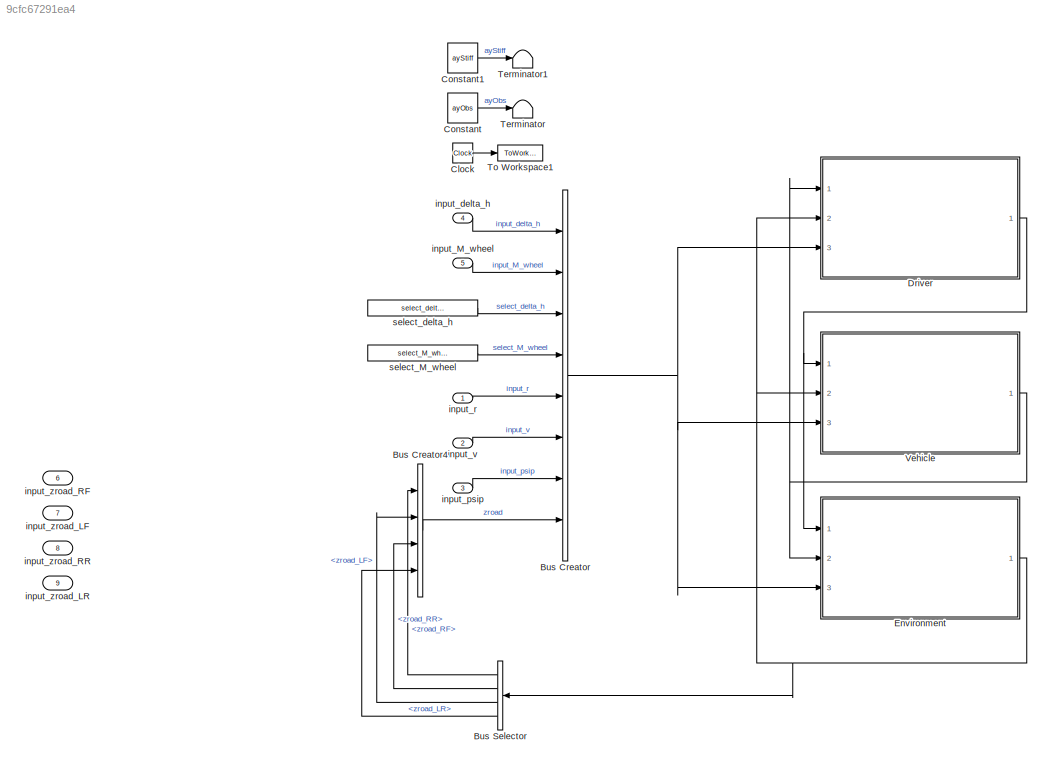
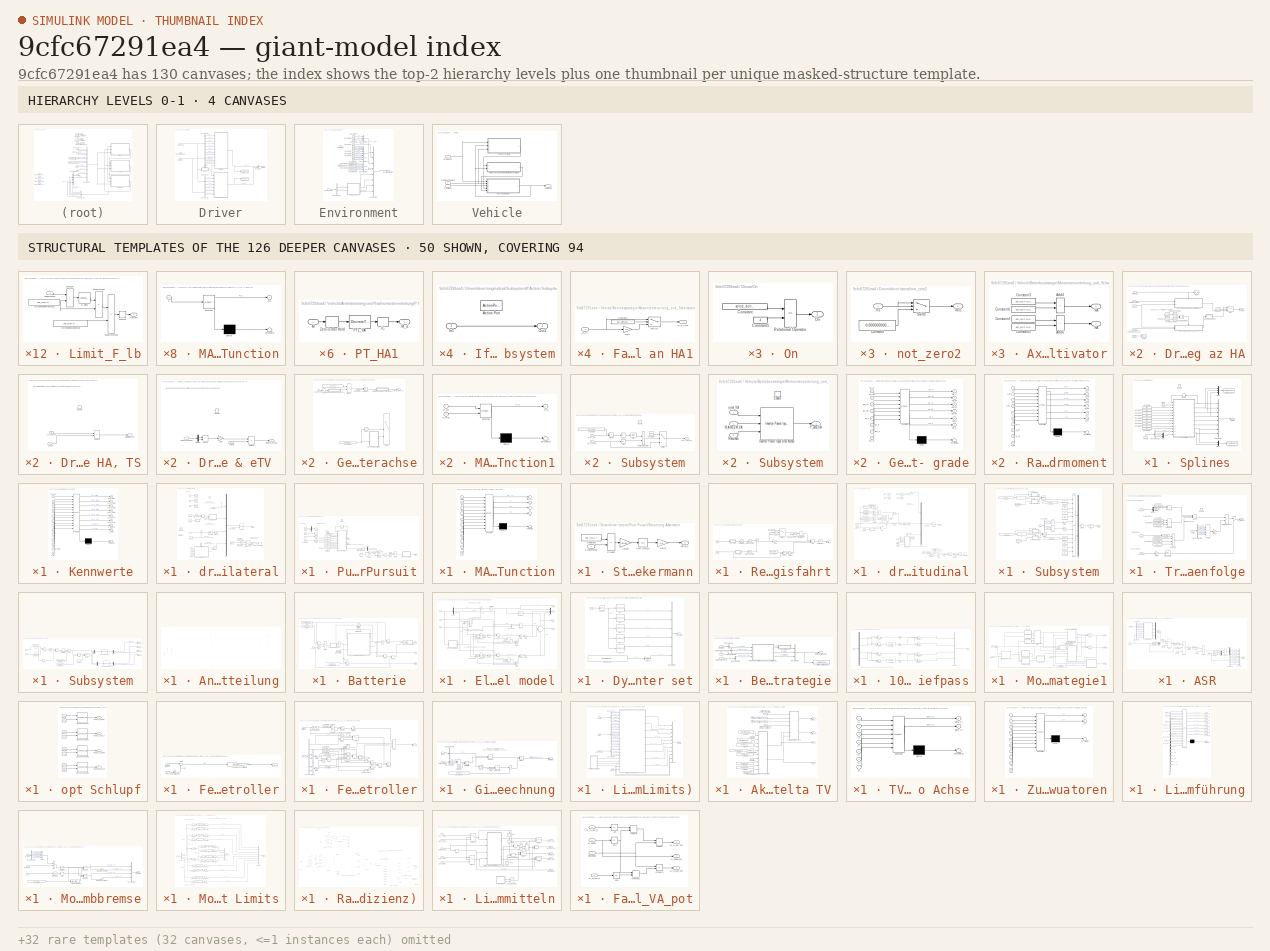
[diagram: thumbnail index - top-2 hierarchy levels (4 canvases) + 50 structural-template representatives of the remaining 126 canvases]
MODEL slx_9cfc67291ea4
KIND model
CONFIG AbsTol = auto
CONFIG EnableMultiTasking = on
CONFIG FixedStep = stepsize
CONFIG MaxStep = auto
CONFIG MinStep = auto
CONFIG RelTol = 1e-3
CONFIG SampleTimeConstraint = Unconstrained
CONFIG SolverName = FixedStepDiscrete
CONFIG StartTime = 0.0
CONFIG StopTime = simtime
BLOCK [BusCreator] Bus Creator
  DisplayOption = bar
  InheritFromInputs = on
  Inputs = 8
  Ports = [8, 1]
BLOCK [BusCreator] Bus Creator4
  DisplayOption = bar
  InheritFromInputs = on
  Inputs = 4
  Ports = [4, 1]
BLOCK [BusSelector] Bus Selector
  OutputSignals = zroad_RF,zroad_RR,zroad_LF,zroad_LR
  Ports = [1, 4]
BLOCK [Clock] Clock
BLOCK [Constant] Constant
  SampleTime = 10
  Value = ayObs
BLOCK [Constant] Constant1
  SampleTime = 10
  Value = ayStiff
BLOCK [SubSystem] Driver
  Ports = [3, 1]
  RequestExecContextInheritance = off
BLOCK [BusCreator] Driver/Bus Creator
  DisplayOption = bar
  InheritFromInputs = on
  Inputs = 2
  Ports = [2, 1]
BLOCK [BusSelector] Driver/Bus Selector1
  OutputSignals = input_psip,input_r,input_delta_h,select_delta_h
  Ports = [1, 4]
BLOCK [BusSelector] Driver/Bus Selector2
  OutputSignals = x.x0,y.y0,x.vx,y.vy,y.ay,psi.psi,psi.psip
  Ports = [1, 7]
BLOCK [BusSelector] Driver/Bus Selector4
  OutputSignals = x.vx,x.ax,r_stat
  Ports = [1, 3]
BLOCK [BusSelector] Driver/Bus Selector5
  OutputSignals = input_v,input_M_wheel,select_M_wheel
  Ports = [1, 3]
BLOCK [Outport] Driver/DriverOut
  VectorParamsAs1DForOutWhenUnconnected = off
BLOCK [Inport] Driver/FromEnvironment
  Port = 2
BLOCK [Inport] Driver/FromInput
  Port = 3
BLOCK [Inport] Driver/FromVehicle
BLOCK [SubSystem] Driver/On
  NameLocation = right
  Ports = [0, 1]
  RequestExecContextInheritance = off
BLOCK [Constant] Driver/On/Constant
  Value = select_delta_h
BLOCK [Constant] Driver/On/Constant1
  Value = 4
BLOCK [Outport] Driver/On/On
  VectorParamsAs1DForOutWhenUnconnected = off
BLOCK [RelationalOperator] Driver/On/Relational Operator
  InputSameDT = off
  Operator = ==
  OutDataTypeStr = boolean
  Ports = [2, 1]
  RndMeth = Simplest
BLOCK [SubSystem] Driver/Splines
  Ports = [1, 1, 1]
  RequestExecContextInheritance = off
BLOCK [BusCreator] Driver/Splines/Bus Creator
  DisplayOption = bar
  InheritFromInputs = on
  Inputs = 8
  Ports = [8, 1]
BLOCK [BusSelector] Driver/Splines/Bus Selector3
  OutputSignals = psi.psi,x.x0,y.y0
  Ports = [1, 3]
BLOCK [Clock] Driver/Splines/Clock
BLOCK [Constant] Driver/Splines/Constant10
  Value = t.p0
BLOCK [Constant] Driver/Splines/Constant2
  Value = t.a1
BLOCK [Constant] Driver/Splines/Constant3
  Value = t.a0
BLOCK [Constant] Driver/Splines/Constant4
  Value = t.v2
BLOCK [Constant] Driver/Splines/Constant5
  Value = t.v1
BLOCK [Constant] Driver/Splines/Constant6
  Value = t.v0
BLOCK [Constant] Driver/Splines/Constant7
  Value = t.p3
BLOCK [Constant] Driver/Splines/Constant8
  Value = t.p2
BLOCK [Constant] Driver/Splines/Constant9
  Value = t.p1
BLOCK [EnablePort] Driver/Splines/Enable
  Ports = []
BLOCK [SubSystem] Driver/Splines/Kennwerte
  ErrorFcn = Stateflow.Translate.translate
  PermitHierarchicalResolution = ExplicitOnly
  Ports = [13, 8]
  RequestExecContextInheritance = off
  SFBlockType = MATLAB Function
  TreatAsAtomicUnit = on
BLOCK [Demux] Driver/Splines/Kennwerte/ Demux 
  Outputs = 1
  Ports = [1, 1]
BLOCK [S-Function] Driver/Splines/Kennwerte/ SFunction 
  EnableBusSupport = on
  FunctionName = sf_sfun
  PortCounts = [13 9]
  Ports = [13, 9]
  SFcnIsStateOwnerBlock = off
  SFunctionDeploymentMode = off
  Tag = Stateflow S-Function 1
BLOCK [Terminator] Driver/Splines/Kennwerte/ Terminator 
BLOCK [Inport] Driver/Splines/Kennwerte/a0
  Port = 4
BLOCK [Inport] Driver/Splines/Kennwerte/a1
  Port = 3
BLOCK [Inport] Driver/Splines/Kennwerte/p0
  Port = 11
BLOCK [Inport] Driver/Splines/Kennwerte/p1
  Port = 10
BLOCK [Inport] Driver/Splines/Kennwerte/p2
  Port = 9
BLOCK [Inport] Driver/Splines/Kennwerte/p3
  Port = 8
BLOCK [Outport] Driver/Splines/Kennwerte/p_err_lat
  Port = 8
  VectorParamsAs1DForOutWhenUnconnected = off
BLOCK [Outport] Driver/Splines/Kennwerte/p_err_long
  Port = 7
  VectorParamsAs1DForOutWhenUnconnected = off
BLOCK [Inport] Driver/Splines/Kennwerte/p_ist
  Port = 13
BLOCK [Inport] Driver/Splines/Kennwerte/psi_old
BLOCK [Inport] Driver/Splines/Kennwerte/psi_real
  Port = 12
BLOCK [Outport] Driver/Splines/Kennwerte/psi_spline
  VectorParamsAs1DForOutWhenUnconnected = off
BLOCK [Outport] Driver/Splines/Kennwerte/spl_a_glob
  Port = 2
  VectorParamsAs1DForOutWhenUnconnected = off
BLOCK [Outport] Driver/Splines/Kennwerte/spl_a_veh
  Port = 5
  VectorParamsAs1DForOutWhenUnconnected = off
BLOCK [Outport] Driver/Splines/Kennwerte/spl_p_glob
  Port = 4
  VectorParamsAs1DForOutWhenUnconnected = off
BLOCK [Outport] Driver/Splines/Kennwerte/spl_v_glob
  Port = 3
  VectorParamsAs1DForOutWhenUnconnected = off
BLOCK [Outport] Driver/Splines/Kennwerte/spl_v_veh
  Port = 6
  VectorParamsAs1DForOutWhenUnconnected = off
BLOCK [Inport] Driver/Splines/Kennwerte/time
  Port = 2
BLOCK [Inport] Driver/Splines/Kennwerte/v0
  Port = 7
BLOCK [Inport] Driver/Splines/Kennwerte/v1
  Port = 6
BLOCK [Inport] Driver/Splines/Kennwerte/v2
  Port = 5
BLOCK [Memory] Driver/Splines/Memory
BLOCK [Mux] Driver/Splines/Mux
  DisplayOption = bar
  Inputs = 2
  Ports = [2, 1]
BLOCK [Mux] Driver/Splines/Mux1
  DisplayOption = bar
  Inputs = 3
  Ports = [3, 1]
BLOCK [Mux] Driver/Splines/Mux2
  DisplayOption = bar
  Inputs = 2
  Ports = [2, 1]
BLOCK [Outport] Driver/Splines/Splines
  VectorParamsAs1DForOutWhenUnconnected = off
BLOCK [ToWorkspace] Driver/Splines/To Workspace2
  Commented = on
  Decimation = savedec
  FixptAsFi = on
  MaxDataPoints = inf
  Ports = [1]
  SampleTime = -1
  Save2DSignal = 2-D array (concatenate along first dimension)
  VariableName = sv_SPL_pos
BLOCK [ToWorkspace] Driver/Splines/To Workspace4
  Commented = on
  Decimation = savedec
  FixptAsFi = on
  MaxDataPoints = inf
  Ports = [1]
  SampleTime = -1
  Save2DSignal = 2-D array (concatenate along first dimension)
  VariableName = sv_SPL_delta_p
BLOCK [Inport] Driver/Splines/Vehicle
  NameLocation = right
BLOCK [ToWorkspace] Driver/To Workspace1
  Commented = on
  Decimation = savedec
  FixptAsFi = on
  MaxDataPoints = inf
  Ports = [1]
  SampleTime = -1
  Save2DSignal = 2-D array (concatenate along first dimension)
  VariableName = sv_FAH_delta_h1
BLOCK [ToWorkspace] Driver/To Workspace3
  Commented = on
  Decimation = savedec
  FixptAsFi = on
  MaxDataPoints = inf
  Ports = [1]
  SampleTime = -1
  Save2DSignal = 2-D array (concatenate along first dimension)
  VariableName = sv_M_wheel
BLOCK [SubSystem] Driver/driver lateral
  Ports = [12, 1]
  RequestExecContextInheritance = off
BLOCK [Abs] Driver/driver lateral/Abs1
  SaturateOnIntegerOverflow = off
BLOCK [Constant] Driver/driver lateral/Constant
  Value = 0
BLOCK [Constant] Driver/driver lateral/Constant1
  Value = ay_stop
BLOCK [Constant] Driver/driver lateral/Constant2
  Value = activate_stop
BLOCK [Constant] Driver/driver lateral/Constant3
  Value = 0
BLOCK [Product] Driver/driver lateral/Divide
  Inputs = */
  Ports = [2, 1]
BLOCK [From] Driver/driver lateral/From ay
  GotoTag = ay
BLOCK [From] Driver/driver lateral/From ay_2
  GotoTag = ay
BLOCK [From] Driver/driver lateral/From psip
  Commented = on
  GotoTag = psip
BLOCK [From] Driver/driver lateral/From vx
  GotoTag = vx
BLOCK [Goto] Driver/driver lateral/Goto ay
  GotoTag = ay
BLOCK [Goto] Driver/driver lateral/Goto psip
  GotoTag = psip
BLOCK [Goto] Driver/driver lateral/Goto vx
  GotoTag = vx
BLOCK [Math] Driver/driver lateral/Math Function4
  Operator = square
  Ports = [1, 1]
  SignedPower = on
BLOCK [Mux] Driver/driver lateral/Mux1
  DisplayOption = bar
  Ports = [4, 1]
BLOCK [SubSystem] Driver/driver lateral/On
  NameLocation = right
  Ports = [0, 1]
  RequestExecContextInheritance = off
BLOCK [Constant] Driver/driver lateral/On/Constant
  Value = select_delta_h
BLOCK [Constant] Driver/driver lateral/On/Constant1
  Value = 4
BLOCK [Outport] Driver/driver lateral/On/On
  VectorParamsAs1DForOutWhenUnconnected = off
BLOCK [RelationalOperator] Driver/driver lateral/On/Relational Operator
  InputSameDT = off
  Operator = ==
  OutDataTypeStr = boolean
  Ports = [2, 1]
  RndMeth = Simplest
BLOCK [Reference] Driver/driver lateral/PID Controller2  REF=pid_lib/PID Controller
  Ports = [1, 1]
  SourceBlock = pid_lib/PID Controller
  SourceProductBaseCode = SL
  SourceType = PID 1dof
BLOCK [SubSystem] Driver/driver lateral/Pure Pursuit
  Ports = [3, 1, 1]
  RequestExecContextInheritance = off
BLOCK [Sum] Driver/driver lateral/Pure Pursuit/Add
  IconShape = rectangular
  Ports = [2, 1]
BLOCK [Clock] Driver/driver lateral/Pure Pursuit/Clock
BLOCK [Constant] Driver/driver lateral/Pure Pursuit/Constant11
  Value = t.p0
BLOCK [Constant] Driver/driver lateral/Pure Pursuit/Constant12
  Value = t.p3
BLOCK [Constant] Driver/driver lateral/Pure Pursuit/Constant13
  Value = t.p2
BLOCK [Constant] Driver/driver lateral/Pure Pursuit/Constant14
  Value = t.p1
BLOCK [Constant] Driver/driver lateral/Pure Pursuit/Constant15
  Value = t.v0
BLOCK [Constant] Driver/driver lateral/Pure Pursuit/Constant16
  Value = t.v2
BLOCK [Constant] Driver/driver lateral/Pure Pursuit/Constant17
  Value = t.v1
BLOCK [Trigonometry] Driver/driver lateral/Pure Pursuit/Cos
  Operator = cos
  Ports = [1, 1]
BLOCK [Demux] Driver/driver lateral/Pure Pursuit/Demux
  Outputs = 2
  Ports = [1, 2]
BLOCK [Product] Driver/driver lateral/Pure Pursuit/Divide
  Inputs = /*
  Ports = [2, 1]
BLOCK [EnablePort] Driver/driver lateral/Pure Pursuit/Enable
  Ports = []
BLOCK [From] Driver/driver lateral/Pure Pursuit/From
  GotoTag = psi
BLOCK [From] Driver/driver lateral/Pure Pursuit/From p_ist1
  GotoTag = p_ist
BLOCK [From] Driver/driver lateral/Pure Pursuit/From p_ist2
  GotoTag = p_ist
BLOCK [From] Driver/driver lateral/Pure Pursuit/From t1
  GotoTag = t
BLOCK [From] Driver/driver lateral/Pure Pursuit/From1
  GotoTag = LAD
BLOCK [From] Driver/driver lateral/Pure Pursuit/From2
  GotoTag = LAD
BLOCK [Gain] Driver/driver lateral/Pure Pursuit/Gain
  Gain = -1
BLOCK [Gain] Driver/driver lateral/Pure Pursuit/Gain1
  Gain = 2
BLOCK [Goto] Driver/driver lateral/Pure Pursuit/Goto
  GotoTag = p_ist
BLOCK [Goto] Driver/driver lateral/Pure Pursuit/Goto1
  GotoTag = t
BLOCK [Goto] Driver/driver lateral/Pure Pursuit/Goto2
  GotoTag = psi
BLOCK [Goto] Driver/driver lateral/Pure Pursuit/Goto3
  GotoTag = LAD
BLOCK [SubSystem] Driver/driver lateral/Pure Pursuit/MATLAB Function
  ErrorFcn = Stateflow.Translate.translate
  PermitHierarchicalResolution = ExplicitOnly
  Ports = [11, 4]
  RequestExecContextInheritance = off
  SFBlockType = MATLAB Function
  TreatAsAtomicUnit = on
BLOCK [Demux] Driver/driver lateral/Pure Pursuit/MATLAB Function/ Demux 
  Outputs = 1
  Ports = [1, 1]
BLOCK [S-Function] Driver/driver lateral/Pure Pursuit/MATLAB Function/ SFunction 
  EnableBusSupport = on
  FunctionName = sf_sfun
  PortCounts = [11 5]
  Ports = [11, 5]
  SFcnIsStateOwnerBlock = off
  SFunctionDeploymentMode = off
  Tag = Stateflow S-Function 5
BLOCK [Terminator] Driver/driver lateral/Pure Pursuit/MATLAB Function/ Terminator 
BLOCK [Outport] Driver/driver lateral/Pure Pursuit/MATLAB Function/cp
  Port = 4
  VectorParamsAs1DForOutWhenUnconnected = off
BLOCK [Outport] Driver/driver lateral/Pure Pursuit/MATLAB Function/dt
  Port = 2
  VectorParamsAs1DForOutWhenUnconnected = off
BLOCK [Outport] Driver/driver lateral/Pure Pursuit/MATLAB Function/err
  Port = 3
  VectorParamsAs1DForOutWhenUnconnected = off
BLOCK [Inport] Driver/driver lateral/Pure Pursuit/MATLAB Function/lad
  Port = 2
BLOCK [Inport] Driver/driver lateral/Pure Pursuit/MATLAB Function/oldtime
BLOCK [Inport] Driver/driver lateral/Pure Pursuit/MATLAB Function/p0
  Port = 10
BLOCK [Inport] Driver/driver lateral/Pure Pursuit/MATLAB Function/p1
  Port = 9
BLOCK [Inport] Driver/driver lateral/Pure Pursuit/MATLAB Function/p2
  Port = 8
BLOCK [Inport] Driver/driver lateral/Pure Pursuit/MATLAB Function/p3
  Port = 7
BLOCK [Inport] Driver/driver lateral/Pure Pursuit/MATLAB Function/p_ist
  Port = 11
BLOCK [Inport] Driver/driver lateral/Pure Pursuit/MATLAB Function/time
  Port = 3
BLOCK [Outport] Driver/driver lateral/Pure Pursuit/MATLAB Function/time_out
  VectorParamsAs1DForOutWhenUnconnected = off
BLOCK [Inport] Driver/driver lateral/Pure Pursuit/MATLAB Function/v0
  Port = 6
BLOCK [Inport] Driver/driver lateral/Pure Pursuit/MATLAB Function/v1
  Port = 5
BLOCK [Inport] Driver/driver lateral/Pure Pursuit/MATLAB Function/v2
  Port = 4
BLOCK [Memory] Driver/driver lateral/Pure Pursuit/Memory
BLOCK [Mux] Driver/driver lateral/Pure Pursuit/Mux
  DisplayOption = bar
  Inputs = 2
  Ports = [2, 1]
BLOCK [Product] Driver/driver lateral/Pure Pursuit/Product
  Ports = [2, 1]
BLOCK [Product] Driver/driver lateral/Pure Pursuit/Product1
  Ports = [2, 1]
BLOCK [Trigonometry] Driver/driver lateral/Pure Pursuit/Sin
  Ports = [1, 1]
BLOCK [SubSystem] Driver/driver lateral/Pure Pursuit/Steuerung Ackermann
  Ports = [1, 1]
  RequestExecContextInheritance = off
BLOCK [Constant] Driver/driver lateral/Pure Pursuit/Steuerung Ackermann/Constant
  Value = par_VEH.l
BLOCK [Gain] Driver/driver lateral/Pure Pursuit/Steuerung Ackermann/Gain1
  Gain = 0.5
BLOCK [Gain] Driver/driver lateral/Pure Pursuit/Steuerung Ackermann/Isteer
  Gain = 15.48
BLOCK [Inport] Driver/driver lateral/Pure Pursuit/Steuerung Ackermann/Kruemmung
BLOCK [Product] Driver/driver lateral/Pure Pursuit/Steuerung Ackermann/Product
  Inputs = **
  Ports = [2, 1]
BLOCK [UnitDelay] Driver/driver lateral/Pure Pursuit/Steuerung Ackermann/Unit Delay3
  HasFrameUpgradeWarning = on
  SampleTime = -1
BLOCK [Outport] Driver/driver lateral/Pure Pursuit/Steuerung Ackermann/delta_h
  VectorParamsAs1DForOutWhenUnconnected = off
BLOCK [Sum] Driver/driver lateral/Pure Pursuit/Subtract
  IconShape = rectangular
  Inputs = +-
  Ports = [2, 1]
BLOCK [Terminator] Driver/driver lateral/Pure Pursuit/Terminator
BLOCK [Terminator] Driver/driver lateral/Pure Pursuit/Terminator1
BLOCK [Outport] Driver/driver lateral/Pure Pursuit/delta_h
  VectorParamsAs1DForOutWhenUnconnected = off
BLOCK [Constant] Driver/driver lateral/Pure Pursuit/look ahead
  Value = t.lad
BLOCK [Inport] Driver/driver lateral/Pure Pursuit/psi
  Port = 3
BLOCK [Inport] Driver/driver lateral/Pure Pursuit/x_ist
BLOCK [Inport] Driver/driver lateral/Pure Pursuit/y_ist
  Port = 2
BLOCK [SubSystem] Driver/driver lateral/Regler Kreisfahrt
  Ports = [2, 1]
  RequestExecContextInheritance = off
BLOCK [Constant] Driver/driver lateral/Regler Kreisfahrt/0
  Value = 0
BLOCK [Abs] Driver/driver lateral/Regler Kreisfahrt/Abs
  SaturateOnIntegerOverflow = off
BLOCK [Sum] Driver/driver lateral/Regler Kreisfahrt/Add
  IconShape = rectangular
  Inputs = +++
  Ports = [3, 1]
BLOCK [Constant] Driver/driver lateral/Regler Kreisfahrt/Constant
  Value = par_VEH.l
BLOCK [DiscreteIntegrator] Driver/driver lateral/Regler Kreisfahrt/Discrete-Time Integrator
  ICPrevOutput = DiscIntNeverNeededParam
  ICPrevScaledInput = DiscIntNeverNeededParam
  InitialConditionSetting = Auto
  Ports = [1, 1]
  SampleTime = -1
  gainval = 1000
BLOCK [Product] Driver/driver lateral/Regler Kreisfahrt/Divide1
  Inputs = */
  Ports = [2, 1]
BLOCK [Gain] Driver/driver lateral/Regler Kreisfahrt/Gain
  Gain = 75
BLOCK [Gain] Driver/driver lateral/Regler Kreisfahrt/Isteer
  Gain = par_VEH.isteer_skalar
BLOCK [Logic] Driver/driver lateral/Regler Kreisfahrt/Logical Operator
  AllPortsSameDT = off
  Inputs = 1
  Operator = NOT
  OutDataTypeStr = boolean
  Ports = [1, 1]
BLOCK [Math] Driver/driver lateral/Regler Kreisfahrt/Math Function
  Operator = reciprocal
  Ports = [1, 1]
  SignedPower = on
BLOCK [Math] Driver/driver lateral/Regler Kreisfahrt/Math Function1
  Operator = reciprocal
  Ports = [1, 1]
  SignedPower = on
BLOCK [Saturate] Driver/driver lateral/Regler Kreisfahrt/Saturation1
  LowerLimit = -1000
  UpperLimit = 1000
BLOCK [Sum] Driver/driver lateral/Regler Kreisfahrt/Sum3
  Inputs = |-+
  Ports = [2, 1]
BLOCK [Switch] Driver/driver lateral/Regler Kreisfahrt/Switch1
  Criteria = u2 > Threshold
  InputSameDT = off
  SaturateOnIntegerOverflow = off
  Threshold = 0.5e-3
BLOCK [UnitDelay] Driver/driver lateral/Regler Kreisfahrt/Unit Delay3
  HasFrameUpgradeWarning = on
  SampleTime = -1
BLOCK [Outport] Driver/driver lateral/Regler Kreisfahrt/delta_h
  VectorParamsAs1DForOutWhenUnconnected = off
BLOCK [SubSystem] Driver/driver lateral/Regler Kreisfahrt/not_zero3
  Ports = [1, 1]
  RequestExecContextInheritance = off
BLOCK [Constant] Driver/driver lateral/Regler Kreisfahrt/not_zero3/Constant
  Value = 0.0000000000001
BLOCK [Inport] Driver/driver lateral/Regler Kreisfahrt/not_zero3/In1
BLOCK [Outport] Driver/driver lateral/Regler Kreisfahrt/not_zero3/Out1
  VectorParamsAs1DForOutWhenUnconnected = off
BLOCK [Switch] Driver/driver lateral/Regler Kreisfahrt/not_zero3/Switch
  Criteria = u2 ~= 0
  InputSameDT = off
  SaturateOnIntegerOverflow = off
BLOCK [SubSystem] Driver/driver lateral/Regler Kreisfahrt/not_zero4
  Ports = [1, 1]
  RequestExecContextInheritance = off
BLOCK [Constant] Driver/driver lateral/Regler Kreisfahrt/not_zero4/Constant
  Value = 0.0000000000001
BLOCK [Inport] Driver/driver lateral/Regler Kreisfahrt/not_zero4/In1
BLOCK [Outport] Driver/driver lateral/Regler Kreisfahrt/not_zero4/Out1
  VectorParamsAs1DForOutWhenUnconnected = off
BLOCK [Switch] Driver/driver lateral/Regler Kreisfahrt/not_zero4/Switch
  Criteria = u2 ~= 0
  InputSameDT = off
  SaturateOnIntegerOverflow = off
BLOCK [Inport] Driver/driver lateral/Regler Kreisfahrt/r_ist
BLOCK [Inport] Driver/driver lateral/Regler Kreisfahrt/r_soll
  Port = 2
BLOCK [Selector] Driver/driver lateral/Selector1
  IndexOptions = Index vector (port)
  Indices = [1 3]
  InputPortWidth = 4
  OutputSizes = 1
  Ports = [2, 1]
BLOCK [Stop] Driver/driver lateral/Stop Simulation
BLOCK [Sum] Driver/driver lateral/Subtract
  IconShape = rectangular
  Inputs = +-
  Ports = [2, 1]
BLOCK [Sum] Driver/driver lateral/Sum1
  Inputs = |-+
  Ports = [2, 1]
BLOCK [Switch] Driver/driver lateral/Switch
  Criteria = u2 > Threshold
  InputSameDT = off
  SaturateOnIntegerOverflow = off
BLOCK [UnitDelay] Driver/driver lateral/Unit Delay1
  HasFrameUpgradeWarning = on
  SampleTime = -1
BLOCK [UnitDelay] Driver/driver lateral/Unit Delay2
  HasFrameUpgradeWarning = on
  SampleTime = stepsize
BLOCK [Inport] Driver/driver lateral/ay
  Port = 5
BLOCK [Outport] Driver/driver lateral/delta_h
  VectorParamsAs1DForOutWhenUnconnected = off
BLOCK [Inport] Driver/driver lateral/input _delta_h
  Port = 10
BLOCK [Inport] Driver/driver lateral/input_psip
  Port = 8
BLOCK [SubSystem] Driver/driver lateral/not_zero2
  Ports = [1, 1]
  RequestExecContextInheritance = off
BLOCK [Constant] Driver/driver lateral/not_zero2/Constant
  Value = 0.0000000000001
BLOCK [Inport] Driver/driver lateral/not_zero2/In1
BLOCK [Outport] Driver/driver lateral/not_zero2/Out1
  VectorParamsAs1DForOutWhenUnconnected = off
BLOCK [Switch] Driver/driver lateral/not_zero2/Switch
  Criteria = u2 ~= 0
  InputSameDT = off
  SaturateOnIntegerOverflow = off
BLOCK [Inport] Driver/driver lateral/psi
  Port = 6
BLOCK [Inport] Driver/driver lateral/psip
  Port = 7
BLOCK [Inport] Driver/driver lateral/r soll
  Port = 9
BLOCK [Inport] Driver/driver lateral/select_driver_lat
  Port = 11
BLOCK [Inport] Driver/driver lateral/spline 
  Port = 12
BLOCK [Inport] Driver/driver lateral/vx
  Port = 3
BLOCK [Inport] Driver/driver lateral/vy 
  Port = 4
BLOCK [Inport] Driver/driver lateral/x0
BLOCK [Inport] Driver/driver lateral/y0
  Port = 2
BLOCK [InportShadow] Driver/driver lateral/y1
  Port = 2
BLOCK [SubSystem] Driver/driver longitudinal
  Ports = [7, 1]
  RequestExecContextInheritance = off
BLOCK [Constant] Driver/driver longitudinal/ 
  Value = 0.5
BLOCK [Math] Driver/driver longitudinal/  
  Operator = square
  Ports = [1, 1]
  SignedPower = on
BLOCK [Abs] Driver/driver longitudinal/Abs
  SaturateOnIntegerOverflow = off
BLOCK [Sum] Driver/driver longitudinal/Add1
  IconShape = rectangular
  Inputs = ++++
  Ports = [4, 1]
BLOCK [Sum] Driver/driver longitudinal/Add3
  IconShape = rectangular
  Inputs = +++
  Ports = [3, 1]
BLOCK [Sum] Driver/driver longitudinal/Add4
  IconShape = rectangular
  Ports = [2, 1]
BLOCK [Reference] Driver/driver longitudinal/Beschleunigung  REF=simulink/Discrete/Discrete Derivative
  Ports = [1, 1]
  SourceBlock = simulink/Discrete/Discrete Derivative
  SourceProductBaseCode = SL
  SourceType = Discrete Derivative
BLOCK [Product] Driver/driver longitudinal/Beschleunigungs- widerstand
  Ports = [2, 1]
BLOCK [BusSelector] Driver/driver longitudinal/Bus Selector1
  OutputSignals = r_stat_RF,r_stat_LF,r_stat_RR,r_stat_LR
  Ports = [1, 4]
BLOCK [BusSelector] Driver/driver longitudinal/Bus Selector2
  OutputSignals = spl_a_veh,p_err_long
  Ports = [1, 2]
BLOCK [Clock] Driver/driver longitudinal/Clock
BLOCK [Constant] Driver/driver longitudinal/Constant
  Value = activate_stop_vmax
BLOCK [Constant] Driver/driver longitudinal/Constant1
  Value = 0
BLOCK [Constant] Driver/driver longitudinal/Constant10
  Value = deltav_ist
BLOCK [Constant] Driver/driver longitudinal/Constant13
  Value = 0
BLOCK [Constant] Driver/driver longitudinal/Constant4
  Value = par_VEH.m
BLOCK [Constant] Driver/driver longitudinal/Constant5
  Value = par_VEH.cx
BLOCK [Constant] Driver/driver longitudinal/Constant6
  Value = par_VEH.rhoair
BLOCK [Constant] Driver/driver longitudinal/Constant7
  Value = par_VEH.g
BLOCK [Constant] Driver/driver longitudinal/Constant8
  Value = par_TIR.QSY1
BLOCK [Constant] Driver/driver longitudinal/Constant9
  Value = par_VEH.m
BLOCK [Reference] Driver/driver longitudinal/Discrete Derivative  REF=simulink/Discrete/Discrete Derivative
  Ports = [1, 1]
  SourceBlock = simulink/Discrete/Discrete Derivative
  SourceProductBaseCode = SL
  SourceType = Discrete Derivative
BLOCK [From] Driver/driver longitudinal/From
  GotoTag = v_ist
BLOCK [From] Driver/driver longitudinal/From r_stat
  GotoTag = r_stat
BLOCK [From] Driver/driver longitudinal/From r_stat1
  GotoTag = r_stat
BLOCK [From] Driver/driver longitudinal/From r_stat2
  GotoTag = r_stat
BLOCK [From] Driver/driver longitudinal/From v_ist
  GotoTag = v_ist
BLOCK [From] Driver/driver longitudinal/From v_soll
  GotoTag = v_soll
BLOCK [From] Driver/driver longitudinal/From vx1
  GotoTag = v_ist
BLOCK [Gain] Driver/driver longitudinal/Gain1
  Gain = 1/4
BLOCK [Gain] Driver/driver longitudinal/Gain2
  Gain = 10000
BLOCK [Goto] Driver/driver longitudinal/Goto ax
  GotoTag = a_x
BLOCK [Goto] Driver/driver longitudinal/Goto r_stat
  GotoTag = r_stat
BLOCK [Goto] Driver/driver longitudinal/Goto v_ist
  GotoTag = v_ist
BLOCK [Goto] Driver/driver longitudinal/Goto v_soll
  GotoTag = v_soll
BLOCK [Product] Driver/driver longitudinal/Luftwiderstand
  Inputs = 4
  Ports = [4, 1]
BLOCK [Outport] Driver/driver longitudinal/M_wheel
  VectorParamsAs1DForOutWhenUnconnected = off
BLOCK [MinMax] Driver/driver longitudinal/Min
  Inputs = 2
  Ports = [2, 1]
BLOCK [Mux] Driver/driver longitudinal/Mux2
  DisplayOption = bar
  Inputs = 3
  Ports = [3, 1]
BLOCK [SubSystem] Driver/driver longitudinal/On
  NameLocation = right
  Ports = [0, 1]
  RequestExecContextInheritance = off
BLOCK [Constant] Driver/driver longitudinal/On/Constant
  Value = select_delta_h
BLOCK [Constant] Driver/driver longitudinal/On/Constant1
  Value = 4
BLOCK [Outport] Driver/driver longitudinal/On/On
  VectorParamsAs1DForOutWhenUnconnected = off
BLOCK [RelationalOperator] Driver/driver longitudinal/On/Relational Operator
  InputSameDT = off
  Operator = ==
  OutDataTypeStr = boolean
  Ports = [2, 1]
  RndMeth = Simplest
BLOCK [Product] Driver/driver longitudinal/Product1
  Ports = [2, 1]
BLOCK [Product] Driver/driver longitudinal/Rollwiderstand
  Inputs = 3
  Ports = [3, 1]
BLOCK [Saturate] Driver/driver longitudinal/Saturation2
  LowerLimit = -15000
  UpperLimit = 15000
BLOCK [Selector] Driver/driver longitudinal/Selector2
  IndexOptions = Index vector (port)
  Indices = [1 3]
  InputPortWidth = 3
  OutputSizes = 1
  Ports = [2, 1]
BLOCK [Inport] Driver/driver longitudinal/Spline
BLOCK [Stop] Driver/driver longitudinal/Stop Simulation
BLOCK [SubSystem] Driver/driver longitudinal/Subsystem
  Ports = [1, 1]
  RequestExecContextInheritance = off
BLOCK [Sum] Driver/driver longitudinal/Subsystem/Add
  IconShape = rectangular
  Ports = [2, 1]
BLOCK [Sum] Driver/driver longitudinal/Subsystem/Add1
  IconShape = rectangular
  Ports = [2, 1]
BLOCK [Bias] Driver/driver longitudinal/Subsystem/Bias
  Bias = -2.5/3.6
  SaturateOnIntegerOverflow = off
BLOCK [BusSelector] Driver/driver longitudinal/Subsystem/Bus Selector
  OutputSignals = r_stat_RF,r_stat_LF,r_stat_RR,r_stat_LR
  Ports = [1, 4]
BLOCK [Constant] Driver/driver longitudinal/Subsystem/Constant
  Value = par_MDT.VA.em.nmax
BLOCK [Constant] Driver/driver longitudinal/Subsystem/Constant1
  Value = 60
BLOCK [Constant] Driver/driver longitudinal/Subsystem/Constant10
  Value = par_MDT.HA.em.nmax
BLOCK [Constant] Driver/driver longitudinal/Subsystem/Constant2
  Value = par_MDT.VA.trans.i_gears
BLOCK [Constant] Driver/driver longitudinal/Subsystem/Constant3
  Value = pi
BLOCK [Constant] Driver/driver longitudinal/Subsystem/Constant4
  Value = 2
BLOCK [Constant] Driver/driver longitudinal/Subsystem/Constant6
  Value = 60
BLOCK [Constant] Driver/driver longitudinal/Subsystem/Constant7
  Value = par_MDT.HA.trans.i_gears
BLOCK [Constant] Driver/driver longitudinal/Subsystem/Constant8
  Value = pi
BLOCK [Constant] Driver/driver longitudinal/Subsystem/Constant9
  Value = 2
BLOCK [Product] Driver/driver longitudinal/Subsystem/Divide
  Inputs = *//***
  Ports = [6, 1]
BLOCK [Product] Driver/driver longitudinal/Subsystem/Divide1
  Inputs = **//**
  Ports = [6, 1]
BLOCK [Gain] Driver/driver longitudinal/Subsystem/Gain
  Gain = 0.5
BLOCK [Gain] Driver/driver longitudinal/Subsystem/Gain1
  Gain = 0.5
BLOCK [If] Driver/driver longitudinal/Subsystem/If
  Ports = [1, 2]
BLOCK [SubSystem] Driver/driver longitudinal/Subsystem/If Action Subsystem
  Ports = [1, 1, 0, 0, 0, 0, 0, 1]
  RequestExecContextInheritance = off
  TreatAsAtomicUnit = on
BLOCK [ActionPort] Driver/driver longitudinal/Subsystem/If Action Subsystem/Action Port
  ActionPortLabel = if(u1 > 0)
BLOCK [Inport] Driver/driver longitudinal/Subsystem/If Action Subsystem/In1
BLOCK [Outport] Driver/driver longitudinal/Subsystem/If Action Subsystem/Out1
  VectorParamsAs1DForOutWhenUnconnected = off
BLOCK [SubSystem] Driver/driver longitudinal/Subsystem/If Action Subsystem1
  Ports = [1, 1, 0, 0, 0, 0, 0, 1]
  RequestExecContextInheritance = off
  TreatAsAtomicUnit = on
BLOCK [ActionPort] Driver/driver longitudinal/Subsystem/If Action Subsystem1/Action Port
  ActionPortLabel = else
BLOCK [Inport] Driver/driver longitudinal/Subsystem/If Action Subsystem1/In1
BLOCK [Outport] Driver/driver longitudinal/Subsystem/If Action Subsystem1/Out1
  VectorParamsAs1DForOutWhenUnconnected = off
BLOCK [SubSystem] Driver/driver longitudinal/Subsystem/If Action Subsystem2
  Ports = [1, 1, 0, 0, 0, 0, 0, 1]
  RequestExecContextInheritance = off
  TreatAsAtomicUnit = on
BLOCK [ActionPort] Driver/driver longitudinal/Subsystem/If Action Subsystem2/Action Port
  ActionPortLabel = if(u1 > 0)
BLOCK [Inport] Driver/driver longitudinal/Subsystem/If Action Subsystem2/In1
BLOCK [Outport] Driver/driver longitudinal/Subsystem/If Action Subsystem2/Out1
  VectorParamsAs1DForOutWhenUnconnected = off
BLOCK [SubSystem] Driver/driver longitudinal/Subsystem/If Action Subsystem3
  Ports = [1, 1, 0, 0, 0, 0, 0, 1]
  RequestExecContextInheritance = off
  TreatAsAtomicUnit = on
BLOCK [ActionPort] Driver/driver longitudinal/Subsystem/If Action Subsystem3/Action Port
  ActionPortLabel = else
BLOCK [Inport] Driver/driver longitudinal/Subsystem/If Action Subsystem3/In1
BLOCK [Outport] Driver/driver longitudinal/Subsystem/If Action Subsystem3/Out1
  VectorParamsAs1DForOutWhenUnconnected = off
BLOCK [If] Driver/driver longitudinal/Subsystem/If1
  Ports = [1, 2]
BLOCK [Constant] Driver/driver longitudinal/Subsystem/Inf
  Value = 100000
BLOCK [Constant] Driver/driver longitudinal/Subsystem/Inf1
  Value = 100000
BLOCK [Merge] Driver/driver longitudinal/Subsystem/Merge
  Ports = [2, 1]
BLOCK [Merge] Driver/driver longitudinal/Subsystem/Merge1
  Ports = [2, 1]
BLOCK [MinMax] Driver/driver longitudinal/Subsystem/MinMax
  Ports = [1, 1]
BLOCK [Reference] Driver/driver longitudinal/Subsystem/Minimum  REF=dspstat3/Minimum
  Ports = [1, 1]
  SourceBlock = dspstat3/Minimum
  SourceProductBaseCode = DS
  SourceType = Minimum
  UserDataPersistent = on
BLOCK [Reference] Driver/driver longitudinal/Subsystem/Minimum1  REF=dspstat3/Minimum
  Ports = [1, 1]
  SourceBlock = dspstat3/Minimum
  SourceProductBaseCode = DS
  SourceType = Minimum
  UserDataPersistent = on
BLOCK [Mux] Driver/driver longitudinal/Subsystem/Mux
  DisplayOption = bar
  Inputs = 2
  Ports = [2, 1]
BLOCK [Inport] Driver/driver longitudinal/Subsystem/r_stat
BLOCK [Outport] Driver/driver longitudinal/Subsystem/v_max
  VectorParamsAs1DForOutWhenUnconnected = off
BLOCK [Sum] Driver/driver longitudinal/Subtract1
  IconShape = rectangular
  Inputs = -+
  Ports = [2, 1]
BLOCK [Sum] Driver/driver longitudinal/Sum1
  Inputs = |-+
  Ports = [2, 1]
BLOCK [Switch] Driver/driver longitudinal/Switch
  Criteria = u2 > Threshold
  InputSameDT = off
  SaturateOnIntegerOverflow = off
  Threshold = 8
BLOCK [Switch] Driver/driver longitudinal/Switch1
  InputSameDT = off
  SaturateOnIntegerOverflow = off
BLOCK [SubSystem] Driver/driver longitudinal/Trajektorienfolge
  Ports = [4, 1, 1]
  RequestExecContextInheritance = off
BLOCK [Inport] Driver/driver longitudinal/Trajektorienfolge/<a_veh>
BLOCK [Inport] Driver/driver longitudinal/Trajektorienfolge/<p_long>
  Port = 2
BLOCK [Sum] Driver/driver longitudinal/Trajektorienfolge/Add2
  IconShape = rectangular
  Inputs = +++
  Ports = [3, 1]
BLOCK [Sum] Driver/driver longitudinal/Trajektorienfolge/Add5
  IconShape = rectangular
  Inputs = ++++
  Ports = [4, 1]
BLOCK [BusSelector] Driver/driver longitudinal/Trajektorienfolge/Bus Selector2
  OutputSignals = r_stat_RF,r_stat_LF,r_stat_RR,r_stat_LR
  Ports = [1, 4]
BLOCK [Constant] Driver/driver longitudinal/Trajektorienfolge/Constant1
  Value = par_VEH.m
BLOCK [Constant] Driver/driver longitudinal/Trajektorienfolge/Constant11
  Value = par_VEH.cx
BLOCK [Constant] Driver/driver longitudinal/Trajektorienfolge/Constant12
  Value = par_VEH.rhoair
BLOCK [Constant] Driver/driver longitudinal/Trajektorienfolge/Constant15
  Value = par_VEH.g
BLOCK [Constant] Driver/driver longitudinal/Trajektorienfolge/Constant16
  Value = par_TIR.QSY1
BLOCK [Constant] Driver/driver longitudinal/Trajektorienfolge/Constant2
  Value = par_VEH.m
BLOCK [Constant] Driver/driver longitudinal/Trajektorienfolge/Constant3
  Value = 0.5
BLOCK [Demux] Driver/driver longitudinal/Trajektorienfolge/Demux
  Outputs = 2
  Ports = [1, 2]
BLOCK [EnablePort] Driver/driver longitudinal/Trajektorienfolge/Enable
  Ports = []
BLOCK [Gain] Driver/driver longitudinal/Trajektorienfolge/Gain1
  Gain = -1
BLOCK [Gain] Driver/driver longitudinal/Trajektorienfolge/Gain3
  Gain = 1/4
BLOCK [Product] Driver/driver longitudinal/Trajektorienfolge/Kraft zu Moment
  Ports = [2, 1]
BLOCK [Outport] Driver/driver longitudinal/Trajektorienfolge/M_Wheel
  VectorParamsAs1DForOutWhenUnconnected = off
BLOCK [Reference] Driver/driver longitudinal/Trajektorienfolge/PID Controller  REF=pid_lib/PID Controller
  Ports = [1, 1]
  SourceBlock = pid_lib/PID Controller
  SourceProductBaseCode = SL
  SourceType = PID 1dof
BLOCK [Product] Driver/driver longitudinal/Trajektorienfolge/Product2
  Ports = [2, 1]
BLOCK [Product] Driver/driver longitudinal/Trajektorienfolge/Product3
  Inputs = 4
  Ports = [4, 1]
BLOCK [Product] Driver/driver longitudinal/Trajektorienfolge/Product6
  Inputs = 3
  Ports = [3, 1]
BLOCK [Sum] Driver/driver longitudinal/Trajektorienfolge/Sum4
  Inputs = |++
  Ports = [2, 1]
BLOCK [Terminator] Driver/driver longitudinal/Trajektorienfolge/Terminator
BLOCK [Inport] Driver/driver longitudinal/Trajektorienfolge/r_stat
  Port = 4
BLOCK [Math] Driver/driver longitudinal/Trajektorienfolge/square
  Operator = square
  Ports = [1, 1]
  SignedPower = on
BLOCK [Inport] Driver/driver longitudinal/Trajektorienfolge/v_veh
  Port = 3
BLOCK [UnitDelay] Driver/driver longitudinal/Unit Delay1
  HasFrameUpgradeWarning = on
  SampleTime = -1
BLOCK [UnitDelay] Driver/driver longitudinal/Unit Delay2
  HasFrameUpgradeWarning = on
  SampleTime = stepsize
BLOCK [Saturate] Driver/driver longitudinal/a_max
  LowerLimit = -10
  UpperLimit = 10
BLOCK [Inport] Driver/driver longitudinal/ax
  Port = 3
BLOCK [Inport] Driver/driver longitudinal/input_M_wheel
  Port = 6
BLOCK [Inport] Driver/driver longitudinal/r_stat
  Port = 4
BLOCK [Inport] Driver/driver longitudinal/select_driver_long
  Port = 7
BLOCK [Inport] Driver/driver longitudinal/v ist
  Port = 2
BLOCK [Inport] Driver/driver longitudinal/v soll
  Port = 5
BLOCK [SubSystem] Environment
  Ports = [3, 1]
  RequestExecContextInheritance = off
BLOCK [BusCreator] Environment/Bus Creator
  DisplayOption = bar
  InheritFromInputs = on
  Inputs = 8
  Ports = [8, 1]
BLOCK [BusCreator] Environment/Bus Creator1
  DisplayOption = bar
  InheritFromInputs = on
  Inputs = 7
  Ports = [7, 1]
BLOCK [BusCreator] Environment/Bus Creator2
  DisplayOption = bar
  InheritFromInputs = on
  Inputs = 4
  Ports = [4, 1]
BLOCK [BusCreator] Environment/Bus Creator3
  DisplayOption = bar
  InheritFromInputs = on
  Inputs = 3
  Ports = [3, 1]
BLOCK [BusSelector] Environment/Bus Selector
  OutputSignals = x.vx,y.vy
  Ports = [1, 2]
BLOCK [Constant] Environment/Constant1
  Value = 0
BLOCK [Constant] Environment/Constant10
  Value = 0
BLOCK [Constant] Environment/Constant11
  Value = 0
BLOCK [Constant] Environment/Constant13
  Value = 0
BLOCK [Constant] Environment/Constant14
  Value = 0
BLOCK [Constant] Environment/Constant15
  Value = 0
BLOCK [Constant] Environment/Constant19
  Value = mu_road_RR
BLOCK [Constant] Environment/Constant20
  Value = mu_road_LR
BLOCK [Constant] Environment/Constant21
  Value = mu_road_RF
BLOCK [Constant] Environment/Constant24
  Value = mu_road_LF
BLOCK [Constant] Environment/Constant4
  Value = 0
BLOCK [Constant] Environment/Constant5
  Value = 0
BLOCK [Constant] Environment/Constant6
  Value = 0
BLOCK [Constant] Environment/Constant7
  Value = 0
BLOCK [Constant] Environment/Constant9
  Value = 0
BLOCK [Outport] Environment/EnvironmentOut
  VectorParamsAs1DForOutWhenUnconnected = off
BLOCK [Inport] Environment/FromDriver
BLOCK [Inport] Environment/FromInput
  Port = 3
BLOCK [Inport] Environment/FromVehicle
  Port = 2
BLOCK [SubSystem] Environment/Subsystem
  Ports = [2, 4]
  RequestExecContextInheritance = off
BLOCK [Lookup_n-D] Environment/Subsystem/1-D Lookup Table
  BreakpointsForDimension1 = [0:3000]
  InputPortMap = u0
  InternalRulePriority = Speed
  NumberOfTableDimensions = 1
  Ports = [1, 1]
  RndMeth = Simplest
  Table = track_right
BLOCK [Lookup_n-D] Environment/Subsystem/1-D Lookup Table1
  BreakpointsForDimension1 = [0:3000]
  InputPortMap = u0
  InternalRulePriority = Speed
  NumberOfTableDimensions = 1
  Ports = [1, 1]
  RndMeth = Simplest
  Table = track_left
BLOCK [Sum] Environment/Subsystem/Add
  IconShape = rectangular
  Ports = [2, 1]
BLOCK [Sum] Environment/Subsystem/Add1
  IconShape = rectangular
  Ports = [2, 1]
BLOCK [Sum] Environment/Subsystem/Add2
  IconShape = rectangular
  Inputs = +-
  Ports = [2, 1]
BLOCK [Constant] Environment/Subsystem/Constant
  Value = par_VEH.xSP
BLOCK [Constant] Environment/Subsystem/Constant2
  Value = par_VEH.l
BLOCK [Constant] Environment/Subsystem/Constant3
  Value = 0
BLOCK [Demux] Environment/Subsystem/Demux
  Outputs = 2
  Ports = [1, 2]
BLOCK [Demux] Environment/Subsystem/Demux1
  Outputs = 2
  Ports = [1, 2]
BLOCK [DiscreteIntegrator] Environment/Subsystem/Discrete-Time Integrator
  ICPrevOutput = DiscIntNeverNeededParam
  ICPrevScaledInput = DiscIntNeverNeededParam
  InitialConditionSetting = Auto
  Ports = [1, 1]
  SampleTime = 0.01
BLOCK [Math] Environment/Subsystem/Math Function
  Operator = square
  Ports = [1, 1]
  SignedPower = on
BLOCK [Math] Environment/Subsystem/Math Function1
  Operator = square
  Ports = [1, 1]
  SignedPower = on
BLOCK [Mux] Environment/Subsystem/Mux
  DisplayOption = bar
  Inputs = 2
  Ports = [2, 1]
BLOCK [Mux] Environment/Subsystem/Mux1
  DisplayOption = bar
  Inputs = 2
  Ports = [2, 1]
BLOCK [Product] Environment/Subsystem/Product
  Ports = [2, 1]
BLOCK [Signum] Environment/Subsystem/Sign
BLOCK [Sqrt] Environment/Subsystem/Sqrt
BLOCK [Switch] Environment/Subsystem/Switch
  Criteria = u2 > Threshold
  InputSameDT = off
  SaturateOnIntegerOverflow = off
BLOCK [Inport] Environment/Subsystem/vx
BLOCK [Inport] Environment/Subsystem/vy
  Port = 2
BLOCK [Outport] Environment/Subsystem/zroad_LF
  Port = 2
  VectorParamsAs1DForOutWhenUnconnected = off
BLOCK [Outport] Environment/Subsystem/zroad_LR
  Port = 4
  VectorParamsAs1DForOutWhenUnconnected = off
BLOCK [Outport] Environment/Subsystem/zroad_RF
  VectorParamsAs1DForOutWhenUnconnected = off
BLOCK [Outport] Environment/Subsystem/zroad_RR
  Port = 3
  VectorParamsAs1DForOutWhenUnconnected = off
BLOCK [Terminator] Terminator
BLOCK [Terminator] Terminator1
BLOCK [ToWorkspace] To Workspace1
  Commented = on
  Decimation = savedec
  FixptAsFi = on
  MaxDataPoints = inf
  Ports = [1]
  SampleTime = -1
  Save2DSignal = 2-D array (concatenate along first dimension)
  VariableName = sv_time
BLOCK [SubSystem] Vehicle
  Ports = [3, 1]
  RequestExecContextInheritance = off
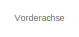
[diagram: Vehicle/Antriebsstrang und Radmomentenverteilung - part 1/32, top left region]
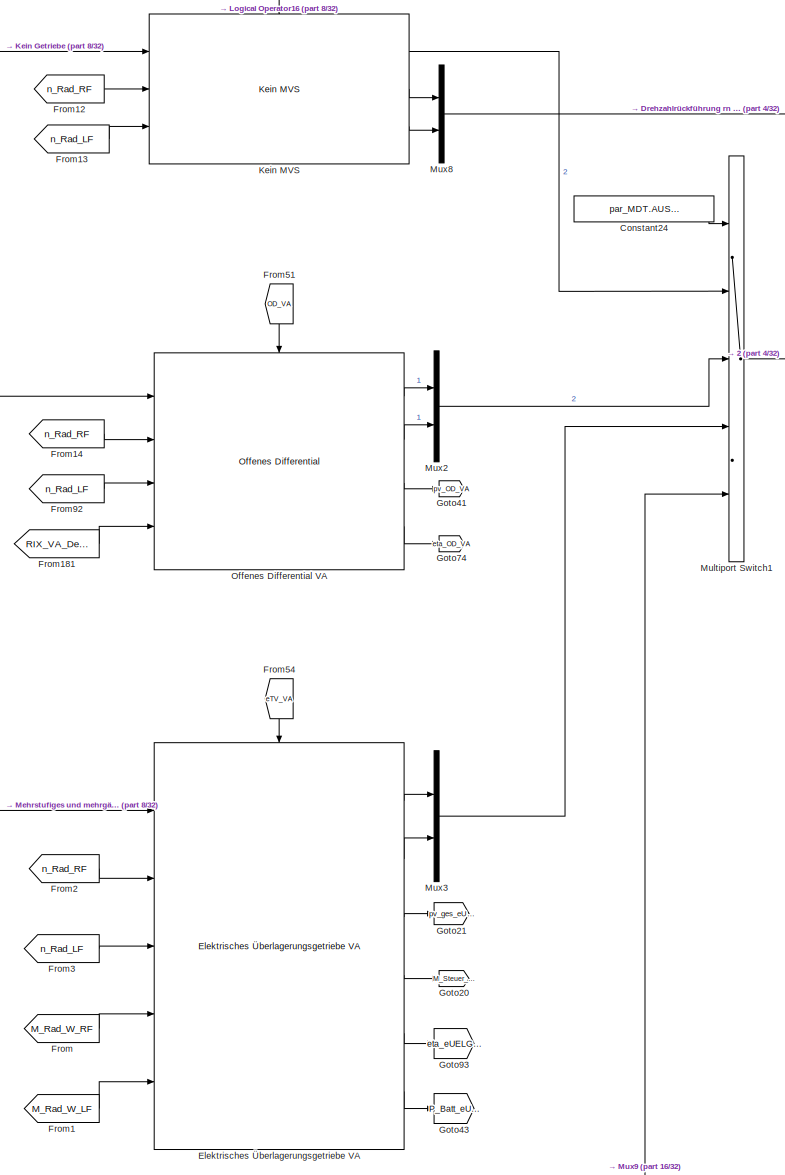
[diagram: Vehicle/Antriebsstrang und Radmomentenverteilung - part 2/32, top center region]
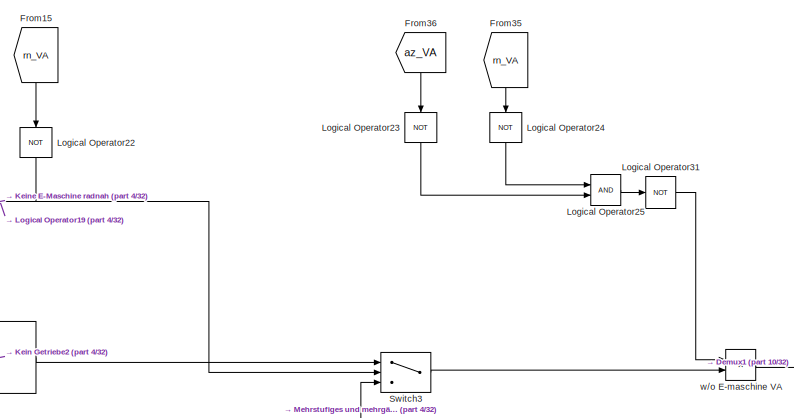
[diagram: Vehicle/Antriebsstrang und Radmomentenverteilung - part 3/32, top center region]
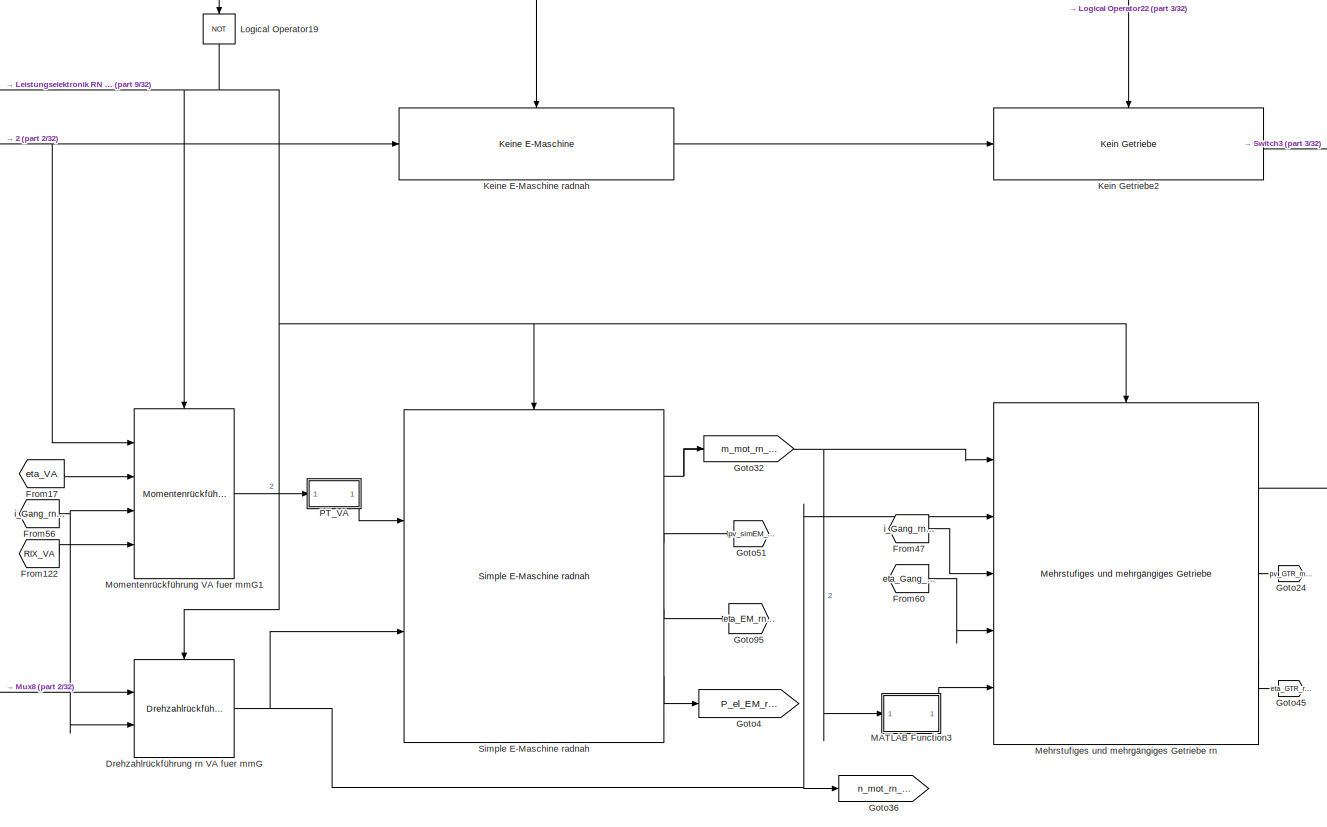
[diagram: Vehicle/Antriebsstrang und Radmomentenverteilung - part 4/32, top center region]
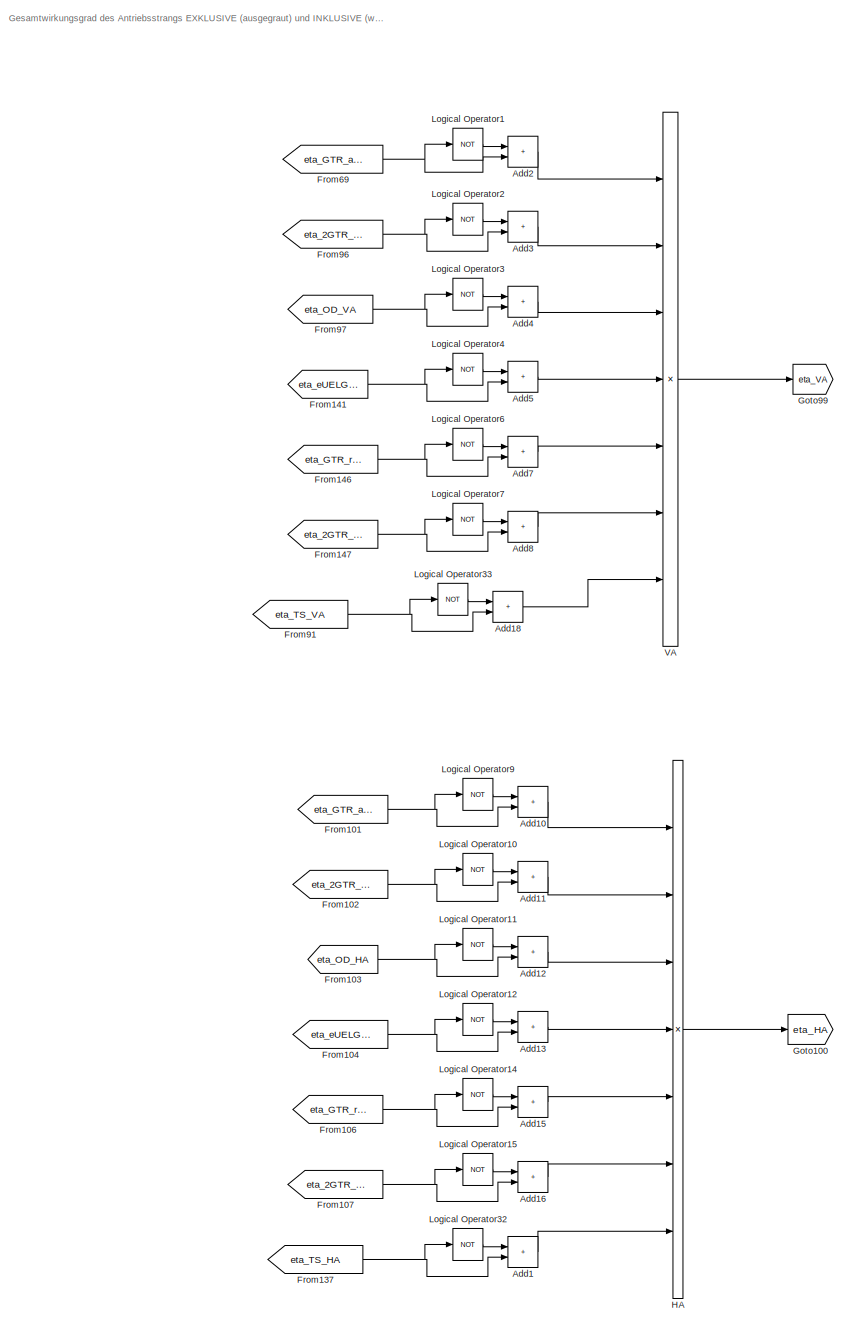
[diagram: Vehicle/Antriebsstrang und Radmomentenverteilung - part 5/32, top right region]
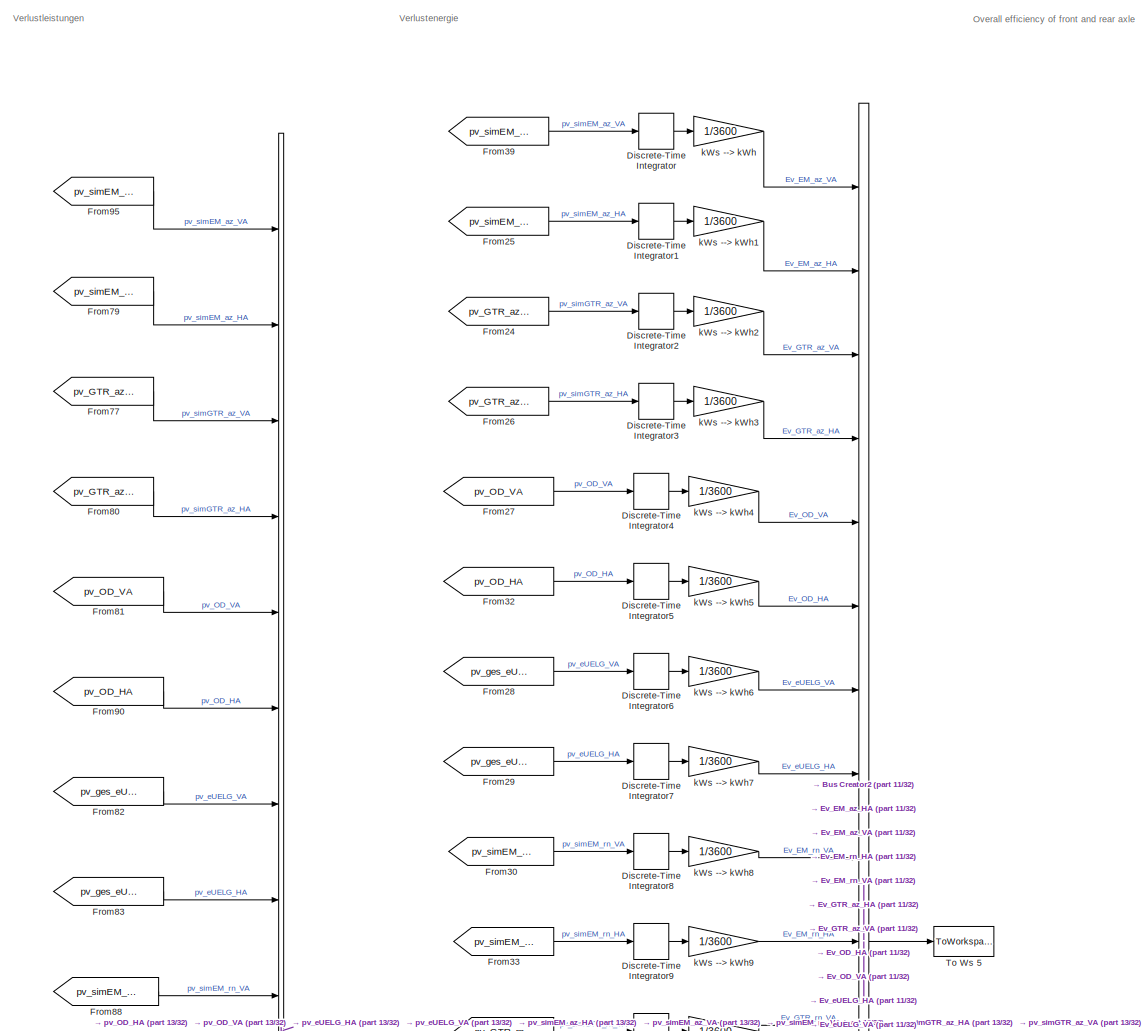
[diagram: Vehicle/Antriebsstrang und Radmomentenverteilung - part 6/32, top right region]
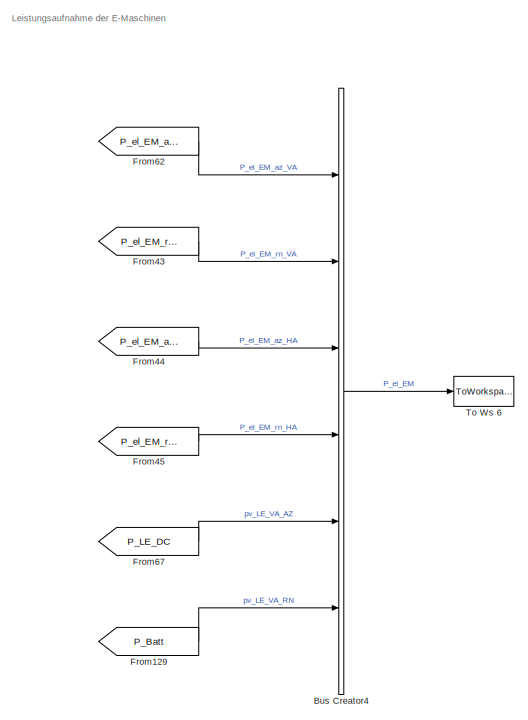
[diagram: Vehicle/Antriebsstrang und Radmomentenverteilung - part 7/32, top right region]
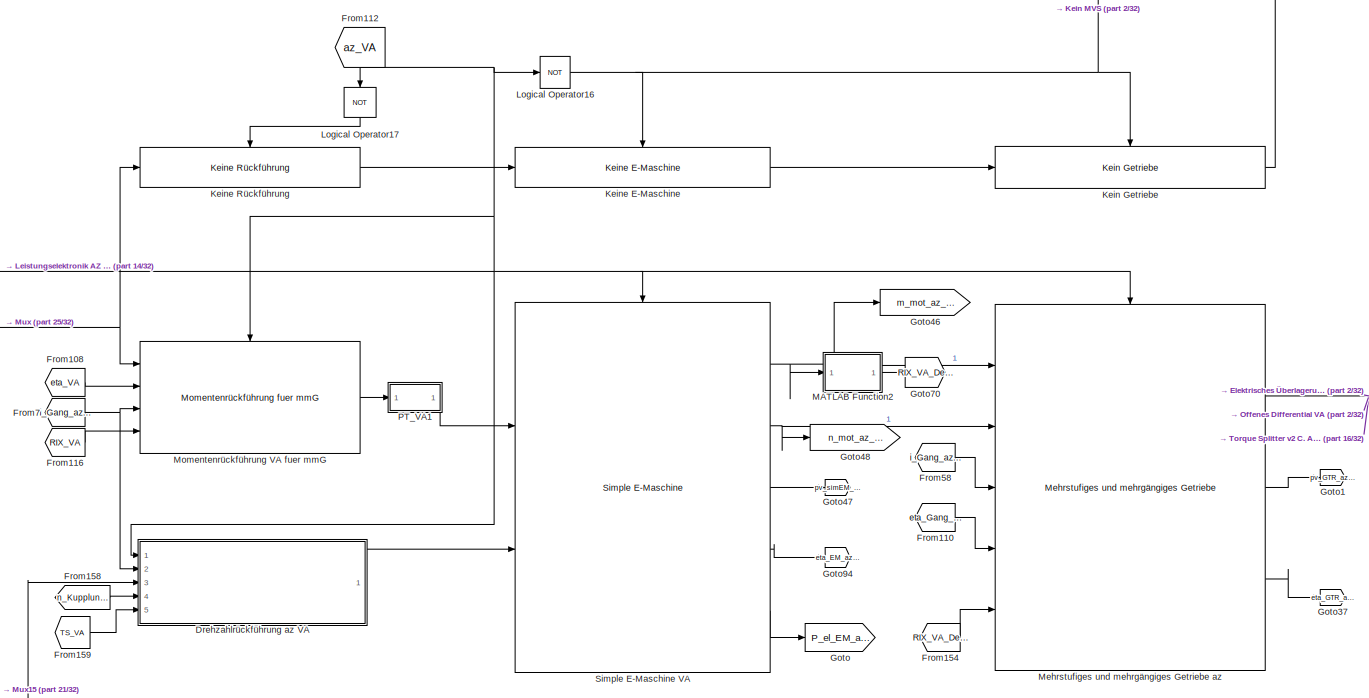
[diagram: Vehicle/Antriebsstrang und Radmomentenverteilung - part 8/32, top left region]
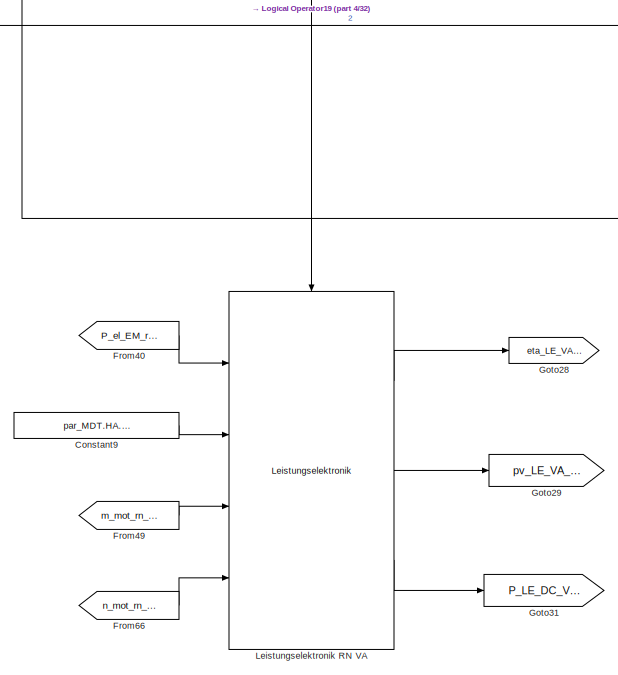
[diagram: Vehicle/Antriebsstrang und Radmomentenverteilung - part 9/32, top center region]
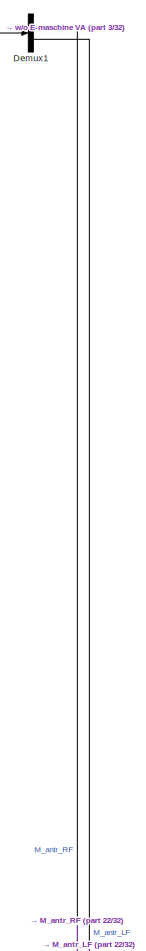
[diagram: Vehicle/Antriebsstrang und Radmomentenverteilung - part 10/32, top center region]
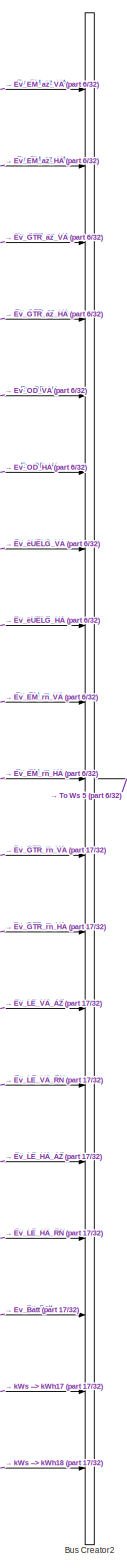
[diagram: Vehicle/Antriebsstrang und Radmomentenverteilung - part 11/32, middle right region]
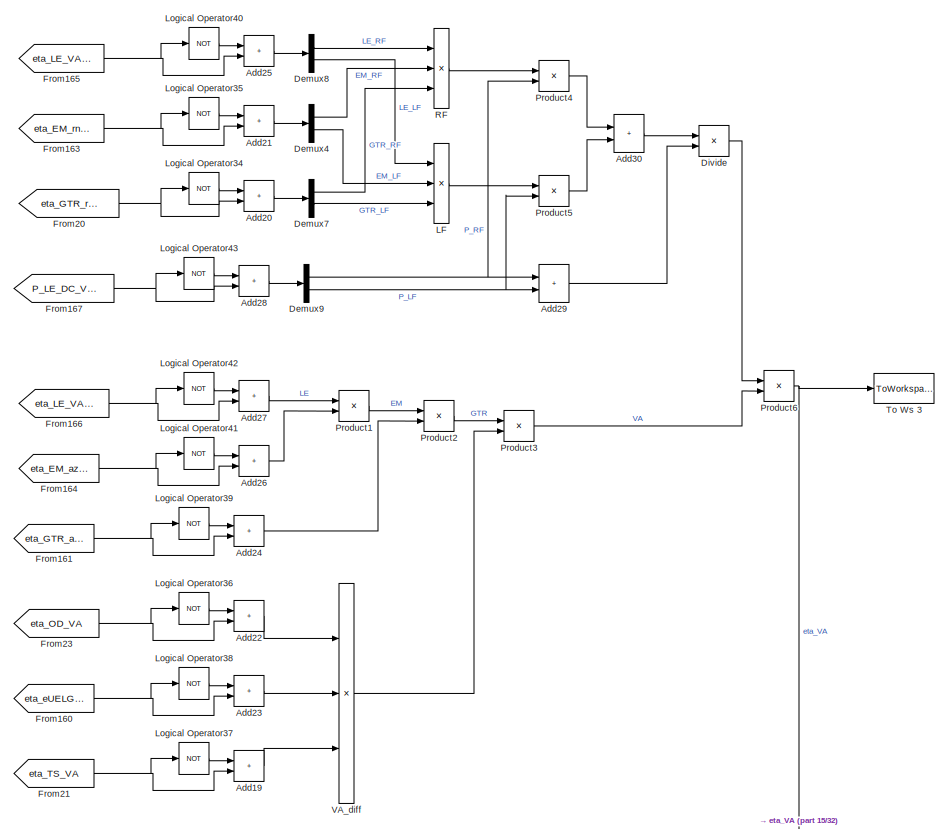
[diagram: Vehicle/Antriebsstrang und Radmomentenverteilung - part 12/32, top right region]
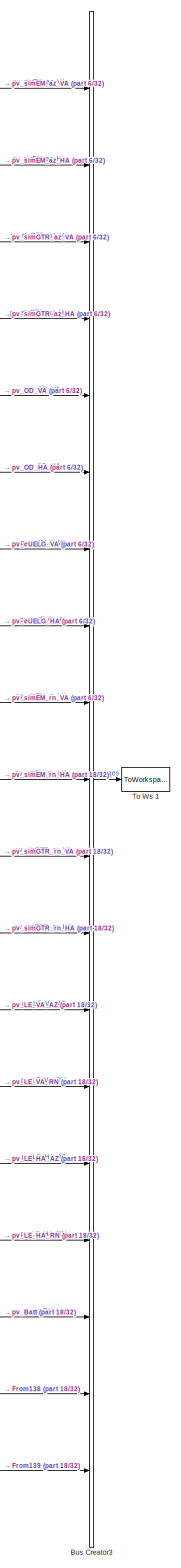
[diagram: Vehicle/Antriebsstrang und Radmomentenverteilung - part 13/32, middle right region]
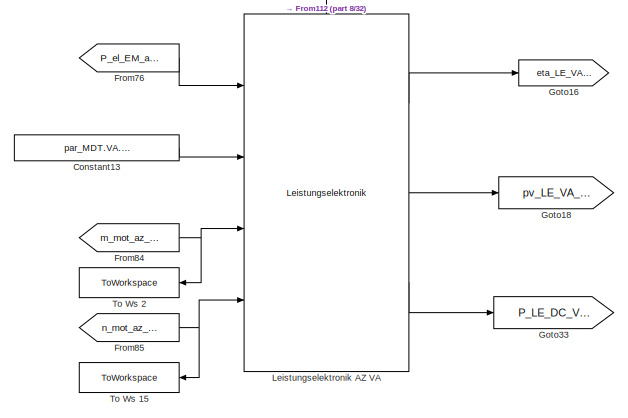
[diagram: Vehicle/Antriebsstrang und Radmomentenverteilung - part 14/32, top left region]
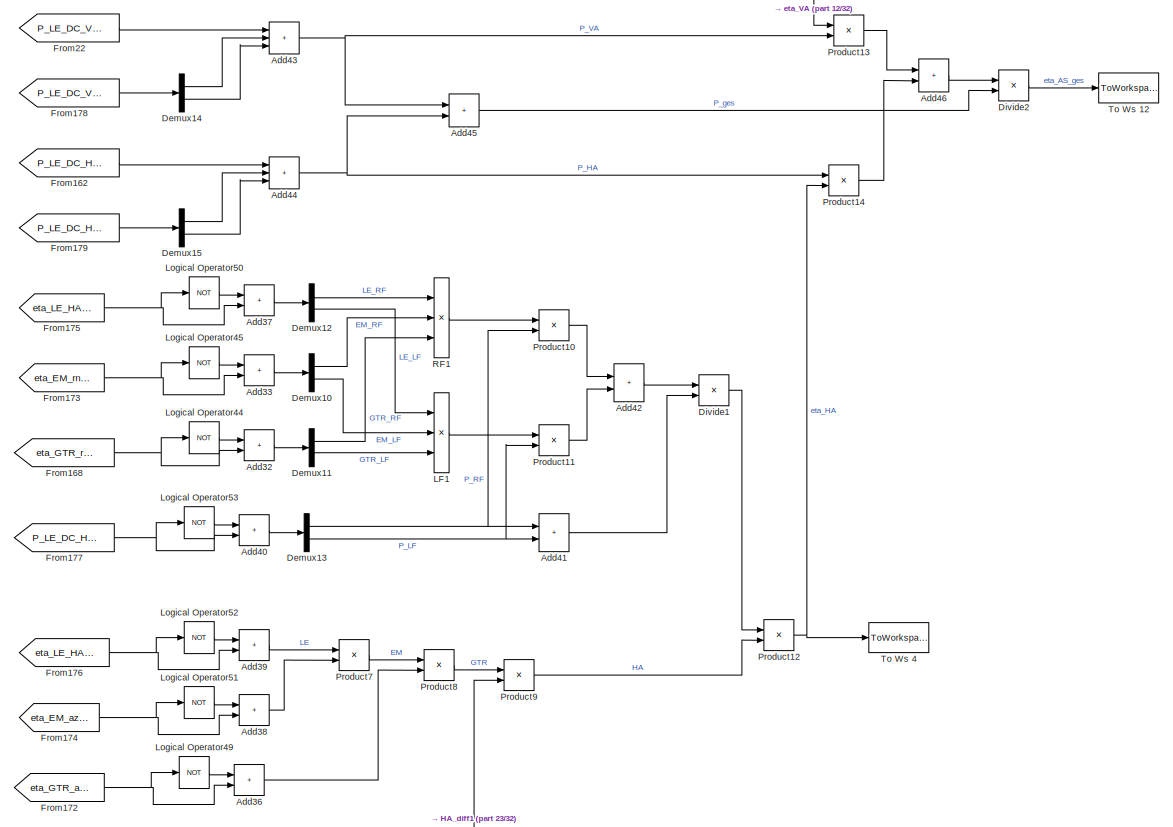
[diagram: Vehicle/Antriebsstrang und Radmomentenverteilung - part 15/32, middle right region]
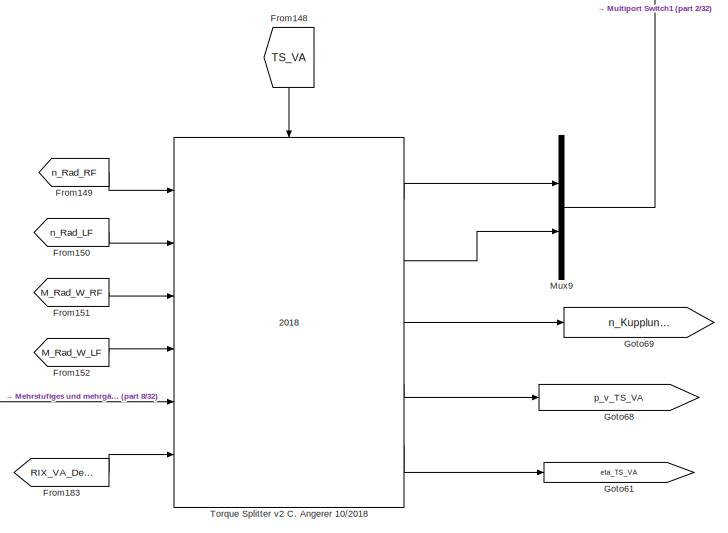
[diagram: Vehicle/Antriebsstrang und Radmomentenverteilung - part 16/32, central region]
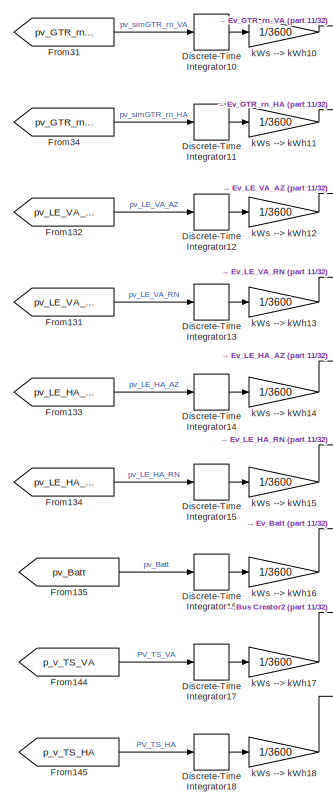
[diagram: Vehicle/Antriebsstrang und Radmomentenverteilung - part 17/32, middle right region]
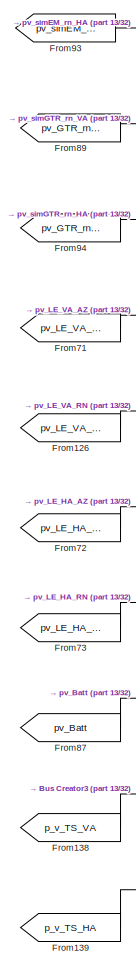
[diagram: Vehicle/Antriebsstrang und Radmomentenverteilung - part 18/32, middle right region]
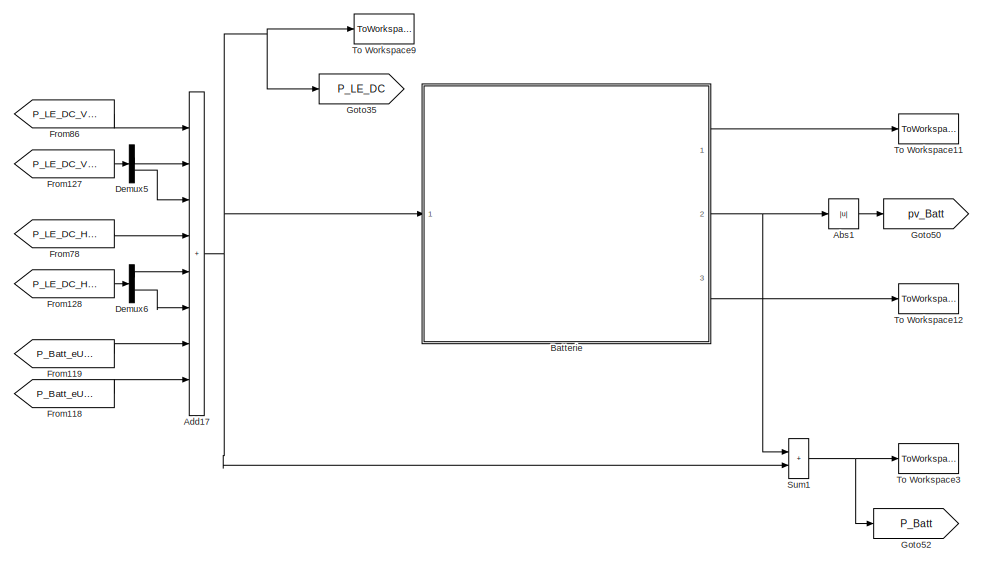
[diagram: Vehicle/Antriebsstrang und Radmomentenverteilung - part 19/32, middle left region]
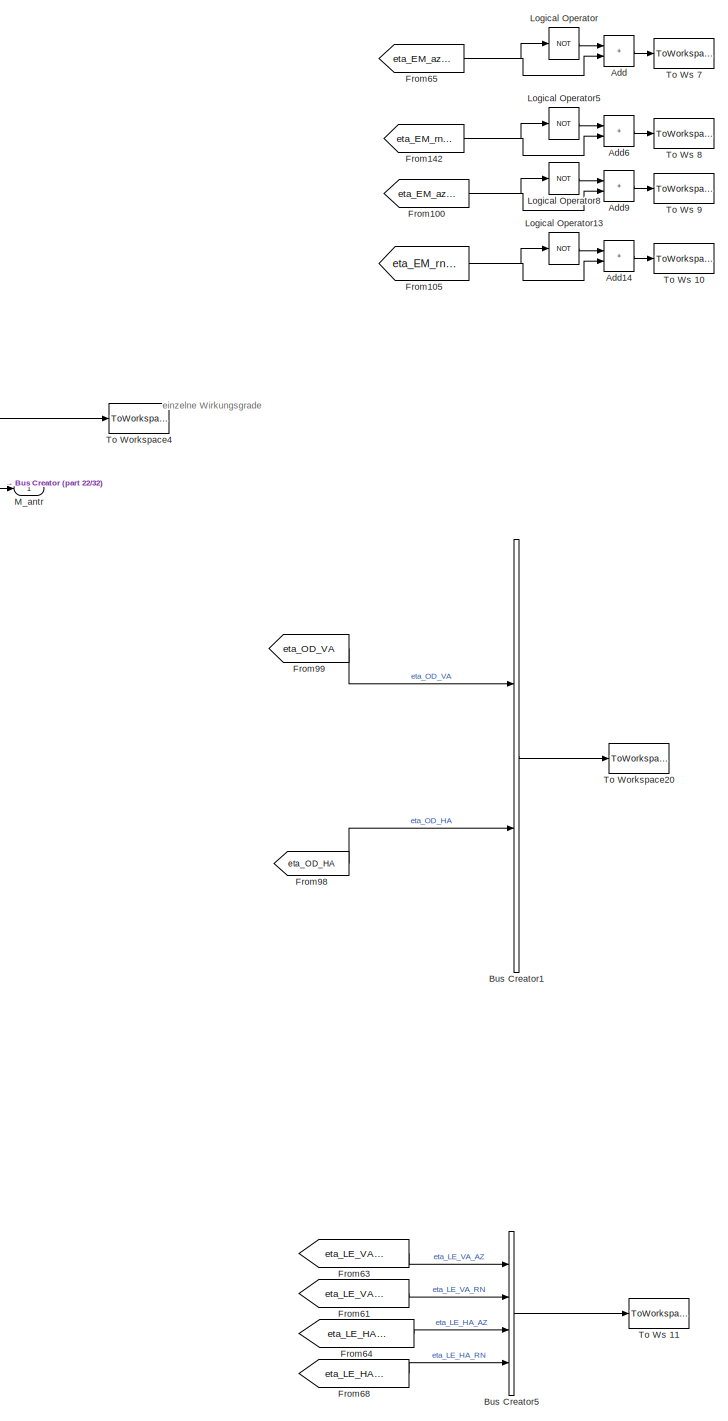
[diagram: Vehicle/Antriebsstrang und Radmomentenverteilung - part 20/32, middle right region]
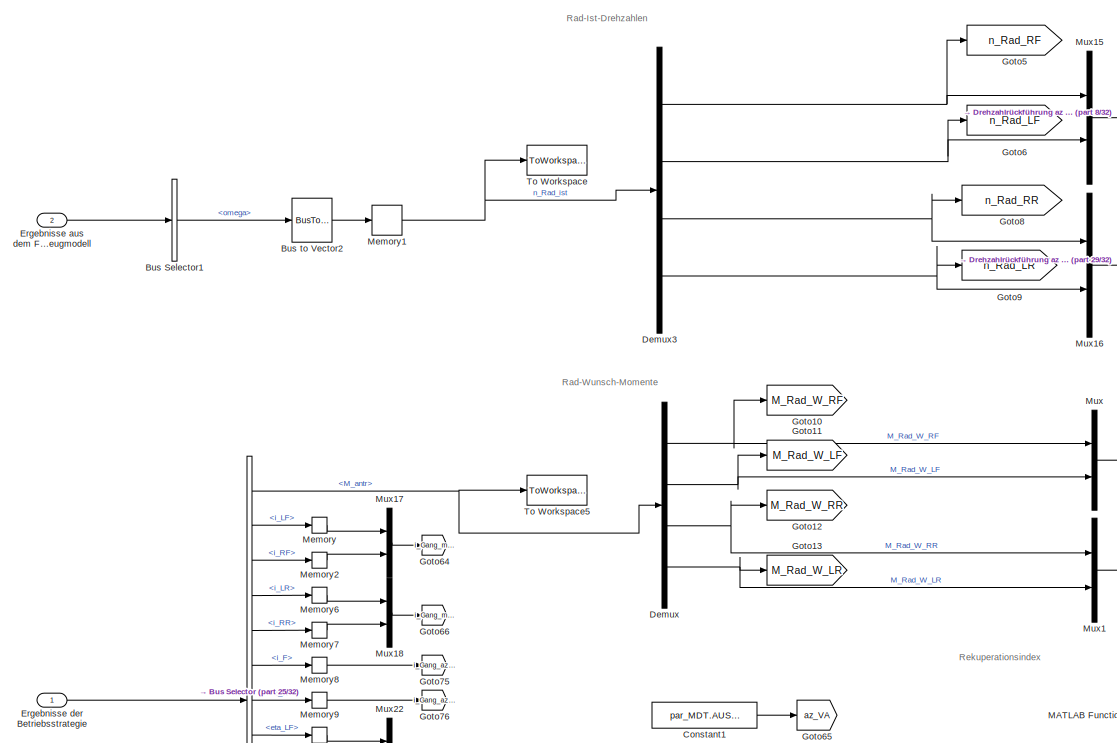
[diagram: Vehicle/Antriebsstrang und Radmomentenverteilung - part 21/32, middle left region]
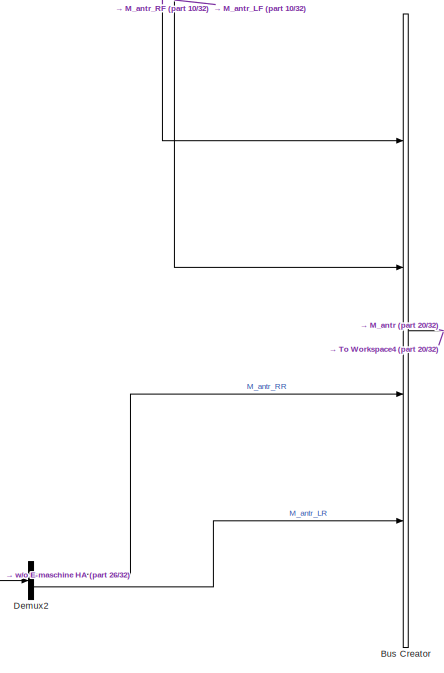
[diagram: Vehicle/Antriebsstrang und Radmomentenverteilung - part 22/32, middle right region]
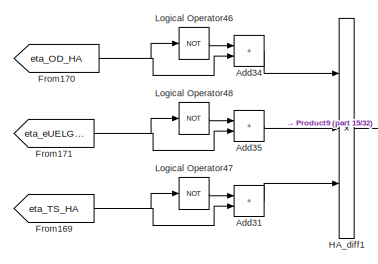
[diagram: Vehicle/Antriebsstrang und Radmomentenverteilung - part 23/32, middle right region]
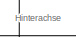
[diagram: Vehicle/Antriebsstrang und Radmomentenverteilung - part 24/32, middle left region]
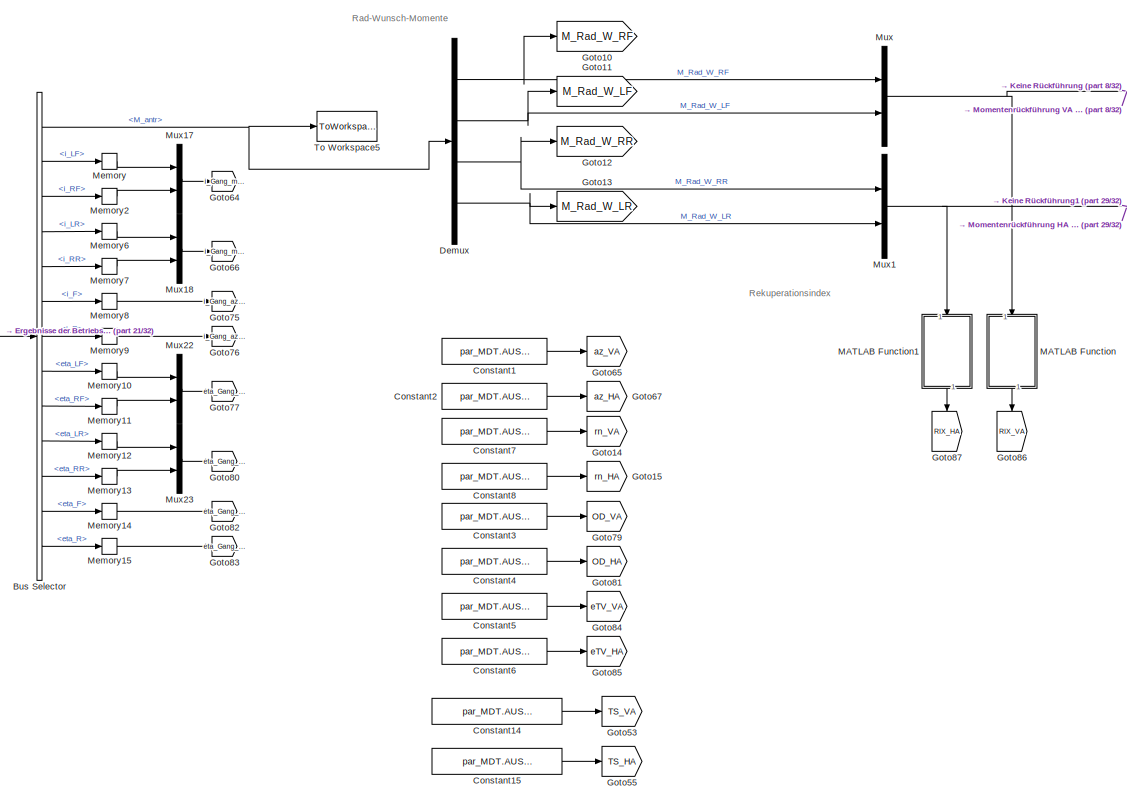
[diagram: Vehicle/Antriebsstrang und Radmomentenverteilung - part 25/32, middle left region]
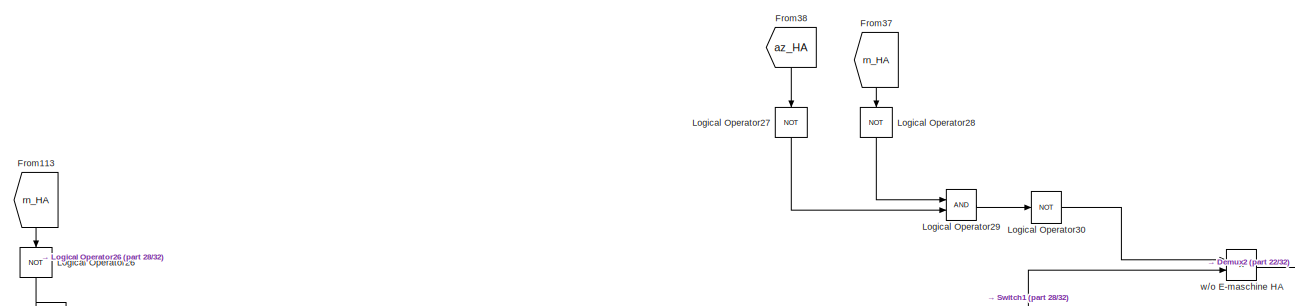
[diagram: Vehicle/Antriebsstrang und Radmomentenverteilung - part 26/32, central region]
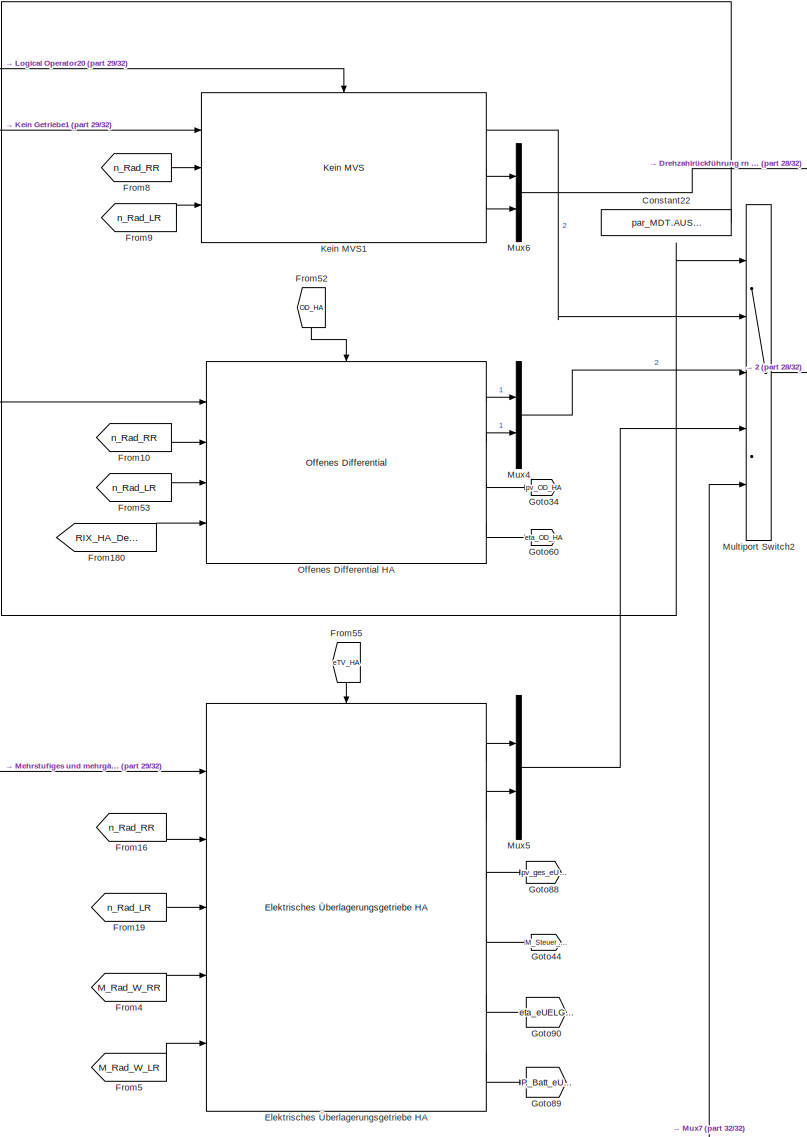
[diagram: Vehicle/Antriebsstrang und Radmomentenverteilung - part 27/32, bottom center region]
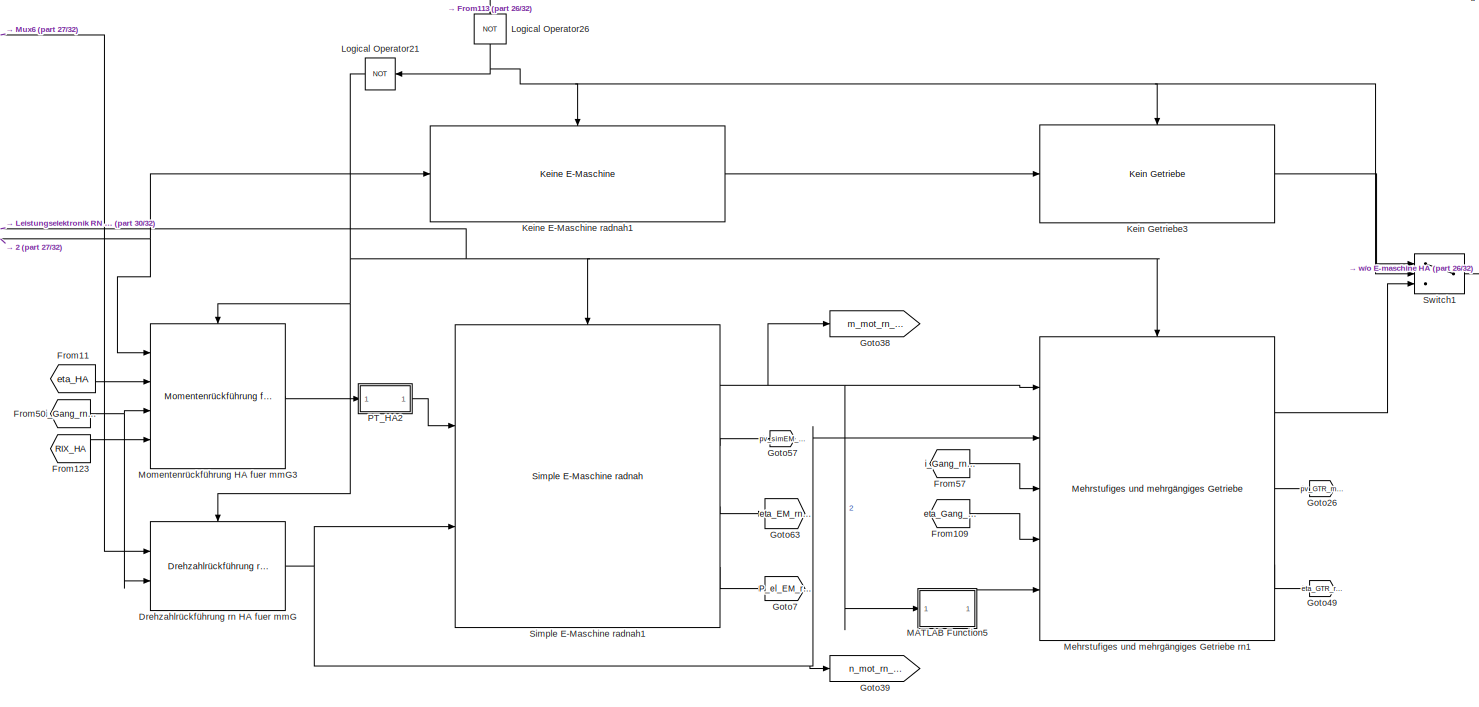
[diagram: Vehicle/Antriebsstrang und Radmomentenverteilung - part 28/32, bottom center region]
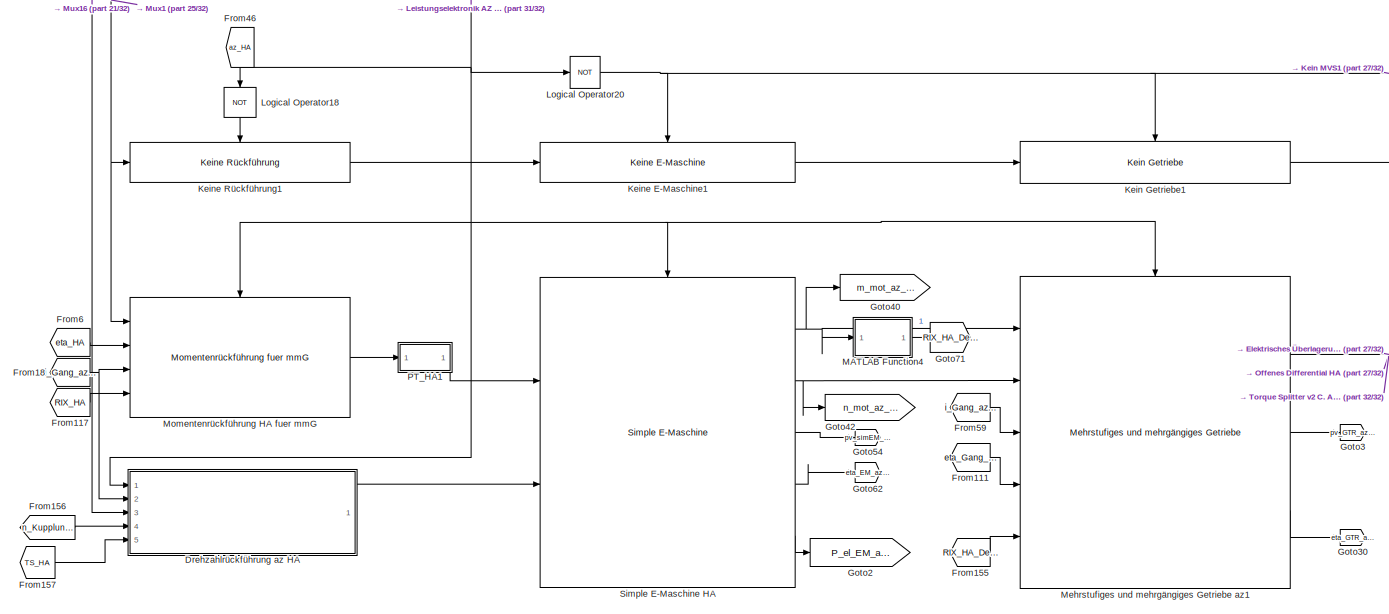
[diagram: Vehicle/Antriebsstrang und Radmomentenverteilung - part 29/32, bottom left region]
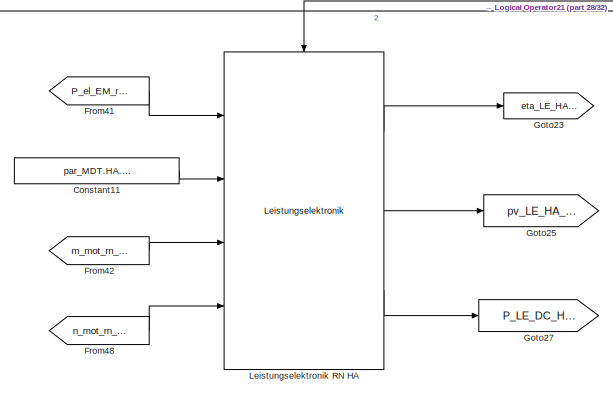
[diagram: Vehicle/Antriebsstrang und Radmomentenverteilung - part 30/32, bottom center region]
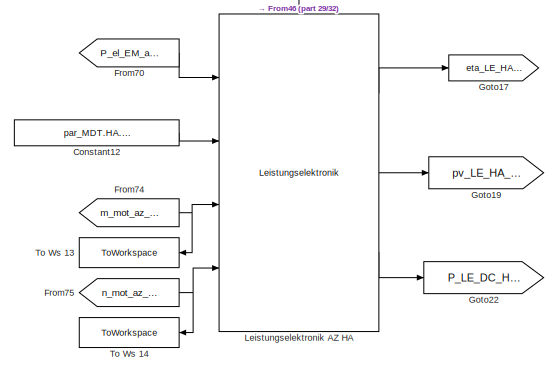
[diagram: Vehicle/Antriebsstrang und Radmomentenverteilung - part 31/32, bottom left region]
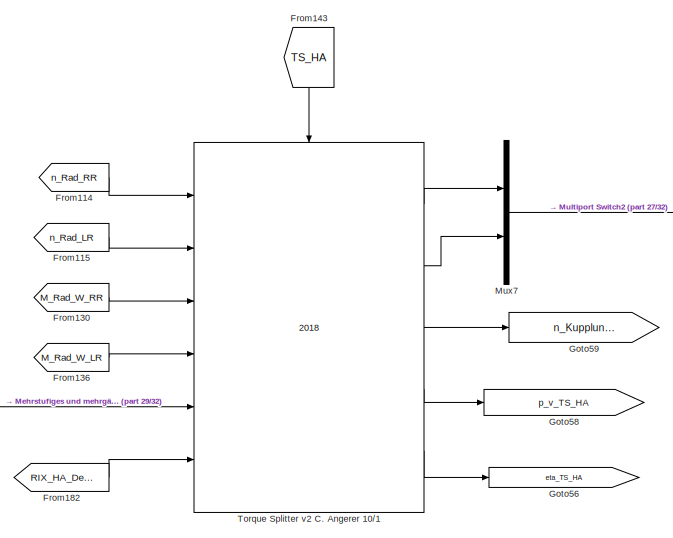
[diagram: Vehicle/Antriebsstrang und Radmomentenverteilung - part 32/32, bottom center region]
BLOCK [SubSystem] Vehicle/Antriebsstrang und Radmomentenverteilung
  Ports = [2, 1]
  RequestExecContextInheritance = off
BLOCK [Abs] Vehicle/Antriebsstrang und Radmomentenverteilung/Abs1
  SaturateOnIntegerOverflow = off
BLOCK [Sum] Vehicle/Antriebsstrang und Radmomentenverteilung/Add
  IconShape = rectangular
  Ports = [2, 1]
BLOCK [Sum] Vehicle/Antriebsstrang und Radmomentenverteilung/Add1
  IconShape = rectangular
  Ports = [2, 1]
BLOCK [Sum] Vehicle/Antriebsstrang und Radmomentenverteilung/Add10
  IconShape = rectangular
  Ports = [2, 1]
BLOCK [Sum] Vehicle/Antriebsstrang und Radmomentenverteilung/Add11
  IconShape = rectangular
  Ports = [2, 1]
BLOCK [Sum] Vehicle/Antriebsstrang und Radmomentenverteilung/Add12
  IconShape = rectangular
  Ports = [2, 1]
BLOCK [Sum] Vehicle/Antriebsstrang und Radmomentenverteilung/Add13
  IconShape = rectangular
  Ports = [2, 1]
BLOCK [Sum] Vehicle/Antriebsstrang und Radmomentenverteilung/Add14
  IconShape = rectangular
  Ports = [2, 1]
BLOCK [Sum] Vehicle/Antriebsstrang und Radmomentenverteilung/Add15
  IconShape = rectangular
  Ports = [2, 1]
BLOCK [Sum] Vehicle/Antriebsstrang und Radmomentenverteilung/Add16
  IconShape = rectangular
  Ports = [2, 1]
BLOCK [Sum] Vehicle/Antriebsstrang und Radmomentenverteilung/Add17
  IconShape = rectangular
  Inputs = ++++++++
  Ports = [8, 1]
BLOCK [Sum] Vehicle/Antriebsstrang und Radmomentenverteilung/Add18
  IconShape = rectangular
  Ports = [2, 1]
BLOCK [Sum] Vehicle/Antriebsstrang und Radmomentenverteilung/Add19
  IconShape = rectangular
  Ports = [2, 1]
BLOCK [Sum] Vehicle/Antriebsstrang und Radmomentenverteilung/Add2
  IconShape = rectangular
  Ports = [2, 1]
BLOCK [Sum] Vehicle/Antriebsstrang und Radmomentenverteilung/Add20
  IconShape = rectangular
  Ports = [2, 1]
BLOCK [Sum] Vehicle/Antriebsstrang und Radmomentenverteilung/Add21
  IconShape = rectangular
  Ports = [2, 1]
BLOCK [Sum] Vehicle/Antriebsstrang und Radmomentenverteilung/Add22
  IconShape = rectangular
  Ports = [2, 1]
BLOCK [Sum] Vehicle/Antriebsstrang und Radmomentenverteilung/Add23
  IconShape = rectangular
  Ports = [2, 1]
BLOCK [Sum] Vehicle/Antriebsstrang und Radmomentenverteilung/Add24
  IconShape = rectangular
  Ports = [2, 1]
BLOCK [Sum] Vehicle/Antriebsstrang und Radmomentenverteilung/Add25
  IconShape = rectangular
  Ports = [2, 1]
BLOCK [Sum] Vehicle/Antriebsstrang und Radmomentenverteilung/Add26
  IconShape = rectangular
  Ports = [2, 1]
BLOCK [Sum] Vehicle/Antriebsstrang und Radmomentenverteilung/Add27
  IconShape = rectangular
  Ports = [2, 1]
BLOCK [Sum] Vehicle/Antriebsstrang und Radmomentenverteilung/Add28
  IconShape = rectangular
  Ports = [2, 1]
BLOCK [Sum] Vehicle/Antriebsstrang und Radmomentenverteilung/Add29
  IconShape = rectangular
  Ports = [2, 1]
BLOCK [Sum] Vehicle/Antriebsstrang und Radmomentenverteilung/Add3
  IconShape = rectangular
  Ports = [2, 1]
BLOCK [Sum] Vehicle/Antriebsstrang und Radmomentenverteilung/Add30
  IconShape = rectangular
  Ports = [2, 1]
BLOCK [Sum] Vehicle/Antriebsstrang und Radmomentenverteilung/Add31
  IconShape = rectangular
  Ports = [2, 1]
BLOCK [Sum] Vehicle/Antriebsstrang und Radmomentenverteilung/Add32
  IconShape = rectangular
  Ports = [2, 1]
BLOCK [Sum] Vehicle/Antriebsstrang und Radmomentenverteilung/Add33
  IconShape = rectangular
  Ports = [2, 1]
BLOCK [Sum] Vehicle/Antriebsstrang und Radmomentenverteilung/Add34
  IconShape = rectangular
  Ports = [2, 1]
BLOCK [Sum] Vehicle/Antriebsstrang und Radmomentenverteilung/Add35
  IconShape = rectangular
  Ports = [2, 1]
BLOCK [Sum] Vehicle/Antriebsstrang und Radmomentenverteilung/Add36
  IconShape = rectangular
  Ports = [2, 1]
BLOCK [Sum] Vehicle/Antriebsstrang und Radmomentenverteilung/Add37
  IconShape = rectangular
  Ports = [2, 1]
BLOCK [Sum] Vehicle/Antriebsstrang und Radmomentenverteilung/Add38
  IconShape = rectangular
  Ports = [2, 1]
BLOCK [Sum] Vehicle/Antriebsstrang und Radmomentenverteilung/Add39
  IconShape = rectangular
  Ports = [2, 1]
BLOCK [Sum] Vehicle/Antriebsstrang und Radmomentenverteilung/Add4
  IconShape = rectangular
  Ports = [2, 1]
BLOCK [Sum] Vehicle/Antriebsstrang und Radmomentenverteilung/Add40
  IconShape = rectangular
  Ports = [2, 1]
BLOCK [Sum] Vehicle/Antriebsstrang und Radmomentenverteilung/Add41
  IconShape = rectangular
  Ports = [2, 1]
BLOCK [Sum] Vehicle/Antriebsstrang und Radmomentenverteilung/Add42
  IconShape = rectangular
  Ports = [2, 1]
BLOCK [Sum] Vehicle/Antriebsstrang und Radmomentenverteilung/Add43
  IconShape = rectangular
  Inputs = +++
  Ports = [3, 1]
BLOCK [Sum] Vehicle/Antriebsstrang und Radmomentenverteilung/Add44
  IconShape = rectangular
  Inputs = +++
  Ports = [3, 1]
BLOCK [Sum] Vehicle/Antriebsstrang und Radmomentenverteilung/Add45
  IconShape = rectangular
  Ports = [2, 1]
BLOCK [Sum] Vehicle/Antriebsstrang und Radmomentenverteilung/Add46
  IconShape = rectangular
  Ports = [2, 1]
BLOCK [Sum] Vehicle/Antriebsstrang und Radmomentenverteilung/Add5
  IconShape = rectangular
  Ports = [2, 1]
BLOCK [Sum] Vehicle/Antriebsstrang und Radmomentenverteilung/Add6
  IconShape = rectangular
  Ports = [2, 1]
BLOCK [Sum] Vehicle/Antriebsstrang und Radmomentenverteilung/Add7
  IconShape = rectangular
  Ports = [2, 1]
BLOCK [Sum] Vehicle/Antriebsstrang und Radmomentenverteilung/Add8
  IconShape = rectangular
  Ports = [2, 1]
BLOCK [Sum] Vehicle/Antriebsstrang und Radmomentenverteilung/Add9
  IconShape = rectangular
  Ports = [2, 1]
BLOCK [SubSystem] Vehicle/Antriebsstrang und Radmomentenverteilung/Batterie
  Ports = [1, 3]
  RequestExecContextInheritance = off
BLOCK [Constant] Vehicle/Antriebsstrang und Radmomentenverteilung/Batterie/BMS sampletime
  Value = stepsize
BLOCK [Outport] Vehicle/Antriebsstrang und Radmomentenverteilung/Batterie/C-Rate
  Port = 3
  VectorParamsAs1DForOutWhenUnconnected = off
BLOCK [Product] Vehicle/Antriebsstrang und Radmomentenverteilung/Batterie/Division
  Inputs = /*
  Ports = [2, 1]
  SaturateOnIntegerOverflow = on
BLOCK [Product] Vehicle/Antriebsstrang und Radmomentenverteilung/Batterie/Division1
  Ports = [2, 1]
  SaturateOnIntegerOverflow = on
BLOCK [Product] Vehicle/Antriebsstrang und Radmomentenverteilung/Batterie/Division2
  Ports = [2, 1]
  SaturateOnIntegerOverflow = on
BLOCK [Product] Vehicle/Antriebsstrang und Radmomentenverteilung/Batterie/Division3
  Ports = [2, 1]
  SaturateOnIntegerOverflow = on
BLOCK [Product] Vehicle/Antriebsstrang und Radmomentenverteilung/Batterie/Division4
  Inputs = */
  Ports = [2, 1]
  SaturateOnIntegerOverflow = on
BLOCK [Product] Vehicle/Antriebsstrang und Radmomentenverteilung/Batterie/Division5
  Inputs = /*
  Ports = [2, 1]
  SaturateOnIntegerOverflow = on
BLOCK [Product] Vehicle/Antriebsstrang und Radmomentenverteilung/Batterie/Division6
  Ports = [2, 1]
  SaturateOnIntegerOverflow = on
BLOCK [SubSystem] Vehicle/Antriebsstrang und Radmomentenverteilung/Batterie/Electrical battery cell model
  Ports = [3, 4]
  RequestExecContextInheritance = off
BLOCK [Sum] Vehicle/Antriebsstrang und Radmomentenverteilung/Batterie/Electrical battery cell model/Add
  IconShape = rectangular
  Inputs = -+
  Ports = [2, 1]
BLOCK [Sum] Vehicle/Antriebsstrang und Radmomentenverteilung/Batterie/Electrical battery cell model/Add1
  IconShape = rectangular
  Inputs = -+
  Ports = [2, 1]
BLOCK [BusSelector] Vehicle/Antriebsstrang und Radmomentenverteilung/Batterie/Electrical battery cell model/Bus Selector
  OutputSignals = C_1,R_1
  Ports = [1, 2]
BLOCK [BusSelector] Vehicle/Antriebsstrang und Radmomentenverteilung/Batterie/Electrical battery cell model/Bus Selector1
  OutputSignals = C_2,R_2
  Ports = [1, 2]
BLOCK [BusSelector] Vehicle/Antriebsstrang und Radmomentenverteilung/Batterie/Electrical battery cell model/Bus Selector2
  OutputSignals = C_N
  Ports = [1, 1]
BLOCK [BusSelector] Vehicle/Antriebsstrang und Radmomentenverteilung/Batterie/Electrical battery cell model/Bus Selector3
  OutputSignals = R_0
  Ports = [1, 1]
BLOCK [Constant] Vehicle/Antriebsstrang und Radmomentenverteilung/Batterie/Electrical battery cell model/Constant
BLOCK [Constant] Vehicle/Antriebsstrang und Radmomentenverteilung/Batterie/Electrical battery cell model/Constant1
BLOCK [Demux] Vehicle/Antriebsstrang und Radmomentenverteilung/Batterie/Electrical battery cell model/Demux
  Outputs = 3
  Ports = [1, 3]
BLOCK [SubSystem] Vehicle/Antriebsstrang und Radmomentenverteilung/Batterie/Electrical battery cell model/Dynamic parameter set
  Ports = [1, 1]
  RequestExecContextInheritance = off
BLOCK [Gain] Vehicle/Antriebsstrang und Radmomentenverteilung/Batterie/Electrical battery cell model/Dynamic parameter set/Ah to As
  Gain = 3600
BLOCK [BusCreator] Vehicle/Antriebsstrang und Radmomentenverteilung/Batterie/Electrical battery cell model/Dynamic parameter set/Bus Creator
  DisplayOption = bar
  InheritFromInputs = on
  Inputs = 6
  Ports = [6, 1]
BLOCK [Lookup_n-D] Vehicle/Antriebsstrang und Radmomentenverteilung/Batterie/Electrical battery cell model/Dynamic parameter set/C1
  BreakpointsForDimension1 = par_MDT.AUS.batt.Daten_Batteriemodell.BatPara.ECMPara.Dyn.EIS.SOCs
  BreakpointsForDimension2 = Bat_param.Dyn.C_rate
  BreakpointsForDimension3 = temperature_LTrange
  ExtrapMethod = Clip
  InputPortMap = u0
  InternalRulePriority = Speed
  NumberOfTableDimensions = 1
  Ports = [1, 1]
  RndMeth = Simplest
  Table = par_MDT.AUS.batt.Daten_Batteriemodell.BatPara.ECMPara.Dyn.EIS.C1
  UseLastTableValue = on
BLOCK [Lookup_n-D] Vehicle/Antriebsstrang und Radmomentenverteilung/Batterie/Electrical battery cell model/Dynamic parameter set/C2
  BreakpointsForDimension1 = par_MDT.AUS.batt.Daten_Batteriemodell.BatPara.ECMPara.Dyn.EIS.SOCs
  BreakpointsForDimension2 = Bat_param.Dyn.C_rate
  BreakpointsForDimension3 = temperature_LTrange
  ExtrapMethod = Clip
  InputPortMap = u0
  InternalRulePriority = Speed
  NumberOfTableDimensions = 1
  Ports = [1, 1]
  RndMeth = Simplest
  Table = par_MDT.AUS.batt.Daten_Batteriemodell.BatPara.ECMPara.Dyn.EIS.C2
  UseLastTableValue = on
BLOCK [Constant] Vehicle/Antriebsstrang und Radmomentenverteilung/Batterie/Electrical battery cell model/Dynamic parameter set/Cell capacity
  Value = par_MDT.AUS.batt.Daten_Batteriemodell.BatPara.ECMPara.CA
BLOCK [Lookup_n-D] Vehicle/Antriebsstrang und Radmomentenverteilung/Batterie/Electrical battery cell model/Dynamic parameter set/R1
  BreakpointsForDimension1 = par_MDT.AUS.batt.Daten_Batteriemodell.BatPara.ECMPara.Dyn.EIS.SOCs
  BreakpointsForDimension2 = Bat_param.Dyn.C_rate
  BreakpointsForDimension3 = temperature_LTrange
  ExtrapMethod = Clip
  InputPortMap = u0
  InternalRulePriority = Speed
  NumberOfTableDimensions = 1
  Ports = [1, 1]
  RndMeth = Simplest
  Table = par_MDT.AUS.batt.Daten_Batteriemodell.BatPara.ECMPara.Dyn.EIS.R1
  UseLastTableValue = on
BLOCK [Lookup_n-D] Vehicle/Antriebsstrang und Radmomentenverteilung/Batterie/Electrical battery cell model/Dynamic parameter set/R2
  BreakpointsForDimension1 = par_MDT.AUS.batt.Daten_Batteriemodell.BatPara.ECMPara.Dyn.EIS.SOCs
  BreakpointsForDimension2 = Bat_param.Dyn.C_rate
  BreakpointsForDimension3 = temperature_LTrange
  ExtrapMethod = Clip
  InputPortMap = u0
  InternalRulePriority = Speed
  NumberOfTableDimensions = 1
  Ports = [1, 1]
  RndMeth = Simplest
  Table = par_MDT.AUS.batt.Daten_Batteriemodell.BatPara.ECMPara.Dyn.EIS.R2
  UseLastTableValue = on
BLOCK [Lookup_n-D] Vehicle/Antriebsstrang und Radmomentenverteilung/Batterie/Electrical battery cell model/Dynamic parameter set/R_0
  BreakpointsForDimension1 = par_MDT.AUS.batt.Daten_Batteriemodell.BatPara.ECMPara.Dyn.EIS.SOCs
  BreakpointsForDimension2 = Bat_param.Dyn.C_rate
  BreakpointsForDimension3 = temperature_LTrange
  ExtrapMethod = Clip
  InputPortMap = u0
  InternalRulePriority = Speed
  NumberOfTableDimensions = 1
  Ports = [1, 1]
  RndMeth = Simplest
  Table = par_MDT.AUS.batt.Daten_Batteriemodell.BatPara.ECMPara.Dyn.EIS.Rohm
  UseLastTableValue = on
BLOCK [Selector] Vehicle/Antriebsstrang und Radmomentenverteilung/Batterie/Electrical battery cell model/Dynamic parameter set/Selector
  IndexOptions = Index vector (dialog)
  Indices = 1
  InputPortWidth = 3
  OutputSizes = 1
  Ports = [1, 1]
BLOCK [Outport] Vehicle/Antriebsstrang und Radmomentenverteilung/Batterie/Electrical battery cell model/Dynamic parameter set/bat_param
  VectorParamsAs1DForOutWhenUnconnected = off
BLOCK [Inport] Vehicle/Antriebsstrang und Radmomentenverteilung/Batterie/Electrical battery cell model/Dynamic parameter set/x_k
  PortDimensions = [3 1]
BLOCK [Gain] Vehicle/Antriebsstrang und Radmomentenverteilung/Batterie/Electrical battery cell model/Gain
  NameLocation = top
BLOCK [Gain] Vehicle/Antriebsstrang und Radmomentenverteilung/Batterie/Electrical battery cell model/Gain1
  NameLocation = top
BLOCK [Product] Vehicle/Antriebsstrang und Radmomentenverteilung/Batterie/Electrical battery cell model/I*dt//C_N
  Inputs = */*
  Ports = [3, 1]
BLOCK [Gain] Vehicle/Antriebsstrang und Radmomentenverteilung/Batterie/Electrical battery cell model/Minus
  Gain = -1
BLOCK [Gain] Vehicle/Antriebsstrang und Radmomentenverteilung/Batterie/Electrical battery cell model/Minus1
  Gain = -1
BLOCK [Mux] Vehicle/Antriebsstrang und Radmomentenverteilung/Batterie/Electrical battery cell model/Mux
  DisplayOption = bar
  Inputs = 3
  Ports = [3, 1]
BLOCK [Outport] Vehicle/Antriebsstrang und Radmomentenverteilung/Batterie/Electrical battery cell model/OCV
  Port = 3
  VectorParamsAs1DForOutWhenUnconnected = off
BLOCK [Lookup_n-D] Vehicle/Antriebsstrang und Radmomentenverteilung/Batterie/Electrical battery cell model/OCV(SOC)
  BreakpointsForDimension1 = par_MDT.AUS.batt.Daten_Batteriemodell.BatPara.ECMPara.OCV.ConstantC.SOC
  ExtrapMethod = Clip
  InputPortMap = u0
  InternalRulePriority = Speed
  NumberOfTableDimensions = 1
  Ports = [1, 1]
  RndMeth = Simplest
  Table = par_MDT.AUS.batt.Daten_Batteriemodell.BatPara.ECMPara.OCV.ConstantC.U_OCV_C25
  UseLastTableValue = on
BLOCK [Product] Vehicle/Antriebsstrang und Radmomentenverteilung/Batterie/Electrical battery cell model/Prod
  Inputs = **
  Ports = [2, 1]
BLOCK [Product] Vehicle/Antriebsstrang und Radmomentenverteilung/Batterie/Electrical battery cell model/Prod1
  Inputs = **
  Ports = [2, 1]
BLOCK [Product] Vehicle/Antriebsstrang und Radmomentenverteilung/Batterie/Electrical battery cell model/Prod2
  Inputs = ***
  Ports = [3, 1]
BLOCK [Product] Vehicle/Antriebsstrang und Radmomentenverteilung/Batterie/Electrical battery cell model/Prod3
  Inputs = ***
  Ports = [3, 1]
BLOCK [Product] Vehicle/Antriebsstrang und Radmomentenverteilung/Batterie/Electrical battery cell model/Product1
  Inputs = *//
  Ports = [3, 1]
BLOCK [Product] Vehicle/Antriebsstrang und Radmomentenverteilung/Batterie/Electrical battery cell model/Product2
  Inputs = *//
  Ports = [3, 1]
BLOCK [Product] Vehicle/Antriebsstrang und Radmomentenverteilung/Batterie/Electrical battery cell model/Product3
  Inputs = **
  Ports = [2, 1]
BLOCK [Outport] Vehicle/Antriebsstrang und Radmomentenverteilung/Batterie/Electrical battery cell model/SOC
  Port = 4
  VectorParamsAs1DForOutWhenUnconnected = off
BLOCK [Saturate] Vehicle/Antriebsstrang und Radmomentenverteilung/Batterie/Electrical battery cell model/Saturation
  LowerLimit = 0
  NameLocation = top
  UpperLimit = 1
BLOCK [Sum] Vehicle/Antriebsstrang und Radmomentenverteilung/Batterie/Electrical battery cell model/Sum
  IconShape = rectangular
  Ports = [2, 1]
BLOCK [Sum] Vehicle/Antriebsstrang und Radmomentenverteilung/Batterie/Electrical battery cell model/Sum1
  Inputs = |++
  Ports = [2, 1]
BLOCK [Sum] Vehicle/Antriebsstrang und Radmomentenverteilung/Batterie/Electrical battery cell model/Sum2
  IconShape = rectangular
  Ports = [2, 1]
BLOCK [Sum] Vehicle/Antriebsstrang und Radmomentenverteilung/Batterie/Electrical battery cell model/Sum3
  Inputs = ++++
  Ports = [4, 1]
BLOCK [Inport] Vehicle/Antriebsstrang und Radmomentenverteilung/Batterie/Electrical battery cell model/dt
  Port = 3
BLOCK [Math] Vehicle/Antriebsstrang und Radmomentenverteilung/Batterie/Electrical battery cell model/exp
  Ports = [1, 1]
  SignedPower = on
BLOCK [Math] Vehicle/Antriebsstrang und Radmomentenverteilung/Batterie/Electrical battery cell model/exp1
  Ports = [1, 1]
  SignedPower = on
BLOCK [Inport] Vehicle/Antriebsstrang und Radmomentenverteilung/Batterie/Electrical battery cell model/u
  Port = 2
  PortDimensions = [1 1]
BLOCK [Inport] Vehicle/Antriebsstrang und Radmomentenverteilung/Batterie/Electrical battery cell model/x_k
  PortDimensions = [3 1]
BLOCK [Outport] Vehicle/Antriebsstrang und Radmomentenverteilung/Batterie/Electrical battery cell model/x_k+1
  VectorParamsAs1DForOutWhenUnconnected = off
BLOCK [Outport] Vehicle/Antriebsstrang und Radmomentenverteilung/Batterie/Electrical battery cell model/y
  Port = 2
  VectorParamsAs1DForOutWhenUnconnected = off
BLOCK [UnitDelay] Vehicle/Antriebsstrang und Radmomentenverteilung/Batterie/Initial battery state
  HasFrameUpgradeWarning = on
  InitialCondition = par_MDT.AUS.batt.Daten_Batteriemodell.x_init
  SampleTime = -1
BLOCK [UnitDelay] Vehicle/Antriebsstrang und Radmomentenverteilung/Batterie/Initial battery voltage
  HasFrameUpgradeWarning = on
  InitialCondition = interp1(par_MDT.AUS.batt.Daten_Batteriemodell.BatPara.ECMPara.OCV.ConstantC.SOC,par_MDT.AUS.batt.Daten_Batteriemodell.BatPara.ECMPara.OCV.ConstantC.U_OCV_C25,par_MDT.AUS.batt.Daten_Batteriemodell.x_init(1))
  SampleTime = -1
BLOCK [SubSystem] Vehicle/Antriebsstrang und Radmomentenverteilung/Batterie/MATLAB Function2
  ErrorFcn = Stateflow.Translate.translate
  PermitHierarchicalResolution = ExplicitOnly
  Ports = [1, 1]
  RequestExecContextInheritance = off
  SFBlockType = MATLAB Function
  TreatAsAtomicUnit = on
BLOCK [Demux] Vehicle/Antriebsstrang und Radmomentenverteilung/Batterie/MATLAB Function2/ Demux 
  Outputs = 1
  Ports = [1, 1]
BLOCK [S-Function] Vehicle/Antriebsstrang und Radmomentenverteilung/Batterie/MATLAB Function2/ SFunction 
  EnableBusSupport = on
  FunctionName = sf_sfun
  PortCounts = [1 2]
  Ports = [1, 2]
  SFcnIsStateOwnerBlock = off
  SFunctionDeploymentMode = off
  Tag = Stateflow S-Function 2
BLOCK [Terminator] Vehicle/Antriebsstrang und Radmomentenverteilung/Batterie/MATLAB Function2/ Terminator 
BLOCK [Inport] Vehicle/Antriebsstrang und Radmomentenverteilung/Batterie/MATLAB Function2/u
BLOCK [Outport] Vehicle/Antriebsstrang und Radmomentenverteilung/Batterie/MATLAB Function2/y
  VectorParamsAs1DForOutWhenUnconnected = off
BLOCK [SubSystem] Vehicle/Antriebsstrang und Radmomentenverteilung/Batterie/MATLAB Function3
  ErrorFcn = Stateflow.Translate.translate
  PermitHierarchicalResolution = ExplicitOnly
  Ports = [1, 1]
  RequestExecContextInheritance = off
  SFBlockType = MATLAB Function
  TreatAsAtomicUnit = on
BLOCK [Demux] Vehicle/Antriebsstrang und Radmomentenverteilung/Batterie/MATLAB Function3/ Demux 
  Outputs = 1
  Ports = [1, 1]
BLOCK [S-Function] Vehicle/Antriebsstrang und Radmomentenverteilung/Batterie/MATLAB Function3/ SFunction 
  EnableBusSupport = on
  FunctionName = sf_sfun
  PortCounts = [1 2]
  Ports = [1, 2]
  SFcnIsStateOwnerBlock = off
  SFunctionDeploymentMode = off
  Tag = Stateflow S-Function 7
BLOCK [Terminator] Vehicle/Antriebsstrang und Radmomentenverteilung/Batterie/MATLAB Function3/ Terminator 
BLOCK [Inport] Vehicle/Antriebsstrang und Radmomentenverteilung/Batterie/MATLAB Function3/u
BLOCK [Outport] Vehicle/Antriebsstrang und Radmomentenverteilung/Batterie/MATLAB Function3/y
  VectorParamsAs1DForOutWhenUnconnected = off
BLOCK [Gain] Vehicle/Antriebsstrang und Radmomentenverteilung/Batterie/Minus1
  Gain = -1
BLOCK [Gain] Vehicle/Antriebsstrang und Radmomentenverteilung/Batterie/Minus2
  Gain = -1
  NameLocation = left
BLOCK [Inport] Vehicle/Antriebsstrang und Radmomentenverteilung/Batterie/P_LE_DC
BLOCK [Constant] Vehicle/Antriebsstrang und Radmomentenverteilung/Batterie/Parallel
  Value = par_MDT.AUS.batt.Cells_parallel
BLOCK [Product] Vehicle/Antriebsstrang und Radmomentenverteilung/Batterie/Product
  Inputs = /*
  NameLocation = top
  Ports = [2, 1]
BLOCK [Outport] Vehicle/Antriebsstrang und Radmomentenverteilung/Batterie/SOC
  VectorParamsAs1DForOutWhenUnconnected = off
BLOCK [Constant] Vehicle/Antriebsstrang und Radmomentenverteilung/Batterie/Serial
  NameLocation = top
  Value = par_MDT.AUS.batt.Cells_serial
BLOCK [Sum] Vehicle/Antriebsstrang und Radmomentenverteilung/Batterie/Sum1
  IconShape = rectangular
  Inputs = -+
  Ports = [2, 1]
BLOCK [Constant] Vehicle/Antriebsstrang und Radmomentenverteilung/Batterie/Zellkapazität
  Value = par_MDT.AUS.batt.Kapazitaet_Zellen
BLOCK [Outport] Vehicle/Antriebsstrang und Radmomentenverteilung/Batterie/pv_batt
  Port = 2
  VectorParamsAs1DForOutWhenUnconnected = off
BLOCK [BusCreator] Vehicle/Antriebsstrang und Radmomentenverteilung/Bus Creator
  DisplayOption = bar
  InheritFromInputs = on
  Inputs = 4
  Ports = [4, 1]
BLOCK [BusCreator] Vehicle/Antriebsstrang und Radmomentenverteilung/Bus Creator1
  DisplayOption = bar
  InheritFromInputs = on
  Inputs = 2
  Ports = [2, 1]
BLOCK [BusCreator] Vehicle/Antriebsstrang und Radmomentenverteilung/Bus Creator2
  DisplayOption = bar
  InheritFromInputs = on
  Inputs = 19
  Ports = [19, 1]
BLOCK [BusCreator] Vehicle/Antriebsstrang und Radmomentenverteilung/Bus Creator3
  DisplayOption = bar
  InheritFromInputs = on
  Inputs = 19
  Ports = [19, 1]
BLOCK [BusCreator] Vehicle/Antriebsstrang und Radmomentenverteilung/Bus Creator4
  DisplayOption = bar
  InheritFromInputs = on
  Inputs = 6
  Ports = [6, 1]
BLOCK [BusCreator] Vehicle/Antriebsstrang und Radmomentenverteilung/Bus Creator5
  DisplayOption = bar
  InheritFromInputs = on
  Inputs = 4
  Ports = [4, 1]
BLOCK [BusSelector] Vehicle/Antriebsstrang und Radmomentenverteilung/Bus Selector
  OutputSignals = M_antr,Schaltstrategie.Übersetzungen.i_LF,Schaltstrategie.Übersetzungen.i_RF,Schaltstrategie.Übersetzungen.i_LR,Schaltstrategie.Übersetzungen.i_RR,Schaltstrategie.Übersetzungen.i_F,Schaltstrategie.Übersetzungen.i_R,Schaltstrategie.Wirkungsgrade.eta_LF,Schaltstrategie.Wirkungsgrade.eta_RF,Schaltstrategie.Wirkungsgrade.eta_LR,Schaltstrategie.Wirkungsgrade.eta_RR,Schaltstrategie.Wirkungsgrade.eta_F,S...<+34ch>
  Ports = [1, 13]
BLOCK [BusSelector] Vehicle/Antriebsstrang und Radmomentenverteilung/Bus Selector1
  OutputSignals = omega
  Ports = [1, 1]
BLOCK [BusToVector] Vehicle/Antriebsstrang und Radmomentenverteilung/Bus to Vector2
BLOCK [Constant] Vehicle/Antriebsstrang und Radmomentenverteilung/Constant1
  Value = par_MDT.AUS.akt.az_VA
BLOCK [Constant] Vehicle/Antriebsstrang und Radmomentenverteilung/Constant11
  Value = par_MDT.HA.em.U_RMS
BLOCK [Constant] Vehicle/Antriebsstrang und Radmomentenverteilung/Constant12
  Value = par_MDT.HA.em.U_RMS
BLOCK [Constant] Vehicle/Antriebsstrang und Radmomentenverteilung/Constant13
  Value = par_MDT.VA.em.U_RMS
BLOCK [Constant] Vehicle/Antriebsstrang und Radmomentenverteilung/Constant14
  Value = par_MDT.AUS.akt.TS_VA
BLOCK [Constant] Vehicle/Antriebsstrang und Radmomentenverteilung/Constant15
  Value = par_MDT.AUS.akt.TS_HA
BLOCK [Constant] Vehicle/Antriebsstrang und Radmomentenverteilung/Constant2
  Value = par_MDT.AUS.akt.az_HA
BLOCK [Constant] Vehicle/Antriebsstrang und Radmomentenverteilung/Constant22
  Value = par_MDT.AUS.switch.MVS_HA
BLOCK [Constant] Vehicle/Antriebsstrang und Radmomentenverteilung/Constant24
  Value = par_MDT.AUS.switch.MVS_VA
BLOCK [Constant] Vehicle/Antriebsstrang und Radmomentenverteilung/Constant3
  Value = par_MDT.AUS.akt.OD_VA
BLOCK [Constant] Vehicle/Antriebsstrang und Radmomentenverteilung/Constant4
  Value = par_MDT.AUS.akt.OD_HA
BLOCK [Constant] Vehicle/Antriebsstrang und Radmomentenverteilung/Constant5
  Value = par_MDT.AUS.akt.eTV_VA
BLOCK [Constant] Vehicle/Antriebsstrang und Radmomentenverteilung/Constant6
  Value = par_MDT.AUS.akt.eTV_HA
BLOCK [Constant] Vehicle/Antriebsstrang und Radmomentenverteilung/Constant7
  Value = par_MDT.AUS.akt.rn_VA
BLOCK [Constant] Vehicle/Antriebsstrang und Radmomentenverteilung/Constant8
  Value = par_MDT.AUS.akt.rn_HA
BLOCK [Constant] Vehicle/Antriebsstrang und Radmomentenverteilung/Constant9
  Value = par_MDT.HA.em.U_RMS
BLOCK [Demux] Vehicle/Antriebsstrang und Radmomentenverteilung/Demux
  Ports = [1, 4]
BLOCK [Demux] Vehicle/Antriebsstrang und Radmomentenverteilung/Demux1
  Outputs = 2
  Ports = [1, 2]
BLOCK [Demux] Vehicle/Antriebsstrang und Radmomentenverteilung/Demux10
  Outputs = 2
  Ports = [1, 2]
BLOCK [Demux] Vehicle/Antriebsstrang und Radmomentenverteilung/Demux11
  Outputs = 2
  Ports = [1, 2]
BLOCK [Demux] Vehicle/Antriebsstrang und Radmomentenverteilung/Demux12
  Outputs = 2
  Ports = [1, 2]
BLOCK [Demux] Vehicle/Antriebsstrang und Radmomentenverteilung/Demux13
  Outputs = 2
  Ports = [1, 2]
BLOCK [Demux] Vehicle/Antriebsstrang und Radmomentenverteilung/Demux14
  Outputs = 2
  Ports = [1, 2]
BLOCK [Demux] Vehicle/Antriebsstrang und Radmomentenverteilung/Demux15
  Outputs = 2
  Ports = [1, 2]
BLOCK [Demux] Vehicle/Antriebsstrang und Radmomentenverteilung/Demux2
  Outputs = 2
  Ports = [1, 2]
BLOCK [Demux] Vehicle/Antriebsstrang und Radmomentenverteilung/Demux3
  Ports = [1, 4]
BLOCK [Demux] Vehicle/Antriebsstrang und Radmomentenverteilung/Demux4
  Outputs = 2
  Ports = [1, 2]
BLOCK [Demux] Vehicle/Antriebsstrang und Radmomentenverteilung/Demux5
  Outputs = 2
  Ports = [1, 2]
BLOCK [Demux] Vehicle/Antriebsstrang und Radmomentenverteilung/Demux6
  Outputs = 2
  Ports = [1, 2]
BLOCK [Demux] Vehicle/Antriebsstrang und Radmomentenverteilung/Demux7
  Outputs = 2
  Ports = [1, 2]
BLOCK [Demux] Vehicle/Antriebsstrang und Radmomentenverteilung/Demux8
  Outputs = 2
  Ports = [1, 2]
BLOCK [Demux] Vehicle/Antriebsstrang und Radmomentenverteilung/Demux9
  Outputs = 2
  Ports = [1, 2]
BLOCK [DiscreteIntegrator] Vehicle/Antriebsstrang und Radmomentenverteilung/Discrete-Time Integrator
  ICPrevOutput = DiscIntNeverNeededParam
  ICPrevScaledInput = DiscIntNeverNeededParam
  InitialConditionSetting = Auto
  Ports = [1, 1]
  SampleTime = stepsize
BLOCK [DiscreteIntegrator] Vehicle/Antriebsstrang und Radmomentenverteilung/Discrete-Time Integrator1
  ICPrevOutput = DiscIntNeverNeededParam
  ICPrevScaledInput = DiscIntNeverNeededParam
  InitialConditionSetting = Auto
  Ports = [1, 1]
  SampleTime = stepsize
BLOCK [DiscreteIntegrator] Vehicle/Antriebsstrang und Radmomentenverteilung/Discrete-Time Integrator10
  ICPrevOutput = DiscIntNeverNeededParam
  ICPrevScaledInput = DiscIntNeverNeededParam
  InitialConditionSetting = Auto
  Ports = [1, 1]
  SampleTime = stepsize
BLOCK [DiscreteIntegrator] Vehicle/Antriebsstrang und Radmomentenverteilung/Discrete-Time Integrator11
  ICPrevOutput = DiscIntNeverNeededParam
  ICPrevScaledInput = DiscIntNeverNeededParam
  InitialConditionSetting = Auto
  NameLocation = top
  Ports = [1, 1]
  SampleTime = stepsize
BLOCK [DiscreteIntegrator] Vehicle/Antriebsstrang und Radmomentenverteilung/Discrete-Time Integrator12
  ICPrevOutput = DiscIntNeverNeededParam
  ICPrevScaledInput = DiscIntNeverNeededParam
  InitialConditionSetting = Auto
  NameLocation = top
  Ports = [1, 1]
  SampleTime = stepsize
BLOCK [DiscreteIntegrator] Vehicle/Antriebsstrang und Radmomentenverteilung/Discrete-Time Integrator13
  ICPrevOutput = DiscIntNeverNeededParam
  ICPrevScaledInput = DiscIntNeverNeededParam
  InitialConditionSetting = Auto
  NameLocation = top
  Ports = [1, 1]
  SampleTime = stepsize
BLOCK [DiscreteIntegrator] Vehicle/Antriebsstrang und Radmomentenverteilung/Discrete-Time Integrator14
  ICPrevOutput = DiscIntNeverNeededParam
  ICPrevScaledInput = DiscIntNeverNeededParam
  InitialConditionSetting = Auto
  NameLocation = top
  Ports = [1, 1]
  SampleTime = stepsize
BLOCK [DiscreteIntegrator] Vehicle/Antriebsstrang und Radmomentenverteilung/Discrete-Time Integrator15
  ICPrevOutput = DiscIntNeverNeededParam
  ICPrevScaledInput = DiscIntNeverNeededParam
  InitialConditionSetting = Auto
  NameLocation = top
  Ports = [1, 1]
  SampleTime = stepsize
BLOCK [DiscreteIntegrator] Vehicle/Antriebsstrang und Radmomentenverteilung/Discrete-Time Integrator16
  ICPrevOutput = DiscIntNeverNeededParam
  ICPrevScaledInput = DiscIntNeverNeededParam
  InitialConditionSetting = Auto
  NameLocation = top
  Ports = [1, 1]
  SampleTime = stepsize
BLOCK [DiscreteIntegrator] Vehicle/Antriebsstrang und Radmomentenverteilung/Discrete-Time Integrator17
  ICPrevOutput = DiscIntNeverNeededParam
  ICPrevScaledInput = DiscIntNeverNeededParam
  InitialConditionSetting = Auto
  NameLocation = top
  Ports = [1, 1]
  SampleTime = stepsize
BLOCK [DiscreteIntegrator] Vehicle/Antriebsstrang und Radmomentenverteilung/Discrete-Time Integrator18
  ICPrevOutput = DiscIntNeverNeededParam
  ICPrevScaledInput = DiscIntNeverNeededParam
  InitialConditionSetting = Auto
  NameLocation = top
  Ports = [1, 1]
  SampleTime = stepsize
BLOCK [DiscreteIntegrator] Vehicle/Antriebsstrang und Radmomentenverteilung/Discrete-Time Integrator2
  ICPrevOutput = DiscIntNeverNeededParam
  ICPrevScaledInput = DiscIntNeverNeededParam
  InitialConditionSetting = Auto
  Ports = [1, 1]
  SampleTime = stepsize
BLOCK [DiscreteIntegrator] Vehicle/Antriebsstrang und Radmomentenverteilung/Discrete-Time Integrator3
  ICPrevOutput = DiscIntNeverNeededParam
  ICPrevScaledInput = DiscIntNeverNeededParam
  InitialConditionSetting = Auto
  Ports = [1, 1]
  SampleTime = stepsize
BLOCK [DiscreteIntegrator] Vehicle/Antriebsstrang und Radmomentenverteilung/Discrete-Time Integrator4
  ICPrevOutput = DiscIntNeverNeededParam
  ICPrevScaledInput = DiscIntNeverNeededParam
  InitialConditionSetting = Auto
  Ports = [1, 1]
  SampleTime = stepsize
BLOCK [DiscreteIntegrator] Vehicle/Antriebsstrang und Radmomentenverteilung/Discrete-Time Integrator5
  ICPrevOutput = DiscIntNeverNeededParam
  ICPrevScaledInput = DiscIntNeverNeededParam
  InitialConditionSetting = Auto
  Ports = [1, 1]
  SampleTime = stepsize
BLOCK [DiscreteIntegrator] Vehicle/Antriebsstrang und Radmomentenverteilung/Discrete-Time Integrator6
  ICPrevOutput = DiscIntNeverNeededParam
  ICPrevScaledInput = DiscIntNeverNeededParam
  InitialConditionSetting = Auto
  Ports = [1, 1]
  SampleTime = stepsize
BLOCK [DiscreteIntegrator] Vehicle/Antriebsstrang und Radmomentenverteilung/Discrete-Time Integrator7
  ICPrevOutput = DiscIntNeverNeededParam
  ICPrevScaledInput = DiscIntNeverNeededParam
  InitialConditionSetting = Auto
  Ports = [1, 1]
  SampleTime = stepsize
BLOCK [DiscreteIntegrator] Vehicle/Antriebsstrang und Radmomentenverteilung/Discrete-Time Integrator8
  ICPrevOutput = DiscIntNeverNeededParam
  ICPrevScaledInput = DiscIntNeverNeededParam
  InitialConditionSetting = Auto
  Ports = [1, 1]
  SampleTime = stepsize
BLOCK [DiscreteIntegrator] Vehicle/Antriebsstrang und Radmomentenverteilung/Discrete-Time Integrator9
  ICPrevOutput = DiscIntNeverNeededParam
  ICPrevScaledInput = DiscIntNeverNeededParam
  InitialConditionSetting = Auto
  Ports = [1, 1]
  SampleTime = stepsize
BLOCK [Product] Vehicle/Antriebsstrang und Radmomentenverteilung/Divide
  Inputs = */
  Ports = [2, 1]
BLOCK [Product] Vehicle/Antriebsstrang und Radmomentenverteilung/Divide1
  Inputs = */
  Ports = [2, 1]
BLOCK [Product] Vehicle/Antriebsstrang und Radmomentenverteilung/Divide2
  Inputs = */
  Ports = [2, 1]
BLOCK [SubSystem] Vehicle/Antriebsstrang und Radmomentenverteilung/Drehzahlrückführung az HA
  Ports = [5, 1]
  RequestExecContextInheritance = off
BLOCK [Inport] Vehicle/Antriebsstrang und Radmomentenverteilung/Drehzahlrückführung az HA/Aktivator az
BLOCK [Reference] Vehicle/Antriebsstrang und Radmomentenverteilung/Drehzahlrückführung az HA/Compare To Zero  REF=simulink/Logic and Bit
Operations/Compare
To Zero
  Ports = [1, 1]
  SourceBlock = simulink/Logic and Bit\nOperations/Compare\nTo Zero
  SourceProductBaseCode = SL
  SourceType = Compare To Zero
BLOCK [Reference] Vehicle/Antriebsstrang und Radmomentenverteilung/Drehzahlrückführung az HA/Compare To Zero2  REF=simulink/Logic and Bit
Operations/Compare
To Zero
  Ports = [1, 1]
  SourceBlock = simulink/Logic and Bit\nOperations/Compare\nTo Zero
  SourceProductBaseCode = SL
  SourceType = Compare To Zero
BLOCK [SubSystem] Vehicle/Antriebsstrang und Radmomentenverteilung/Drehzahlrückführung az HA/Drehzahlrückführung az HA, TS
  AncestorBlock = Library_ASK/Drehzahlrückführung az fuer mmG
  Ports = [2, 1, 1]
  RequestExecContextInheritance = off
BLOCK [Inport] Vehicle/Antriebsstrang und Radmomentenverteilung/Drehzahlrückführung az HA/Drehzahlrückführung az HA, TS/ i_gang 
BLOCK [Product] Vehicle/Antriebsstrang und Radmomentenverteilung/Drehzahlrückführung az HA/Drehzahlrückführung az HA, TS/Divide4
  Inputs = **
  Ports = [2, 1]
BLOCK [EnablePort] Vehicle/Antriebsstrang und Radmomentenverteilung/Drehzahlrückführung az HA/Drehzahlrückführung az HA, TS/Enable
  Ports = []
BLOCK [Outport] Vehicle/Antriebsstrang und Radmomentenverteilung/Drehzahlrückführung az HA/Drehzahlrückführung az HA, TS/Motordrehzahl
  VectorParamsAs1DForOutWhenUnconnected = off
BLOCK [Inport] Vehicle/Antriebsstrang und Radmomentenverteilung/Drehzahlrückführung az HA/Drehzahlrückführung az HA, TS/n_k_geschl 
  Port = 2
BLOCK [SubSystem] Vehicle/Antriebsstrang und Radmomentenverteilung/Drehzahlrückführung az HA/Drehzahlrückführung az HA,OD & eTV 
  AncestorBlock = Library_ASK/Drehzahlrückführung az fuer mmG
  Ports = [2, 1, 1]
  RequestExecContextInheritance = off
BLOCK [Sum] Vehicle/Antriebsstrang und Radmomentenverteilung/Drehzahlrückführung az HA/Drehzahlrückführung az HA,OD & eTV /Add11
  IconShape = rectangular
  Ports = [2, 1]
BLOCK [Demux] Vehicle/Antriebsstrang und Radmomentenverteilung/Drehzahlrückführung az HA/Drehzahlrückführung az HA,OD & eTV /Demux
  Outputs = 2
  Ports = [1, 2]
BLOCK [Product] Vehicle/Antriebsstrang und Radmomentenverteilung/Drehzahlrückführung az HA/Drehzahlrückführung az HA,OD & eTV /Divide4
  Inputs = **
  Ports = [2, 1]
BLOCK [EnablePort] Vehicle/Antriebsstrang und Radmomentenverteilung/Drehzahlrückführung az HA/Drehzahlrückführung az HA,OD & eTV /Enable
  Ports = []
BLOCK [Gain] Vehicle/Antriebsstrang und Radmomentenverteilung/Drehzahlrückführung az HA/Drehzahlrückführung az HA,OD & eTV /Gain
  Gain = 0.5
BLOCK [Outport] Vehicle/Antriebsstrang und Radmomentenverteilung/Drehzahlrückführung az HA/Drehzahlrückführung az HA,OD & eTV /Motordrehzahl
  VectorParamsAs1DForOutWhenUnconnected = off
BLOCK [Inport] Vehicle/Antriebsstrang und Radmomentenverteilung/Drehzahlrückführung az HA/Drehzahlrückführung az HA,OD & eTV /Raddrehzahlen
BLOCK [Inport] Vehicle/Antriebsstrang und Radmomentenverteilung/Drehzahlrückführung az HA/Drehzahlrückführung az HA,OD & eTV /i_Gang
  Port = 2
BLOCK [From] Vehicle/Antriebsstrang und Radmomentenverteilung/Drehzahlrückführung az HA/From156
  GotoTag = TS_HA
  NameLocation = top
BLOCK [From] Vehicle/Antriebsstrang und Radmomentenverteilung/Drehzahlrückführung az HA/From157
  GotoTag = az_HA
BLOCK [From] Vehicle/Antriebsstrang und Radmomentenverteilung/Drehzahlrückführung az HA/From159
  GotoTag = TS_HA
  NameLocation = top
BLOCK [Goto] Vehicle/Antriebsstrang und Radmomentenverteilung/Drehzahlrückführung az HA/Goto
  GotoTag = az_HA
BLOCK [Goto] Vehicle/Antriebsstrang und Radmomentenverteilung/Drehzahlrückführung az HA/Goto1
  GotoTag = TS_HA
BLOCK [Logic] Vehicle/Antriebsstrang und Radmomentenverteilung/Drehzahlrückführung az HA/Logical Operator35
  AllPortsSameDT = off
  OutDataTypeStr = boolean
  Ports = [2, 1]
BLOCK [Inport] Vehicle/Antriebsstrang und Radmomentenverteilung/Drehzahlrückführung az HA/Radrehzahlen 
  Port = 3
BLOCK [Switch] Vehicle/Antriebsstrang und Radmomentenverteilung/Drehzahlrückführung az HA/Switch
  Criteria = u2 > Threshold
  InputSameDT = off
  SaturateOnIntegerOverflow = off
BLOCK [Inport] Vehicle/Antriebsstrang und Radmomentenverteilung/Drehzahlrückführung az HA/TS_HA
  Port = 5
BLOCK [SubSystem] Vehicle/Antriebsstrang und Radmomentenverteilung/Drehzahlrückführung az HA/Verzögerungsglied
  Ports = [1, 1]
  RequestExecContextInheritance = off
BLOCK [InitialCondition] Vehicle/Antriebsstrang und Radmomentenverteilung/Drehzahlrückführung az HA/Verzögerungsglied/IC
  Value = 0
BLOCK [Inport] Vehicle/Antriebsstrang und Radmomentenverteilung/Drehzahlrückführung az HA/Verzögerungsglied/M
BLOCK [Outport] Vehicle/Antriebsstrang und Radmomentenverteilung/Drehzahlrückführung az HA/Verzögerungsglied/M_d
  VectorParamsAs1DForOutWhenUnconnected = off
BLOCK [DiscreteTransferFcn] Vehicle/Antriebsstrang und Radmomentenverteilung/Drehzahlrückführung az HA/Verzögerungsglied/PT1_VA
  Denominator = par_VEH.dt.other.PT_Denom
  InputPortMap = u0
  Numerator = par_VEH.dt.other.PT_Num
  Ports = [1, 1]
BLOCK [ZeroOrderHold] Vehicle/Antriebsstrang und Radmomentenverteilung/Drehzahlrückführung az HA/Verzögerungsglied/Zero-Order Hold
  SampleTime = stepsize
BLOCK [Inport] Vehicle/Antriebsstrang und Radmomentenverteilung/Drehzahlrückführung az HA/i_Gang 
  Port = 2
BLOCK [Inport] Vehicle/Antriebsstrang und Radmomentenverteilung/Drehzahlrückführung az HA/n_Kupplung_geschlossen_HA
  Port = 4
BLOCK [Outport] Vehicle/Antriebsstrang und Radmomentenverteilung/Drehzahlrückführung az HA/n_motor
  VectorParamsAs1DForOutWhenUnconnected = off
BLOCK [SubSystem] Vehicle/Antriebsstrang und Radmomentenverteilung/Drehzahlrückführung az VA
  Ports = [5, 1]
  RequestExecContextInheritance = off
BLOCK [Inport] Vehicle/Antriebsstrang und Radmomentenverteilung/Drehzahlrückführung az VA/Aktivator az
BLOCK [Reference] Vehicle/Antriebsstrang und Radmomentenverteilung/Drehzahlrückführung az VA/Compare To Zero  REF=simulink/Logic and Bit
Operations/Compare
To Zero
  Ports = [1, 1]
  SourceBlock = simulink/Logic and Bit\nOperations/Compare\nTo Zero
  SourceProductBaseCode = SL
  SourceType = Compare To Zero
BLOCK [Reference] Vehicle/Antriebsstrang und Radmomentenverteilung/Drehzahlrückführung az VA/Compare To Zero2  REF=simulink/Logic and Bit
Operations/Compare
To Zero
  Ports = [1, 1]
  SourceBlock = simulink/Logic and Bit\nOperations/Compare\nTo Zero
  SourceProductBaseCode = SL
  SourceType = Compare To Zero
BLOCK [SubSystem] Vehicle/Antriebsstrang und Radmomentenverteilung/Drehzahlrückführung az VA/Drehzahlrückführung az VA, TS
  AncestorBlock = Library_ASK/Drehzahlrückführung az fuer mmG
  Ports = [2, 1, 1]
  RequestExecContextInheritance = off
BLOCK [Inport] Vehicle/Antriebsstrang und Radmomentenverteilung/Drehzahlrückführung az VA/Drehzahlrückführung az VA, TS/ i_gang 
BLOCK [Product] Vehicle/Antriebsstrang und Radmomentenverteilung/Drehzahlrückführung az VA/Drehzahlrückführung az VA, TS/Divide4
  Inputs = **
  Ports = [2, 1]
BLOCK [EnablePort] Vehicle/Antriebsstrang und Radmomentenverteilung/Drehzahlrückführung az VA/Drehzahlrückführung az VA, TS/Enable
  Ports = []
BLOCK [Outport] Vehicle/Antriebsstrang und Radmomentenverteilung/Drehzahlrückführung az VA/Drehzahlrückführung az VA, TS/Motordrehzahl
  VectorParamsAs1DForOutWhenUnconnected = off
BLOCK [Inport] Vehicle/Antriebsstrang und Radmomentenverteilung/Drehzahlrückführung az VA/Drehzahlrückführung az VA, TS/n_k_geschl 
  Port = 2
BLOCK [SubSystem] Vehicle/Antriebsstrang und Radmomentenverteilung/Drehzahlrückführung az VA/Drehzahlrückführung az VA,OD & eTV 
  AncestorBlock = Library_ASK/Drehzahlrückführung az fuer mmG
  Ports = [2, 1, 1]
  RequestExecContextInheritance = off
BLOCK [Sum] Vehicle/Antriebsstrang und Radmomentenverteilung/Drehzahlrückführung az VA/Drehzahlrückführung az VA,OD & eTV /Add11
  IconShape = rectangular
  Ports = [2, 1]
BLOCK [Demux] Vehicle/Antriebsstrang und Radmomentenverteilung/Drehzahlrückführung az VA/Drehzahlrückführung az VA,OD & eTV /Demux
  Outputs = 2
  Ports = [1, 2]
BLOCK [Product] Vehicle/Antriebsstrang und Radmomentenverteilung/Drehzahlrückführung az VA/Drehzahlrückführung az VA,OD & eTV /Divide4
  Inputs = **
  Ports = [2, 1]
BLOCK [EnablePort] Vehicle/Antriebsstrang und Radmomentenverteilung/Drehzahlrückführung az VA/Drehzahlrückführung az VA,OD & eTV /Enable
  Ports = []
BLOCK [Gain] Vehicle/Antriebsstrang und Radmomentenverteilung/Drehzahlrückführung az VA/Drehzahlrückführung az VA,OD & eTV /Gain
  Gain = 0.5
BLOCK [Outport] Vehicle/Antriebsstrang und Radmomentenverteilung/Drehzahlrückführung az VA/Drehzahlrückführung az VA,OD & eTV /Motordrehzahl
  VectorParamsAs1DForOutWhenUnconnected = off
BLOCK [Inport] Vehicle/Antriebsstrang und Radmomentenverteilung/Drehzahlrückführung az VA/Drehzahlrückführung az VA,OD & eTV /Raddrehzahlen
BLOCK [Inport] Vehicle/Antriebsstrang und Radmomentenverteilung/Drehzahlrückführung az VA/Drehzahlrückführung az VA,OD & eTV /i_Gang
  Port = 2
BLOCK [From] Vehicle/Antriebsstrang und Radmomentenverteilung/Drehzahlrückführung az VA/From156
  GotoTag = TS_VA
  NameLocation = top
BLOCK [From] Vehicle/Antriebsstrang und Radmomentenverteilung/Drehzahlrückführung az VA/From157
  GotoTag = az_VA
BLOCK [From] Vehicle/Antriebsstrang und Radmomentenverteilung/Drehzahlrückführung az VA/From159
  GotoTag = TS_VA
  NameLocation = top
BLOCK [Goto] Vehicle/Antriebsstrang und Radmomentenverteilung/Drehzahlrückführung az VA/Goto
  GotoTag = az_VA
BLOCK [Goto] Vehicle/Antriebsstrang und Radmomentenverteilung/Drehzahlrückführung az VA/Goto1
  GotoTag = TS_VA
BLOCK [Logic] Vehicle/Antriebsstrang und Radmomentenverteilung/Drehzahlrückführung az VA/Logical Operator35
  AllPortsSameDT = off
  OutDataTypeStr = boolean
  Ports = [2, 1]
BLOCK [Inport] Vehicle/Antriebsstrang und Radmomentenverteilung/Drehzahlrückführung az VA/Radrehzahlen 
  Port = 3
BLOCK [Switch] Vehicle/Antriebsstrang und Radmomentenverteilung/Drehzahlrückführung az VA/Switch
  Criteria = u2 > Threshold
  InputSameDT = off
  SaturateOnIntegerOverflow = off
BLOCK [Inport] Vehicle/Antriebsstrang und Radmomentenverteilung/Drehzahlrückführung az VA/TS_VA
  Port = 5
BLOCK [SubSystem] Vehicle/Antriebsstrang und Radmomentenverteilung/Drehzahlrückführung az VA/Verzögerungsglied
  Ports = [1, 1]
  RequestExecContextInheritance = off
BLOCK [InitialCondition] Vehicle/Antriebsstrang und Radmomentenverteilung/Drehzahlrückführung az VA/Verzögerungsglied/IC
  Value = 0
BLOCK [Inport] Vehicle/Antriebsstrang und Radmomentenverteilung/Drehzahlrückführung az VA/Verzögerungsglied/M
BLOCK [Outport] Vehicle/Antriebsstrang und Radmomentenverteilung/Drehzahlrückführung az VA/Verzögerungsglied/M_d
  VectorParamsAs1DForOutWhenUnconnected = off
BLOCK [DiscreteTransferFcn] Vehicle/Antriebsstrang und Radmomentenverteilung/Drehzahlrückführung az VA/Verzögerungsglied/PT1_VA
  Denominator = par_VEH.dt.other.PT_Denom
  InputPortMap = u0
  Numerator = par_VEH.dt.other.PT_Num
  Ports = [1, 1]
BLOCK [ZeroOrderHold] Vehicle/Antriebsstrang und Radmomentenverteilung/Drehzahlrückführung az VA/Verzögerungsglied/Zero-Order Hold
  SampleTime = stepsize
BLOCK [Inport] Vehicle/Antriebsstrang und Radmomentenverteilung/Drehzahlrückführung az VA/i_Gang 
  Port = 2
BLOCK [Inport] Vehicle/Antriebsstrang und Radmomentenverteilung/Drehzahlrückführung az VA/n_Kupplung_geschlossen_VA
  Port = 4
BLOCK [Outport] Vehicle/Antriebsstrang und Radmomentenverteilung/Drehzahlrückführung az VA/n_motor
  VectorParamsAs1DForOutWhenUnconnected = off
BLOCK [Reference] Vehicle/Antriebsstrang und Radmomentenverteilung/Drehzahlrückführung rn HA fuer mmG  REF=Library_ASK/Drehzahlrückführung rn fuer mmG
  Ports = [2, 1, 1]
  SourceBlock = Library_ASK/Drehzahlrückführung rn fuer mmG
BLOCK [Reference] Vehicle/Antriebsstrang und Radmomentenverteilung/Drehzahlrückführung rn VA fuer mmG  REF=Library_ASK/Drehzahlrückführung rn fuer mmG
  Ports = [2, 1, 1]
  SourceBlock = Library_ASK/Drehzahlrückführung rn fuer mmG
BLOCK [Reference] Vehicle/Antriebsstrang und Radmomentenverteilung/Elektrisches Überlagerungsgetriebe HA  REF=Library_ASK/Elektrisches Überlagerungsgetriebe HA
  Ports = [5, 6, 1]
  SourceBlock = Library_ASK/Elektrisches Überlagerungsgetriebe HA
BLOCK [Reference] Vehicle/Antriebsstrang und Radmomentenverteilung/Elektrisches Überlagerungsgetriebe VA  REF=Library_ASK/Elektrisches Überlagerungsgetriebe VA
  Ports = [5, 6, 1]
  SourceBlock = Library_ASK/Elektrisches Überlagerungsgetriebe VA
BLOCK [Inport] Vehicle/Antriebsstrang und Radmomentenverteilung/Ergebnisse aus dem Fahrzeugmodell
  Port = 2
BLOCK [Inport] Vehicle/Antriebsstrang und Radmomentenverteilung/Ergebnisse der Betriebsstrategie
BLOCK [From] Vehicle/Antriebsstrang und Radmomentenverteilung/From
  GotoTag = M_Rad_W_RF
BLOCK [From] Vehicle/Antriebsstrang und Radmomentenverteilung/From1
  GotoTag = M_Rad_W_LF
BLOCK [From] Vehicle/Antriebsstrang und Radmomentenverteilung/From10
  GotoTag = n_Rad_RR
BLOCK [From] Vehicle/Antriebsstrang und Radmomentenverteilung/From100
  GotoTag = eta_EM_az_HA
BLOCK [From] Vehicle/Antriebsstrang und Radmomentenverteilung/From101
  GotoTag = eta_GTR_az_HA
BLOCK [From] Vehicle/Antriebsstrang und Radmomentenverteilung/From102
  GotoTag = eta_2GTR_az_HA
BLOCK [From] Vehicle/Antriebsstrang und Radmomentenverteilung/From103
  GotoTag = eta_OD_HA
BLOCK [From] Vehicle/Antriebsstrang und Radmomentenverteilung/From104
  GotoTag = eta_eUELG_HA
BLOCK [From] Vehicle/Antriebsstrang und Radmomentenverteilung/From105
  GotoTag = eta_EM_rn_HA
BLOCK [From] Vehicle/Antriebsstrang und Radmomentenverteilung/From106
  GotoTag = eta_GTR_rn_HA
BLOCK [From] Vehicle/Antriebsstrang und Radmomentenverteilung/From107
  GotoTag = eta_2GTR_rn_HA
BLOCK [From] Vehicle/Antriebsstrang und Radmomentenverteilung/From108
  GotoTag = eta_VA
BLOCK [From] Vehicle/Antriebsstrang und Radmomentenverteilung/From109
  GotoTag = eta_Gang_rn_HA
BLOCK [From] Vehicle/Antriebsstrang und Radmomentenverteilung/From11
  GotoTag = eta_HA
BLOCK [From] Vehicle/Antriebsstrang und Radmomentenverteilung/From110
  GotoTag = eta_Gang_az_VA
BLOCK [From] Vehicle/Antriebsstrang und Radmomentenverteilung/From111
  GotoTag = eta_Gang_az_HA
BLOCK [From] Vehicle/Antriebsstrang und Radmomentenverteilung/From112
  GotoTag = az_VA
  NameLocation = left
BLOCK [From] Vehicle/Antriebsstrang und Radmomentenverteilung/From113
  GotoTag = rn_HA
  NameLocation = left
BLOCK [From] Vehicle/Antriebsstrang und Radmomentenverteilung/From114
  GotoTag = n_Rad_RR
BLOCK [From] Vehicle/Antriebsstrang und Radmomentenverteilung/From115
  GotoTag = n_Rad_LR
BLOCK [From] Vehicle/Antriebsstrang und Radmomentenverteilung/From116
  GotoTag = RIX_VA
BLOCK [From] Vehicle/Antriebsstrang und Radmomentenverteilung/From117
  GotoTag = RIX_HA
BLOCK [From] Vehicle/Antriebsstrang und Radmomentenverteilung/From118
  GotoTag = P_Batt_eUELG_HA
BLOCK [From] Vehicle/Antriebsstrang und Radmomentenverteilung/From119
  GotoTag = P_Batt_eUELG_VA
BLOCK [From] Vehicle/Antriebsstrang und Radmomentenverteilung/From12
  GotoTag = n_Rad_RF
BLOCK [From] Vehicle/Antriebsstrang und Radmomentenverteilung/From122
  GotoTag = RIX_VA
BLOCK [From] Vehicle/Antriebsstrang und Radmomentenverteilung/From123
  GotoTag = RIX_HA
BLOCK [From] Vehicle/Antriebsstrang und Radmomentenverteilung/From126
  GotoTag = pv_LE_VA_RN
BLOCK [From] Vehicle/Antriebsstrang und Radmomentenverteilung/From127
  GotoTag = P_LE_DC_VA_RN
BLOCK [From] Vehicle/Antriebsstrang und Radmomentenverteilung/From128
  GotoTag = P_LE_DC_HA_RN
BLOCK [From] Vehicle/Antriebsstrang und Radmomentenverteilung/From129
  GotoTag = P_Batt
BLOCK [From] Vehicle/Antriebsstrang und Radmomentenverteilung/From13
  GotoTag = n_Rad_LF
BLOCK [From] Vehicle/Antriebsstrang und Radmomentenverteilung/From130
  GotoTag = M_Rad_W_RR
BLOCK [From] Vehicle/Antriebsstrang und Radmomentenverteilung/From131
  GotoTag = pv_LE_VA_RN
BLOCK [From] Vehicle/Antriebsstrang und Radmomentenverteilung/From132
  GotoTag = pv_LE_VA_AZ
BLOCK [From] Vehicle/Antriebsstrang und Radmomentenverteilung/From133
  GotoTag = pv_LE_HA_AZ
BLOCK [From] Vehicle/Antriebsstrang und Radmomentenverteilung/From134
  GotoTag = pv_LE_HA_RN
BLOCK [From] Vehicle/Antriebsstrang und Radmomentenverteilung/From135
  GotoTag = pv_Batt
BLOCK [From] Vehicle/Antriebsstrang und Radmomentenverteilung/From136
  GotoTag = M_Rad_W_LR
BLOCK [From] Vehicle/Antriebsstrang und Radmomentenverteilung/From137
  GotoTag = eta_TS_HA
BLOCK [From] Vehicle/Antriebsstrang und Radmomentenverteilung/From138
  GotoTag = p_v_TS_VA
BLOCK [From] Vehicle/Antriebsstrang und Radmomentenverteilung/From139
  GotoTag = p_v_TS_HA
BLOCK [From] Vehicle/Antriebsstrang und Radmomentenverteilung/From14
  GotoTag = n_Rad_RF
BLOCK [From] Vehicle/Antriebsstrang und Radmomentenverteilung/From141
  GotoTag = eta_eUELG_VA
BLOCK [From] Vehicle/Antriebsstrang und Radmomentenverteilung/From142
  GotoTag = eta_EM_rn_VA
BLOCK [From] Vehicle/Antriebsstrang und Radmomentenverteilung/From143
  GotoTag = TS_HA
  NameLocation = left
BLOCK [From] Vehicle/Antriebsstrang und Radmomentenverteilung/From144
  GotoTag = p_v_TS_VA
BLOCK [From] Vehicle/Antriebsstrang und Radmomentenverteilung/From145
  GotoTag = p_v_TS_HA
BLOCK [From] Vehicle/Antriebsstrang und Radmomentenverteilung/From146
  GotoTag = eta_GTR_rn_VA
BLOCK [From] Vehicle/Antriebsstrang und Radmomentenverteilung/From147
  GotoTag = eta_2GTR_rn_VA
BLOCK [From] Vehicle/Antriebsstrang und Radmomentenverteilung/From148
  GotoTag = TS_VA
  NameLocation = left
BLOCK [From] Vehicle/Antriebsstrang und Radmomentenverteilung/From149
  GotoTag = n_Rad_RF
BLOCK [From] Vehicle/Antriebsstrang und Radmomentenverteilung/From15
  GotoTag = rn_VA
  NameLocation = left
BLOCK [From] Vehicle/Antriebsstrang und Radmomentenverteilung/From150
  GotoTag = n_Rad_LF
BLOCK [From] Vehicle/Antriebsstrang und Radmomentenverteilung/From151
  GotoTag = M_Rad_W_RF
BLOCK [From] Vehicle/Antriebsstrang und Radmomentenverteilung/From152
  GotoTag = M_Rad_W_LF
BLOCK [From] Vehicle/Antriebsstrang und Radmomentenverteilung/From154
  GotoTag = RIX_VA_Delayed
BLOCK [From] Vehicle/Antriebsstrang und Radmomentenverteilung/From155
  GotoTag = RIX_HA_Delayed
BLOCK [From] Vehicle/Antriebsstrang und Radmomentenverteilung/From156
  GotoTag = n_Kupplung_geschlossen_HA
  NameLocation = top
BLOCK [From] Vehicle/Antriebsstrang und Radmomentenverteilung/From157
  GotoTag = TS_HA
  NameLocation = top
BLOCK [From] Vehicle/Antriebsstrang und Radmomentenverteilung/From158
  GotoTag = n_Kupplung_geschlossen_VA
  NameLocation = top
BLOCK [From] Vehicle/Antriebsstrang und Radmomentenverteilung/From159
  GotoTag = TS_VA
  NameLocation = top
BLOCK [From] Vehicle/Antriebsstrang und Radmomentenverteilung/From16
  GotoTag = n_Rad_RR
BLOCK [From] Vehicle/Antriebsstrang und Radmomentenverteilung/From160
  GotoTag = eta_eUELG_VA
BLOCK [From] Vehicle/Antriebsstrang und Radmomentenverteilung/From161
  GotoTag = eta_GTR_az_VA
BLOCK [From] Vehicle/Antriebsstrang und Radmomentenverteilung/From162
  GotoTag = P_LE_DC_HA_AZ
BLOCK [From] Vehicle/Antriebsstrang und Radmomentenverteilung/From163
  GotoTag = eta_EM_rn_VA
BLOCK [From] Vehicle/Antriebsstrang und Radmomentenverteilung/From164
  GotoTag = eta_EM_az_VA
BLOCK [From] Vehicle/Antriebsstrang und Radmomentenverteilung/From165
  GotoTag = eta_LE_VA_RN
BLOCK [From] Vehicle/Antriebsstrang und Radmomentenverteilung/From166
  GotoTag = eta_LE_VA_AZ
BLOCK [From] Vehicle/Antriebsstrang und Radmomentenverteilung/From167
  GotoTag = P_LE_DC_VA_RN
BLOCK [From] Vehicle/Antriebsstrang und Radmomentenverteilung/From168
  GotoTag = eta_GTR_rn_HA
BLOCK [From] Vehicle/Antriebsstrang und Radmomentenverteilung/From169
  GotoTag = eta_TS_HA
BLOCK [From] Vehicle/Antriebsstrang und Radmomentenverteilung/From17
  GotoTag = eta_VA
BLOCK [From] Vehicle/Antriebsstrang und Radmomentenverteilung/From170
  GotoTag = eta_OD_HA
BLOCK [From] Vehicle/Antriebsstrang und Radmomentenverteilung/From171
  GotoTag = eta_eUELG_HA
BLOCK [From] Vehicle/Antriebsstrang und Radmomentenverteilung/From172
  GotoTag = eta_GTR_az_HA
BLOCK [From] Vehicle/Antriebsstrang und Radmomentenverteilung/From173
  GotoTag = eta_EM_rn_HA
BLOCK [From] Vehicle/Antriebsstrang und Radmomentenverteilung/From174
  GotoTag = eta_EM_az_HA
BLOCK [From] Vehicle/Antriebsstrang und Radmomentenverteilung/From175
  GotoTag = eta_LE_HA_RN
BLOCK [From] Vehicle/Antriebsstrang und Radmomentenverteilung/From176
  GotoTag = eta_LE_HA_AZ
BLOCK [From] Vehicle/Antriebsstrang und Radmomentenverteilung/From177
  GotoTag = P_LE_DC_HA_RN
BLOCK [From] Vehicle/Antriebsstrang und Radmomentenverteilung/From178
  GotoTag = P_LE_DC_VA_RN
BLOCK [From] Vehicle/Antriebsstrang und Radmomentenverteilung/From179
  GotoTag = P_LE_DC_HA_RN
BLOCK [From] Vehicle/Antriebsstrang und Radmomentenverteilung/From18
  GotoTag = i_Gang_az_HA
BLOCK [From] Vehicle/Antriebsstrang und Radmomentenverteilung/From180
  GotoTag = RIX_HA_Delayed
BLOCK [From] Vehicle/Antriebsstrang und Radmomentenverteilung/From181
  GotoTag = RIX_VA_Delayed
BLOCK [From] Vehicle/Antriebsstrang und Radmomentenverteilung/From182
  GotoTag = RIX_HA_Delayed
BLOCK [From] Vehicle/Antriebsstrang und Radmomentenverteilung/From183
  GotoTag = RIX_VA_Delayed
BLOCK [From] Vehicle/Antriebsstrang und Radmomentenverteilung/From19
  GotoTag = n_Rad_LR
BLOCK [From] Vehicle/Antriebsstrang und Radmomentenverteilung/From2
  GotoTag = n_Rad_RF
BLOCK [From] Vehicle/Antriebsstrang und Radmomentenverteilung/From20
  GotoTag = eta_GTR_rn_VA
BLOCK [From] Vehicle/Antriebsstrang und Radmomentenverteilung/From21
  GotoTag = eta_TS_VA
BLOCK [From] Vehicle/Antriebsstrang und Radmomentenverteilung/From22
  GotoTag = P_LE_DC_VA_AZ
BLOCK [From] Vehicle/Antriebsstrang und Radmomentenverteilung/From23
  GotoTag = eta_OD_VA
BLOCK [From] Vehicle/Antriebsstrang und Radmomentenverteilung/From24
  GotoTag = pv_GTR_az_VA
BLOCK [From] Vehicle/Antriebsstrang und Radmomentenverteilung/From25
  GotoTag = pv_simEM_az_HA
BLOCK [From] Vehicle/Antriebsstrang und Radmomentenverteilung/From26
  GotoTag = pv_GTR_az_HA
BLOCK [From] Vehicle/Antriebsstrang und Radmomentenverteilung/From27
  GotoTag = pv_OD_VA
BLOCK [From] Vehicle/Antriebsstrang und Radmomentenverteilung/From28
  GotoTag = pv_ges_eUELG_VA
BLOCK [From] Vehicle/Antriebsstrang und Radmomentenverteilung/From29
  GotoTag = pv_ges_eUELG_HA
BLOCK [From] Vehicle/Antriebsstrang und Radmomentenverteilung/From3
  GotoTag = n_Rad_LF
BLOCK [From] Vehicle/Antriebsstrang und Radmomentenverteilung/From30
  GotoTag = pv_simEM_rn_VA
BLOCK [From] Vehicle/Antriebsstrang und Radmomentenverteilung/From31
  GotoTag = pv_GTR_rn_VA
BLOCK [From] Vehicle/Antriebsstrang und Radmomentenverteilung/From32
  GotoTag = pv_OD_HA
BLOCK [From] Vehicle/Antriebsstrang und Radmomentenverteilung/From33
  GotoTag = pv_simEM_rn_HA
BLOCK [From] Vehicle/Antriebsstrang und Radmomentenverteilung/From34
  GotoTag = pv_GTR_rn_HA
BLOCK [From] Vehicle/Antriebsstrang und Radmomentenverteilung/From35
  GotoTag = rn_VA
  NameLocation = left
BLOCK [From] Vehicle/Antriebsstrang und Radmomentenverteilung/From36
  GotoTag = az_VA
  NameLocation = left
BLOCK [From] Vehicle/Antriebsstrang und Radmomentenverteilung/From37
  GotoTag = rn_HA
  NameLocation = left
BLOCK [From] Vehicle/Antriebsstrang und Radmomentenverteilung/From38
  GotoTag = az_HA
  NameLocation = left
BLOCK [From] Vehicle/Antriebsstrang und Radmomentenverteilung/From39
  GotoTag = pv_simEM_az_VA
BLOCK [From] Vehicle/Antriebsstrang und Radmomentenverteilung/From4
  GotoTag = M_Rad_W_RR
BLOCK [From] Vehicle/Antriebsstrang und Radmomentenverteilung/From40
  GotoTag = P_el_EM_rn_VA
BLOCK [From] Vehicle/Antriebsstrang und Radmomentenverteilung/From41
  GotoTag = P_el_EM_rn_HA
BLOCK [From] Vehicle/Antriebsstrang und Radmomentenverteilung/From42
  GotoTag = m_mot_rn_ha
BLOCK [From] Vehicle/Antriebsstrang und Radmomentenverteilung/From43
  GotoTag = P_el_EM_rn_VA
BLOCK [From] Vehicle/Antriebsstrang und Radmomentenverteilung/From44
  GotoTag = P_el_EM_az_HA
BLOCK [From] Vehicle/Antriebsstrang und Radmomentenverteilung/From45
  GotoTag = P_el_EM_rn_HA
BLOCK [From] Vehicle/Antriebsstrang und Radmomentenverteilung/From46
  GotoTag = az_HA
  NameLocation = left
BLOCK [From] Vehicle/Antriebsstrang und Radmomentenverteilung/From47
  GotoTag = i_Gang_rn_VA
BLOCK [From] Vehicle/Antriebsstrang und Radmomentenverteilung/From48
  GotoTag = n_mot_rn_ha
BLOCK [From] Vehicle/Antriebsstrang und Radmomentenverteilung/From49
  GotoTag = m_mot_rn_va
BLOCK [From] Vehicle/Antriebsstrang und Radmomentenverteilung/From5
  GotoTag = M_Rad_W_LR
BLOCK [From] Vehicle/Antriebsstrang und Radmomentenverteilung/From50
  GotoTag = i_Gang_rn_HA
BLOCK [From] Vehicle/Antriebsstrang und Radmomentenverteilung/From51
  GotoTag = OD_VA
  NameLocation = left
BLOCK [From] Vehicle/Antriebsstrang und Radmomentenverteilung/From52
  GotoTag = OD_HA
  NameLocation = left
BLOCK [From] Vehicle/Antriebsstrang und Radmomentenverteilung/From53
  GotoTag = n_Rad_LR
BLOCK [From] Vehicle/Antriebsstrang und Radmomentenverteilung/From54
  GotoTag = eTV_VA
  NameLocation = left
BLOCK [From] Vehicle/Antriebsstrang und Radmomentenverteilung/From55
  GotoTag = eTV_HA
  NameLocation = left
BLOCK [From] Vehicle/Antriebsstrang und Radmomentenverteilung/From56
  GotoTag = i_Gang_rn_VA
BLOCK [From] Vehicle/Antriebsstrang und Radmomentenverteilung/From57
  GotoTag = i_Gang_rn_HA
BLOCK [From] Vehicle/Antriebsstrang und Radmomentenverteilung/From58
  GotoTag = i_Gang_az_VA
BLOCK [From] Vehicle/Antriebsstrang und Radmomentenverteilung/From59
  GotoTag = i_Gang_az_HA
BLOCK [From] Vehicle/Antriebsstrang und Radmomentenverteilung/From6
  GotoTag = eta_HA
BLOCK [From] Vehicle/Antriebsstrang und Radmomentenverteilung/From60
  GotoTag = eta_Gang_rn_VA
BLOCK [From] Vehicle/Antriebsstrang und Radmomentenverteilung/From61
  GotoTag = eta_LE_VA_RN
BLOCK [From] Vehicle/Antriebsstrang und Radmomentenverteilung/From62
  GotoTag = P_el_EM_az_VA
BLOCK [From] Vehicle/Antriebsstrang und Radmomentenverteilung/From63
  GotoTag = eta_LE_VA_AZ
BLOCK [From] Vehicle/Antriebsstrang und Radmomentenverteilung/From64
  GotoTag = eta_LE_HA_AZ
BLOCK [From] Vehicle/Antriebsstrang und Radmomentenverteilung/From65
  GotoTag = eta_EM_az_VA
BLOCK [From] Vehicle/Antriebsstrang und Radmomentenverteilung/From66
  GotoTag = n_mot_rn_va
BLOCK [From] Vehicle/Antriebsstrang und Radmomentenverteilung/From67
  GotoTag = P_LE_DC
BLOCK [From] Vehicle/Antriebsstrang und Radmomentenverteilung/From68
  GotoTag = eta_LE_HA_RN
BLOCK [From] Vehicle/Antriebsstrang und Radmomentenverteilung/From69
  GotoTag = eta_GTR_az_VA
BLOCK [From] Vehicle/Antriebsstrang und Radmomentenverteilung/From7
  GotoTag = i_Gang_az_VA
BLOCK [From] Vehicle/Antriebsstrang und Radmomentenverteilung/From70
  GotoTag = P_el_EM_az_HA
BLOCK [From] Vehicle/Antriebsstrang und Radmomentenverteilung/From71
  GotoTag = pv_LE_VA_AZ
BLOCK [From] Vehicle/Antriebsstrang und Radmomentenverteilung/From72
  GotoTag = pv_LE_HA_AZ
BLOCK [From] Vehicle/Antriebsstrang und Radmomentenverteilung/From73
  GotoTag = pv_LE_HA_RN
BLOCK [From] Vehicle/Antriebsstrang und Radmomentenverteilung/From74
  GotoTag = m_mot_az_ha
BLOCK [From] Vehicle/Antriebsstrang und Radmomentenverteilung/From75
  GotoTag = n_mot_az_ha
BLOCK [From] Vehicle/Antriebsstrang und Radmomentenverteilung/From76
  GotoTag = P_el_EM_az_VA
BLOCK [From] Vehicle/Antriebsstrang und Radmomentenverteilung/From77
  GotoTag = pv_GTR_az_VA
BLOCK [From] Vehicle/Antriebsstrang und Radmomentenverteilung/From78
  GotoTag = P_LE_DC_HA_AZ
BLOCK [From] Vehicle/Antriebsstrang und Radmomentenverteilung/From79
  GotoTag = pv_simEM_az_HA
BLOCK [From] Vehicle/Antriebsstrang und Radmomentenverteilung/From8
  GotoTag = n_Rad_RR
BLOCK [From] Vehicle/Antriebsstrang und Radmomentenverteilung/From80
  GotoTag = pv_GTR_az_HA
BLOCK [From] Vehicle/Antriebsstrang und Radmomentenverteilung/From81
  GotoTag = pv_OD_VA
BLOCK [From] Vehicle/Antriebsstrang und Radmomentenverteilung/From82
  GotoTag = pv_ges_eUELG_VA
BLOCK [From] Vehicle/Antriebsstrang und Radmomentenverteilung/From83
  GotoTag = pv_ges_eUELG_HA
BLOCK [From] Vehicle/Antriebsstrang und Radmomentenverteilung/From84
  GotoTag = m_mot_az_va
BLOCK [From] Vehicle/Antriebsstrang und Radmomentenverteilung/From85
  GotoTag = n_mot_az_va
BLOCK [From] Vehicle/Antriebsstrang und Radmomentenverteilung/From86
  GotoTag = P_LE_DC_VA_AZ
BLOCK [From] Vehicle/Antriebsstrang und Radmomentenverteilung/From87
  GotoTag = pv_Batt
BLOCK [From] Vehicle/Antriebsstrang und Radmomentenverteilung/From88
  GotoTag = pv_simEM_rn_VA
BLOCK [From] Vehicle/Antriebsstrang und Radmomentenverteilung/From89
  GotoTag = pv_GTR_rn_VA
BLOCK [From] Vehicle/Antriebsstrang und Radmomentenverteilung/From9
  GotoTag = n_Rad_LR
BLOCK [From] Vehicle/Antriebsstrang und Radmomentenverteilung/From90
  GotoTag = pv_OD_HA
BLOCK [From] Vehicle/Antriebsstrang und Radmomentenverteilung/From91
  GotoTag = eta_TS_VA
BLOCK [From] Vehicle/Antriebsstrang und Radmomentenverteilung/From92
  GotoTag = n_Rad_LF
BLOCK [From] Vehicle/Antriebsstrang und Radmomentenverteilung/From93
  GotoTag = pv_simEM_rn_HA
BLOCK [From] Vehicle/Antriebsstrang und Radmomentenverteilung/From94
  GotoTag = pv_GTR_rn_HA
BLOCK [From] Vehicle/Antriebsstrang und Radmomentenverteilung/From95
  GotoTag = pv_simEM_az_VA
BLOCK [From] Vehicle/Antriebsstrang und Radmomentenverteilung/From96
  GotoTag = eta_2GTR_az_VA
BLOCK [From] Vehicle/Antriebsstrang und Radmomentenverteilung/From97
  GotoTag = eta_OD_VA
BLOCK [From] Vehicle/Antriebsstrang und Radmomentenverteilung/From98
  GotoTag = eta_OD_HA
BLOCK [From] Vehicle/Antriebsstrang und Radmomentenverteilung/From99
  GotoTag = eta_OD_VA
BLOCK [Goto] Vehicle/Antriebsstrang und Radmomentenverteilung/Goto
  GotoTag = P_el_EM_az_VA
BLOCK [Goto] Vehicle/Antriebsstrang und Radmomentenverteilung/Goto1
  GotoTag = pv_GTR_az_VA
BLOCK [Goto] Vehicle/Antriebsstrang und Radmomentenverteilung/Goto10
  GotoTag = M_Rad_W_RF
BLOCK [Goto] Vehicle/Antriebsstrang und Radmomentenverteilung/Goto100
  GotoTag = eta_HA
BLOCK [Goto] Vehicle/Antriebsstrang und Radmomentenverteilung/Goto11
  GotoTag = M_Rad_W_LF
BLOCK [Goto] Vehicle/Antriebsstrang und Radmomentenverteilung/Goto12
  GotoTag = M_Rad_W_RR
BLOCK [Goto] Vehicle/Antriebsstrang und Radmomentenverteilung/Goto13
  GotoTag = M_Rad_W_LR
BLOCK [Goto] Vehicle/Antriebsstrang und Radmomentenverteilung/Goto14
  GotoTag = rn_VA
BLOCK [Goto] Vehicle/Antriebsstrang und Radmomentenverteilung/Goto15
  GotoTag = rn_HA
BLOCK [Goto] Vehicle/Antriebsstrang und Radmomentenverteilung/Goto16
  GotoTag = eta_LE_VA_AZ
BLOCK [Goto] Vehicle/Antriebsstrang und Radmomentenverteilung/Goto17
  GotoTag = eta_LE_HA_AZ
BLOCK [Goto] Vehicle/Antriebsstrang und Radmomentenverteilung/Goto18
  GotoTag = pv_LE_VA_AZ
BLOCK [Goto] Vehicle/Antriebsstrang und Radmomentenverteilung/Goto19
  GotoTag = pv_LE_HA_AZ
BLOCK [Goto] Vehicle/Antriebsstrang und Radmomentenverteilung/Goto2
  GotoTag = P_el_EM_az_HA
BLOCK [Goto] Vehicle/Antriebsstrang und Radmomentenverteilung/Goto20
  GotoTag = M_Steuer_eUELG_VA
BLOCK [Goto] Vehicle/Antriebsstrang und Radmomentenverteilung/Goto21
  GotoTag = pv_ges_eUELG_VA
BLOCK [Goto] Vehicle/Antriebsstrang und Radmomentenverteilung/Goto22
  GotoTag = P_LE_DC_HA_AZ
BLOCK [Goto] Vehicle/Antriebsstrang und Radmomentenverteilung/Goto23
  GotoTag = eta_LE_HA_RN
BLOCK [Goto] Vehicle/Antriebsstrang und Radmomentenverteilung/Goto24
  GotoTag = pv_GTR_rn_VA
BLOCK [Goto] Vehicle/Antriebsstrang und Radmomentenverteilung/Goto25
  GotoTag = pv_LE_HA_RN
BLOCK [Goto] Vehicle/Antriebsstrang und Radmomentenverteilung/Goto26
  GotoTag = pv_GTR_rn_HA
BLOCK [Goto] Vehicle/Antriebsstrang und Radmomentenverteilung/Goto27
  GotoTag = P_LE_DC_HA_RN
BLOCK [Goto] Vehicle/Antriebsstrang und Radmomentenverteilung/Goto28
  GotoTag = eta_LE_VA_RN
BLOCK [Goto] Vehicle/Antriebsstrang und Radmomentenverteilung/Goto29
  GotoTag = pv_LE_VA_RN
BLOCK [Goto] Vehicle/Antriebsstrang und Radmomentenverteilung/Goto3
  GotoTag = pv_GTR_az_HA
BLOCK [Goto] Vehicle/Antriebsstrang und Radmomentenverteilung/Goto30
  GotoTag = eta_GTR_az_HA
BLOCK [Goto] Vehicle/Antriebsstrang und Radmomentenverteilung/Goto31
  GotoTag = P_LE_DC_VA_RN
BLOCK [Goto] Vehicle/Antriebsstrang und Radmomentenverteilung/Goto32
  GotoTag = m_mot_rn_va
BLOCK [Goto] Vehicle/Antriebsstrang und Radmomentenverteilung/Goto33
  GotoTag = P_LE_DC_VA_AZ
BLOCK [Goto] Vehicle/Antriebsstrang und Radmomentenverteilung/Goto34
  GotoTag = pv_OD_HA
BLOCK [Goto] Vehicle/Antriebsstrang und Radmomentenverteilung/Goto35
  GotoTag = P_LE_DC
BLOCK [Goto] Vehicle/Antriebsstrang und Radmomentenverteilung/Goto36
  GotoTag = n_mot_rn_va
BLOCK [Goto] Vehicle/Antriebsstrang und Radmomentenverteilung/Goto37
  GotoTag = eta_GTR_az_VA
BLOCK [Goto] Vehicle/Antriebsstrang und Radmomentenverteilung/Goto38
  GotoTag = m_mot_rn_ha
BLOCK [Goto] Vehicle/Antriebsstrang und Radmomentenverteilung/Goto39
  GotoTag = n_mot_rn_ha
BLOCK [Goto] Vehicle/Antriebsstrang und Radmomentenverteilung/Goto4
  GotoTag = P_el_EM_rn_VA
BLOCK [Goto] Vehicle/Antriebsstrang und Radmomentenverteilung/Goto40
  GotoTag = m_mot_az_ha
BLOCK [Goto] Vehicle/Antriebsstrang und Radmomentenverteilung/Goto41
  GotoTag = pv_OD_VA
BLOCK [Goto] Vehicle/Antriebsstrang und Radmomentenverteilung/Goto42
  GotoTag = n_mot_az_ha
BLOCK [Goto] Vehicle/Antriebsstrang und Radmomentenverteilung/Goto43
  GotoTag = P_Batt_eUELG_VA
BLOCK [Goto] Vehicle/Antriebsstrang und Radmomentenverteilung/Goto44
  GotoTag = M_Steuer_eUELG_HA
BLOCK [Goto] Vehicle/Antriebsstrang und Radmomentenverteilung/Goto45
  GotoTag = eta_GTR_rn_VA
BLOCK [Goto] Vehicle/Antriebsstrang und Radmomentenverteilung/Goto46
  GotoTag = m_mot_az_va
BLOCK [Goto] Vehicle/Antriebsstrang und Radmomentenverteilung/Goto47
  GotoTag = pv_simEM_az_VA
BLOCK [Goto] Vehicle/Antriebsstrang und Radmomentenverteilung/Goto48
  GotoTag = n_mot_az_va
BLOCK [Goto] Vehicle/Antriebsstrang und Radmomentenverteilung/Goto49
  GotoTag = eta_GTR_rn_HA
BLOCK [Goto] Vehicle/Antriebsstrang und Radmomentenverteilung/Goto5
  GotoTag = n_Rad_RF
BLOCK [Goto] Vehicle/Antriebsstrang und Radmomentenverteilung/Goto50
  GotoTag = pv_Batt
BLOCK [Goto] Vehicle/Antriebsstrang und Radmomentenverteilung/Goto51
  GotoTag = pv_simEM_rn_VA
BLOCK [Goto] Vehicle/Antriebsstrang und Radmomentenverteilung/Goto52
  GotoTag = P_Batt
BLOCK [Goto] Vehicle/Antriebsstrang und Radmomentenverteilung/Goto53
  GotoTag = TS_VA
BLOCK [Goto] Vehicle/Antriebsstrang und Radmomentenverteilung/Goto54
  GotoTag = pv_simEM_az_HA
BLOCK [Goto] Vehicle/Antriebsstrang und Radmomentenverteilung/Goto55
  GotoTag = TS_HA
BLOCK [Goto] Vehicle/Antriebsstrang und Radmomentenverteilung/Goto56
  GotoTag = eta_TS_HA
BLOCK [Goto] Vehicle/Antriebsstrang und Radmomentenverteilung/Goto57
  GotoTag = pv_simEM_rn_HA
BLOCK [Goto] Vehicle/Antriebsstrang und Radmomentenverteilung/Goto58
  GotoTag = p_v_TS_HA
BLOCK [Goto] Vehicle/Antriebsstrang und Radmomentenverteilung/Goto59
  GotoTag = n_Kupplung_geschlossen_HA
BLOCK [Goto] Vehicle/Antriebsstrang und Radmomentenverteilung/Goto6
  GotoTag = n_Rad_LF
BLOCK [Goto] Vehicle/Antriebsstrang und Radmomentenverteilung/Goto60
  GotoTag = eta_OD_HA
BLOCK [Goto] Vehicle/Antriebsstrang und Radmomentenverteilung/Goto61
  GotoTag = eta_TS_VA
BLOCK [Goto] Vehicle/Antriebsstrang und Radmomentenverteilung/Goto62
  GotoTag = eta_EM_az_HA
BLOCK [Goto] Vehicle/Antriebsstrang und Radmomentenverteilung/Goto63
  GotoTag = eta_EM_rn_HA
BLOCK [Goto] Vehicle/Antriebsstrang und Radmomentenverteilung/Goto64
  GotoTag = i_Gang_rn_VA
BLOCK [Goto] Vehicle/Antriebsstrang und Radmomentenverteilung/Goto65
  GotoTag = az_VA
BLOCK [Goto] Vehicle/Antriebsstrang und Radmomentenverteilung/Goto66
  GotoTag = i_Gang_rn_HA
BLOCK [Goto] Vehicle/Antriebsstrang und Radmomentenverteilung/Goto67
  GotoTag = az_HA
BLOCK [Goto] Vehicle/Antriebsstrang und Radmomentenverteilung/Goto68
  GotoTag = p_v_TS_VA
BLOCK [Goto] Vehicle/Antriebsstrang und Radmomentenverteilung/Goto69
  GotoTag = n_Kupplung_geschlossen_VA
BLOCK [Goto] Vehicle/Antriebsstrang und Radmomentenverteilung/Goto7
  GotoTag = P_el_EM_rn_HA
BLOCK [Goto] Vehicle/Antriebsstrang und Radmomentenverteilung/Goto70
  GotoTag = RIX_VA_Delayed
BLOCK [Goto] Vehicle/Antriebsstrang und Radmomentenverteilung/Goto71
  GotoTag = RIX_HA_Delayed
BLOCK [Goto] Vehicle/Antriebsstrang und Radmomentenverteilung/Goto74
  GotoTag = eta_OD_VA
BLOCK [Goto] Vehicle/Antriebsstrang und Radmomentenverteilung/Goto75
  GotoTag = i_Gang_az_VA
BLOCK [Goto] Vehicle/Antriebsstrang und Radmomentenverteilung/Goto76
  GotoTag = i_Gang_az_HA
BLOCK [Goto] Vehicle/Antriebsstrang und Radmomentenverteilung/Goto77
  GotoTag = eta_Gang_rn_VA
BLOCK [Goto] Vehicle/Antriebsstrang und Radmomentenverteilung/Goto79
  GotoTag = OD_VA
BLOCK [Goto] Vehicle/Antriebsstrang und Radmomentenverteilung/Goto8
  GotoTag = n_Rad_RR
BLOCK [Goto] Vehicle/Antriebsstrang und Radmomentenverteilung/Goto80
  GotoTag = eta_Gang_rn_HA
BLOCK [Goto] Vehicle/Antriebsstrang und Radmomentenverteilung/Goto81
  GotoTag = OD_HA
BLOCK [Goto] Vehicle/Antriebsstrang und Radmomentenverteilung/Goto82
  GotoTag = eta_Gang_az_VA
BLOCK [Goto] Vehicle/Antriebsstrang und Radmomentenverteilung/Goto83
  GotoTag = eta_Gang_az_HA
BLOCK [Goto] Vehicle/Antriebsstrang und Radmomentenverteilung/Goto84
  GotoTag = eTV_VA
BLOCK [Goto] Vehicle/Antriebsstrang und Radmomentenverteilung/Goto85
  GotoTag = eTV_HA
BLOCK [Goto] Vehicle/Antriebsstrang und Radmomentenverteilung/Goto86
  GotoTag = RIX_VA
  NameLocation = left
BLOCK [Goto] Vehicle/Antriebsstrang und Radmomentenverteilung/Goto87
  GotoTag = RIX_HA
  NameLocation = left
BLOCK [Goto] Vehicle/Antriebsstrang und Radmomentenverteilung/Goto88
  GotoTag = pv_ges_eUELG_HA
BLOCK [Goto] Vehicle/Antriebsstrang und Radmomentenverteilung/Goto89
  GotoTag = P_Batt_eUELG_HA
BLOCK [Goto] Vehicle/Antriebsstrang und Radmomentenverteilung/Goto9
  GotoTag = n_Rad_LR
BLOCK [Goto] Vehicle/Antriebsstrang und Radmomentenverteilung/Goto90
  GotoTag = eta_eUELG_HA
BLOCK [Goto] Vehicle/Antriebsstrang und Radmomentenverteilung/Goto93
  GotoTag = eta_eUELG_VA
BLOCK [Goto] Vehicle/Antriebsstrang und Radmomentenverteilung/Goto94
  GotoTag = eta_EM_az_VA
BLOCK [Goto] Vehicle/Antriebsstrang und Radmomentenverteilung/Goto95
  GotoTag = eta_EM_rn_VA
BLOCK [Goto] Vehicle/Antriebsstrang und Radmomentenverteilung/Goto99
  GotoTag = eta_VA
BLOCK [Product] Vehicle/Antriebsstrang und Radmomentenverteilung/HA
  Inputs = 7
  Ports = [7, 1]
BLOCK [Product] Vehicle/Antriebsstrang und Radmomentenverteilung/HA_diff1
  Inputs = 3
  Ports = [3, 1]
BLOCK [Reference] Vehicle/Antriebsstrang und Radmomentenverteilung/Kein Getriebe  REF=Library_ASK/Kein Getriebe
  Ports = [1, 1, 1]
  SourceBlock = Library_ASK/Kein Getriebe
BLOCK [Reference] Vehicle/Antriebsstrang und Radmomentenverteilung/Kein Getriebe1  REF=Library_ASK/Kein Getriebe
  Ports = [1, 1, 1]
  SourceBlock = Library_ASK/Kein Getriebe
BLOCK [Reference] Vehicle/Antriebsstrang und Radmomentenverteilung/Kein Getriebe2  REF=Library_ASK/Kein Getriebe
  Ports = [1, 1, 1]
  SourceBlock = Library_ASK/Kein Getriebe
BLOCK [Reference] Vehicle/Antriebsstrang und Radmomentenverteilung/Kein Getriebe3  REF=Library_ASK/Kein Getriebe
  Ports = [1, 1, 1]
  SourceBlock = Library_ASK/Kein Getriebe
BLOCK [Reference] Vehicle/Antriebsstrang und Radmomentenverteilung/Kein MVS  REF=Library_ASK/Kein MVS
  Ports = [3, 3, 1]
  SourceBlock = Library_ASK/Kein MVS
BLOCK [Reference] Vehicle/Antriebsstrang und Radmomentenverteilung/Kein MVS1  REF=Library_ASK/Kein MVS
  Ports = [3, 3, 1]
  SourceBlock = Library_ASK/Kein MVS
BLOCK [Reference] Vehicle/Antriebsstrang und Radmomentenverteilung/Keine E-Maschine  REF=Library_ASK/Keine E-Maschine
  Ports = [1, 1, 1]
  SourceBlock = Library_ASK/Keine E-Maschine
BLOCK [Reference] Vehicle/Antriebsstrang und Radmomentenverteilung/Keine E-Maschine radnah  REF=Library_ASK/Keine E-Maschine
  Ports = [1, 1, 1]
  SourceBlock = Library_ASK/Keine E-Maschine
BLOCK [Reference] Vehicle/Antriebsstrang und Radmomentenverteilung/Keine E-Maschine radnah1  REF=Library_ASK/Keine E-Maschine
  Ports = [1, 1, 1]
  SourceBlock = Library_ASK/Keine E-Maschine
BLOCK [Reference] Vehicle/Antriebsstrang und Radmomentenverteilung/Keine E-Maschine1  REF=Library_ASK/Keine E-Maschine
  Ports = [1, 1, 1]
  SourceBlock = Library_ASK/Keine E-Maschine
BLOCK [Reference] Vehicle/Antriebsstrang und Radmomentenverteilung/Keine Rückführung  REF=Library_ASK/Keine Rückführung
  Ports = [1, 1, 1]
  SourceBlock = Library_ASK/Keine Rückführung
BLOCK [Reference] Vehicle/Antriebsstrang und Radmomentenverteilung/Keine Rückführung1  REF=Library_ASK/Keine Rückführung
  Ports = [1, 1, 1]
  SourceBlock = Library_ASK/Keine Rückführung
BLOCK [Product] Vehicle/Antriebsstrang und Radmomentenverteilung/LF
  Inputs = 3
  Ports = [3, 1]
BLOCK [Product] Vehicle/Antriebsstrang und Radmomentenverteilung/LF1
  Inputs = 3
  Ports = [3, 1]
BLOCK [Reference] Vehicle/Antriebsstrang und Radmomentenverteilung/Leistungselektronik AZ HA  REF=Library_ASK/Leistungselektronik
  Ports = [4, 3, 1]
  SourceBlock = Library_ASK/Leistungselektronik
BLOCK [Reference] Vehicle/Antriebsstrang und Radmomentenverteilung/Leistungselektronik AZ VA  REF=Library_ASK/Leistungselektronik
  Ports = [4, 3, 1]
  SourceBlock = Library_ASK/Leistungselektronik
BLOCK [Reference] Vehicle/Antriebsstrang und Radmomentenverteilung/Leistungselektronik RN HA  REF=Library_ASK/Leistungselektronik
  Ports = [4, 3, 1]
  SourceBlock = Library_ASK/Leistungselektronik
BLOCK [Reference] Vehicle/Antriebsstrang und Radmomentenverteilung/Leistungselektronik RN VA  REF=Library_ASK/Leistungselektronik
  Ports = [4, 3, 1]
  SourceBlock = Library_ASK/Leistungselektronik
BLOCK [Logic] Vehicle/Antriebsstrang und Radmomentenverteilung/Logical Operator
  AllPortsSameDT = off
  Inputs = 1
  Operator = NOT
  OutDataTypeStr = boolean
  Ports = [1, 1]
BLOCK [Logic] Vehicle/Antriebsstrang und Radmomentenverteilung/Logical Operator1
  AllPortsSameDT = off
  Inputs = 1
  Operator = NOT
  OutDataTypeStr = boolean
  Ports = [1, 1]
BLOCK [Logic] Vehicle/Antriebsstrang und Radmomentenverteilung/Logical Operator10
  AllPortsSameDT = off
  Inputs = 1
  Operator = NOT
  OutDataTypeStr = boolean
  Ports = [1, 1]
BLOCK [Logic] Vehicle/Antriebsstrang und Radmomentenverteilung/Logical Operator11
  AllPortsSameDT = off
  Inputs = 1
  Operator = NOT
  OutDataTypeStr = boolean
  Ports = [1, 1]
BLOCK [Logic] Vehicle/Antriebsstrang und Radmomentenverteilung/Logical Operator12
  AllPortsSameDT = off
  Inputs = 1
  Operator = NOT
  OutDataTypeStr = boolean
  Ports = [1, 1]
BLOCK [Logic] Vehicle/Antriebsstrang und Radmomentenverteilung/Logical Operator13
  AllPortsSameDT = off
  Inputs = 1
  Operator = NOT
  OutDataTypeStr = boolean
  Ports = [1, 1]
BLOCK [Logic] Vehicle/Antriebsstrang und Radmomentenverteilung/Logical Operator14
  AllPortsSameDT = off
  Inputs = 1
  Operator = NOT
  OutDataTypeStr = boolean
  Ports = [1, 1]
BLOCK [Logic] Vehicle/Antriebsstrang und Radmomentenverteilung/Logical Operator15
  AllPortsSameDT = off
  Inputs = 1
  Operator = NOT
  OutDataTypeStr = boolean
  Ports = [1, 1]
BLOCK [Logic] Vehicle/Antriebsstrang und Radmomentenverteilung/Logical Operator16
  AllPortsSameDT = off
  Operator = NOT
  OutDataTypeStr = boolean
  Ports = [1, 1]
BLOCK [Logic] Vehicle/Antriebsstrang und Radmomentenverteilung/Logical Operator17
  AllPortsSameDT = off
  NameLocation = left
  Operator = NOT
  OutDataTypeStr = boolean
  Ports = [1, 1]
BLOCK [Logic] Vehicle/Antriebsstrang und Radmomentenverteilung/Logical Operator18
  AllPortsSameDT = off
  NameLocation = left
  Operator = NOT
  OutDataTypeStr = boolean
  Ports = [1, 1]
BLOCK [Logic] Vehicle/Antriebsstrang und Radmomentenverteilung/Logical Operator19
  AllPortsSameDT = off
  NameLocation = left
  Operator = NOT
  OutDataTypeStr = boolean
  Ports = [1, 1]
BLOCK [Logic] Vehicle/Antriebsstrang und Radmomentenverteilung/Logical Operator2
  AllPortsSameDT = off
  Inputs = 1
  Operator = NOT
  OutDataTypeStr = boolean
  Ports = [1, 1]
BLOCK [Logic] Vehicle/Antriebsstrang und Radmomentenverteilung/Logical Operator20
  AllPortsSameDT = off
  Operator = NOT
  OutDataTypeStr = boolean
  Ports = [1, 1]
BLOCK [Logic] Vehicle/Antriebsstrang und Radmomentenverteilung/Logical Operator21
  AllPortsSameDT = off
  NameLocation = top
  Operator = NOT
  OutDataTypeStr = boolean
  Ports = [1, 1]
BLOCK [Logic] Vehicle/Antriebsstrang und Radmomentenverteilung/Logical Operator22
  AllPortsSameDT = off
  NameLocation = left
  Operator = NOT
  OutDataTypeStr = boolean
  Ports = [1, 1]
BLOCK [Logic] Vehicle/Antriebsstrang und Radmomentenverteilung/Logical Operator23
  AllPortsSameDT = off
  NameLocation = left
  Operator = NOT
  OutDataTypeStr = boolean
  Ports = [1, 1]
BLOCK [Logic] Vehicle/Antriebsstrang und Radmomentenverteilung/Logical Operator24
  AllPortsSameDT = off
  NameLocation = left
  Operator = NOT
  OutDataTypeStr = boolean
  Ports = [1, 1]
BLOCK [Logic] Vehicle/Antriebsstrang und Radmomentenverteilung/Logical Operator25
  AllPortsSameDT = off
  OutDataTypeStr = boolean
  Ports = [2, 1]
BLOCK [Logic] Vehicle/Antriebsstrang und Radmomentenverteilung/Logical Operator26
  AllPortsSameDT = off
  NameLocation = left
  Operator = NOT
  OutDataTypeStr = boolean
  Ports = [1, 1]
BLOCK [Logic] Vehicle/Antriebsstrang und Radmomentenverteilung/Logical Operator27
  AllPortsSameDT = off
  NameLocation = left
  Operator = NOT
  OutDataTypeStr = boolean
  Ports = [1, 1]
BLOCK [Logic] Vehicle/Antriebsstrang und Radmomentenverteilung/Logical Operator28
  AllPortsSameDT = off
  NameLocation = left
  Operator = NOT
  OutDataTypeStr = boolean
  Ports = [1, 1]
BLOCK [Logic] Vehicle/Antriebsstrang und Radmomentenverteilung/Logical Operator29
  AllPortsSameDT = off
  OutDataTypeStr = boolean
  Ports = [2, 1]
BLOCK [Logic] Vehicle/Antriebsstrang und Radmomentenverteilung/Logical Operator3
  AllPortsSameDT = off
  Inputs = 1
  Operator = NOT
  OutDataTypeStr = boolean
  Ports = [1, 1]
BLOCK [Logic] Vehicle/Antriebsstrang und Radmomentenverteilung/Logical Operator30
  AllPortsSameDT = off
  Operator = NOT
  OutDataTypeStr = boolean
  Ports = [1, 1]
BLOCK [Logic] Vehicle/Antriebsstrang und Radmomentenverteilung/Logical Operator31
  AllPortsSameDT = off
  Operator = NOT
  OutDataTypeStr = boolean
  Ports = [1, 1]
BLOCK [Logic] Vehicle/Antriebsstrang und Radmomentenverteilung/Logical Operator32
  AllPortsSameDT = off
  Inputs = 1
  Operator = NOT
  OutDataTypeStr = boolean
  Ports = [1, 1]
BLOCK [Logic] Vehicle/Antriebsstrang und Radmomentenverteilung/Logical Operator33
  AllPortsSameDT = off
  Inputs = 1
  Operator = NOT
  OutDataTypeStr = boolean
  Ports = [1, 1]
BLOCK [Logic] Vehicle/Antriebsstrang und Radmomentenverteilung/Logical Operator34
  AllPortsSameDT = off
  Inputs = 1
  Operator = NOT
  OutDataTypeStr = boolean
  Ports = [1, 1]
BLOCK [Logic] Vehicle/Antriebsstrang und Radmomentenverteilung/Logical Operator35
  AllPortsSameDT = off
  Inputs = 1
  Operator = NOT
  OutDataTypeStr = boolean
  Ports = [1, 1]
BLOCK [Logic] Vehicle/Antriebsstrang und Radmomentenverteilung/Logical Operator36
  AllPortsSameDT = off
  Inputs = 1
  Operator = NOT
  OutDataTypeStr = boolean
  Ports = [1, 1]
BLOCK [Logic] Vehicle/Antriebsstrang und Radmomentenverteilung/Logical Operator37
  AllPortsSameDT = off
  Inputs = 1
  Operator = NOT
  OutDataTypeStr = boolean
  Ports = [1, 1]
BLOCK [Logic] Vehicle/Antriebsstrang und Radmomentenverteilung/Logical Operator38
  AllPortsSameDT = off
  Inputs = 1
  Operator = NOT
  OutDataTypeStr = boolean
  Ports = [1, 1]
BLOCK [Logic] Vehicle/Antriebsstrang und Radmomentenverteilung/Logical Operator39
  AllPortsSameDT = off
  Inputs = 1
  Operator = NOT
  OutDataTypeStr = boolean
  Ports = [1, 1]
BLOCK [Logic] Vehicle/Antriebsstrang und Radmomentenverteilung/Logical Operator4
  AllPortsSameDT = off
  Inputs = 1
  Operator = NOT
  OutDataTypeStr = boolean
  Ports = [1, 1]
BLOCK [Logic] Vehicle/Antriebsstrang und Radmomentenverteilung/Logical Operator40
  AllPortsSameDT = off
  Inputs = 1
  Operator = NOT
  OutDataTypeStr = boolean
  Ports = [1, 1]
BLOCK [Logic] Vehicle/Antriebsstrang und Radmomentenverteilung/Logical Operator41
  AllPortsSameDT = off
  Inputs = 1
  Operator = NOT
  OutDataTypeStr = boolean
  Ports = [1, 1]
BLOCK [Logic] Vehicle/Antriebsstrang und Radmomentenverteilung/Logical Operator42
  AllPortsSameDT = off
  Inputs = 1
  Operator = NOT
  OutDataTypeStr = boolean
  Ports = [1, 1]
BLOCK [Logic] Vehicle/Antriebsstrang und Radmomentenverteilung/Logical Operator43
  AllPortsSameDT = off
  Inputs = 1
  Operator = NOT
  OutDataTypeStr = boolean
  Ports = [1, 1]
BLOCK [Logic] Vehicle/Antriebsstrang und Radmomentenverteilung/Logical Operator44
  AllPortsSameDT = off
  Inputs = 1
  Operator = NOT
  OutDataTypeStr = boolean
  Ports = [1, 1]
BLOCK [Logic] Vehicle/Antriebsstrang und Radmomentenverteilung/Logical Operator45
  AllPortsSameDT = off
  Inputs = 1
  Operator = NOT
  OutDataTypeStr = boolean
  Ports = [1, 1]
BLOCK [Logic] Vehicle/Antriebsstrang und Radmomentenverteilung/Logical Operator46
  AllPortsSameDT = off
  Inputs = 1
  Operator = NOT
  OutDataTypeStr = boolean
  Ports = [1, 1]
BLOCK [Logic] Vehicle/Antriebsstrang und Radmomentenverteilung/Logical Operator47
  AllPortsSameDT = off
  Inputs = 1
  Operator = NOT
  OutDataTypeStr = boolean
  Ports = [1, 1]
BLOCK [Logic] Vehicle/Antriebsstrang und Radmomentenverteilung/Logical Operator48
  AllPortsSameDT = off
  Inputs = 1
  Operator = NOT
  OutDataTypeStr = boolean
  Ports = [1, 1]
BLOCK [Logic] Vehicle/Antriebsstrang und Radmomentenverteilung/Logical Operator49
  AllPortsSameDT = off
  Inputs = 1
  Operator = NOT
  OutDataTypeStr = boolean
  Ports = [1, 1]
BLOCK [Logic] Vehicle/Antriebsstrang und Radmomentenverteilung/Logical Operator5
  AllPortsSameDT = off
  Inputs = 1
  Operator = NOT
  OutDataTypeStr = boolean
  Ports = [1, 1]
BLOCK [Logic] Vehicle/Antriebsstrang und Radmomentenverteilung/Logical Operator50
  AllPortsSameDT = off
  Inputs = 1
  Operator = NOT
  OutDataTypeStr = boolean
  Ports = [1, 1]
BLOCK [Logic] Vehicle/Antriebsstrang und Radmomentenverteilung/Logical Operator51
  AllPortsSameDT = off
  Inputs = 1
  Operator = NOT
  OutDataTypeStr = boolean
  Ports = [1, 1]
BLOCK [Logic] Vehicle/Antriebsstrang und Radmomentenverteilung/Logical Operator52
  AllPortsSameDT = off
  Inputs = 1
  Operator = NOT
  OutDataTypeStr = boolean
  Ports = [1, 1]
BLOCK [Logic] Vehicle/Antriebsstrang und Radmomentenverteilung/Logical Operator53
  AllPortsSameDT = off
  Inputs = 1
  Operator = NOT
  OutDataTypeStr = boolean
  Ports = [1, 1]
BLOCK [Logic] Vehicle/Antriebsstrang und Radmomentenverteilung/Logical Operator6
  AllPortsSameDT = off
  Inputs = 1
  Operator = NOT
  OutDataTypeStr = boolean
  Ports = [1, 1]
BLOCK [Logic] Vehicle/Antriebsstrang und Radmomentenverteilung/Logical Operator7
  AllPortsSameDT = off
  Inputs = 1
  Operator = NOT
  OutDataTypeStr = boolean
  Ports = [1, 1]
BLOCK [Logic] Vehicle/Antriebsstrang und Radmomentenverteilung/Logical Operator8
  AllPortsSameDT = off
  Inputs = 1
  Operator = NOT
  OutDataTypeStr = boolean
  Ports = [1, 1]
BLOCK [Logic] Vehicle/Antriebsstrang und Radmomentenverteilung/Logical Operator9
  AllPortsSameDT = off
  Inputs = 1
  Operator = NOT
  OutDataTypeStr = boolean
  Ports = [1, 1]
BLOCK [SubSystem] Vehicle/Antriebsstrang und Radmomentenverteilung/MATLAB Function
  ErrorFcn = Stateflow.Translate.translate
  NameLocation = left
  PermitHierarchicalResolution = ExplicitOnly
  Ports = [1, 1]
  RequestExecContextInheritance = off
  SFBlockType = MATLAB Function
  TreatAsAtomicUnit = on
BLOCK [Demux] Vehicle/Antriebsstrang und Radmomentenverteilung/MATLAB Function/ Demux 
  Outputs = 1
  Ports = [1, 1]
BLOCK [S-Function] Vehicle/Antriebsstrang und Radmomentenverteilung/MATLAB Function/ SFunction 
  EnableBusSupport = on
  FunctionName = sf_sfun
  PortCounts = [1 2]
  Ports = [1, 2]
  SFcnIsStateOwnerBlock = off
  SFunctionDeploymentMode = off
  Tag = Stateflow S-Function 14
BLOCK [Terminator] Vehicle/Antriebsstrang und Radmomentenverteilung/MATLAB Function/ Terminator 
BLOCK [Outport] Vehicle/Antriebsstrang und Radmomentenverteilung/MATLAB Function/RIX
  VectorParamsAs1DForOutWhenUnconnected = off
BLOCK [Inport] Vehicle/Antriebsstrang und Radmomentenverteilung/MATLAB Function/u
BLOCK [SubSystem] Vehicle/Antriebsstrang und Radmomentenverteilung/MATLAB Function1
  ErrorFcn = Stateflow.Translate.translate
  NameLocation = left
  PermitHierarchicalResolution = ExplicitOnly
  Ports = [1, 1]
  RequestExecContextInheritance = off
  SFBlockType = MATLAB Function
  TreatAsAtomicUnit = on
BLOCK [Demux] Vehicle/Antriebsstrang und Radmomentenverteilung/MATLAB Function1/ Demux 
  Outputs = 1
  Ports = [1, 1]
BLOCK [S-Function] Vehicle/Antriebsstrang und Radmomentenverteilung/MATLAB Function1/ SFunction 
  EnableBusSupport = on
  FunctionName = sf_sfun
  PortCounts = [1 2]
  Ports = [1, 2]
  SFcnIsStateOwnerBlock = off
  SFunctionDeploymentMode = off
  Tag = Stateflow S-Function 15
BLOCK [Terminator] Vehicle/Antriebsstrang und Radmomentenverteilung/MATLAB Function1/ Terminator 
BLOCK [Outport] Vehicle/Antriebsstrang und Radmomentenverteilung/MATLAB Function1/RIX
  VectorParamsAs1DForOutWhenUnconnected = off
BLOCK [Inport] Vehicle/Antriebsstrang und Radmomentenverteilung/MATLAB Function1/u
BLOCK [SubSystem] Vehicle/Antriebsstrang und Radmomentenverteilung/MATLAB Function2
  ErrorFcn = Stateflow.Translate.translate
  PermitHierarchicalResolution = ExplicitOnly
  Ports = [1, 1]
  RequestExecContextInheritance = off
  SFBlockType = MATLAB Function
  TreatAsAtomicUnit = on
BLOCK [Demux] Vehicle/Antriebsstrang und Radmomentenverteilung/MATLAB Function2/ Demux 
  Outputs = 1
  Ports = [1, 1]
BLOCK [S-Function] Vehicle/Antriebsstrang und Radmomentenverteilung/MATLAB Function2/ SFunction 
  EnableBusSupport = on
  FunctionName = sf_sfun
  PortCounts = [1 2]
  Ports = [1, 2]
  SFcnIsStateOwnerBlock = off
  SFunctionDeploymentMode = off
  Tag = Stateflow S-Function 8
BLOCK [Terminator] Vehicle/Antriebsstrang und Radmomentenverteilung/MATLAB Function2/ Terminator 
BLOCK [Outport] Vehicle/Antriebsstrang und Radmomentenverteilung/MATLAB Function2/RIX
  VectorParamsAs1DForOutWhenUnconnected = off
BLOCK [Inport] Vehicle/Antriebsstrang und Radmomentenverteilung/MATLAB Function2/u
BLOCK [SubSystem] Vehicle/Antriebsstrang und Radmomentenverteilung/MATLAB Function3
  ErrorFcn = Stateflow.Translate.translate
  PermitHierarchicalResolution = ExplicitOnly
  Ports = [1, 1]
  RequestExecContextInheritance = off
  SFBlockType = MATLAB Function
  TreatAsAtomicUnit = on
BLOCK [Demux] Vehicle/Antriebsstrang und Radmomentenverteilung/MATLAB Function3/ Demux 
  Outputs = 1
  Ports = [1, 1]
BLOCK [S-Function] Vehicle/Antriebsstrang und Radmomentenverteilung/MATLAB Function3/ SFunction 
  EnableBusSupport = on
  FunctionName = sf_sfun
  PortCounts = [1 2]
  Ports = [1, 2]
  SFcnIsStateOwnerBlock = off
  SFunctionDeploymentMode = off
  Tag = Stateflow S-Function 9
BLOCK [Terminator] Vehicle/Antriebsstrang und Radmomentenverteilung/MATLAB Function3/ Terminator 
BLOCK [Outport] Vehicle/Antriebsstrang und Radmomentenverteilung/MATLAB Function3/RIX
  VectorParamsAs1DForOutWhenUnconnected = off
BLOCK [Inport] Vehicle/Antriebsstrang und Radmomentenverteilung/MATLAB Function3/u
BLOCK [SubSystem] Vehicle/Antriebsstrang und Radmomentenverteilung/MATLAB Function4
  ErrorFcn = Stateflow.Translate.translate
  PermitHierarchicalResolution = ExplicitOnly
  Ports = [1, 1]
  RequestExecContextInheritance = off
  SFBlockType = MATLAB Function
  TreatAsAtomicUnit = on
BLOCK [Demux] Vehicle/Antriebsstrang und Radmomentenverteilung/MATLAB Function4/ Demux 
  Outputs = 1
  Ports = [1, 1]
BLOCK [S-Function] Vehicle/Antriebsstrang und Radmomentenverteilung/MATLAB Function4/ SFunction 
  EnableBusSupport = on
  FunctionName = sf_sfun
  PortCounts = [1 2]
  Ports = [1, 2]
  SFcnIsStateOwnerBlock = off
  SFunctionDeploymentMode = off
  Tag = Stateflow S-Function 11
BLOCK [Terminator] Vehicle/Antriebsstrang und Radmomentenverteilung/MATLAB Function4/ Terminator 
BLOCK [Outport] Vehicle/Antriebsstrang und Radmomentenverteilung/MATLAB Function4/RIX
  VectorParamsAs1DForOutWhenUnconnected = off
BLOCK [Inport] Vehicle/Antriebsstrang und Radmomentenverteilung/MATLAB Function4/u
BLOCK [SubSystem] Vehicle/Antriebsstrang und Radmomentenverteilung/MATLAB Function5
  ErrorFcn = Stateflow.Translate.translate
  PermitHierarchicalResolution = ExplicitOnly
  Ports = [1, 1]
  RequestExecContextInheritance = off
  SFBlockType = MATLAB Function
  TreatAsAtomicUnit = on
BLOCK [Demux] Vehicle/Antriebsstrang und Radmomentenverteilung/MATLAB Function5/ Demux 
  Outputs = 1
  Ports = [1, 1]
BLOCK [S-Function] Vehicle/Antriebsstrang und Radmomentenverteilung/MATLAB Function5/ SFunction 
  EnableBusSupport = on
  FunctionName = sf_sfun
  PortCounts = [1 2]
  Ports = [1, 2]
  SFcnIsStateOwnerBlock = off
  SFunctionDeploymentMode = off
  Tag = Stateflow S-Function 12
BLOCK [Terminator] Vehicle/Antriebsstrang und Radmomentenverteilung/MATLAB Function5/ Terminator 
BLOCK [Outport] Vehicle/Antriebsstrang und Radmomentenverteilung/MATLAB Function5/RIX
  VectorParamsAs1DForOutWhenUnconnected = off
BLOCK [Inport] Vehicle/Antriebsstrang und Radmomentenverteilung/MATLAB Function5/u
BLOCK [Outport] Vehicle/Antriebsstrang und Radmomentenverteilung/M_antr
  VectorParamsAs1DForOutWhenUnconnected = off
BLOCK [Reference] Vehicle/Antriebsstrang und Radmomentenverteilung/Mehrstufiges und mehrgängiges Getriebe az  REF=Library_ASK/Mehrstufiges und mehrgängiges Getriebe
  Ports = [5, 3, 1]
  SourceBlock = Library_ASK/Mehrstufiges und mehrgängiges Getriebe
BLOCK [Reference] Vehicle/Antriebsstrang und Radmomentenverteilung/Mehrstufiges und mehrgängiges Getriebe az1  REF=Library_ASK/Mehrstufiges und mehrgängiges Getriebe
  Ports = [5, 3, 1]
  SourceBlock = Library_ASK/Mehrstufiges und mehrgängiges Getriebe
BLOCK [Reference] Vehicle/Antriebsstrang und Radmomentenverteilung/Mehrstufiges und mehrgängiges Getriebe rn  REF=Library_ASK/Mehrstufiges und mehrgängiges Getriebe
  Ports = [5, 3, 1]
  SourceBlock = Library_ASK/Mehrstufiges und mehrgängiges Getriebe
BLOCK [Reference] Vehicle/Antriebsstrang und Radmomentenverteilung/Mehrstufiges und mehrgängiges Getriebe rn1  REF=Library_ASK/Mehrstufiges und mehrgängiges Getriebe
  Ports = [5, 3, 1]
  SourceBlock = Library_ASK/Mehrstufiges und mehrgängiges Getriebe
BLOCK [Memory] Vehicle/Antriebsstrang und Radmomentenverteilung/Memory
  InitialCondition = 10
BLOCK [Memory] Vehicle/Antriebsstrang und Radmomentenverteilung/Memory1
BLOCK [Memory] Vehicle/Antriebsstrang und Radmomentenverteilung/Memory10
  InitialCondition = 10
BLOCK [Memory] Vehicle/Antriebsstrang und Radmomentenverteilung/Memory11
  InitialCondition = 10
BLOCK [Memory] Vehicle/Antriebsstrang und Radmomentenverteilung/Memory12
  InitialCondition = 10
BLOCK [Memory] Vehicle/Antriebsstrang und Radmomentenverteilung/Memory13
  InitialCondition = 10
BLOCK [Memory] Vehicle/Antriebsstrang und Radmomentenverteilung/Memory14
  InitialCondition = 10
BLOCK [Memory] Vehicle/Antriebsstrang und Radmomentenverteilung/Memory15
  InitialCondition = 10
BLOCK [Memory] Vehicle/Antriebsstrang und Radmomentenverteilung/Memory2
  InitialCondition = 10
BLOCK [Memory] Vehicle/Antriebsstrang und Radmomentenverteilung/Memory6
  InitialCondition = 10
BLOCK [Memory] Vehicle/Antriebsstrang und Radmomentenverteilung/Memory7
  InitialCondition = 10
BLOCK [Memory] Vehicle/Antriebsstrang und Radmomentenverteilung/Memory8
  InitialCondition = 10
BLOCK [Memory] Vehicle/Antriebsstrang und Radmomentenverteilung/Memory9
  InitialCondition = 10
BLOCK [Reference] Vehicle/Antriebsstrang und Radmomentenverteilung/Momentenrückführung HA fuer mmG  REF=Library_ASK/Momentenrückführung fuer mmG
  Ports = [4, 1, 1]
  SourceBlock = Library_ASK/Momentenrückführung fuer mmG
BLOCK [Reference] Vehicle/Antriebsstrang und Radmomentenverteilung/Momentenrückführung HA fuer mmG3  REF=Library_ASK/Momentenrückführung fuer mmG
  Ports = [4, 1, 1]
  SourceBlock = Library_ASK/Momentenrückführung fuer mmG
BLOCK [Reference] Vehicle/Antriebsstrang und Radmomentenverteilung/Momentenrückführung VA fuer mmG  REF=Library_ASK/Momentenrückführung fuer mmG
  Ports = [4, 1, 1]
  SourceBlock = Library_ASK/Momentenrückführung fuer mmG
BLOCK [Reference] Vehicle/Antriebsstrang und Radmomentenverteilung/Momentenrückführung VA fuer mmG1  REF=Library_ASK/Momentenrückführung fuer mmG
  Ports = [4, 1, 1]
  SourceBlock = Library_ASK/Momentenrückführung fuer mmG
BLOCK [MultiPortSwitch] Vehicle/Antriebsstrang und Radmomentenverteilung/Multiport Switch1
  InputSameDT = off
  Inputs = 4
  Ports = [5, 1]
  SaturateOnIntegerOverflow = off
BLOCK [MultiPortSwitch] Vehicle/Antriebsstrang und Radmomentenverteilung/Multiport Switch2
  InputSameDT = off
  Inputs = 4
  Ports = [5, 1]
  SaturateOnIntegerOverflow = off
BLOCK [Mux] Vehicle/Antriebsstrang und Radmomentenverteilung/Mux
  DisplayOption = bar
  Inputs = 2
  Ports = [2, 1]
BLOCK [Mux] Vehicle/Antriebsstrang und Radmomentenverteilung/Mux1
  DisplayOption = bar
  Inputs = 2
  Ports = [2, 1]
BLOCK [Mux] Vehicle/Antriebsstrang und Radmomentenverteilung/Mux15
  DisplayOption = bar
  Inputs = 2
  Ports = [2, 1]
BLOCK [Mux] Vehicle/Antriebsstrang und Radmomentenverteilung/Mux16
  DisplayOption = bar
  Inputs = 2
  Ports = [2, 1]
BLOCK [Mux] Vehicle/Antriebsstrang und Radmomentenverteilung/Mux17
  DisplayOption = bar
  Inputs = 2
  Ports = [2, 1]
BLOCK [Mux] Vehicle/Antriebsstrang und Radmomentenverteilung/Mux18
  DisplayOption = bar
  Inputs = 2
  Ports = [2, 1]
BLOCK [Mux] Vehicle/Antriebsstrang und Radmomentenverteilung/Mux2
  DisplayOption = bar
  Inputs = 2
  Ports = [2, 1]
BLOCK [Mux] Vehicle/Antriebsstrang und Radmomentenverteilung/Mux22
  DisplayOption = bar
  Inputs = 2
  Ports = [2, 1]
BLOCK [Mux] Vehicle/Antriebsstrang und Radmomentenverteilung/Mux23
  DisplayOption = bar
  Inputs = 2
  Ports = [2, 1]
BLOCK [Mux] Vehicle/Antriebsstrang und Radmomentenverteilung/Mux3
  DisplayOption = bar
  Inputs = 2
  Ports = [2, 1]
BLOCK [Mux] Vehicle/Antriebsstrang und Radmomentenverteilung/Mux4
  DisplayOption = bar
  Inputs = 2
  Ports = [2, 1]
BLOCK [Mux] Vehicle/Antriebsstrang und Radmomentenverteilung/Mux5
  DisplayOption = bar
  Inputs = 2
  Ports = [2, 1]
BLOCK [Mux] Vehicle/Antriebsstrang und Radmomentenverteilung/Mux6
  DisplayOption = bar
  Inputs = 2
  Ports = [2, 1]
BLOCK [Mux] Vehicle/Antriebsstrang und Radmomentenverteilung/Mux7
  DisplayOption = bar
  Inputs = 2
  Ports = [2, 1]
BLOCK [Mux] Vehicle/Antriebsstrang und Radmomentenverteilung/Mux8
  DisplayOption = bar
  Inputs = 2
  Ports = [2, 1]
BLOCK [Mux] Vehicle/Antriebsstrang und Radmomentenverteilung/Mux9
  DisplayOption = bar
  Inputs = 2
  Ports = [2, 1]
BLOCK [Reference] Vehicle/Antriebsstrang und Radmomentenverteilung/Offenes Differential HA  REF=Library_ASK/Offenes Differential
  Ports = [4, 4, 1]
  SourceBlock = Library_ASK/Offenes Differential
BLOCK [Reference] Vehicle/Antriebsstrang und Radmomentenverteilung/Offenes Differential VA  REF=Library_ASK/Offenes Differential
  Ports = [4, 4, 1]
  SourceBlock = Library_ASK/Offenes Differential
BLOCK [SubSystem] Vehicle/Antriebsstrang und Radmomentenverteilung/PT_HA1
  Ports = [1, 1]
  RequestExecContextInheritance = off
BLOCK [InitialCondition] Vehicle/Antriebsstrang und Radmomentenverteilung/PT_HA1/IC
  Value = 0
BLOCK [Inport] Vehicle/Antriebsstrang und Radmomentenverteilung/PT_HA1/M
BLOCK [Outport] Vehicle/Antriebsstrang und Radmomentenverteilung/PT_HA1/M_d
  VectorParamsAs1DForOutWhenUnconnected = off
BLOCK [DiscreteTransferFcn] Vehicle/Antriebsstrang und Radmomentenverteilung/PT_HA1/PT1_VA
  Denominator = par_VEH.dt.other.PT_Denom
  InputPortMap = u0
  Numerator = par_VEH.dt.other.PT_Num
  Ports = [1, 1]
BLOCK [ZeroOrderHold] Vehicle/Antriebsstrang und Radmomentenverteilung/PT_HA1/Zero-Order Hold
  SampleTime = stepsize
BLOCK [SubSystem] Vehicle/Antriebsstrang und Radmomentenverteilung/PT_HA2
  Ports = [1, 1]
  RequestExecContextInheritance = off
BLOCK [InitialCondition] Vehicle/Antriebsstrang und Radmomentenverteilung/PT_HA2/IC
  Value = 0
BLOCK [Inport] Vehicle/Antriebsstrang und Radmomentenverteilung/PT_HA2/M
BLOCK [Outport] Vehicle/Antriebsstrang und Radmomentenverteilung/PT_HA2/M_d
  VectorParamsAs1DForOutWhenUnconnected = off
BLOCK [DiscreteTransferFcn] Vehicle/Antriebsstrang und Radmomentenverteilung/PT_HA2/PT1_VA
  Denominator = par_VEH.dt.other.PT_Denom
  InputPortMap = u0
  Numerator = par_VEH.dt.other.PT_Num
  Ports = [1, 1]
BLOCK [ZeroOrderHold] Vehicle/Antriebsstrang und Radmomentenverteilung/PT_HA2/Zero-Order Hold
  SampleTime = stepsize
BLOCK [SubSystem] Vehicle/Antriebsstrang und Radmomentenverteilung/PT_VA
  Ports = [1, 1]
  RequestExecContextInheritance = off
BLOCK [InitialCondition] Vehicle/Antriebsstrang und Radmomentenverteilung/PT_VA/IC
  Value = 0
BLOCK [Inport] Vehicle/Antriebsstrang und Radmomentenverteilung/PT_VA/M
BLOCK [Outport] Vehicle/Antriebsstrang und Radmomentenverteilung/PT_VA/M_d
  VectorParamsAs1DForOutWhenUnconnected = off
BLOCK [DiscreteTransferFcn] Vehicle/Antriebsstrang und Radmomentenverteilung/PT_VA/PT1_VA
  Denominator = par_VEH.dt.other.PT_Denom
  InputPortMap = u0
  Numerator = par_VEH.dt.other.PT_Num
  Ports = [1, 1]
BLOCK [ZeroOrderHold] Vehicle/Antriebsstrang und Radmomentenverteilung/PT_VA/Zero-Order Hold
  SampleTime = stepsize
BLOCK [SubSystem] Vehicle/Antriebsstrang und Radmomentenverteilung/PT_VA1
  Ports = [1, 1]
  RequestExecContextInheritance = off
BLOCK [InitialCondition] Vehicle/Antriebsstrang und Radmomentenverteilung/PT_VA1/IC
  Value = 0
BLOCK [Inport] Vehicle/Antriebsstrang und Radmomentenverteilung/PT_VA1/M
BLOCK [Outport] Vehicle/Antriebsstrang und Radmomentenverteilung/PT_VA1/M_d
  VectorParamsAs1DForOutWhenUnconnected = off
BLOCK [DiscreteTransferFcn] Vehicle/Antriebsstrang und Radmomentenverteilung/PT_VA1/PT1_VA
  Denominator = par_VEH.dt.other.PT_Denom
  InputPortMap = u0
  Numerator = par_VEH.dt.other.PT_Num
  Ports = [1, 1]
BLOCK [ZeroOrderHold] Vehicle/Antriebsstrang und Radmomentenverteilung/PT_VA1/Zero-Order Hold
  SampleTime = stepsize
BLOCK [Product] Vehicle/Antriebsstrang und Radmomentenverteilung/Product1
  Ports = [2, 1]
BLOCK [Product] Vehicle/Antriebsstrang und Radmomentenverteilung/Product10
  Ports = [2, 1]
BLOCK [Product] Vehicle/Antriebsstrang und Radmomentenverteilung/Product11
  Ports = [2, 1]
BLOCK [Product] Vehicle/Antriebsstrang und Radmomentenverteilung/Product12
  Ports = [2, 1]
BLOCK [Product] Vehicle/Antriebsstrang und Radmomentenverteilung/Product13
  Ports = [2, 1]
BLOCK [Product] Vehicle/Antriebsstrang und Radmomentenverteilung/Product14
  Ports = [2, 1]
BLOCK [Product] Vehicle/Antriebsstrang und Radmomentenverteilung/Product2
  Ports = [2, 1]
BLOCK [Product] Vehicle/Antriebsstrang und Radmomentenverteilung/Product3
  Ports = [2, 1]
BLOCK [Product] Vehicle/Antriebsstrang und Radmomentenverteilung/Product4
  Ports = [2, 1]
BLOCK [Product] Vehicle/Antriebsstrang und Radmomentenverteilung/Product5
  Ports = [2, 1]
BLOCK [Product] Vehicle/Antriebsstrang und Radmomentenverteilung/Product6
  Ports = [2, 1]
BLOCK [Product] Vehicle/Antriebsstrang und Radmomentenverteilung/Product7
  Ports = [2, 1]
BLOCK [Product] Vehicle/Antriebsstrang und Radmomentenverteilung/Product8
  Ports = [2, 1]
BLOCK [Product] Vehicle/Antriebsstrang und Radmomentenverteilung/Product9
  Ports = [2, 1]
BLOCK [Product] Vehicle/Antriebsstrang und Radmomentenverteilung/RF
  Inputs = 3
  Ports = [3, 1]
BLOCK [Product] Vehicle/Antriebsstrang und Radmomentenverteilung/RF1
  Inputs = 3
  Ports = [3, 1]
BLOCK [Reference] Vehicle/Antriebsstrang und Radmomentenverteilung/Simple E-Maschine HA  REF=Library_ASK/Simple E-Maschine
  Ports = [2, 5, 1]
  SourceBlock = Library_ASK/Simple E-Maschine
BLOCK [Reference] Vehicle/Antriebsstrang und Radmomentenverteilung/Simple E-Maschine VA  REF=Library_ASK/Simple E-Maschine
  Ports = [2, 5, 1]
  SourceBlock = Library_ASK/Simple E-Maschine
BLOCK [Reference] Vehicle/Antriebsstrang und Radmomentenverteilung/Simple E-Maschine radnah  REF=Library_ASK/Simple E-Maschine radnah
  Ports = [2, 4, 1]
  SourceBlock = Library_ASK/Simple E-Maschine radnah
BLOCK [Reference] Vehicle/Antriebsstrang und Radmomentenverteilung/Simple E-Maschine radnah1  REF=Library_ASK/Simple E-Maschine radnah
  Ports = [2, 4, 1]
  SourceBlock = Library_ASK/Simple E-Maschine radnah
BLOCK [Sum] Vehicle/Antriebsstrang und Radmomentenverteilung/Sum1
  IconShape = rectangular
  Ports = [2, 1]
BLOCK [Switch] Vehicle/Antriebsstrang und Radmomentenverteilung/Switch1
  Criteria = u2 > Threshold
  InputSameDT = off
  SaturateOnIntegerOverflow = off
BLOCK [Switch] Vehicle/Antriebsstrang und Radmomentenverteilung/Switch3
  Criteria = u2 > Threshold
  InputSameDT = off
  SaturateOnIntegerOverflow = off
BLOCK [ToWorkspace] Vehicle/Antriebsstrang und Radmomentenverteilung/To Workspace
  Commented = on
  Decimation = savedec
  FixptAsFi = on
  MaxDataPoints = inf
  Ports = [1]
  SampleTime = -1
  Save2DSignal = 2-D array (concatenate along first dimension)
  VariableName = n_Rad_ist
BLOCK [ToWorkspace] Vehicle/Antriebsstrang und Radmomentenverteilung/To Workspace11
  Commented = on
  FixptAsFi = on
  MaxDataPoints = inf
  Ports = [1]
  SampleTime = -1
  SaveFormat = Timeseries
  VariableName = Batt_SOC
BLOCK [ToWorkspace] Vehicle/Antriebsstrang und Radmomentenverteilung/To Workspace12
  Commented = on
  FixptAsFi = on
  MaxDataPoints = inf
  Ports = [1]
  SampleTime = -1
  SaveFormat = Timeseries
  VariableName = Batt_C_Rate
BLOCK [ToWorkspace] Vehicle/Antriebsstrang und Radmomentenverteilung/To Workspace20
  Commented = on
  Decimation = savedec
  FixptAsFi = on
  MaxDataPoints = inf
  Ports = [1]
  SampleTime = -1
  SaveFormat = Timeseries
  VariableName = eta_ges
BLOCK [ToWorkspace] Vehicle/Antriebsstrang und Radmomentenverteilung/To Workspace3
  Commented = on
  FixptAsFi = on
  MaxDataPoints = inf
  Ports = [1]
  SampleTime = -1
  SaveFormat = Timeseries
  VariableName = P_Batt
BLOCK [ToWorkspace] Vehicle/Antriebsstrang und Radmomentenverteilung/To Workspace4
  Commented = on
  FixptAsFi = on
  MaxDataPoints = inf
  Ports = [1]
  SampleTime = -1
  SaveFormat = Timeseries
  VariableName = M_antr
BLOCK [ToWorkspace] Vehicle/Antriebsstrang und Radmomentenverteilung/To Workspace5
  Commented = on
  Decimation = savedec
  FixptAsFi = on
  MaxDataPoints = inf
  Ports = [1]
  SampleTime = -1
  Save2DSignal = 2-D array (concatenate along first dimension)
  VariableName = M_Rad_W
BLOCK [ToWorkspace] Vehicle/Antriebsstrang und Radmomentenverteilung/To Workspace9
  Commented = on
  FixptAsFi = on
  MaxDataPoints = inf
  Ports = [1]
  SampleTime = -1
  SaveFormat = Timeseries
  VariableName = P_LE_DC
BLOCK [ToWorkspace] Vehicle/Antriebsstrang und Radmomentenverteilung/To Ws 1
  Commented = on
  Decimation = savedec
  FixptAsFi = on
  MaxDataPoints = inf
  Ports = [1]
  SampleTime = -1
  Save2DSignal = 2-D array (concatenate along first dimension)
  SaveFormat = Timeseries
  VariableName = pv_ges
BLOCK [ToWorkspace] Vehicle/Antriebsstrang und Radmomentenverteilung/To Ws 10
  Commented = on
  Decimation = savedec
  FixptAsFi = on
  MaxDataPoints = inf
  Ports = [1]
  SampleTime = -1
  Save2DSignal = 2-D array (concatenate along first dimension)
  SaveFormat = Timeseries
  VariableName = eta_EM_rn_HA
BLOCK [ToWorkspace] Vehicle/Antriebsstrang und Radmomentenverteilung/To Ws 11
  Commented = on
  Decimation = savedec
  FixptAsFi = on
  MaxDataPoints = inf
  Ports = [1]
  SampleTime = -1
  Save2DSignal = 2-D array (concatenate along first dimension)
  SaveFormat = Timeseries
  VariableName = eta_LE
BLOCK [ToWorkspace] Vehicle/Antriebsstrang und Radmomentenverteilung/To Ws 12
  Commented = on
  Decimation = savedec
  FixptAsFi = on
  MaxDataPoints = inf
  Ports = [1]
  SampleTime = -1
  Save2DSignal = 2-D array (concatenate along first dimension)
  SaveFormat = Timeseries
  VariableName = eta_AS_ges
BLOCK [ToWorkspace] Vehicle/Antriebsstrang und Radmomentenverteilung/To Ws 13 
  Commented = on
  Decimation = savedec
  FixptAsFi = on
  MaxDataPoints = inf
  Ports = [1]
  SampleTime = -1
  Save2DSignal = 2-D array (concatenate along first dimension)
  SaveFormat = Timeseries
  VariableName = sv_m_mot_az_ha
BLOCK [ToWorkspace] Vehicle/Antriebsstrang und Radmomentenverteilung/To Ws 14
  Commented = on
  Decimation = savedec
  FixptAsFi = on
  MaxDataPoints = inf
  Ports = [1]
  SampleTime = -1
  Save2DSignal = 2-D array (concatenate along first dimension)
  SaveFormat = Timeseries
  VariableName = sv_n_mot_az_ha
BLOCK [ToWorkspace] Vehicle/Antriebsstrang und Radmomentenverteilung/To Ws 15
  Commented = on
  Decimation = savedec
  FixptAsFi = on
  MaxDataPoints = inf
  Ports = [1]
  SampleTime = -1
  Save2DSignal = 2-D array (concatenate along first dimension)
  SaveFormat = Timeseries
  VariableName = sv_n_mot_az_va
BLOCK [ToWorkspace] Vehicle/Antriebsstrang und Radmomentenverteilung/To Ws 2
  Commented = on
  Decimation = savedec
  FixptAsFi = on
  MaxDataPoints = inf
  Ports = [1]
  SampleTime = -1
  Save2DSignal = 2-D array (concatenate along first dimension)
  SaveFormat = Timeseries
  VariableName = sv_m_mot_az_va
BLOCK [ToWorkspace] Vehicle/Antriebsstrang und Radmomentenverteilung/To Ws 3
  Commented = on
  Decimation = savedec
  FixptAsFi = on
  MaxDataPoints = inf
  Ports = [1]
  SampleTime = -1
  Save2DSignal = 2-D array (concatenate along first dimension)
  SaveFormat = Timeseries
  VariableName = eta_VA
BLOCK [ToWorkspace] Vehicle/Antriebsstrang und Radmomentenverteilung/To Ws 4
  Commented = on
  Decimation = savedec
  FixptAsFi = on
  MaxDataPoints = inf
  Ports = [1]
  SampleTime = -1
  Save2DSignal = 2-D array (concatenate along first dimension)
  SaveFormat = Timeseries
  VariableName = eta_HA
BLOCK [ToWorkspace] Vehicle/Antriebsstrang und Radmomentenverteilung/To Ws 5
  Commented = on
  Decimation = savedec
  FixptAsFi = on
  MaxDataPoints = inf
  Ports = [1]
  SampleTime = -1
  Save2DSignal = 2-D array (concatenate along first dimension)
  SaveFormat = Timeseries
  VariableName = Ev_ges
BLOCK [ToWorkspace] Vehicle/Antriebsstrang und Radmomentenverteilung/To Ws 6
  Commented = on
  Decimation = savedec
  FixptAsFi = on
  MaxDataPoints = inf
  Ports = [1]
  SampleTime = -1
  Save2DSignal = 2-D array (concatenate along first dimension)
  SaveFormat = Timeseries
  VariableName = P_el
BLOCK [ToWorkspace] Vehicle/Antriebsstrang und Radmomentenverteilung/To Ws 7
  Commented = on
  Decimation = savedec
  FixptAsFi = on
  MaxDataPoints = inf
  Ports = [1]
  SampleTime = -1
  Save2DSignal = 2-D array (concatenate along first dimension)
  SaveFormat = Timeseries
  VariableName = eta_EM_az_VA
BLOCK [ToWorkspace] Vehicle/Antriebsstrang und Radmomentenverteilung/To Ws 8
  Commented = on
  Decimation = savedec
  FixptAsFi = on
  MaxDataPoints = inf
  Ports = [1]
  SampleTime = -1
  Save2DSignal = 2-D array (concatenate along first dimension)
  SaveFormat = Timeseries
  VariableName = eta_EM_rn_VA
BLOCK [ToWorkspace] Vehicle/Antriebsstrang und Radmomentenverteilung/To Ws 9
  Commented = on
  Decimation = savedec
  FixptAsFi = on
  MaxDataPoints = inf
  Ports = [1]
  SampleTime = -1
  Save2DSignal = 2-D array (concatenate along first dimension)
  SaveFormat = Timeseries
  VariableName = eta_EM_az_HA
BLOCK [Reference] Vehicle/Antriebsstrang und Radmomentenverteilung/Torque Splitter v2 C. Angerer 10//1  REF=Library_ASK/Torque Splitter v2
C. Angerer 10//2018
  Ports = [6, 5, 1]
  SourceBlock = Library_ASK/Torque Splitter v2\nC. Angerer 10//2018
  SourceType = SubSystem
BLOCK [Reference] Vehicle/Antriebsstrang und Radmomentenverteilung/Torque Splitter v2 C. Angerer 10//2018  REF=Library_ASK/Torque Splitter v2
C. Angerer 10//2018
  Ports = [6, 5, 1]
  SourceBlock = Library_ASK/Torque Splitter v2\nC. Angerer 10//2018
  SourceType = SubSystem
BLOCK [Product] Vehicle/Antriebsstrang und Radmomentenverteilung/VA
  Inputs = 7
  Ports = [7, 1]
BLOCK [Product] Vehicle/Antriebsstrang und Radmomentenverteilung/VA_diff
  Inputs = 3
  Ports = [3, 1]
BLOCK [Gain] Vehicle/Antriebsstrang und Radmomentenverteilung/kWs --> kWh
  Gain = 1/3600
BLOCK [Gain] Vehicle/Antriebsstrang und Radmomentenverteilung/kWs --> kWh1
  Gain = 1/3600
BLOCK [Gain] Vehicle/Antriebsstrang und Radmomentenverteilung/kWs --> kWh10
  Gain = 1/3600
BLOCK [Gain] Vehicle/Antriebsstrang und Radmomentenverteilung/kWs --> kWh11
  Gain = 1/3600
BLOCK [Gain] Vehicle/Antriebsstrang und Radmomentenverteilung/kWs --> kWh12
  Gain = 1/3600
BLOCK [Gain] Vehicle/Antriebsstrang und Radmomentenverteilung/kWs --> kWh13
  Gain = 1/3600
BLOCK [Gain] Vehicle/Antriebsstrang und Radmomentenverteilung/kWs --> kWh14
  Gain = 1/3600
BLOCK [Gain] Vehicle/Antriebsstrang und Radmomentenverteilung/kWs --> kWh15
  Gain = 1/3600
BLOCK [Gain] Vehicle/Antriebsstrang und Radmomentenverteilung/kWs --> kWh16
  Gain = 1/3600
BLOCK [Gain] Vehicle/Antriebsstrang und Radmomentenverteilung/kWs --> kWh17
  Gain = 1/3600
BLOCK [Gain] Vehicle/Antriebsstrang und Radmomentenverteilung/kWs --> kWh18
  Gain = 1/3600
BLOCK [Gain] Vehicle/Antriebsstrang und Radmomentenverteilung/kWs --> kWh2
  Gain = 1/3600
BLOCK [Gain] Vehicle/Antriebsstrang und Radmomentenverteilung/kWs --> kWh3
  Gain = 1/3600
BLOCK [Gain] Vehicle/Antriebsstrang und Radmomentenverteilung/kWs --> kWh4
  Gain = 1/3600
BLOCK [Gain] Vehicle/Antriebsstrang und Radmomentenverteilung/kWs --> kWh5
  Gain = 1/3600
BLOCK [Gain] Vehicle/Antriebsstrang und Radmomentenverteilung/kWs --> kWh6
  Gain = 1/3600
BLOCK [Gain] Vehicle/Antriebsstrang und Radmomentenverteilung/kWs --> kWh7
  Gain = 1/3600
BLOCK [Gain] Vehicle/Antriebsstrang und Radmomentenverteilung/kWs --> kWh8
  Gain = 1/3600
BLOCK [Gain] Vehicle/Antriebsstrang und Radmomentenverteilung/kWs --> kWh9
  Gain = 1/3600
BLOCK [Product] Vehicle/Antriebsstrang und Radmomentenverteilung/w//o E-maschine HA
  Inputs = **
  Ports = [2, 1]
BLOCK [Product] Vehicle/Antriebsstrang und Radmomentenverteilung/w//o E-maschine VA
  Inputs = **
  Ports = [2, 1]
BLOCK [SubSystem] Vehicle/Betriebsstrategie
  Ports = [3, 1]
  RequestExecContextInheritance = off
BLOCK [SubSystem] Vehicle/Betriebsstrategie/10 Hz Tiefpass
  Ports = [1, 1]
  RequestExecContextInheritance = off
BLOCK [BusCreator] Vehicle/Betriebsstrategie/10 Hz Tiefpass/Bus Creator
  DisplayOption = bar
  InheritFromInputs = on
  Inputs = 4
  Ports = [4, 1]
BLOCK [Demux] Vehicle/Betriebsstrategie/10 Hz Tiefpass/Demux
  Ports = [1, 4]
BLOCK [Sum] Vehicle/Betriebsstrategie/10 Hz Tiefpass/Differenzmoment Vorne
  IconShape = rectangular
  Inputs = +-
  Ports = [2, 1]
BLOCK [Sum] Vehicle/Betriebsstrategie/10 Hz Tiefpass/Differenzmoment hinten
  IconShape = rectangular
  Inputs = +-
  Ports = [2, 1]
BLOCK [DiscreteFilter] Vehicle/Betriebsstrategie/10 Hz Tiefpass/Discrete Filter1
  Denominator = [1 ((stepsize/0.1)-1)]
  InputPortMap = u0
  Numerator = [(stepsize/0.1)]
  Ports = [1, 1]
BLOCK [DiscreteFilter] Vehicle/Betriebsstrategie/10 Hz Tiefpass/Discrete Filter2
  Denominator = [1 ((stepsize/0.1)-1)]
  InputPortMap = u0
  Numerator = [(stepsize/0.1)]
  Ports = [1, 1]
BLOCK [Gain] Vehicle/Betriebsstrategie/10 Hz Tiefpass/Gain
  Gain = 0.5
BLOCK [Gain] Vehicle/Betriebsstrategie/10 Hz Tiefpass/Gain1
  Gain = 0.5
BLOCK [Gain] Vehicle/Betriebsstrategie/10 Hz Tiefpass/Gain2
  Gain = 0.5
BLOCK [Gain] Vehicle/Betriebsstrategie/10 Hz Tiefpass/Gain3
  Gain = 0.5
BLOCK [Inport] Vehicle/Betriebsstrategie/10 Hz Tiefpass/In1
BLOCK [Outport] Vehicle/Betriebsstrategie/10 Hz Tiefpass/Out1
  VectorParamsAs1DForOutWhenUnconnected = off
BLOCK [Sum] Vehicle/Betriebsstrategie/10 Hz Tiefpass/Summenmoment Vorne
  IconShape = rectangular
  Ports = [2, 1]
BLOCK [Sum] Vehicle/Betriebsstrategie/10 Hz Tiefpass/Summenmoment Vorne1
  IconShape = rectangular
  Ports = [2, 1]
BLOCK [Sum] Vehicle/Betriebsstrategie/10 Hz Tiefpass/Summenmoment Vorne2
  IconShape = rectangular
  Inputs = +-
  Ports = [2, 1]
BLOCK [Sum] Vehicle/Betriebsstrategie/10 Hz Tiefpass/Summenmoment Vorne3
  IconShape = rectangular
  Ports = [2, 1]
BLOCK [Sum] Vehicle/Betriebsstrategie/10 Hz Tiefpass/Summenmoment Vorne4
  IconShape = rectangular
  Inputs = +-
  Ports = [2, 1]
BLOCK [Sum] Vehicle/Betriebsstrategie/10 Hz Tiefpass/Summenmoment hinten
  IconShape = rectangular
  Ports = [2, 1]
BLOCK [Outport] Vehicle/Betriebsstrategie/BetriebsstrategieOut
  VectorParamsAs1DForOutWhenUnconnected = off
BLOCK [BusCreator] Vehicle/Betriebsstrategie/Bus Creator
  DisplayOption = bar
  InheritFromInputs = on
  Inputs = 3
  Ports = [3, 1]
BLOCK [BusSelector] Vehicle/Betriebsstrategie/Bus Selector
  OutputSignals = M_wheel
  Ports = [1, 1]
BLOCK [BusSelector] Vehicle/Betriebsstrategie/Bus Selector1
  OutputSignals = delta_wheel
  Ports = [1, 1]
BLOCK [BusSelector] Vehicle/Betriebsstrategie/Bus Selector2
  OutputSignals = ENV_road_mu
  Ports = [1, 1]
BLOCK [Inport] Vehicle/Betriebsstrategie/FromDriver
BLOCK [Inport] Vehicle/Betriebsstrategie/FromEnvironment
  Port = 3
BLOCK [Inport] Vehicle/Betriebsstrategie/FromFahrzeugmodell
  Port = 2
BLOCK [SubSystem] Vehicle/Betriebsstrategie/Momentenverteilung_und_Schaltstrategie1
  Ports = [4, 3]
  RequestExecContextInheritance = off
BLOCK [Constant] Vehicle/Betriebsstrategie/Momentenverteilung_und_Schaltstrategie1/1=Effizienz oder 0=Fahrdynamik
  Value = temp_betriebsstrategie.Betriebsstrategiewahl
BLOCK [SubSystem] Vehicle/Betriebsstrategie/Momentenverteilung_und_Schaltstrategie1/ASR
  Ports = [3, 1]
  RequestExecContextInheritance = off
BLOCK [BusCreator] Vehicle/Betriebsstrategie/Momentenverteilung_und_Schaltstrategie1/ASR/Bus Creator
  DisplayOption = bar
  InheritFromInputs = on
  Inputs = 10
  Ports = [10, 1]
BLOCK [BusSelector] Vehicle/Betriebsstrategie/Momentenverteilung_und_Schaltstrategie1/ASR/Bus Selector
  OutputSignals = Fx_RF_ub,Fx_LF_ub,Fx_RR_ub,Fx_LR_ub
  Ports = [1, 4]
BLOCK [BusSelector] Vehicle/Betriebsstrategie/Momentenverteilung_und_Schaltstrategie1/ASR/Bus Selector1
  OutputSignals = kappa.kappa_RF,kappa.kappa_LF,kappa.kappa_RR,kappa.kappa_LR
  Ports = [1, 4]
BLOCK [BusSelector] Vehicle/Betriebsstrategie/Momentenverteilung_und_Schaltstrategie1/ASR/Bus Selector2
  OutputSignals = x.vx
  Ports = [1, 1]
BLOCK [BusSelector] Vehicle/Betriebsstrategie/Momentenverteilung_und_Schaltstrategie1/ASR/Bus Selector3
  OutputSignals = Fz.Fz_RF,Fz.Fz_LF,Fz.Fz_RR,Fz.Fz_LR
  Ports = [1, 4]
BLOCK [BusSelector] Vehicle/Betriebsstrategie/Momentenverteilung_und_Schaltstrategie1/ASR/Bus Selector4
  OutputSignals = mu_road_RF,mu_road_LF,mu_road_RR,mu_road_LR
  Ports = [1, 4]
BLOCK [BusSelector] Vehicle/Betriebsstrategie/Momentenverteilung_und_Schaltstrategie1/ASR/Bus Selector6
  OutputSignals = Fx_RF_lb,Fx_LF_lb,Fx_RR_lb,Fx_LR_lb,a_f,a_r
  Ports = [1, 6]
BLOCK [Constant] Vehicle/Betriebsstrategie/Momentenverteilung_und_Schaltstrategie1/ASR/Constant
  Value = 0
BLOCK [Constant] Vehicle/Betriebsstrategie/Momentenverteilung_und_Schaltstrategie1/ASR/Constant1
  Value = 0
BLOCK [Constant] Vehicle/Betriebsstrategie/Momentenverteilung_und_Schaltstrategie1/ASR/Constant2
BLOCK [Demux] Vehicle/Betriebsstrategie/Momentenverteilung_und_Schaltstrategie1/ASR/Demux
  Ports = [1, 4]
BLOCK [Gain] Vehicle/Betriebsstrategie/Momentenverteilung_und_Schaltstrategie1/ASR/Gain
  Gain = 500
BLOCK [Gain] Vehicle/Betriebsstrategie/Momentenverteilung_und_Schaltstrategie1/ASR/Gain1
  Gain = 1/2000
BLOCK [Gain] Vehicle/Betriebsstrategie/Momentenverteilung_und_Schaltstrategie1/ASR/Gain2
BLOCK [Inport] Vehicle/Betriebsstrategie/Momentenverteilung_und_Schaltstrategie1/ASR/Input
BLOCK [Inport] Vehicle/Betriebsstrategie/Momentenverteilung_und_Schaltstrategie1/ASR/Limits_In
  Port = 2
BLOCK [Outport] Vehicle/Betriebsstrategie/Momentenverteilung_und_Schaltstrategie1/ASR/Limits_Out
  VectorParamsAs1DForOutWhenUnconnected = off
BLOCK [Math] Vehicle/Betriebsstrategie/Momentenverteilung_und_Schaltstrategie1/ASR/Math Function
  Operator = square
  Ports = [1, 1]
  SignedPower = on
BLOCK [Mux] Vehicle/Betriebsstrategie/Momentenverteilung_und_Schaltstrategie1/ASR/Mux
  DisplayOption = bar
  Ports = [4, 1]
BLOCK [Mux] Vehicle/Betriebsstrategie/Momentenverteilung_und_Schaltstrategie1/ASR/Mux1
  DisplayOption = bar
  Ports = [4, 1]
BLOCK [Mux] Vehicle/Betriebsstrategie/Momentenverteilung_und_Schaltstrategie1/ASR/Mux2
  DisplayOption = bar
  Ports = [4, 1]
BLOCK [Product] Vehicle/Betriebsstrategie/Momentenverteilung_und_Schaltstrategie1/ASR/Product
  Ports = [2, 1]
BLOCK [Saturate] Vehicle/Betriebsstrategie/Momentenverteilung_und_Schaltstrategie1/ASR/Saturation1
  LowerLimit = 0
  UpperLimit = 1000
BLOCK [Sum] Vehicle/Betriebsstrategie/Momentenverteilung_und_Schaltstrategie1/ASR/Subtract
  IconShape = rectangular
  Inputs = -+
  Ports = [2, 1]
BLOCK [Sum] Vehicle/Betriebsstrategie/Momentenverteilung_und_Schaltstrategie1/ASR/Subtract1
  IconShape = rectangular
  Inputs = -+
  Ports = [2, 1]
BLOCK [Switch] Vehicle/Betriebsstrategie/Momentenverteilung_und_Schaltstrategie1/ASR/Switch
  Criteria = u2 > Threshold
  InputSameDT = off
  SaturateOnIntegerOverflow = off
BLOCK [Switch] Vehicle/Betriebsstrategie/Momentenverteilung_und_Schaltstrategie1/ASR/Switch1
  Criteria = u2 > Threshold
  InputSameDT = off
  SaturateOnIntegerOverflow = off
BLOCK [Inport] Vehicle/Betriebsstrategie/Momentenverteilung_und_Schaltstrategie1/ASR/mu_road
  Port = 3
BLOCK [SubSystem] Vehicle/Betriebsstrategie/Momentenverteilung_und_Schaltstrategie1/ASR/opt Schlupf
  Ports = [8, 4]
  RequestExecContextInheritance = off
BLOCK [Lookup_n-D] Vehicle/Betriebsstrategie/Momentenverteilung_und_Schaltstrategie1/ASR/opt Schlupf/2-D Lookup Table
  BreakpointsForDimension1 = par_ASR.mu
  BreakpointsForDimension2 = par_ASR.Fz
  InputPortMap = u0,u1
  InternalRulePriority = Speed
  Ports = [2, 1]
  RndMeth = Simplest
  Table = par_ASR.Schlupf'
BLOCK [Lookup_n-D] Vehicle/Betriebsstrategie/Momentenverteilung_und_Schaltstrategie1/ASR/opt Schlupf/2-D Lookup Table1
  BreakpointsForDimension1 = par_ASR.mu
  BreakpointsForDimension2 = par_ASR.Fz
  InputPortMap = u0,u1
  InternalRulePriority = Speed
  Ports = [2, 1]
  RndMeth = Simplest
  Table = par_ASR.Schlupf'
BLOCK [Lookup_n-D] Vehicle/Betriebsstrategie/Momentenverteilung_und_Schaltstrategie1/ASR/opt Schlupf/2-D Lookup Table2
  BreakpointsForDimension1 = par_ASR.mu
  BreakpointsForDimension2 = par_ASR.Fz
  InputPortMap = u0,u1
  InternalRulePriority = Speed
  Ports = [2, 1]
  RndMeth = Simplest
  Table = par_ASR.Schlupf'
BLOCK [Lookup_n-D] Vehicle/Betriebsstrategie/Momentenverteilung_und_Schaltstrategie1/ASR/opt Schlupf/2-D Lookup Table3
  BreakpointsForDimension1 = par_ASR.mu
  BreakpointsForDimension2 = par_ASR.Fz
  InputPortMap = u0,u1
  InternalRulePriority = Speed
  Ports = [2, 1]
  RndMeth = Simplest
  Table = par_ASR.Schlupf'
BLOCK [Inport] Vehicle/Betriebsstrategie/Momentenverteilung_und_Schaltstrategie1/ASR/opt Schlupf/Fz_LF
  Port = 6
BLOCK [Inport] Vehicle/Betriebsstrategie/Momentenverteilung_und_Schaltstrategie1/ASR/opt Schlupf/Fz_LR
  Port = 8
BLOCK [Inport] Vehicle/Betriebsstrategie/Momentenverteilung_und_Schaltstrategie1/ASR/opt Schlupf/Fz_RF
  Port = 5
BLOCK [Inport] Vehicle/Betriebsstrategie/Momentenverteilung_und_Schaltstrategie1/ASR/opt Schlupf/Fz_RR
  Port = 7
BLOCK [Outport] Vehicle/Betriebsstrategie/Momentenverteilung_und_Schaltstrategie1/ASR/opt Schlupf/kappa_soll_LF
  Port = 2
  VectorParamsAs1DForOutWhenUnconnected = off
BLOCK [Outport] Vehicle/Betriebsstrategie/Momentenverteilung_und_Schaltstrategie1/ASR/opt Schlupf/kappa_soll_LR
  Port = 4
  VectorParamsAs1DForOutWhenUnconnected = off
BLOCK [Outport] Vehicle/Betriebsstrategie/Momentenverteilung_und_Schaltstrategie1/ASR/opt Schlupf/kappa_soll_RF
  VectorParamsAs1DForOutWhenUnconnected = off
BLOCK [Outport] Vehicle/Betriebsstrategie/Momentenverteilung_und_Schaltstrategie1/ASR/opt Schlupf/kappa_soll_RR
  Port = 3
  VectorParamsAs1DForOutWhenUnconnected = off
BLOCK [Inport] Vehicle/Betriebsstrategie/Momentenverteilung_und_Schaltstrategie1/ASR/opt Schlupf/mu_LF
  Port = 2
BLOCK [Inport] Vehicle/Betriebsstrategie/Momentenverteilung_und_Schaltstrategie1/ASR/opt Schlupf/mu_LR
  Port = 4
BLOCK [Inport] Vehicle/Betriebsstrategie/Momentenverteilung_und_Schaltstrategie1/ASR/opt Schlupf/mu_RF
BLOCK [Inport] Vehicle/Betriebsstrategie/Momentenverteilung_und_Schaltstrategie1/ASR/opt Schlupf/mu_RR
  Port = 3
BLOCK [BusSelector] Vehicle/Betriebsstrategie/Momentenverteilung_und_Schaltstrategie1/Bus Selector3
  OutputSignals = x.vx
  Ports = [1, 1]
BLOCK [SubSystem] Vehicle/Betriebsstrategie/Momentenverteilung_und_Schaltstrategie1/Feedback Controller
  Ports = [2, 1]
  RequestExecContextInheritance = off
BLOCK [BusSelector] Vehicle/Betriebsstrategie/Momentenverteilung_und_Schaltstrategie1/Feedback Controller/Bus Selector2
  OutputSignals = psi.psip
  Ports = [1, 1]
BLOCK [Gain] Vehicle/Betriebsstrategie/Momentenverteilung_und_Schaltstrategie1/Feedback Controller/Feedback control gain
  Gain = par_VEH.tv_control
BLOCK [Inport] Vehicle/Betriebsstrategie/Momentenverteilung_und_Schaltstrategie1/Feedback Controller/Gierrate ref
  Port = 2
BLOCK [Inport] Vehicle/Betriebsstrategie/Momentenverteilung_und_Schaltstrategie1/Feedback Controller/Input
BLOCK [Outport] Vehicle/Betriebsstrategie/Momentenverteilung_und_Schaltstrategie1/Feedback Controller/M_z_FB
  VectorParamsAs1DForOutWhenUnconnected = off
BLOCK [Sum] Vehicle/Betriebsstrategie/Momentenverteilung_und_Schaltstrategie1/Feedback Controller/Sum
  Inputs = |+-
  Ports = [2, 1]
BLOCK [SubSystem] Vehicle/Betriebsstrategie/Momentenverteilung_und_Schaltstrategie1/Feedforward Controller
  Ports = [2, 1]
  RequestExecContextInheritance = off
BLOCK [Sum] Vehicle/Betriebsstrategie/Momentenverteilung_und_Schaltstrategie1/Feedforward Controller/Add
  IconShape = rectangular
  Inputs = ++++
  Ports = [4, 1]
BLOCK [Sum] Vehicle/Betriebsstrategie/Momentenverteilung_und_Schaltstrategie1/Feedforward Controller/Add1
  IconShape = rectangular
  Inputs = --
  Ports = [2, 1]
BLOCK [Sum] Vehicle/Betriebsstrategie/Momentenverteilung_und_Schaltstrategie1/Feedforward Controller/Add2
  IconShape = rectangular
  Ports = [2, 1]
BLOCK [Sum] Vehicle/Betriebsstrategie/Momentenverteilung_und_Schaltstrategie1/Feedforward Controller/Add4
  IconShape = rectangular
  Inputs = +-
  Ports = [2, 1]
BLOCK [Sum] Vehicle/Betriebsstrategie/Momentenverteilung_und_Schaltstrategie1/Feedforward Controller/Add5
  IconShape = rectangular
  Ports = [2, 1]
BLOCK [Sum] Vehicle/Betriebsstrategie/Momentenverteilung_und_Schaltstrategie1/Feedforward Controller/Add6
  IconShape = rectangular
  Ports = [2, 1]
BLOCK [BusSelector] Vehicle/Betriebsstrategie/Momentenverteilung_und_Schaltstrategie1/Feedforward Controller/Bus Selector2
  OutputSignals = x.vx,beta.beta,delta_kinematic.delta_RF,delta_kinematic.delta_LF,delta_kinematic.delta_RR,delta_kinematic.delta_LR
  Ports = [1, 6]
BLOCK [Reference] Vehicle/Betriebsstrategie/Momentenverteilung_und_Schaltstrategie1/Feedforward Controller/Compare To Zero  REF=simulink/Logic and Bit
Operations/Compare
To Zero
  Ports = [1, 1]
  SourceBlock = simulink/Logic and Bit\nOperations/Compare\nTo Zero
  SourceProductBaseCode = SL
  SourceType = Compare To Zero
BLOCK [Constant] Vehicle/Betriebsstrategie/Momentenverteilung_und_Schaltstrategie1/Feedforward Controller/Constant1
  Value = par_VEH.Iz
BLOCK [Constant] Vehicle/Betriebsstrategie/Momentenverteilung_und_Schaltstrategie1/Feedforward Controller/Constant10
  Value = par_VEH.cornering_stiffness_R
BLOCK [Constant] Vehicle/Betriebsstrategie/Momentenverteilung_und_Schaltstrategie1/Feedforward Controller/Constant5
  Value = 0
BLOCK [Constant] Vehicle/Betriebsstrategie/Momentenverteilung_und_Schaltstrategie1/Feedforward Controller/Constant6
  Value = 0
BLOCK [Constant] Vehicle/Betriebsstrategie/Momentenverteilung_und_Schaltstrategie1/Feedforward Controller/Constant7
  Value = par_VEH.lF
BLOCK [Constant] Vehicle/Betriebsstrategie/Momentenverteilung_und_Schaltstrategie1/Feedforward Controller/Constant8
  Value = par_VEH.lR
BLOCK [Constant] Vehicle/Betriebsstrategie/Momentenverteilung_und_Schaltstrategie1/Feedforward Controller/Constant9
  Value = par_VEH.cornering_stiffness_F
BLOCK [Reference] Vehicle/Betriebsstrategie/Momentenverteilung_und_Schaltstrategie1/Feedforward Controller/Discrete Derivative  REF=simulink/Discrete/Discrete Derivative
  Ports = [1, 1]
  SourceBlock = simulink/Discrete/Discrete Derivative
  SourceProductBaseCode = SL
  SourceType = Discrete Derivative
BLOCK [Product] Vehicle/Betriebsstrategie/Momentenverteilung_und_Schaltstrategie1/Feedforward Controller/Divide1
  Inputs = **
  Ports = [2, 1]
BLOCK [Product] Vehicle/Betriebsstrategie/Momentenverteilung_und_Schaltstrategie1/Feedforward Controller/Divide10
  Inputs = **
  Ports = [2, 1]
BLOCK [Product] Vehicle/Betriebsstrategie/Momentenverteilung_und_Schaltstrategie1/Feedforward Controller/Divide11
  Inputs = **
  Ports = [2, 1]
BLOCK [Product] Vehicle/Betriebsstrategie/Momentenverteilung_und_Schaltstrategie1/Feedforward Controller/Divide12
  Inputs = **
  Ports = [2, 1]
BLOCK [Product] Vehicle/Betriebsstrategie/Momentenverteilung_und_Schaltstrategie1/Feedforward Controller/Divide13
  Inputs = **
  Ports = [2, 1]
BLOCK [Product] Vehicle/Betriebsstrategie/Momentenverteilung_und_Schaltstrategie1/Feedforward Controller/Divide14
  Inputs = **
  Ports = [2, 1]
BLOCK [Product] Vehicle/Betriebsstrategie/Momentenverteilung_und_Schaltstrategie1/Feedforward Controller/Divide6
  Inputs = **
  Ports = [2, 1]
BLOCK [Product] Vehicle/Betriebsstrategie/Momentenverteilung_und_Schaltstrategie1/Feedforward Controller/Divide7
  Inputs = */
  Ports = [2, 1]
BLOCK [Product] Vehicle/Betriebsstrategie/Momentenverteilung_und_Schaltstrategie1/Feedforward Controller/Divide8
  Inputs = ***
  Ports = [3, 1]
BLOCK [Product] Vehicle/Betriebsstrategie/Momentenverteilung_und_Schaltstrategie1/Feedforward Controller/Divide9
  Inputs = **
  Ports = [2, 1]
BLOCK [Gain] Vehicle/Betriebsstrategie/Momentenverteilung_und_Schaltstrategie1/Feedforward Controller/Gain1
  Gain = -1
BLOCK [Gain] Vehicle/Betriebsstrategie/Momentenverteilung_und_Schaltstrategie1/Feedforward Controller/Gain2
  Gain = 0.5
BLOCK [Gain] Vehicle/Betriebsstrategie/Momentenverteilung_und_Schaltstrategie1/Feedforward Controller/Gain3
  Gain = 0.5
BLOCK [Inport] Vehicle/Betriebsstrategie/Momentenverteilung_und_Schaltstrategie1/Feedforward Controller/Gierrate ref
  Port = 2
BLOCK [Inport] Vehicle/Betriebsstrategie/Momentenverteilung_und_Schaltstrategie1/Feedforward Controller/Input
BLOCK [Outport] Vehicle/Betriebsstrategie/Momentenverteilung_und_Schaltstrategie1/Feedforward Controller/M_z_FF
  VectorParamsAs1DForOutWhenUnconnected = off
BLOCK [Math] Vehicle/Betriebsstrategie/Momentenverteilung_und_Schaltstrategie1/Feedforward Controller/Math Function
  Operator = square
  Ports = [1, 1]
  SignedPower = on
BLOCK [Math] Vehicle/Betriebsstrategie/Momentenverteilung_und_Schaltstrategie1/Feedforward Controller/Math Function1
  Operator = square
  Ports = [1, 1]
  SignedPower = on
BLOCK [Saturate] Vehicle/Betriebsstrategie/Momentenverteilung_und_Schaltstrategie1/Feedforward Controller/Saturation
  UpperLimit = 1000
BLOCK [Switch] Vehicle/Betriebsstrategie/Momentenverteilung_und_Schaltstrategie1/Feedforward Controller/Switch
  Criteria = u2 > Threshold
  InputSameDT = off
  SaturateOnIntegerOverflow = off
BLOCK [SubSystem] Vehicle/Betriebsstrategie/Momentenverteilung_und_Schaltstrategie1/Gierrate Referenz Berechnung
  Ports = [2, 1]
  RequestExecContextInheritance = off
BLOCK [Constant] Vehicle/Betriebsstrategie/Momentenverteilung_und_Schaltstrategie1/Gierrate Referenz Berechnung/2 Räder
  Value = 0.5
BLOCK [Sum] Vehicle/Betriebsstrategie/Momentenverteilung_und_Schaltstrategie1/Gierrate Referenz Berechnung/Add
  IconShape = rectangular
  Ports = [2, 1]
BLOCK [BusSelector] Vehicle/Betriebsstrategie/Momentenverteilung_und_Schaltstrategie1/Gierrate Referenz Berechnung/Bus Selector1
  OutputSignals = delta_RF,delta_LF
  Ports = [1, 2]
BLOCK [BusSelector] Vehicle/Betriebsstrategie/Momentenverteilung_und_Schaltstrategie1/Gierrate Referenz Berechnung/Bus Selector2
  OutputSignals = x.vx
  Ports = [1, 1]
BLOCK [Constant] Vehicle/Betriebsstrategie/Momentenverteilung_und_Schaltstrategie1/Gierrate Referenz Berechnung/Constant10
  Value = par_VEH.l
BLOCK [Product] Vehicle/Betriebsstrategie/Momentenverteilung_und_Schaltstrategie1/Gierrate Referenz Berechnung/Divide
  Inputs = */
  Ports = [2, 1]
BLOCK [Outport] Vehicle/Betriebsstrategie/Momentenverteilung_und_Schaltstrategie1/Gierrate Referenz Berechnung/Gierrate ref
  VectorParamsAs1DForOutWhenUnconnected = off
BLOCK [Constant] Vehicle/Betriebsstrategie/Momentenverteilung_und_Schaltstrategie1/Gierrate Referenz Berechnung/Kus
  Value = EG_wunsch
BLOCK [Product] Vehicle/Betriebsstrategie/Momentenverteilung_und_Schaltstrategie1/Gierrate Referenz Berechnung/Product
  Ports = [2, 1]
BLOCK [Product] Vehicle/Betriebsstrategie/Momentenverteilung_und_Schaltstrategie1/Gierrate Referenz Berechnung/Product1
  Ports = [2, 1]
BLOCK [Sum] Vehicle/Betriebsstrategie/Momentenverteilung_und_Schaltstrategie1/Gierrate Referenz Berechnung/Sum
  Inputs = |++
  Ports = [2, 1]
BLOCK [Product] Vehicle/Betriebsstrategie/Momentenverteilung_und_Schaltstrategie1/Gierrate Referenz Berechnung/delta mittel
  Ports = [2, 1]
BLOCK [Inport] Vehicle/Betriebsstrategie/Momentenverteilung_und_Schaltstrategie1/Gierrate Referenz Berechnung/delta_wheel
  Port = 2
BLOCK [Inport] Vehicle/Betriebsstrategie/Momentenverteilung_und_Schaltstrategie1/Gierrate Referenz Berechnung/input
BLOCK [Math] Vehicle/Betriebsstrategie/Momentenverteilung_und_Schaltstrategie1/Gierrate Referenz Berechnung/vx^2
  Operator = square
  Ports = [1, 1]
  SignedPower = on
BLOCK [SubSystem] Vehicle/Betriebsstrategie/Momentenverteilung_und_Schaltstrategie1/Limitierungen gesamt (mit MVS Limits)
  Ports = [4, 1]
  RequestExecContextInheritance = off
BLOCK [SubSystem] Vehicle/Betriebsstrategie/Momentenverteilung_und_Schaltstrategie1/Limitierungen gesamt (mit MVS Limits)/Aktuatoren und Delta TV
  Ports = [0, 4]
  RequestExecContextInheritance = off
BLOCK [Outport] Vehicle/Betriebsstrategie/Momentenverteilung_und_Schaltstrategie1/Limitierungen gesamt (mit MVS Limits)/Aktuatoren und Delta TV/A_f
  Port = 3
  VectorParamsAs1DForOutWhenUnconnected = off
BLOCK [Outport] Vehicle/Betriebsstrategie/Momentenverteilung_und_Schaltstrategie1/Limitierungen gesamt (mit MVS Limits)/Aktuatoren und Delta TV/A_r
  Port = 4
  VectorParamsAs1DForOutWhenUnconnected = off
BLOCK [Constant] Vehicle/Betriebsstrategie/Momentenverteilung_und_Schaltstrategie1/Limitierungen gesamt (mit MVS Limits)/Aktuatoren und Delta TV/Aktuator
  Value = par_MDT.AUS.akt.OD_VA
BLOCK [Constant] Vehicle/Betriebsstrategie/Momentenverteilung_und_Schaltstrategie1/Limitierungen gesamt (mit MVS Limits)/Aktuatoren und Delta TV/Aktuator1
  Value = 0
BLOCK [Constant] Vehicle/Betriebsstrategie/Momentenverteilung_und_Schaltstrategie1/Limitierungen gesamt (mit MVS Limits)/Aktuatoren und Delta TV/Aktuator10
  Value = par_MDT.AUS.akt.TS_VA
BLOCK [Constant] Vehicle/Betriebsstrategie/Momentenverteilung_und_Schaltstrategie1/Limitierungen gesamt (mit MVS Limits)/Aktuatoren und Delta TV/Aktuator11
  Value = par_MDT.AUS.akt.TS_HA
BLOCK [Constant] Vehicle/Betriebsstrategie/Momentenverteilung_und_Schaltstrategie1/Limitierungen gesamt (mit MVS Limits)/Aktuatoren und Delta TV/Aktuator3
  Value = par_MDT.AUS.akt.eTV_VA
BLOCK [Constant] Vehicle/Betriebsstrategie/Momentenverteilung_und_Schaltstrategie1/Limitierungen gesamt (mit MVS Limits)/Aktuatoren und Delta TV/Aktuator4
  Value = par_MDT.AUS.akt.az_VA
BLOCK [Constant] Vehicle/Betriebsstrategie/Momentenverteilung_und_Schaltstrategie1/Limitierungen gesamt (mit MVS Limits)/Aktuatoren und Delta TV/Aktuator5
  Value = par_MDT.AUS.akt.OD_HA
BLOCK [Constant] Vehicle/Betriebsstrategie/Momentenverteilung_und_Schaltstrategie1/Limitierungen gesamt (mit MVS Limits)/Aktuatoren und Delta TV/Aktuator6
  Value = 0
BLOCK [Constant] Vehicle/Betriebsstrategie/Momentenverteilung_und_Schaltstrategie1/Limitierungen gesamt (mit MVS Limits)/Aktuatoren und Delta TV/Aktuator8
  Value = par_MDT.AUS.akt.eTV_HA
BLOCK [Constant] Vehicle/Betriebsstrategie/Momentenverteilung_und_Schaltstrategie1/Limitierungen gesamt (mit MVS Limits)/Aktuatoren und Delta TV/Aktuator9
  Value = par_MDT.AUS.akt.az_HA
BLOCK [Outport] Vehicle/Betriebsstrategie/Momentenverteilung_und_Schaltstrategie1/Limitierungen gesamt (mit MVS Limits)/Aktuatoren und Delta TV/Delta_T_f
  VectorParamsAs1DForOutWhenUnconnected = off
BLOCK [Outport] Vehicle/Betriebsstrategie/Momentenverteilung_und_Schaltstrategie1/Limitierungen gesamt (mit MVS Limits)/Aktuatoren und Delta TV/Delta_T_r
  Port = 2
  VectorParamsAs1DForOutWhenUnconnected = off
BLOCK [Constant] Vehicle/Betriebsstrategie/Momentenverteilung_und_Schaltstrategie1/Limitierungen gesamt (mit MVS Limits)/Aktuatoren und Delta TV/Limit elektrisches Überlagerungsgetriebe
  Value = 595
BLOCK [Constant] Vehicle/Betriebsstrategie/Momentenverteilung_und_Schaltstrategie1/Limitierungen gesamt (mit MVS Limits)/Aktuatoren und Delta TV/Limit mechanisches Überlagerungsgetriebe1
  Value = 595
BLOCK [Constant] Vehicle/Betriebsstrategie/Momentenverteilung_und_Schaltstrategie1/Limitierungen gesamt (mit MVS Limits)/Aktuatoren und Delta TV/Limit mechanisches Überlagerungsgetriebe2
  Value = 595
BLOCK [Constant] Vehicle/Betriebsstrategie/Momentenverteilung_und_Schaltstrategie1/Limitierungen gesamt (mit MVS Limits)/Aktuatoren und Delta TV/Limit mechanisches Überlagerungsgetriebe3
  Value = 595
BLOCK [Logic] Vehicle/Betriebsstrategie/Momentenverteilung_und_Schaltstrategie1/Limitierungen gesamt (mit MVS Limits)/Aktuatoren und Delta TV/Logical Operator
  AllPortsSameDT = off
  Operator = NOT
  OutDataTypeStr = boolean
  Ports = [1, 1]
BLOCK [Logic] Vehicle/Betriebsstrategie/Momentenverteilung_und_Schaltstrategie1/Limitierungen gesamt (mit MVS Limits)/Aktuatoren und Delta TV/Logical Operator1
  AllPortsSameDT = off
  Operator = NOT
  OutDataTypeStr = boolean
  Ports = [1, 1]
BLOCK [SubSystem] Vehicle/Betriebsstrategie/Momentenverteilung_und_Schaltstrategie1/Limitierungen gesamt (mit MVS Limits)/Aktuatoren und Delta TV/TV Moment pro Achse
  ErrorFcn = Stateflow.Translate.translate
  PermitHierarchicalResolution = ExplicitOnly
  Ports = [7, 2]
  RequestExecContextInheritance = off
  SFBlockType = MATLAB Function
  TreatAsAtomicUnit = on
BLOCK [Demux] Vehicle/Betriebsstrategie/Momentenverteilung_und_Schaltstrategie1/Limitierungen gesamt (mit MVS Limits)/Aktuatoren und Delta TV/TV Moment pro Achse/ Demux 
  Outputs = 1
  Ports = [1, 1]
BLOCK [S-Function] Vehicle/Betriebsstrategie/Momentenverteilung_und_Schaltstrategie1/Limitierungen gesamt (mit MVS Limits)/Aktuatoren und Delta TV/TV Moment pro Achse/ SFunction 
  EnableBusSupport = on
  FunctionName = sf_sfun
  PortCounts = [7 3]
  Ports = [7, 3]
  SFcnIsStateOwnerBlock = off
  SFunctionDeploymentMode = off
  Tag = Stateflow S-Function 10
BLOCK [Terminator] Vehicle/Betriebsstrategie/Momentenverteilung_und_Schaltstrategie1/Limitierungen gesamt (mit MVS Limits)/Aktuatoren und Delta TV/TV Moment pro Achse/ Terminator 
BLOCK [Outport] Vehicle/Betriebsstrategie/Momentenverteilung_und_Schaltstrategie1/Limitierungen gesamt (mit MVS Limits)/Aktuatoren und Delta TV/TV Moment pro Achse/Delta_T_f
  VectorParamsAs1DForOutWhenUnconnected = off
BLOCK [Outport] Vehicle/Betriebsstrategie/Momentenverteilung_und_Schaltstrategie1/Limitierungen gesamt (mit MVS Limits)/Aktuatoren und Delta TV/TV Moment pro Achse/Delta_T_r
  Port = 2
  VectorParamsAs1DForOutWhenUnconnected = off
BLOCK [Inport] Vehicle/Betriebsstrategie/Momentenverteilung_und_Schaltstrategie1/Limitierungen gesamt (mit MVS Limits)/Aktuatoren und Delta TV/TV Moment pro Achse/L1
BLOCK [Inport] Vehicle/Betriebsstrategie/Momentenverteilung_und_Schaltstrategie1/Limitierungen gesamt (mit MVS Limits)/Aktuatoren und Delta TV/TV Moment pro Achse/L2
  Port = 2
BLOCK [Inport] Vehicle/Betriebsstrategie/Momentenverteilung_und_Schaltstrategie1/Limitierungen gesamt (mit MVS Limits)/Aktuatoren und Delta TV/TV Moment pro Achse/L3
  Port = 3
BLOCK [Inport] Vehicle/Betriebsstrategie/Momentenverteilung_und_Schaltstrategie1/Limitierungen gesamt (mit MVS Limits)/Aktuatoren und Delta TV/TV Moment pro Achse/L4
  Port = 4
BLOCK [Inport] Vehicle/Betriebsstrategie/Momentenverteilung_und_Schaltstrategie1/Limitierungen gesamt (mit MVS Limits)/Aktuatoren und Delta TV/TV Moment pro Achse/L5
  Port = 5
BLOCK [Inport] Vehicle/Betriebsstrategie/Momentenverteilung_und_Schaltstrategie1/Limitierungen gesamt (mit MVS Limits)/Aktuatoren und Delta TV/TV Moment pro Achse/a_f
  Port = 6
BLOCK [Inport] Vehicle/Betriebsstrategie/Momentenverteilung_und_Schaltstrategie1/Limitierungen gesamt (mit MVS Limits)/Aktuatoren und Delta TV/TV Moment pro Achse/a_r
  Port = 7
BLOCK [SubSystem] Vehicle/Betriebsstrategie/Momentenverteilung_und_Schaltstrategie1/Limitierungen gesamt (mit MVS Limits)/Aktuatoren und Delta TV/Zuweisung Aktuatoren
  ErrorFcn = Stateflow.Translate.translate
  PermitHierarchicalResolution = ExplicitOnly
  Ports = [10, 2]
  RequestExecContextInheritance = off
  SFBlockType = MATLAB Function
  TreatAsAtomicUnit = on
BLOCK [Demux] Vehicle/Betriebsstrategie/Momentenverteilung_und_Schaltstrategie1/Limitierungen gesamt (mit MVS Limits)/Aktuatoren und Delta TV/Zuweisung Aktuatoren/ Demux 
  Outputs = 1
  Ports = [1, 1]
BLOCK [S-Function] Vehicle/Betriebsstrategie/Momentenverteilung_und_Schaltstrategie1/Limitierungen gesamt (mit MVS Limits)/Aktuatoren und Delta TV/Zuweisung Aktuatoren/ SFunction 
  EnableBusSupport = on
  FunctionName = sf_sfun
  PortCounts = [10 3]
  Ports = [10, 3]
  SFcnIsStateOwnerBlock = off
  SFunctionDeploymentMode = off
  Tag = Stateflow S-Function 13
BLOCK [Terminator] Vehicle/Betriebsstrategie/Momentenverteilung_und_Schaltstrategie1/Limitierungen gesamt (mit MVS Limits)/Aktuatoren und Delta TV/Zuweisung Aktuatoren/ Terminator 
BLOCK [Inport] Vehicle/Betriebsstrategie/Momentenverteilung_und_Schaltstrategie1/Limitierungen gesamt (mit MVS Limits)/Aktuatoren und Delta TV/Zuweisung Aktuatoren/A1
BLOCK [Inport] Vehicle/Betriebsstrategie/Momentenverteilung_und_Schaltstrategie1/Limitierungen gesamt (mit MVS Limits)/Aktuatoren und Delta TV/Zuweisung Aktuatoren/A10
  Port = 10
BLOCK [Inport] Vehicle/Betriebsstrategie/Momentenverteilung_und_Schaltstrategie1/Limitierungen gesamt (mit MVS Limits)/Aktuatoren und Delta TV/Zuweisung Aktuatoren/A2
  Port = 2
BLOCK [Inport] Vehicle/Betriebsstrategie/Momentenverteilung_und_Schaltstrategie1/Limitierungen gesamt (mit MVS Limits)/Aktuatoren und Delta TV/Zuweisung Aktuatoren/A3
  Port = 3
BLOCK [Inport] Vehicle/Betriebsstrategie/Momentenverteilung_und_Schaltstrategie1/Limitierungen gesamt (mit MVS Limits)/Aktuatoren und Delta TV/Zuweisung Aktuatoren/A4
  Port = 4
BLOCK [Inport] Vehicle/Betriebsstrategie/Momentenverteilung_und_Schaltstrategie1/Limitierungen gesamt (mit MVS Limits)/Aktuatoren und Delta TV/Zuweisung Aktuatoren/A5
  Port = 5
BLOCK [Inport] Vehicle/Betriebsstrategie/Momentenverteilung_und_Schaltstrategie1/Limitierungen gesamt (mit MVS Limits)/Aktuatoren und Delta TV/Zuweisung Aktuatoren/A6
  Port = 6
BLOCK [Inport] Vehicle/Betriebsstrategie/Momentenverteilung_und_Schaltstrategie1/Limitierungen gesamt (mit MVS Limits)/Aktuatoren und Delta TV/Zuweisung Aktuatoren/A7
  Port = 7
BLOCK [Inport] Vehicle/Betriebsstrategie/Momentenverteilung_und_Schaltstrategie1/Limitierungen gesamt (mit MVS Limits)/Aktuatoren und Delta TV/Zuweisung Aktuatoren/A8
  Port = 8
BLOCK [Inport] Vehicle/Betriebsstrategie/Momentenverteilung_und_Schaltstrategie1/Limitierungen gesamt (mit MVS Limits)/Aktuatoren und Delta TV/Zuweisung Aktuatoren/A9
  Port = 9
BLOCK [Outport] Vehicle/Betriebsstrategie/Momentenverteilung_und_Schaltstrategie1/Limitierungen gesamt (mit MVS Limits)/Aktuatoren und Delta TV/Zuweisung Aktuatoren/a_f
  VectorParamsAs1DForOutWhenUnconnected = off
BLOCK [Outport] Vehicle/Betriebsstrategie/Momentenverteilung_und_Schaltstrategie1/Limitierungen gesamt (mit MVS Limits)/Aktuatoren und Delta TV/Zuweisung Aktuatoren/a_r
  Port = 2
  VectorParamsAs1DForOutWhenUnconnected = off
BLOCK [BusCreator] Vehicle/Betriebsstrategie/Momentenverteilung_und_Schaltstrategie1/Limitierungen gesamt (mit MVS Limits)/Bus Creator
  DisplayOption = bar
  InheritFromInputs = on
  Inputs = 10
  Ports = [10, 1]
BLOCK [BusSelector] Vehicle/Betriebsstrategie/Momentenverteilung_und_Schaltstrategie1/Limitierungen gesamt (mit MVS Limits)/Bus Selector
  OutputSignals = FxlimRF,FxlimLF,FxlimRR,FxlimLR
  Ports = [1, 4]
BLOCK [BusSelector] Vehicle/Betriebsstrategie/Momentenverteilung_und_Schaltstrategie1/Limitierungen gesamt (mit MVS Limits)/Bus Selector1
  OutputSignals = M_RF_ub,M_RF_lb,M_LF_ub,M_LF_lb,M_RR_ub,M_RR_lb,M_LR_ub,M_LR_lb
  Ports = [1, 8]
BLOCK [BusSelector] Vehicle/Betriebsstrategie/Momentenverteilung_und_Schaltstrategie1/Limitierungen gesamt (mit MVS Limits)/Bus Selector2
  OutputSignals = M_F_lb,M_F_ub,M_R_lb,M_R_ub
  Ports = [1, 4]
BLOCK [Inport] Vehicle/Betriebsstrategie/Momentenverteilung_und_Schaltstrategie1/Limitierungen gesamt (mit MVS Limits)/Fx_limit
BLOCK [Outport] Vehicle/Betriebsstrategie/Momentenverteilung_und_Schaltstrategie1/Limitierungen gesamt (mit MVS Limits)/Fx_limits
  VectorParamsAs1DForOutWhenUnconnected = off
BLOCK [SubSystem] Vehicle/Betriebsstrategie/Momentenverteilung_und_Schaltstrategie1/Limitierungen gesamt (mit MVS Limits)/Limits Zusammenführung
  ErrorFcn = Stateflow.Translate.translate
  PermitHierarchicalResolution = ExplicitOnly
  Ports = [21, 8]
  RequestExecContextInheritance = off
  SFBlockType = MATLAB Function
  TreatAsAtomicUnit = on
BLOCK [Demux] Vehicle/Betriebsstrategie/Momentenverteilung_und_Schaltstrategie1/Limitierungen gesamt (mit MVS Limits)/Limits Zusammenführung/ Demux 
  Outputs = 1
  Ports = [1, 1]
BLOCK [S-Function] Vehicle/Betriebsstrategie/Momentenverteilung_und_Schaltstrategie1/Limitierungen gesamt (mit MVS Limits)/Limits Zusammenführung/ SFunction 
  EnableBusSupport = on
  FunctionName = sf_sfun
  PortCounts = [21 9]
  Ports = [21, 9]
  SFcnIsStateOwnerBlock = off
  SFunctionDeploymentMode = off
  Tag = Stateflow S-Function 16
BLOCK [Terminator] Vehicle/Betriebsstrategie/Momentenverteilung_und_Schaltstrategie1/Limitierungen gesamt (mit MVS Limits)/Limits Zusammenführung/ Terminator 
BLOCK [Inport] Vehicle/Betriebsstrategie/Momentenverteilung_und_Schaltstrategie1/Limitierungen gesamt (mit MVS Limits)/Limits Zusammenführung/DELTA_T_f
  Port = 17
BLOCK [Inport] Vehicle/Betriebsstrategie/Momentenverteilung_und_Schaltstrategie1/Limitierungen gesamt (mit MVS Limits)/Limits Zusammenführung/DELTA_T_r
  Port = 18
BLOCK [Outport] Vehicle/Betriebsstrategie/Momentenverteilung_und_Schaltstrategie1/Limitierungen gesamt (mit MVS Limits)/Limits Zusammenführung/Fx_LF_lb
  Port = 2
  VectorParamsAs1DForOutWhenUnconnected = off
BLOCK [Outport] Vehicle/Betriebsstrategie/Momentenverteilung_und_Schaltstrategie1/Limitierungen gesamt (mit MVS Limits)/Limits Zusammenführung/Fx_LF_ub
  VectorParamsAs1DForOutWhenUnconnected = off
BLOCK [Outport] Vehicle/Betriebsstrategie/Momentenverteilung_und_Schaltstrategie1/Limitierungen gesamt (mit MVS Limits)/Limits Zusammenführung/Fx_LR_lb
  Port = 6
  VectorParamsAs1DForOutWhenUnconnected = off
BLOCK [Outport] Vehicle/Betriebsstrategie/Momentenverteilung_und_Schaltstrategie1/Limitierungen gesamt (mit MVS Limits)/Limits Zusammenführung/Fx_LR_ub
  Port = 5
  VectorParamsAs1DForOutWhenUnconnected = off
BLOCK [Outport] Vehicle/Betriebsstrategie/Momentenverteilung_und_Schaltstrategie1/Limitierungen gesamt (mit MVS Limits)/Limits Zusammenführung/Fx_RF_lb
  Port = 4
  VectorParamsAs1DForOutWhenUnconnected = off
BLOCK [Outport] Vehicle/Betriebsstrategie/Momentenverteilung_und_Schaltstrategie1/Limitierungen gesamt (mit MVS Limits)/Limits Zusammenführung/Fx_RF_ub
  Port = 3
  VectorParamsAs1DForOutWhenUnconnected = off
BLOCK [Outport] Vehicle/Betriebsstrategie/Momentenverteilung_und_Schaltstrategie1/Limitierungen gesamt (mit MVS Limits)/Limits Zusammenführung/Fx_RR_lb
  Port = 8
  VectorParamsAs1DForOutWhenUnconnected = off
BLOCK [Outport] Vehicle/Betriebsstrategie/Momentenverteilung_und_Schaltstrategie1/Limitierungen gesamt (mit MVS Limits)/Limits Zusammenführung/Fx_RR_ub
  Port = 7
  VectorParamsAs1DForOutWhenUnconnected = off
BLOCK [Inport] Vehicle/Betriebsstrategie/Momentenverteilung_und_Schaltstrategie1/Limitierungen gesamt (mit MVS Limits)/Limits Zusammenführung/FxlimLF
  Port = 2
BLOCK [Inport] Vehicle/Betriebsstrategie/Momentenverteilung_und_Schaltstrategie1/Limitierungen gesamt (mit MVS Limits)/Limits Zusammenführung/FxlimLR
  Port = 4
BLOCK [Inport] Vehicle/Betriebsstrategie/Momentenverteilung_und_Schaltstrategie1/Limitierungen gesamt (mit MVS Limits)/Limits Zusammenführung/FxlimRF
BLOCK [Inport] Vehicle/Betriebsstrategie/Momentenverteilung_und_Schaltstrategie1/Limitierungen gesamt (mit MVS Limits)/Limits Zusammenführung/FxlimRR
  Port = 3
BLOCK [Inport] Vehicle/Betriebsstrategie/Momentenverteilung_und_Schaltstrategie1/Limitierungen gesamt (mit MVS Limits)/Limits Zusammenführung/M_F_lb
  Port = 13
BLOCK [Inport] Vehicle/Betriebsstrategie/Momentenverteilung_und_Schaltstrategie1/Limitierungen gesamt (mit MVS Limits)/Limits Zusammenführung/M_F_ub
  Port = 14
BLOCK [Inport] Vehicle/Betriebsstrategie/Momentenverteilung_und_Schaltstrategie1/Limitierungen gesamt (mit MVS Limits)/Limits Zusammenführung/M_LF_lb
  Port = 8
BLOCK [Inport] Vehicle/Betriebsstrategie/Momentenverteilung_und_Schaltstrategie1/Limitierungen gesamt (mit MVS Limits)/Limits Zusammenführung/M_LF_ub
  Port = 7
BLOCK [Inport] Vehicle/Betriebsstrategie/Momentenverteilung_und_Schaltstrategie1/Limitierungen gesamt (mit MVS Limits)/Limits Zusammenführung/M_LR_lb
  Port = 12
BLOCK [Inport] Vehicle/Betriebsstrategie/Momentenverteilung_und_Schaltstrategie1/Limitierungen gesamt (mit MVS Limits)/Limits Zusammenführung/M_LR_ub
  Port = 11
BLOCK [Inport] Vehicle/Betriebsstrategie/Momentenverteilung_und_Schaltstrategie1/Limitierungen gesamt (mit MVS Limits)/Limits Zusammenführung/M_RF_lb
  Port = 6
BLOCK [Inport] Vehicle/Betriebsstrategie/Momentenverteilung_und_Schaltstrategie1/Limitierungen gesamt (mit MVS Limits)/Limits Zusammenführung/M_RF_ub
  Port = 5
BLOCK [Inport] Vehicle/Betriebsstrategie/Momentenverteilung_und_Schaltstrategie1/Limitierungen gesamt (mit MVS Limits)/Limits Zusammenführung/M_RR_lb
  Port = 10
BLOCK [Inport] Vehicle/Betriebsstrategie/Momentenverteilung_und_Schaltstrategie1/Limitierungen gesamt (mit MVS Limits)/Limits Zusammenführung/M_RR_ub
  Port = 9
BLOCK [Inport] Vehicle/Betriebsstrategie/Momentenverteilung_und_Schaltstrategie1/Limitierungen gesamt (mit MVS Limits)/Limits Zusammenführung/M_R_lb
  Port = 15
BLOCK [Inport] Vehicle/Betriebsstrategie/Momentenverteilung_und_Schaltstrategie1/Limitierungen gesamt (mit MVS Limits)/Limits Zusammenführung/M_R_ub
  Port = 16
BLOCK [Inport] Vehicle/Betriebsstrategie/Momentenverteilung_und_Schaltstrategie1/Limitierungen gesamt (mit MVS Limits)/Limits Zusammenführung/a_f
  Port = 19
BLOCK [Inport] Vehicle/Betriebsstrategie/Momentenverteilung_und_Schaltstrategie1/Limitierungen gesamt (mit MVS Limits)/Limits Zusammenführung/a_r
  Port = 20
BLOCK [Inport] Vehicle/Betriebsstrategie/Momentenverteilung_und_Schaltstrategie1/Limitierungen gesamt (mit MVS Limits)/Limits Zusammenführung/r
  Port = 21
BLOCK [Inport] Vehicle/Betriebsstrategie/Momentenverteilung_und_Schaltstrategie1/Limitierungen gesamt (mit MVS Limits)/M_limit
  Port = 2
BLOCK [Inport] Vehicle/Betriebsstrategie/Momentenverteilung_und_Schaltstrategie1/Limitierungen gesamt (mit MVS Limits)/M_limit_zentral
  Port = 3
BLOCK [Inport] Vehicle/Betriebsstrategie/Momentenverteilung_und_Schaltstrategie1/Limitierungen gesamt (mit MVS Limits)/r_stat_avg 
  Port = 4
BLOCK [Logic] Vehicle/Betriebsstrategie/Momentenverteilung_und_Schaltstrategie1/Logical Operator
  AllPortsSameDT = off
  NameLocation = left
  Operator = NOT
  OutDataTypeStr = boolean
  Ports = [1, 1]
BLOCK [Outport] Vehicle/Betriebsstrategie/Momentenverteilung_und_Schaltstrategie1/M_antr
  VectorParamsAs1DForOutWhenUnconnected = off
BLOCK [Outport] Vehicle/Betriebsstrategie/Momentenverteilung_und_Schaltstrategie1/M_brems
  Port = 2
  VectorParamsAs1DForOutWhenUnconnected = off
BLOCK [Inport] Vehicle/Betriebsstrategie/Momentenverteilung_und_Schaltstrategie1/M_wheel
BLOCK [Memory] Vehicle/Betriebsstrategie/Momentenverteilung_und_Schaltstrategie1/Memory
BLOCK [SubSystem] Vehicle/Betriebsstrategie/Momentenverteilung_und_Schaltstrategie1/Momente für die Reibbremse
  Ports = [3, 1]
  RequestExecContextInheritance = off
BLOCK [Sum] Vehicle/Betriebsstrategie/Momentenverteilung_und_Schaltstrategie1/Momente für die Reibbremse/Add
  IconShape = rectangular
  Inputs = -+
  Ports = [2, 1]
BLOCK [Sum] Vehicle/Betriebsstrategie/Momentenverteilung_und_Schaltstrategie1/Momente für die Reibbremse/Add1
  IconShape = rectangular
  Inputs = ++++
  Ports = [4, 1]
BLOCK [Bias] Vehicle/Betriebsstrategie/Momentenverteilung_und_Schaltstrategie1/Momente für die Reibbremse/Bias
  Bias = -1
  SaturateOnIntegerOverflow = off
BLOCK [BusCreator] Vehicle/Betriebsstrategie/Momentenverteilung_und_Schaltstrategie1/Momente für die Reibbremse/Bus Creator1
  DisplayOption = bar
  InheritFromInputs = on
  Inputs = 4
  Ports = [4, 1]
BLOCK [BusSelector] Vehicle/Betriebsstrategie/Momentenverteilung_und_Schaltstrategie1/Momente für die Reibbremse/Bus Selector
  OutputSignals = M_antr_LF,M_antr_LR,M_antr_RF,M_antr_RR
  Ports = [1, 4]
BLOCK [Constant] Vehicle/Betriebsstrategie/Momentenverteilung_und_Schaltstrategie1/Momente für die Reibbremse/Constant1
  Value = par_VEH.bkv
BLOCK [Inport] Vehicle/Betriebsstrategie/Momentenverteilung_und_Schaltstrategie1/Momente für die Reibbremse/M_antr
BLOCK [Outport] Vehicle/Betriebsstrategie/Momentenverteilung_und_Schaltstrategie1/Momente für die Reibbremse/M_brems
  VectorParamsAs1DForOutWhenUnconnected = off
BLOCK [Inport] Vehicle/Betriebsstrategie/Momentenverteilung_und_Schaltstrategie1/Momente für die Reibbremse/M_wheel
  Port = 2
BLOCK [Product] Vehicle/Betriebsstrategie/Momentenverteilung_und_Schaltstrategie1/Momente für die Reibbremse/Product4
  Inputs = 3
  Ports = [3, 1]
BLOCK [Product] Vehicle/Betriebsstrategie/Momentenverteilung_und_Schaltstrategie1/Momente für die Reibbremse/Product5
  Inputs = 3
  Ports = [3, 1]
BLOCK [Saturate] Vehicle/Betriebsstrategie/Momentenverteilung_und_Schaltstrategie1/Momente für die Reibbremse/Saturation2
  LowerLimit = -5000
  UpperLimit = 0
BLOCK [Signum] Vehicle/Betriebsstrategie/Momentenverteilung_und_Schaltstrategie1/Momente für die Reibbremse/Sign
BLOCK [SignalConversion] Vehicle/Betriebsstrategie/Momentenverteilung_und_Schaltstrategie1/Momente für die Reibbremse/Signal Conversion
  OverrideOpt = off
BLOCK [SignalConversion] Vehicle/Betriebsstrategie/Momentenverteilung_und_Schaltstrategie1/Momente für die Reibbremse/Signal Conversion1
  OverrideOpt = off
BLOCK [UnaryMinus] Vehicle/Betriebsstrategie/Momentenverteilung_und_Schaltstrategie1/Momente für die Reibbremse/Unary Minus
BLOCK [UnitDelay] Vehicle/Betriebsstrategie/Momentenverteilung_und_Schaltstrategie1/Momente für die Reibbremse/Unit Delay2
  HasFrameUpgradeWarning = on
  InitialCondition = 2
  SampleTime = -1
BLOCK [Inport] Vehicle/Betriebsstrategie/Momentenverteilung_und_Schaltstrategie1/Momente für die Reibbremse/v_x
  Port = 3
BLOCK [SubSystem] Vehicle/Betriebsstrategie/Momentenverteilung_und_Schaltstrategie1/Motor Limits
  Ports = [1, 2]
  RequestExecContextInheritance = off
BLOCK [Sum] Vehicle/Betriebsstrategie/Momentenverteilung_und_Schaltstrategie1/Motor Limits/Add
  IconShape = rectangular
  Ports = [2, 1]
BLOCK [Sum] Vehicle/Betriebsstrategie/Momentenverteilung_und_Schaltstrategie1/Motor Limits/Add1
  IconShape = rectangular
  Ports = [2, 1]
BLOCK [BusCreator] Vehicle/Betriebsstrategie/Momentenverteilung_und_Schaltstrategie1/Motor Limits/Bus Creator
  DisplayOption = bar
  InheritFromInputs = on
  Inputs = 8
  Ports = [8, 1]
BLOCK [BusCreator] Vehicle/Betriebsstrategie/Momentenverteilung_und_Schaltstrategie1/Motor Limits/Bus Creator1
  DisplayOption = bar
  InheritFromInputs = on
  Inputs = 4
  Ports = [4, 1]
BLOCK [BusSelector] Vehicle/Betriebsstrategie/Momentenverteilung_und_Schaltstrategie1/Motor Limits/Bus Selector
  OutputSignals = omega.omega_LF,omega.omega_RF,omega.omega_LR,omega.omega_RR
  Ports = [1, 4]
BLOCK [Gain] Vehicle/Betriebsstrategie/Momentenverteilung_und_Schaltstrategie1/Motor Limits/Gain
  Gain = 0.5
BLOCK [Gain] Vehicle/Betriebsstrategie/Momentenverteilung_und_Schaltstrategie1/Motor Limits/Gain1
  Gain = 0.5
BLOCK [Inport] Vehicle/Betriebsstrategie/Momentenverteilung_und_Schaltstrategie1/Motor Limits/Input
BLOCK [SubSystem] Vehicle/Betriebsstrategie/Momentenverteilung_und_Schaltstrategie1/Motor Limits/Limit_F_lb
  Ports = [1, 1]
  RequestExecContextInheritance = off
BLOCK [Product] Vehicle/Betriebsstrategie/Momentenverteilung_und_Schaltstrategie1/Motor Limits/Limit_F_lb/Drehmoment
  Ports = [2, 1]
BLOCK [Product] Vehicle/Betriebsstrategie/Momentenverteilung_und_Schaltstrategie1/Motor Limits/Limit_F_lb/Drehzahl
  Ports = [2, 1]
BLOCK [Constant] Vehicle/Betriebsstrategie/Momentenverteilung_und_Schaltstrategie1/Motor Limits/Limit_F_lb/Getriebeuebersetzung
  Value = par_MDT.VA.trans.i_gears
BLOCK [Constant] Vehicle/Betriebsstrategie/Momentenverteilung_und_Schaltstrategie1/Motor Limits/Limit_F_lb/Getriebewirkungsgrad
  Value = par_MDT.VA.trans.wkg
BLOCK [Lookup_n-D] Vehicle/Betriebsstrategie/Momentenverteilung_und_Schaltstrategie1/Motor Limits/Limit_F_lb/M_Reku
  BreakpointsForDimension1 = par_MDT.VA.em.MaxGeneratorTrqCurve_w
  ExtrapMethod = Clip
  InputPortMap = u0
  InternalRulePriority = Speed
  NumberOfTableDimensions = 1
  Ports = [1, 1]
  RndMeth = Simplest
  Table = par_MDT.VA.em.MaxGeneratorTrqCurve_M
  UseLastTableValue = on
BLOCK [MinMax] Vehicle/Betriebsstrategie/Momentenverteilung_und_Schaltstrategie1/Motor Limits/Limit_F_lb/MinMax
  Function = max
  Ports = [1, 1]
BLOCK [Outport] Vehicle/Betriebsstrategie/Momentenverteilung_und_Schaltstrategie1/Motor Limits/Limit_F_lb/Moment
  VectorParamsAs1DForOutWhenUnconnected = off
BLOCK [Inport] Vehicle/Betriebsstrategie/Momentenverteilung_und_Schaltstrategie1/Motor Limits/Limit_F_lb/Raddrehzahl
BLOCK [Product] Vehicle/Betriebsstrategie/Momentenverteilung_und_Schaltstrategie1/Motor Limits/Limit_F_lb/Rueckrechnung
  Ports = [2, 1]
BLOCK [SubSystem] Vehicle/Betriebsstrategie/Momentenverteilung_und_Schaltstrategie1/Motor Limits/Limit_F_ub
  Ports = [1, 1]
  RequestExecContextInheritance = off
BLOCK [Product] Vehicle/Betriebsstrategie/Momentenverteilung_und_Schaltstrategie1/Motor Limits/Limit_F_ub/Drehmoment
  Ports = [2, 1]
BLOCK [Product] Vehicle/Betriebsstrategie/Momentenverteilung_und_Schaltstrategie1/Motor Limits/Limit_F_ub/Drehzahl
  Ports = [2, 1]
BLOCK [Constant] Vehicle/Betriebsstrategie/Momentenverteilung_und_Schaltstrategie1/Motor Limits/Limit_F_ub/Getriebeuebersetzung
  Value = par_MDT.VA.trans.i_gears
BLOCK [Constant] Vehicle/Betriebsstrategie/Momentenverteilung_und_Schaltstrategie1/Motor Limits/Limit_F_ub/Getriebewirkungsgrad
  Value = par_MDT.VA.trans.wkg
BLOCK [Lookup_n-D] Vehicle/Betriebsstrategie/Momentenverteilung_und_Schaltstrategie1/Motor Limits/Limit_F_ub/M_Antr
  BreakpointsForDimension1 = par_MDT.VA.em.MaxMotorTrqCurve_w
  ExtrapMethod = Clip
  InputPortMap = u0
  InternalRulePriority = Speed
  NumberOfTableDimensions = 1
  Ports = [1, 1]
  RndMeth = Simplest
  Table = par_MDT.VA.em.MaxMotorTrqCurve_M
  UseLastTableValue = on
BLOCK [MinMax] Vehicle/Betriebsstrategie/Momentenverteilung_und_Schaltstrategie1/Motor Limits/Limit_F_ub/MinMax
  Function = max
  Ports = [1, 1]
BLOCK [Outport] Vehicle/Betriebsstrategie/Momentenverteilung_und_Schaltstrategie1/Motor Limits/Limit_F_ub/Moment
  VectorParamsAs1DForOutWhenUnconnected = off
BLOCK [Inport] Vehicle/Betriebsstrategie/Momentenverteilung_und_Schaltstrategie1/Motor Limits/Limit_F_ub/Raddrehzahl
BLOCK [Product] Vehicle/Betriebsstrategie/Momentenverteilung_und_Schaltstrategie1/Motor Limits/Limit_F_ub/Rueckrechnung
  Ports = [2, 1]
BLOCK [SubSystem] Vehicle/Betriebsstrategie/Momentenverteilung_und_Schaltstrategie1/Motor Limits/Limit_LF_lb
  Ports = [1, 1]
  RequestExecContextInheritance = off
BLOCK [Product] Vehicle/Betriebsstrategie/Momentenverteilung_und_Schaltstrategie1/Motor Limits/Limit_LF_lb/Drehmoment
  Ports = [2, 1]
BLOCK [Product] Vehicle/Betriebsstrategie/Momentenverteilung_und_Schaltstrategie1/Motor Limits/Limit_LF_lb/Drehzahl
  Ports = [2, 1]
BLOCK [Constant] Vehicle/Betriebsstrategie/Momentenverteilung_und_Schaltstrategie1/Motor Limits/Limit_LF_lb/Getriebeuebersetzung
  Value = par_MDT.VA.trans.i_gears
BLOCK [Constant] Vehicle/Betriebsstrategie/Momentenverteilung_und_Schaltstrategie1/Motor Limits/Limit_LF_lb/Getriebewirkungsgrad
  Value = par_MDT.VA.trans.wkg
BLOCK [Lookup_n-D] Vehicle/Betriebsstrategie/Momentenverteilung_und_Schaltstrategie1/Motor Limits/Limit_LF_lb/M_Reku
  BreakpointsForDimension1 = par_MDT.VA.em.MaxGeneratorTrqCurve_w
  ExtrapMethod = Clip
  InputPortMap = u0
  InternalRulePriority = Speed
  NumberOfTableDimensions = 1
  Ports = [1, 1]
  RndMeth = Simplest
  Table = par_MDT.VA.em.MaxGeneratorTrqCurve_M
  UseLastTableValue = on
BLOCK [MinMax] Vehicle/Betriebsstrategie/Momentenverteilung_und_Schaltstrategie1/Motor Limits/Limit_LF_lb/MinMax
  Function = max
  Ports = [1, 1]
BLOCK [Outport] Vehicle/Betriebsstrategie/Momentenverteilung_und_Schaltstrategie1/Motor Limits/Limit_LF_lb/Moment
  VectorParamsAs1DForOutWhenUnconnected = off
BLOCK [Inport] Vehicle/Betriebsstrategie/Momentenverteilung_und_Schaltstrategie1/Motor Limits/Limit_LF_lb/Raddrehzahl
BLOCK [Product] Vehicle/Betriebsstrategie/Momentenverteilung_und_Schaltstrategie1/Motor Limits/Limit_LF_lb/Rueckrechnung
  Ports = [2, 1]
BLOCK [SubSystem] Vehicle/Betriebsstrategie/Momentenverteilung_und_Schaltstrategie1/Motor Limits/Limit_LF_ub
  Ports = [1, 1]
  RequestExecContextInheritance = off
BLOCK [Product] Vehicle/Betriebsstrategie/Momentenverteilung_und_Schaltstrategie1/Motor Limits/Limit_LF_ub/Drehmoment
  Ports = [2, 1]
BLOCK [Product] Vehicle/Betriebsstrategie/Momentenverteilung_und_Schaltstrategie1/Motor Limits/Limit_LF_ub/Drehzahl
  Ports = [2, 1]
BLOCK [Constant] Vehicle/Betriebsstrategie/Momentenverteilung_und_Schaltstrategie1/Motor Limits/Limit_LF_ub/Getriebeuebersetzung
  Value = par_MDT.VA.trans.i_gears
BLOCK [Constant] Vehicle/Betriebsstrategie/Momentenverteilung_und_Schaltstrategie1/Motor Limits/Limit_LF_ub/Getriebewirkungsgrad
  Value = par_MDT.VA.trans.wkg
BLOCK [Lookup_n-D] Vehicle/Betriebsstrategie/Momentenverteilung_und_Schaltstrategie1/Motor Limits/Limit_LF_ub/M_Antr
  BreakpointsForDimension1 = par_MDT.VA.em.MaxMotorTrqCurve_w
  ExtrapMethod = Clip
  InputPortMap = u0
  InternalRulePriority = Speed
  NumberOfTableDimensions = 1
  Ports = [1, 1]
  RndMeth = Simplest
  Table = par_MDT.VA.em.MaxMotorTrqCurve_M
  UseLastTableValue = on
BLOCK [MinMax] Vehicle/Betriebsstrategie/Momentenverteilung_und_Schaltstrategie1/Motor Limits/Limit_LF_ub/MinMax
  Function = max
  Ports = [1, 1]
BLOCK [Outport] Vehicle/Betriebsstrategie/Momentenverteilung_und_Schaltstrategie1/Motor Limits/Limit_LF_ub/Moment
  VectorParamsAs1DForOutWhenUnconnected = off
BLOCK [Inport] Vehicle/Betriebsstrategie/Momentenverteilung_und_Schaltstrategie1/Motor Limits/Limit_LF_ub/Raddrehzahl
BLOCK [Product] Vehicle/Betriebsstrategie/Momentenverteilung_und_Schaltstrategie1/Motor Limits/Limit_LF_ub/Rueckrechnung
  Ports = [2, 1]
BLOCK [SubSystem] Vehicle/Betriebsstrategie/Momentenverteilung_und_Schaltstrategie1/Motor Limits/Limit_LR_lb
  Ports = [1, 1]
  RequestExecContextInheritance = off
BLOCK [Product] Vehicle/Betriebsstrategie/Momentenverteilung_und_Schaltstrategie1/Motor Limits/Limit_LR_lb/Drehmoment
  Ports = [2, 1]
BLOCK [Product] Vehicle/Betriebsstrategie/Momentenverteilung_und_Schaltstrategie1/Motor Limits/Limit_LR_lb/Drehzahl
  Ports = [2, 1]
BLOCK [Constant] Vehicle/Betriebsstrategie/Momentenverteilung_und_Schaltstrategie1/Motor Limits/Limit_LR_lb/Getriebeuebersetzung
  Value = par_MDT.HA.trans.i_gears
BLOCK [Constant] Vehicle/Betriebsstrategie/Momentenverteilung_und_Schaltstrategie1/Motor Limits/Limit_LR_lb/Getriebewirkungsgrad
  Value = par_MDT.HA.trans.wkg
BLOCK [Lookup_n-D] Vehicle/Betriebsstrategie/Momentenverteilung_und_Schaltstrategie1/Motor Limits/Limit_LR_lb/M_Reku
  BreakpointsForDimension1 = par_MDT.HA.em.MaxGeneratorTrqCurve_w
  ExtrapMethod = Clip
  InputPortMap = u0
  InternalRulePriority = Speed
  NumberOfTableDimensions = 1
  Ports = [1, 1]
  RndMeth = Simplest
  Table = par_MDT.HA.em.MaxGeneratorTrqCurve_M
  UseLastTableValue = on
BLOCK [MinMax] Vehicle/Betriebsstrategie/Momentenverteilung_und_Schaltstrategie1/Motor Limits/Limit_LR_lb/MinMax
  Function = max
  Ports = [1, 1]
BLOCK [Outport] Vehicle/Betriebsstrategie/Momentenverteilung_und_Schaltstrategie1/Motor Limits/Limit_LR_lb/Moment
  VectorParamsAs1DForOutWhenUnconnected = off
BLOCK [Inport] Vehicle/Betriebsstrategie/Momentenverteilung_und_Schaltstrategie1/Motor Limits/Limit_LR_lb/Raddrehzahl
BLOCK [Product] Vehicle/Betriebsstrategie/Momentenverteilung_und_Schaltstrategie1/Motor Limits/Limit_LR_lb/Rueckrechnung
  Ports = [2, 1]
BLOCK [SubSystem] Vehicle/Betriebsstrategie/Momentenverteilung_und_Schaltstrategie1/Motor Limits/Limit_LR_ub
  Ports = [1, 1]
  RequestExecContextInheritance = off
BLOCK [Product] Vehicle/Betriebsstrategie/Momentenverteilung_und_Schaltstrategie1/Motor Limits/Limit_LR_ub/Drehmoment
  Ports = [2, 1]
BLOCK [Product] Vehicle/Betriebsstrategie/Momentenverteilung_und_Schaltstrategie1/Motor Limits/Limit_LR_ub/Drehzahl
  Ports = [2, 1]
BLOCK [Constant] Vehicle/Betriebsstrategie/Momentenverteilung_und_Schaltstrategie1/Motor Limits/Limit_LR_ub/Getriebeuebersetzung
  Value = par_MDT.HA.trans.i_gears
BLOCK [Constant] Vehicle/Betriebsstrategie/Momentenverteilung_und_Schaltstrategie1/Motor Limits/Limit_LR_ub/Getriebewirkungsgrad
  Value = par_MDT.HA.trans.wkg
BLOCK [Lookup_n-D] Vehicle/Betriebsstrategie/Momentenverteilung_und_Schaltstrategie1/Motor Limits/Limit_LR_ub/M_Antr
  BreakpointsForDimension1 = par_MDT.HA.em.MaxMotorTrqCurve_w
  ExtrapMethod = Clip
  InputPortMap = u0
  InternalRulePriority = Speed
  NumberOfTableDimensions = 1
  Ports = [1, 1]
  RndMeth = Simplest
  Table = par_MDT.HA.em.MaxMotorTrqCurve_M
  UseLastTableValue = on
BLOCK [MinMax] Vehicle/Betriebsstrategie/Momentenverteilung_und_Schaltstrategie1/Motor Limits/Limit_LR_ub/MinMax
  Function = max
  Ports = [1, 1]
BLOCK [Outport] Vehicle/Betriebsstrategie/Momentenverteilung_und_Schaltstrategie1/Motor Limits/Limit_LR_ub/Moment
  VectorParamsAs1DForOutWhenUnconnected = off
BLOCK [Inport] Vehicle/Betriebsstrategie/Momentenverteilung_und_Schaltstrategie1/Motor Limits/Limit_LR_ub/Raddrehzahl
BLOCK [Product] Vehicle/Betriebsstrategie/Momentenverteilung_und_Schaltstrategie1/Motor Limits/Limit_LR_ub/Rueckrechnung
  Ports = [2, 1]
BLOCK [SubSystem] Vehicle/Betriebsstrategie/Momentenverteilung_und_Schaltstrategie1/Motor Limits/Limit_RF_lb
  Ports = [1, 1]
  RequestExecContextInheritance = off
BLOCK [Product] Vehicle/Betriebsstrategie/Momentenverteilung_und_Schaltstrategie1/Motor Limits/Limit_RF_lb/Drehmoment
  Ports = [2, 1]
BLOCK [Product] Vehicle/Betriebsstrategie/Momentenverteilung_und_Schaltstrategie1/Motor Limits/Limit_RF_lb/Drehzahl
  Ports = [2, 1]
BLOCK [Constant] Vehicle/Betriebsstrategie/Momentenverteilung_und_Schaltstrategie1/Motor Limits/Limit_RF_lb/Getriebeuebersetzung
  Value = par_MDT.VA.trans.i_gears
BLOCK [Constant] Vehicle/Betriebsstrategie/Momentenverteilung_und_Schaltstrategie1/Motor Limits/Limit_RF_lb/Getriebewirkungsgrad
  Value = par_MDT.VA.trans.wkg
BLOCK [Lookup_n-D] Vehicle/Betriebsstrategie/Momentenverteilung_und_Schaltstrategie1/Motor Limits/Limit_RF_lb/M_Reku
  BreakpointsForDimension1 = par_MDT.VA.em.MaxGeneratorTrqCurve_w
  ExtrapMethod = Clip
  InputPortMap = u0
  InternalRulePriority = Speed
  NumberOfTableDimensions = 1
  Ports = [1, 1]
  RndMeth = Simplest
  Table = par_MDT.VA.em.MaxGeneratorTrqCurve_M
  UseLastTableValue = on
BLOCK [MinMax] Vehicle/Betriebsstrategie/Momentenverteilung_und_Schaltstrategie1/Motor Limits/Limit_RF_lb/MinMax
  Function = max
  Ports = [1, 1]
BLOCK [Outport] Vehicle/Betriebsstrategie/Momentenverteilung_und_Schaltstrategie1/Motor Limits/Limit_RF_lb/Moment
  VectorParamsAs1DForOutWhenUnconnected = off
BLOCK [Inport] Vehicle/Betriebsstrategie/Momentenverteilung_und_Schaltstrategie1/Motor Limits/Limit_RF_lb/Raddrehzahl
BLOCK [Product] Vehicle/Betriebsstrategie/Momentenverteilung_und_Schaltstrategie1/Motor Limits/Limit_RF_lb/Rueckrechnung
  Ports = [2, 1]
BLOCK [SubSystem] Vehicle/Betriebsstrategie/Momentenverteilung_und_Schaltstrategie1/Motor Limits/Limit_RF_ub
  Ports = [1, 1]
  RequestExecContextInheritance = off
BLOCK [Product] Vehicle/Betriebsstrategie/Momentenverteilung_und_Schaltstrategie1/Motor Limits/Limit_RF_ub/Drehmoment
  Ports = [2, 1]
BLOCK [Product] Vehicle/Betriebsstrategie/Momentenverteilung_und_Schaltstrategie1/Motor Limits/Limit_RF_ub/Drehzahl
  Ports = [2, 1]
BLOCK [Constant] Vehicle/Betriebsstrategie/Momentenverteilung_und_Schaltstrategie1/Motor Limits/Limit_RF_ub/Getriebeuebersetzung
  Value = par_MDT.VA.trans.i_gears
BLOCK [Constant] Vehicle/Betriebsstrategie/Momentenverteilung_und_Schaltstrategie1/Motor Limits/Limit_RF_ub/Getriebewirkungsgrad
  Value = par_MDT.VA.trans.wkg
BLOCK [Lookup_n-D] Vehicle/Betriebsstrategie/Momentenverteilung_und_Schaltstrategie1/Motor Limits/Limit_RF_ub/M_Antr
  BreakpointsForDimension1 = par_MDT.VA.em.MaxMotorTrqCurve_w
  ExtrapMethod = Clip
  InputPortMap = u0
  InternalRulePriority = Speed
  NumberOfTableDimensions = 1
  Ports = [1, 1]
  RndMeth = Simplest
  Table = par_MDT.VA.em.MaxMotorTrqCurve_M
  UseLastTableValue = on
BLOCK [MinMax] Vehicle/Betriebsstrategie/Momentenverteilung_und_Schaltstrategie1/Motor Limits/Limit_RF_ub/MinMax
  Function = max
  Ports = [1, 1]
BLOCK [Outport] Vehicle/Betriebsstrategie/Momentenverteilung_und_Schaltstrategie1/Motor Limits/Limit_RF_ub/Moment
  VectorParamsAs1DForOutWhenUnconnected = off
BLOCK [Inport] Vehicle/Betriebsstrategie/Momentenverteilung_und_Schaltstrategie1/Motor Limits/Limit_RF_ub/Raddrehzahl
BLOCK [Product] Vehicle/Betriebsstrategie/Momentenverteilung_und_Schaltstrategie1/Motor Limits/Limit_RF_ub/Rueckrechnung
  Ports = [2, 1]
BLOCK [SubSystem] Vehicle/Betriebsstrategie/Momentenverteilung_und_Schaltstrategie1/Motor Limits/Limit_RR_lb
  Ports = [1, 1]
  RequestExecContextInheritance = off
BLOCK [Product] Vehicle/Betriebsstrategie/Momentenverteilung_und_Schaltstrategie1/Motor Limits/Limit_RR_lb/Drehmoment
  Ports = [2, 1]
BLOCK [Product] Vehicle/Betriebsstrategie/Momentenverteilung_und_Schaltstrategie1/Motor Limits/Limit_RR_lb/Drehzahl
  Ports = [2, 1]
BLOCK [Constant] Vehicle/Betriebsstrategie/Momentenverteilung_und_Schaltstrategie1/Motor Limits/Limit_RR_lb/Getriebeuebersetzung
  Value = par_MDT.HA.trans.i_gears
BLOCK [Constant] Vehicle/Betriebsstrategie/Momentenverteilung_und_Schaltstrategie1/Motor Limits/Limit_RR_lb/Getriebewirkungsgrad
  Value = par_MDT.HA.trans.wkg
BLOCK [Lookup_n-D] Vehicle/Betriebsstrategie/Momentenverteilung_und_Schaltstrategie1/Motor Limits/Limit_RR_lb/M_Reku
  BreakpointsForDimension1 = par_MDT.HA.em.MaxGeneratorTrqCurve_w
  ExtrapMethod = Clip
  InputPortMap = u0
  InternalRulePriority = Speed
  NumberOfTableDimensions = 1
  Ports = [1, 1]
  RndMeth = Simplest
  Table = par_MDT.HA.em.MaxGeneratorTrqCurve_M
  UseLastTableValue = on
BLOCK [MinMax] Vehicle/Betriebsstrategie/Momentenverteilung_und_Schaltstrategie1/Motor Limits/Limit_RR_lb/MinMax
  Function = max
  Ports = [1, 1]
BLOCK [Outport] Vehicle/Betriebsstrategie/Momentenverteilung_und_Schaltstrategie1/Motor Limits/Limit_RR_lb/Moment
  VectorParamsAs1DForOutWhenUnconnected = off
BLOCK [Inport] Vehicle/Betriebsstrategie/Momentenverteilung_und_Schaltstrategie1/Motor Limits/Limit_RR_lb/Raddrehzahl
BLOCK [Product] Vehicle/Betriebsstrategie/Momentenverteilung_und_Schaltstrategie1/Motor Limits/Limit_RR_lb/Rueckrechnung
  Ports = [2, 1]
BLOCK [SubSystem] Vehicle/Betriebsstrategie/Momentenverteilung_und_Schaltstrategie1/Motor Limits/Limit_RR_ub
  Ports = [1, 1]
  RequestExecContextInheritance = off
BLOCK [Product] Vehicle/Betriebsstrategie/Momentenverteilung_und_Schaltstrategie1/Motor Limits/Limit_RR_ub/Drehmoment
  Ports = [2, 1]
BLOCK [Product] Vehicle/Betriebsstrategie/Momentenverteilung_und_Schaltstrategie1/Motor Limits/Limit_RR_ub/Drehzahl
  Ports = [2, 1]
BLOCK [Constant] Vehicle/Betriebsstrategie/Momentenverteilung_und_Schaltstrategie1/Motor Limits/Limit_RR_ub/Getriebeuebersetzung
  Value = par_MDT.HA.trans.i_gears
BLOCK [Constant] Vehicle/Betriebsstrategie/Momentenverteilung_und_Schaltstrategie1/Motor Limits/Limit_RR_ub/Getriebewirkungsgrad
  Value = par_MDT.HA.trans.wkg
BLOCK [Lookup_n-D] Vehicle/Betriebsstrategie/Momentenverteilung_und_Schaltstrategie1/Motor Limits/Limit_RR_ub/M_Antr
  BreakpointsForDimension1 = par_MDT.HA.em.MaxMotorTrqCurve_w
  ExtrapMethod = Clip
  InputPortMap = u0
  InternalRulePriority = Speed
  NumberOfTableDimensions = 1
  Ports = [1, 1]
  RndMeth = Simplest
  Table = par_MDT.HA.em.MaxMotorTrqCurve_M
  UseLastTableValue = on
BLOCK [MinMax] Vehicle/Betriebsstrategie/Momentenverteilung_und_Schaltstrategie1/Motor Limits/Limit_RR_ub/MinMax
  Function = max
  Ports = [1, 1]
BLOCK [Outport] Vehicle/Betriebsstrategie/Momentenverteilung_und_Schaltstrategie1/Motor Limits/Limit_RR_ub/Moment
  VectorParamsAs1DForOutWhenUnconnected = off
BLOCK [Inport] Vehicle/Betriebsstrategie/Momentenverteilung_und_Schaltstrategie1/Motor Limits/Limit_RR_ub/Raddrehzahl
BLOCK [Product] Vehicle/Betriebsstrategie/Momentenverteilung_und_Schaltstrategie1/Motor Limits/Limit_RR_ub/Rueckrechnung
  Ports = [2, 1]
BLOCK [SubSystem] Vehicle/Betriebsstrategie/Momentenverteilung_und_Schaltstrategie1/Motor Limits/Limit_R_lb
  Ports = [1, 1]
  RequestExecContextInheritance = off
BLOCK [Product] Vehicle/Betriebsstrategie/Momentenverteilung_und_Schaltstrategie1/Motor Limits/Limit_R_lb/Drehmoment
  Ports = [2, 1]
BLOCK [Product] Vehicle/Betriebsstrategie/Momentenverteilung_und_Schaltstrategie1/Motor Limits/Limit_R_lb/Drehzahl
  Ports = [2, 1]
BLOCK [Constant] Vehicle/Betriebsstrategie/Momentenverteilung_und_Schaltstrategie1/Motor Limits/Limit_R_lb/Getriebeuebersetzung
  Value = par_MDT.HA.trans.i_gears
BLOCK [Constant] Vehicle/Betriebsstrategie/Momentenverteilung_und_Schaltstrategie1/Motor Limits/Limit_R_lb/Getriebewirkungsgrad
  Value = par_MDT.HA.trans.wkg
BLOCK [Lookup_n-D] Vehicle/Betriebsstrategie/Momentenverteilung_und_Schaltstrategie1/Motor Limits/Limit_R_lb/M_Reku
  BreakpointsForDimension1 = par_MDT.HA.em.MaxGeneratorTrqCurve_w
  ExtrapMethod = Clip
  InputPortMap = u0
  InternalRulePriority = Speed
  NumberOfTableDimensions = 1
  Ports = [1, 1]
  RndMeth = Simplest
  Table = par_MDT.HA.em.MaxGeneratorTrqCurve_M
  UseLastTableValue = on
BLOCK [MinMax] Vehicle/Betriebsstrategie/Momentenverteilung_und_Schaltstrategie1/Motor Limits/Limit_R_lb/MinMax
  Function = max
  Ports = [1, 1]
BLOCK [Outport] Vehicle/Betriebsstrategie/Momentenverteilung_und_Schaltstrategie1/Motor Limits/Limit_R_lb/Moment
  VectorParamsAs1DForOutWhenUnconnected = off
BLOCK [Inport] Vehicle/Betriebsstrategie/Momentenverteilung_und_Schaltstrategie1/Motor Limits/Limit_R_lb/Raddrehzahl
BLOCK [Product] Vehicle/Betriebsstrategie/Momentenverteilung_und_Schaltstrategie1/Motor Limits/Limit_R_lb/Rueckrechnung
  Ports = [2, 1]
BLOCK [SubSystem] Vehicle/Betriebsstrategie/Momentenverteilung_und_Schaltstrategie1/Motor Limits/Limit_R_ub
  Ports = [1, 1]
  RequestExecContextInheritance = off
BLOCK [Product] Vehicle/Betriebsstrategie/Momentenverteilung_und_Schaltstrategie1/Motor Limits/Limit_R_ub/Drehmoment
  Ports = [2, 1]
BLOCK [Product] Vehicle/Betriebsstrategie/Momentenverteilung_und_Schaltstrategie1/Motor Limits/Limit_R_ub/Drehzahl
  Ports = [2, 1]
BLOCK [Constant] Vehicle/Betriebsstrategie/Momentenverteilung_und_Schaltstrategie1/Motor Limits/Limit_R_ub/Getriebeuebersetzung
  Value = par_MDT.HA.trans.i_gears
BLOCK [Constant] Vehicle/Betriebsstrategie/Momentenverteilung_und_Schaltstrategie1/Motor Limits/Limit_R_ub/Getriebewirkungsgrad
  Value = par_MDT.HA.trans.wkg
BLOCK [Lookup_n-D] Vehicle/Betriebsstrategie/Momentenverteilung_und_Schaltstrategie1/Motor Limits/Limit_R_ub/M_Antr
  BreakpointsForDimension1 = par_MDT.HA.em.MaxMotorTrqCurve_w
  ExtrapMethod = Clip
  InputPortMap = u0
  InternalRulePriority = Speed
  NumberOfTableDimensions = 1
  Ports = [1, 1]
  RndMeth = Simplest
  Table = par_MDT.HA.em.MaxMotorTrqCurve_M
  UseLastTableValue = on
BLOCK [MinMax] Vehicle/Betriebsstrategie/Momentenverteilung_und_Schaltstrategie1/Motor Limits/Limit_R_ub/MinMax
  Function = max
  Ports = [1, 1]
BLOCK [Outport] Vehicle/Betriebsstrategie/Momentenverteilung_und_Schaltstrategie1/Motor Limits/Limit_R_ub/Moment
  VectorParamsAs1DForOutWhenUnconnected = off
BLOCK [Inport] Vehicle/Betriebsstrategie/Momentenverteilung_und_Schaltstrategie1/Motor Limits/Limit_R_ub/Raddrehzahl
BLOCK [Product] Vehicle/Betriebsstrategie/Momentenverteilung_und_Schaltstrategie1/Motor Limits/Limit_R_ub/Rueckrechnung
  Ports = [2, 1]
BLOCK [Outport] Vehicle/Betriebsstrategie/Momentenverteilung_und_Schaltstrategie1/Motor Limits/M_limit
  VectorParamsAs1DForOutWhenUnconnected = off
BLOCK [Outport] Vehicle/Betriebsstrategie/Momentenverteilung_und_Schaltstrategie1/Motor Limits/M_limit_zentral
  Port = 2
  VectorParamsAs1DForOutWhenUnconnected = off
BLOCK [RateTransition] Vehicle/Betriebsstrategie/Momentenverteilung_und_Schaltstrategie1/Motor Limits/Rate Transition
  OutPortSampleTime = stepsize*10
BLOCK [RateTransition] Vehicle/Betriebsstrategie/Momentenverteilung_und_Schaltstrategie1/Motor Limits/Rate Transition1
  OutPortSampleTime = 0.001
  OutPortSampleTimeOpt = Inherit
BLOCK [RateTransition] Vehicle/Betriebsstrategie/Momentenverteilung_und_Schaltstrategie1/Motor Limits/Rate Transition10
  OutPortSampleTime = stepsize*10
BLOCK [RateTransition] Vehicle/Betriebsstrategie/Momentenverteilung_und_Schaltstrategie1/Motor Limits/Rate Transition11
  OutPortSampleTime = 0.001
  OutPortSampleTimeOpt = Inherit
BLOCK [RateTransition] Vehicle/Betriebsstrategie/Momentenverteilung_und_Schaltstrategie1/Motor Limits/Rate Transition12
  OutPortSampleTime = stepsize*10
BLOCK [RateTransition] Vehicle/Betriebsstrategie/Momentenverteilung_und_Schaltstrategie1/Motor Limits/Rate Transition13
  OutPortSampleTime = 0.001
  OutPortSampleTimeOpt = Inherit
BLOCK [RateTransition] Vehicle/Betriebsstrategie/Momentenverteilung_und_Schaltstrategie1/Motor Limits/Rate Transition14
  OutPortSampleTime = stepsize*10
BLOCK [RateTransition] Vehicle/Betriebsstrategie/Momentenverteilung_und_Schaltstrategie1/Motor Limits/Rate Transition15
  OutPortSampleTime = 0.001
  OutPortSampleTimeOpt = Inherit
BLOCK [RateTransition] Vehicle/Betriebsstrategie/Momentenverteilung_und_Schaltstrategie1/Motor Limits/Rate Transition16
  OutPortSampleTime = stepsize*10
BLOCK [RateTransition] Vehicle/Betriebsstrategie/Momentenverteilung_und_Schaltstrategie1/Motor Limits/Rate Transition17
  OutPortSampleTime = 0.001
  OutPortSampleTimeOpt = Inherit
BLOCK [RateTransition] Vehicle/Betriebsstrategie/Momentenverteilung_und_Schaltstrategie1/Motor Limits/Rate Transition18
  OutPortSampleTime = stepsize*10
BLOCK [RateTransition] Vehicle/Betriebsstrategie/Momentenverteilung_und_Schaltstrategie1/Motor Limits/Rate Transition19
  OutPortSampleTime = 0.001
  OutPortSampleTimeOpt = Inherit
BLOCK [RateTransition] Vehicle/Betriebsstrategie/Momentenverteilung_und_Schaltstrategie1/Motor Limits/Rate Transition2
  OutPortSampleTime = stepsize*10
BLOCK [RateTransition] Vehicle/Betriebsstrategie/Momentenverteilung_und_Schaltstrategie1/Motor Limits/Rate Transition20
  OutPortSampleTime = stepsize*10
BLOCK [RateTransition] Vehicle/Betriebsstrategie/Momentenverteilung_und_Schaltstrategie1/Motor Limits/Rate Transition21
  OutPortSampleTime = 0.001
  OutPortSampleTimeOpt = Inherit
BLOCK [RateTransition] Vehicle/Betriebsstrategie/Momentenverteilung_und_Schaltstrategie1/Motor Limits/Rate Transition22
  OutPortSampleTime = stepsize*10
BLOCK [RateTransition] Vehicle/Betriebsstrategie/Momentenverteilung_und_Schaltstrategie1/Motor Limits/Rate Transition23
  OutPortSampleTime = 0.001
  OutPortSampleTimeOpt = Inherit
BLOCK [RateTransition] Vehicle/Betriebsstrategie/Momentenverteilung_und_Schaltstrategie1/Motor Limits/Rate Transition3
  OutPortSampleTime = 0.001
  OutPortSampleTimeOpt = Inherit
BLOCK [RateTransition] Vehicle/Betriebsstrategie/Momentenverteilung_und_Schaltstrategie1/Motor Limits/Rate Transition4
  OutPortSampleTime = stepsize*10
BLOCK [RateTransition] Vehicle/Betriebsstrategie/Momentenverteilung_und_Schaltstrategie1/Motor Limits/Rate Transition5
  OutPortSampleTime = 0.001
  OutPortSampleTimeOpt = Inherit
BLOCK [RateTransition] Vehicle/Betriebsstrategie/Momentenverteilung_und_Schaltstrategie1/Motor Limits/Rate Transition6
  OutPortSampleTime = stepsize*10
BLOCK [RateTransition] Vehicle/Betriebsstrategie/Momentenverteilung_und_Schaltstrategie1/Motor Limits/Rate Transition7
  OutPortSampleTime = 0.001
  OutPortSampleTimeOpt = Inherit
BLOCK [RateTransition] Vehicle/Betriebsstrategie/Momentenverteilung_und_Schaltstrategie1/Motor Limits/Rate Transition8
  OutPortSampleTime = stepsize*10
BLOCK [RateTransition] Vehicle/Betriebsstrategie/Momentenverteilung_und_Schaltstrategie1/Motor Limits/Rate Transition9
  OutPortSampleTime = 0.001
  OutPortSampleTimeOpt = Inherit
BLOCK [SubSystem] Vehicle/Betriebsstrategie/Momentenverteilung_und_Schaltstrategie1/Radmomentenaufteilung (Effizienz)
  NameLocation = top
  Ports = [3, 2, 1]
  RequestExecContextInheritance = off
BLOCK [Sum] Vehicle/Betriebsstrategie/Momentenverteilung_und_Schaltstrategie1/Radmomentenaufteilung (Effizienz)/Add
  Ports = [2, 1]
BLOCK [Sum] Vehicle/Betriebsstrategie/Momentenverteilung_und_Schaltstrategie1/Radmomentenaufteilung (Effizienz)/Add1
  IconShape = rectangular
  Ports = [2, 1]
BLOCK [Sum] Vehicle/Betriebsstrategie/Momentenverteilung_und_Schaltstrategie1/Radmomentenaufteilung (Effizienz)/Add2
  IconShape = rectangular
  Ports = [2, 1]
BLOCK [Sum] Vehicle/Betriebsstrategie/Momentenverteilung_und_Schaltstrategie1/Radmomentenaufteilung (Effizienz)/Add3
  IconShape = rectangular
  Ports = [2, 1]
BLOCK [Sum] Vehicle/Betriebsstrategie/Momentenverteilung_und_Schaltstrategie1/Radmomentenaufteilung (Effizienz)/Add4
  IconShape = rectangular
  Ports = [2, 1]
BLOCK [SubSystem] Vehicle/Betriebsstrategie/Momentenverteilung_und_Schaltstrategie1/Radmomentenaufteilung (Effizienz)/Axle activator
  Ports = [0, 2]
  RequestExecContextInheritance = off
BLOCK [Sum] Vehicle/Betriebsstrategie/Momentenverteilung_und_Schaltstrategie1/Radmomentenaufteilung (Effizienz)/Axle activator/Add4
  IconShape = rectangular
  Ports = [2, 1]
BLOCK [Sum] Vehicle/Betriebsstrategie/Momentenverteilung_und_Schaltstrategie1/Radmomentenaufteilung (Effizienz)/Axle activator/Add6
  IconShape = rectangular
  Ports = [2, 1]
BLOCK [Constant] Vehicle/Betriebsstrategie/Momentenverteilung_und_Schaltstrategie1/Radmomentenaufteilung (Effizienz)/Axle activator/Constant3
  Value = par_MDT.AUS.akt.az_VA
BLOCK [Constant] Vehicle/Betriebsstrategie/Momentenverteilung_und_Schaltstrategie1/Radmomentenaufteilung (Effizienz)/Axle activator/Constant4
  Value = par_MDT.AUS.akt.az_HA
BLOCK [Constant] Vehicle/Betriebsstrategie/Momentenverteilung_und_Schaltstrategie1/Radmomentenaufteilung (Effizienz)/Axle activator/Constant5
  Value = par_MDT.AUS.akt.rn_HA
BLOCK [Constant] Vehicle/Betriebsstrategie/Momentenverteilung_und_Schaltstrategie1/Radmomentenaufteilung (Effizienz)/Axle activator/Constant6
  Value = par_MDT.AUS.akt.rn_VA
BLOCK [Outport] Vehicle/Betriebsstrategie/Momentenverteilung_und_Schaltstrategie1/Radmomentenaufteilung (Effizienz)/Axle activator/HA
  Port = 2
  VectorParamsAs1DForOutWhenUnconnected = off
BLOCK [Outport] Vehicle/Betriebsstrategie/Momentenverteilung_und_Schaltstrategie1/Radmomentenaufteilung (Effizienz)/Axle activator/VA
  VectorParamsAs1DForOutWhenUnconnected = off
BLOCK [BusCreator] Vehicle/Betriebsstrategie/Momentenverteilung_und_Schaltstrategie1/Radmomentenaufteilung (Effizienz)/Bus Creator
  DisplayOption = bar
  InheritFromInputs = on
  Inputs = 4
  Ports = [4, 1]
BLOCK [BusCreator] Vehicle/Betriebsstrategie/Momentenverteilung_und_Schaltstrategie1/Radmomentenaufteilung (Effizienz)/Bus Creator4
  DisplayOption = bar
  InheritFromInputs = on
  Inputs = 2
  Ports = [2, 1]
BLOCK [BusSelector] Vehicle/Betriebsstrategie/Momentenverteilung_und_Schaltstrategie1/Radmomentenaufteilung (Effizienz)/Bus Selector2
  OutputSignals = omega.omega_RF,omega.omega_LF,omega.omega_RR,omega.omega_LR,r_stat.r_stat_RF,r_stat.r_stat_LF,r_stat.r_stat_RR,r_stat.r_stat_LR
  Ports = [1, 8]
BLOCK [BusSelector] Vehicle/Betriebsstrategie/Momentenverteilung_und_Schaltstrategie1/Radmomentenaufteilung (Effizienz)/Bus Selector6
  OutputSignals = Fx_LF_ub,Fx_RF_ub,Fx_LF_lb,Fx_RF_lb,Fx_LR_ub,Fx_RR_ub,Fx_LR_lb,Fx_RR_lb
  Ports = [1, 8]
BLOCK [Constant] Vehicle/Betriebsstrategie/Momentenverteilung_und_Schaltstrategie1/Radmomentenaufteilung (Effizienz)/Constant
  Value = par_VEH.dt.ecu.Uebersetzungen_VA
BLOCK [Constant] Vehicle/Betriebsstrategie/Momentenverteilung_und_Schaltstrategie1/Radmomentenaufteilung (Effizienz)/Constant1
  Value = par_VEH.dt.ecu.Uebersetzungen_VA
BLOCK [Constant] Vehicle/Betriebsstrategie/Momentenverteilung_und_Schaltstrategie1/Radmomentenaufteilung (Effizienz)/Constant12
  Value = par_VEH.dt.ecu.Schaltkombinationen_VA
BLOCK [Constant] Vehicle/Betriebsstrategie/Momentenverteilung_und_Schaltstrategie1/Radmomentenaufteilung (Effizienz)/Constant13
  Value = par_VEH.dt.ecu.Schaltkombinationen_HA
BLOCK [Constant] Vehicle/Betriebsstrategie/Momentenverteilung_und_Schaltstrategie1/Radmomentenaufteilung (Effizienz)/Constant2
  Value = par_VEH.dt.ecu.Uebersetzungen_HA
BLOCK [Constant] Vehicle/Betriebsstrategie/Momentenverteilung_und_Schaltstrategie1/Radmomentenaufteilung (Effizienz)/Constant3
  Value = par_VEH.dt.ecu.Uebersetzungen_HA
BLOCK [Constant] Vehicle/Betriebsstrategie/Momentenverteilung_und_Schaltstrategie1/Radmomentenaufteilung (Effizienz)/Constant4
  Value = par_VEH.dt.ecu.Wirkungsgrade_VA
BLOCK [Constant] Vehicle/Betriebsstrategie/Momentenverteilung_und_Schaltstrategie1/Radmomentenaufteilung (Effizienz)/Constant5
  Value = par_VEH.dt.ecu.Wirkungsgrade_HA
BLOCK [EnablePort] Vehicle/Betriebsstrategie/Momentenverteilung_und_Schaltstrategie1/Radmomentenaufteilung (Effizienz)/Enable
  Ports = []
BLOCK [From] Vehicle/Betriebsstrategie/Momentenverteilung_und_Schaltstrategie1/Radmomentenaufteilung (Effizienz)/From
  GotoTag = n_VA_mot
BLOCK [From] Vehicle/Betriebsstrategie/Momentenverteilung_und_Schaltstrategie1/Radmomentenaufteilung (Effizienz)/From1
  GotoTag = r_stat_VA
BLOCK [From] Vehicle/Betriebsstrategie/Momentenverteilung_und_Schaltstrategie1/Radmomentenaufteilung (Effizienz)/From2
  GotoTag = r_stat_HA
BLOCK [From] Vehicle/Betriebsstrategie/Momentenverteilung_und_Schaltstrategie1/Radmomentenaufteilung (Effizienz)/From3
  GotoTag = n_HA_mot
BLOCK [From] Vehicle/Betriebsstrategie/Momentenverteilung_und_Schaltstrategie1/Radmomentenaufteilung (Effizienz)/From4
  GotoTag = M_VA
BLOCK [From] Vehicle/Betriebsstrategie/Momentenverteilung_und_Schaltstrategie1/Radmomentenaufteilung (Effizienz)/From5
  GotoTag = M_HA
BLOCK [Inport] Vehicle/Betriebsstrategie/Momentenverteilung_und_Schaltstrategie1/Radmomentenaufteilung (Effizienz)/Fx_limits
BLOCK [Gain] Vehicle/Betriebsstrategie/Momentenverteilung_und_Schaltstrategie1/Radmomentenaufteilung (Effizienz)/Gain
  Gain = 2
BLOCK [Gain] Vehicle/Betriebsstrategie/Momentenverteilung_und_Schaltstrategie1/Radmomentenaufteilung (Effizienz)/Gain1
  Gain = 0.5
BLOCK [Gain] Vehicle/Betriebsstrategie/Momentenverteilung_und_Schaltstrategie1/Radmomentenaufteilung (Effizienz)/Gain2
  Gain = 0.5
BLOCK [Gain] Vehicle/Betriebsstrategie/Momentenverteilung_und_Schaltstrategie1/Radmomentenaufteilung (Effizienz)/Gain3
  Gain = 0.5
BLOCK [Gain] Vehicle/Betriebsstrategie/Momentenverteilung_und_Schaltstrategie1/Radmomentenaufteilung (Effizienz)/Gain4
  Gain = 0.5
BLOCK [Gain] Vehicle/Betriebsstrategie/Momentenverteilung_und_Schaltstrategie1/Radmomentenaufteilung (Effizienz)/Gain5
  Gain = 2
BLOCK [Gain] Vehicle/Betriebsstrategie/Momentenverteilung_und_Schaltstrategie1/Radmomentenaufteilung (Effizienz)/Gain6
  Gain = 2
BLOCK [Gain] Vehicle/Betriebsstrategie/Momentenverteilung_und_Schaltstrategie1/Radmomentenaufteilung (Effizienz)/Gain7
  Gain = 2
BLOCK [Goto] Vehicle/Betriebsstrategie/Momentenverteilung_und_Schaltstrategie1/Radmomentenaufteilung (Effizienz)/Goto
  GotoTag = M_VA
BLOCK [Goto] Vehicle/Betriebsstrategie/Momentenverteilung_und_Schaltstrategie1/Radmomentenaufteilung (Effizienz)/Goto1
  GotoTag = n_VA_mot
BLOCK [Goto] Vehicle/Betriebsstrategie/Momentenverteilung_und_Schaltstrategie1/Radmomentenaufteilung (Effizienz)/Goto2
  GotoTag = n_HA_mot
BLOCK [Goto] Vehicle/Betriebsstrategie/Momentenverteilung_und_Schaltstrategie1/Radmomentenaufteilung (Effizienz)/Goto3
  GotoTag = r_stat_HA
BLOCK [Goto] Vehicle/Betriebsstrategie/Momentenverteilung_und_Schaltstrategie1/Radmomentenaufteilung (Effizienz)/Goto4
  GotoTag = r_stat_VA
BLOCK [Goto] Vehicle/Betriebsstrategie/Momentenverteilung_und_Schaltstrategie1/Radmomentenaufteilung (Effizienz)/Goto5
  GotoTag = M_HA
BLOCK [Inport] Vehicle/Betriebsstrategie/Momentenverteilung_und_Schaltstrategie1/Radmomentenaufteilung (Effizienz)/Input
  Port = 2
BLOCK [SubSystem] Vehicle/Betriebsstrategie/Momentenverteilung_und_Schaltstrategie1/Radmomentenaufteilung (Effizienz)/Limits ermitteln
  Ports = [5, 5]
  RequestExecContextInheritance = off
BLOCK [Abs] Vehicle/Betriebsstrategie/Momentenverteilung_und_Schaltstrategie1/Radmomentenaufteilung (Effizienz)/Limits ermitteln/Abs
  SaturateOnIntegerOverflow = off
BLOCK [Abs] Vehicle/Betriebsstrategie/Momentenverteilung_und_Schaltstrategie1/Radmomentenaufteilung (Effizienz)/Limits ermitteln/Abs1
  SaturateOnIntegerOverflow = off
BLOCK [Abs] Vehicle/Betriebsstrategie/Momentenverteilung_und_Schaltstrategie1/Radmomentenaufteilung (Effizienz)/Limits ermitteln/Abs2
  NameLocation = left
  SaturateOnIntegerOverflow = off
BLOCK [Abs] Vehicle/Betriebsstrategie/Momentenverteilung_und_Schaltstrategie1/Radmomentenaufteilung (Effizienz)/Limits ermitteln/Abs3
  NameLocation = right
  SaturateOnIntegerOverflow = off
BLOCK [Sum] Vehicle/Betriebsstrategie/Momentenverteilung_und_Schaltstrategie1/Radmomentenaufteilung (Effizienz)/Limits ermitteln/Add
  IconShape = rectangular
  Ports = [2, 1]
BLOCK [SubSystem] Vehicle/Betriebsstrategie/Momentenverteilung_und_Schaltstrategie1/Radmomentenaufteilung (Effizienz)/Limits ermitteln/Axle activator
  Ports = [0, 2]
  RequestExecContextInheritance = off
BLOCK [Sum] Vehicle/Betriebsstrategie/Momentenverteilung_und_Schaltstrategie1/Radmomentenaufteilung (Effizienz)/Limits ermitteln/Axle activator/Add4
  IconShape = rectangular
  Ports = [2, 1]
BLOCK [Sum] Vehicle/Betriebsstrategie/Momentenverteilung_und_Schaltstrategie1/Radmomentenaufteilung (Effizienz)/Limits ermitteln/Axle activator/Add6
  IconShape = rectangular
  Ports = [2, 1]
BLOCK [Constant] Vehicle/Betriebsstrategie/Momentenverteilung_und_Schaltstrategie1/Radmomentenaufteilung (Effizienz)/Limits ermitteln/Axle activator/Constant3
  Value = par_MDT.AUS.akt.az_VA
BLOCK [Constant] Vehicle/Betriebsstrategie/Momentenverteilung_und_Schaltstrategie1/Radmomentenaufteilung (Effizienz)/Limits ermitteln/Axle activator/Constant4
  Value = par_MDT.AUS.akt.az_HA
BLOCK [Constant] Vehicle/Betriebsstrategie/Momentenverteilung_und_Schaltstrategie1/Radmomentenaufteilung (Effizienz)/Limits ermitteln/Axle activator/Constant5
  Value = par_MDT.AUS.akt.rn_HA
BLOCK [Constant] Vehicle/Betriebsstrategie/Momentenverteilung_und_Schaltstrategie1/Radmomentenaufteilung (Effizienz)/Limits ermitteln/Axle activator/Constant6
  Value = par_MDT.AUS.akt.rn_VA
BLOCK [Outport] Vehicle/Betriebsstrategie/Momentenverteilung_und_Schaltstrategie1/Radmomentenaufteilung (Effizienz)/Limits ermitteln/Axle activator/HA
  Port = 2
  VectorParamsAs1DForOutWhenUnconnected = off
BLOCK [Outport] Vehicle/Betriebsstrategie/Momentenverteilung_und_Schaltstrategie1/Radmomentenaufteilung (Effizienz)/Limits ermitteln/Axle activator/VA
  VectorParamsAs1DForOutWhenUnconnected = off
BLOCK [SubSystem] Vehicle/Betriebsstrategie/Momentenverteilung_und_Schaltstrategie1/Radmomentenaufteilung (Effizienz)/Limits ermitteln/Falls M_wheel kleiner als M_VA_pot
  Ports = [4, 3]
  RequestExecContextInheritance = off
BLOCK [Abs] Vehicle/Betriebsstrategie/Momentenverteilung_und_Schaltstrategie1/Radmomentenaufteilung (Effizienz)/Limits ermitteln/Falls M_wheel kleiner als M_VA_pot/Abs
  SaturateOnIntegerOverflow = off
BLOCK [Abs] Vehicle/Betriebsstrategie/Momentenverteilung_und_Schaltstrategie1/Radmomentenaufteilung (Effizienz)/Limits ermitteln/Falls M_wheel kleiner als M_VA_pot/Abs1
  SaturateOnIntegerOverflow = off
BLOCK [Abs] Vehicle/Betriebsstrategie/Momentenverteilung_und_Schaltstrategie1/Radmomentenaufteilung (Effizienz)/Limits ermitteln/Falls M_wheel kleiner als M_VA_pot/Abs2
  SaturateOnIntegerOverflow = off
BLOCK [Inport] Vehicle/Betriebsstrategie/Momentenverteilung_und_Schaltstrategie1/Radmomentenaufteilung (Effizienz)/Limits ermitteln/Falls M_wheel kleiner als M_VA_pot/M_HA_pot_in
  Port = 4
BLOCK [Outport] Vehicle/Betriebsstrategie/Momentenverteilung_und_Schaltstrategie1/Radmomentenaufteilung (Effizienz)/Limits ermitteln/Falls M_wheel kleiner als M_VA_pot/M_HA_pot_out
  Port = 3
  VectorParamsAs1DForOutWhenUnconnected = off
BLOCK [Inport] Vehicle/Betriebsstrategie/Momentenverteilung_und_Schaltstrategie1/Radmomentenaufteilung (Effizienz)/Limits ermitteln/Falls M_wheel kleiner als M_VA_pot/M_VA_pot_in
BLOCK [Outport] Vehicle/Betriebsstrategie/Momentenverteilung_und_Schaltstrategie1/Radmomentenaufteilung (Effizienz)/Limits ermitteln/Falls M_wheel kleiner als M_VA_pot/M_VA_pot_out
  VectorParamsAs1DForOutWhenUnconnected = off
BLOCK [Inport] Vehicle/Betriebsstrategie/Momentenverteilung_und_Schaltstrategie1/Radmomentenaufteilung (Effizienz)/Limits ermitteln/Falls M_wheel kleiner als M_VA_pot/M_wheel
  Port = 2
BLOCK [Outport] Vehicle/Betriebsstrategie/Momentenverteilung_und_Schaltstrategie1/Radmomentenaufteilung (Effizienz)/Limits ermitteln/Falls M_wheel kleiner als M_VA_pot/M_wheel_out
  Port = 2
  VectorParamsAs1DForOutWhenUnconnected = off
BLOCK [MinMax] Vehicle/Betriebsstrategie/Momentenverteilung_und_Schaltstrategie1/Radmomentenaufteilung (Effizienz)/Limits ermitteln/Falls M_wheel kleiner als M_VA_pot/MinMax
  Inputs = 2
  Ports = [2, 1]
BLOCK [MinMax] Vehicle/Betriebsstrategie/Momentenverteilung_und_Schaltstrategie1/Radmomentenaufteilung (Effizienz)/Limits ermitteln/Falls M_wheel kleiner als M_VA_pot/MinMax1
  Inputs = 2
  Ports = [2, 1]
BLOCK [Product] Vehicle/Betriebsstrategie/Momentenverteilung_und_Schaltstrategie1/Radmomentenaufteilung (Effizienz)/Limits ermitteln/Falls M_wheel kleiner als M_VA_pot/Product
  Ports = [2, 1]
BLOCK [Product] Vehicle/Betriebsstrategie/Momentenverteilung_und_Schaltstrategie1/Radmomentenaufteilung (Effizienz)/Limits ermitteln/Falls M_wheel kleiner als M_VA_pot/Product1
  Ports = [2, 1]
BLOCK [Inport] Vehicle/Betriebsstrategie/Momentenverteilung_und_Schaltstrategie1/Radmomentenaufteilung (Effizienz)/Limits ermitteln/Falls M_wheel kleiner als M_VA_pot/Rekuindex
  Port = 3
BLOCK [Gain] Vehicle/Betriebsstrategie/Momentenverteilung_und_Schaltstrategie1/Radmomentenaufteilung (Effizienz)/Limits ermitteln/Gain
  Gain = 0.98
  NameLocation = left
BLOCK [Logic] Vehicle/Betriebsstrategie/Momentenverteilung_und_Schaltstrategie1/Radmomentenaufteilung (Effizienz)/Limits ermitteln/Logical Operator
  AllPortsSameDT = off
  Operator = XOR
  OutDataTypeStr = boolean
  Ports = [2, 1]
BLOCK [Inport] Vehicle/Betriebsstrategie/Momentenverteilung_und_Schaltstrategie1/Radmomentenaufteilung (Effizienz)/Limits ermitteln/M_HA_max
  Port = 3
BLOCK [Inport] Vehicle/Betriebsstrategie/Momentenverteilung_und_Schaltstrategie1/Radmomentenaufteilung (Effizienz)/Limits ermitteln/M_HA_min
  Port = 4
BLOCK [Outport] Vehicle/Betriebsstrategie/Momentenverteilung_und_Schaltstrategie1/Radmomentenaufteilung (Effizienz)/Limits ermitteln/M_HA_pot
  Port = 2
  VectorParamsAs1DForOutWhenUnconnected = off
BLOCK [Inport] Vehicle/Betriebsstrategie/Momentenverteilung_und_Schaltstrategie1/Radmomentenaufteilung (Effizienz)/Limits ermitteln/M_VA_max
BLOCK [Inport] Vehicle/Betriebsstrategie/Momentenverteilung_und_Schaltstrategie1/Radmomentenaufteilung (Effizienz)/Limits ermitteln/M_VA_min
  Port = 2
BLOCK [Outport] Vehicle/Betriebsstrategie/Momentenverteilung_und_Schaltstrategie1/Radmomentenaufteilung (Effizienz)/Limits ermitteln/M_VA_pot
  VectorParamsAs1DForOutWhenUnconnected = off
BLOCK [Inport] Vehicle/Betriebsstrategie/Momentenverteilung_und_Schaltstrategie1/Radmomentenaufteilung (Effizienz)/Limits ermitteln/M_wheel_in
  Port = 5
BLOCK [Outport] Vehicle/Betriebsstrategie/Momentenverteilung_und_Schaltstrategie1/Radmomentenaufteilung (Effizienz)/Limits ermitteln/M_wheel_out
  Port = 3
  VectorParamsAs1DForOutWhenUnconnected = off
BLOCK [Outport] Vehicle/Betriebsstrategie/Momentenverteilung_und_Schaltstrategie1/Radmomentenaufteilung (Effizienz)/Limits ermitteln/Major index
  Port = 4
  VectorParamsAs1DForOutWhenUnconnected = off
BLOCK [MinMax] Vehicle/Betriebsstrategie/Momentenverteilung_und_Schaltstrategie1/Radmomentenaufteilung (Effizienz)/Limits ermitteln/Min
  Inputs = 2
  Ports = [2, 1]
BLOCK [Product] Vehicle/Betriebsstrategie/Momentenverteilung_und_Schaltstrategie1/Radmomentenaufteilung (Effizienz)/Limits ermitteln/Product
  Ports = [2, 1]
BLOCK [Outport] Vehicle/Betriebsstrategie/Momentenverteilung_und_Schaltstrategie1/Radmomentenaufteilung (Effizienz)/Limits ermitteln/Rekuindex
  Port = 5
  VectorParamsAs1DForOutWhenUnconnected = off
BLOCK [RelationalOperator] Vehicle/Betriebsstrategie/Momentenverteilung_und_Schaltstrategie1/Radmomentenaufteilung (Effizienz)/Limits ermitteln/Relational Operator
  InputSameDT = off
  Operator = <
  OutDataTypeStr = boolean
  Ports = [2, 1]
  RndMeth = Simplest
BLOCK [Signum] Vehicle/Betriebsstrategie/Momentenverteilung_und_Schaltstrategie1/Radmomentenaufteilung (Effizienz)/Limits ermitteln/Sign
BLOCK [Switch] Vehicle/Betriebsstrategie/Momentenverteilung_und_Schaltstrategie1/Radmomentenaufteilung (Effizienz)/Limits ermitteln/Switch
  Criteria = u2 > Threshold
  InputSameDT = off
  SaturateOnIntegerOverflow = off
BLOCK [Switch] Vehicle/Betriebsstrategie/Momentenverteilung_und_Schaltstrategie1/Radmomentenaufteilung (Effizienz)/Limits ermitteln/Switch1
  Criteria = u2 > Threshold
  InputSameDT = off
  SaturateOnIntegerOverflow = off
BLOCK [Switch] Vehicle/Betriebsstrategie/Momentenverteilung_und_Schaltstrategie1/Radmomentenaufteilung (Effizienz)/Limits ermitteln/Switch2
  Criteria = u2 > Threshold
  InputSameDT = off
  SaturateOnIntegerOverflow = off
BLOCK [Switch] Vehicle/Betriebsstrategie/Momentenverteilung_und_Schaltstrategie1/Radmomentenaufteilung (Effizienz)/Limits ermitteln/Switch3
  Criteria = u2 > Threshold
  InputSameDT = off
  SaturateOnIntegerOverflow = off
BLOCK [Switch] Vehicle/Betriebsstrategie/Momentenverteilung_und_Schaltstrategie1/Radmomentenaufteilung (Effizienz)/Limits ermitteln/Switch4
  Criteria = u2 > Threshold
  InputSameDT = off
  SaturateOnIntegerOverflow = off
BLOCK [Outport] Vehicle/Betriebsstrategie/Momentenverteilung_und_Schaltstrategie1/Radmomentenaufteilung (Effizienz)/M_antr
  VectorParamsAs1DForOutWhenUnconnected = off
BLOCK [Inport] Vehicle/Betriebsstrategie/Momentenverteilung_und_Schaltstrategie1/Radmomentenaufteilung (Effizienz)/M_wheel
  Port = 3
BLOCK [MinMax] Vehicle/Betriebsstrategie/Momentenverteilung_und_Schaltstrategie1/Radmomentenaufteilung (Effizienz)/Min
  Function = max
  Inputs = 2
  Ports = [2, 1]
BLOCK [MinMax] Vehicle/Betriebsstrategie/Momentenverteilung_und_Schaltstrategie1/Radmomentenaufteilung (Effizienz)/Min1
  Inputs = 2
  Ports = [2, 1]
BLOCK [MinMax] Vehicle/Betriebsstrategie/Momentenverteilung_und_Schaltstrategie1/Radmomentenaufteilung (Effizienz)/Min2
  Function = max
  Inputs = 2
  Ports = [2, 1]
BLOCK [MinMax] Vehicle/Betriebsstrategie/Momentenverteilung_und_Schaltstrategie1/Radmomentenaufteilung (Effizienz)/Min3
  Inputs = 2
  Ports = [2, 1]
BLOCK [SubSystem] Vehicle/Betriebsstrategie/Momentenverteilung_und_Schaltstrategie1/Radmomentenaufteilung (Effizienz)/Momentenrückführung und Motormomentberechnung
  Ports = [8, 5]
  RequestExecContextInheritance = off
BLOCK [Product] Vehicle/Betriebsstrategie/Momentenverteilung_und_Schaltstrategie1/Radmomentenaufteilung (Effizienz)/Momentenrückführung und Motormomentberechnung/Divide1
  Inputs = /*
  Ports = [2, 1]
BLOCK [Product] Vehicle/Betriebsstrategie/Momentenverteilung_und_Schaltstrategie1/Radmomentenaufteilung (Effizienz)/Momentenrückführung und Motormomentberechnung/Divide2
  Inputs = /*
  Ports = [2, 1]
BLOCK [Product] Vehicle/Betriebsstrategie/Momentenverteilung_und_Schaltstrategie1/Radmomentenaufteilung (Effizienz)/Momentenrückführung und Motormomentberechnung/Divide5
  Inputs = */
  Ports = [2, 1]
BLOCK [Product] Vehicle/Betriebsstrategie/Momentenverteilung_und_Schaltstrategie1/Radmomentenaufteilung (Effizienz)/Momentenrückführung und Motormomentberechnung/Divide6
  Inputs = */
  Ports = [2, 1]
BLOCK [SubSystem] Vehicle/Betriebsstrategie/Momentenverteilung_und_Schaltstrategie1/Radmomentenaufteilung (Effizienz)/Momentenrückführung und Motormomentberechnung/Getriebewirkungsgradberechnung Hinterachse
  NameLocation = top
  Ports = [2, 1]
  RequestExecContextInheritance = off
BLOCK [Abs] Vehicle/Betriebsstrategie/Momentenverteilung_und_Schaltstrategie1/Radmomentenaufteilung (Effizienz)/Momentenrückführung und Motormomentberechnung/Getriebewirkungsgradberechnung Hinterachse/Abs
  SaturateOnIntegerOverflow = off
BLOCK [Constant] Vehicle/Betriebsstrategie/Momentenverteilung_und_Schaltstrategie1/Radmomentenaufteilung (Effizienz)/Momentenrückführung und Motormomentberechnung/Getriebewirkungsgradberechnung Hinterachse/Constant1
  Value = par_VEH.dt.ecu.Wirkungsgrade_HA
BLOCK [Constant] Vehicle/Betriebsstrategie/Momentenverteilung_und_Schaltstrategie1/Radmomentenaufteilung (Effizienz)/Momentenrückführung und Motormomentberechnung/Getriebewirkungsgradberechnung Hinterachse/Constant2
  Commented = on
  Value = par_MDT.HA.em.M_max_achse
BLOCK [Product] Vehicle/Betriebsstrategie/Momentenverteilung_und_Schaltstrategie1/Radmomentenaufteilung (Effizienz)/Momentenrückführung und Motormomentberechnung/Getriebewirkungsgradberechnung Hinterachse/Divide
  Commented = on
  Inputs = */
  Ports = [2, 1]
BLOCK [Product] Vehicle/Betriebsstrategie/Momentenverteilung_und_Schaltstrategie1/Radmomentenaufteilung (Effizienz)/Momentenrückführung und Motormomentberechnung/Getriebewirkungsgradberechnung Hinterachse/Divide1
  Inputs = /*
  Ports = [2, 1]
BLOCK [SubSystem] Vehicle/Betriebsstrategie/Momentenverteilung_und_Schaltstrategie1/Radmomentenaufteilung (Effizienz)/Momentenrückführung und Motormomentberechnung/Getriebewirkungsgradberechnung Hinterachse/Falls radnahe Maschine an HA1
  Ports = [1, 1]
  RequestExecContextInheritance = off
BLOCK [Constant] Vehicle/Betriebsstrategie/Momentenverteilung_und_Schaltstrategie1/Radmomentenaufteilung (Effizienz)/Momentenrückführung und Motormomentberechnung/Getriebewirkungsgradberechnung Hinterachse/Falls radnahe Maschine an HA1/Constant1
  Value = par_MDT.AUS.akt.az_HA
BLOCK [Gain] Vehicle/Betriebsstrategie/Momentenverteilung_und_Schaltstrategie1/Radmomentenaufteilung (Effizienz)/Momentenrückführung und Motormomentberechnung/Getriebewirkungsgradberechnung Hinterachse/Falls radnahe Maschine an HA1/Gain
  Gain = 0.5
BLOCK [Inport] Vehicle/Betriebsstrategie/Momentenverteilung_und_Schaltstrategie1/Radmomentenaufteilung (Effizienz)/Momentenrückführung und Motormomentberechnung/Getriebewirkungsgradberechnung Hinterachse/Falls radnahe Maschine an HA1/M_HA
BLOCK [Outport] Vehicle/Betriebsstrategie/Momentenverteilung_und_Schaltstrategie1/Radmomentenaufteilung (Effizienz)/Momentenrückführung und Motormomentberechnung/Getriebewirkungsgradberechnung Hinterachse/Falls radnahe Maschine an HA1/M_HA_mot
  VectorParamsAs1DForOutWhenUnconnected = off
BLOCK [Switch] Vehicle/Betriebsstrategie/Momentenverteilung_und_Schaltstrategie1/Radmomentenaufteilung (Effizienz)/Momentenrückführung und Motormomentberechnung/Getriebewirkungsgradberechnung Hinterachse/Falls radnahe Maschine an HA1/Switch
  Criteria = u2 > Threshold
  InputSameDT = off
  SaturateOnIntegerOverflow = off
BLOCK [SubSystem] Vehicle/Betriebsstrategie/Momentenverteilung_und_Schaltstrategie1/Radmomentenaufteilung (Effizienz)/Momentenrückführung und Motormomentberechnung/Getriebewirkungsgradberechnung Hinterachse/Falls radnahe Maschine an HA2
  Ports = [1, 1]
  RequestExecContextInheritance = off
BLOCK [Constant] Vehicle/Betriebsstrategie/Momentenverteilung_und_Schaltstrategie1/Radmomentenaufteilung (Effizienz)/Momentenrückführung und Motormomentberechnung/Getriebewirkungsgradberechnung Hinterachse/Falls radnahe Maschine an HA2/Constant1
  Value = par_MDT.AUS.akt.az_HA
BLOCK [Gain] Vehicle/Betriebsstrategie/Momentenverteilung_und_Schaltstrategie1/Radmomentenaufteilung (Effizienz)/Momentenrückführung und Motormomentberechnung/Getriebewirkungsgradberechnung Hinterachse/Falls radnahe Maschine an HA2/Gain
  Gain = 2
BLOCK [Inport] Vehicle/Betriebsstrategie/Momentenverteilung_und_Schaltstrategie1/Radmomentenaufteilung (Effizienz)/Momentenrückführung und Motormomentberechnung/Getriebewirkungsgradberechnung Hinterachse/Falls radnahe Maschine an HA2/M_HA
BLOCK [Outport] Vehicle/Betriebsstrategie/Momentenverteilung_und_Schaltstrategie1/Radmomentenaufteilung (Effizienz)/Momentenrückführung und Motormomentberechnung/Getriebewirkungsgradberechnung Hinterachse/Falls radnahe Maschine an HA2/M_HA_mot
  VectorParamsAs1DForOutWhenUnconnected = off
BLOCK [Switch] Vehicle/Betriebsstrategie/Momentenverteilung_und_Schaltstrategie1/Radmomentenaufteilung (Effizienz)/Momentenrückführung und Motormomentberechnung/Getriebewirkungsgradberechnung Hinterachse/Falls radnahe Maschine an HA2/Switch
  Criteria = u2 > Threshold
  InputSameDT = off
  SaturateOnIntegerOverflow = off
BLOCK [SubSystem] Vehicle/Betriebsstrategie/Momentenverteilung_und_Schaltstrategie1/Radmomentenaufteilung (Effizienz)/Momentenrückführung und Motormomentberechnung/Getriebewirkungsgradberechnung Hinterachse/MATLAB Function1
  Commented = on
  ErrorFcn = Stateflow.Translate.translate
  PermitHierarchicalResolution = ExplicitOnly
  Ports = [2, 1]
  RequestExecContextInheritance = off
  SFBlockType = MATLAB Function
  TreatAsAtomicUnit = on
BLOCK [Demux] Vehicle/Betriebsstrategie/Momentenverteilung_und_Schaltstrategie1/Radmomentenaufteilung (Effizienz)/Momentenrückführung und Motormomentberechnung/Getriebewirkungsgradberechnung Hinterachse/MATLAB Function1/ Demux 
  Outputs = 1
  Ports = [1, 1]
BLOCK [S-Function] Vehicle/Betriebsstrategie/Momentenverteilung_und_Schaltstrategie1/Radmomentenaufteilung (Effizienz)/Momentenrückführung und Motormomentberechnung/Getriebewirkungsgradberechnung Hinterachse/MATLAB Function1/ SFunction 
  EnableBusSupport = on
  FunctionName = sf_sfun
  PortCounts = [2 2]
  Ports = [2, 2]
  SFcnIsStateOwnerBlock = off
  SFunctionDeploymentMode = off
  Tag = Stateflow S-Function 6
BLOCK [Terminator] Vehicle/Betriebsstrategie/Momentenverteilung_und_Schaltstrategie1/Radmomentenaufteilung (Effizienz)/Momentenrückführung und Motormomentberechnung/Getriebewirkungsgradberechnung Hinterachse/MATLAB Function1/ Terminator 
BLOCK [Outport] Vehicle/Betriebsstrategie/Momentenverteilung_und_Schaltstrategie1/Radmomentenaufteilung (Effizienz)/Momentenrückführung und Motormomentberechnung/Getriebewirkungsgradberechnung Hinterachse/MATLAB Function1/M_in
  VectorParamsAs1DForOutWhenUnconnected = off
BLOCK [Inport] Vehicle/Betriebsstrategie/Momentenverteilung_und_Schaltstrategie1/Radmomentenaufteilung (Effizienz)/Momentenrückführung und Motormomentberechnung/Getriebewirkungsgradberechnung Hinterachse/MATLAB Function1/M_max
  Port = 2
BLOCK [Inport] Vehicle/Betriebsstrategie/Momentenverteilung_und_Schaltstrategie1/Radmomentenaufteilung (Effizienz)/Momentenrückführung und Motormomentberechnung/Getriebewirkungsgradberechnung Hinterachse/MATLAB Function1/M_out
BLOCK [Inport] Vehicle/Betriebsstrategie/Momentenverteilung_und_Schaltstrategie1/Radmomentenaufteilung (Effizienz)/Momentenrückführung und Motormomentberechnung/Getriebewirkungsgradberechnung Hinterachse/M_HA_mot
  Port = 2
BLOCK [Product] Vehicle/Betriebsstrategie/Momentenverteilung_und_Schaltstrategie1/Radmomentenaufteilung (Effizienz)/Momentenrückführung und Motormomentberechnung/Getriebewirkungsgradberechnung Hinterachse/Product
  Ports = [2, 1]
BLOCK [Inport] Vehicle/Betriebsstrategie/Momentenverteilung_und_Schaltstrategie1/Radmomentenaufteilung (Effizienz)/Momentenrückführung und Motormomentberechnung/Getriebewirkungsgradberechnung Hinterachse/Rekuindex
BLOCK [Switch] Vehicle/Betriebsstrategie/Momentenverteilung_und_Schaltstrategie1/Radmomentenaufteilung (Effizienz)/Momentenrückführung und Motormomentberechnung/Getriebewirkungsgradberechnung Hinterachse/Switch
  Commented = on
  Criteria = u2 > Threshold
  InputSameDT = off
  SaturateOnIntegerOverflow = off
  Threshold = 0.15
BLOCK [Outport] Vehicle/Betriebsstrategie/Momentenverteilung_und_Schaltstrategie1/Radmomentenaufteilung (Effizienz)/Momentenrückführung und Motormomentberechnung/Getriebewirkungsgradberechnung Hinterachse/WKG_GTR_HA
  VectorParamsAs1DForOutWhenUnconnected = off
BLOCK [SubSystem] Vehicle/Betriebsstrategie/Momentenverteilung_und_Schaltstrategie1/Radmomentenaufteilung (Effizienz)/Momentenrückführung und Motormomentberechnung/Getriebewirkungsgradberechnung Vorderachse
  Ports = [2, 1]
  RequestExecContextInheritance = off
BLOCK [Abs] Vehicle/Betriebsstrategie/Momentenverteilung_und_Schaltstrategie1/Radmomentenaufteilung (Effizienz)/Momentenrückführung und Motormomentberechnung/Getriebewirkungsgradberechnung Vorderachse/Abs
  SaturateOnIntegerOverflow = off
BLOCK [Constant] Vehicle/Betriebsstrategie/Momentenverteilung_und_Schaltstrategie1/Radmomentenaufteilung (Effizienz)/Momentenrückführung und Motormomentberechnung/Getriebewirkungsgradberechnung Vorderachse/Constant5
  Value = par_VEH.dt.ecu.Wirkungsgrade_VA
BLOCK [Constant] Vehicle/Betriebsstrategie/Momentenverteilung_und_Schaltstrategie1/Radmomentenaufteilung (Effizienz)/Momentenrückführung und Motormomentberechnung/Getriebewirkungsgradberechnung Vorderachse/Constant6
  Commented = on
  Value = par_MDT.VA.em.M_max_achse
BLOCK [Product] Vehicle/Betriebsstrategie/Momentenverteilung_und_Schaltstrategie1/Radmomentenaufteilung (Effizienz)/Momentenrückführung und Motormomentberechnung/Getriebewirkungsgradberechnung Vorderachse/Divide
  Commented = on
  Inputs = */
  Ports = [2, 1]
BLOCK [Product] Vehicle/Betriebsstrategie/Momentenverteilung_und_Schaltstrategie1/Radmomentenaufteilung (Effizienz)/Momentenrückführung und Motormomentberechnung/Getriebewirkungsgradberechnung Vorderachse/Divide4
  Inputs = /*
  Ports = [2, 1]
BLOCK [SubSystem] Vehicle/Betriebsstrategie/Momentenverteilung_und_Schaltstrategie1/Radmomentenaufteilung (Effizienz)/Momentenrückführung und Motormomentberechnung/Getriebewirkungsgradberechnung Vorderachse/Falls radnahe Maschine an VA
  Ports = [1, 1]
  RequestExecContextInheritance = off
BLOCK [Constant] Vehicle/Betriebsstrategie/Momentenverteilung_und_Schaltstrategie1/Radmomentenaufteilung (Effizienz)/Momentenrückführung und Motormomentberechnung/Getriebewirkungsgradberechnung Vorderachse/Falls radnahe Maschine an VA/Constant1
  Value = par_MDT.AUS.akt.az_VA
BLOCK [Gain] Vehicle/Betriebsstrategie/Momentenverteilung_und_Schaltstrategie1/Radmomentenaufteilung (Effizienz)/Momentenrückführung und Motormomentberechnung/Getriebewirkungsgradberechnung Vorderachse/Falls radnahe Maschine an VA/Gain
  Gain = 0.5
BLOCK [Inport] Vehicle/Betriebsstrategie/Momentenverteilung_und_Schaltstrategie1/Radmomentenaufteilung (Effizienz)/Momentenrückführung und Motormomentberechnung/Getriebewirkungsgradberechnung Vorderachse/Falls radnahe Maschine an VA/M_VA
BLOCK [Outport] Vehicle/Betriebsstrategie/Momentenverteilung_und_Schaltstrategie1/Radmomentenaufteilung (Effizienz)/Momentenrückführung und Motormomentberechnung/Getriebewirkungsgradberechnung Vorderachse/Falls radnahe Maschine an VA/M_VA_mot
  VectorParamsAs1DForOutWhenUnconnected = off
BLOCK [Switch] Vehicle/Betriebsstrategie/Momentenverteilung_und_Schaltstrategie1/Radmomentenaufteilung (Effizienz)/Momentenrückführung und Motormomentberechnung/Getriebewirkungsgradberechnung Vorderachse/Falls radnahe Maschine an VA/Switch
  Criteria = u2 > Threshold
  InputSameDT = off
  SaturateOnIntegerOverflow = off
BLOCK [SubSystem] Vehicle/Betriebsstrategie/Momentenverteilung_und_Schaltstrategie1/Radmomentenaufteilung (Effizienz)/Momentenrückführung und Motormomentberechnung/Getriebewirkungsgradberechnung Vorderachse/Falls radnahe Maschine an VA1
  Ports = [1, 1]
  RequestExecContextInheritance = off
BLOCK [Constant] Vehicle/Betriebsstrategie/Momentenverteilung_und_Schaltstrategie1/Radmomentenaufteilung (Effizienz)/Momentenrückführung und Motormomentberechnung/Getriebewirkungsgradberechnung Vorderachse/Falls radnahe Maschine an VA1/Constant1
  Value = par_MDT.AUS.akt.az_VA
BLOCK [Gain] Vehicle/Betriebsstrategie/Momentenverteilung_und_Schaltstrategie1/Radmomentenaufteilung (Effizienz)/Momentenrückführung und Motormomentberechnung/Getriebewirkungsgradberechnung Vorderachse/Falls radnahe Maschine an VA1/Gain
  Gain = 2
BLOCK [Inport] Vehicle/Betriebsstrategie/Momentenverteilung_und_Schaltstrategie1/Radmomentenaufteilung (Effizienz)/Momentenrückführung und Motormomentberechnung/Getriebewirkungsgradberechnung Vorderachse/Falls radnahe Maschine an VA1/M_VA
BLOCK [Outport] Vehicle/Betriebsstrategie/Momentenverteilung_und_Schaltstrategie1/Radmomentenaufteilung (Effizienz)/Momentenrückführung und Motormomentberechnung/Getriebewirkungsgradberechnung Vorderachse/Falls radnahe Maschine an VA1/M_VA_mot
  VectorParamsAs1DForOutWhenUnconnected = off
BLOCK [Switch] Vehicle/Betriebsstrategie/Momentenverteilung_und_Schaltstrategie1/Radmomentenaufteilung (Effizienz)/Momentenrückführung und Motormomentberechnung/Getriebewirkungsgradberechnung Vorderachse/Falls radnahe Maschine an VA1/Switch
  Criteria = u2 > Threshold
  InputSameDT = off
  SaturateOnIntegerOverflow = off
BLOCK [SubSystem] Vehicle/Betriebsstrategie/Momentenverteilung_und_Schaltstrategie1/Radmomentenaufteilung (Effizienz)/Momentenrückführung und Motormomentberechnung/Getriebewirkungsgradberechnung Vorderachse/MATLAB Function
  Commented = on
  ErrorFcn = Stateflow.Translate.translate
  PermitHierarchicalResolution = ExplicitOnly
  Ports = [2, 1]
  RequestExecContextInheritance = off
  SFBlockType = MATLAB Function
  TreatAsAtomicUnit = on
BLOCK [Demux] Vehicle/Betriebsstrategie/Momentenverteilung_und_Schaltstrategie1/Radmomentenaufteilung (Effizienz)/Momentenrückführung und Motormomentberechnung/Getriebewirkungsgradberechnung Vorderachse/MATLAB Function/ Demux 
  Outputs = 1
  Ports = [1, 1]
BLOCK [S-Function] Vehicle/Betriebsstrategie/Momentenverteilung_und_Schaltstrategie1/Radmomentenaufteilung (Effizienz)/Momentenrückführung und Motormomentberechnung/Getriebewirkungsgradberechnung Vorderachse/MATLAB Function/ SFunction 
  EnableBusSupport = on
  FunctionName = sf_sfun
  PortCounts = [2 2]
  Ports = [2, 2]
  SFcnIsStateOwnerBlock = off
  SFunctionDeploymentMode = off
  Tag = Stateflow S-Function 4
BLOCK [Terminator] Vehicle/Betriebsstrategie/Momentenverteilung_und_Schaltstrategie1/Radmomentenaufteilung (Effizienz)/Momentenrückführung und Motormomentberechnung/Getriebewirkungsgradberechnung Vorderachse/MATLAB Function/ Terminator 
BLOCK [Outport] Vehicle/Betriebsstrategie/Momentenverteilung_und_Schaltstrategie1/Radmomentenaufteilung (Effizienz)/Momentenrückführung und Motormomentberechnung/Getriebewirkungsgradberechnung Vorderachse/MATLAB Function/M_in
  VectorParamsAs1DForOutWhenUnconnected = off
BLOCK [Inport] Vehicle/Betriebsstrategie/Momentenverteilung_und_Schaltstrategie1/Radmomentenaufteilung (Effizienz)/Momentenrückführung und Motormomentberechnung/Getriebewirkungsgradberechnung Vorderachse/MATLAB Function/M_max
  Port = 2
BLOCK [Inport] Vehicle/Betriebsstrategie/Momentenverteilung_und_Schaltstrategie1/Radmomentenaufteilung (Effizienz)/Momentenrückführung und Motormomentberechnung/Getriebewirkungsgradberechnung Vorderachse/MATLAB Function/M_out
BLOCK [Inport] Vehicle/Betriebsstrategie/Momentenverteilung_und_Schaltstrategie1/Radmomentenaufteilung (Effizienz)/Momentenrückführung und Motormomentberechnung/Getriebewirkungsgradberechnung Vorderachse/M_VA_mot
BLOCK [Product] Vehicle/Betriebsstrategie/Momentenverteilung_und_Schaltstrategie1/Radmomentenaufteilung (Effizienz)/Momentenrückführung und Motormomentberechnung/Getriebewirkungsgradberechnung Vorderachse/Product
  Ports = [2, 1]
BLOCK [Inport] Vehicle/Betriebsstrategie/Momentenverteilung_und_Schaltstrategie1/Radmomentenaufteilung (Effizienz)/Momentenrückführung und Motormomentberechnung/Getriebewirkungsgradberechnung Vorderachse/Rekuindex
  Port = 2
BLOCK [Switch] Vehicle/Betriebsstrategie/Momentenverteilung_und_Schaltstrategie1/Radmomentenaufteilung (Effizienz)/Momentenrückführung und Motormomentberechnung/Getriebewirkungsgradberechnung Vorderachse/Switch
  Commented = on
  Criteria = u2 > Threshold
  InputSameDT = off
  SaturateOnIntegerOverflow = off
  Threshold = 0.15
BLOCK [Outport] Vehicle/Betriebsstrategie/Momentenverteilung_und_Schaltstrategie1/Radmomentenaufteilung (Effizienz)/Momentenrückführung und Motormomentberechnung/Getriebewirkungsgradberechnung Vorderachse/WKG_GTR_VA
  VectorParamsAs1DForOutWhenUnconnected = off
BLOCK [Logic] Vehicle/Betriebsstrategie/Momentenverteilung_und_Schaltstrategie1/Radmomentenaufteilung (Effizienz)/Momentenrückführung und Motormomentberechnung/Logical Operator
  AllPortsSameDT = off
  NameLocation = left
  Operator = NOT
  OutDataTypeStr = boolean
  Ports = [1, 1]
BLOCK [Outport] Vehicle/Betriebsstrategie/Momentenverteilung_und_Schaltstrategie1/Radmomentenaufteilung (Effizienz)/Momentenrückführung und Motormomentberechnung/M_HA
  Port = 5
  VectorParamsAs1DForOutWhenUnconnected = off
BLOCK [Inport] Vehicle/Betriebsstrategie/Momentenverteilung_und_Schaltstrategie1/Radmomentenaufteilung (Effizienz)/Momentenrückführung und Motormomentberechnung/M_HA_in
  Port = 3
BLOCK [Outport] Vehicle/Betriebsstrategie/Momentenverteilung_und_Schaltstrategie1/Radmomentenaufteilung (Effizienz)/Momentenrückführung und Motormomentberechnung/M_HA_mot
  Port = 4
  VectorParamsAs1DForOutWhenUnconnected = off
BLOCK [Inport] Vehicle/Betriebsstrategie/Momentenverteilung_und_Schaltstrategie1/Radmomentenaufteilung (Effizienz)/Momentenrückführung und Motormomentberechnung/M_HA_pot
  Port = 4
BLOCK [Outport] Vehicle/Betriebsstrategie/Momentenverteilung_und_Schaltstrategie1/Radmomentenaufteilung (Effizienz)/Momentenrückführung und Motormomentberechnung/M_VA
  Port = 2
  VectorParamsAs1DForOutWhenUnconnected = off
BLOCK [Inport] Vehicle/Betriebsstrategie/Momentenverteilung_und_Schaltstrategie1/Radmomentenaufteilung (Effizienz)/Momentenrückführung und Motormomentberechnung/M_VA_in
BLOCK [Outport] Vehicle/Betriebsstrategie/Momentenverteilung_und_Schaltstrategie1/Radmomentenaufteilung (Effizienz)/Momentenrückführung und Motormomentberechnung/M_VA_mot
  VectorParamsAs1DForOutWhenUnconnected = off
BLOCK [Inport] Vehicle/Betriebsstrategie/Momentenverteilung_und_Schaltstrategie1/Radmomentenaufteilung (Effizienz)/Momentenrückführung und Motormomentberechnung/M_VA_pot
  Port = 2
BLOCK [Inport] Vehicle/Betriebsstrategie/Momentenverteilung_und_Schaltstrategie1/Radmomentenaufteilung (Effizienz)/Momentenrückführung und Motormomentberechnung/Major_index
  Port = 5
BLOCK [Outport] Vehicle/Betriebsstrategie/Momentenverteilung_und_Schaltstrategie1/Radmomentenaufteilung (Effizienz)/Momentenrückführung und Motormomentberechnung/Rekuindex
  Port = 3
  VectorParamsAs1DForOutWhenUnconnected = off
BLOCK [Inport] Vehicle/Betriebsstrategie/Momentenverteilung_und_Schaltstrategie1/Radmomentenaufteilung (Effizienz)/Momentenrückführung und Motormomentberechnung/Rekuperationsindex
  Port = 6
BLOCK [SubSystem] Vehicle/Betriebsstrategie/Momentenverteilung_und_Schaltstrategie1/Radmomentenaufteilung (Effizienz)/Momentenrückführung und Motormomentberechnung/Subsystem
  Ports = [2, 1, 1]
  RequestExecContextInheritance = off
BLOCK [Abs] Vehicle/Betriebsstrategie/Momentenverteilung_und_Schaltstrategie1/Radmomentenaufteilung (Effizienz)/Momentenrückführung und Motormomentberechnung/Subsystem/Abs
  SaturateOnIntegerOverflow = off
BLOCK [Abs] Vehicle/Betriebsstrategie/Momentenverteilung_und_Schaltstrategie1/Radmomentenaufteilung (Effizienz)/Momentenrückführung und Motormomentberechnung/Subsystem/Abs1
  SaturateOnIntegerOverflow = off
BLOCK [Bias] Vehicle/Betriebsstrategie/Momentenverteilung_und_Schaltstrategie1/Radmomentenaufteilung (Effizienz)/Momentenrückführung und Motormomentberechnung/Subsystem/Bias
  Bias = 0.01
  SaturateOnIntegerOverflow = off
BLOCK [Constant] Vehicle/Betriebsstrategie/Momentenverteilung_und_Schaltstrategie1/Radmomentenaufteilung (Effizienz)/Momentenrückführung und Motormomentberechnung/Subsystem/Constant1
  Value = par_VEH.dt.ecu.Wirkungsgrade_VA
BLOCK [Constant] Vehicle/Betriebsstrategie/Momentenverteilung_und_Schaltstrategie1/Radmomentenaufteilung (Effizienz)/Momentenrückführung und Motormomentberechnung/Subsystem/Constant4
  Value = NaN
BLOCK [Product] Vehicle/Betriebsstrategie/Momentenverteilung_und_Schaltstrategie1/Radmomentenaufteilung (Effizienz)/Momentenrückführung und Motormomentberechnung/Subsystem/Divide
  Inputs = /*
  Ports = [2, 1]
BLOCK [EnablePort] Vehicle/Betriebsstrategie/Momentenverteilung_und_Schaltstrategie1/Radmomentenaufteilung (Effizienz)/Momentenrückführung und Motormomentberechnung/Subsystem/Enable
  Ports = []
BLOCK [Inport] Vehicle/Betriebsstrategie/Momentenverteilung_und_Schaltstrategie1/Radmomentenaufteilung (Effizienz)/Momentenrückführung und Motormomentberechnung/Subsystem/M_VA_mot_in
  Port = 2
BLOCK [Outport] Vehicle/Betriebsstrategie/Momentenverteilung_und_Schaltstrategie1/Radmomentenaufteilung (Effizienz)/Momentenrückführung und Motormomentberechnung/Subsystem/M_VA_mot_out
  VectorParamsAs1DForOutWhenUnconnected = off
BLOCK [Inport] Vehicle/Betriebsstrategie/Momentenverteilung_und_Schaltstrategie1/Radmomentenaufteilung (Effizienz)/Momentenrückführung und Motormomentberechnung/Subsystem/M_VA_pot
BLOCK [RelationalOperator] Vehicle/Betriebsstrategie/Momentenverteilung_und_Schaltstrategie1/Radmomentenaufteilung (Effizienz)/Momentenrückführung und Motormomentberechnung/Subsystem/Relational Operator
  InputSameDT = off
  Operator = <
  OutDataTypeStr = boolean
  Ports = [2, 1]
BLOCK [Switch] Vehicle/Betriebsstrategie/Momentenverteilung_und_Schaltstrategie1/Radmomentenaufteilung (Effizienz)/Momentenrückführung und Motormomentberechnung/Subsystem/Switch
  Criteria = u2 > Threshold
  InputSameDT = off
  SaturateOnIntegerOverflow = off
BLOCK [SubSystem] Vehicle/Betriebsstrategie/Momentenverteilung_und_Schaltstrategie1/Radmomentenaufteilung (Effizienz)/Momentenrückführung und Motormomentberechnung/Subsystem1
  Ports = [2, 1, 1]
  RequestExecContextInheritance = off
BLOCK [Abs] Vehicle/Betriebsstrategie/Momentenverteilung_und_Schaltstrategie1/Radmomentenaufteilung (Effizienz)/Momentenrückführung und Motormomentberechnung/Subsystem1/Abs
  SaturateOnIntegerOverflow = off
BLOCK [Abs] Vehicle/Betriebsstrategie/Momentenverteilung_und_Schaltstrategie1/Radmomentenaufteilung (Effizienz)/Momentenrückführung und Motormomentberechnung/Subsystem1/Abs1
  SaturateOnIntegerOverflow = off
BLOCK [Bias] Vehicle/Betriebsstrategie/Momentenverteilung_und_Schaltstrategie1/Radmomentenaufteilung (Effizienz)/Momentenrückführung und Motormomentberechnung/Subsystem1/Bias
  Bias = 0.01
  SaturateOnIntegerOverflow = off
BLOCK [Constant] Vehicle/Betriebsstrategie/Momentenverteilung_und_Schaltstrategie1/Radmomentenaufteilung (Effizienz)/Momentenrückführung und Motormomentberechnung/Subsystem1/Constant1
  Value = par_VEH.dt.ecu.Wirkungsgrade_HA
BLOCK [Constant] Vehicle/Betriebsstrategie/Momentenverteilung_und_Schaltstrategie1/Radmomentenaufteilung (Effizienz)/Momentenrückführung und Motormomentberechnung/Subsystem1/Constant4
  Value = NaN
BLOCK [Product] Vehicle/Betriebsstrategie/Momentenverteilung_und_Schaltstrategie1/Radmomentenaufteilung (Effizienz)/Momentenrückführung und Motormomentberechnung/Subsystem1/Divide
  Inputs = /*
  Ports = [2, 1]
BLOCK [EnablePort] Vehicle/Betriebsstrategie/Momentenverteilung_und_Schaltstrategie1/Radmomentenaufteilung (Effizienz)/Momentenrückführung und Motormomentberechnung/Subsystem1/Enable
  Ports = []
BLOCK [Inport] Vehicle/Betriebsstrategie/Momentenverteilung_und_Schaltstrategie1/Radmomentenaufteilung (Effizienz)/Momentenrückführung und Motormomentberechnung/Subsystem1/M_HA_mot_in
  Port = 2
BLOCK [Outport] Vehicle/Betriebsstrategie/Momentenverteilung_und_Schaltstrategie1/Radmomentenaufteilung (Effizienz)/Momentenrückführung und Motormomentberechnung/Subsystem1/M_HA_mot_out
  VectorParamsAs1DForOutWhenUnconnected = off
BLOCK [Inport] Vehicle/Betriebsstrategie/Momentenverteilung_und_Schaltstrategie1/Radmomentenaufteilung (Effizienz)/Momentenrückführung und Motormomentberechnung/Subsystem1/M_HA_pot
BLOCK [RelationalOperator] Vehicle/Betriebsstrategie/Momentenverteilung_und_Schaltstrategie1/Radmomentenaufteilung (Effizienz)/Momentenrückführung und Motormomentberechnung/Subsystem1/Relational Operator
  InputSameDT = off
  Operator = <
  OutDataTypeStr = boolean
  Ports = [2, 1]
BLOCK [Switch] Vehicle/Betriebsstrategie/Momentenverteilung_und_Schaltstrategie1/Radmomentenaufteilung (Effizienz)/Momentenrückführung und Motormomentberechnung/Subsystem1/Switch
  Criteria = u2 > Threshold
  InputSameDT = off
  SaturateOnIntegerOverflow = off
BLOCK [Switch] Vehicle/Betriebsstrategie/Momentenverteilung_und_Schaltstrategie1/Radmomentenaufteilung (Effizienz)/Momentenrückführung und Motormomentberechnung/Switch1
  Criteria = u2 > Threshold
  InputSameDT = off
  SaturateOnIntegerOverflow = off
BLOCK [Switch] Vehicle/Betriebsstrategie/Momentenverteilung_und_Schaltstrategie1/Radmomentenaufteilung (Effizienz)/Momentenrückführung und Motormomentberechnung/Switch2
  Criteria = u2 > Threshold
  InputSameDT = off
  SaturateOnIntegerOverflow = off
BLOCK [Inport] Vehicle/Betriebsstrategie/Momentenverteilung_und_Schaltstrategie1/Radmomentenaufteilung (Effizienz)/Momentenrückführung und Motormomentberechnung/i_HA
  Port = 8
BLOCK [Inport] Vehicle/Betriebsstrategie/Momentenverteilung_und_Schaltstrategie1/Radmomentenaufteilung (Effizienz)/Momentenrückführung und Motormomentberechnung/i_VA
  Port = 7
BLOCK [SubSystem] Vehicle/Betriebsstrategie/Momentenverteilung_und_Schaltstrategie1/Radmomentenaufteilung (Effizienz)/Optimierung und Schaltstrategie
  NameLocation = top
  Ports = [9, 7]
  RequestExecContextInheritance = off
BLOCK [SubSystem] Vehicle/Betriebsstrategie/Momentenverteilung_und_Schaltstrategie1/Radmomentenaufteilung (Effizienz)/Optimierung und Schaltstrategie/Bereinigung
  Ports = [2, 2]
  RequestExecContextInheritance = off
BLOCK [Constant] Vehicle/Betriebsstrategie/Momentenverteilung_und_Schaltstrategie1/Radmomentenaufteilung (Effizienz)/Optimierung und Schaltstrategie/Bereinigung/Constant
  Value = 0
BLOCK [Constant] Vehicle/Betriebsstrategie/Momentenverteilung_und_Schaltstrategie1/Radmomentenaufteilung (Effizienz)/Optimierung und Schaltstrategie/Bereinigung/Constant1
  Value = 0
BLOCK [Inport] Vehicle/Betriebsstrategie/Momentenverteilung_und_Schaltstrategie1/Radmomentenaufteilung (Effizienz)/Optimierung und Schaltstrategie/Bereinigung/M_HA_in
  Port = 2
BLOCK [Outport] Vehicle/Betriebsstrategie/Momentenverteilung_und_Schaltstrategie1/Radmomentenaufteilung (Effizienz)/Optimierung und Schaltstrategie/Bereinigung/M_HA_out
  Port = 2
  VectorParamsAs1DForOutWhenUnconnected = off
BLOCK [Inport] Vehicle/Betriebsstrategie/Momentenverteilung_und_Schaltstrategie1/Radmomentenaufteilung (Effizienz)/Optimierung und Schaltstrategie/Bereinigung/M_VA_in
BLOCK [Outport] Vehicle/Betriebsstrategie/Momentenverteilung_und_Schaltstrategie1/Radmomentenaufteilung (Effizienz)/Optimierung und Schaltstrategie/Bereinigung/M_VA_out
  VectorParamsAs1DForOutWhenUnconnected = off
BLOCK [RelationalOperator] Vehicle/Betriebsstrategie/Momentenverteilung_und_Schaltstrategie1/Radmomentenaufteilung (Effizienz)/Optimierung und Schaltstrategie/Bereinigung/Relational Operator
  InputSameDT = off
  Operator = isNaN
  OutDataTypeStr = boolean
  Ports = [1, 1]
BLOCK [RelationalOperator] Vehicle/Betriebsstrategie/Momentenverteilung_und_Schaltstrategie1/Radmomentenaufteilung (Effizienz)/Optimierung und Schaltstrategie/Bereinigung/Relational Operator1
  InputSameDT = off
  Operator = isNaN
  OutDataTypeStr = boolean
  Ports = [1, 1]
BLOCK [Switch] Vehicle/Betriebsstrategie/Momentenverteilung_und_Schaltstrategie1/Radmomentenaufteilung (Effizienz)/Optimierung und Schaltstrategie/Bereinigung/Switch
  Criteria = u2 > Threshold
  InputSameDT = off
  SaturateOnIntegerOverflow = off
BLOCK [Switch] Vehicle/Betriebsstrategie/Momentenverteilung_und_Schaltstrategie1/Radmomentenaufteilung (Effizienz)/Optimierung und Schaltstrategie/Bereinigung/Switch1
  Criteria = u2 > Threshold
  InputSameDT = off
  SaturateOnIntegerOverflow = off
BLOCK [Bias] Vehicle/Betriebsstrategie/Momentenverteilung_und_Schaltstrategie1/Radmomentenaufteilung (Effizienz)/Optimierung und Schaltstrategie/Bias6
  Bias = -1
  SaturateOnIntegerOverflow = off
BLOCK [BusCreator] Vehicle/Betriebsstrategie/Momentenverteilung_und_Schaltstrategie1/Radmomentenaufteilung (Effizienz)/Optimierung und Schaltstrategie/Bus Creator1
  DisplayOption = bar
  InheritFromInputs = on
  Inputs = 2
  Ports = [2, 1]
BLOCK [BusCreator] Vehicle/Betriebsstrategie/Momentenverteilung_und_Schaltstrategie1/Radmomentenaufteilung (Effizienz)/Optimierung und Schaltstrategie/Bus Creator2
  DisplayOption = bar
  InheritFromInputs = on
  Inputs = 6
  Ports = [6, 1]
BLOCK [BusCreator] Vehicle/Betriebsstrategie/Momentenverteilung_und_Schaltstrategie1/Radmomentenaufteilung (Effizienz)/Optimierung und Schaltstrategie/Bus Creator3
  DisplayOption = bar
  InheritFromInputs = on
  Inputs = 6
  Ports = [6, 1]
BLOCK [LookupNDDirect] Vehicle/Betriebsstrategie/Momentenverteilung_und_Schaltstrategie1/Radmomentenaufteilung (Effizienz)/Optimierung und Schaltstrategie/Direct Lookup Table (n-D)
  NumberOfTableDimensions = 1
  Ports = [2, 1]
  TableIsInput = on
BLOCK [LookupNDDirect] Vehicle/Betriebsstrategie/Momentenverteilung_und_Schaltstrategie1/Radmomentenaufteilung (Effizienz)/Optimierung und Schaltstrategie/Direct Lookup Table (n-D)1
  NumberOfTableDimensions = 1
  Ports = [2, 1]
  TableIsInput = on
BLOCK [LookupNDDirect] Vehicle/Betriebsstrategie/Momentenverteilung_und_Schaltstrategie1/Radmomentenaufteilung (Effizienz)/Optimierung und Schaltstrategie/Direct Lookup Table (n-D)17
  NumberOfTableDimensions = 1
  Ports = [2, 1]
  TableIsInput = on
BLOCK [LookupNDDirect] Vehicle/Betriebsstrategie/Momentenverteilung_und_Schaltstrategie1/Radmomentenaufteilung (Effizienz)/Optimierung und Schaltstrategie/Direct Lookup Table (n-D)19
  NumberOfTableDimensions = 1
  Ports = [2, 1]
  TableIsInput = on
BLOCK [LookupNDDirect] Vehicle/Betriebsstrategie/Momentenverteilung_und_Schaltstrategie1/Radmomentenaufteilung (Effizienz)/Optimierung und Schaltstrategie/Direct Lookup Table (n-D)21
  NumberOfTableDimensions = 1
  Ports = [2, 1]
  TableIsInput = on
BLOCK [LookupNDDirect] Vehicle/Betriebsstrategie/Momentenverteilung_und_Schaltstrategie1/Radmomentenaufteilung (Effizienz)/Optimierung und Schaltstrategie/Direct Lookup Table (n-D)27
  NumberOfTableDimensions = 1
  Ports = [2, 1]
  TableIsInput = on
BLOCK [LookupNDDirect] Vehicle/Betriebsstrategie/Momentenverteilung_und_Schaltstrategie1/Radmomentenaufteilung (Effizienz)/Optimierung und Schaltstrategie/Direct Lookup Table (n-D)29
  NumberOfTableDimensions = 1
  Ports = [2, 1]
  TableIsInput = on
BLOCK [LookupNDDirect] Vehicle/Betriebsstrategie/Momentenverteilung_und_Schaltstrategie1/Radmomentenaufteilung (Effizienz)/Optimierung und Schaltstrategie/Direct Lookup Table (n-D)3
  NumberOfTableDimensions = 1
  Ports = [2, 1]
  TableIsInput = on
BLOCK [Gain] Vehicle/Betriebsstrategie/Momentenverteilung_und_Schaltstrategie1/Radmomentenaufteilung (Effizienz)/Optimierung und Schaltstrategie/Gain
  Gain = 0.5
BLOCK [Gain] Vehicle/Betriebsstrategie/Momentenverteilung_und_Schaltstrategie1/Radmomentenaufteilung (Effizienz)/Optimierung und Schaltstrategie/Gain1
  Gain = 0.5
BLOCK [Inport] Vehicle/Betriebsstrategie/Momentenverteilung_und_Schaltstrategie1/Radmomentenaufteilung (Effizienz)/Optimierung und Schaltstrategie/GangHA_in
  Port = 5
BLOCK [Inport] Vehicle/Betriebsstrategie/Momentenverteilung_und_Schaltstrategie1/Radmomentenaufteilung (Effizienz)/Optimierung und Schaltstrategie/GangVA_in
  Port = 4
BLOCK [Outport] Vehicle/Betriebsstrategie/Momentenverteilung_und_Schaltstrategie1/Radmomentenaufteilung (Effizienz)/Optimierung und Schaltstrategie/Gang_HA_out
  Port = 6
  VectorParamsAs1DForOutWhenUnconnected = off
BLOCK [Outport] Vehicle/Betriebsstrategie/Momentenverteilung_und_Schaltstrategie1/Radmomentenaufteilung (Effizienz)/Optimierung und Schaltstrategie/Gang_VA_out
  Port = 5
  VectorParamsAs1DForOutWhenUnconnected = off
BLOCK [Inport] Vehicle/Betriebsstrategie/Momentenverteilung_und_Schaltstrategie1/Radmomentenaufteilung (Effizienz)/Optimierung und Schaltstrategie/M_HA
  Port = 3
BLOCK [Inport] Vehicle/Betriebsstrategie/Momentenverteilung_und_Schaltstrategie1/Radmomentenaufteilung (Effizienz)/Optimierung und Schaltstrategie/M_VA
  Port = 2
BLOCK [Outport] Vehicle/Betriebsstrategie/Momentenverteilung_und_Schaltstrategie1/Radmomentenaufteilung (Effizienz)/Optimierung und Schaltstrategie/M_antr_LF
  Port = 2
  VectorParamsAs1DForOutWhenUnconnected = off
BLOCK [Outport] Vehicle/Betriebsstrategie/Momentenverteilung_und_Schaltstrategie1/Radmomentenaufteilung (Effizienz)/Optimierung und Schaltstrategie/M_antr_LR
  Port = 4
  VectorParamsAs1DForOutWhenUnconnected = off
BLOCK [Outport] Vehicle/Betriebsstrategie/Momentenverteilung_und_Schaltstrategie1/Radmomentenaufteilung (Effizienz)/Optimierung und Schaltstrategie/M_antr_RF
  VectorParamsAs1DForOutWhenUnconnected = off
BLOCK [Outport] Vehicle/Betriebsstrategie/Momentenverteilung_und_Schaltstrategie1/Radmomentenaufteilung (Effizienz)/Optimierung und Schaltstrategie/M_antr_RR
  Port = 3
  VectorParamsAs1DForOutWhenUnconnected = off
BLOCK [Product] Vehicle/Betriebsstrategie/Momentenverteilung_und_Schaltstrategie1/Radmomentenaufteilung (Effizienz)/Optimierung und Schaltstrategie/Product
  Ports = [2, 1]
BLOCK [Product] Vehicle/Betriebsstrategie/Momentenverteilung_und_Schaltstrategie1/Radmomentenaufteilung (Effizienz)/Optimierung und Schaltstrategie/Product1
  Ports = [2, 1]
BLOCK [Reshape] Vehicle/Betriebsstrategie/Momentenverteilung_und_Schaltstrategie1/Radmomentenaufteilung (Effizienz)/Optimierung und Schaltstrategie/Reshape1
  Ports = [1, 1]
BLOCK [Reshape] Vehicle/Betriebsstrategie/Momentenverteilung_und_Schaltstrategie1/Radmomentenaufteilung (Effizienz)/Optimierung und Schaltstrategie/Reshape10
  Ports = [1, 1]
BLOCK [Reshape] Vehicle/Betriebsstrategie/Momentenverteilung_und_Schaltstrategie1/Radmomentenaufteilung (Effizienz)/Optimierung und Schaltstrategie/Reshape12
  Ports = [1, 1]
BLOCK [Reshape] Vehicle/Betriebsstrategie/Momentenverteilung_und_Schaltstrategie1/Radmomentenaufteilung (Effizienz)/Optimierung und Schaltstrategie/Reshape13
  Ports = [1, 1]
BLOCK [Reshape] Vehicle/Betriebsstrategie/Momentenverteilung_und_Schaltstrategie1/Radmomentenaufteilung (Effizienz)/Optimierung und Schaltstrategie/Reshape15
  Ports = [1, 1]
BLOCK [Reshape] Vehicle/Betriebsstrategie/Momentenverteilung_und_Schaltstrategie1/Radmomentenaufteilung (Effizienz)/Optimierung und Schaltstrategie/Reshape2
  Ports = [1, 1]
BLOCK [Reshape] Vehicle/Betriebsstrategie/Momentenverteilung_und_Schaltstrategie1/Radmomentenaufteilung (Effizienz)/Optimierung und Schaltstrategie/Reshape3
  Ports = [1, 1]
BLOCK [Reshape] Vehicle/Betriebsstrategie/Momentenverteilung_und_Schaltstrategie1/Radmomentenaufteilung (Effizienz)/Optimierung und Schaltstrategie/Reshape9
  Ports = [1, 1]
BLOCK [Outport] Vehicle/Betriebsstrategie/Momentenverteilung_und_Schaltstrategie1/Radmomentenaufteilung (Effizienz)/Optimierung und Schaltstrategie/Schaltstrategie_Eff
  Port = 7
  VectorParamsAs1DForOutWhenUnconnected = off
BLOCK [SignalConversion] Vehicle/Betriebsstrategie/Momentenverteilung_und_Schaltstrategie1/Radmomentenaufteilung (Effizienz)/Optimierung und Schaltstrategie/Signal Conversion
  OverrideOpt = off
BLOCK [SignalConversion] Vehicle/Betriebsstrategie/Momentenverteilung_und_Schaltstrategie1/Radmomentenaufteilung (Effizienz)/Optimierung und Schaltstrategie/Signal Conversion1
  OverrideOpt = off
BLOCK [SignalConversion] Vehicle/Betriebsstrategie/Momentenverteilung_und_Schaltstrategie1/Radmomentenaufteilung (Effizienz)/Optimierung und Schaltstrategie/Signal Conversion2
  OverrideOpt = off
BLOCK [SignalConversion] Vehicle/Betriebsstrategie/Momentenverteilung_und_Schaltstrategie1/Radmomentenaufteilung (Effizienz)/Optimierung und Schaltstrategie/Signal Conversion3
  OverrideOpt = off
BLOCK [SignalConversion] Vehicle/Betriebsstrategie/Momentenverteilung_und_Schaltstrategie1/Radmomentenaufteilung (Effizienz)/Optimierung und Schaltstrategie/Signal Conversion4
  OverrideOpt = off
BLOCK [SignalConversion] Vehicle/Betriebsstrategie/Momentenverteilung_und_Schaltstrategie1/Radmomentenaufteilung (Effizienz)/Optimierung und Schaltstrategie/Signal Conversion5
  OverrideOpt = off
BLOCK [SignalConversion] Vehicle/Betriebsstrategie/Momentenverteilung_und_Schaltstrategie1/Radmomentenaufteilung (Effizienz)/Optimierung und Schaltstrategie/Signal Conversion6
  OverrideOpt = off
BLOCK [SignalConversion] Vehicle/Betriebsstrategie/Momentenverteilung_und_Schaltstrategie1/Radmomentenaufteilung (Effizienz)/Optimierung und Schaltstrategie/Signal Conversion7
  OverrideOpt = off
BLOCK [SignalConversion] Vehicle/Betriebsstrategie/Momentenverteilung_und_Schaltstrategie1/Radmomentenaufteilung (Effizienz)/Optimierung und Schaltstrategie/Signal Conversion8
  OverrideOpt = off
BLOCK [SignalConversion] Vehicle/Betriebsstrategie/Momentenverteilung_und_Schaltstrategie1/Radmomentenaufteilung (Effizienz)/Optimierung und Schaltstrategie/Signal Conversion9
  OverrideOpt = off
BLOCK [Inport] Vehicle/Betriebsstrategie/Momentenverteilung_und_Schaltstrategie1/Radmomentenaufteilung (Effizienz)/Optimierung und Schaltstrategie/i_HA
  Port = 9
BLOCK [Inport] Vehicle/Betriebsstrategie/Momentenverteilung_und_Schaltstrategie1/Radmomentenaufteilung (Effizienz)/Optimierung und Schaltstrategie/i_VA
  Port = 8
BLOCK [Inport] Vehicle/Betriebsstrategie/Momentenverteilung_und_Schaltstrategie1/Radmomentenaufteilung (Effizienz)/Optimierung und Schaltstrategie/ind
BLOCK [Inport] Vehicle/Betriebsstrategie/Momentenverteilung_und_Schaltstrategie1/Radmomentenaufteilung (Effizienz)/Optimierung und Schaltstrategie/wkg_HA
  Port = 7
BLOCK [Inport] Vehicle/Betriebsstrategie/Momentenverteilung_und_Schaltstrategie1/Radmomentenaufteilung (Effizienz)/Optimierung und Schaltstrategie/wkg_VA
  Port = 6
BLOCK [ToWorkspace] Vehicle/Betriebsstrategie/Momentenverteilung_und_Schaltstrategie1/Radmomentenaufteilung (Effizienz)/P_loss_opt
  Commented = on
  Decimation = savedec
  FixptAsFi = on
  MaxDataPoints = inf
  Ports = [1]
  SampleTime = -1
  VariableName = P_opt
BLOCK [ToWorkspace] Vehicle/Betriebsstrategie/Momentenverteilung_und_Schaltstrategie1/Radmomentenaufteilung (Effizienz)/P_loss_opt1
  Commented = on
  Decimation = savedec
  FixptAsFi = on
  MaxDataPoints = inf
  Ports = [1]
  SampleTime = -1
  VariableName = sv_M_soll_Eff
BLOCK [Product] Vehicle/Betriebsstrategie/Momentenverteilung_und_Schaltstrategie1/Radmomentenaufteilung (Effizienz)/Product1
  Ports = [2, 1]
BLOCK [Product] Vehicle/Betriebsstrategie/Momentenverteilung_und_Schaltstrategie1/Radmomentenaufteilung (Effizienz)/Product2
  Ports = [2, 1]
BLOCK [Product] Vehicle/Betriebsstrategie/Momentenverteilung_und_Schaltstrategie1/Radmomentenaufteilung (Effizienz)/Product3
  Ports = [2, 1]
BLOCK [Product] Vehicle/Betriebsstrategie/Momentenverteilung_und_Schaltstrategie1/Radmomentenaufteilung (Effizienz)/Product4
  Ports = [2, 1]
BLOCK [Product] Vehicle/Betriebsstrategie/Momentenverteilung_und_Schaltstrategie1/Radmomentenaufteilung (Effizienz)/Product5
  Ports = [2, 1]
BLOCK [Outport] Vehicle/Betriebsstrategie/Momentenverteilung_und_Schaltstrategie1/Radmomentenaufteilung (Effizienz)/Schaltstrategie_Eff
  Port = 2
  VectorParamsAs1DForOutWhenUnconnected = off
BLOCK [SubSystem] Vehicle/Betriebsstrategie/Momentenverteilung_und_Schaltstrategie1/Radmomentenaufteilung (Effizienz)/Subsystem
  Ports = [3, 1, 1]
  RequestExecContextInheritance = off
BLOCK [EnablePort] Vehicle/Betriebsstrategie/Momentenverteilung_und_Schaltstrategie1/Radmomentenaufteilung (Effizienz)/Subsystem/Enable
  Ports = []
BLOCK [Reference] Vehicle/Betriebsstrategie/Momentenverteilung_und_Schaltstrategie1/Radmomentenaufteilung (Effizienz)/Subsystem/Inverter Power Input einer Achse  REF=Library_Betriebsstrategie/Inverter Power Input 
einer Achse
  Ports = [3, 1]
  SourceBlock = Library_Betriebsstrategie/Inverter Power Input \neiner Achse
BLOCK [Inport] Vehicle/Betriebsstrategie/Momentenverteilung_und_Schaltstrategie1/Radmomentenaufteilung (Effizienz)/Subsystem/M_Achs_EM_VA
  Port = 2
BLOCK [Outport] Vehicle/Betriebsstrategie/Momentenverteilung_und_Schaltstrategie1/Radmomentenaufteilung (Effizienz)/Subsystem/P_achs_VA
  VectorParamsAs1DForOutWhenUnconnected = off
BLOCK [Inport] Vehicle/Betriebsstrategie/Momentenverteilung_und_Schaltstrategie1/Radmomentenaufteilung (Effizienz)/Subsystem/Rekuindex
  Port = 3
BLOCK [Inport] Vehicle/Betriebsstrategie/Momentenverteilung_und_Schaltstrategie1/Radmomentenaufteilung (Effizienz)/Subsystem/n_mot_VA
BLOCK [SubSystem] Vehicle/Betriebsstrategie/Momentenverteilung_und_Schaltstrategie1/Radmomentenaufteilung (Effizienz)/Subsystem1
  Ports = [3, 1, 1]
  RequestExecContextInheritance = off
BLOCK [EnablePort] Vehicle/Betriebsstrategie/Momentenverteilung_und_Schaltstrategie1/Radmomentenaufteilung (Effizienz)/Subsystem1/Enable
  Ports = []
BLOCK [Reference] Vehicle/Betriebsstrategie/Momentenverteilung_und_Schaltstrategie1/Radmomentenaufteilung (Effizienz)/Subsystem1/Inverter Power Input einer Achse1  REF=Library_Betriebsstrategie/Inverter Power Input 
einer Achse
  Ports = [3, 1]
  SourceBlock = Library_Betriebsstrategie/Inverter Power Input \neiner Achse
BLOCK [Inport] Vehicle/Betriebsstrategie/Momentenverteilung_und_Schaltstrategie1/Radmomentenaufteilung (Effizienz)/Subsystem1/M_Achs_EM_HA
  Port = 3
BLOCK [Outport] Vehicle/Betriebsstrategie/Momentenverteilung_und_Schaltstrategie1/Radmomentenaufteilung (Effizienz)/Subsystem1/P_achs_HA
  VectorParamsAs1DForOutWhenUnconnected = off
BLOCK [Inport] Vehicle/Betriebsstrategie/Momentenverteilung_und_Schaltstrategie1/Radmomentenaufteilung (Effizienz)/Subsystem1/Rekuindex
BLOCK [Inport] Vehicle/Betriebsstrategie/Momentenverteilung_und_Schaltstrategie1/Radmomentenaufteilung (Effizienz)/Subsystem1/n_mot_HA
  Port = 2
BLOCK [SubSystem] Vehicle/Betriebsstrategie/Momentenverteilung_und_Schaltstrategie1/Radmomentenaufteilung (Effizienz)/Torque shift damper
  Ports = [2, 3]
  RequestExecContextInheritance = off
BLOCK [Outport] Vehicle/Betriebsstrategie/Momentenverteilung_und_Schaltstrategie1/Radmomentenaufteilung (Effizienz)/Torque shift damper/Akt
  Port = 3
  VectorParamsAs1DForOutWhenUnconnected = off
BLOCK [SubSystem] Vehicle/Betriebsstrategie/Momentenverteilung_und_Schaltstrategie1/Radmomentenaufteilung (Effizienz)/Torque shift damper/Axle activator
  Ports = [0, 2]
  RequestExecContextInheritance = off
BLOCK [Sum] Vehicle/Betriebsstrategie/Momentenverteilung_und_Schaltstrategie1/Radmomentenaufteilung (Effizienz)/Torque shift damper/Axle activator/Add4
  IconShape = rectangular
  Ports = [2, 1]
BLOCK [Sum] Vehicle/Betriebsstrategie/Momentenverteilung_und_Schaltstrategie1/Radmomentenaufteilung (Effizienz)/Torque shift damper/Axle activator/Add6
  IconShape = rectangular
  Ports = [2, 1]
BLOCK [Constant] Vehicle/Betriebsstrategie/Momentenverteilung_und_Schaltstrategie1/Radmomentenaufteilung (Effizienz)/Torque shift damper/Axle activator/Constant3
  Value = par_MDT.AUS.akt.az_VA
BLOCK [Constant] Vehicle/Betriebsstrategie/Momentenverteilung_und_Schaltstrategie1/Radmomentenaufteilung (Effizienz)/Torque shift damper/Axle activator/Constant4
  Value = par_MDT.AUS.akt.az_HA
BLOCK [Constant] Vehicle/Betriebsstrategie/Momentenverteilung_und_Schaltstrategie1/Radmomentenaufteilung (Effizienz)/Torque shift damper/Axle activator/Constant5
  Value = par_MDT.AUS.akt.rn_HA
BLOCK [Constant] Vehicle/Betriebsstrategie/Momentenverteilung_und_Schaltstrategie1/Radmomentenaufteilung (Effizienz)/Torque shift damper/Axle activator/Constant6
  Value = par_MDT.AUS.akt.rn_VA
BLOCK [Outport] Vehicle/Betriebsstrategie/Momentenverteilung_und_Schaltstrategie1/Radmomentenaufteilung (Effizienz)/Torque shift damper/Axle activator/HA
  Port = 2
  VectorParamsAs1DForOutWhenUnconnected = off
BLOCK [Outport] Vehicle/Betriebsstrategie/Momentenverteilung_und_Schaltstrategie1/Radmomentenaufteilung (Effizienz)/Torque shift damper/Axle activator/VA
  VectorParamsAs1DForOutWhenUnconnected = off
BLOCK [Logic] Vehicle/Betriebsstrategie/Momentenverteilung_und_Schaltstrategie1/Radmomentenaufteilung (Effizienz)/Torque shift damper/Logical Operator
  AllPortsSameDT = off
  NameLocation = top
  Operator = NOT
  OutDataTypeStr = boolean
  Ports = [1, 1]
BLOCK [Inport] Vehicle/Betriebsstrategie/Momentenverteilung_und_Schaltstrategie1/Radmomentenaufteilung (Effizienz)/Torque shift damper/M_target
  Port = 2
BLOCK [SubSystem] Vehicle/Betriebsstrategie/Momentenverteilung_und_Schaltstrategie1/Radmomentenaufteilung (Effizienz)/Torque shift damper/Optimierung_damped_AWD
  Ports = [2, 2, 1]
  RequestExecContextInheritance = off
BLOCK [Constant] Vehicle/Betriebsstrategie/Momentenverteilung_und_Schaltstrategie1/Radmomentenaufteilung (Effizienz)/Torque shift damper/Optimierung_damped_AWD/Constant
  Value = 0.022
BLOCK [Constant] Vehicle/Betriebsstrategie/Momentenverteilung_und_Schaltstrategie1/Radmomentenaufteilung (Effizienz)/Torque shift damper/Optimierung_damped_AWD/Constant1
  Value = 2
BLOCK [EnablePort] Vehicle/Betriebsstrategie/Momentenverteilung_und_Schaltstrategie1/Radmomentenaufteilung (Effizienz)/Torque shift damper/Optimierung_damped_AWD/Enable
  Ports = []
BLOCK [Inport] Vehicle/Betriebsstrategie/Momentenverteilung_und_Schaltstrategie1/Radmomentenaufteilung (Effizienz)/Torque shift damper/Optimierung_damped_AWD/M_target
  Port = 2
BLOCK [Memory] Vehicle/Betriebsstrategie/Momentenverteilung_und_Schaltstrategie1/Radmomentenaufteilung (Effizienz)/Torque shift damper/Optimierung_damped_AWD/Memory
  InitialCondition = 1
  NameLocation = top
BLOCK [Memory] Vehicle/Betriebsstrategie/Momentenverteilung_und_Schaltstrategie1/Radmomentenaufteilung (Effizienz)/Torque shift damper/Optimierung_damped_AWD/Memory1
  NameLocation = top
BLOCK [Memory] Vehicle/Betriebsstrategie/Momentenverteilung_und_Schaltstrategie1/Radmomentenaufteilung (Effizienz)/Torque shift damper/Optimierung_damped_AWD/Memory2
  InitialCondition = 1
BLOCK [SubSystem] Vehicle/Betriebsstrategie/Momentenverteilung_und_Schaltstrategie1/Radmomentenaufteilung (Effizienz)/Torque shift damper/Optimierung_damped_AWD/Minimierung
  ErrorFcn = Stateflow.Translate.translate
  PermitHierarchicalResolution = ExplicitOnly
  Ports = [7, 3]
  RequestExecContextInheritance = off
  SFBlockType = MATLAB Function
  TreatAsAtomicUnit = on
BLOCK [Demux] Vehicle/Betriebsstrategie/Momentenverteilung_und_Schaltstrategie1/Radmomentenaufteilung (Effizienz)/Torque shift damper/Optimierung_damped_AWD/Minimierung/ Demux 
  Outputs = 1
  Ports = [1, 1]
BLOCK [S-Function] Vehicle/Betriebsstrategie/Momentenverteilung_und_Schaltstrategie1/Radmomentenaufteilung (Effizienz)/Torque shift damper/Optimierung_damped_AWD/Minimierung/ SFunction 
  EnableBusSupport = on
  FunctionName = sf_sfun
  PortCounts = [7 4]
  Ports = [7, 4]
  SFcnIsStateOwnerBlock = off
  SFunctionDeploymentMode = off
  Tag = Stateflow S-Function 19
BLOCK [Terminator] Vehicle/Betriebsstrategie/Momentenverteilung_und_Schaltstrategie1/Radmomentenaufteilung (Effizienz)/Torque shift damper/Optimierung_damped_AWD/Minimierung/ Terminator 
BLOCK [Inport] Vehicle/Betriebsstrategie/Momentenverteilung_und_Schaltstrategie1/Radmomentenaufteilung (Effizienz)/Torque shift damper/Optimierung_damped_AWD/Minimierung/M_target
  Port = 4
BLOCK [Inport] Vehicle/Betriebsstrategie/Momentenverteilung_und_Schaltstrategie1/Radmomentenaufteilung (Effizienz)/Torque shift damper/Optimierung_damped_AWD/Minimierung/P_achs
BLOCK [Outport] Vehicle/Betriebsstrategie/Momentenverteilung_und_Schaltstrategie1/Radmomentenaufteilung (Effizienz)/Torque shift damper/Optimierung_damped_AWD/Minimierung/P_opt
  VectorParamsAs1DForOutWhenUnconnected = off
BLOCK [Inport] Vehicle/Betriebsstrategie/Momentenverteilung_und_Schaltstrategie1/Radmomentenaufteilung (Effizienz)/Torque shift damper/Optimierung_damped_AWD/Minimierung/change
  Port = 5
BLOCK [Outport] Vehicle/Betriebsstrategie/Momentenverteilung_und_Schaltstrategie1/Radmomentenaufteilung (Effizienz)/Torque shift damper/Optimierung_damped_AWD/Minimierung/count
  Port = 3
  VectorParamsAs1DForOutWhenUnconnected = off
BLOCK [Inport] Vehicle/Betriebsstrategie/Momentenverteilung_und_Schaltstrategie1/Radmomentenaufteilung (Effizienz)/Torque shift damper/Optimierung_damped_AWD/Minimierung/count_prev
  Port = 7
BLOCK [Inport] Vehicle/Betriebsstrategie/Momentenverteilung_und_Schaltstrategie1/Radmomentenaufteilung (Effizienz)/Torque shift damper/Optimierung_damped_AWD/Minimierung/difference
  Port = 2
BLOCK [Outport] Vehicle/Betriebsstrategie/Momentenverteilung_und_Schaltstrategie1/Radmomentenaufteilung (Effizienz)/Torque shift damper/Optimierung_damped_AWD/Minimierung/ind
  Port = 2
  VectorParamsAs1DForOutWhenUnconnected = off
BLOCK [Inport] Vehicle/Betriebsstrategie/Momentenverteilung_und_Schaltstrategie1/Radmomentenaufteilung (Effizienz)/Torque shift damper/Optimierung_damped_AWD/Minimierung/ind_prev
  Port = 6
BLOCK [Inport] Vehicle/Betriebsstrategie/Momentenverteilung_und_Schaltstrategie1/Radmomentenaufteilung (Effizienz)/Torque shift damper/Optimierung_damped_AWD/Minimierung/max_oscillation_sec
  Port = 3
BLOCK [Inport] Vehicle/Betriebsstrategie/Momentenverteilung_und_Schaltstrategie1/Radmomentenaufteilung (Effizienz)/Torque shift damper/Optimierung_damped_AWD/P_achs
BLOCK [Outport] Vehicle/Betriebsstrategie/Momentenverteilung_und_Schaltstrategie1/Radmomentenaufteilung (Effizienz)/Torque shift damper/Optimierung_damped_AWD/P_opt
  VectorParamsAs1DForOutWhenUnconnected = off
BLOCK [Product] Vehicle/Betriebsstrategie/Momentenverteilung_und_Schaltstrategie1/Radmomentenaufteilung (Effizienz)/Torque shift damper/Optimierung_damped_AWD/Product
  Ports = [2, 1]
BLOCK [Signum] Vehicle/Betriebsstrategie/Momentenverteilung_und_Schaltstrategie1/Radmomentenaufteilung (Effizienz)/Torque shift damper/Optimierung_damped_AWD/Sign
BLOCK [Outport] Vehicle/Betriebsstrategie/Momentenverteilung_und_Schaltstrategie1/Radmomentenaufteilung (Effizienz)/Torque shift damper/Optimierung_damped_AWD/ind
  Port = 2
  VectorParamsAs1DForOutWhenUnconnected = off
BLOCK [SubSystem] Vehicle/Betriebsstrategie/Momentenverteilung_und_Schaltstrategie1/Radmomentenaufteilung (Effizienz)/Torque shift damper/Optimierung_eine_achs
  Ports = [4, 2, 1]
  RequestExecContextInheritance = off
BLOCK [Inport] Vehicle/Betriebsstrategie/Momentenverteilung_und_Schaltstrategie1/Radmomentenaufteilung (Effizienz)/Torque shift damper/Optimierung_eine_achs/Akt_HA
  Port = 4
BLOCK [Inport] Vehicle/Betriebsstrategie/Momentenverteilung_und_Schaltstrategie1/Radmomentenaufteilung (Effizienz)/Torque shift damper/Optimierung_eine_achs/Akt_VA
  Port = 3
BLOCK [EnablePort] Vehicle/Betriebsstrategie/Momentenverteilung_und_Schaltstrategie1/Radmomentenaufteilung (Effizienz)/Torque shift damper/Optimierung_eine_achs/Enable
  Ports = []
BLOCK [Inport] Vehicle/Betriebsstrategie/Momentenverteilung_und_Schaltstrategie1/Radmomentenaufteilung (Effizienz)/Torque shift damper/Optimierung_eine_achs/M_target
  Port = 2
BLOCK [SubSystem] Vehicle/Betriebsstrategie/Momentenverteilung_und_Schaltstrategie1/Radmomentenaufteilung (Effizienz)/Torque shift damper/Optimierung_eine_achs/Optimierung
  ErrorFcn = Stateflow.Translate.translate
  PermitHierarchicalResolution = ExplicitOnly
  Ports = [4, 2]
  RequestExecContextInheritance = off
  SFBlockType = MATLAB Function
  TreatAsAtomicUnit = on
BLOCK [Demux] Vehicle/Betriebsstrategie/Momentenverteilung_und_Schaltstrategie1/Radmomentenaufteilung (Effizienz)/Torque shift damper/Optimierung_eine_achs/Optimierung/ Demux 
  Outputs = 1
  Ports = [1, 1]
BLOCK [S-Function] Vehicle/Betriebsstrategie/Momentenverteilung_und_Schaltstrategie1/Radmomentenaufteilung (Effizienz)/Torque shift damper/Optimierung_eine_achs/Optimierung/ SFunction 
  EnableBusSupport = on
  FunctionName = sf_sfun
  PortCounts = [4 3]
  Ports = [4, 3]
  SFcnIsStateOwnerBlock = off
  SFunctionDeploymentMode = off
  Tag = Stateflow S-Function 17
BLOCK [Terminator] Vehicle/Betriebsstrategie/Momentenverteilung_und_Schaltstrategie1/Radmomentenaufteilung (Effizienz)/Torque shift damper/Optimierung_eine_achs/Optimierung/ Terminator 
BLOCK [Inport] Vehicle/Betriebsstrategie/Momentenverteilung_und_Schaltstrategie1/Radmomentenaufteilung (Effizienz)/Torque shift damper/Optimierung_eine_achs/Optimierung/HA
  Port = 4
BLOCK [Inport] Vehicle/Betriebsstrategie/Momentenverteilung_und_Schaltstrategie1/Radmomentenaufteilung (Effizienz)/Torque shift damper/Optimierung_eine_achs/Optimierung/M_target
  Port = 2
BLOCK [Inport] Vehicle/Betriebsstrategie/Momentenverteilung_und_Schaltstrategie1/Radmomentenaufteilung (Effizienz)/Torque shift damper/Optimierung_eine_achs/Optimierung/P_achs
BLOCK [Outport] Vehicle/Betriebsstrategie/Momentenverteilung_und_Schaltstrategie1/Radmomentenaufteilung (Effizienz)/Torque shift damper/Optimierung_eine_achs/Optimierung/P_opt
  VectorParamsAs1DForOutWhenUnconnected = off
BLOCK [Inport] Vehicle/Betriebsstrategie/Momentenverteilung_und_Schaltstrategie1/Radmomentenaufteilung (Effizienz)/Torque shift damper/Optimierung_eine_achs/Optimierung/VA
  Port = 3
BLOCK [Outport] Vehicle/Betriebsstrategie/Momentenverteilung_und_Schaltstrategie1/Radmomentenaufteilung (Effizienz)/Torque shift damper/Optimierung_eine_achs/Optimierung/ind
  Port = 2
  VectorParamsAs1DForOutWhenUnconnected = off
BLOCK [Inport] Vehicle/Betriebsstrategie/Momentenverteilung_und_Schaltstrategie1/Radmomentenaufteilung (Effizienz)/Torque shift damper/Optimierung_eine_achs/P_achs
BLOCK [Outport] Vehicle/Betriebsstrategie/Momentenverteilung_und_Schaltstrategie1/Radmomentenaufteilung (Effizienz)/Torque shift damper/Optimierung_eine_achs/P_opt 
  VectorParamsAs1DForOutWhenUnconnected = off
BLOCK [Outport] Vehicle/Betriebsstrategie/Momentenverteilung_und_Schaltstrategie1/Radmomentenaufteilung (Effizienz)/Torque shift damper/Optimierung_eine_achs/ind 
  Port = 2
  VectorParamsAs1DForOutWhenUnconnected = off
BLOCK [Inport] Vehicle/Betriebsstrategie/Momentenverteilung_und_Schaltstrategie1/Radmomentenaufteilung (Effizienz)/Torque shift damper/P_achs
BLOCK [Outport] Vehicle/Betriebsstrategie/Momentenverteilung_und_Schaltstrategie1/Radmomentenaufteilung (Effizienz)/Torque shift damper/P_opt
  VectorParamsAs1DForOutWhenUnconnected = off
BLOCK [Product] Vehicle/Betriebsstrategie/Momentenverteilung_und_Schaltstrategie1/Radmomentenaufteilung (Effizienz)/Torque shift damper/Product1
  Ports = [2, 1]
BLOCK [Switch] Vehicle/Betriebsstrategie/Momentenverteilung_und_Schaltstrategie1/Radmomentenaufteilung (Effizienz)/Torque shift damper/Switch
  Criteria = u2 > Threshold
  InputSameDT = off
  SaturateOnIntegerOverflow = off
BLOCK [Switch] Vehicle/Betriebsstrategie/Momentenverteilung_und_Schaltstrategie1/Radmomentenaufteilung (Effizienz)/Torque shift damper/Switch1
  Criteria = u2 > Threshold
  InputSameDT = off
  SaturateOnIntegerOverflow = off
BLOCK [Outport] Vehicle/Betriebsstrategie/Momentenverteilung_und_Schaltstrategie1/Radmomentenaufteilung (Effizienz)/Torque shift damper/ind
  Port = 2
  VectorParamsAs1DForOutWhenUnconnected = off
BLOCK [SubSystem] Vehicle/Betriebsstrategie/Momentenverteilung_und_Schaltstrategie1/Radmomentenaufteilung (Effizienz)/Torque variation limiter
  Ports = [6, 4]
  RequestExecContextInheritance = off
BLOCK [Sum] Vehicle/Betriebsstrategie/Momentenverteilung_und_Schaltstrategie1/Radmomentenaufteilung (Effizienz)/Torque variation limiter/Add
  IconShape = rectangular
  Ports = [2, 1]
BLOCK [Sum] Vehicle/Betriebsstrategie/Momentenverteilung_und_Schaltstrategie1/Radmomentenaufteilung (Effizienz)/Torque variation limiter/Add1
  IconShape = rectangular
  Ports = [2, 1]
BLOCK [Sum] Vehicle/Betriebsstrategie/Momentenverteilung_und_Schaltstrategie1/Radmomentenaufteilung (Effizienz)/Torque variation limiter/Add2
  IconShape = rectangular
  Ports = [2, 1]
BLOCK [Sum] Vehicle/Betriebsstrategie/Momentenverteilung_und_Schaltstrategie1/Radmomentenaufteilung (Effizienz)/Torque variation limiter/Add3
  IconShape = rectangular
  Ports = [2, 1]
BLOCK [Sum] Vehicle/Betriebsstrategie/Momentenverteilung_und_Schaltstrategie1/Radmomentenaufteilung (Effizienz)/Torque variation limiter/Add5
  IconShape = rectangular
  Inputs = ++++
  Ports = [4, 1]
BLOCK [Inport] Vehicle/Betriebsstrategie/Momentenverteilung_und_Schaltstrategie1/Radmomentenaufteilung (Effizienz)/Torque variation limiter/Akt
BLOCK [Constant] Vehicle/Betriebsstrategie/Momentenverteilung_und_Schaltstrategie1/Radmomentenaufteilung (Effizienz)/Torque variation limiter/Constant
  Value = 0
BLOCK [Gain] Vehicle/Betriebsstrategie/Momentenverteilung_und_Schaltstrategie1/Radmomentenaufteilung (Effizienz)/Torque variation limiter/Gain
  Gain = 0.25
BLOCK [Inport] Vehicle/Betriebsstrategie/Momentenverteilung_und_Schaltstrategie1/Radmomentenaufteilung (Effizienz)/Torque variation limiter/M_antr_LF
  Port = 4
BLOCK [Inport] Vehicle/Betriebsstrategie/Momentenverteilung_und_Schaltstrategie1/Radmomentenaufteilung (Effizienz)/Torque variation limiter/M_antr_LR
  Port = 6
BLOCK [Inport] Vehicle/Betriebsstrategie/Momentenverteilung_und_Schaltstrategie1/Radmomentenaufteilung (Effizienz)/Torque variation limiter/M_antr_RF
  Port = 3
BLOCK [Inport] Vehicle/Betriebsstrategie/Momentenverteilung_und_Schaltstrategie1/Radmomentenaufteilung (Effizienz)/Torque variation limiter/M_antr_RR
  Port = 5
BLOCK [Outport] Vehicle/Betriebsstrategie/Momentenverteilung_und_Schaltstrategie1/Radmomentenaufteilung (Effizienz)/Torque variation limiter/M_antr_korr_LF
  Port = 2
  VectorParamsAs1DForOutWhenUnconnected = off
BLOCK [Outport] Vehicle/Betriebsstrategie/Momentenverteilung_und_Schaltstrategie1/Radmomentenaufteilung (Effizienz)/Torque variation limiter/M_antr_korr_LR
  Port = 4
  VectorParamsAs1DForOutWhenUnconnected = off
BLOCK [Outport] Vehicle/Betriebsstrategie/Momentenverteilung_und_Schaltstrategie1/Radmomentenaufteilung (Effizienz)/Torque variation limiter/M_antr_korr_RF
  VectorParamsAs1DForOutWhenUnconnected = off
BLOCK [Outport] Vehicle/Betriebsstrategie/Momentenverteilung_und_Schaltstrategie1/Radmomentenaufteilung (Effizienz)/Torque variation limiter/M_antr_korr_RR
  Port = 3
  VectorParamsAs1DForOutWhenUnconnected = off
BLOCK [Inport] Vehicle/Betriebsstrategie/Momentenverteilung_und_Schaltstrategie1/Radmomentenaufteilung (Effizienz)/Torque variation limiter/M_wheel_in
  Port = 2
BLOCK [RateLimiter] Vehicle/Betriebsstrategie/Momentenverteilung_und_Schaltstrategie1/Radmomentenaufteilung (Effizienz)/Torque variation limiter/Rate Limiter1
  FallingSlewLimit = -800
  RisingSlewLimit = 800
  SampleTimeMode = inherited
BLOCK [RateLimiter] Vehicle/Betriebsstrategie/Momentenverteilung_und_Schaltstrategie1/Radmomentenaufteilung (Effizienz)/Torque variation limiter/Rate Limiter2
  FallingSlewLimit = -800
  RisingSlewLimit = 800
  SampleTimeMode = inherited
BLOCK [RateLimiter] Vehicle/Betriebsstrategie/Momentenverteilung_und_Schaltstrategie1/Radmomentenaufteilung (Effizienz)/Torque variation limiter/Rate Limiter3
  FallingSlewLimit = -800
  RisingSlewLimit = 800
  SampleTimeMode = inherited
BLOCK [RateLimiter] Vehicle/Betriebsstrategie/Momentenverteilung_und_Schaltstrategie1/Radmomentenaufteilung (Effizienz)/Torque variation limiter/Rate Limiter4
  FallingSlewLimit = -800
  RisingSlewLimit = 800
  SampleTimeMode = inherited
BLOCK [Sum] Vehicle/Betriebsstrategie/Momentenverteilung_und_Schaltstrategie1/Radmomentenaufteilung (Effizienz)/Torque variation limiter/Subtract
  IconShape = rectangular
  Inputs = +-
  Ports = [2, 1]
BLOCK [Switch] Vehicle/Betriebsstrategie/Momentenverteilung_und_Schaltstrategie1/Radmomentenaufteilung (Effizienz)/Torque variation limiter/Switch
  Criteria = u2 > Threshold
  InputSameDT = off
  SaturateOnIntegerOverflow = off
BLOCK [Switch] Vehicle/Betriebsstrategie/Momentenverteilung_und_Schaltstrategie1/Radmomentenaufteilung (Effizienz)/Torque variation limiter/Switch1
  Criteria = u2 > Threshold
  InputSameDT = off
  SaturateOnIntegerOverflow = off
BLOCK [Switch] Vehicle/Betriebsstrategie/Momentenverteilung_und_Schaltstrategie1/Radmomentenaufteilung (Effizienz)/Torque variation limiter/Switch2
  Criteria = u2 > Threshold
  InputSameDT = off
  SaturateOnIntegerOverflow = off
BLOCK [Switch] Vehicle/Betriebsstrategie/Momentenverteilung_und_Schaltstrategie1/Radmomentenaufteilung (Effizienz)/Torque variation limiter/Switch3
  Criteria = u2 > Threshold
  InputSameDT = off
  SaturateOnIntegerOverflow = off
BLOCK [Switch] Vehicle/Betriebsstrategie/Momentenverteilung_und_Schaltstrategie1/Radmomentenaufteilung (Effizienz)/Torque variation limiter/Switch4
  Criteria = u2 > Threshold
  InputSameDT = off
  SaturateOnIntegerOverflow = off
BLOCK [SubSystem] Vehicle/Betriebsstrategie/Momentenverteilung_und_Schaltstrategie1/Radmomentenaufteilung (Effizienz)/Umrechnung auf Motordrehzahl
  Ports = [2, 2]
  RequestExecContextInheritance = off
BLOCK [Abs] Vehicle/Betriebsstrategie/Momentenverteilung_und_Schaltstrategie1/Radmomentenaufteilung (Effizienz)/Umrechnung auf Motordrehzahl/Abs
  SaturateOnIntegerOverflow = off
BLOCK [Abs] Vehicle/Betriebsstrategie/Momentenverteilung_und_Schaltstrategie1/Radmomentenaufteilung (Effizienz)/Umrechnung auf Motordrehzahl/Abs1
  SaturateOnIntegerOverflow = off
BLOCK [Constant] Vehicle/Betriebsstrategie/Momentenverteilung_und_Schaltstrategie1/Radmomentenaufteilung (Effizienz)/Umrechnung auf Motordrehzahl/Constant
  Value = ones(par_MDT.VA.trans.n_gears*par_MDT.HA.trans.n_gears,par_VEH.dt.ecu.Vektorlaenge)
  VectorParams1D = off
BLOCK [Constant] Vehicle/Betriebsstrategie/Momentenverteilung_und_Schaltstrategie1/Radmomentenaufteilung (Effizienz)/Umrechnung auf Motordrehzahl/Constant1
  Value = par_VEH.dt.ecu.Uebersetzungen_HA
BLOCK [Constant] Vehicle/Betriebsstrategie/Momentenverteilung_und_Schaltstrategie1/Radmomentenaufteilung (Effizienz)/Umrechnung auf Motordrehzahl/Constant2
  Value = par_VEH.dt.ecu.Uebersetzungen_VA
BLOCK [Product] Vehicle/Betriebsstrategie/Momentenverteilung_und_Schaltstrategie1/Radmomentenaufteilung (Effizienz)/Umrechnung auf Motordrehzahl/Divide
  Inputs = **
  Ports = [2, 1]
BLOCK [Product] Vehicle/Betriebsstrategie/Momentenverteilung_und_Schaltstrategie1/Radmomentenaufteilung (Effizienz)/Umrechnung auf Motordrehzahl/Divide3
  Inputs = **
  Ports = [2, 1]
BLOCK [Product] Vehicle/Betriebsstrategie/Momentenverteilung_und_Schaltstrategie1/Radmomentenaufteilung (Effizienz)/Umrechnung auf Motordrehzahl/Product7
  Ports = [2, 1]
BLOCK [Product] Vehicle/Betriebsstrategie/Momentenverteilung_und_Schaltstrategie1/Radmomentenaufteilung (Effizienz)/Umrechnung auf Motordrehzahl/Product8
  Ports = [2, 1]
BLOCK [Inport] Vehicle/Betriebsstrategie/Momentenverteilung_und_Schaltstrategie1/Radmomentenaufteilung (Effizienz)/Umrechnung auf Motordrehzahl/n_HA
  Port = 2
BLOCK [Outport] Vehicle/Betriebsstrategie/Momentenverteilung_und_Schaltstrategie1/Radmomentenaufteilung (Effizienz)/Umrechnung auf Motordrehzahl/n_HA_mot
  Port = 2
  VectorParamsAs1DForOutWhenUnconnected = off
BLOCK [Inport] Vehicle/Betriebsstrategie/Momentenverteilung_und_Schaltstrategie1/Radmomentenaufteilung (Effizienz)/Umrechnung auf Motordrehzahl/n_VA
BLOCK [Outport] Vehicle/Betriebsstrategie/Momentenverteilung_und_Schaltstrategie1/Radmomentenaufteilung (Effizienz)/Umrechnung auf Motordrehzahl/n_VA_mot
  VectorParamsAs1DForOutWhenUnconnected = off
BLOCK [SubSystem] Vehicle/Betriebsstrategie/Momentenverteilung_und_Schaltstrategie1/Radmomentenaufteilung (Effizienz)/Umverteilung nur 1% pro Zeitschritt
  Ports = [1, 1]
  RequestExecContextInheritance = off
BLOCK [Sum] Vehicle/Betriebsstrategie/Momentenverteilung_und_Schaltstrategie1/Radmomentenaufteilung (Effizienz)/Umverteilung nur 1% pro Zeitschritt/Add
  IconShape = rectangular
  Inputs = 3
  Ports = [3, 1]
BLOCK [Bias] Vehicle/Betriebsstrategie/Momentenverteilung_und_Schaltstrategie1/Radmomentenaufteilung (Effizienz)/Umverteilung nur 1% pro Zeitschritt/Bias1
  Bias = par_VEH.dt.ecu.n_Schaltkombinationen
  SaturateOnIntegerOverflow = off
BLOCK [Bias] Vehicle/Betriebsstrategie/Momentenverteilung_und_Schaltstrategie1/Radmomentenaufteilung (Effizienz)/Umverteilung nur 1% pro Zeitschritt/Bias2
  Bias = -par_VEH.dt.ecu.n_Schaltkombinationen
  SaturateOnIntegerOverflow = off
BLOCK [Constant] Vehicle/Betriebsstrategie/Momentenverteilung_und_Schaltstrategie1/Radmomentenaufteilung (Effizienz)/Umverteilung nur 1% pro Zeitschritt/Constant
  Value = 2
BLOCK [Constant] Vehicle/Betriebsstrategie/Momentenverteilung_und_Schaltstrategie1/Radmomentenaufteilung (Effizienz)/Umverteilung nur 1% pro Zeitschritt/Constant1
  Value = 0
BLOCK [Constant] Vehicle/Betriebsstrategie/Momentenverteilung_und_Schaltstrategie1/Radmomentenaufteilung (Effizienz)/Umverteilung nur 1% pro Zeitschritt/Constant2
BLOCK [Constant] Vehicle/Betriebsstrategie/Momentenverteilung_und_Schaltstrategie1/Radmomentenaufteilung (Effizienz)/Umverteilung nur 1% pro Zeitschritt/Constant3
  Value = 0
BLOCK [Constant] Vehicle/Betriebsstrategie/Momentenverteilung_und_Schaltstrategie1/Radmomentenaufteilung (Effizienz)/Umverteilung nur 1% pro Zeitschritt/Constant4
  Value = 3
BLOCK [Constant] Vehicle/Betriebsstrategie/Momentenverteilung_und_Schaltstrategie1/Radmomentenaufteilung (Effizienz)/Umverteilung nur 1% pro Zeitschritt/Constant5
  Value = 0
BLOCK [Memory] Vehicle/Betriebsstrategie/Momentenverteilung_und_Schaltstrategie1/Radmomentenaufteilung (Effizienz)/Umverteilung nur 1% pro Zeitschritt/Memory
BLOCK [MultiPortSwitch] Vehicle/Betriebsstrategie/Momentenverteilung_und_Schaltstrategie1/Radmomentenaufteilung (Effizienz)/Umverteilung nur 1% pro Zeitschritt/Multiport Switch
  DataPortOrder = Specify indices
  InputSameDT = off
  Ports = [4, 1]
  SaturateOnIntegerOverflow = off
BLOCK [RelationalOperator] Vehicle/Betriebsstrategie/Momentenverteilung_und_Schaltstrategie1/Radmomentenaufteilung (Effizienz)/Umverteilung nur 1% pro Zeitschritt/Relational Operator
  InputSameDT = off
  Operator = >
  OutDataTypeStr = boolean
  Ports = [2, 1]
BLOCK [RelationalOperator] Vehicle/Betriebsstrategie/Momentenverteilung_und_Schaltstrategie1/Radmomentenaufteilung (Effizienz)/Umverteilung nur 1% pro Zeitschritt/Relational Operator1
  InputSameDT = off
  Operator = <
  OutDataTypeStr = boolean
  Ports = [2, 1]
BLOCK [RelationalOperator] Vehicle/Betriebsstrategie/Momentenverteilung_und_Schaltstrategie1/Radmomentenaufteilung (Effizienz)/Umverteilung nur 1% pro Zeitschritt/Relational Operator2
  InputSameDT = off
  Operator = ==
  OutDataTypeStr = boolean
  Ports = [2, 1]
BLOCK [Switch] Vehicle/Betriebsstrategie/Momentenverteilung_und_Schaltstrategie1/Radmomentenaufteilung (Effizienz)/Umverteilung nur 1% pro Zeitschritt/Switch
  Criteria = u2 > Threshold
  InputSameDT = off
  SaturateOnIntegerOverflow = off
BLOCK [Switch] Vehicle/Betriebsstrategie/Momentenverteilung_und_Schaltstrategie1/Radmomentenaufteilung (Effizienz)/Umverteilung nur 1% pro Zeitschritt/Switch1
  Criteria = u2 > Threshold
  InputSameDT = off
  SaturateOnIntegerOverflow = off
BLOCK [Switch] Vehicle/Betriebsstrategie/Momentenverteilung_und_Schaltstrategie1/Radmomentenaufteilung (Effizienz)/Umverteilung nur 1% pro Zeitschritt/Switch2
  Criteria = u2 > Threshold
  InputSameDT = off
  SaturateOnIntegerOverflow = off
BLOCK [Outport] Vehicle/Betriebsstrategie/Momentenverteilung_und_Schaltstrategie1/Radmomentenaufteilung (Effizienz)/Umverteilung nur 1% pro Zeitschritt/ind_lim
  VectorParamsAs1DForOutWhenUnconnected = off
BLOCK [Inport] Vehicle/Betriebsstrategie/Momentenverteilung_und_Schaltstrategie1/Radmomentenaufteilung (Effizienz)/Umverteilung nur 1% pro Zeitschritt/ind_unlim
BLOCK [SubSystem] Vehicle/Betriebsstrategie/Momentenverteilung_und_Schaltstrategie1/Radmomentenaufteilung (Effizienz)/Umverteilung reduzieren
  Ports = [1, 1]
  RequestExecContextInheritance = off
BLOCK [Abs] Vehicle/Betriebsstrategie/Momentenverteilung_und_Schaltstrategie1/Radmomentenaufteilung (Effizienz)/Umverteilung reduzieren/Abs
  SaturateOnIntegerOverflow = off
BLOCK [Abs] Vehicle/Betriebsstrategie/Momentenverteilung_und_Schaltstrategie1/Radmomentenaufteilung (Effizienz)/Umverteilung reduzieren/Abs2
  SaturateOnIntegerOverflow = off
BLOCK [Sum] Vehicle/Betriebsstrategie/Momentenverteilung_und_Schaltstrategie1/Radmomentenaufteilung (Effizienz)/Umverteilung reduzieren/Add
  IconShape = rectangular
  Inputs = 4
  Ports = [4, 1]
BLOCK [Bias] Vehicle/Betriebsstrategie/Momentenverteilung_und_Schaltstrategie1/Radmomentenaufteilung (Effizienz)/Umverteilung reduzieren/Bias
  Bias = -par_VEH.dt.ecu.n_Schaltkombinationen
  SaturateOnIntegerOverflow = off
BLOCK [Bias] Vehicle/Betriebsstrategie/Momentenverteilung_und_Schaltstrategie1/Radmomentenaufteilung (Effizienz)/Umverteilung reduzieren/Bias1
  Bias = par_VEH.dt.ecu.n_Schaltkombinationen
  SaturateOnIntegerOverflow = off
BLOCK [Reference] Vehicle/Betriebsstrategie/Momentenverteilung_und_Schaltstrategie1/Radmomentenaufteilung (Effizienz)/Umverteilung reduzieren/Compare To Constant1  REF=simulink/Logic and Bit
Operations/Compare
To Constant
  Ports = [1, 1]
  SourceBlock = simulink/Logic and Bit\nOperations/Compare\nTo Constant
  SourceProductBaseCode = SL
  SourceType = Compare To Constant
BLOCK [Reference] Vehicle/Betriebsstrategie/Momentenverteilung_und_Schaltstrategie1/Radmomentenaufteilung (Effizienz)/Umverteilung reduzieren/Compare To Constant2  REF=simulink/Logic and Bit
Operations/Compare
To Constant
  Ports = [1, 1]
  SourceBlock = simulink/Logic and Bit\nOperations/Compare\nTo Constant
  SourceProductBaseCode = SL
  SourceType = Compare To Constant
BLOCK [Reference] Vehicle/Betriebsstrategie/Momentenverteilung_und_Schaltstrategie1/Radmomentenaufteilung (Effizienz)/Umverteilung reduzieren/Compare To Constant3  REF=simulink/Logic and Bit
Operations/Compare
To Constant
  Ports = [1, 1]
  SourceBlock = simulink/Logic and Bit\nOperations/Compare\nTo Constant
  SourceProductBaseCode = SL
  SourceType = Compare To Constant
BLOCK [Reference] Vehicle/Betriebsstrategie/Momentenverteilung_und_Schaltstrategie1/Radmomentenaufteilung (Effizienz)/Umverteilung reduzieren/Compare To Constant5  REF=simulink/Logic and Bit
Operations/Compare
To Constant
  Ports = [1, 1]
  SourceBlock = simulink/Logic and Bit\nOperations/Compare\nTo Constant
  SourceProductBaseCode = SL
  SourceType = Compare To Constant
BLOCK [Reference] Vehicle/Betriebsstrategie/Momentenverteilung_und_Schaltstrategie1/Radmomentenaufteilung (Effizienz)/Umverteilung reduzieren/Compare To Constant6  REF=simulink/Logic and Bit
Operations/Compare
To Constant
  Ports = [1, 1]
  SourceBlock = simulink/Logic and Bit\nOperations/Compare\nTo Constant
  SourceProductBaseCode = SL
  SourceType = Compare To Constant
BLOCK [Reference] Vehicle/Betriebsstrategie/Momentenverteilung_und_Schaltstrategie1/Radmomentenaufteilung (Effizienz)/Umverteilung reduzieren/Compare To Constant7  REF=simulink/Logic and Bit
Operations/Compare
To Constant
  Ports = [1, 1]
  SourceBlock = simulink/Logic and Bit\nOperations/Compare\nTo Constant
  SourceProductBaseCode = SL
  SourceType = Compare To Constant
BLOCK [Constant] Vehicle/Betriebsstrategie/Momentenverteilung_und_Schaltstrategie1/Radmomentenaufteilung (Effizienz)/Umverteilung reduzieren/Constant
  Value = par_VEH.dt.ecu.n_Schaltkombinationen
BLOCK [Constant] Vehicle/Betriebsstrategie/Momentenverteilung_und_Schaltstrategie1/Radmomentenaufteilung (Effizienz)/Umverteilung reduzieren/Constant1
  Value = 4
BLOCK [Constant] Vehicle/Betriebsstrategie/Momentenverteilung_und_Schaltstrategie1/Radmomentenaufteilung (Effizienz)/Umverteilung reduzieren/Constant2
  Value = 0
BLOCK [Constant] Vehicle/Betriebsstrategie/Momentenverteilung_und_Schaltstrategie1/Radmomentenaufteilung (Effizienz)/Umverteilung reduzieren/Constant3
  Value = 3
BLOCK [Constant] Vehicle/Betriebsstrategie/Momentenverteilung_und_Schaltstrategie1/Radmomentenaufteilung (Effizienz)/Umverteilung reduzieren/Constant4
  Value = 0
BLOCK [Constant] Vehicle/Betriebsstrategie/Momentenverteilung_und_Schaltstrategie1/Radmomentenaufteilung (Effizienz)/Umverteilung reduzieren/Constant5
  Value = 2
BLOCK [Constant] Vehicle/Betriebsstrategie/Momentenverteilung_und_Schaltstrategie1/Radmomentenaufteilung (Effizienz)/Umverteilung reduzieren/Constant6
  Value = 0
BLOCK [Logic] Vehicle/Betriebsstrategie/Momentenverteilung_und_Schaltstrategie1/Radmomentenaufteilung (Effizienz)/Umverteilung reduzieren/Logical Operator
  AllPortsSameDT = off
  OutDataTypeStr = boolean
  Ports = [2, 1]
BLOCK [Logic] Vehicle/Betriebsstrategie/Momentenverteilung_und_Schaltstrategie1/Radmomentenaufteilung (Effizienz)/Umverteilung reduzieren/Logical Operator2
  AllPortsSameDT = off
  OutDataTypeStr = boolean
  Ports = [2, 1]
BLOCK [Memory] Vehicle/Betriebsstrategie/Momentenverteilung_und_Schaltstrategie1/Radmomentenaufteilung (Effizienz)/Umverteilung reduzieren/Memory1
  InitialCondition = 1
BLOCK [MultiPortSwitch] Vehicle/Betriebsstrategie/Momentenverteilung_und_Schaltstrategie1/Radmomentenaufteilung (Effizienz)/Umverteilung reduzieren/Multiport Switch
  InputSameDT = off
  Inputs = 4
  Ports = [5, 1]
  SaturateOnIntegerOverflow = off
BLOCK [Product] Vehicle/Betriebsstrategie/Momentenverteilung_und_Schaltstrategie1/Radmomentenaufteilung (Effizienz)/Umverteilung reduzieren/Product
  Ports = [2, 1]
BLOCK [RelationalOperator] Vehicle/Betriebsstrategie/Momentenverteilung_und_Schaltstrategie1/Radmomentenaufteilung (Effizienz)/Umverteilung reduzieren/Relational Operator
  InputSameDT = off
  Operator = <
  OutDataTypeStr = boolean
  Ports = [2, 1]
BLOCK [RelationalOperator] Vehicle/Betriebsstrategie/Momentenverteilung_und_Schaltstrategie1/Radmomentenaufteilung (Effizienz)/Umverteilung reduzieren/Relational Operator1
  InputSameDT = off
  Operator = <
  OutDataTypeStr = boolean
  Ports = [2, 1]
BLOCK [Constant] Vehicle/Betriebsstrategie/Momentenverteilung_und_Schaltstrategie1/Radmomentenaufteilung (Effizienz)/Umverteilung reduzieren/Schaltkombinationen
  Value = par_VEH.dt.ecu.n_Schaltkombinationen
BLOCK [Sum] Vehicle/Betriebsstrategie/Momentenverteilung_und_Schaltstrategie1/Radmomentenaufteilung (Effizienz)/Umverteilung reduzieren/Subtract
  IconShape = rectangular
  Inputs = +-
  Ports = [2, 1]
BLOCK [Sum] Vehicle/Betriebsstrategie/Momentenverteilung_und_Schaltstrategie1/Radmomentenaufteilung (Effizienz)/Umverteilung reduzieren/Subtract2
  IconShape = rectangular
  Inputs = +-
  Ports = [2, 1]
BLOCK [Switch] Vehicle/Betriebsstrategie/Momentenverteilung_und_Schaltstrategie1/Radmomentenaufteilung (Effizienz)/Umverteilung reduzieren/Switch
  Criteria = u2 > Threshold
  InputSameDT = off
  SaturateOnIntegerOverflow = off
BLOCK [Switch] Vehicle/Betriebsstrategie/Momentenverteilung_und_Schaltstrategie1/Radmomentenaufteilung (Effizienz)/Umverteilung reduzieren/Switch1
  Criteria = u2 > Threshold
  InputSameDT = off
  SaturateOnIntegerOverflow = off
BLOCK [Switch] Vehicle/Betriebsstrategie/Momentenverteilung_und_Schaltstrategie1/Radmomentenaufteilung (Effizienz)/Umverteilung reduzieren/Switch2
  Criteria = u2 > Threshold
  InputSameDT = off
  SaturateOnIntegerOverflow = off
BLOCK [Switch] Vehicle/Betriebsstrategie/Momentenverteilung_und_Schaltstrategie1/Radmomentenaufteilung (Effizienz)/Umverteilung reduzieren/Switch3
  Criteria = u2 > Threshold
  InputSameDT = off
  SaturateOnIntegerOverflow = off
BLOCK [Switch] Vehicle/Betriebsstrategie/Momentenverteilung_und_Schaltstrategie1/Radmomentenaufteilung (Effizienz)/Umverteilung reduzieren/Switch4
  Criteria = u2 > Threshold
  InputSameDT = off
  SaturateOnIntegerOverflow = off
BLOCK [Switch] Vehicle/Betriebsstrategie/Momentenverteilung_und_Schaltstrategie1/Radmomentenaufteilung (Effizienz)/Umverteilung reduzieren/Switch5
  Criteria = u2 > Threshold
  InputSameDT = off
  SaturateOnIntegerOverflow = off
BLOCK [Constant] Vehicle/Betriebsstrategie/Momentenverteilung_und_Schaltstrategie1/Radmomentenaufteilung (Effizienz)/Umverteilung reduzieren/Vektorlänge
  Value = par_VEH.dt.ecu.Vektorlaenge
BLOCK [Outport] Vehicle/Betriebsstrategie/Momentenverteilung_und_Schaltstrategie1/Radmomentenaufteilung (Effizienz)/Umverteilung reduzieren/ind_lim
  VectorParamsAs1DForOutWhenUnconnected = off
BLOCK [Inport] Vehicle/Betriebsstrategie/Momentenverteilung_und_Schaltstrategie1/Radmomentenaufteilung (Effizienz)/Umverteilung reduzieren/ind_unlim
BLOCK [SubSystem] Vehicle/Betriebsstrategie/Momentenverteilung_und_Schaltstrategie1/Radmomentenaufteilung (Effizienz)/Vektorerstellung
  Ports = [4, 5]
  RequestExecContextInheritance = off
BLOCK [Constant] Vehicle/Betriebsstrategie/Momentenverteilung_und_Schaltstrategie1/Radmomentenaufteilung (Effizienz)/Vektorerstellung/Constant
  Value = ones(par_VEH.dt.ecu.n_Schaltkombinationen, 1)
BLOCK [Outport] Vehicle/Betriebsstrategie/Momentenverteilung_und_Schaltstrategie1/Radmomentenaufteilung (Effizienz)/Vektorerstellung/M_HA
  Port = 3
  VectorParamsAs1DForOutWhenUnconnected = off
BLOCK [Inport] Vehicle/Betriebsstrategie/Momentenverteilung_und_Schaltstrategie1/Radmomentenaufteilung (Effizienz)/Vektorerstellung/M_HA_pot
  Port = 2
BLOCK [Outport] Vehicle/Betriebsstrategie/Momentenverteilung_und_Schaltstrategie1/Radmomentenaufteilung (Effizienz)/Vektorerstellung/M_HA_pot_out
  Port = 4
  VectorParamsAs1DForOutWhenUnconnected = off
BLOCK [Outport] Vehicle/Betriebsstrategie/Momentenverteilung_und_Schaltstrategie1/Radmomentenaufteilung (Effizienz)/Vektorerstellung/M_VA
  VectorParamsAs1DForOutWhenUnconnected = off
BLOCK [Inport] Vehicle/Betriebsstrategie/Momentenverteilung_und_Schaltstrategie1/Radmomentenaufteilung (Effizienz)/Vektorerstellung/M_VA_pot
BLOCK [Outport] Vehicle/Betriebsstrategie/Momentenverteilung_und_Schaltstrategie1/Radmomentenaufteilung (Effizienz)/Vektorerstellung/M_VA_pot_out
  Port = 2
  VectorParamsAs1DForOutWhenUnconnected = off
BLOCK [Inport] Vehicle/Betriebsstrategie/Momentenverteilung_und_Schaltstrategie1/Radmomentenaufteilung (Effizienz)/Vektorerstellung/M_wheel
  Port = 3
BLOCK [Inport] Vehicle/Betriebsstrategie/Momentenverteilung_und_Schaltstrategie1/Radmomentenaufteilung (Effizienz)/Vektorerstellung/Major_index_in
  Port = 4
BLOCK [Outport] Vehicle/Betriebsstrategie/Momentenverteilung_und_Schaltstrategie1/Radmomentenaufteilung (Effizienz)/Vektorerstellung/Major_index_out
  Port = 5
  VectorParamsAs1DForOutWhenUnconnected = off
BLOCK [Product] Vehicle/Betriebsstrategie/Momentenverteilung_und_Schaltstrategie1/Radmomentenaufteilung (Effizienz)/Vektorerstellung/Product1
  Ports = [2, 1]
BLOCK [Product] Vehicle/Betriebsstrategie/Momentenverteilung_und_Schaltstrategie1/Radmomentenaufteilung (Effizienz)/Vektorerstellung/Product2
  Ports = [2, 1]
BLOCK [Product] Vehicle/Betriebsstrategie/Momentenverteilung_und_Schaltstrategie1/Radmomentenaufteilung (Effizienz)/Vektorerstellung/Product6
  Multiplication = Matrix(*)
  Ports = [2, 1]
BLOCK [Sum] Vehicle/Betriebsstrategie/Momentenverteilung_und_Schaltstrategie1/Radmomentenaufteilung (Effizienz)/Vektorerstellung/Subtract1
  IconShape = rectangular
  Inputs = -+
  Ports = [2, 1]
BLOCK [Sum] Vehicle/Betriebsstrategie/Momentenverteilung_und_Schaltstrategie1/Radmomentenaufteilung (Effizienz)/Vektorerstellung/Subtract2
  IconShape = rectangular
  Inputs = +-
  Ports = [2, 1]
BLOCK [Switch] Vehicle/Betriebsstrategie/Momentenverteilung_und_Schaltstrategie1/Radmomentenaufteilung (Effizienz)/Vektorerstellung/Switch
  Criteria = u2 > Threshold
  InputSameDT = off
  SaturateOnIntegerOverflow = off
BLOCK [Switch] Vehicle/Betriebsstrategie/Momentenverteilung_und_Schaltstrategie1/Radmomentenaufteilung (Effizienz)/Vektorerstellung/Switch1
  Criteria = u2 > Threshold
  InputSameDT = off
  SaturateOnIntegerOverflow = off
BLOCK [Constant] Vehicle/Betriebsstrategie/Momentenverteilung_und_Schaltstrategie1/Radmomentenaufteilung (Effizienz)/Vektorerstellung/Vektorerstellung
  Value = 0:par_VEH.dt.ecu.Vektorabstufung:1
  VectorParams1D = off
BLOCK [SubSystem] Vehicle/Betriebsstrategie/Momentenverteilung_und_Schaltstrategie1/Radmomentenaufteilung (Effizienz)/Verlustleistung kann nicht Null sein
  Ports = [1, 1]
  RequestExecContextInheritance = off
BLOCK [Constant] Vehicle/Betriebsstrategie/Momentenverteilung_und_Schaltstrategie1/Radmomentenaufteilung (Effizienz)/Verlustleistung kann nicht Null sein/Constant10
  Value = 0
BLOCK [Constant] Vehicle/Betriebsstrategie/Momentenverteilung_und_Schaltstrategie1/Radmomentenaufteilung (Effizienz)/Verlustleistung kann nicht Null sein/Constant11
  Value = NaN
BLOCK [Inport] Vehicle/Betriebsstrategie/Momentenverteilung_und_Schaltstrategie1/Radmomentenaufteilung (Effizienz)/Verlustleistung kann nicht Null sein/Pv_GES_in
BLOCK [Outport] Vehicle/Betriebsstrategie/Momentenverteilung_und_Schaltstrategie1/Radmomentenaufteilung (Effizienz)/Verlustleistung kann nicht Null sein/Pv_GES_out
  VectorParamsAs1DForOutWhenUnconnected = off
BLOCK [RelationalOperator] Vehicle/Betriebsstrategie/Momentenverteilung_und_Schaltstrategie1/Radmomentenaufteilung (Effizienz)/Verlustleistung kann nicht Null sein/Relational Operator1
  InputSameDT = off
  Operator = ==
  OutDataTypeStr = boolean
  Ports = [2, 1]
BLOCK [Reshape] Vehicle/Betriebsstrategie/Momentenverteilung_und_Schaltstrategie1/Radmomentenaufteilung (Effizienz)/Verlustleistung kann nicht Null sein/Reshape
  Ports = [1, 1]
BLOCK [Switch] Vehicle/Betriebsstrategie/Momentenverteilung_und_Schaltstrategie1/Radmomentenaufteilung (Effizienz)/Verlustleistung kann nicht Null sein/Switch
  Criteria = u2 > Threshold
  InputSameDT = off
  SaturateOnIntegerOverflow = off
BLOCK [ToWorkspace] Vehicle/Betriebsstrategie/Momentenverteilung_und_Schaltstrategie1/Radmomentenaufteilung (Effizienz)/sv_Gangwahl_eff
  Commented = on
  Decimation = savedec
  FixptAsFi = on
  MaxDataPoints = inf
  Ports = [1]
  SampleTime = -1
  SaveFormat = Timeseries
  VariableName = sv_Gangwahl_eff
BLOCK [SubSystem] Vehicle/Betriebsstrategie/Momentenverteilung_und_Schaltstrategie1/Radmomentenaufteilung (Standardfahrmanöver)
  Ports = [5, 2, 1]
  RequestExecContextInheritance = off
BLOCK [Abs] Vehicle/Betriebsstrategie/Momentenverteilung_und_Schaltstrategie1/Radmomentenaufteilung (Standardfahrmanöver)/Abs
  SaturateOnIntegerOverflow = off
BLOCK [Sum] Vehicle/Betriebsstrategie/Momentenverteilung_und_Schaltstrategie1/Radmomentenaufteilung (Standardfahrmanöver)/Add
  IconShape = rectangular
  Ports = [2, 1]
BLOCK [BusCreator] Vehicle/Betriebsstrategie/Momentenverteilung_und_Schaltstrategie1/Radmomentenaufteilung (Standardfahrmanöver)/Bus Creator
  DisplayOption = bar
  InheritFromInputs = on
  Inputs = 4
  Ports = [4, 1]
BLOCK [BusSelector] Vehicle/Betriebsstrategie/Momentenverteilung_und_Schaltstrategie1/Radmomentenaufteilung (Standardfahrmanöver)/Bus Selector1
  OutputSignals = delta_RF,delta_LF
  Ports = [1, 2]
BLOCK [BusSelector] Vehicle/Betriebsstrategie/Momentenverteilung_und_Schaltstrategie1/Radmomentenaufteilung (Standardfahrmanöver)/Bus Selector4
  OutputSignals = Fx_LF_ub,Fx_LF_lb,Fx_RF_ub,Fx_RF_lb,Fx_LR_ub,Fx_LR_lb,Fx_RR_ub,Fx_RR_lb,a_f,a_r
  Ports = [1, 10]
BLOCK [BusSelector] Vehicle/Betriebsstrategie/Momentenverteilung_und_Schaltstrategie1/Radmomentenaufteilung (Standardfahrmanöver)/Bus Selector5
  OutputSignals = a_f,a_r
  Ports = [1, 2]
BLOCK [Constant] Vehicle/Betriebsstrategie/Momentenverteilung_und_Schaltstrategie1/Radmomentenaufteilung (Standardfahrmanöver)/Constant1
  Value = par_VEH.sR
BLOCK [Constant] Vehicle/Betriebsstrategie/Momentenverteilung_und_Schaltstrategie1/Radmomentenaufteilung (Standardfahrmanöver)/Constant10
  Value = par_VEH.sF
BLOCK [Constant] Vehicle/Betriebsstrategie/Momentenverteilung_und_Schaltstrategie1/Radmomentenaufteilung (Standardfahrmanöver)/Constant2
  Value = par_VEH.lR
BLOCK [Constant] Vehicle/Betriebsstrategie/Momentenverteilung_und_Schaltstrategie1/Radmomentenaufteilung (Standardfahrmanöver)/Constant24
  Value = par_VEH.lF
BLOCK [Inport] Vehicle/Betriebsstrategie/Momentenverteilung_und_Schaltstrategie1/Radmomentenaufteilung (Standardfahrmanöver)/Delta_wheel
  Port = 5
BLOCK [EnablePort] Vehicle/Betriebsstrategie/Momentenverteilung_und_Schaltstrategie1/Radmomentenaufteilung (Standardfahrmanöver)/Enable
  Ports = []
BLOCK [Inport] Vehicle/Betriebsstrategie/Momentenverteilung_und_Schaltstrategie1/Radmomentenaufteilung (Standardfahrmanöver)/Fx_limits
BLOCK [Gain] Vehicle/Betriebsstrategie/Momentenverteilung_und_Schaltstrategie1/Radmomentenaufteilung (Standardfahrmanöver)/Gain4
  Gain = 0.5
BLOCK [Inport] Vehicle/Betriebsstrategie/Momentenverteilung_und_Schaltstrategie1/Radmomentenaufteilung (Standardfahrmanöver)/Input
  Port = 2
BLOCK [Reference] Vehicle/Betriebsstrategie/Momentenverteilung_und_Schaltstrategie1/Radmomentenaufteilung (Standardfahrmanöver)/Limit  REF=simulink/Discontinuities/Saturation
Dynamic
  Ports = [3, 1]
  SourceBlock = simulink/Discontinuities/Saturation\nDynamic
  SourceProductBaseCode = SL
  SourceType = Saturation Dynamic
BLOCK [SubSystem] Vehicle/Betriebsstrategie/Momentenverteilung_und_Schaltstrategie1/Radmomentenaufteilung (Standardfahrmanöver)/Limits
  Ports = [2, 5]
  RequestExecContextInheritance = off
BLOCK [SubSystem] Vehicle/Betriebsstrategie/Momentenverteilung_und_Schaltstrategie1/Radmomentenaufteilung (Standardfahrmanöver)/Limits berücksichtigen
  ErrorFcn = Stateflow.Translate.translate
  PermitHierarchicalResolution = ExplicitOnly
  Ports = [14, 4]
  RequestExecContextInheritance = off
  SFBlockType = MATLAB Function
  TreatAsAtomicUnit = on
BLOCK [Demux] Vehicle/Betriebsstrategie/Momentenverteilung_und_Schaltstrategie1/Radmomentenaufteilung (Standardfahrmanöver)/Limits berücksichtigen/ Demux 
  Outputs = 1
  Ports = [1, 1]
BLOCK [S-Function] Vehicle/Betriebsstrategie/Momentenverteilung_und_Schaltstrategie1/Radmomentenaufteilung (Standardfahrmanöver)/Limits berücksichtigen/ SFunction 
  EnableBusSupport = on
  FunctionName = sf_sfun
  PortCounts = [14 5]
  Ports = [14, 5]
  SFcnIsStateOwnerBlock = off
  SFunctionDeploymentMode = off
  Tag = Stateflow S-Function 18
BLOCK [Terminator] Vehicle/Betriebsstrategie/Momentenverteilung_und_Schaltstrategie1/Radmomentenaufteilung (Standardfahrmanöver)/Limits berücksichtigen/ Terminator 
BLOCK [Outport] Vehicle/Betriebsstrategie/Momentenverteilung_und_Schaltstrategie1/Radmomentenaufteilung (Standardfahrmanöver)/Limits berücksichtigen/Fx_LF
  Port = 2
  VectorParamsAs1DForOutWhenUnconnected = off
BLOCK [Inport] Vehicle/Betriebsstrategie/Momentenverteilung_und_Schaltstrategie1/Radmomentenaufteilung (Standardfahrmanöver)/Limits berücksichtigen/Fx_LF_lb
  Port = 2
BLOCK [Inport] Vehicle/Betriebsstrategie/Momentenverteilung_und_Schaltstrategie1/Radmomentenaufteilung (Standardfahrmanöver)/Limits berücksichtigen/Fx_LF_ub
BLOCK [Outport] Vehicle/Betriebsstrategie/Momentenverteilung_und_Schaltstrategie1/Radmomentenaufteilung (Standardfahrmanöver)/Limits berücksichtigen/Fx_LR
  Port = 4
  VectorParamsAs1DForOutWhenUnconnected = off
BLOCK [Inport] Vehicle/Betriebsstrategie/Momentenverteilung_und_Schaltstrategie1/Radmomentenaufteilung (Standardfahrmanöver)/Limits berücksichtigen/Fx_LR_lb
  Port = 6
BLOCK [Inport] Vehicle/Betriebsstrategie/Momentenverteilung_und_Schaltstrategie1/Radmomentenaufteilung (Standardfahrmanöver)/Limits berücksichtigen/Fx_LR_ub
  Port = 5
BLOCK [Outport] Vehicle/Betriebsstrategie/Momentenverteilung_und_Schaltstrategie1/Radmomentenaufteilung (Standardfahrmanöver)/Limits berücksichtigen/Fx_RF
  VectorParamsAs1DForOutWhenUnconnected = off
BLOCK [Inport] Vehicle/Betriebsstrategie/Momentenverteilung_und_Schaltstrategie1/Radmomentenaufteilung (Standardfahrmanöver)/Limits berücksichtigen/Fx_RF_lb
  Port = 4
BLOCK [Inport] Vehicle/Betriebsstrategie/Momentenverteilung_und_Schaltstrategie1/Radmomentenaufteilung (Standardfahrmanöver)/Limits berücksichtigen/Fx_RF_ub
  Port = 3
BLOCK [Outport] Vehicle/Betriebsstrategie/Momentenverteilung_und_Schaltstrategie1/Radmomentenaufteilung (Standardfahrmanöver)/Limits berücksichtigen/Fx_RR
  Port = 3
  VectorParamsAs1DForOutWhenUnconnected = off
BLOCK [Inport] Vehicle/Betriebsstrategie/Momentenverteilung_und_Schaltstrategie1/Radmomentenaufteilung (Standardfahrmanöver)/Limits berücksichtigen/Fx_RR_lb
  Port = 8
BLOCK [Inport] Vehicle/Betriebsstrategie/Momentenverteilung_und_Schaltstrategie1/Radmomentenaufteilung (Standardfahrmanöver)/Limits berücksichtigen/Fx_RR_ub
  Port = 7
BLOCK [Inport] Vehicle/Betriebsstrategie/Momentenverteilung_und_Schaltstrategie1/Radmomentenaufteilung (Standardfahrmanöver)/Limits berücksichtigen/X_FL
  Port = 11
BLOCK [Inport] Vehicle/Betriebsstrategie/Momentenverteilung_und_Schaltstrategie1/Radmomentenaufteilung (Standardfahrmanöver)/Limits berücksichtigen/X_FR
  Port = 12
BLOCK [Inport] Vehicle/Betriebsstrategie/Momentenverteilung_und_Schaltstrategie1/Radmomentenaufteilung (Standardfahrmanöver)/Limits berücksichtigen/X_RL
  Port = 13
BLOCK [Inport] Vehicle/Betriebsstrategie/Momentenverteilung_und_Schaltstrategie1/Radmomentenaufteilung (Standardfahrmanöver)/Limits berücksichtigen/X_RR
  Port = 14
BLOCK [Inport] Vehicle/Betriebsstrategie/Momentenverteilung_und_Schaltstrategie1/Radmomentenaufteilung (Standardfahrmanöver)/Limits berücksichtigen/a_f
  Port = 9
BLOCK [Inport] Vehicle/Betriebsstrategie/Momentenverteilung_und_Schaltstrategie1/Radmomentenaufteilung (Standardfahrmanöver)/Limits berücksichtigen/a_r
  Port = 10
BLOCK [Sum] Vehicle/Betriebsstrategie/Momentenverteilung_und_Schaltstrategie1/Radmomentenaufteilung (Standardfahrmanöver)/Limits/Add
  IconShape = rectangular
  Inputs = ++++
  Ports = [4, 1]
BLOCK [BusSelector] Vehicle/Betriebsstrategie/Momentenverteilung_und_Schaltstrategie1/Radmomentenaufteilung (Standardfahrmanöver)/Limits/Bus Selector
  OutputSignals = Fx_LF_ub,Fx_LF_lb,Fx_RF_ub,Fx_RF_lb,Fx_LR_ub,Fx_LR_lb,Fx_RR_ub,Fx_RR_lb
  Ports = [1, 8]
BLOCK [Outport] Vehicle/Betriebsstrategie/Momentenverteilung_und_Schaltstrategie1/Radmomentenaufteilung (Standardfahrmanöver)/Limits/Limit_FL
  Port = 2
  VectorParamsAs1DForOutWhenUnconnected = off
BLOCK [Outport] Vehicle/Betriebsstrategie/Momentenverteilung_und_Schaltstrategie1/Radmomentenaufteilung (Standardfahrmanöver)/Limits/Limit_FR
  Port = 3
  VectorParamsAs1DForOutWhenUnconnected = off
BLOCK [Outport] Vehicle/Betriebsstrategie/Momentenverteilung_und_Schaltstrategie1/Radmomentenaufteilung (Standardfahrmanöver)/Limits/Limit_RL
  Port = 4
  VectorParamsAs1DForOutWhenUnconnected = off
BLOCK [Outport] Vehicle/Betriebsstrategie/Momentenverteilung_und_Schaltstrategie1/Radmomentenaufteilung (Standardfahrmanöver)/Limits/Limit_RR
  Port = 5
  VectorParamsAs1DForOutWhenUnconnected = off
BLOCK [Inport] Vehicle/Betriebsstrategie/Momentenverteilung_und_Schaltstrategie1/Radmomentenaufteilung (Standardfahrmanöver)/Limits/Limits
BLOCK [Inport] Vehicle/Betriebsstrategie/Momentenverteilung_und_Schaltstrategie1/Radmomentenaufteilung (Standardfahrmanöver)/Limits/M_wheel
  Port = 2
BLOCK [Signum] Vehicle/Betriebsstrategie/Momentenverteilung_und_Schaltstrategie1/Radmomentenaufteilung (Standardfahrmanöver)/Limits/Sign
BLOCK [Switch] Vehicle/Betriebsstrategie/Momentenverteilung_und_Schaltstrategie1/Radmomentenaufteilung (Standardfahrmanöver)/Limits/Switch
  InputSameDT = off
  SaturateOnIntegerOverflow = off
BLOCK [Switch] Vehicle/Betriebsstrategie/Momentenverteilung_und_Schaltstrategie1/Radmomentenaufteilung (Standardfahrmanöver)/Limits/Switch1
  InputSameDT = off
  SaturateOnIntegerOverflow = off
BLOCK [Switch] Vehicle/Betriebsstrategie/Momentenverteilung_und_Schaltstrategie1/Radmomentenaufteilung (Standardfahrmanöver)/Limits/Switch2
  InputSameDT = off
  SaturateOnIntegerOverflow = off
BLOCK [Switch] Vehicle/Betriebsstrategie/Momentenverteilung_und_Schaltstrategie1/Radmomentenaufteilung (Standardfahrmanöver)/Limits/Switch3
  InputSameDT = off
  SaturateOnIntegerOverflow = off
BLOCK [Outport] Vehicle/Betriebsstrategie/Momentenverteilung_und_Schaltstrategie1/Radmomentenaufteilung (Standardfahrmanöver)/Limits/X_Max
  VectorParamsAs1DForOutWhenUnconnected = off
BLOCK [Gain] Vehicle/Betriebsstrategie/Momentenverteilung_und_Schaltstrategie1/Radmomentenaufteilung (Standardfahrmanöver)/Lo
  Gain = -1
BLOCK [Outport] Vehicle/Betriebsstrategie/Momentenverteilung_und_Schaltstrategie1/Radmomentenaufteilung (Standardfahrmanöver)/M_antr
  VectorParamsAs1DForOutWhenUnconnected = off
BLOCK [Inport] Vehicle/Betriebsstrategie/Momentenverteilung_und_Schaltstrategie1/Radmomentenaufteilung (Standardfahrmanöver)/M_wheel
  Port = 4
BLOCK [Inport] Vehicle/Betriebsstrategie/Momentenverteilung_und_Schaltstrategie1/Radmomentenaufteilung (Standardfahrmanöver)/M_z_desired
  Port = 3
BLOCK [Memory] Vehicle/Betriebsstrategie/Momentenverteilung_und_Schaltstrategie1/Radmomentenaufteilung (Standardfahrmanöver)/Memory
  NameLocation = top
BLOCK [Memory] Vehicle/Betriebsstrategie/Momentenverteilung_und_Schaltstrategie1/Radmomentenaufteilung (Standardfahrmanöver)/Memory1
  NameLocation = top
BLOCK [Memory] Vehicle/Betriebsstrategie/Momentenverteilung_und_Schaltstrategie1/Radmomentenaufteilung (Standardfahrmanöver)/Memory2
  NameLocation = top
BLOCK [Memory] Vehicle/Betriebsstrategie/Momentenverteilung_und_Schaltstrategie1/Radmomentenaufteilung (Standardfahrmanöver)/Memory3
  NameLocation = top
BLOCK [SubSystem] Vehicle/Betriebsstrategie/Momentenverteilung_und_Schaltstrategie1/Radmomentenaufteilung (Standardfahrmanöver)/MomentForce
  Ports = [2, 1]
  RequestExecContextInheritance = off
BLOCK [Sum] Vehicle/Betriebsstrategie/Momentenverteilung_und_Schaltstrategie1/Radmomentenaufteilung (Standardfahrmanöver)/MomentForce/Add
  IconShape = rectangular
  Inputs = ++++
  Ports = [4, 1]
BLOCK [BusSelector] Vehicle/Betriebsstrategie/Momentenverteilung_und_Schaltstrategie1/Radmomentenaufteilung (Standardfahrmanöver)/MomentForce/Bus Selector
  OutputSignals = r_stat.r_stat_RF,r_stat.r_stat_LF,r_stat.r_stat_RR,r_stat.r_stat_LR
  Ports = [1, 4]
BLOCK [Product] Vehicle/Betriebsstrategie/Momentenverteilung_und_Schaltstrategie1/Radmomentenaufteilung (Standardfahrmanöver)/MomentForce/Divide
  Inputs = */
  Ports = [2, 1]
BLOCK [Gain] Vehicle/Betriebsstrategie/Momentenverteilung_und_Schaltstrategie1/Radmomentenaufteilung (Standardfahrmanöver)/MomentForce/Gain
  Gain = 1/4
BLOCK [InitialCondition] Vehicle/Betriebsstrategie/Momentenverteilung_und_Schaltstrategie1/Radmomentenaufteilung (Standardfahrmanöver)/MomentForce/IC
  Value = par_VEH.r_stat0
BLOCK [Inport] Vehicle/Betriebsstrategie/Momentenverteilung_und_Schaltstrategie1/Radmomentenaufteilung (Standardfahrmanöver)/MomentForce/Input
BLOCK [Inport] Vehicle/Betriebsstrategie/Momentenverteilung_und_Schaltstrategie1/Radmomentenaufteilung (Standardfahrmanöver)/MomentForce/MWheel
  Port = 2
BLOCK [Outport] Vehicle/Betriebsstrategie/Momentenverteilung_und_Schaltstrategie1/Radmomentenaufteilung (Standardfahrmanöver)/MomentForce/XWheel
  VectorParamsAs1DForOutWhenUnconnected = off
BLOCK [SubSystem] Vehicle/Betriebsstrategie/Momentenverteilung_und_Schaltstrategie1/Radmomentenaufteilung (Standardfahrmanöver)/MomentForce1
  Ports = [5, 4]
  RequestExecContextInheritance = off
BLOCK [BusSelector] Vehicle/Betriebsstrategie/Momentenverteilung_und_Schaltstrategie1/Radmomentenaufteilung (Standardfahrmanöver)/MomentForce1/Bus Selector
  OutputSignals = r_stat.r_stat_RF,r_stat.r_stat_LF,r_stat.r_stat_RR,r_stat.r_stat_LR
  Ports = [1, 4]
BLOCK [Inport] Vehicle/Betriebsstrategie/Momentenverteilung_und_Schaltstrategie1/Radmomentenaufteilung (Standardfahrmanöver)/MomentForce1/Fx_LF
  Port = 2
BLOCK [Inport] Vehicle/Betriebsstrategie/Momentenverteilung_und_Schaltstrategie1/Radmomentenaufteilung (Standardfahrmanöver)/MomentForce1/Fx_LR
  Port = 4
BLOCK [Inport] Vehicle/Betriebsstrategie/Momentenverteilung_und_Schaltstrategie1/Radmomentenaufteilung (Standardfahrmanöver)/MomentForce1/Fx_RF
BLOCK [Inport] Vehicle/Betriebsstrategie/Momentenverteilung_und_Schaltstrategie1/Radmomentenaufteilung (Standardfahrmanöver)/MomentForce1/Fx_RR
  Port = 3
BLOCK [InitialCondition] Vehicle/Betriebsstrategie/Momentenverteilung_und_Schaltstrategie1/Radmomentenaufteilung (Standardfahrmanöver)/MomentForce1/IC
  Value = par_VEH.r_stat0
BLOCK [InitialCondition] Vehicle/Betriebsstrategie/Momentenverteilung_und_Schaltstrategie1/Radmomentenaufteilung (Standardfahrmanöver)/MomentForce1/IC1
  Value = par_VEH.r_stat0
BLOCK [InitialCondition] Vehicle/Betriebsstrategie/Momentenverteilung_und_Schaltstrategie1/Radmomentenaufteilung (Standardfahrmanöver)/MomentForce1/IC2
  Value = par_VEH.r_stat0
BLOCK [InitialCondition] Vehicle/Betriebsstrategie/Momentenverteilung_und_Schaltstrategie1/Radmomentenaufteilung (Standardfahrmanöver)/MomentForce1/IC3
  Value = par_VEH.r_stat0
BLOCK [Inport] Vehicle/Betriebsstrategie/Momentenverteilung_und_Schaltstrategie1/Radmomentenaufteilung (Standardfahrmanöver)/MomentForce1/Input
  Port = 5
BLOCK [Outport] Vehicle/Betriebsstrategie/Momentenverteilung_und_Schaltstrategie1/Radmomentenaufteilung (Standardfahrmanöver)/MomentForce1/M_antr_LF
  Port = 2
  VectorParamsAs1DForOutWhenUnconnected = off
BLOCK [Outport] Vehicle/Betriebsstrategie/Momentenverteilung_und_Schaltstrategie1/Radmomentenaufteilung (Standardfahrmanöver)/MomentForce1/M_antr_LR
  Port = 4
  VectorParamsAs1DForOutWhenUnconnected = off
BLOCK [Outport] Vehicle/Betriebsstrategie/Momentenverteilung_und_Schaltstrategie1/Radmomentenaufteilung (Standardfahrmanöver)/MomentForce1/M_antr_RF
  VectorParamsAs1DForOutWhenUnconnected = off
BLOCK [Outport] Vehicle/Betriebsstrategie/Momentenverteilung_und_Schaltstrategie1/Radmomentenaufteilung (Standardfahrmanöver)/MomentForce1/M_antr_RR
  Port = 3
  VectorParamsAs1DForOutWhenUnconnected = off
BLOCK [Product] Vehicle/Betriebsstrategie/Momentenverteilung_und_Schaltstrategie1/Radmomentenaufteilung (Standardfahrmanöver)/MomentForce1/Product
  Ports = [2, 1]
BLOCK [Product] Vehicle/Betriebsstrategie/Momentenverteilung_und_Schaltstrategie1/Radmomentenaufteilung (Standardfahrmanöver)/MomentForce1/Product1
  Ports = [2, 1]
BLOCK [Product] Vehicle/Betriebsstrategie/Momentenverteilung_und_Schaltstrategie1/Radmomentenaufteilung (Standardfahrmanöver)/MomentForce1/Product2
  Ports = [2, 1]
BLOCK [Product] Vehicle/Betriebsstrategie/Momentenverteilung_und_Schaltstrategie1/Radmomentenaufteilung (Standardfahrmanöver)/MomentForce1/Product3
  Ports = [2, 1]
BLOCK [SubSystem] Vehicle/Betriebsstrategie/Momentenverteilung_und_Schaltstrategie1/Radmomentenaufteilung (Standardfahrmanöver)/Optimierung mit Lagrange Multiplikator Methode
  ErrorFcn = Stateflow.Translate.translate
  PermitHierarchicalResolution = ExplicitOnly
  Ports = [17, 4]
  RequestExecContextInheritance = off
  SFBlockType = MATLAB Function
  TreatAsAtomicUnit = on
BLOCK [Demux] Vehicle/Betriebsstrategie/Momentenverteilung_und_Schaltstrategie1/Radmomentenaufteilung (Standardfahrmanöver)/Optimierung mit Lagrange Multiplikator Methode/ Demux 
  Outputs = 1
  Ports = [1, 1]
BLOCK [S-Function] Vehicle/Betriebsstrategie/Momentenverteilung_und_Schaltstrategie1/Radmomentenaufteilung (Standardfahrmanöver)/Optimierung mit Lagrange Multiplikator Methode/ SFunction 
  EnableBusSupport = on
  FunctionName = sf_sfun
  PortCounts = [17 5]
  Ports = [17, 5]
  SFcnIsStateOwnerBlock = off
  SFunctionDeploymentMode = off
  Tag = Stateflow S-Function 21
BLOCK [Terminator] Vehicle/Betriebsstrategie/Momentenverteilung_und_Schaltstrategie1/Radmomentenaufteilung (Standardfahrmanöver)/Optimierung mit Lagrange Multiplikator Methode/ Terminator 
BLOCK [Inport] Vehicle/Betriebsstrategie/Momentenverteilung_und_Schaltstrategie1/Radmomentenaufteilung (Standardfahrmanöver)/Optimierung mit Lagrange Multiplikator Methode/Mz
  Port = 8
BLOCK [Outport] Vehicle/Betriebsstrategie/Momentenverteilung_und_Schaltstrategie1/Radmomentenaufteilung (Standardfahrmanöver)/Optimierung mit Lagrange Multiplikator Methode/X_FL
  VectorParamsAs1DForOutWhenUnconnected = off
BLOCK [Inport] Vehicle/Betriebsstrategie/Momentenverteilung_und_Schaltstrategie1/Radmomentenaufteilung (Standardfahrmanöver)/Optimierung mit Lagrange Multiplikator Methode/X_FL1
  Port = 14
BLOCK [Outport] Vehicle/Betriebsstrategie/Momentenverteilung_und_Schaltstrategie1/Radmomentenaufteilung (Standardfahrmanöver)/Optimierung mit Lagrange Multiplikator Methode/X_FR
  Port = 2
  VectorParamsAs1DForOutWhenUnconnected = off
BLOCK [Inport] Vehicle/Betriebsstrategie/Momentenverteilung_und_Schaltstrategie1/Radmomentenaufteilung (Standardfahrmanöver)/Optimierung mit Lagrange Multiplikator Methode/X_FR1
  Port = 15
BLOCK [Outport] Vehicle/Betriebsstrategie/Momentenverteilung_und_Schaltstrategie1/Radmomentenaufteilung (Standardfahrmanöver)/Optimierung mit Lagrange Multiplikator Methode/X_RL
  Port = 3
  VectorParamsAs1DForOutWhenUnconnected = off
BLOCK [Inport] Vehicle/Betriebsstrategie/Momentenverteilung_und_Schaltstrategie1/Radmomentenaufteilung (Standardfahrmanöver)/Optimierung mit Lagrange Multiplikator Methode/X_RL1
  Port = 16
BLOCK [Outport] Vehicle/Betriebsstrategie/Momentenverteilung_und_Schaltstrategie1/Radmomentenaufteilung (Standardfahrmanöver)/Optimierung mit Lagrange Multiplikator Methode/X_RR
  Port = 4
  VectorParamsAs1DForOutWhenUnconnected = off
BLOCK [Inport] Vehicle/Betriebsstrategie/Momentenverteilung_und_Schaltstrategie1/Radmomentenaufteilung (Standardfahrmanöver)/Optimierung mit Lagrange Multiplikator Methode/X_RR1
  Port = 17
BLOCK [Inport] Vehicle/Betriebsstrategie/Momentenverteilung_und_Schaltstrategie1/Radmomentenaufteilung (Standardfahrmanöver)/Optimierung mit Lagrange Multiplikator Methode/X_req
  Port = 3
BLOCK [Inport] Vehicle/Betriebsstrategie/Momentenverteilung_und_Schaltstrategie1/Radmomentenaufteilung (Standardfahrmanöver)/Optimierung mit Lagrange Multiplikator Methode/Z_FL
  Port = 4
BLOCK [Inport] Vehicle/Betriebsstrategie/Momentenverteilung_und_Schaltstrategie1/Radmomentenaufteilung (Standardfahrmanöver)/Optimierung mit Lagrange Multiplikator Methode/Z_FR
  Port = 5
BLOCK [Inport] Vehicle/Betriebsstrategie/Momentenverteilung_und_Schaltstrategie1/Radmomentenaufteilung (Standardfahrmanöver)/Optimierung mit Lagrange Multiplikator Methode/Z_RL
  Port = 6
BLOCK [Inport] Vehicle/Betriebsstrategie/Momentenverteilung_und_Schaltstrategie1/Radmomentenaufteilung (Standardfahrmanöver)/Optimierung mit Lagrange Multiplikator Methode/Z_RR
  Port = 7
BLOCK [Inport] Vehicle/Betriebsstrategie/Momentenverteilung_und_Schaltstrategie1/Radmomentenaufteilung (Standardfahrmanöver)/Optimierung mit Lagrange Multiplikator Methode/a_f
BLOCK [Inport] Vehicle/Betriebsstrategie/Momentenverteilung_und_Schaltstrategie1/Radmomentenaufteilung (Standardfahrmanöver)/Optimierung mit Lagrange Multiplikator Methode/a_r
  Port = 2
BLOCK [Inport] Vehicle/Betriebsstrategie/Momentenverteilung_und_Schaltstrategie1/Radmomentenaufteilung (Standardfahrmanöver)/Optimierung mit Lagrange Multiplikator Methode/delta
  Port = 13
BLOCK [Inport] Vehicle/Betriebsstrategie/Momentenverteilung_und_Schaltstrategie1/Radmomentenaufteilung (Standardfahrmanöver)/Optimierung mit Lagrange Multiplikator Methode/lf
  Port = 11
BLOCK [Inport] Vehicle/Betriebsstrategie/Momentenverteilung_und_Schaltstrategie1/Radmomentenaufteilung (Standardfahrmanöver)/Optimierung mit Lagrange Multiplikator Methode/lr
  Port = 12
BLOCK [Inport] Vehicle/Betriebsstrategie/Momentenverteilung_und_Schaltstrategie1/Radmomentenaufteilung (Standardfahrmanöver)/Optimierung mit Lagrange Multiplikator Methode/tF
  Port = 9
BLOCK [Inport] Vehicle/Betriebsstrategie/Momentenverteilung_und_Schaltstrategie1/Radmomentenaufteilung (Standardfahrmanöver)/Optimierung mit Lagrange Multiplikator Methode/tR
  Port = 10
BLOCK [SubSystem] Vehicle/Betriebsstrategie/Momentenverteilung_und_Schaltstrategie1/Radmomentenaufteilung (Standardfahrmanöver)/Schaltstrategie
  Ports = [2, 1]
  RequestExecContextInheritance = off
BLOCK [Abs] Vehicle/Betriebsstrategie/Momentenverteilung_und_Schaltstrategie1/Radmomentenaufteilung (Standardfahrmanöver)/Schaltstrategie/Abs
  SaturateOnIntegerOverflow = off
BLOCK [Abs] Vehicle/Betriebsstrategie/Momentenverteilung_und_Schaltstrategie1/Radmomentenaufteilung (Standardfahrmanöver)/Schaltstrategie/Abs1
  SaturateOnIntegerOverflow = off
BLOCK [Abs] Vehicle/Betriebsstrategie/Momentenverteilung_und_Schaltstrategie1/Radmomentenaufteilung (Standardfahrmanöver)/Schaltstrategie/Abs2
  SaturateOnIntegerOverflow = off
BLOCK [Abs] Vehicle/Betriebsstrategie/Momentenverteilung_und_Schaltstrategie1/Radmomentenaufteilung (Standardfahrmanöver)/Schaltstrategie/Abs3
  SaturateOnIntegerOverflow = off
BLOCK [Abs] Vehicle/Betriebsstrategie/Momentenverteilung_und_Schaltstrategie1/Radmomentenaufteilung (Standardfahrmanöver)/Schaltstrategie/Abs4
  SaturateOnIntegerOverflow = off
BLOCK [Abs] Vehicle/Betriebsstrategie/Momentenverteilung_und_Schaltstrategie1/Radmomentenaufteilung (Standardfahrmanöver)/Schaltstrategie/Abs5
  SaturateOnIntegerOverflow = off
BLOCK [Abs] Vehicle/Betriebsstrategie/Momentenverteilung_und_Schaltstrategie1/Radmomentenaufteilung (Standardfahrmanöver)/Schaltstrategie/Abs6
  SaturateOnIntegerOverflow = off
BLOCK [Abs] Vehicle/Betriebsstrategie/Momentenverteilung_und_Schaltstrategie1/Radmomentenaufteilung (Standardfahrmanöver)/Schaltstrategie/Abs7
  SaturateOnIntegerOverflow = off
BLOCK [BusCreator] Vehicle/Betriebsstrategie/Momentenverteilung_und_Schaltstrategie1/Radmomentenaufteilung (Standardfahrmanöver)/Schaltstrategie/Bus Creator
  DisplayOption = bar
  InheritFromInputs = on
  Inputs = 6
  Ports = [6, 1]
BLOCK [BusCreator] Vehicle/Betriebsstrategie/Momentenverteilung_und_Schaltstrategie1/Radmomentenaufteilung (Standardfahrmanöver)/Schaltstrategie/Bus Creator1
  DisplayOption = bar
  InheritFromInputs = on
  Inputs = 6
  Ports = [6, 1]
BLOCK [BusCreator] Vehicle/Betriebsstrategie/Momentenverteilung_und_Schaltstrategie1/Radmomentenaufteilung (Standardfahrmanöver)/Schaltstrategie/Bus Creator2
  DisplayOption = bar
  InheritFromInputs = on
  Inputs = 2
  Ports = [2, 1]
BLOCK [BusCreator] Vehicle/Betriebsstrategie/Momentenverteilung_und_Schaltstrategie1/Radmomentenaufteilung (Standardfahrmanöver)/Schaltstrategie/Bus Creator3
  DisplayOption = bar
  InheritFromInputs = on
  Inputs = 6
  NameLocation = right
  Ports = [6, 1]
BLOCK [BusCreator] Vehicle/Betriebsstrategie/Momentenverteilung_und_Schaltstrategie1/Radmomentenaufteilung (Standardfahrmanöver)/Schaltstrategie/Bus Creator4
  DisplayOption = bar
  InheritFromInputs = on
  Inputs = 2
  Ports = [2, 1]
BLOCK [BusSelector] Vehicle/Betriebsstrategie/Momentenverteilung_und_Schaltstrategie1/Radmomentenaufteilung (Standardfahrmanöver)/Schaltstrategie/Bus Selector1
  OutputSignals = omega.omega_LF,omega.omega_RF,omega.omega_LR,omega.omega_RR
  Ports = [1, 4]
BLOCK [BusSelector] Vehicle/Betriebsstrategie/Momentenverteilung_und_Schaltstrategie1/Radmomentenaufteilung (Standardfahrmanöver)/Schaltstrategie/Bus Selector2
  OutputSignals = M_antr_LF,M_antr_RF,M_antr_LR,M_antr_RR
  Ports = [1, 4]
BLOCK [BusSelector] Vehicle/Betriebsstrategie/Momentenverteilung_und_Schaltstrategie1/Radmomentenaufteilung (Standardfahrmanöver)/Schaltstrategie/Bus Selector3
  OutputSignals = i_LF,i_RF,i_LR,i_RR,i_F,i_R
  Ports = [1, 6]
BLOCK [BusSelector] Vehicle/Betriebsstrategie/Momentenverteilung_und_Schaltstrategie1/Radmomentenaufteilung (Standardfahrmanöver)/Schaltstrategie/Bus Selector4
  OutputSignals = i_LF,i_RF,i_LR,i_RR,i_F,i_R
  Ports = [1, 6]
BLOCK [Inport] Vehicle/Betriebsstrategie/Momentenverteilung_und_Schaltstrategie1/Radmomentenaufteilung (Standardfahrmanöver)/Schaltstrategie/Drehmomente am Rad
BLOCK [Inport] Vehicle/Betriebsstrategie/Momentenverteilung_und_Schaltstrategie1/Radmomentenaufteilung (Standardfahrmanöver)/Schaltstrategie/From Fahrzeugmodell
  Port = 2
BLOCK [Gain] Vehicle/Betriebsstrategie/Momentenverteilung_und_Schaltstrategie1/Radmomentenaufteilung (Standardfahrmanöver)/Schaltstrategie/Gain
  Gain = 9.5493
BLOCK [Gain] Vehicle/Betriebsstrategie/Momentenverteilung_und_Schaltstrategie1/Radmomentenaufteilung (Standardfahrmanöver)/Schaltstrategie/Gain1
  Gain = 9.5493
BLOCK [Gain] Vehicle/Betriebsstrategie/Momentenverteilung_und_Schaltstrategie1/Radmomentenaufteilung (Standardfahrmanöver)/Schaltstrategie/Gain2
  Gain = 9.5493
BLOCK [Gain] Vehicle/Betriebsstrategie/Momentenverteilung_und_Schaltstrategie1/Radmomentenaufteilung (Standardfahrmanöver)/Schaltstrategie/Gain3
  Gain = 9.5493
BLOCK [Gain] Vehicle/Betriebsstrategie/Momentenverteilung_und_Schaltstrategie1/Radmomentenaufteilung (Standardfahrmanöver)/Schaltstrategie/Gain4
  Gain = 9.5493
BLOCK [Gain] Vehicle/Betriebsstrategie/Momentenverteilung_und_Schaltstrategie1/Radmomentenaufteilung (Standardfahrmanöver)/Schaltstrategie/Gain5
  Gain = 9.5493
BLOCK [SubSystem] Vehicle/Betriebsstrategie/Momentenverteilung_und_Schaltstrategie1/Radmomentenaufteilung (Standardfahrmanöver)/Schaltstrategie/Getriebe- wirkungs- grade
  ErrorFcn = Stateflow.Translate.translate
  NameLocation = right
  PermitHierarchicalResolution = ExplicitOnly
  Ports = [8, 6]
  RequestExecContextInheritance = off
  SFBlockType = MATLAB Function
  TreatAsAtomicUnit = on
BLOCK [Demux] Vehicle/Betriebsstrategie/Momentenverteilung_und_Schaltstrategie1/Radmomentenaufteilung (Standardfahrmanöver)/Schaltstrategie/Getriebe- wirkungs- grade/ Demux 
  Outputs = 1
  Ports = [1, 1]
BLOCK [S-Function] Vehicle/Betriebsstrategie/Momentenverteilung_und_Schaltstrategie1/Radmomentenaufteilung (Standardfahrmanöver)/Schaltstrategie/Getriebe- wirkungs- grade/ SFunction 
  EnableBusSupport = on
  FunctionName = sf_sfun
  PortCounts = [8 7]
  Ports = [8, 7]
  SFcnIsStateOwnerBlock = off
  SFunctionDeploymentMode = off
  Tag = Stateflow S-Function 22
BLOCK [Terminator] Vehicle/Betriebsstrategie/Momentenverteilung_und_Schaltstrategie1/Radmomentenaufteilung (Standardfahrmanöver)/Schaltstrategie/Getriebe- wirkungs- grade/ Terminator 
BLOCK [Inport] Vehicle/Betriebsstrategie/Momentenverteilung_und_Schaltstrategie1/Radmomentenaufteilung (Standardfahrmanöver)/Schaltstrategie/Getriebe- wirkungs- grade/ETA_F
  Port = 7
BLOCK [Inport] Vehicle/Betriebsstrategie/Momentenverteilung_und_Schaltstrategie1/Radmomentenaufteilung (Standardfahrmanöver)/Schaltstrategie/Getriebe- wirkungs- grade/ETA_R
  Port = 8
BLOCK [Outport] Vehicle/Betriebsstrategie/Momentenverteilung_und_Schaltstrategie1/Radmomentenaufteilung (Standardfahrmanöver)/Schaltstrategie/Getriebe- wirkungs- grade/eta_F
  Port = 5
  VectorParamsAs1DForOutWhenUnconnected = off
BLOCK [Outport] Vehicle/Betriebsstrategie/Momentenverteilung_und_Schaltstrategie1/Radmomentenaufteilung (Standardfahrmanöver)/Schaltstrategie/Getriebe- wirkungs- grade/eta_LF
  VectorParamsAs1DForOutWhenUnconnected = off
BLOCK [Outport] Vehicle/Betriebsstrategie/Momentenverteilung_und_Schaltstrategie1/Radmomentenaufteilung (Standardfahrmanöver)/Schaltstrategie/Getriebe- wirkungs- grade/eta_LR
  Port = 3
  VectorParamsAs1DForOutWhenUnconnected = off
BLOCK [Outport] Vehicle/Betriebsstrategie/Momentenverteilung_und_Schaltstrategie1/Radmomentenaufteilung (Standardfahrmanöver)/Schaltstrategie/Getriebe- wirkungs- grade/eta_R
  Port = 6
  VectorParamsAs1DForOutWhenUnconnected = off
BLOCK [Outport] Vehicle/Betriebsstrategie/Momentenverteilung_und_Schaltstrategie1/Radmomentenaufteilung (Standardfahrmanöver)/Schaltstrategie/Getriebe- wirkungs- grade/eta_RF
  Port = 2
  VectorParamsAs1DForOutWhenUnconnected = off
BLOCK [Outport] Vehicle/Betriebsstrategie/Momentenverteilung_und_Schaltstrategie1/Radmomentenaufteilung (Standardfahrmanöver)/Schaltstrategie/Getriebe- wirkungs- grade/eta_RR
  Port = 4
  VectorParamsAs1DForOutWhenUnconnected = off
BLOCK [Inport] Vehicle/Betriebsstrategie/Momentenverteilung_und_Schaltstrategie1/Radmomentenaufteilung (Standardfahrmanöver)/Schaltstrategie/Getriebe- wirkungs- grade/idx_F
  Port = 5
BLOCK [Inport] Vehicle/Betriebsstrategie/Momentenverteilung_und_Schaltstrategie1/Radmomentenaufteilung (Standardfahrmanöver)/Schaltstrategie/Getriebe- wirkungs- grade/idx_LF
BLOCK [Inport] Vehicle/Betriebsstrategie/Momentenverteilung_und_Schaltstrategie1/Radmomentenaufteilung (Standardfahrmanöver)/Schaltstrategie/Getriebe- wirkungs- grade/idx_LR
  Port = 3
BLOCK [Inport] Vehicle/Betriebsstrategie/Momentenverteilung_und_Schaltstrategie1/Radmomentenaufteilung (Standardfahrmanöver)/Schaltstrategie/Getriebe- wirkungs- grade/idx_R
  Port = 6
BLOCK [Inport] Vehicle/Betriebsstrategie/Momentenverteilung_und_Schaltstrategie1/Radmomentenaufteilung (Standardfahrmanöver)/Schaltstrategie/Getriebe- wirkungs- grade/idx_RF
  Port = 2
BLOCK [Inport] Vehicle/Betriebsstrategie/Momentenverteilung_und_Schaltstrategie1/Radmomentenaufteilung (Standardfahrmanöver)/Schaltstrategie/Getriebe- wirkungs- grade/idx_RR
  Port = 4
BLOCK [Goto] Vehicle/Betriebsstrategie/Momentenverteilung_und_Schaltstrategie1/Radmomentenaufteilung (Standardfahrmanöver)/Schaltstrategie/Goto104
  GotoTag = i
BLOCK [Lookup_n-D] Vehicle/Betriebsstrategie/Momentenverteilung_und_Schaltstrategie1/Radmomentenaufteilung (Standardfahrmanöver)/Schaltstrategie/Max_Moment
  BreakpointsForDimension1 = par_MDT.VA.em.MaxMotorTrqCurve_w
  InputPortMap = u0
  InternalRulePriority = Speed
  NameLocation = left
  NumberOfTableDimensions = 1
  Ports = [1, 1]
  RndMeth = Simplest
  Table = par_MDT.VA.em.MaxMotorTrqCurve_M
BLOCK [Lookup_n-D] Vehicle/Betriebsstrategie/Momentenverteilung_und_Schaltstrategie1/Radmomentenaufteilung (Standardfahrmanöver)/Schaltstrategie/Max_Moment1
  BreakpointsForDimension1 = par_MDT.VA.em.MaxMotorTrqCurve_w
  InputPortMap = u0
  InternalRulePriority = Speed
  NameLocation = left
  NumberOfTableDimensions = 1
  Ports = [1, 1]
  RndMeth = Simplest
  Table = par_MDT.VA.em.MaxMotorTrqCurve_M
BLOCK [Lookup_n-D] Vehicle/Betriebsstrategie/Momentenverteilung_und_Schaltstrategie1/Radmomentenaufteilung (Standardfahrmanöver)/Schaltstrategie/Max_Moment2
  BreakpointsForDimension1 = par_MDT.HA.em.MaxMotorTrqCurve_w
  InputPortMap = u0
  InternalRulePriority = Speed
  NameLocation = left
  NumberOfTableDimensions = 1
  Ports = [1, 1]
  RndMeth = Simplest
  Table = par_MDT.HA.em.MaxMotorTrqCurve_M
BLOCK [Lookup_n-D] Vehicle/Betriebsstrategie/Momentenverteilung_und_Schaltstrategie1/Radmomentenaufteilung (Standardfahrmanöver)/Schaltstrategie/Max_Moment3
  BreakpointsForDimension1 = par_MDT.HA.em.MaxMotorTrqCurve_w
  InputPortMap = u0
  InternalRulePriority = Speed
  NameLocation = left
  NumberOfTableDimensions = 1
  Ports = [1, 1]
  RndMeth = Simplest
  Table = par_MDT.HA.em.MaxMotorTrqCurve_M
BLOCK [Lookup_n-D] Vehicle/Betriebsstrategie/Momentenverteilung_und_Schaltstrategie1/Radmomentenaufteilung (Standardfahrmanöver)/Schaltstrategie/Max_Moment4
  BreakpointsForDimension1 = par_MDT.VA.em.MaxMotorTrqCurve_w
  InputPortMap = u0
  InternalRulePriority = Speed
  NameLocation = left
  NumberOfTableDimensions = 1
  Ports = [1, 1]
  RndMeth = Simplest
  Table = par_MDT.VA.em.MaxMotorTrqCurve_M
BLOCK [Lookup_n-D] Vehicle/Betriebsstrategie/Momentenverteilung_und_Schaltstrategie1/Radmomentenaufteilung (Standardfahrmanöver)/Schaltstrategie/Max_Moment5
  BreakpointsForDimension1 = par_MDT.HA.em.MaxMotorTrqCurve_w
  InputPortMap = u0
  InternalRulePriority = Speed
  NameLocation = right
  NumberOfTableDimensions = 1
  Ports = [1, 1]
  RndMeth = Simplest
  Table = par_MDT.HA.em.MaxMotorTrqCurve_M
BLOCK [Memory] Vehicle/Betriebsstrategie/Momentenverteilung_und_Schaltstrategie1/Radmomentenaufteilung (Standardfahrmanöver)/Schaltstrategie/Memory
  InitialCondition = 1
  NameLocation = top
BLOCK [Memory] Vehicle/Betriebsstrategie/Momentenverteilung_und_Schaltstrategie1/Radmomentenaufteilung (Standardfahrmanöver)/Schaltstrategie/Memory1
  InitialCondition = 1
  NameLocation = top
BLOCK [Memory] Vehicle/Betriebsstrategie/Momentenverteilung_und_Schaltstrategie1/Radmomentenaufteilung (Standardfahrmanöver)/Schaltstrategie/Memory2
  InitialCondition = 1
  NameLocation = top
BLOCK [Memory] Vehicle/Betriebsstrategie/Momentenverteilung_und_Schaltstrategie1/Radmomentenaufteilung (Standardfahrmanöver)/Schaltstrategie/Memory3
  InitialCondition = 1
  NameLocation = top
BLOCK [Memory] Vehicle/Betriebsstrategie/Momentenverteilung_und_Schaltstrategie1/Radmomentenaufteilung (Standardfahrmanöver)/Schaltstrategie/Memory4
  InitialCondition = 1
  NameLocation = top
BLOCK [Memory] Vehicle/Betriebsstrategie/Momentenverteilung_und_Schaltstrategie1/Radmomentenaufteilung (Standardfahrmanöver)/Schaltstrategie/Memory5
  InitialCondition = 1
  NameLocation = top
BLOCK [Memory] Vehicle/Betriebsstrategie/Momentenverteilung_und_Schaltstrategie1/Radmomentenaufteilung (Standardfahrmanöver)/Schaltstrategie/Memory6
  InitialCondition = 1
BLOCK [Memory] Vehicle/Betriebsstrategie/Momentenverteilung_und_Schaltstrategie1/Radmomentenaufteilung (Standardfahrmanöver)/Schaltstrategie/Memory7
  InitialCondition = 1
BLOCK [SubSystem] Vehicle/Betriebsstrategie/Momentenverteilung_und_Schaltstrategie1/Radmomentenaufteilung (Standardfahrmanöver)/Schaltstrategie/Radmoment zu Motormoment
  ErrorFcn = Stateflow.Translate.translate
  PermitHierarchicalResolution = ExplicitOnly
  Ports = [10, 6]
  RequestExecContextInheritance = off
  SFBlockType = MATLAB Function
  TreatAsAtomicUnit = on
BLOCK [Demux] Vehicle/Betriebsstrategie/Momentenverteilung_und_Schaltstrategie1/Radmomentenaufteilung (Standardfahrmanöver)/Schaltstrategie/Radmoment zu Motormoment/ Demux 
  Outputs = 1
  Ports = [1, 1]
BLOCK [S-Function] Vehicle/Betriebsstrategie/Momentenverteilung_und_Schaltstrategie1/Radmomentenaufteilung (Standardfahrmanöver)/Schaltstrategie/Radmoment zu Motormoment/ SFunction 
  EnableBusSupport = on
  FunctionName = sf_sfun
  PortCounts = [10 7]
  Ports = [10, 7]
  SFcnIsStateOwnerBlock = off
  SFunctionDeploymentMode = off
  Tag = Stateflow S-Function 23
BLOCK [Terminator] Vehicle/Betriebsstrategie/Momentenverteilung_und_Schaltstrategie1/Radmomentenaufteilung (Standardfahrmanöver)/Schaltstrategie/Radmoment zu Motormoment/ Terminator 
BLOCK [Inport] Vehicle/Betriebsstrategie/Momentenverteilung_und_Schaltstrategie1/Radmomentenaufteilung (Standardfahrmanöver)/Schaltstrategie/Radmoment zu Motormoment/M_LF
  Port = 7
BLOCK [Inport] Vehicle/Betriebsstrategie/Momentenverteilung_und_Schaltstrategie1/Radmomentenaufteilung (Standardfahrmanöver)/Schaltstrategie/Radmoment zu Motormoment/M_LR
  Port = 9
BLOCK [Inport] Vehicle/Betriebsstrategie/Momentenverteilung_und_Schaltstrategie1/Radmomentenaufteilung (Standardfahrmanöver)/Schaltstrategie/Radmoment zu Motormoment/M_RF
  Port = 8
BLOCK [Inport] Vehicle/Betriebsstrategie/Momentenverteilung_und_Schaltstrategie1/Radmomentenaufteilung (Standardfahrmanöver)/Schaltstrategie/Radmoment zu Motormoment/M_RR
  Port = 10
BLOCK [Inport] Vehicle/Betriebsstrategie/Momentenverteilung_und_Schaltstrategie1/Radmomentenaufteilung (Standardfahrmanöver)/Schaltstrategie/Radmoment zu Motormoment/i_F
  Port = 5
BLOCK [Inport] Vehicle/Betriebsstrategie/Momentenverteilung_und_Schaltstrategie1/Radmomentenaufteilung (Standardfahrmanöver)/Schaltstrategie/Radmoment zu Motormoment/i_LF
BLOCK [Inport] Vehicle/Betriebsstrategie/Momentenverteilung_und_Schaltstrategie1/Radmomentenaufteilung (Standardfahrmanöver)/Schaltstrategie/Radmoment zu Motormoment/i_LR
  Port = 3
BLOCK [Inport] Vehicle/Betriebsstrategie/Momentenverteilung_und_Schaltstrategie1/Radmomentenaufteilung (Standardfahrmanöver)/Schaltstrategie/Radmoment zu Motormoment/i_R
  Port = 6
BLOCK [Inport] Vehicle/Betriebsstrategie/Momentenverteilung_und_Schaltstrategie1/Radmomentenaufteilung (Standardfahrmanöver)/Schaltstrategie/Radmoment zu Motormoment/i_RF
  Port = 2
BLOCK [Inport] Vehicle/Betriebsstrategie/Momentenverteilung_und_Schaltstrategie1/Radmomentenaufteilung (Standardfahrmanöver)/Schaltstrategie/Radmoment zu Motormoment/i_RR
  Port = 4
BLOCK [Outport] Vehicle/Betriebsstrategie/Momentenverteilung_und_Schaltstrategie1/Radmomentenaufteilung (Standardfahrmanöver)/Schaltstrategie/Radmoment zu Motormoment/m_F
  Port = 5
  VectorParamsAs1DForOutWhenUnconnected = off
BLOCK [Outport] Vehicle/Betriebsstrategie/Momentenverteilung_und_Schaltstrategie1/Radmomentenaufteilung (Standardfahrmanöver)/Schaltstrategie/Radmoment zu Motormoment/m_LF
  VectorParamsAs1DForOutWhenUnconnected = off
BLOCK [Outport] Vehicle/Betriebsstrategie/Momentenverteilung_und_Schaltstrategie1/Radmomentenaufteilung (Standardfahrmanöver)/Schaltstrategie/Radmoment zu Motormoment/m_LR
  Port = 3
  VectorParamsAs1DForOutWhenUnconnected = off
BLOCK [Outport] Vehicle/Betriebsstrategie/Momentenverteilung_und_Schaltstrategie1/Radmomentenaufteilung (Standardfahrmanöver)/Schaltstrategie/Radmoment zu Motormoment/m_R
  Port = 6
  VectorParamsAs1DForOutWhenUnconnected = off
BLOCK [Outport] Vehicle/Betriebsstrategie/Momentenverteilung_und_Schaltstrategie1/Radmomentenaufteilung (Standardfahrmanöver)/Schaltstrategie/Radmoment zu Motormoment/m_RF
  Port = 2
  VectorParamsAs1DForOutWhenUnconnected = off
BLOCK [Outport] Vehicle/Betriebsstrategie/Momentenverteilung_und_Schaltstrategie1/Radmomentenaufteilung (Standardfahrmanöver)/Schaltstrategie/Radmoment zu Motormoment/m_RR
  Port = 4
  VectorParamsAs1DForOutWhenUnconnected = off
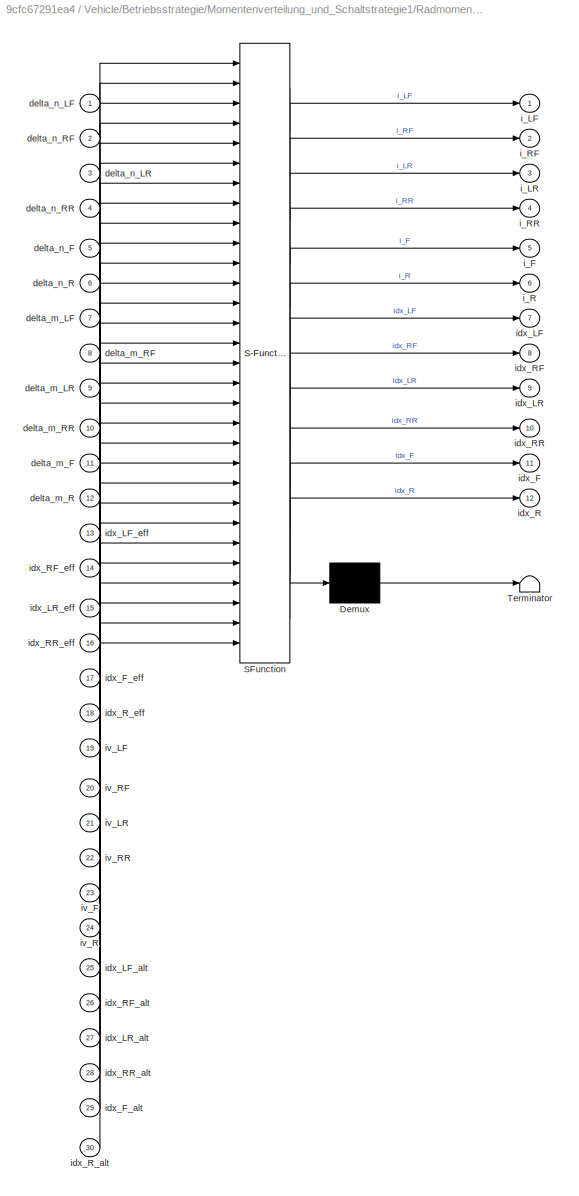
BLOCK [SubSystem] Vehicle/Betriebsstrategie/Momentenverteilung_und_Schaltstrategie1/Radmomentenaufteilung (Standardfahrmanöver)/Schaltstrategie/Schaltlogik
  ErrorFcn = Stateflow.Translate.translate
  PermitHierarchicalResolution = ExplicitOnly
  Ports = [30, 12]
  RequestExecContextInheritance = off
  SFBlockType = MATLAB Function
  TreatAsAtomicUnit = on
BLOCK [Demux] Vehicle/Betriebsstrategie/Momentenverteilung_und_Schaltstrategie1/Radmomentenaufteilung (Standardfahrmanöver)/Schaltstrategie/Schaltlogik/ Demux 
  Outputs = 1
  Ports = [1, 1]
BLOCK [S-Function] Vehicle/Betriebsstrategie/Momentenverteilung_und_Schaltstrategie1/Radmomentenaufteilung (Standardfahrmanöver)/Schaltstrategie/Schaltlogik/ SFunction 
  EnableBusSupport = on
  FunctionName = sf_sfun
  PortCounts = [30 13]
  Ports = [30, 13]
  SFcnIsStateOwnerBlock = off
  SFunctionDeploymentMode = off
  Tag = Stateflow S-Function 24
BLOCK [Terminator] Vehicle/Betriebsstrategie/Momentenverteilung_und_Schaltstrategie1/Radmomentenaufteilung (Standardfahrmanöver)/Schaltstrategie/Schaltlogik/ Terminator 
BLOCK [Inport] Vehicle/Betriebsstrategie/Momentenverteilung_und_Schaltstrategie1/Radmomentenaufteilung (Standardfahrmanöver)/Schaltstrategie/Schaltlogik/delta_m_F
  Port = 11
BLOCK [Inport] Vehicle/Betriebsstrategie/Momentenverteilung_und_Schaltstrategie1/Radmomentenaufteilung (Standardfahrmanöver)/Schaltstrategie/Schaltlogik/delta_m_LF
  Port = 7
BLOCK [Inport] Vehicle/Betriebsstrategie/Momentenverteilung_und_Schaltstrategie1/Radmomentenaufteilung (Standardfahrmanöver)/Schaltstrategie/Schaltlogik/delta_m_LR
  Port = 9
BLOCK [Inport] Vehicle/Betriebsstrategie/Momentenverteilung_und_Schaltstrategie1/Radmomentenaufteilung (Standardfahrmanöver)/Schaltstrategie/Schaltlogik/delta_m_R
  Port = 12
BLOCK [Inport] Vehicle/Betriebsstrategie/Momentenverteilung_und_Schaltstrategie1/Radmomentenaufteilung (Standardfahrmanöver)/Schaltstrategie/Schaltlogik/delta_m_RF
  Port = 8
BLOCK [Inport] Vehicle/Betriebsstrategie/Momentenverteilung_und_Schaltstrategie1/Radmomentenaufteilung (Standardfahrmanöver)/Schaltstrategie/Schaltlogik/delta_m_RR
  Port = 10
BLOCK [Inport] Vehicle/Betriebsstrategie/Momentenverteilung_und_Schaltstrategie1/Radmomentenaufteilung (Standardfahrmanöver)/Schaltstrategie/Schaltlogik/delta_n_F
  Port = 5
BLOCK [Inport] Vehicle/Betriebsstrategie/Momentenverteilung_und_Schaltstrategie1/Radmomentenaufteilung (Standardfahrmanöver)/Schaltstrategie/Schaltlogik/delta_n_LF
BLOCK [Inport] Vehicle/Betriebsstrategie/Momentenverteilung_und_Schaltstrategie1/Radmomentenaufteilung (Standardfahrmanöver)/Schaltstrategie/Schaltlogik/delta_n_LR
  Port = 3
BLOCK [Inport] Vehicle/Betriebsstrategie/Momentenverteilung_und_Schaltstrategie1/Radmomentenaufteilung (Standardfahrmanöver)/Schaltstrategie/Schaltlogik/delta_n_R
  Port = 6
BLOCK [Inport] Vehicle/Betriebsstrategie/Momentenverteilung_und_Schaltstrategie1/Radmomentenaufteilung (Standardfahrmanöver)/Schaltstrategie/Schaltlogik/delta_n_RF
  Port = 2
BLOCK [Inport] Vehicle/Betriebsstrategie/Momentenverteilung_und_Schaltstrategie1/Radmomentenaufteilung (Standardfahrmanöver)/Schaltstrategie/Schaltlogik/delta_n_RR
  Port = 4
BLOCK [Outport] Vehicle/Betriebsstrategie/Momentenverteilung_und_Schaltstrategie1/Radmomentenaufteilung (Standardfahrmanöver)/Schaltstrategie/Schaltlogik/i_F
  Port = 5
  VectorParamsAs1DForOutWhenUnconnected = off
BLOCK [Outport] Vehicle/Betriebsstrategie/Momentenverteilung_und_Schaltstrategie1/Radmomentenaufteilung (Standardfahrmanöver)/Schaltstrategie/Schaltlogik/i_LF
  VectorParamsAs1DForOutWhenUnconnected = off
BLOCK [Outport] Vehicle/Betriebsstrategie/Momentenverteilung_und_Schaltstrategie1/Radmomentenaufteilung (Standardfahrmanöver)/Schaltstrategie/Schaltlogik/i_LR
  Port = 3
  VectorParamsAs1DForOutWhenUnconnected = off
BLOCK [Outport] Vehicle/Betriebsstrategie/Momentenverteilung_und_Schaltstrategie1/Radmomentenaufteilung (Standardfahrmanöver)/Schaltstrategie/Schaltlogik/i_R
  Port = 6
  VectorParamsAs1DForOutWhenUnconnected = off
BLOCK [Outport] Vehicle/Betriebsstrategie/Momentenverteilung_und_Schaltstrategie1/Radmomentenaufteilung (Standardfahrmanöver)/Schaltstrategie/Schaltlogik/i_RF
  Port = 2
  VectorParamsAs1DForOutWhenUnconnected = off
BLOCK [Outport] Vehicle/Betriebsstrategie/Momentenverteilung_und_Schaltstrategie1/Radmomentenaufteilung (Standardfahrmanöver)/Schaltstrategie/Schaltlogik/i_RR
  Port = 4
  VectorParamsAs1DForOutWhenUnconnected = off
BLOCK [Outport] Vehicle/Betriebsstrategie/Momentenverteilung_und_Schaltstrategie1/Radmomentenaufteilung (Standardfahrmanöver)/Schaltstrategie/Schaltlogik/idx_F
  Port = 11
  VectorParamsAs1DForOutWhenUnconnected = off
BLOCK [Inport] Vehicle/Betriebsstrategie/Momentenverteilung_und_Schaltstrategie1/Radmomentenaufteilung (Standardfahrmanöver)/Schaltstrategie/Schaltlogik/idx_F_alt
  Port = 29
BLOCK [Inport] Vehicle/Betriebsstrategie/Momentenverteilung_und_Schaltstrategie1/Radmomentenaufteilung (Standardfahrmanöver)/Schaltstrategie/Schaltlogik/idx_F_eff
  Port = 17
BLOCK [Outport] Vehicle/Betriebsstrategie/Momentenverteilung_und_Schaltstrategie1/Radmomentenaufteilung (Standardfahrmanöver)/Schaltstrategie/Schaltlogik/idx_LF
  Port = 7
  VectorParamsAs1DForOutWhenUnconnected = off
BLOCK [Inport] Vehicle/Betriebsstrategie/Momentenverteilung_und_Schaltstrategie1/Radmomentenaufteilung (Standardfahrmanöver)/Schaltstrategie/Schaltlogik/idx_LF_alt
  Port = 25
BLOCK [Inport] Vehicle/Betriebsstrategie/Momentenverteilung_und_Schaltstrategie1/Radmomentenaufteilung (Standardfahrmanöver)/Schaltstrategie/Schaltlogik/idx_LF_eff
  Port = 13
BLOCK [Outport] Vehicle/Betriebsstrategie/Momentenverteilung_und_Schaltstrategie1/Radmomentenaufteilung (Standardfahrmanöver)/Schaltstrategie/Schaltlogik/idx_LR
  Port = 9
  VectorParamsAs1DForOutWhenUnconnected = off
BLOCK [Inport] Vehicle/Betriebsstrategie/Momentenverteilung_und_Schaltstrategie1/Radmomentenaufteilung (Standardfahrmanöver)/Schaltstrategie/Schaltlogik/idx_LR_alt
  Port = 27
BLOCK [Inport] Vehicle/Betriebsstrategie/Momentenverteilung_und_Schaltstrategie1/Radmomentenaufteilung (Standardfahrmanöver)/Schaltstrategie/Schaltlogik/idx_LR_eff
  Port = 15
BLOCK [Outport] Vehicle/Betriebsstrategie/Momentenverteilung_und_Schaltstrategie1/Radmomentenaufteilung (Standardfahrmanöver)/Schaltstrategie/Schaltlogik/idx_R
  Port = 12
  VectorParamsAs1DForOutWhenUnconnected = off
BLOCK [Outport] Vehicle/Betriebsstrategie/Momentenverteilung_und_Schaltstrategie1/Radmomentenaufteilung (Standardfahrmanöver)/Schaltstrategie/Schaltlogik/idx_RF
  Port = 8
  VectorParamsAs1DForOutWhenUnconnected = off
BLOCK [Inport] Vehicle/Betriebsstrategie/Momentenverteilung_und_Schaltstrategie1/Radmomentenaufteilung (Standardfahrmanöver)/Schaltstrategie/Schaltlogik/idx_RF_alt
  Port = 26
BLOCK [Inport] Vehicle/Betriebsstrategie/Momentenverteilung_und_Schaltstrategie1/Radmomentenaufteilung (Standardfahrmanöver)/Schaltstrategie/Schaltlogik/idx_RF_eff
  Port = 14
BLOCK [Outport] Vehicle/Betriebsstrategie/Momentenverteilung_und_Schaltstrategie1/Radmomentenaufteilung (Standardfahrmanöver)/Schaltstrategie/Schaltlogik/idx_RR
  Port = 10
  VectorParamsAs1DForOutWhenUnconnected = off
BLOCK [Inport] Vehicle/Betriebsstrategie/Momentenverteilung_und_Schaltstrategie1/Radmomentenaufteilung (Standardfahrmanöver)/Schaltstrategie/Schaltlogik/idx_RR_alt
  Port = 28
BLOCK [Inport] Vehicle/Betriebsstrategie/Momentenverteilung_und_Schaltstrategie1/Radmomentenaufteilung (Standardfahrmanöver)/Schaltstrategie/Schaltlogik/idx_RR_eff
  Port = 16
BLOCK [Inport] Vehicle/Betriebsstrategie/Momentenverteilung_und_Schaltstrategie1/Radmomentenaufteilung (Standardfahrmanöver)/Schaltstrategie/Schaltlogik/idx_R_alt
  Port = 30
BLOCK [Inport] Vehicle/Betriebsstrategie/Momentenverteilung_und_Schaltstrategie1/Radmomentenaufteilung (Standardfahrmanöver)/Schaltstrategie/Schaltlogik/idx_R_eff
  Port = 18
BLOCK [Inport] Vehicle/Betriebsstrategie/Momentenverteilung_und_Schaltstrategie1/Radmomentenaufteilung (Standardfahrmanöver)/Schaltstrategie/Schaltlogik/iv_F
  Port = 23
BLOCK [Inport] Vehicle/Betriebsstrategie/Momentenverteilung_und_Schaltstrategie1/Radmomentenaufteilung (Standardfahrmanöver)/Schaltstrategie/Schaltlogik/iv_LF
  Port = 19
BLOCK [Inport] Vehicle/Betriebsstrategie/Momentenverteilung_und_Schaltstrategie1/Radmomentenaufteilung (Standardfahrmanöver)/Schaltstrategie/Schaltlogik/iv_LR
  Port = 21
BLOCK [Inport] Vehicle/Betriebsstrategie/Momentenverteilung_und_Schaltstrategie1/Radmomentenaufteilung (Standardfahrmanöver)/Schaltstrategie/Schaltlogik/iv_R
  Port = 24
BLOCK [Inport] Vehicle/Betriebsstrategie/Momentenverteilung_und_Schaltstrategie1/Radmomentenaufteilung (Standardfahrmanöver)/Schaltstrategie/Schaltlogik/iv_RF
  Port = 20
BLOCK [Inport] Vehicle/Betriebsstrategie/Momentenverteilung_und_Schaltstrategie1/Radmomentenaufteilung (Standardfahrmanöver)/Schaltstrategie/Schaltlogik/iv_RR
  Port = 22
BLOCK [Outport] Vehicle/Betriebsstrategie/Momentenverteilung_und_Schaltstrategie1/Radmomentenaufteilung (Standardfahrmanöver)/Schaltstrategie/SchaltstrategieOut
  VectorParamsAs1DForOutWhenUnconnected = off
BLOCK [Sum] Vehicle/Betriebsstrategie/Momentenverteilung_und_Schaltstrategie1/Radmomentenaufteilung (Standardfahrmanöver)/Schaltstrategie/Subtract
  IconShape = rectangular
  Inputs = +-
  Ports = [2, 1]
BLOCK [Sum] Vehicle/Betriebsstrategie/Momentenverteilung_und_Schaltstrategie1/Radmomentenaufteilung (Standardfahrmanöver)/Schaltstrategie/Subtract1
  IconShape = rectangular
  Inputs = +-
  Ports = [2, 1]
BLOCK [Sum] Vehicle/Betriebsstrategie/Momentenverteilung_und_Schaltstrategie1/Radmomentenaufteilung (Standardfahrmanöver)/Schaltstrategie/Subtract10
  IconShape = rectangular
  Inputs = +-
  Ports = [2, 1]
BLOCK [Sum] Vehicle/Betriebsstrategie/Momentenverteilung_und_Schaltstrategie1/Radmomentenaufteilung (Standardfahrmanöver)/Schaltstrategie/Subtract11
  IconShape = rectangular
  Inputs = +-
  Ports = [2, 1]
BLOCK [Sum] Vehicle/Betriebsstrategie/Momentenverteilung_und_Schaltstrategie1/Radmomentenaufteilung (Standardfahrmanöver)/Schaltstrategie/Subtract2
  IconShape = rectangular
  Inputs = +-
  Ports = [2, 1]
BLOCK [Sum] Vehicle/Betriebsstrategie/Momentenverteilung_und_Schaltstrategie1/Radmomentenaufteilung (Standardfahrmanöver)/Schaltstrategie/Subtract3
  IconShape = rectangular
  Inputs = +-
  Ports = [2, 1]
BLOCK [Sum] Vehicle/Betriebsstrategie/Momentenverteilung_und_Schaltstrategie1/Radmomentenaufteilung (Standardfahrmanöver)/Schaltstrategie/Subtract4
  IconShape = rectangular
  Inputs = +-
  Ports = [2, 1]
BLOCK [Sum] Vehicle/Betriebsstrategie/Momentenverteilung_und_Schaltstrategie1/Radmomentenaufteilung (Standardfahrmanöver)/Schaltstrategie/Subtract5
  IconShape = rectangular
  Inputs = +-
  Ports = [2, 1]
BLOCK [Sum] Vehicle/Betriebsstrategie/Momentenverteilung_und_Schaltstrategie1/Radmomentenaufteilung (Standardfahrmanöver)/Schaltstrategie/Subtract6
  IconShape = rectangular
  Inputs = +-
  Ports = [2, 1]
BLOCK [Sum] Vehicle/Betriebsstrategie/Momentenverteilung_und_Schaltstrategie1/Radmomentenaufteilung (Standardfahrmanöver)/Schaltstrategie/Subtract7
  IconShape = rectangular
  Inputs = +-
  Ports = [2, 1]
BLOCK [Sum] Vehicle/Betriebsstrategie/Momentenverteilung_und_Schaltstrategie1/Radmomentenaufteilung (Standardfahrmanöver)/Schaltstrategie/Subtract8
  IconShape = rectangular
  Inputs = +-
  Ports = [2, 1]
BLOCK [Sum] Vehicle/Betriebsstrategie/Momentenverteilung_und_Schaltstrategie1/Radmomentenaufteilung (Standardfahrmanöver)/Schaltstrategie/Subtract9
  IconShape = rectangular
  Inputs = +-
  Ports = [2, 1]
BLOCK [Constant] Vehicle/Betriebsstrategie/Momentenverteilung_und_Schaltstrategie1/Radmomentenaufteilung (Standardfahrmanöver)/Schaltstrategie/Wirkungsgrade als Vektor
  NameLocation = right
  Value = par_MDT.VA.trans.wkg
BLOCK [Constant] Vehicle/Betriebsstrategie/Momentenverteilung_und_Schaltstrategie1/Radmomentenaufteilung (Standardfahrmanöver)/Schaltstrategie/Wirkungsgrade als Vektor1
  NameLocation = right
  Value = par_MDT.HA.trans.wkg
BLOCK [Constant] Vehicle/Betriebsstrategie/Momentenverteilung_und_Schaltstrategie1/Radmomentenaufteilung (Standardfahrmanöver)/Schaltstrategie/Wirkungsgrade als Vektor2
  Value = par_MDT.VA.trans.wkg
BLOCK [Constant] Vehicle/Betriebsstrategie/Momentenverteilung_und_Schaltstrategie1/Radmomentenaufteilung (Standardfahrmanöver)/Schaltstrategie/Wirkungsgrade als Vektor3
  Value = par_MDT.HA.trans.wkg
BLOCK [SubSystem] Vehicle/Betriebsstrategie/Momentenverteilung_und_Schaltstrategie1/Radmomentenaufteilung (Standardfahrmanöver)/Schaltstrategie/effizientester Gang
  ErrorFcn = Stateflow.Translate.translate
  PermitHierarchicalResolution = ExplicitOnly
  Ports = [8, 6]
  RequestExecContextInheritance = off
  SFBlockType = MATLAB Function
  TreatAsAtomicUnit = on
BLOCK [Demux] Vehicle/Betriebsstrategie/Momentenverteilung_und_Schaltstrategie1/Radmomentenaufteilung (Standardfahrmanöver)/Schaltstrategie/effizientester Gang/ Demux 
  Outputs = 1
  Ports = [1, 1]
BLOCK [S-Function] Vehicle/Betriebsstrategie/Momentenverteilung_und_Schaltstrategie1/Radmomentenaufteilung (Standardfahrmanöver)/Schaltstrategie/effizientester Gang/ SFunction 
  EnableBusSupport = on
  FunctionName = sf_sfun
  PortCounts = [8 7]
  Ports = [8, 7]
  SFcnIsStateOwnerBlock = off
  SFunctionDeploymentMode = off
  Tag = Stateflow S-Function 25
BLOCK [Terminator] Vehicle/Betriebsstrategie/Momentenverteilung_und_Schaltstrategie1/Radmomentenaufteilung (Standardfahrmanöver)/Schaltstrategie/effizientester Gang/ Terminator 
BLOCK [Inport] Vehicle/Betriebsstrategie/Momentenverteilung_und_Schaltstrategie1/Radmomentenaufteilung (Standardfahrmanöver)/Schaltstrategie/effizientester Gang/eta_F
  Port = 5
BLOCK [Inport] Vehicle/Betriebsstrategie/Momentenverteilung_und_Schaltstrategie1/Radmomentenaufteilung (Standardfahrmanöver)/Schaltstrategie/effizientester Gang/eta_LF
BLOCK [Inport] Vehicle/Betriebsstrategie/Momentenverteilung_und_Schaltstrategie1/Radmomentenaufteilung (Standardfahrmanöver)/Schaltstrategie/effizientester Gang/eta_LR
  Port = 3
BLOCK [Inport] Vehicle/Betriebsstrategie/Momentenverteilung_und_Schaltstrategie1/Radmomentenaufteilung (Standardfahrmanöver)/Schaltstrategie/effizientester Gang/eta_R
  Port = 6
BLOCK [Inport] Vehicle/Betriebsstrategie/Momentenverteilung_und_Schaltstrategie1/Radmomentenaufteilung (Standardfahrmanöver)/Schaltstrategie/effizientester Gang/eta_RF
  Port = 2
BLOCK [Inport] Vehicle/Betriebsstrategie/Momentenverteilung_und_Schaltstrategie1/Radmomentenaufteilung (Standardfahrmanöver)/Schaltstrategie/effizientester Gang/eta_RR
  Port = 4
BLOCK [Inport] Vehicle/Betriebsstrategie/Momentenverteilung_und_Schaltstrategie1/Radmomentenaufteilung (Standardfahrmanöver)/Schaltstrategie/effizientester Gang/eta_trans_F
  Port = 7
BLOCK [Inport] Vehicle/Betriebsstrategie/Momentenverteilung_und_Schaltstrategie1/Radmomentenaufteilung (Standardfahrmanöver)/Schaltstrategie/effizientester Gang/eta_trans_R
  Port = 8
BLOCK [Outport] Vehicle/Betriebsstrategie/Momentenverteilung_und_Schaltstrategie1/Radmomentenaufteilung (Standardfahrmanöver)/Schaltstrategie/effizientester Gang/idx_F_eff
  Port = 5
  VectorParamsAs1DForOutWhenUnconnected = off
BLOCK [Outport] Vehicle/Betriebsstrategie/Momentenverteilung_und_Schaltstrategie1/Radmomentenaufteilung (Standardfahrmanöver)/Schaltstrategie/effizientester Gang/idx_LF_eff
  VectorParamsAs1DForOutWhenUnconnected = off
BLOCK [Outport] Vehicle/Betriebsstrategie/Momentenverteilung_und_Schaltstrategie1/Radmomentenaufteilung (Standardfahrmanöver)/Schaltstrategie/effizientester Gang/idx_LR_eff
  Port = 3
  VectorParamsAs1DForOutWhenUnconnected = off
BLOCK [Outport] Vehicle/Betriebsstrategie/Momentenverteilung_und_Schaltstrategie1/Radmomentenaufteilung (Standardfahrmanöver)/Schaltstrategie/effizientester Gang/idx_RF_eff
  Port = 2
  VectorParamsAs1DForOutWhenUnconnected = off
BLOCK [Outport] Vehicle/Betriebsstrategie/Momentenverteilung_und_Schaltstrategie1/Radmomentenaufteilung (Standardfahrmanöver)/Schaltstrategie/effizientester Gang/idx_RR_eff
  Port = 4
  VectorParamsAs1DForOutWhenUnconnected = off
BLOCK [Outport] Vehicle/Betriebsstrategie/Momentenverteilung_und_Schaltstrategie1/Radmomentenaufteilung (Standardfahrmanöver)/Schaltstrategie/effizientester Gang/idx_R_eff
  Port = 6
  VectorParamsAs1DForOutWhenUnconnected = off
BLOCK [Lookup_n-D] Vehicle/Betriebsstrategie/Momentenverteilung_und_Schaltstrategie1/Radmomentenaufteilung (Standardfahrmanöver)/Schaltstrategie/eta
  BreakpointsForDimension1 = par_MDT.VA.em.MotorEffMap3D_w
  BreakpointsForDimension2 = par_MDT.VA.em.MotorEffMap3D_M
  InputPortMap = u0,u1
  InternalRulePriority = Speed
  Ports = [2, 1]
  RndMeth = Simplest
  Table = par_MDT.VA.em.MotorEffMap3D
BLOCK [Lookup_n-D] Vehicle/Betriebsstrategie/Momentenverteilung_und_Schaltstrategie1/Radmomentenaufteilung (Standardfahrmanöver)/Schaltstrategie/eta1
  BreakpointsForDimension1 = par_MDT.VA.em.MotorEffMap3D_w
  BreakpointsForDimension2 = par_MDT.VA.em.MotorEffMap3D_M
  InputPortMap = u0,u1
  InternalRulePriority = Speed
  Ports = [2, 1]
  RndMeth = Simplest
  Table = par_MDT.VA.em.MotorEffMap3D
BLOCK [Lookup_n-D] Vehicle/Betriebsstrategie/Momentenverteilung_und_Schaltstrategie1/Radmomentenaufteilung (Standardfahrmanöver)/Schaltstrategie/eta2
  BreakpointsForDimension1 = par_MDT.HA.em.MotorEffMap3D_w
  BreakpointsForDimension2 = par_MDT.HA.em.MotorEffMap3D_M
  InputPortMap = u0,u1
  InternalRulePriority = Speed
  Ports = [2, 1]
  RndMeth = Simplest
  Table = par_MDT.HA.em.MotorEffMap3D
BLOCK [Lookup_n-D] Vehicle/Betriebsstrategie/Momentenverteilung_und_Schaltstrategie1/Radmomentenaufteilung (Standardfahrmanöver)/Schaltstrategie/eta3
  BreakpointsForDimension1 = par_MDT.HA.em.MotorEffMap3D_w
  BreakpointsForDimension2 = par_MDT.HA.em.MotorEffMap3D_M
  InputPortMap = u0,u1
  InternalRulePriority = Speed
  Ports = [2, 1]
  RndMeth = Simplest
  Table = par_MDT.HA.em.MotorEffMap3D
BLOCK [Lookup_n-D] Vehicle/Betriebsstrategie/Momentenverteilung_und_Schaltstrategie1/Radmomentenaufteilung (Standardfahrmanöver)/Schaltstrategie/eta4
  BreakpointsForDimension1 = par_MDT.VA.em.MotorEffMap3D_w
  BreakpointsForDimension2 = par_MDT.VA.em.MotorEffMap3D_M
  InputPortMap = u0,u1
  InternalRulePriority = Speed
  Ports = [2, 1]
  RndMeth = Simplest
  Table = par_MDT.VA.em.MotorEffMap3D
BLOCK [Lookup_n-D] Vehicle/Betriebsstrategie/Momentenverteilung_und_Schaltstrategie1/Radmomentenaufteilung (Standardfahrmanöver)/Schaltstrategie/eta5
  BreakpointsForDimension1 = par_MDT.HA.em.MotorEffMap3D_w
  BreakpointsForDimension2 = par_MDT.HA.em.MotorEffMap3D_M
  InputPortMap = u0,u1
  InternalRulePriority = Speed
  Ports = [2, 1]
  RndMeth = Simplest
  Table = par_MDT.HA.em.MotorEffMap3D
BLOCK [Constant] Vehicle/Betriebsstrategie/Momentenverteilung_und_Schaltstrategie1/Radmomentenaufteilung (Standardfahrmanöver)/Schaltstrategie/i_Übersetzungen_HA
  Value = par_MDT.HA.trans.i_gears
BLOCK [Constant] Vehicle/Betriebsstrategie/Momentenverteilung_und_Schaltstrategie1/Radmomentenaufteilung (Standardfahrmanöver)/Schaltstrategie/i_Übersetzungen_HA1
  Value = par_MDT.HA.trans.i_gears
BLOCK [Constant] Vehicle/Betriebsstrategie/Momentenverteilung_und_Schaltstrategie1/Radmomentenaufteilung (Standardfahrmanöver)/Schaltstrategie/i_Übersetzungen_VA
  Value = par_MDT.VA.trans.i_gears
BLOCK [Constant] Vehicle/Betriebsstrategie/Momentenverteilung_und_Schaltstrategie1/Radmomentenaufteilung (Standardfahrmanöver)/Schaltstrategie/i_Übersetzungen_VA1
  Value = par_MDT.VA.trans.i_gears
BLOCK [SubSystem] Vehicle/Betriebsstrategie/Momentenverteilung_und_Schaltstrategie1/Radmomentenaufteilung (Standardfahrmanöver)/Schaltstrategie/n und Motordrehmoment als Vektor (wegen ALLEN Übersetzungen)
  ErrorFcn = Stateflow.Translate.translate
  PermitHierarchicalResolution = ExplicitOnly
  Ports = [14, 12]
  RequestExecContextInheritance = off
  SFBlockType = MATLAB Function
  TreatAsAtomicUnit = on
BLOCK [Demux] Vehicle/Betriebsstrategie/Momentenverteilung_und_Schaltstrategie1/Radmomentenaufteilung (Standardfahrmanöver)/Schaltstrategie/n und Motordrehmoment als Vektor (wegen ALLEN Übersetzungen)/ Demux 
  Outputs = 1
  Ports = [1, 1]
BLOCK [S-Function] Vehicle/Betriebsstrategie/Momentenverteilung_und_Schaltstrategie1/Radmomentenaufteilung (Standardfahrmanöver)/Schaltstrategie/n und Motordrehmoment als Vektor (wegen ALLEN Übersetzungen)/ SFunction 
  EnableBusSupport = on
  FunctionName = sf_sfun
  PortCounts = [14 13]
  Ports = [14, 13]
  SFcnIsStateOwnerBlock = off
  SFunctionDeploymentMode = off
  Tag = Stateflow S-Function 26
BLOCK [Terminator] Vehicle/Betriebsstrategie/Momentenverteilung_und_Schaltstrategie1/Radmomentenaufteilung (Standardfahrmanöver)/Schaltstrategie/n und Motordrehmoment als Vektor (wegen ALLEN Übersetzungen)/ Terminator 
BLOCK [Inport] Vehicle/Betriebsstrategie/Momentenverteilung_und_Schaltstrategie1/Radmomentenaufteilung (Standardfahrmanöver)/Schaltstrategie/n und Motordrehmoment als Vektor (wegen ALLEN Übersetzungen)/M_LF
  Port = 5
BLOCK [Inport] Vehicle/Betriebsstrategie/Momentenverteilung_und_Schaltstrategie1/Radmomentenaufteilung (Standardfahrmanöver)/Schaltstrategie/n und Motordrehmoment als Vektor (wegen ALLEN Übersetzungen)/M_LR
  Port = 7
BLOCK [Inport] Vehicle/Betriebsstrategie/Momentenverteilung_und_Schaltstrategie1/Radmomentenaufteilung (Standardfahrmanöver)/Schaltstrategie/n und Motordrehmoment als Vektor (wegen ALLEN Übersetzungen)/M_RF
  Port = 6
BLOCK [Inport] Vehicle/Betriebsstrategie/Momentenverteilung_und_Schaltstrategie1/Radmomentenaufteilung (Standardfahrmanöver)/Schaltstrategie/n und Motordrehmoment als Vektor (wegen ALLEN Übersetzungen)/M_RR
  Port = 8
BLOCK [Inport] Vehicle/Betriebsstrategie/Momentenverteilung_und_Schaltstrategie1/Radmomentenaufteilung (Standardfahrmanöver)/Schaltstrategie/n und Motordrehmoment als Vektor (wegen ALLEN Übersetzungen)/i_F
  Port = 13
BLOCK [Inport] Vehicle/Betriebsstrategie/Momentenverteilung_und_Schaltstrategie1/Radmomentenaufteilung (Standardfahrmanöver)/Schaltstrategie/n und Motordrehmoment als Vektor (wegen ALLEN Übersetzungen)/i_LF
  Port = 9
BLOCK [Inport] Vehicle/Betriebsstrategie/Momentenverteilung_und_Schaltstrategie1/Radmomentenaufteilung (Standardfahrmanöver)/Schaltstrategie/n und Motordrehmoment als Vektor (wegen ALLEN Übersetzungen)/i_LR
  Port = 11
BLOCK [Inport] Vehicle/Betriebsstrategie/Momentenverteilung_und_Schaltstrategie1/Radmomentenaufteilung (Standardfahrmanöver)/Schaltstrategie/n und Motordrehmoment als Vektor (wegen ALLEN Übersetzungen)/i_R
  Port = 14
BLOCK [Inport] Vehicle/Betriebsstrategie/Momentenverteilung_und_Schaltstrategie1/Radmomentenaufteilung (Standardfahrmanöver)/Schaltstrategie/n und Motordrehmoment als Vektor (wegen ALLEN Übersetzungen)/i_RF
  Port = 10
BLOCK [Inport] Vehicle/Betriebsstrategie/Momentenverteilung_und_Schaltstrategie1/Radmomentenaufteilung (Standardfahrmanöver)/Schaltstrategie/n und Motordrehmoment als Vektor (wegen ALLEN Übersetzungen)/i_RR
  Port = 12
BLOCK [Outport] Vehicle/Betriebsstrategie/Momentenverteilung_und_Schaltstrategie1/Radmomentenaufteilung (Standardfahrmanöver)/Schaltstrategie/n und Motordrehmoment als Vektor (wegen ALLEN Übersetzungen)/m_F
  Port = 10
  VectorParamsAs1DForOutWhenUnconnected = off
BLOCK [Outport] Vehicle/Betriebsstrategie/Momentenverteilung_und_Schaltstrategie1/Radmomentenaufteilung (Standardfahrmanöver)/Schaltstrategie/n und Motordrehmoment als Vektor (wegen ALLEN Übersetzungen)/m_LF
  Port = 2
  VectorParamsAs1DForOutWhenUnconnected = off
BLOCK [Outport] Vehicle/Betriebsstrategie/Momentenverteilung_und_Schaltstrategie1/Radmomentenaufteilung (Standardfahrmanöver)/Schaltstrategie/n und Motordrehmoment als Vektor (wegen ALLEN Übersetzungen)/m_LR
  Port = 6
  VectorParamsAs1DForOutWhenUnconnected = off
BLOCK [Outport] Vehicle/Betriebsstrategie/Momentenverteilung_und_Schaltstrategie1/Radmomentenaufteilung (Standardfahrmanöver)/Schaltstrategie/n und Motordrehmoment als Vektor (wegen ALLEN Übersetzungen)/m_R
  Port = 12
  VectorParamsAs1DForOutWhenUnconnected = off
BLOCK [Outport] Vehicle/Betriebsstrategie/Momentenverteilung_und_Schaltstrategie1/Radmomentenaufteilung (Standardfahrmanöver)/Schaltstrategie/n und Motordrehmoment als Vektor (wegen ALLEN Übersetzungen)/m_RF
  Port = 4
  VectorParamsAs1DForOutWhenUnconnected = off
BLOCK [Outport] Vehicle/Betriebsstrategie/Momentenverteilung_und_Schaltstrategie1/Radmomentenaufteilung (Standardfahrmanöver)/Schaltstrategie/n und Motordrehmoment als Vektor (wegen ALLEN Übersetzungen)/m_RR
  Port = 8
  VectorParamsAs1DForOutWhenUnconnected = off
BLOCK [Outport] Vehicle/Betriebsstrategie/Momentenverteilung_und_Schaltstrategie1/Radmomentenaufteilung (Standardfahrmanöver)/Schaltstrategie/n und Motordrehmoment als Vektor (wegen ALLEN Übersetzungen)/n_F
  Port = 9
  VectorParamsAs1DForOutWhenUnconnected = off
BLOCK [Outport] Vehicle/Betriebsstrategie/Momentenverteilung_und_Schaltstrategie1/Radmomentenaufteilung (Standardfahrmanöver)/Schaltstrategie/n und Motordrehmoment als Vektor (wegen ALLEN Übersetzungen)/n_LF
  VectorParamsAs1DForOutWhenUnconnected = off
BLOCK [Outport] Vehicle/Betriebsstrategie/Momentenverteilung_und_Schaltstrategie1/Radmomentenaufteilung (Standardfahrmanöver)/Schaltstrategie/n und Motordrehmoment als Vektor (wegen ALLEN Übersetzungen)/n_LR
  Port = 5
  VectorParamsAs1DForOutWhenUnconnected = off
BLOCK [Outport] Vehicle/Betriebsstrategie/Momentenverteilung_und_Schaltstrategie1/Radmomentenaufteilung (Standardfahrmanöver)/Schaltstrategie/n und Motordrehmoment als Vektor (wegen ALLEN Übersetzungen)/n_R
  Port = 11
  VectorParamsAs1DForOutWhenUnconnected = off
BLOCK [Outport] Vehicle/Betriebsstrategie/Momentenverteilung_und_Schaltstrategie1/Radmomentenaufteilung (Standardfahrmanöver)/Schaltstrategie/n und Motordrehmoment als Vektor (wegen ALLEN Übersetzungen)/n_RF
  Port = 3
  VectorParamsAs1DForOutWhenUnconnected = off
BLOCK [Outport] Vehicle/Betriebsstrategie/Momentenverteilung_und_Schaltstrategie1/Radmomentenaufteilung (Standardfahrmanöver)/Schaltstrategie/n und Motordrehmoment als Vektor (wegen ALLEN Übersetzungen)/n_RR
  Port = 7
  VectorParamsAs1DForOutWhenUnconnected = off
BLOCK [Inport] Vehicle/Betriebsstrategie/Momentenverteilung_und_Schaltstrategie1/Radmomentenaufteilung (Standardfahrmanöver)/Schaltstrategie/n und Motordrehmoment als Vektor (wegen ALLEN Übersetzungen)/omega_LF
BLOCK [Inport] Vehicle/Betriebsstrategie/Momentenverteilung_und_Schaltstrategie1/Radmomentenaufteilung (Standardfahrmanöver)/Schaltstrategie/n und Motordrehmoment als Vektor (wegen ALLEN Übersetzungen)/omega_LR
  Port = 3
BLOCK [Inport] Vehicle/Betriebsstrategie/Momentenverteilung_und_Schaltstrategie1/Radmomentenaufteilung (Standardfahrmanöver)/Schaltstrategie/n und Motordrehmoment als Vektor (wegen ALLEN Übersetzungen)/omega_RF
  Port = 2
BLOCK [Inport] Vehicle/Betriebsstrategie/Momentenverteilung_und_Schaltstrategie1/Radmomentenaufteilung (Standardfahrmanöver)/Schaltstrategie/n und Motordrehmoment als Vektor (wegen ALLEN Übersetzungen)/omega_RR
  Port = 4
BLOCK [Constant] Vehicle/Betriebsstrategie/Momentenverteilung_und_Schaltstrategie1/Radmomentenaufteilung (Standardfahrmanöver)/Schaltstrategie/n_max
  NameLocation = top
  Value = par_MDT.VA.em.nmax
BLOCK [Constant] Vehicle/Betriebsstrategie/Momentenverteilung_und_Schaltstrategie1/Radmomentenaufteilung (Standardfahrmanöver)/Schaltstrategie/n_max1
  NameLocation = top
  Value = par_MDT.VA.em.nmax
BLOCK [Constant] Vehicle/Betriebsstrategie/Momentenverteilung_und_Schaltstrategie1/Radmomentenaufteilung (Standardfahrmanöver)/Schaltstrategie/n_max2
  NameLocation = top
  Value = par_MDT.HA.em.nmax
BLOCK [Constant] Vehicle/Betriebsstrategie/Momentenverteilung_und_Schaltstrategie1/Radmomentenaufteilung (Standardfahrmanöver)/Schaltstrategie/n_max3
  NameLocation = top
  Value = par_MDT.HA.em.nmax
BLOCK [Constant] Vehicle/Betriebsstrategie/Momentenverteilung_und_Schaltstrategie1/Radmomentenaufteilung (Standardfahrmanöver)/Schaltstrategie/n_max4
  NameLocation = top
  Value = par_MDT.VA.em.nmax
BLOCK [Constant] Vehicle/Betriebsstrategie/Momentenverteilung_und_Schaltstrategie1/Radmomentenaufteilung (Standardfahrmanöver)/Schaltstrategie/n_max5
  NameLocation = top
  Value = par_MDT.HA.em.nmax
BLOCK [SubSystem] Vehicle/Betriebsstrategie/Momentenverteilung_und_Schaltstrategie1/Radmomentenaufteilung (Standardfahrmanöver)/Schaltstrategie/omega zu n
  ErrorFcn = Stateflow.Translate.translate
  PermitHierarchicalResolution = ExplicitOnly
  Ports = [10, 6]
  RequestExecContextInheritance = off
  SFBlockType = MATLAB Function
  TreatAsAtomicUnit = on
BLOCK [Demux] Vehicle/Betriebsstrategie/Momentenverteilung_und_Schaltstrategie1/Radmomentenaufteilung (Standardfahrmanöver)/Schaltstrategie/omega zu n/ Demux 
  Outputs = 1
  Ports = [1, 1]
BLOCK [S-Function] Vehicle/Betriebsstrategie/Momentenverteilung_und_Schaltstrategie1/Radmomentenaufteilung (Standardfahrmanöver)/Schaltstrategie/omega zu n/ SFunction 
  EnableBusSupport = on
  FunctionName = sf_sfun
  PortCounts = [10 7]
  Ports = [10, 7]
  SFcnIsStateOwnerBlock = off
  SFunctionDeploymentMode = off
  Tag = Stateflow S-Function 27
BLOCK [Terminator] Vehicle/Betriebsstrategie/Momentenverteilung_und_Schaltstrategie1/Radmomentenaufteilung (Standardfahrmanöver)/Schaltstrategie/omega zu n/ Terminator 
BLOCK [Inport] Vehicle/Betriebsstrategie/Momentenverteilung_und_Schaltstrategie1/Radmomentenaufteilung (Standardfahrmanöver)/Schaltstrategie/omega zu n/i_F
  Port = 9
BLOCK [Inport] Vehicle/Betriebsstrategie/Momentenverteilung_und_Schaltstrategie1/Radmomentenaufteilung (Standardfahrmanöver)/Schaltstrategie/omega zu n/i_LF
  Port = 5
BLOCK [Inport] Vehicle/Betriebsstrategie/Momentenverteilung_und_Schaltstrategie1/Radmomentenaufteilung (Standardfahrmanöver)/Schaltstrategie/omega zu n/i_LR
  Port = 7
BLOCK [Inport] Vehicle/Betriebsstrategie/Momentenverteilung_und_Schaltstrategie1/Radmomentenaufteilung (Standardfahrmanöver)/Schaltstrategie/omega zu n/i_R
  Port = 10
BLOCK [Inport] Vehicle/Betriebsstrategie/Momentenverteilung_und_Schaltstrategie1/Radmomentenaufteilung (Standardfahrmanöver)/Schaltstrategie/omega zu n/i_RF
  Port = 6
BLOCK [Inport] Vehicle/Betriebsstrategie/Momentenverteilung_und_Schaltstrategie1/Radmomentenaufteilung (Standardfahrmanöver)/Schaltstrategie/omega zu n/i_RR
  Port = 8
BLOCK [Outport] Vehicle/Betriebsstrategie/Momentenverteilung_und_Schaltstrategie1/Radmomentenaufteilung (Standardfahrmanöver)/Schaltstrategie/omega zu n/n_F
  Port = 5
  VectorParamsAs1DForOutWhenUnconnected = off
BLOCK [Outport] Vehicle/Betriebsstrategie/Momentenverteilung_und_Schaltstrategie1/Radmomentenaufteilung (Standardfahrmanöver)/Schaltstrategie/omega zu n/n_LF
  VectorParamsAs1DForOutWhenUnconnected = off
BLOCK [Outport] Vehicle/Betriebsstrategie/Momentenverteilung_und_Schaltstrategie1/Radmomentenaufteilung (Standardfahrmanöver)/Schaltstrategie/omega zu n/n_LR
  Port = 3
  VectorParamsAs1DForOutWhenUnconnected = off
BLOCK [Outport] Vehicle/Betriebsstrategie/Momentenverteilung_und_Schaltstrategie1/Radmomentenaufteilung (Standardfahrmanöver)/Schaltstrategie/omega zu n/n_R
  Port = 6
  VectorParamsAs1DForOutWhenUnconnected = off
BLOCK [Outport] Vehicle/Betriebsstrategie/Momentenverteilung_und_Schaltstrategie1/Radmomentenaufteilung (Standardfahrmanöver)/Schaltstrategie/omega zu n/n_RF
  Port = 2
  VectorParamsAs1DForOutWhenUnconnected = off
BLOCK [Outport] Vehicle/Betriebsstrategie/Momentenverteilung_und_Schaltstrategie1/Radmomentenaufteilung (Standardfahrmanöver)/Schaltstrategie/omega zu n/n_RR
  Port = 4
  VectorParamsAs1DForOutWhenUnconnected = off
BLOCK [Inport] Vehicle/Betriebsstrategie/Momentenverteilung_und_Schaltstrategie1/Radmomentenaufteilung (Standardfahrmanöver)/Schaltstrategie/omega zu n/omega_LF
BLOCK [Inport] Vehicle/Betriebsstrategie/Momentenverteilung_und_Schaltstrategie1/Radmomentenaufteilung (Standardfahrmanöver)/Schaltstrategie/omega zu n/omega_LR
  Port = 3
BLOCK [Inport] Vehicle/Betriebsstrategie/Momentenverteilung_und_Schaltstrategie1/Radmomentenaufteilung (Standardfahrmanöver)/Schaltstrategie/omega zu n/omega_RF
  Port = 2
BLOCK [Inport] Vehicle/Betriebsstrategie/Momentenverteilung_und_Schaltstrategie1/Radmomentenaufteilung (Standardfahrmanöver)/Schaltstrategie/omega zu n/omega_RR
  Port = 4
BLOCK [From] Vehicle/Betriebsstrategie/Momentenverteilung_und_Schaltstrategie1/Radmomentenaufteilung (Standardfahrmanöver)/Schaltstrategie/omega1
  GotoTag = i
BLOCK [From] Vehicle/Betriebsstrategie/Momentenverteilung_und_Schaltstrategie1/Radmomentenaufteilung (Standardfahrmanöver)/Schaltstrategie/omega2
  GotoTag = i
BLOCK [ToWorkspace] Vehicle/Betriebsstrategie/Momentenverteilung_und_Schaltstrategie1/Radmomentenaufteilung (Standardfahrmanöver)/Schaltstrategie/sv_Gangwahl
  Commented = on
  Decimation = savedec
  FixptAsFi = on
  MaxDataPoints = inf
  Ports = [1]
  SampleTime = -1
  SaveFormat = Timeseries
  VariableName = sv_Gangwahl
BLOCK [Outport] Vehicle/Betriebsstrategie/Momentenverteilung_und_Schaltstrategie1/Radmomentenaufteilung (Standardfahrmanöver)/Schaltstrategie_Dyn
  Port = 2
  VectorParamsAs1DForOutWhenUnconnected = off
BLOCK [SubSystem] Vehicle/Betriebsstrategie/Momentenverteilung_und_Schaltstrategie1/Reifen Limits
  NameLocation = top
  Ports = [1, 1]
  RequestExecContextInheritance = off
BLOCK [Sum] Vehicle/Betriebsstrategie/Momentenverteilung_und_Schaltstrategie1/Reifen Limits/Add
  IconShape = rectangular
  Inputs = -+
  Ports = [2, 1]
BLOCK [Sum] Vehicle/Betriebsstrategie/Momentenverteilung_und_Schaltstrategie1/Reifen Limits/Add1
  IconShape = rectangular
  Inputs = -+
  Ports = [2, 1]
BLOCK [Sum] Vehicle/Betriebsstrategie/Momentenverteilung_und_Schaltstrategie1/Reifen Limits/Add2
  IconShape = rectangular
  Inputs = -+
  Ports = [2, 1]
BLOCK [Sum] Vehicle/Betriebsstrategie/Momentenverteilung_und_Schaltstrategie1/Reifen Limits/Add3
  IconShape = rectangular
  Inputs = -+
  Ports = [2, 1]
BLOCK [BusCreator] Vehicle/Betriebsstrategie/Momentenverteilung_und_Schaltstrategie1/Reifen Limits/Bus Creator
  DisplayOption = bar
  InheritFromInputs = on
  Inputs = 4
  Ports = [4, 1]
BLOCK [BusSelector] Vehicle/Betriebsstrategie/Momentenverteilung_und_Schaltstrategie1/Reifen Limits/Bus Selector1
  OutputSignals = F0.RF.DX,F0.RF.DY,Fs.Fs_RF,F0.LF.DX,F0.LF.DY,Fs.Fs_LF,F0.RR.DX,F0.RR.DY,Fs.Fs_RR,F0.LR.DX,F0.LR.DY,Fs.Fs_LR
  Ports = [1, 12]
BLOCK [Constant] Vehicle/Betriebsstrategie/Momentenverteilung_und_Schaltstrategie1/Reifen Limits/Constant
BLOCK [Constant] Vehicle/Betriebsstrategie/Momentenverteilung_und_Schaltstrategie1/Reifen Limits/Constant1
BLOCK [Constant] Vehicle/Betriebsstrategie/Momentenverteilung_und_Schaltstrategie1/Reifen Limits/Constant2
BLOCK [Constant] Vehicle/Betriebsstrategie/Momentenverteilung_und_Schaltstrategie1/Reifen Limits/Constant3
BLOCK [Constant] Vehicle/Betriebsstrategie/Momentenverteilung_und_Schaltstrategie1/Reifen Limits/Constant4
  Value = 0.00015
BLOCK [Constant] Vehicle/Betriebsstrategie/Momentenverteilung_und_Schaltstrategie1/Reifen Limits/Constant5
  Value = 0.00015
BLOCK [Constant] Vehicle/Betriebsstrategie/Momentenverteilung_und_Schaltstrategie1/Reifen Limits/Constant6
  Value = 0.00015
BLOCK [Constant] Vehicle/Betriebsstrategie/Momentenverteilung_und_Schaltstrategie1/Reifen Limits/Constant7
  Value = 0.00015
BLOCK [Product] Vehicle/Betriebsstrategie/Momentenverteilung_und_Schaltstrategie1/Reifen Limits/Divide
  Inputs = /*
  Ports = [2, 1]
BLOCK [Product] Vehicle/Betriebsstrategie/Momentenverteilung_und_Schaltstrategie1/Reifen Limits/Divide1
  Inputs = /*
  Ports = [2, 1]
BLOCK [Product] Vehicle/Betriebsstrategie/Momentenverteilung_und_Schaltstrategie1/Reifen Limits/Divide2
  Inputs = /*
  Ports = [2, 1]
BLOCK [Product] Vehicle/Betriebsstrategie/Momentenverteilung_und_Schaltstrategie1/Reifen Limits/Divide3
  Inputs = /*
  Ports = [2, 1]
BLOCK [Outport] Vehicle/Betriebsstrategie/Momentenverteilung_und_Schaltstrategie1/Reifen Limits/Fx_limit
  VectorParamsAs1DForOutWhenUnconnected = off
BLOCK [Gain] Vehicle/Betriebsstrategie/Momentenverteilung_und_Schaltstrategie1/Reifen Limits/Gain
  Gain = -1
BLOCK [Gain] Vehicle/Betriebsstrategie/Momentenverteilung_und_Schaltstrategie1/Reifen Limits/Gain1
  Gain = -1
BLOCK [Gain] Vehicle/Betriebsstrategie/Momentenverteilung_und_Schaltstrategie1/Reifen Limits/Gain2
  Gain = -1
BLOCK [Gain] Vehicle/Betriebsstrategie/Momentenverteilung_und_Schaltstrategie1/Reifen Limits/Gain3
  Gain = -1
BLOCK [Inport] Vehicle/Betriebsstrategie/Momentenverteilung_und_Schaltstrategie1/Reifen Limits/Input
BLOCK [Math] Vehicle/Betriebsstrategie/Momentenverteilung_und_Schaltstrategie1/Reifen Limits/Math Function
  Operator = magnitude^2
  Ports = [1, 1]
  SignedPower = on
BLOCK [Math] Vehicle/Betriebsstrategie/Momentenverteilung_und_Schaltstrategie1/Reifen Limits/Math Function1
  Operator = magnitude^2
  Ports = [1, 1]
  SignedPower = on
BLOCK [Math] Vehicle/Betriebsstrategie/Momentenverteilung_und_Schaltstrategie1/Reifen Limits/Math Function2
  Operator = magnitude^2
  Ports = [1, 1]
  SignedPower = on
BLOCK [Math] Vehicle/Betriebsstrategie/Momentenverteilung_und_Schaltstrategie1/Reifen Limits/Math Function3
  Operator = magnitude^2
  Ports = [1, 1]
  SignedPower = on
BLOCK [Product] Vehicle/Betriebsstrategie/Momentenverteilung_und_Schaltstrategie1/Reifen Limits/Product
  Ports = [2, 1]
BLOCK [Product] Vehicle/Betriebsstrategie/Momentenverteilung_und_Schaltstrategie1/Reifen Limits/Product1
  Ports = [2, 1]
BLOCK [Product] Vehicle/Betriebsstrategie/Momentenverteilung_und_Schaltstrategie1/Reifen Limits/Product2
  Ports = [2, 1]
BLOCK [Product] Vehicle/Betriebsstrategie/Momentenverteilung_und_Schaltstrategie1/Reifen Limits/Product3
  Ports = [2, 1]
BLOCK [Sqrt] Vehicle/Betriebsstrategie/Momentenverteilung_und_Schaltstrategie1/Reifen Limits/Sqrt
BLOCK [Sqrt] Vehicle/Betriebsstrategie/Momentenverteilung_und_Schaltstrategie1/Reifen Limits/Sqrt1
BLOCK [Sqrt] Vehicle/Betriebsstrategie/Momentenverteilung_und_Schaltstrategie1/Reifen Limits/Sqrt2
BLOCK [Sqrt] Vehicle/Betriebsstrategie/Momentenverteilung_und_Schaltstrategie1/Reifen Limits/Sqrt3
BLOCK [Sum] Vehicle/Betriebsstrategie/Momentenverteilung_und_Schaltstrategie1/Reifen Limits/Sum1
  Inputs = |++
  Ports = [2, 1]
BLOCK [Sum] Vehicle/Betriebsstrategie/Momentenverteilung_und_Schaltstrategie1/Reifen Limits/Sum2
  Inputs = |++
  Ports = [2, 1]
BLOCK [Sum] Vehicle/Betriebsstrategie/Momentenverteilung_und_Schaltstrategie1/Reifen Limits/Sum3
  Inputs = |++
  Ports = [2, 1]
BLOCK [Sum] Vehicle/Betriebsstrategie/Momentenverteilung_und_Schaltstrategie1/Reifen Limits/Sum4
  Inputs = |++
  Ports = [2, 1]
BLOCK [Switch] Vehicle/Betriebsstrategie/Momentenverteilung_und_Schaltstrategie1/Reifen Limits/Switch
  InputSameDT = off
  SaturateOnIntegerOverflow = off
BLOCK [Switch] Vehicle/Betriebsstrategie/Momentenverteilung_und_Schaltstrategie1/Reifen Limits/Switch1
  InputSameDT = off
  SaturateOnIntegerOverflow = off
BLOCK [Switch] Vehicle/Betriebsstrategie/Momentenverteilung_und_Schaltstrategie1/Reifen Limits/Switch2
  InputSameDT = off
  SaturateOnIntegerOverflow = off
BLOCK [Switch] Vehicle/Betriebsstrategie/Momentenverteilung_und_Schaltstrategie1/Reifen Limits/Switch3
  InputSameDT = off
  SaturateOnIntegerOverflow = off
BLOCK [Constant] Vehicle/Betriebsstrategie/Momentenverteilung_und_Schaltstrategie1/Reifen Limits/epsilon
  Value = 0.0015
BLOCK [SubSystem] Vehicle/Betriebsstrategie/Momentenverteilung_und_Schaltstrategie1/Reifenradius 
  Ports = [1, 1]
  RequestExecContextInheritance = off
BLOCK [Sum] Vehicle/Betriebsstrategie/Momentenverteilung_und_Schaltstrategie1/Reifenradius /Add
  IconShape = rectangular
  Inputs = ++++
  Ports = [4, 1]
BLOCK [BusSelector] Vehicle/Betriebsstrategie/Momentenverteilung_und_Schaltstrategie1/Reifenradius /Bus Selector1
  OutputSignals = r_stat.r_stat_RF,r_stat.r_stat_LF,r_stat.r_stat_RR,r_stat.r_stat_LR
  Ports = [1, 4]
BLOCK [Gain] Vehicle/Betriebsstrategie/Momentenverteilung_und_Schaltstrategie1/Reifenradius /Gain
  Gain = 1/4
BLOCK [InitialCondition] Vehicle/Betriebsstrategie/Momentenverteilung_und_Schaltstrategie1/Reifenradius /IC
  Value = par_VEH.r_stat0
BLOCK [Inport] Vehicle/Betriebsstrategie/Momentenverteilung_und_Schaltstrategie1/Reifenradius /Input
BLOCK [Outport] Vehicle/Betriebsstrategie/Momentenverteilung_und_Schaltstrategie1/Reifenradius /r_stat_avg
  VectorParamsAs1DForOutWhenUnconnected = off
BLOCK [Outport] Vehicle/Betriebsstrategie/Momentenverteilung_und_Schaltstrategie1/Schaltstrategie
  Port = 3
  VectorParamsAs1DForOutWhenUnconnected = off
BLOCK [Switch] Vehicle/Betriebsstrategie/Momentenverteilung_und_Schaltstrategie1/Switch
  Criteria = u2 > Threshold
  InputSameDT = off
  SaturateOnIntegerOverflow = off
BLOCK [Switch] Vehicle/Betriebsstrategie/Momentenverteilung_und_Schaltstrategie1/Switch1
  Criteria = u2 > Threshold
  InputSameDT = off
  SaturateOnIntegerOverflow = off
BLOCK [SubSystem] Vehicle/Betriebsstrategie/Momentenverteilung_und_Schaltstrategie1/adaptive Limiter
  Ports = [3, 1]
  RequestExecContextInheritance = off
BLOCK [Lookup_n-D] Vehicle/Betriebsstrategie/Momentenverteilung_und_Schaltstrategie1/adaptive Limiter/1-D Lookup Table
  BreakpointsForDimension1 = [-10,-9,-8.5,-8,-7.5,7.5,8,8.5,9,10]
  ExtrapMethod = Clip
  InputPortMap = u0
  InternalRulePriority = Speed
  NumberOfTableDimensions = 1
  Ports = [1, 1]
  RndMeth = Simplest
  Table = [0,0,0.5,0.9,1,1,0.9,0.5,0,0]
  UseLastTableValue = on
BLOCK [Lookup_n-D] Vehicle/Betriebsstrategie/Momentenverteilung_und_Schaltstrategie1/adaptive Limiter/1-D Lookup Table1
  BreakpointsForDimension1 = [-10,-9,-8,-7.5,7.5,8,9,10]
  ExtrapMethod = Clip
  InputPortMap = u0
  InternalRulePriority = Speed
  NumberOfTableDimensions = 1
  Ports = [1, 1]
  RndMeth = Simplest
  Table = [0.3,0.12,0.03,0,0,0.03,0.12,0.3]
  UseLastTableValue = on
BLOCK [Lookup_n-D] Vehicle/Betriebsstrategie/Momentenverteilung_und_Schaltstrategie1/adaptive Limiter/1-D Lookup Table2
  BreakpointsForDimension1 = [-9.9,-9.7,-9.5,-9,-8.5,-8,-7.5,-7,7,7.5,8,8.5,9,9.5,9.7,9.9]
  ExtrapMethod = Clip
  InputPortMap = u0
  InternalRulePriority = Speed
  NumberOfTableDimensions = 1
  Ports = [1, 1]
  RndMeth = Simplest
  Table = [0,0.06,0.17,0.44,0.7,0.92,0.98,1,1,0.98,0.92,0.7,0.44,0.17,0.06,0]
  UseLastTableValue = on
BLOCK [Sum] Vehicle/Betriebsstrategie/Momentenverteilung_und_Schaltstrategie1/adaptive Limiter/Add
  IconShape = rectangular
  Ports = [2, 1]
BLOCK [Sum] Vehicle/Betriebsstrategie/Momentenverteilung_und_Schaltstrategie1/adaptive Limiter/Add1
  IconShape = rectangular
  Ports = [2, 1]
BLOCK [BusSelector] Vehicle/Betriebsstrategie/Momentenverteilung_und_Schaltstrategie1/adaptive Limiter/Bus Selector2
  OutputSignals = y.ay
  Ports = [1, 1]
BLOCK [Constant] Vehicle/Betriebsstrategie/Momentenverteilung_und_Schaltstrategie1/adaptive Limiter/Constant11
BLOCK [Constant] Vehicle/Betriebsstrategie/Momentenverteilung_und_Schaltstrategie1/adaptive Limiter/Constant12
  Value = 0
BLOCK [Constant] Vehicle/Betriebsstrategie/Momentenverteilung_und_Schaltstrategie1/adaptive Limiter/Constant2
  Value = 0
BLOCK [Constant] Vehicle/Betriebsstrategie/Momentenverteilung_und_Schaltstrategie1/adaptive Limiter/Constant3
BLOCK [SubSystem] Vehicle/Betriebsstrategie/Momentenverteilung_und_Schaltstrategie1/adaptive Limiter/Enabled Subsystem
  Ports = [1, 1, 1]
  RequestExecContextInheritance = off
  TreatAsAtomicUnit = on
BLOCK [EnablePort] Vehicle/Betriebsstrategie/Momentenverteilung_und_Schaltstrategie1/adaptive Limiter/Enabled Subsystem/Enable
  Ports = []
BLOCK [Inport] Vehicle/Betriebsstrategie/Momentenverteilung_und_Schaltstrategie1/adaptive Limiter/Enabled Subsystem/In1
BLOCK [Outport] Vehicle/Betriebsstrategie/Momentenverteilung_und_Schaltstrategie1/adaptive Limiter/Enabled Subsystem/Out1
  VectorParamsAs1DForOutWhenUnconnected = off
BLOCK [SubSystem] Vehicle/Betriebsstrategie/Momentenverteilung_und_Schaltstrategie1/adaptive Limiter/Enabled Subsystem1
  Ports = [1, 1, 1]
  RequestExecContextInheritance = off
  TreatAsAtomicUnit = on
BLOCK [DiscreteIntegrator] Vehicle/Betriebsstrategie/Momentenverteilung_und_Schaltstrategie1/adaptive Limiter/Enabled Subsystem1/Discrete-Time Integrator
  ICPrevOutput = DiscIntNeverNeededParam
  ICPrevScaledInput = DiscIntNeverNeededParam
  InitialCondition = 1
  InitialConditionSetting = Auto
  Ports = [1, 1]
  SampleTime = -1
BLOCK [EnablePort] Vehicle/Betriebsstrategie/Momentenverteilung_und_Schaltstrategie1/adaptive Limiter/Enabled Subsystem1/Enable
  Ports = []
BLOCK [Inport] Vehicle/Betriebsstrategie/Momentenverteilung_und_Schaltstrategie1/adaptive Limiter/Enabled Subsystem1/In1
BLOCK [Outport] Vehicle/Betriebsstrategie/Momentenverteilung_und_Schaltstrategie1/adaptive Limiter/Enabled Subsystem1/Out1
  VectorParamsAs1DForOutWhenUnconnected = off
BLOCK [Gain] Vehicle/Betriebsstrategie/Momentenverteilung_und_Schaltstrategie1/adaptive Limiter/Gain1
  Gain = -1
BLOCK [Inport] Vehicle/Betriebsstrategie/Momentenverteilung_und_Schaltstrategie1/adaptive Limiter/Input
BLOCK [Inport] Vehicle/Betriebsstrategie/Momentenverteilung_und_Schaltstrategie1/adaptive Limiter/M_z_FB
  Port = 2
BLOCK [Inport] Vehicle/Betriebsstrategie/Momentenverteilung_und_Schaltstrategie1/adaptive Limiter/M_z_FF
  Port = 3
BLOCK [Outport] Vehicle/Betriebsstrategie/Momentenverteilung_und_Schaltstrategie1/adaptive Limiter/M_z_desired
  VectorParamsAs1DForOutWhenUnconnected = off
BLOCK [Product] Vehicle/Betriebsstrategie/Momentenverteilung_und_Schaltstrategie1/adaptive Limiter/Product
  Ports = [2, 1]
BLOCK [Product] Vehicle/Betriebsstrategie/Momentenverteilung_und_Schaltstrategie1/adaptive Limiter/Product1
  Ports = [2, 1]
BLOCK [Product] Vehicle/Betriebsstrategie/Momentenverteilung_und_Schaltstrategie1/adaptive Limiter/Product2
  Ports = [2, 1]
BLOCK [Product] Vehicle/Betriebsstrategie/Momentenverteilung_und_Schaltstrategie1/adaptive Limiter/Product3
  Ports = [2, 1]
BLOCK [Saturate] Vehicle/Betriebsstrategie/Momentenverteilung_und_Schaltstrategie1/adaptive Limiter/Saturation
  LowerLimit = -par_VEH.Iz
  UpperLimit = par_VEH.Iz
BLOCK [Reference] Vehicle/Betriebsstrategie/Momentenverteilung_und_Schaltstrategie1/adaptive Limiter/Saturation Dynamic  REF=simulink/Discontinuities/Saturation
Dynamic
  Ports = [3, 1]
  SourceBlock = simulink/Discontinuities/Saturation\nDynamic
  SourceProductBaseCode = SL
  SourceType = Saturation Dynamic
BLOCK [Switch] Vehicle/Betriebsstrategie/Momentenverteilung_und_Schaltstrategie1/adaptive Limiter/Switch1
  Criteria = u2 > Threshold
  InputSameDT = off
  SaturateOnIntegerOverflow = off
  Threshold = 1
BLOCK [Switch] Vehicle/Betriebsstrategie/Momentenverteilung_und_Schaltstrategie1/adaptive Limiter/Switch2
  Criteria = u2 > Threshold
  InputSameDT = off
  SaturateOnIntegerOverflow = off
  Threshold = 7.5
BLOCK [Switch] Vehicle/Betriebsstrategie/Momentenverteilung_und_Schaltstrategie1/adaptive Limiter/Switch3
  Criteria = u2 > Threshold
  InputSameDT = off
  SaturateOnIntegerOverflow = off
  Threshold = 1
BLOCK [Inport] Vehicle/Betriebsstrategie/Momentenverteilung_und_Schaltstrategie1/delta_wheel
  Port = 2
BLOCK [Inport] Vehicle/Betriebsstrategie/Momentenverteilung_und_Schaltstrategie1/input
  Port = 3
BLOCK [Inport] Vehicle/Betriebsstrategie/Momentenverteilung_und_Schaltstrategie1/mu_road
  Port = 4
BLOCK [ToWorkspace] Vehicle/Betriebsstrategie/sv_BetriebsstrategieOut
  Commented = on
  Decimation = savedec
  FixptAsFi = on
  MaxDataPoints = inf
  Ports = [1]
  SampleTime = -1
  SaveFormat = Timeseries
  VariableName = sv_BetriebsstrategieOut
BLOCK [SubSystem] Vehicle/Fahrzeugmodell
  Ports = [5, 1]
  RequestExecContextInheritance = off
BLOCK [BusCreator] Vehicle/Fahrzeugmodell/Bus Creator3
  DisplayOption = bar
  InheritFromInputs = on
  Inputs = 3
  Ports = [3, 1]
BLOCK [BusCreator] Vehicle/Fahrzeugmodell/Bus Creator5
  DisplayOption = bar
  InheritFromInputs = on
  Inputs = 23
  Ports = [23, 1]
BLOCK [BusSelector] Vehicle/Fahrzeugmodell/Bus Selector
  OutputSignals = delta_h
  Ports = [1, 1]
BLOCK [BusSelector] Vehicle/Fahrzeugmodell/Bus Selector1
  OutputSignals = ENV_v_Wind,ENV_road_mu,reset,init_pos
  Ports = [1, 4]
BLOCK [BusSelector] Vehicle/Fahrzeugmodell/Bus Selector2
  OutputSignals = zroad
  Ports = [1, 1]
BLOCK [BusSelector] Vehicle/Fahrzeugmodell/Bus Selector3
  OutputSignals = M_brems
  Ports = [1, 1]
BLOCK [SubSystem] Vehicle/Fahrzeugmodell/Configurable_model
  AttributesFormatString = %<BlockChoice>
  BlockChoice = vehicle_model
  MemberBlocks = simplified_vehicle_model,vehicle_model
  Ports = [13, 23]
  RequestExecContextInheritance = off
  TemplateBlock = vehicle_model/Configurable\nSubsystem
BLOCK [Inport] Vehicle/Fahrzeugmodell/Configurable_model/ENV_rho_air
  Port = 5
BLOCK [Inport] Vehicle/Fahrzeugmodell/Configurable_model/ENV_road_mu
  Port = 7
BLOCK [Inport] Vehicle/Fahrzeugmodell/Configurable_model/ENV_road_orientation
  Port = 6
BLOCK [Inport] Vehicle/Fahrzeugmodell/Configurable_model/ENV_v_wind
  Port = 4
BLOCK [Outport] Vehicle/Fahrzeugmodell/Configurable_model/F0
  Port = 20
  VectorParamsAs1DForOutWhenUnconnected = off
BLOCK [Inport] Vehicle/Fahrzeugmodell/Configurable_model/FZG_Parameter
  Port = 3
BLOCK [Outport] Vehicle/Fahrzeugmodell/Configurable_model/FZG_beta
  Port = 10
  VectorParamsAs1DForOutWhenUnconnected = off
BLOCK [Inport] Vehicle/Fahrzeugmodell/Configurable_model/FZG_delta
  Port = 8
BLOCK [Outport] Vehicle/Fahrzeugmodell/Configurable_model/FZG_omega
  VectorParamsAs1DForOutWhenUnconnected = off
BLOCK [Outport] Vehicle/Fahrzeugmodell/Configurable_model/FZG_phi
  Port = 2
  VectorParamsAs1DForOutWhenUnconnected = off
BLOCK [Outport] Vehicle/Fahrzeugmodell/Configurable_model/FZG_psi
  Port = 3
  VectorParamsAs1DForOutWhenUnconnected = off
BLOCK [Outport] Vehicle/Fahrzeugmodell/Configurable_model/FZG_rot_0
  Port = 14
  VectorParamsAs1DForOutWhenUnconnected = off
BLOCK [Outport] Vehicle/Fahrzeugmodell/Configurable_model/FZG_theta
  Port = 4
  VectorParamsAs1DForOutWhenUnconnected = off
BLOCK [Outport] Vehicle/Fahrzeugmodell/Configurable_model/FZG_wheel_Fl
  Port = 8
  VectorParamsAs1DForOutWhenUnconnected = off
BLOCK [Outport] Vehicle/Fahrzeugmodell/Configurable_model/FZG_wheel_Fs
  Port = 11
  VectorParamsAs1DForOutWhenUnconnected = off
BLOCK [Outport] Vehicle/Fahrzeugmodell/Configurable_model/FZG_wheel_Mh
  Port = 13
  VectorParamsAs1DForOutWhenUnconnected = off
BLOCK [Outport] Vehicle/Fahrzeugmodell/Configurable_model/FZG_wheel_Ml
  Port = 9
  VectorParamsAs1DForOutWhenUnconnected = off
BLOCK [Outport] Vehicle/Fahrzeugmodell/Configurable_model/FZG_wheel_Ms
  Port = 12
  VectorParamsAs1DForOutWhenUnconnected = off
BLOCK [Outport] Vehicle/Fahrzeugmodell/Configurable_model/FZG_x
  Port = 5
  VectorParamsAs1DForOutWhenUnconnected = off
BLOCK [Outport] Vehicle/Fahrzeugmodell/Configurable_model/FZG_y
  Port = 6
  VectorParamsAs1DForOutWhenUnconnected = off
BLOCK [Outport] Vehicle/Fahrzeugmodell/Configurable_model/FZG_z
  Port = 7
  VectorParamsAs1DForOutWhenUnconnected = off
BLOCK [Outport] Vehicle/Fahrzeugmodell/Configurable_model/Fz
  Port = 18
  VectorParamsAs1DForOutWhenUnconnected = off
BLOCK [Inport] Vehicle/Fahrzeugmodell/Configurable_model/M_antr
  Port = 9
BLOCK [Inport] Vehicle/Fahrzeugmodell/Configurable_model/M_brems
  Port = 10
BLOCK [Inport] Vehicle/Fahrzeugmodell/Configurable_model/TIR_parameter
BLOCK [Inport] Vehicle/Fahrzeugmodell/Configurable_model/TIR_scale
  Port = 2
BLOCK [Outport] Vehicle/Fahrzeugmodell/Configurable_model/alpha
  Port = 23
BLOCK [Inport] Vehicle/Fahrzeugmodell/Configurable_model/delta_h
  Port = 13
BLOCK [Outport] Vehicle/Fahrzeugmodell/Configurable_model/delta_kinematic
  Port = 22
BLOCK [Inport] Vehicle/Fahrzeugmodell/Configurable_model/init_pos
  Port = 12
BLOCK [Outport] Vehicle/Fahrzeugmodell/Configurable_model/kappa
  Port = 16
  VectorParamsAs1DForOutWhenUnconnected = off
BLOCK [Outport] Vehicle/Fahrzeugmodell/Configurable_model/r_dyn
  Port = 17
  VectorParamsAs1DForOutWhenUnconnected = off
BLOCK [Outport] Vehicle/Fahrzeugmodell/Configurable_model/r_stat
  Port = 21
  VectorParamsAs1DForOutWhenUnconnected = off
BLOCK [Inport] Vehicle/Fahrzeugmodell/Configurable_model/reset
  Port = 11
BLOCK [Reference] Vehicle/Fahrzeugmodell/Configurable_model/vehicle_model  REF=vehicle_model/vehicle_model  (lib defined in slx_105044054d9e, slx_40dd749da6fd, +9 more)
  Ports = [13, 23]
  SourceBlock = vehicle_model/vehicle_model
  SourceType = SubSystem
BLOCK [Outport] Vehicle/Fahrzeugmodell/Configurable_model/vl
  Port = 19
  VectorParamsAs1DForOutWhenUnconnected = off
BLOCK [Outport] Vehicle/Fahrzeugmodell/Configurable_model/z_wheel
  Port = 15
  VectorParamsAs1DForOutWhenUnconnected = off
BLOCK [Constant] Vehicle/Fahrzeugmodell/Constant13
  Value = 0
BLOCK [Constant] Vehicle/Fahrzeugmodell/Constant14
  Value = 0
BLOCK [Constant] Vehicle/Fahrzeugmodell/Constant15
  Value = 0
BLOCK [Constant] Vehicle/Fahrzeugmodell/Constant2
  Value = par_TIR(1).IP
BLOCK [Constant] Vehicle/Fahrzeugmodell/Constant3
  Value = 1.205
BLOCK [Constant] Vehicle/Fahrzeugmodell/Constant8
  Value = par_TIR(2).IP
BLOCK [Outport] Vehicle/Fahrzeugmodell/FahrzeugmodellOut
  VectorParamsAs1DForOutWhenUnconnected = off
BLOCK [Inport] Vehicle/Fahrzeugmodell/FromAntriebsstrang
  Port = 5
BLOCK [Inport] Vehicle/Fahrzeugmodell/FromBetriebsstrategie
  Port = 4
BLOCK [Inport] Vehicle/Fahrzeugmodell/FromDriver
BLOCK [Inport] Vehicle/Fahrzeugmodell/FromEnvironment
  Port = 2
BLOCK [Inport] Vehicle/Fahrzeugmodell/FromInput
  Port = 3
BLOCK [SubSystem] Vehicle/Fahrzeugmodell/IP_implementation
  Ports = [3, 1]
  RequestExecContextInheritance = off
BLOCK [BusCreator] Vehicle/Fahrzeugmodell/IP_implementation/Bus Creator1
  DisplayOption = bar
  InheritFromInputs = on
  Inputs = 125
  Ports = [125, 1]
BLOCK [BusCreator] Vehicle/Fahrzeugmodell/IP_implementation/Bus Creator2
  DisplayOption = bar
  InheritFromInputs = on
  Inputs = 125
  Ports = [125, 1]
BLOCK [BusCreator] Vehicle/Fahrzeugmodell/IP_implementation/Bus Creator6
  DisplayOption = bar
  InheritFromInputs = on
  Inputs = 2
  Ports = [2, 1]
BLOCK [BusSelector] Vehicle/Fahrzeugmodell/IP_implementation/Bus Selector1
  OutputSignals = front,rear
  Ports = [1, 2]
BLOCK [BusSelector] Vehicle/Fahrzeugmodell/IP_implementation/Bus Selector2
  OutputSignals = UNLOADED_RADIUS,FNOMIN,TYRESIDE,VERTICAL_STIFFNESS,BREFF,DREFF,FREFF,FZMIN,FZMAX,CAMMIN,CAMMAX,KPUMIN,KPUMAX,ALPMIN,ALPMAX,LONGVL,VERTICAL_DAMPING,LOADINDEX,PCX1,PDX1,PDX2,PDX3,PEX1,PEX2,PEX3,PEX4,PKX1,PKX2,PKX3,PHX1,PHX2,PVX1,PVX2,RBX1,RBX2,RCX1,REX1,REX2,RHX1,PTX1,PTX2,PTX3,QSX1,QSX2,QSX3,PCY1,PDY1,PDY2,PDY3,PEY1,PEY2,PEY3,PEY4,PKY1,PKY2,PKY3,PHY1,PHY2,PHY3,PVY1,PVY2,PVY3,PVY4,RBY1,RBY2,RBY3,RCY...<+287ch>
  Ports = [1, 124]
BLOCK [BusSelector] Vehicle/Fahrzeugmodell/IP_implementation/Bus Selector4
  OutputSignals = UNLOADED_RADIUS,FNOMIN,TYRESIDE,VERTICAL_STIFFNESS,BREFF,DREFF,FREFF,FZMIN,FZMAX,CAMMIN,CAMMAX,KPUMIN,KPUMAX,ALPMIN,ALPMAX,LONGVL,VERTICAL_DAMPING,LOADINDEX,PCX1,PDX1,PDX2,PDX3,PEX1,PEX2,PEX3,PEX4,PKX1,PKX2,PKX3,PHX1,PHX2,PVX1,PVX2,RBX1,RBX2,RCX1,REX1,REX2,RHX1,PTX1,PTX2,PTX3,QSX1,QSX2,QSX3,PCY1,PDY1,PDY2,PDY3,PEY1,PEY2,PEY3,PEY4,PKY1,PKY2,PKY3,PHY1,PHY2,PHY3,PVY1,PVY2,PVY3,PVY4,RBY1,RBY2,RBY3,RCY...<+287ch>
  Ports = [1, 124]
BLOCK [Inport] Vehicle/Fahrzeugmodell/IP_implementation/IP_front
BLOCK [Inport] Vehicle/Fahrzeugmodell/IP_implementation/IP_rear
  Port = 2
BLOCK [Outport] Vehicle/Fahrzeugmodell/IP_implementation/TIR_par
  VectorParamsAs1DForOutWhenUnconnected = off
BLOCK [Inport] Vehicle/Fahrzeugmodell/IP_implementation/TIR_parameter
  Port = 3
BLOCK [SubSystem] Vehicle/Fahrzeugmodell/Lenkübersetzung
  Ports = [1, 1]
  RequestExecContextInheritance = off
BLOCK [BusCreator] Vehicle/Fahrzeugmodell/Lenkübersetzung/Bus Creator
  DisplayOption = bar
  InheritFromInputs = on
  Inputs = 4
  Ports = [4, 1]
BLOCK [Constant] Vehicle/Fahrzeugmodell/Lenkübersetzung/Constant
  Value = 0
BLOCK [Constant] Vehicle/Fahrzeugmodell/Lenkübersetzung/Constant1
  Value = 0
BLOCK [Polyval] Vehicle/Fahrzeugmodell/Lenkübersetzung/Polynomial
  Coefs = par_VEH.isteer
BLOCK [Polyval] Vehicle/Fahrzeugmodell/Lenkübersetzung/Polynomial1
  Coefs = par_VEH.isteer
BLOCK [UnaryMinus] Vehicle/Fahrzeugmodell/Lenkübersetzung/Unary Minus
BLOCK [UnaryMinus] Vehicle/Fahrzeugmodell/Lenkübersetzung/Unary Minus1
BLOCK [Inport] Vehicle/Fahrzeugmodell/Lenkübersetzung/delta_h
BLOCK [Outport] Vehicle/Fahrzeugmodell/Lenkübersetzung/delta_wheel
  VectorParamsAs1DForOutWhenUnconnected = off
BLOCK [Terminator] Vehicle/Fahrzeugmodell/Terminator
BLOCK [Reference] Vehicle/Fahrzeugmodell/param_tire_model  REF=pacejka_trans/param_tire_model  (lib defined in slx_87146da11fda, slx_996e1929c7ab)
  Ports = [0, 2]
  SourceBlock = pacejka_trans/param_tire_model
  SourceType = SubSystem
BLOCK [Reference] Vehicle/Fahrzeugmodell/param_vehicle_model  REF=vehicle_model/param_vehicle_model  (lib defined in slx_105044054d9e, slx_40dd749da6fd, +9 more)
  Ports = [0, 1]
  SourceBlock = vehicle_model/param_vehicle_model
  SourceType = SubSystem
BLOCK [Inport] Vehicle/FromDriver
BLOCK [Inport] Vehicle/FromEnvironment
  NameLocation = top
  Port = 2
BLOCK [Inport] Vehicle/FromInput
  Port = 3
BLOCK [Outport] Vehicle/VehicleOut
  VectorParamsAs1DForOutWhenUnconnected = off
BLOCK [Inport] input_M_wheel
  Port = 5
BLOCK [Inport] input_delta_h
  Port = 4
BLOCK [Inport] input_psip
  Port = 3
BLOCK [Inport] input_r
BLOCK [Inport] input_v
  Port = 2
BLOCK [Inport] input_zroad_LF
  Port = 7
BLOCK [Inport] input_zroad_LR
  Port = 9
BLOCK [Inport] input_zroad_RF
  Port = 6
BLOCK [Inport] input_zroad_RR
  Port = 8
BLOCK [Constant] select_M_wheel
  Value = select_M_wheel
BLOCK [Constant] select_delta_h
  Value = select_delta_h
ANNOTATION Driver/driver lateral: Abbruchbedingung bei Grenzwert a_y
ANNOTATION Driver/driver lateral: Driver_lat = 1 Lenkwinkel vorgegeben
ANNOTATION Driver/driver lateral: Driver_lat = 2 Radius vorgegeben
ANNOTATION Driver/driver lateral: Driver_lat = 3 Querabweichung vorgegeben
ANNOTATION Driver/driver lateral: Driver_lat = 4 Trajektorie vorgegeben
ANNOTATION Driver/driver lateral: Goto-Tags
ANNOTATION Driver/driver lateral/Pure Pursuit: Berechnung Bahnkrümmung
ANNOTATION Driver/driver lateral/Pure Pursuit: Ermittlung Carrot-Point
ANNOTATION Driver/driver lateral/Pure Pursuit: GoTo-Blöcke
ANNOTATION Driver/driver longitudinal: Abbruchbedingung bei Grenzwert deltav_ist
ANNOTATION Driver/driver longitudinal: Driver_long = 1 Radmoment vorgegeben
ANNOTATION Driver/driver longitudinal: Driver_long = 2 v_soll vorgegeben
ANNOTATION Driver/driver longitudinal: Driver_long = 3 Spline
ANNOTATION Driver/driver longitudinal: GoTo
ANNOTATION Driver/driver longitudinal/Trajektorienfolge: Beschleunigswiderstand
ANNOTATION Driver/driver longitudinal/Trajektorienfolge: Luftwiderstand
ANNOTATION Driver/driver longitudinal/Trajektorienfolge: Mittlerer Reifenradius
ANNOTATION Driver/driver longitudinal/Trajektorienfolge: PD-Fehlerregler
ANNOTATION Driver/driver longitudinal/Trajektorienfolge: Rollwiderstand
ANNOTATION Vehicle/Antriebsstrang und Radmomentenverteilung: Gesamtwirkungsgrad des Antriebsstrangs EXKLUSIVE (ausgegraut) und INKLUSIVE (wenn nicht ausgegraut) E-Motor
ANNOTATION Vehicle/Antriebsstrang und Radmomentenverteilung: Hinterachse
ANNOTATION Vehicle/Antriebsstrang und Radmomentenverteilung: Leistungsaufnahme der E-Maschinen
ANNOTATION Vehicle/Antriebsstrang und Radmomentenverteilung: Overall efficiency of front and rear axle
ANNOTATION Vehicle/Antriebsstrang und Radmomentenverteilung: Rad-Ist-Drehzahlen
ANNOTATION Vehicle/Antriebsstrang und Radmomentenverteilung: Rad-Wunsch-Momente
ANNOTATION Vehicle/Antriebsstrang und Radmomentenverteilung: Rekuperationsindex
ANNOTATION Vehicle/Antriebsstrang und Radmomentenverteilung: Verlustenergie
ANNOTATION Vehicle/Antriebsstrang und Radmomentenverteilung: Verlustleistungen
ANNOTATION Vehicle/Antriebsstrang und Radmomentenverteilung: Vorderachse
ANNOTATION Vehicle/Antriebsstrang und Radmomentenverteilung: einzelne Wirkungsgrade
ANNOTATION Vehicle/Antriebsstrang und Radmomentenverteilung/Batterie/Electrical battery cell model: First RC element voltage drop calculation
ANNOTATION Vehicle/Antriebsstrang und Radmomentenverteilung/Batterie/Electrical battery cell model: R0 voltage drop calculation
ANNOTATION Vehicle/Antriebsstrang und Radmomentenverteilung/Batterie/Electrical battery cell model: Second RC element voltage drop calculation
ANNOTATION Vehicle/Antriebsstrang und Radmomentenverteilung/Batterie/Electrical battery cell model: State and OCV calculation
ANNOTATION Vehicle/Antriebsstrang und Radmomentenverteilung/Drehzahlrückführung az HA: Nur bei AZ und TS wird Block aktiviert
ANNOTATION Vehicle/Antriebsstrang und Radmomentenverteilung/Drehzahlrückführung az HA/Drehzahlrückführung az HA, TS: Das hier ist nur für die az gedacht! Die radnahen kriegen ihre Drehzahlen von den MVS über die from - Blöcke
ANNOTATION Vehicle/Antriebsstrang und Radmomentenverteilung/Drehzahlrückführung az HA/Drehzahlrückführung az HA,OD & eTV : Das hier ist nur für die az gedacht! Die radnahen kriegen ihre Drehzahlen von den MVS über die from - Blöcke
ANNOTATION Vehicle/Antriebsstrang und Radmomentenverteilung/Drehzahlrückführung az VA: Nur bei AZ und TS wird Block aktiviert
ANNOTATION Vehicle/Antriebsstrang und Radmomentenverteilung/Drehzahlrückführung az VA/Drehzahlrückführung az VA, TS: Das hier ist nur für die az gedacht! Die radnahen kriegen ihre Drehzahlen von den MVS über die from - Blöcke
ANNOTATION Vehicle/Antriebsstrang und Radmomentenverteilung/Drehzahlrückführung az VA/Drehzahlrückführung az VA,OD & eTV : Das hier ist nur für die az gedacht! Die radnahen kriegen ihre Drehzahlen von den MVS über die from - Blöcke
ANNOTATION Vehicle/Betriebsstrategie/10 Hz Tiefpass: https://de.mathworks.com/help/physmod/sps/ref/lowpassfilterdiscreteorcontinuous.html
ANNOTATION Vehicle/Betriebsstrategie/Momentenverteilung_und_Schaltstrategie1/Gierrate Referenz Berechnung: Gewünschte Gierrate nach: psip_desired = vx * delta / (l + vx^2 * K_us )
ANNOTATION Vehicle/Betriebsstrategie/Momentenverteilung_und_Schaltstrategie1/Motor Limits: Achszentraler Antrieb
ANNOTATION Vehicle/Betriebsstrategie/Momentenverteilung_und_Schaltstrategie1/Motor Limits: Radindividueller Antrieb hinten
ANNOTATION Vehicle/Betriebsstrategie/Momentenverteilung_und_Schaltstrategie1/Motor Limits: Radindividueller Antrieb vorne
ANNOTATION Vehicle/Betriebsstrategie/Momentenverteilung_und_Schaltstrategie1/Motor Limits: Achtung: Pesche Kennfelder haben als Eingagsdrehzahl rad/s
ANNOTATION Vehicle/Betriebsstrategie/Momentenverteilung_und_Schaltstrategie1/Radmomentenaufteilung (Effizienz): Input from Fahrzeug
ANNOTATION Vehicle/Betriebsstrategie/Momentenverteilung_und_Schaltstrategie1/Radmomentenaufteilung (Effizienz)/Torque variation limiter: Luca Mantovani, 05.9.18 This blocks limits torque variation to a certain rate, when the smart torque allocation system is enabled, and compensate it to still obtain the overall vehicle torque required
ANNOTATION Vehicle/Betriebsstrategie/Momentenverteilung_und_Schaltstrategie1/Radmomentenaufteilung (Effizienz)/Umrechnung auf Motordrehzahl: Absolut weil die Kennfelder keine negative Drehzahlen abbilden
ANNOTATION Vehicle/Betriebsstrategie/Momentenverteilung_und_Schaltstrategie1/Radmomentenaufteilung (Effizienz)/Umverteilung reduzieren: Gangwechsel
ANNOTATION Vehicle/Betriebsstrategie/Momentenverteilung_und_Schaltstrategie1/Radmomentenaufteilung (Effizienz)/Umverteilung reduzieren: Kein Sprung
ANNOTATION Vehicle/Betriebsstrategie/Momentenverteilung_und_Schaltstrategie1/Radmomentenaufteilung (Effizienz)/Umverteilung reduzieren: Pro Zeitschritt ein Prozent verändern
ANNOTATION Vehicle/Betriebsstrategie/Momentenverteilung_und_Schaltstrategie1/Radmomentenaufteilung (Effizienz)/Umverteilung reduzieren: Sprünge von 0-100% ignorieren
ANNOTATION Vehicle/Betriebsstrategie/Momentenverteilung_und_Schaltstrategie1/Radmomentenaufteilung (Effizienz)/Umverteilung reduzieren: Umverteilung zwischen den Achsen
ANNOTATION Vehicle/Betriebsstrategie/Momentenverteilung_und_Schaltstrategie1/Radmomentenaufteilung (Standardfahrmanöver)/Schaltstrategie: delta_M =Moment unter dem Maximalmoment im aktuell eingelegten Gang bei aktueller Drehzahl
ANNOTATION Vehicle/Betriebsstrategie/Momentenverteilung_und_Schaltstrategie1/Radmomentenaufteilung (Standardfahrmanöver)/Schaltstrategie: delta_n =Drehzahl unter der Maximaldrehzahl im aktuell eingelegten Gang
ANNOTATION Vehicle/Betriebsstrategie/Momentenverteilung_und_Schaltstrategie1/Radmomentenaufteilung (Standardfahrmanöver)/Schaltstrategie: Achtung: Bei stark untermotorisierten Antriebssträngen kann es sinnvoll sein, das Momentenbedingte runterschalten im Block Schaltlogik auszukommentieren. Ansonsten kann es zu häufigem hin und herschalten kommen.
ANNOTATION Vehicle/Betriebsstrategie/Momentenverteilung_und_Schaltstrategie1/Radmomentenaufteilung (Standardfahrmanöver)/Schaltstrategie: Drehzahl für Pesche Kennfelder in rad/s für abgleich mit n_max in 1/min *60/2pi=9.5493
ANNOTATION Vehicle/Betriebsstrategie/Momentenverteilung_und_Schaltstrategie1/Reifen Limits: Reifen LR
ANNOTATION Vehicle/Betriebsstrategie/Momentenverteilung_und_Schaltstrategie1/Reifen Limits: Reifen LF
ANNOTATION Vehicle/Betriebsstrategie/Momentenverteilung_und_Schaltstrategie1/Reifen Limits: Reifen RF
ANNOTATION Vehicle/Betriebsstrategie/Momentenverteilung_und_Schaltstrategie1/Reifen Limits: Reifen RR
ANNOTATION Vehicle/Betriebsstrategie/Momentenverteilung_und_Schaltstrategie1/Reifen Limits: Reifenlimits werden nach den Haftungsellipsen berechnet ( Erweiterung des Kammschen Kreises auf Ellipsen) Fx_lim=Fx0*sqrt(1-(Fy/Fy0)^2) Switsch-Logik, um numerische Probleme beim Abheben eines Reifens zu vermeiden.
ANNOTATION Vehicle/Betriebsstrategie/Momentenverteilung_und_Schaltstrategie1/Reifen Limits: Für numerische Stabilität
ANNOTATION Vehicle/Fahrzeugmodell/Lenkübersetzung: Rechts lenken in Messung/Kennlinien positiv, in Modell umgekehrt
ANNOTATION Vehicle/Fahrzeugmodell/Lenkübersetzung: beim nach rechts Lenken beide Radwinkel negativ
LINE Bus Creator4:1 -> Bus Creator:8
NET Bus Creator:1 -> Driver:3, Environment:3, Vehicle:3
LINE Bus Selector:1 -> Bus Creator4:1
LINE Bus Selector:2 -> Bus Creator4:3
LINE Bus Selector:3 -> Bus Creator4:2
LINE Bus Selector:4 -> Bus Creator4:4
LINE Clock:1 -> To Workspace1:1
LINE Constant1:1 -> Terminator1:1
LINE Constant:1 -> Terminator:1
LINE Driver/Bus Creator:1 -> Driver/DriverOut:1
LINE Driver/Bus Selector1:1 -> Driver/driver lateral:8
LINE Driver/Bus Selector1:2 -> Driver/driver lateral:9
LINE Driver/Bus Selector1:3 -> Driver/driver lateral:10
LINE Driver/Bus Selector1:4 -> Driver/driver lateral:11
LINE Driver/Bus Selector2:1 -> Driver/driver lateral:1
LINE Driver/Bus Selector2:2 -> Driver/driver lateral:2
LINE Driver/Bus Selector2:3 -> Driver/driver lateral:3
LINE Driver/Bus Selector2:4 -> Driver/driver lateral:4
LINE Driver/Bus Selector2:5 -> Driver/driver lateral:5
LINE Driver/Bus Selector2:6 -> Driver/driver lateral:6
LINE Driver/Bus Selector2:7 -> Driver/driver lateral:7
LINE Driver/Bus Selector4:1 -> Driver/driver longitudinal:2
LINE Driver/Bus Selector4:2 -> Driver/driver longitudinal:3
LINE Driver/Bus Selector4:3 -> Driver/driver longitudinal:4
LINE Driver/Bus Selector5:1 -> Driver/driver longitudinal:5
LINE Driver/Bus Selector5:2 -> Driver/driver longitudinal:6
LINE Driver/Bus Selector5:3 -> Driver/driver longitudinal:7
NET Driver/FromInput:1 -> Driver/Bus Selector1:1, Driver/Bus Selector5:1
NET Driver/FromVehicle:1 -> Driver/Bus Selector2:1, Driver/Bus Selector4:1, Driver/Splines:1
LINE Driver/On/Constant1:1 -> Driver/On/Relational Operator:2
LINE Driver/On/Constant:1 -> Driver/On/Relational Operator:1
LINE Driver/On/Relational Operator:1 -> Driver/On/On:1
LINE Driver/On:1 -> Driver/Splines:enable
LINE Driver/Splines/Bus Creator:1 -> Driver/Splines/Splines:1
LINE Driver/Splines/Bus Selector3:1 -> Driver/Splines/Kennwerte:12
LINE Driver/Splines/Bus Selector3:2 -> Driver/Splines/Mux:1
LINE Driver/Splines/Bus Selector3:3 -> Driver/Splines/Mux:2
LINE Driver/Splines/Clock:1 -> Driver/Splines/Kennwerte:2
LINE Driver/Splines/Constant10:1 -> Driver/Splines/Kennwerte:11
LINE Driver/Splines/Constant2:1 -> Driver/Splines/Kennwerte:3
LINE Driver/Splines/Constant3:1 -> Driver/Splines/Kennwerte:4
LINE Driver/Splines/Constant4:1 -> Driver/Splines/Kennwerte:5
LINE Driver/Splines/Constant5:1 -> Driver/Splines/Kennwerte:6
LINE Driver/Splines/Constant6:1 -> Driver/Splines/Kennwerte:7
LINE Driver/Splines/Constant7:1 -> Driver/Splines/Kennwerte:8
LINE Driver/Splines/Constant8:1 -> Driver/Splines/Kennwerte:9
LINE Driver/Splines/Constant9:1 -> Driver/Splines/Kennwerte:10
NET Driver/Splines/Kennwerte:1 -> Driver/Splines/Bus Creator:1, Driver/Splines/Memory:1
NET Driver/Splines/Kennwerte:2 -> Driver/Splines/Bus Creator:2, Driver/Splines/Mux1:1
NET Driver/Splines/Kennwerte:3 -> Driver/Splines/Bus Creator:3, Driver/Splines/Mux1:2
NET Driver/Splines/Kennwerte:4 -> Driver/Splines/Bus Creator:4, Driver/Splines/Mux1:3
LINE Driver/Splines/Kennwerte:5 -> Driver/Splines/Bus Creator:5
LINE Driver/Splines/Kennwerte:6 -> Driver/Splines/Bus Creator:6
NET Driver/Splines/Kennwerte:7 -> Driver/Splines/Bus Creator:7, Driver/Splines/Mux2:1
NET Driver/Splines/Kennwerte:8 -> Driver/Splines/Bus Creator:8, Driver/Splines/Mux2:2
LINE Driver/Splines/Memory:1 -> Driver/Splines/Kennwerte:1
LINE Driver/Splines/Mux1:1 -> Driver/Splines/To Workspace2:1
LINE Driver/Splines/Mux2:1 -> Driver/Splines/To Workspace4:1
LINE Driver/Splines/Mux:1 -> Driver/Splines/Kennwerte:13
LINE Driver/Splines/Vehicle:1 -> Driver/Splines/Bus Selector3:1
NET Driver/Splines:1 -> Driver/driver lateral:12, Driver/driver longitudinal:1
LINE Driver/driver lateral/Abs1:1 -> Driver/driver lateral/Subtract:1
LINE Driver/driver lateral/Constant1:1 -> Driver/driver lateral/Subtract:2
LINE Driver/driver lateral/Constant2:1 -> Driver/driver lateral/Switch:1
LINE Driver/driver lateral/Constant3:1 -> Driver/driver lateral/Switch:3
LINE Driver/driver lateral/Constant:1 -> Driver/driver lateral/Sum1:2
LINE Driver/driver lateral/Divide:1 -> Driver/driver lateral/Regler Kreisfahrt:1
LINE Driver/driver lateral/From ay:1 -> Driver/driver lateral/not_zero2:1
LINE Driver/driver lateral/From ay_2:1 -> Driver/driver lateral/Abs1:1
LINE Driver/driver lateral/From vx:1 -> Driver/driver lateral/Math Function4:1
LINE Driver/driver lateral/Math Function4:1 -> Driver/driver lateral/Divide:1
LINE Driver/driver lateral/Mux1:1 -> Driver/driver lateral/Selector1:1
LINE Driver/driver lateral/On/Constant1:1 -> Driver/driver lateral/On/Relational Operator:2
LINE Driver/driver lateral/On/Constant:1 -> Driver/driver lateral/On/Relational Operator:1
LINE Driver/driver lateral/On/Relational Operator:1 -> Driver/driver lateral/On/On:1
LINE Driver/driver lateral/On:1 -> Driver/driver lateral/Pure Pursuit:enable
LINE Driver/driver lateral/PID Controller2:1 -> Driver/driver lateral/Unit Delay2:1
LINE Driver/driver lateral/Pure Pursuit/Add:1 -> Driver/driver lateral/Pure Pursuit/Gain1:1
LINE Driver/driver lateral/Pure Pursuit/Clock:1 -> Driver/driver lateral/Pure Pursuit/Goto1:1
LINE Driver/driver lateral/Pure Pursuit/Constant11:1 -> Driver/driver lateral/Pure Pursuit/MATLAB Function:10
LINE Driver/driver lateral/Pure Pursuit/Constant12:1 -> Driver/driver lateral/Pure Pursuit/MATLAB Function:7
LINE Driver/driver lateral/Pure Pursuit/Constant13:1 -> Driver/driver lateral/Pure Pursuit/MATLAB Function:8
LINE Driver/driver lateral/Pure Pursuit/Constant14:1 -> Driver/driver lateral/Pure Pursuit/MATLAB Function:9
LINE Driver/driver lateral/Pure Pursuit/Constant15:1 -> Driver/driver lateral/Pure Pursuit/MATLAB Function:6
LINE Driver/driver lateral/Pure Pursuit/Constant16:1 -> Driver/driver lateral/Pure Pursuit/MATLAB Function:4
LINE Driver/driver lateral/Pure Pursuit/Constant17:1 -> Driver/driver lateral/Pure Pursuit/MATLAB Function:5
LINE Driver/driver lateral/Pure Pursuit/Cos:1 -> Driver/driver lateral/Pure Pursuit/Product1:2
LINE Driver/driver lateral/Pure Pursuit/Demux:1 -> Driver/driver lateral/Pure Pursuit/Product:1
LINE Driver/driver lateral/Pure Pursuit/Demux:2 -> Driver/driver lateral/Pure Pursuit/Product1:1
LINE Driver/driver lateral/Pure Pursuit/Divide:1 -> Driver/driver lateral/Pure Pursuit/Steuerung Ackermann:1
LINE Driver/driver lateral/Pure Pursuit/From p_ist1:1 -> Driver/driver lateral/Pure Pursuit/MATLAB Function:11
LINE Driver/driver lateral/Pure Pursuit/From p_ist2:1 -> Driver/driver lateral/Pure Pursuit/Subtract:2
LINE Driver/driver lateral/Pure Pursuit/From t1:1 -> Driver/driver lateral/Pure Pursuit/MATLAB Function:3
LINE Driver/driver lateral/Pure Pursuit/From1:1 -> Driver/driver lateral/Pure Pursuit/MATLAB Function:2
LINE Driver/driver lateral/Pure Pursuit/From2:1 -> Driver/driver lateral/Pure Pursuit/Divide:1
NET Driver/driver lateral/Pure Pursuit/From:1 -> Driver/driver lateral/Pure Pursuit/Cos:1, Driver/driver lateral/Pure Pursuit/Sin:1
LINE Driver/driver lateral/Pure Pursuit/Gain1:1 -> Driver/driver lateral/Pure Pursuit/Divide:2
LINE Driver/driver lateral/Pure Pursuit/Gain:1 -> Driver/driver lateral/Pure Pursuit/Product:2
LINE Driver/driver lateral/Pure Pursuit/MATLAB Function:1 -> Driver/driver lateral/Pure Pursuit/Memory:1
LINE Driver/driver lateral/Pure Pursuit/MATLAB Function:2 -> Driver/driver lateral/Pure Pursuit/Terminator:1
LINE Driver/driver lateral/Pure Pursuit/MATLAB Function:3 -> Driver/driver lateral/Pure Pursuit/Terminator1:1
LINE Driver/driver lateral/Pure Pursuit/MATLAB Function:4 -> Driver/driver lateral/Pure Pursuit/Subtract:1
LINE Driver/driver lateral/Pure Pursuit/Memory:1 -> Driver/driver lateral/Pure Pursuit/MATLAB Function:1
LINE Driver/driver lateral/Pure Pursuit/Mux:1 -> Driver/driver lateral/Pure Pursuit/Goto:1
LINE Driver/driver lateral/Pure Pursuit/Product1:1 -> Driver/driver lateral/Pure Pursuit/Add:2
LINE Driver/driver lateral/Pure Pursuit/Product:1 -> Driver/driver lateral/Pure Pursuit/Add:1
LINE Driver/driver lateral/Pure Pursuit/Sin:1 -> Driver/driver lateral/Pure Pursuit/Gain:1
LINE Driver/driver lateral/Pure Pursuit/Steuerung Ackermann/Constant:1 -> Driver/driver lateral/Pure Pursuit/Steuerung Ackermann/Product:1
LINE Driver/driver lateral/Pure Pursuit/Steuerung Ackermann/Gain1:1 -> Driver/driver lateral/Pure Pursuit/Steuerung Ackermann/delta_h:1
LINE Driver/driver lateral/Pure Pursuit/Steuerung Ackermann/Isteer:1 -> Driver/driver lateral/Pure Pursuit/Steuerung Ackermann/Unit Delay3:1
LINE Driver/driver lateral/Pure Pursuit/Steuerung Ackermann/Kruemmung:1 -> Driver/driver lateral/Pure Pursuit/Steuerung Ackermann/Product:2
LINE Driver/driver lateral/Pure Pursuit/Steuerung Ackermann/Product:1 -> Driver/driver lateral/Pure Pursuit/Steuerung Ackermann/Isteer:1
LINE Driver/driver lateral/Pure Pursuit/Steuerung Ackermann/Unit Delay3:1 -> Driver/driver lateral/Pure Pursuit/Steuerung Ackermann/Gain1:1
LINE Driver/driver lateral/Pure Pursuit/Steuerung Ackermann:1 -> Driver/driver lateral/Pure Pursuit/delta_h:1
LINE Driver/driver lateral/Pure Pursuit/Subtract:1 -> Driver/driver lateral/Pure Pursuit/Demux:1
LINE Driver/driver lateral/Pure Pursuit/look ahead:1 -> Driver/driver lateral/Pure Pursuit/Goto3:1
LINE Driver/driver lateral/Pure Pursuit/psi:1 -> Driver/driver lateral/Pure Pursuit/Goto2:1
LINE Driver/driver lateral/Pure Pursuit/x_ist:1 -> Driver/driver lateral/Pure Pursuit/Mux:1
LINE Driver/driver lateral/Pure Pursuit/y_ist:1 -> Driver/driver lateral/Pure Pursuit/Mux:2
LINE Driver/driver lateral/Pure Pursuit:1 -> Driver/driver lateral/Unit Delay1:1
LINE Driver/driver lateral/Regler Kreisfahrt/0:1 -> Driver/driver lateral/Regler Kreisfahrt/Switch1:1
LINE Driver/driver lateral/Regler Kreisfahrt/Abs:1 -> Driver/driver lateral/Regler Kreisfahrt/Switch1:2
LINE Driver/driver lateral/Regler Kreisfahrt/Add:1 -> Driver/driver lateral/Regler Kreisfahrt/Unit Delay3:1
LINE Driver/driver lateral/Regler Kreisfahrt/Constant:1 -> Driver/driver lateral/Regler Kreisfahrt/Divide1:1
LINE Driver/driver lateral/Regler Kreisfahrt/Discrete-Time Integrator:1 -> Driver/driver lateral/Regler Kreisfahrt/Add:1
LINE Driver/driver lateral/Regler Kreisfahrt/Divide1:1 -> Driver/driver lateral/Regler Kreisfahrt/Isteer:1
LINE Driver/driver lateral/Regler Kreisfahrt/Gain:1 -> Driver/driver lateral/Regler Kreisfahrt/Add:2
LINE Driver/driver lateral/Regler Kreisfahrt/Isteer:1 -> Driver/driver lateral/Regler Kreisfahrt/Add:3
LINE Driver/driver lateral/Regler Kreisfahrt/Math Function1:1 -> Driver/driver lateral/Regler Kreisfahrt/Sum3:2
LINE Driver/driver lateral/Regler Kreisfahrt/Math Function:1 -> Driver/driver lateral/Regler Kreisfahrt/Sum3:1
LINE Driver/driver lateral/Regler Kreisfahrt/Saturation1:1 -> Driver/driver lateral/Regler Kreisfahrt/Math Function:1
NET Driver/driver lateral/Regler Kreisfahrt/Sum3:1 -> Driver/driver lateral/Regler Kreisfahrt/Abs:1, Driver/driver lateral/Regler Kreisfahrt/Gain:1, Driver/driver lateral/Regler Kreisfahrt/Switch1:3
NET Driver/driver lateral/Regler Kreisfahrt/Switch1:1 -> Driver/driver lateral/Regler Kreisfahrt/Discrete-Time Integrator:1, Driver/driver lateral/Regler Kreisfahrt/Logical Operator:1
LINE Driver/driver lateral/Regler Kreisfahrt/Unit Delay3:1 -> Driver/driver lateral/Regler Kreisfahrt/delta_h:1
LINE Driver/driver lateral/Regler Kreisfahrt/not_zero3/Constant:1 -> Driver/driver lateral/Regler Kreisfahrt/not_zero3/Switch:3
NET Driver/driver lateral/Regler Kreisfahrt/not_zero3/In1:1 -> Driver/driver lateral/Regler Kreisfahrt/not_zero3/Switch:1, Driver/driver lateral/Regler Kreisfahrt/not_zero3/Switch:2
LINE Driver/driver lateral/Regler Kreisfahrt/not_zero3/Switch:1 -> Driver/driver lateral/Regler Kreisfahrt/not_zero3/Out1:1
LINE Driver/driver lateral/Regler Kreisfahrt/not_zero3:1 -> Driver/driver lateral/Regler Kreisfahrt/Saturation1:1
LINE Driver/driver lateral/Regler Kreisfahrt/not_zero4/Constant:1 -> Driver/driver lateral/Regler Kreisfahrt/not_zero4/Switch:3
NET Driver/driver lateral/Regler Kreisfahrt/not_zero4/In1:1 -> Driver/driver lateral/Regler Kreisfahrt/not_zero4/Switch:1, Driver/driver lateral/Regler Kreisfahrt/not_zero4/Switch:2
LINE Driver/driver lateral/Regler Kreisfahrt/not_zero4/Switch:1 -> Driver/driver lateral/Regler Kreisfahrt/not_zero4/Out1:1
LINE Driver/driver lateral/Regler Kreisfahrt/not_zero4:1 -> Driver/driver lateral/Regler Kreisfahrt/Math Function1:1
LINE Driver/driver lateral/Regler Kreisfahrt/r_ist:1 -> Driver/driver lateral/Regler Kreisfahrt/not_zero3:1
NET Driver/driver lateral/Regler Kreisfahrt/r_soll:1 -> Driver/driver lateral/Regler Kreisfahrt/Divide1:2, Driver/driver lateral/Regler Kreisfahrt/not_zero4:1
LINE Driver/driver lateral/Regler Kreisfahrt:1 -> Driver/driver lateral/Mux1:2
LINE Driver/driver lateral/Selector1:1 -> Driver/driver lateral/delta_h:1
LINE Driver/driver lateral/Subtract:1 -> Driver/driver lateral/Switch:2
LINE Driver/driver lateral/Sum1:1 -> Driver/driver lateral/PID Controller2:1
LINE Driver/driver lateral/Switch:1 -> Driver/driver lateral/Stop Simulation:1
LINE Driver/driver lateral/Unit Delay1:1 -> Driver/driver lateral/Mux1:4
LINE Driver/driver lateral/Unit Delay2:1 -> Driver/driver lateral/Mux1:3
LINE Driver/driver lateral/ay:1 -> Driver/driver lateral/Goto ay:1
LINE Driver/driver lateral/input _delta_h:1 -> Driver/driver lateral/Mux1:1
LINE Driver/driver lateral/not_zero2/Constant:1 -> Driver/driver lateral/not_zero2/Switch:3
NET Driver/driver lateral/not_zero2/In1:1 -> Driver/driver lateral/not_zero2/Switch:1, Driver/driver lateral/not_zero2/Switch:2
LINE Driver/driver lateral/not_zero2/Switch:1 -> Driver/driver lateral/not_zero2/Out1:1
LINE Driver/driver lateral/not_zero2:1 -> Driver/driver lateral/Divide:2
LINE Driver/driver lateral/psi:1 -> Driver/driver lateral/Pure Pursuit:3
LINE Driver/driver lateral/psip:1 -> Driver/driver lateral/Goto psip:1
LINE Driver/driver lateral/r soll:1 -> Driver/driver lateral/Regler Kreisfahrt:2
LINE Driver/driver lateral/select_driver_lat:1 -> Driver/driver lateral/Selector1:2
LINE Driver/driver lateral/vx:1 -> Driver/driver lateral/Goto vx:1
LINE Driver/driver lateral/x0:1 -> Driver/driver lateral/Pure Pursuit:1
LINE Driver/driver lateral/y0:1 -> Driver/driver lateral/Pure Pursuit:2
LINE Driver/driver lateral/y1:1 -> Driver/driver lateral/Sum1:1
NET Driver/driver lateral:1 -> Driver/Bus Creator:1, Driver/To Workspace1:1
LINE Driver/driver longitudinal/  :1 -> Driver/driver longitudinal/Luftwiderstand:1
LINE Driver/driver longitudinal/ :1 -> Driver/driver longitudinal/Luftwiderstand:4
LINE Driver/driver longitudinal/Abs:1 -> Driver/driver longitudinal/Subtract1:1
LINE Driver/driver longitudinal/Add1:1 -> Driver/driver longitudinal/Gain1:1
LINE Driver/driver longitudinal/Add3:1 -> Driver/driver longitudinal/Product1:1
LINE Driver/driver longitudinal/Add4:1 -> Driver/driver longitudinal/Saturation2:1
LINE Driver/driver longitudinal/Beschleunigung:1 -> Driver/driver longitudinal/a_max:1
LINE Driver/driver longitudinal/Beschleunigungs- widerstand:1 -> Driver/driver longitudinal/Add3:1
LINE Driver/driver longitudinal/Bus Selector1:1 -> Driver/driver longitudinal/Add1:1
LINE Driver/driver longitudinal/Bus Selector1:2 -> Driver/driver longitudinal/Add1:2
LINE Driver/driver longitudinal/Bus Selector1:3 -> Driver/driver longitudinal/Add1:3
LINE Driver/driver longitudinal/Bus Selector1:4 -> Driver/driver longitudinal/Add1:4
LINE Driver/driver longitudinal/Bus Selector2:1 -> Driver/driver longitudinal/Trajektorienfolge:1
LINE Driver/driver longitudinal/Bus Selector2:2 -> Driver/driver longitudinal/Trajektorienfolge:2
LINE Driver/driver longitudinal/Clock:1 -> Driver/driver longitudinal/Switch:2
LINE Driver/driver longitudinal/Constant10:1 -> Driver/driver longitudinal/Subtract1:2
LINE Driver/driver longitudinal/Constant13:1 -> Driver/driver longitudinal/Switch1:3
LINE Driver/driver longitudinal/Constant1:1 -> Driver/driver longitudinal/Switch:3
LINE Driver/driver longitudinal/Constant4:1 -> Driver/driver longitudinal/Beschleunigungs- widerstand:1
LINE Driver/driver longitudinal/Constant5:1 -> Driver/driver longitudinal/Luftwiderstand:2
LINE Driver/driver longitudinal/Constant6:1 -> Driver/driver longitudinal/Luftwiderstand:3
LINE Driver/driver longitudinal/Constant7:1 -> Driver/driver longitudinal/Rollwiderstand:3
LINE Driver/driver longitudinal/Constant8:1 -> Driver/driver longitudinal/Rollwiderstand:2
LINE Driver/driver longitudinal/Constant9:1 -> Driver/driver longitudinal/Rollwiderstand:1
LINE Driver/driver longitudinal/Constant:1 -> Driver/driver longitudinal/Switch1:1
LINE Driver/driver longitudinal/Discrete Derivative:1 -> Driver/driver longitudinal/Abs:1
LINE Driver/driver longitudinal/From r_stat1:1 -> Driver/driver longitudinal/Trajektorienfolge:4
LINE Driver/driver longitudinal/From r_stat2:1 -> Driver/driver longitudinal/Subsystem:1
LINE Driver/driver longitudinal/From r_stat:1 -> Driver/driver longitudinal/Bus Selector1:1
NET Driver/driver longitudinal/From v_ist:1 -> Driver/driver longitudinal/  :1, Driver/driver longitudinal/Sum1:1
NET Driver/driver longitudinal/From v_soll:1 -> Driver/driver longitudinal/Beschleunigung:1, Driver/driver longitudinal/Min:1
LINE Driver/driver longitudinal/From vx1:1 -> Driver/driver longitudinal/Trajektorienfolge:3
LINE Driver/driver longitudinal/From:1 -> Driver/driver longitudinal/Discrete Derivative:1
LINE Driver/driver longitudinal/Gain1:1 -> Driver/driver longitudinal/Product1:2
LINE Driver/driver longitudinal/Gain2:1 -> Driver/driver longitudinal/Add4:2
LINE Driver/driver longitudinal/Luftwiderstand:1 -> Driver/driver longitudinal/Add3:3
LINE Driver/driver longitudinal/Min:1 -> Driver/driver longitudinal/Sum1:2
LINE Driver/driver longitudinal/Mux2:1 -> Driver/driver longitudinal/Selector2:1
LINE Driver/driver longitudinal/On/Constant1:1 -> Driver/driver longitudinal/On/Relational Operator:2
LINE Driver/driver longitudinal/On/Constant:1 -> Driver/driver longitudinal/On/Relational Operator:1
LINE Driver/driver longitudinal/On/Relational Operator:1 -> Driver/driver longitudinal/On/On:1
LINE Driver/driver longitudinal/On:1 -> Driver/driver longitudinal/Trajektorienfolge:enable
LINE Driver/driver longitudinal/Product1:1 -> Driver/driver longitudinal/Add4:1
LINE Driver/driver longitudinal/Rollwiderstand:1 -> Driver/driver longitudinal/Add3:2
LINE Driver/driver longitudinal/Saturation2:1 -> Driver/driver longitudinal/Unit Delay1:1
LINE Driver/driver longitudinal/Selector2:1 -> Driver/driver longitudinal/M_wheel:1
LINE Driver/driver longitudinal/Spline:1 -> Driver/driver longitudinal/Bus Selector2:1
LINE Driver/driver longitudinal/Subsystem/Add1:1 -> Driver/driver longitudinal/Subsystem/Gain1:1
LINE Driver/driver longitudinal/Subsystem/Add:1 -> Driver/driver longitudinal/Subsystem/Gain:1
LINE Driver/driver longitudinal/Subsystem/Bias:1 -> Driver/driver longitudinal/Subsystem/v_max:1
LINE Driver/driver longitudinal/Subsystem/Bus Selector:1 -> Driver/driver longitudinal/Subsystem/Add:1
LINE Driver/driver longitudinal/Subsystem/Bus Selector:2 -> Driver/driver longitudinal/Subsystem/Add:2
LINE Driver/driver longitudinal/Subsystem/Bus Selector:3 -> Driver/driver longitudinal/Subsystem/Add1:1
LINE Driver/driver longitudinal/Subsystem/Bus Selector:4 -> Driver/driver longitudinal/Subsystem/Add1:2
NET Driver/driver longitudinal/Subsystem/Constant10:1 -> Driver/driver longitudinal/Subsystem/If Action Subsystem2:1, Driver/driver longitudinal/Subsystem/If1:1
LINE Driver/driver longitudinal/Subsystem/Constant1:1 -> Driver/driver longitudinal/Subsystem/Divide:3
LINE Driver/driver longitudinal/Subsystem/Constant2:1 -> Driver/driver longitudinal/Subsystem/Minimum:1
LINE Driver/driver longitudinal/Subsystem/Constant3:1 -> Driver/driver longitudinal/Subsystem/Divide:5
LINE Driver/driver longitudinal/Subsystem/Constant4:1 -> Driver/driver longitudinal/Subsystem/Divide:4
LINE Driver/driver longitudinal/Subsystem/Constant6:1 -> Driver/driver longitudinal/Subsystem/Divide1:4
LINE Driver/driver longitudinal/Subsystem/Constant7:1 -> Driver/driver longitudinal/Subsystem/Minimum1:1
LINE Driver/driver longitudinal/Subsystem/Constant8:1 -> Driver/driver longitudinal/Subsystem/Divide1:6
LINE Driver/driver longitudinal/Subsystem/Constant9:1 -> Driver/driver longitudinal/Subsystem/Divide1:5
NET Driver/driver longitudinal/Subsystem/Constant:1 -> Driver/driver longitudinal/Subsystem/If Action Subsystem:1, Driver/driver longitudinal/Subsystem/If:1
LINE Driver/driver longitudinal/Subsystem/Divide1:1 -> Driver/driver longitudinal/Subsystem/Mux:2
LINE Driver/driver longitudinal/Subsystem/Divide:1 -> Driver/driver longitudinal/Subsystem/Mux:1
LINE Driver/driver longitudinal/Subsystem/Gain1:1 -> Driver/driver longitudinal/Subsystem/Divide1:1
LINE Driver/driver longitudinal/Subsystem/Gain:1 -> Driver/driver longitudinal/Subsystem/Divide:6
LINE Driver/driver longitudinal/Subsystem/If Action Subsystem/In1:1 -> Driver/driver longitudinal/Subsystem/If Action Subsystem/Out1:1
LINE Driver/driver longitudinal/Subsystem/If Action Subsystem1/In1:1 -> Driver/driver longitudinal/Subsystem/If Action Subsystem1/Out1:1
LINE Driver/driver longitudinal/Subsystem/If Action Subsystem1:1 -> Driver/driver longitudinal/Subsystem/Merge:2
LINE Driver/driver longitudinal/Subsystem/If Action Subsystem2/In1:1 -> Driver/driver longitudinal/Subsystem/If Action Subsystem2/Out1:1
LINE Driver/driver longitudinal/Subsystem/If Action Subsystem2:1 -> Driver/driver longitudinal/Subsystem/Merge1:1
LINE Driver/driver longitudinal/Subsystem/If Action Subsystem3/In1:1 -> Driver/driver longitudinal/Subsystem/If Action Subsystem3/Out1:1
LINE Driver/driver longitudinal/Subsystem/If Action Subsystem3:1 -> Driver/driver longitudinal/Subsystem/Merge1:2
LINE Driver/driver longitudinal/Subsystem/If Action Subsystem:1 -> Driver/driver longitudinal/Subsystem/Merge:1
LINE Driver/driver longitudinal/Subsystem/If1:1 -> Driver/driver longitudinal/Subsystem/If Action Subsystem2:ifaction
LINE Driver/driver longitudinal/Subsystem/If1:2 -> Driver/driver longitudinal/Subsystem/If Action Subsystem3:ifaction
LINE Driver/driver longitudinal/Subsystem/If:1 -> Driver/driver longitudinal/Subsystem/If Action Subsystem:ifaction
LINE Driver/driver longitudinal/Subsystem/If:2 -> Driver/driver longitudinal/Subsystem/If Action Subsystem1:ifaction
LINE Driver/driver longitudinal/Subsystem/Inf1:1 -> Driver/driver longitudinal/Subsystem/If Action Subsystem3:1
LINE Driver/driver longitudinal/Subsystem/Inf:1 -> Driver/driver longitudinal/Subsystem/If Action Subsystem1:1
LINE Driver/driver longitudinal/Subsystem/Merge1:1 -> Driver/driver longitudinal/Subsystem/Divide1:2
LINE Driver/driver longitudinal/Subsystem/Merge:1 -> Driver/driver longitudinal/Subsystem/Divide:1
LINE Driver/driver longitudinal/Subsystem/MinMax:1 -> Driver/driver longitudinal/Subsystem/Bias:1
LINE Driver/driver longitudinal/Subsystem/Minimum1:1 -> Driver/driver longitudinal/Subsystem/Divide1:3
LINE Driver/driver longitudinal/Subsystem/Minimum:1 -> Driver/driver longitudinal/Subsystem/Divide:2
LINE Driver/driver longitudinal/Subsystem/Mux:1 -> Driver/driver longitudinal/Subsystem/MinMax:1
LINE Driver/driver longitudinal/Subsystem/r_stat:1 -> Driver/driver longitudinal/Subsystem/Bus Selector:1
LINE Driver/driver longitudinal/Subsystem:1 -> Driver/driver longitudinal/Min:2
LINE Driver/driver longitudinal/Subtract1:1 -> Driver/driver longitudinal/Switch1:2
LINE Driver/driver longitudinal/Sum1:1 -> Driver/driver longitudinal/Gain2:1
LINE Driver/driver longitudinal/Switch1:1 -> Driver/driver longitudinal/Switch:1
LINE Driver/driver longitudinal/Switch:1 -> Driver/driver longitudinal/Stop Simulation:1
LINE Driver/driver longitudinal/Trajektorienfolge/<a_veh>:1 -> Driver/driver longitudinal/Trajektorienfolge/Demux:1
LINE Driver/driver longitudinal/Trajektorienfolge/<p_long>:1 -> Driver/driver longitudinal/Trajektorienfolge/Gain1:1
LINE Driver/driver longitudinal/Trajektorienfolge/Add2:1 -> Driver/driver longitudinal/Trajektorienfolge/Kraft zu Moment:1
LINE Driver/driver longitudinal/Trajektorienfolge/Add5:1 -> Driver/driver longitudinal/Trajektorienfolge/Gain3:1
LINE Driver/driver longitudinal/Trajektorienfolge/Bus Selector2:1 -> Driver/driver longitudinal/Trajektorienfolge/Add5:1
LINE Driver/driver longitudinal/Trajektorienfolge/Bus Selector2:2 -> Driver/driver longitudinal/Trajektorienfolge/Add5:2
LINE Driver/driver longitudinal/Trajektorienfolge/Bus Selector2:3 -> Driver/driver longitudinal/Trajektorienfolge/Add5:3
LINE Driver/driver longitudinal/Trajektorienfolge/Bus Selector2:4 -> Driver/driver longitudinal/Trajektorienfolge/Add5:4
LINE Driver/driver longitudinal/Trajektorienfolge/Constant11:1 -> Driver/driver longitudinal/Trajektorienfolge/Product3:2
LINE Driver/driver longitudinal/Trajektorienfolge/Constant12:1 -> Driver/driver longitudinal/Trajektorienfolge/Product3:3
LINE Driver/driver longitudinal/Trajektorienfolge/Constant15:1 -> Driver/driver longitudinal/Trajektorienfolge/Product6:3
LINE Driver/driver longitudinal/Trajektorienfolge/Constant16:1 -> Driver/driver longitudinal/Trajektorienfolge/Product6:2
LINE Driver/driver longitudinal/Trajektorienfolge/Constant1:1 -> Driver/driver longitudinal/Trajektorienfolge/Product2:1
LINE Driver/driver longitudinal/Trajektorienfolge/Constant2:1 -> Driver/driver longitudinal/Trajektorienfolge/Product6:1
LINE Driver/driver longitudinal/Trajektorienfolge/Constant3:1 -> Driver/driver longitudinal/Trajektorienfolge/Product3:4
LINE Driver/driver longitudinal/Trajektorienfolge/Demux:1 -> Driver/driver longitudinal/Trajektorienfolge/Product2:2
LINE Driver/driver longitudinal/Trajektorienfolge/Demux:2 -> Driver/driver longitudinal/Trajektorienfolge/Terminator:1
LINE Driver/driver longitudinal/Trajektorienfolge/Gain1:1 -> Driver/driver longitudinal/Trajektorienfolge/PID Controller:1
LINE Driver/driver longitudinal/Trajektorienfolge/Gain3:1 -> Driver/driver longitudinal/Trajektorienfolge/Kraft zu Moment:2
LINE Driver/driver longitudinal/Trajektorienfolge/Kraft zu Moment:1 -> Driver/driver longitudinal/Trajektorienfolge/Sum4:1
LINE Driver/driver longitudinal/Trajektorienfolge/PID Controller:1 -> Driver/driver longitudinal/Trajektorienfolge/Sum4:2
LINE Driver/driver longitudinal/Trajektorienfolge/Product2:1 -> Driver/driver longitudinal/Trajektorienfolge/Add2:1
LINE Driver/driver longitudinal/Trajektorienfolge/Product3:1 -> Driver/driver longitudinal/Trajektorienfolge/Add2:3
LINE Driver/driver longitudinal/Trajektorienfolge/Product6:1 -> Driver/driver longitudinal/Trajektorienfolge/Add2:2
LINE Driver/driver longitudinal/Trajektorienfolge/Sum4:1 -> Driver/driver longitudinal/Trajektorienfolge/M_Wheel:1
LINE Driver/driver longitudinal/Trajektorienfolge/r_stat:1 -> Driver/driver longitudinal/Trajektorienfolge/Bus Selector2:1
LINE Driver/driver longitudinal/Trajektorienfolge/square:1 -> Driver/driver longitudinal/Trajektorienfolge/Product3:1
LINE Driver/driver longitudinal/Trajektorienfolge/v_veh:1 -> Driver/driver longitudinal/Trajektorienfolge/square:1
LINE Driver/driver longitudinal/Trajektorienfolge:1 -> Driver/driver longitudinal/Unit Delay2:1
LINE Driver/driver longitudinal/Unit Delay1:1 -> Driver/driver longitudinal/Mux2:2
LINE Driver/driver longitudinal/Unit Delay2:1 -> Driver/driver longitudinal/Mux2:3
LINE Driver/driver longitudinal/a_max:1 -> Driver/driver longitudinal/Beschleunigungs- widerstand:2
LINE Driver/driver longitudinal/ax:1 -> Driver/driver longitudinal/Goto ax:1
LINE Driver/driver longitudinal/input_M_wheel:1 -> Driver/driver longitudinal/Mux2:1
LINE Driver/driver longitudinal/r_stat:1 -> Driver/driver longitudinal/Goto r_stat:1
LINE Driver/driver longitudinal/select_driver_long:1 -> Driver/driver longitudinal/Selector2:2
LINE Driver/driver longitudinal/v ist:1 -> Driver/driver longitudinal/Goto v_ist:1
LINE Driver/driver longitudinal/v soll:1 -> Driver/driver longitudinal/Goto v_soll:1
NET Driver/driver longitudinal:1 -> Driver/Bus Creator:2, Driver/To Workspace3:1
NET Driver:1 -> Environment:1, Vehicle:1
LINE Environment/Bus Creator1:1 -> Environment/Bus Creator:3
LINE Environment/Bus Creator2:1 -> Environment/Bus Creator:4
LINE Environment/Bus Creator3:1 -> Environment/Bus Creator:1
LINE Environment/Bus Creator:1 -> Environment/EnvironmentOut:1
LINE Environment/Bus Selector:1 -> Environment/Subsystem:1
LINE Environment/Bus Selector:2 -> Environment/Subsystem:2
LINE Environment/Constant10:1 -> Environment/Bus Creator1:6
LINE Environment/Constant11:1 -> Environment/Bus Creator1:7
LINE Environment/Constant13:1 -> Environment/Bus Creator3:1
LINE Environment/Constant14:1 -> Environment/Bus Creator3:2
LINE Environment/Constant15:1 -> Environment/Bus Creator3:3
LINE Environment/Constant19:1 -> Environment/Bus Creator2:3
LINE Environment/Constant1:1 -> Environment/Bus Creator:2
LINE Environment/Constant20:1 -> Environment/Bus Creator2:4
LINE Environment/Constant21:1 -> Environment/Bus Creator2:1
LINE Environment/Constant24:1 -> Environment/Bus Creator2:2
LINE Environment/Constant4:1 -> Environment/Bus Creator1:1
LINE Environment/Constant5:1 -> Environment/Bus Creator1:2
LINE Environment/Constant6:1 -> Environment/Bus Creator1:3
LINE Environment/Constant7:1 -> Environment/Bus Creator1:4
LINE Environment/Constant9:1 -> Environment/Bus Creator1:5
LINE Environment/FromVehicle:1 -> Environment/Bus Selector:1
LINE Environment/Subsystem/1-D Lookup Table1:1 -> Environment/Subsystem/Demux1:1
LINE Environment/Subsystem/1-D Lookup Table:1 -> Environment/Subsystem/Demux:1
NET Environment/Subsystem/Add1:1 -> Environment/Subsystem/Add2:1, Environment/Subsystem/Mux1:1, Environment/Subsystem/Mux:1
NET Environment/Subsystem/Add2:1 -> Environment/Subsystem/Switch:1, Environment/Subsystem/Switch:2
LINE Environment/Subsystem/Add:1 -> Environment/Subsystem/Sqrt:1
LINE Environment/Subsystem/Constant2:1 -> Environment/Subsystem/Add2:2
LINE Environment/Subsystem/Constant3:1 -> Environment/Subsystem/Switch:3
LINE Environment/Subsystem/Constant:1 -> Environment/Subsystem/Add1:2
LINE Environment/Subsystem/Demux1:1 -> Environment/Subsystem/zroad_LF:1
LINE Environment/Subsystem/Demux1:2 -> Environment/Subsystem/zroad_LR:1
LINE Environment/Subsystem/Demux:1 -> Environment/Subsystem/zroad_RF:1
LINE Environment/Subsystem/Demux:2 -> Environment/Subsystem/zroad_RR:1
LINE Environment/Subsystem/Discrete-Time Integrator:1 -> Environment/Subsystem/Add1:1
NET Environment/Subsystem/Math Function1:1 -> Environment/Subsystem/Add:1, Environment/Subsystem/Sign:1
LINE Environment/Subsystem/Math Function:1 -> Environment/Subsystem/Add:2
LINE Environment/Subsystem/Mux1:1 -> Environment/Subsystem/1-D Lookup Table1:1
LINE Environment/Subsystem/Mux:1 -> Environment/Subsystem/1-D Lookup Table:1
LINE Environment/Subsystem/Product:1 -> Environment/Subsystem/Discrete-Time Integrator:1
LINE Environment/Subsystem/Sign:1 -> Environment/Subsystem/Product:2
LINE Environment/Subsystem/Sqrt:1 -> Environment/Subsystem/Product:1
NET Environment/Subsystem/Switch:1 -> Environment/Subsystem/Mux1:2, Environment/Subsystem/Mux:2
LINE Environment/Subsystem/vx:1 -> Environment/Subsystem/Math Function1:1
LINE Environment/Subsystem/vy:1 -> Environment/Subsystem/Math Function:1
LINE Environment/Subsystem:1 -> Environment/Bus Creator:5
LINE Environment/Subsystem:2 -> Environment/Bus Creator:6
LINE Environment/Subsystem:3 -> Environment/Bus Creator:7
LINE Environment/Subsystem:4 -> Environment/Bus Creator:8
NET Environment:1 -> Bus Selector:1, Driver:2, Vehicle:2
LINE Vehicle/Antriebsstrang und Radmomentenverteilung/Abs1:1 -> Vehicle/Antriebsstrang und Radmomentenverteilung/Goto50:1
LINE Vehicle/Antriebsstrang und Radmomentenverteilung/Add10:1 -> Vehicle/Antriebsstrang und Radmomentenverteilung/HA:1
LINE Vehicle/Antriebsstrang und Radmomentenverteilung/Add11:1 -> Vehicle/Antriebsstrang und Radmomentenverteilung/HA:2
LINE Vehicle/Antriebsstrang und Radmomentenverteilung/Add12:1 -> Vehicle/Antriebsstrang und Radmomentenverteilung/HA:3
LINE Vehicle/Antriebsstrang und Radmomentenverteilung/Add13:1 -> Vehicle/Antriebsstrang und Radmomentenverteilung/HA:4
LINE Vehicle/Antriebsstrang und Radmomentenverteilung/Add14:1 -> Vehicle/Antriebsstrang und Radmomentenverteilung/To Ws 10:1
LINE Vehicle/Antriebsstrang und Radmomentenverteilung/Add15:1 -> Vehicle/Antriebsstrang und Radmomentenverteilung/HA:5
LINE Vehicle/Antriebsstrang und Radmomentenverteilung/Add16:1 -> Vehicle/Antriebsstrang und Radmomentenverteilung/HA:6
NET Vehicle/Antriebsstrang und Radmomentenverteilung/Add17:1 -> Vehicle/Antriebsstrang und Radmomentenverteilung/Batterie:1, Vehicle/Antriebsstrang und Radmomentenverteilung/Goto35:1, Vehicle/Antriebsstrang und Radmomentenverteilung/Sum1:2, Vehicle/Antriebsstrang und Radmomentenverteilung/To Workspace9:1
LINE Vehicle/Antriebsstrang und Radmomentenverteilung/Add18:1 -> Vehicle/Antriebsstrang und Radmomentenverteilung/VA:7
LINE Vehicle/Antriebsstrang und Radmomentenverteilung/Add19:1 -> Vehicle/Antriebsstrang und Radmomentenverteilung/VA_diff:3
LINE Vehicle/Antriebsstrang und Radmomentenverteilung/Add1:1 -> Vehicle/Antriebsstrang und Radmomentenverteilung/HA:7
LINE Vehicle/Antriebsstrang und Radmomentenverteilung/Add20:1 -> Vehicle/Antriebsstrang und Radmomentenverteilung/Demux7:1
LINE Vehicle/Antriebsstrang und Radmomentenverteilung/Add21:1 -> Vehicle/Antriebsstrang und Radmomentenverteilung/Demux4:1
LINE Vehicle/Antriebsstrang und Radmomentenverteilung/Add22:1 -> Vehicle/Antriebsstrang und Radmomentenverteilung/VA_diff:1
LINE Vehicle/Antriebsstrang und Radmomentenverteilung/Add23:1 -> Vehicle/Antriebsstrang und Radmomentenverteilung/VA_diff:2
LINE Vehicle/Antriebsstrang und Radmomentenverteilung/Add24:1 -> Vehicle/Antriebsstrang und Radmomentenverteilung/Product2:2
LINE Vehicle/Antriebsstrang und Radmomentenverteilung/Add25:1 -> Vehicle/Antriebsstrang und Radmomentenverteilung/Demux8:1
LINE Vehicle/Antriebsstrang und Radmomentenverteilung/Add26:1 -> Vehicle/Antriebsstrang und Radmomentenverteilung/Product1:2
LINE Vehicle/Antriebsstrang und Radmomentenverteilung/Add27:1 -> Vehicle/Antriebsstrang und Radmomentenverteilung/Product1:1
LINE Vehicle/Antriebsstrang und Radmomentenverteilung/Add28:1 -> Vehicle/Antriebsstrang und Radmomentenverteilung/Demux9:1
LINE Vehicle/Antriebsstrang und Radmomentenverteilung/Add29:1 -> Vehicle/Antriebsstrang und Radmomentenverteilung/Divide:2
LINE Vehicle/Antriebsstrang und Radmomentenverteilung/Add2:1 -> Vehicle/Antriebsstrang und Radmomentenverteilung/VA:1
LINE Vehicle/Antriebsstrang und Radmomentenverteilung/Add30:1 -> Vehicle/Antriebsstrang und Radmomentenverteilung/Divide:1
LINE Vehicle/Antriebsstrang und Radmomentenverteilung/Add31:1 -> Vehicle/Antriebsstrang und Radmomentenverteilung/HA_diff1:3
LINE Vehicle/Antriebsstrang und Radmomentenverteilung/Add32:1 -> Vehicle/Antriebsstrang und Radmomentenverteilung/Demux11:1
LINE Vehicle/Antriebsstrang und Radmomentenverteilung/Add33:1 -> Vehicle/Antriebsstrang und Radmomentenverteilung/Demux10:1
LINE Vehicle/Antriebsstrang und Radmomentenverteilung/Add34:1 -> Vehicle/Antriebsstrang und Radmomentenverteilung/HA_diff1:1
LINE Vehicle/Antriebsstrang und Radmomentenverteilung/Add35:1 -> Vehicle/Antriebsstrang und Radmomentenverteilung/HA_diff1:2
LINE Vehicle/Antriebsstrang und Radmomentenverteilung/Add36:1 -> Vehicle/Antriebsstrang und Radmomentenverteilung/Product8:2
LINE Vehicle/Antriebsstrang und Radmomentenverteilung/Add37:1 -> Vehicle/Antriebsstrang und Radmomentenverteilung/Demux12:1
LINE Vehicle/Antriebsstrang und Radmomentenverteilung/Add38:1 -> Vehicle/Antriebsstrang und Radmomentenverteilung/Product7:2
LINE Vehicle/Antriebsstrang und Radmomentenverteilung/Add39:1 -> Vehicle/Antriebsstrang und Radmomentenverteilung/Product7:1
LINE Vehicle/Antriebsstrang und Radmomentenverteilung/Add3:1 -> Vehicle/Antriebsstrang und Radmomentenverteilung/VA:2
LINE Vehicle/Antriebsstrang und Radmomentenverteilung/Add40:1 -> Vehicle/Antriebsstrang und Radmomentenverteilung/Demux13:1
LINE Vehicle/Antriebsstrang und Radmomentenverteilung/Add41:1 -> Vehicle/Antriebsstrang und Radmomentenverteilung/Divide1:2
LINE Vehicle/Antriebsstrang und Radmomentenverteilung/Add42:1 -> Vehicle/Antriebsstrang und Radmomentenverteilung/Divide1:1
NET Vehicle/Antriebsstrang und Radmomentenverteilung/Add43:1 -> Vehicle/Antriebsstrang und Radmomentenverteilung/Add45:1, Vehicle/Antriebsstrang und Radmomentenverteilung/Product13:2
NET Vehicle/Antriebsstrang und Radmomentenverteilung/Add44:1 -> Vehicle/Antriebsstrang und Radmomentenverteilung/Add45:2, Vehicle/Antriebsstrang und Radmomentenverteilung/Product14:1
LINE Vehicle/Antriebsstrang und Radmomentenverteilung/Add45:1 -> Vehicle/Antriebsstrang und Radmomentenverteilung/Divide2:2
LINE Vehicle/Antriebsstrang und Radmomentenverteilung/Add46:1 -> Vehicle/Antriebsstrang und Radmomentenverteilung/Divide2:1
LINE Vehicle/Antriebsstrang und Radmomentenverteilung/Add4:1 -> Vehicle/Antriebsstrang und Radmomentenverteilung/VA:3
LINE Vehicle/Antriebsstrang und Radmomentenverteilung/Add5:1 -> Vehicle/Antriebsstrang und Radmomentenverteilung/VA:4
LINE Vehicle/Antriebsstrang und Radmomentenverteilung/Add6:1 -> Vehicle/Antriebsstrang und Radmomentenverteilung/To Ws 8:1
LINE Vehicle/Antriebsstrang und Radmomentenverteilung/Add7:1 -> Vehicle/Antriebsstrang und Radmomentenverteilung/VA:5
LINE Vehicle/Antriebsstrang und Radmomentenverteilung/Add8:1 -> Vehicle/Antriebsstrang und Radmomentenverteilung/VA:6
LINE Vehicle/Antriebsstrang und Radmomentenverteilung/Add9:1 -> Vehicle/Antriebsstrang und Radmomentenverteilung/To Ws 9:1
LINE Vehicle/Antriebsstrang und Radmomentenverteilung/Add:1 -> Vehicle/Antriebsstrang und Radmomentenverteilung/To Ws 7:1
LINE Vehicle/Antriebsstrang und Radmomentenverteilung/Batterie/BMS sampletime:1 -> Vehicle/Antriebsstrang und Radmomentenverteilung/Batterie/Electrical battery cell model:3
LINE Vehicle/Antriebsstrang und Radmomentenverteilung/Batterie/Division1:1 -> Vehicle/Antriebsstrang und Radmomentenverteilung/Batterie/Division3:1
LINE Vehicle/Antriebsstrang und Radmomentenverteilung/Batterie/Division2:1 -> Vehicle/Antriebsstrang und Radmomentenverteilung/Batterie/Division:1
LINE Vehicle/Antriebsstrang und Radmomentenverteilung/Batterie/Division3:1 -> Vehicle/Antriebsstrang und Radmomentenverteilung/Batterie/MATLAB Function3:1
LINE Vehicle/Antriebsstrang und Radmomentenverteilung/Batterie/Division4:1 -> Vehicle/Antriebsstrang und Radmomentenverteilung/Batterie/C-Rate:1
LINE Vehicle/Antriebsstrang und Radmomentenverteilung/Batterie/Division5:1 -> Vehicle/Antriebsstrang und Radmomentenverteilung/Batterie/Division3:2
LINE Vehicle/Antriebsstrang und Radmomentenverteilung/Batterie/Division6:1 -> Vehicle/Antriebsstrang und Radmomentenverteilung/Batterie/Division5:1
LINE Vehicle/Antriebsstrang und Radmomentenverteilung/Batterie/Division:1 -> Vehicle/Antriebsstrang und Radmomentenverteilung/Batterie/MATLAB Function2:1
LINE Vehicle/Antriebsstrang und Radmomentenverteilung/Batterie/Electrical battery cell model/Add1:1 -> Vehicle/Antriebsstrang und Radmomentenverteilung/Batterie/Electrical battery cell model/Prod3:1
LINE Vehicle/Antriebsstrang und Radmomentenverteilung/Batterie/Electrical battery cell model/Add:1 -> Vehicle/Antriebsstrang und Radmomentenverteilung/Batterie/Electrical battery cell model/Prod2:1
LINE Vehicle/Antriebsstrang und Radmomentenverteilung/Batterie/Electrical battery cell model/Bus Selector1:1 -> Vehicle/Antriebsstrang und Radmomentenverteilung/Batterie/Electrical battery cell model/Product2:2
NET Vehicle/Antriebsstrang und Radmomentenverteilung/Batterie/Electrical battery cell model/Bus Selector1:2 -> Vehicle/Antriebsstrang und Radmomentenverteilung/Batterie/Electrical battery cell model/Prod3:2, Vehicle/Antriebsstrang und Radmomentenverteilung/Batterie/Electrical battery cell model/Product2:3
LINE Vehicle/Antriebsstrang und Radmomentenverteilung/Batterie/Electrical battery cell model/Bus Selector2:1 -> Vehicle/Antriebsstrang und Radmomentenverteilung/Batterie/Electrical battery cell model/I*dt//C_N:2
LINE Vehicle/Antriebsstrang und Radmomentenverteilung/Batterie/Electrical battery cell model/Bus Selector3:1 -> Vehicle/Antriebsstrang und Radmomentenverteilung/Batterie/Electrical battery cell model/Product3:2
LINE Vehicle/Antriebsstrang und Radmomentenverteilung/Batterie/Electrical battery cell model/Bus Selector:1 -> Vehicle/Antriebsstrang und Radmomentenverteilung/Batterie/Electrical battery cell model/Product1:2
NET Vehicle/Antriebsstrang und Radmomentenverteilung/Batterie/Electrical battery cell model/Bus Selector:2 -> Vehicle/Antriebsstrang und Radmomentenverteilung/Batterie/Electrical battery cell model/Prod2:2, Vehicle/Antriebsstrang und Radmomentenverteilung/Batterie/Electrical battery cell model/Product1:3
LINE Vehicle/Antriebsstrang und Radmomentenverteilung/Batterie/Electrical battery cell model/Constant1:1 -> Vehicle/Antriebsstrang und Radmomentenverteilung/Batterie/Electrical battery cell model/Add1:2
LINE Vehicle/Antriebsstrang und Radmomentenverteilung/Batterie/Electrical battery cell model/Constant:1 -> Vehicle/Antriebsstrang und Radmomentenverteilung/Batterie/Electrical battery cell model/Add:2
LINE Vehicle/Antriebsstrang und Radmomentenverteilung/Batterie/Electrical battery cell model/Demux:1 -> Vehicle/Antriebsstrang und Radmomentenverteilung/Batterie/Electrical battery cell model/Sum1:1
LINE Vehicle/Antriebsstrang und Radmomentenverteilung/Batterie/Electrical battery cell model/Demux:2 -> Vehicle/Antriebsstrang und Radmomentenverteilung/Batterie/Electrical battery cell model/Prod:1
LINE Vehicle/Antriebsstrang und Radmomentenverteilung/Batterie/Electrical battery cell model/Demux:3 -> Vehicle/Antriebsstrang und Radmomentenverteilung/Batterie/Electrical battery cell model/Prod1:1
LINE Vehicle/Antriebsstrang und Radmomentenverteilung/Batterie/Electrical battery cell model/Dynamic parameter set/Ah to As:1 -> Vehicle/Antriebsstrang und Radmomentenverteilung/Batterie/Electrical battery cell model/Dynamic parameter set/Bus Creator:6
LINE Vehicle/Antriebsstrang und Radmomentenverteilung/Batterie/Electrical battery cell model/Dynamic parameter set/Bus Creator:1 -> Vehicle/Antriebsstrang und Radmomentenverteilung/Batterie/Electrical battery cell model/Dynamic parameter set/bat_param:1
LINE Vehicle/Antriebsstrang und Radmomentenverteilung/Batterie/Electrical battery cell model/Dynamic parameter set/C1:1 -> Vehicle/Antriebsstrang und Radmomentenverteilung/Batterie/Electrical battery cell model/Dynamic parameter set/Bus Creator:1
LINE Vehicle/Antriebsstrang und Radmomentenverteilung/Batterie/Electrical battery cell model/Dynamic parameter set/C2:1 -> Vehicle/Antriebsstrang und Radmomentenverteilung/Batterie/Electrical battery cell model/Dynamic parameter set/Bus Creator:2
LINE Vehicle/Antriebsstrang und Radmomentenverteilung/Batterie/Electrical battery cell model/Dynamic parameter set/Cell capacity:1 -> Vehicle/Antriebsstrang und Radmomentenverteilung/Batterie/Electrical battery cell model/Dynamic parameter set/Ah to As:1
LINE Vehicle/Antriebsstrang und Radmomentenverteilung/Batterie/Electrical battery cell model/Dynamic parameter set/R1:1 -> Vehicle/Antriebsstrang und Radmomentenverteilung/Batterie/Electrical battery cell model/Dynamic parameter set/Bus Creator:3
LINE Vehicle/Antriebsstrang und Radmomentenverteilung/Batterie/Electrical battery cell model/Dynamic parameter set/R2:1 -> Vehicle/Antriebsstrang und Radmomentenverteilung/Batterie/Electrical battery cell model/Dynamic parameter set/Bus Creator:4
LINE Vehicle/Antriebsstrang und Radmomentenverteilung/Batterie/Electrical battery cell model/Dynamic parameter set/R_0:1 -> Vehicle/Antriebsstrang und Radmomentenverteilung/Batterie/Electrical battery cell model/Dynamic parameter set/Bus Creator:5
NET Vehicle/Antriebsstrang und Radmomentenverteilung/Batterie/Electrical battery cell model/Dynamic parameter set/Selector:1 -> Vehicle/Antriebsstrang und Radmomentenverteilung/Batterie/Electrical battery cell model/Dynamic parameter set/C1:1, Vehicle/Antriebsstrang und Radmomentenverteilung/Batterie/Electrical battery cell model/Dynamic parameter set/C2:1, Vehicle/Antriebsstrang und Radmomentenverteilung/Batterie/Electrical battery cell model/Dynamic parameter set/R1:1, Vehicle/Antriebsstrang und Radmomentenverteilung/Batterie/Electrical battery cell model/Dynamic parameter set/R2:1, Vehicle/Antriebsstrang und Radmomentenverteilung/Batterie/Electrical battery cell model/Dynamic parameter set/R_0:1
LINE Vehicle/Antriebsstrang und Radmomentenverteilung/Batterie/Electrical battery cell model/Dynamic parameter set/x_k:1 -> Vehicle/Antriebsstrang und Radmomentenverteilung/Batterie/Electrical battery cell model/Dynamic parameter set/Selector:1
NET Vehicle/Antriebsstrang und Radmomentenverteilung/Batterie/Electrical battery cell model/Dynamic parameter set:1 -> Vehicle/Antriebsstrang und Radmomentenverteilung/Batterie/Electrical battery cell model/Bus Selector1:1, Vehicle/Antriebsstrang und Radmomentenverteilung/Batterie/Electrical battery cell model/Bus Selector2:1, Vehicle/Antriebsstrang und Radmomentenverteilung/Batterie/Electrical battery cell model/Bus Selector3:1, Vehicle/Antriebsstrang und Radmomentenverteilung/Batterie/Electrical battery cell model/Bus Selector:1
NET Vehicle/Antriebsstrang und Radmomentenverteilung/Batterie/Electrical battery cell model/Gain1:1 -> Vehicle/Antriebsstrang und Radmomentenverteilung/Batterie/Electrical battery cell model/Mux:3, Vehicle/Antriebsstrang und Radmomentenverteilung/Batterie/Electrical battery cell model/Sum3:4
NET Vehicle/Antriebsstrang und Radmomentenverteilung/Batterie/Electrical battery cell model/Gain:1 -> Vehicle/Antriebsstrang und Radmomentenverteilung/Batterie/Electrical battery cell model/Mux:2, Vehicle/Antriebsstrang und Radmomentenverteilung/Batterie/Electrical battery cell model/Sum3:3
LINE Vehicle/Antriebsstrang und Radmomentenverteilung/Batterie/Electrical battery cell model/I*dt//C_N:1 -> Vehicle/Antriebsstrang und Radmomentenverteilung/Batterie/Electrical battery cell model/Sum1:2
LINE Vehicle/Antriebsstrang und Radmomentenverteilung/Batterie/Electrical battery cell model/Minus1:1 -> Vehicle/Antriebsstrang und Radmomentenverteilung/Batterie/Electrical battery cell model/exp1:1
LINE Vehicle/Antriebsstrang und Radmomentenverteilung/Batterie/Electrical battery cell model/Minus:1 -> Vehicle/Antriebsstrang und Radmomentenverteilung/Batterie/Electrical battery cell model/exp:1
LINE Vehicle/Antriebsstrang und Radmomentenverteilung/Batterie/Electrical battery cell model/Mux:1 -> Vehicle/Antriebsstrang und Radmomentenverteilung/Batterie/Electrical battery cell model/x_k+1:1
NET Vehicle/Antriebsstrang und Radmomentenverteilung/Batterie/Electrical battery cell model/OCV(SOC):1 -> Vehicle/Antriebsstrang und Radmomentenverteilung/Batterie/Electrical battery cell model/OCV:1, Vehicle/Antriebsstrang und Radmomentenverteilung/Batterie/Electrical battery cell model/Sum3:1
LINE Vehicle/Antriebsstrang und Radmomentenverteilung/Batterie/Electrical battery cell model/Prod1:1 -> Vehicle/Antriebsstrang und Radmomentenverteilung/Batterie/Electrical battery cell model/Sum2:1
LINE Vehicle/Antriebsstrang und Radmomentenverteilung/Batterie/Electrical battery cell model/Prod2:1 -> Vehicle/Antriebsstrang und Radmomentenverteilung/Batterie/Electrical battery cell model/Sum:2
LINE Vehicle/Antriebsstrang und Radmomentenverteilung/Batterie/Electrical battery cell model/Prod3:1 -> Vehicle/Antriebsstrang und Radmomentenverteilung/Batterie/Electrical battery cell model/Sum2:2
LINE Vehicle/Antriebsstrang und Radmomentenverteilung/Batterie/Electrical battery cell model/Prod:1 -> Vehicle/Antriebsstrang und Radmomentenverteilung/Batterie/Electrical battery cell model/Sum:1
LINE Vehicle/Antriebsstrang und Radmomentenverteilung/Batterie/Electrical battery cell model/Product1:1 -> Vehicle/Antriebsstrang und Radmomentenverteilung/Batterie/Electrical battery cell model/Minus:1
LINE Vehicle/Antriebsstrang und Radmomentenverteilung/Batterie/Electrical battery cell model/Product2:1 -> Vehicle/Antriebsstrang und Radmomentenverteilung/Batterie/Electrical battery cell model/Minus1:1
LINE Vehicle/Antriebsstrang und Radmomentenverteilung/Batterie/Electrical battery cell model/Product3:1 -> Vehicle/Antriebsstrang und Radmomentenverteilung/Batterie/Electrical battery cell model/Sum3:2
NET Vehicle/Antriebsstrang und Radmomentenverteilung/Batterie/Electrical battery cell model/Saturation:1 -> Vehicle/Antriebsstrang und Radmomentenverteilung/Batterie/Electrical battery cell model/Mux:1, Vehicle/Antriebsstrang und Radmomentenverteilung/Batterie/Electrical battery cell model/OCV(SOC):1, Vehicle/Antriebsstrang und Radmomentenverteilung/Batterie/Electrical battery cell model/SOC:1
LINE Vehicle/Antriebsstrang und Radmomentenverteilung/Batterie/Electrical battery cell model/Sum1:1 -> Vehicle/Antriebsstrang und Radmomentenverteilung/Batterie/Electrical battery cell model/Saturation:1
LINE Vehicle/Antriebsstrang und Radmomentenverteilung/Batterie/Electrical battery cell model/Sum2:1 -> Vehicle/Antriebsstrang und Radmomentenverteilung/Batterie/Electrical battery cell model/Gain1:1
LINE Vehicle/Antriebsstrang und Radmomentenverteilung/Batterie/Electrical battery cell model/Sum3:1 -> Vehicle/Antriebsstrang und Radmomentenverteilung/Batterie/Electrical battery cell model/y:1
LINE Vehicle/Antriebsstrang und Radmomentenverteilung/Batterie/Electrical battery cell model/Sum:1 -> Vehicle/Antriebsstrang und Radmomentenverteilung/Batterie/Electrical battery cell model/Gain:1
NET Vehicle/Antriebsstrang und Radmomentenverteilung/Batterie/Electrical battery cell model/dt:1 -> Vehicle/Antriebsstrang und Radmomentenverteilung/Batterie/Electrical battery cell model/I*dt//C_N:3, Vehicle/Antriebsstrang und Radmomentenverteilung/Batterie/Electrical battery cell model/Product1:1, Vehicle/Antriebsstrang und Radmomentenverteilung/Batterie/Electrical battery cell model/Product2:1
NET Vehicle/Antriebsstrang und Radmomentenverteilung/Batterie/Electrical battery cell model/exp1:1 -> Vehicle/Antriebsstrang und Radmomentenverteilung/Batterie/Electrical battery cell model/Add1:1, Vehicle/Antriebsstrang und Radmomentenverteilung/Batterie/Electrical battery cell model/Prod1:2
NET Vehicle/Antriebsstrang und Radmomentenverteilung/Batterie/Electrical battery cell model/exp:1 -> Vehicle/Antriebsstrang und Radmomentenverteilung/Batterie/Electrical battery cell model/Add:1, Vehicle/Antriebsstrang und Radmomentenverteilung/Batterie/Electrical battery cell model/Prod:2
NET Vehicle/Antriebsstrang und Radmomentenverteilung/Batterie/Electrical battery cell model/u:1 -> Vehicle/Antriebsstrang und Radmomentenverteilung/Batterie/Electrical battery cell model/I*dt//C_N:1, Vehicle/Antriebsstrang und Radmomentenverteilung/Batterie/Electrical battery cell model/Prod2:3, Vehicle/Antriebsstrang und Radmomentenverteilung/Batterie/Electrical battery cell model/Prod3:3, Vehicle/Antriebsstrang und Radmomentenverteilung/Batterie/Electrical battery cell model/Product3:1
NET Vehicle/Antriebsstrang und Radmomentenverteilung/Batterie/Electrical battery cell model/x_k:1 -> Vehicle/Antriebsstrang und Radmomentenverteilung/Batterie/Electrical battery cell model/Demux:1, Vehicle/Antriebsstrang und Radmomentenverteilung/Batterie/Electrical battery cell model/Dynamic parameter set:1
LINE Vehicle/Antriebsstrang und Radmomentenverteilung/Batterie/Electrical battery cell model:1 -> Vehicle/Antriebsstrang und Radmomentenverteilung/Batterie/Initial battery state:1
NET Vehicle/Antriebsstrang und Radmomentenverteilung/Batterie/Electrical battery cell model:2 -> Vehicle/Antriebsstrang und Radmomentenverteilung/Batterie/Division6:2, Vehicle/Antriebsstrang und Radmomentenverteilung/Batterie/Initial battery voltage:1, Vehicle/Antriebsstrang und Radmomentenverteilung/Batterie/Sum1:1
LINE Vehicle/Antriebsstrang und Radmomentenverteilung/Batterie/Electrical battery cell model:3 -> Vehicle/Antriebsstrang und Radmomentenverteilung/Batterie/Sum1:2
LINE Vehicle/Antriebsstrang und Radmomentenverteilung/Batterie/Electrical battery cell model:4 -> Vehicle/Antriebsstrang und Radmomentenverteilung/Batterie/SOC:1
LINE Vehicle/Antriebsstrang und Radmomentenverteilung/Batterie/Initial battery state:1 -> Vehicle/Antriebsstrang und Radmomentenverteilung/Batterie/Electrical battery cell model:1
LINE Vehicle/Antriebsstrang und Radmomentenverteilung/Batterie/Initial battery voltage:1 -> Vehicle/Antriebsstrang und Radmomentenverteilung/Batterie/Product:1
LINE Vehicle/Antriebsstrang und Radmomentenverteilung/Batterie/MATLAB Function2:1 -> Vehicle/Antriebsstrang und Radmomentenverteilung/Batterie/Product:2
LINE Vehicle/Antriebsstrang und Radmomentenverteilung/Batterie/MATLAB Function3:1 -> Vehicle/Antriebsstrang und Radmomentenverteilung/Batterie/pv_batt:1
LINE Vehicle/Antriebsstrang und Radmomentenverteilung/Batterie/Minus1:1 -> Vehicle/Antriebsstrang und Radmomentenverteilung/Batterie/Division:2
LINE Vehicle/Antriebsstrang und Radmomentenverteilung/Batterie/Minus2:1 -> Vehicle/Antriebsstrang und Radmomentenverteilung/Batterie/Division4:1
NET Vehicle/Antriebsstrang und Radmomentenverteilung/Batterie/P_LE_DC:1 -> Vehicle/Antriebsstrang und Radmomentenverteilung/Batterie/Division5:2, Vehicle/Antriebsstrang und Radmomentenverteilung/Batterie/Minus1:1
LINE Vehicle/Antriebsstrang und Radmomentenverteilung/Batterie/Parallel:1 -> Vehicle/Antriebsstrang und Radmomentenverteilung/Batterie/Division2:2
NET Vehicle/Antriebsstrang und Radmomentenverteilung/Batterie/Product:1 -> Vehicle/Antriebsstrang und Radmomentenverteilung/Batterie/Electrical battery cell model:2, Vehicle/Antriebsstrang und Radmomentenverteilung/Batterie/Minus2:1
NET Vehicle/Antriebsstrang und Radmomentenverteilung/Batterie/Serial:1 -> Vehicle/Antriebsstrang und Radmomentenverteilung/Batterie/Division1:1, Vehicle/Antriebsstrang und Radmomentenverteilung/Batterie/Division2:1, Vehicle/Antriebsstrang und Radmomentenverteilung/Batterie/Division6:1
LINE Vehicle/Antriebsstrang und Radmomentenverteilung/Batterie/Sum1:1 -> Vehicle/Antriebsstrang und Radmomentenverteilung/Batterie/Division1:2
LINE Vehicle/Antriebsstrang und Radmomentenverteilung/Batterie/Zellkapazität:1 -> Vehicle/Antriebsstrang und Radmomentenverteilung/Batterie/Division4:2
LINE Vehicle/Antriebsstrang und Radmomentenverteilung/Batterie:1 -> Vehicle/Antriebsstrang und Radmomentenverteilung/To Workspace11:1
NET Vehicle/Antriebsstrang und Radmomentenverteilung/Batterie:2 -> Vehicle/Antriebsstrang und Radmomentenverteilung/Abs1:1, Vehicle/Antriebsstrang und Radmomentenverteilung/Sum1:1
LINE Vehicle/Antriebsstrang und Radmomentenverteilung/Batterie:3 -> Vehicle/Antriebsstrang und Radmomentenverteilung/To Workspace12:1
LINE Vehicle/Antriebsstrang und Radmomentenverteilung/Bus Creator1:1 -> Vehicle/Antriebsstrang und Radmomentenverteilung/To Workspace20:1
LINE Vehicle/Antriebsstrang und Radmomentenverteilung/Bus Creator2:1 -> Vehicle/Antriebsstrang und Radmomentenverteilung/To Ws 5:1
LINE Vehicle/Antriebsstrang und Radmomentenverteilung/Bus Creator3:1 -> Vehicle/Antriebsstrang und Radmomentenverteilung/To Ws 1:1
LINE Vehicle/Antriebsstrang und Radmomentenverteilung/Bus Creator4:1 -> Vehicle/Antriebsstrang und Radmomentenverteilung/To Ws 6:1
LINE Vehicle/Antriebsstrang und Radmomentenverteilung/Bus Creator5:1 -> Vehicle/Antriebsstrang und Radmomentenverteilung/To Ws 11:1
NET Vehicle/Antriebsstrang und Radmomentenverteilung/Bus Creator:1 -> Vehicle/Antriebsstrang und Radmomentenverteilung/M_antr:1, Vehicle/Antriebsstrang und Radmomentenverteilung/To Workspace4:1
LINE Vehicle/Antriebsstrang und Radmomentenverteilung/Bus Selector1:1 -> Vehicle/Antriebsstrang und Radmomentenverteilung/Bus to Vector2:1
NET Vehicle/Antriebsstrang und Radmomentenverteilung/Bus Selector:1 -> Vehicle/Antriebsstrang und Radmomentenverteilung/Demux:1, Vehicle/Antriebsstrang und Radmomentenverteilung/To Workspace5:1
LINE Vehicle/Antriebsstrang und Radmomentenverteilung/Bus Selector:10 -> Vehicle/Antriebsstrang und Radmomentenverteilung/Memory12:1
LINE Vehicle/Antriebsstrang und Radmomentenverteilung/Bus Selector:11 -> Vehicle/Antriebsstrang und Radmomentenverteilung/Memory13:1
LINE Vehicle/Antriebsstrang und Radmomentenverteilung/Bus Selector:12 -> Vehicle/Antriebsstrang und Radmomentenverteilung/Memory14:1
LINE Vehicle/Antriebsstrang und Radmomentenverteilung/Bus Selector:13 -> Vehicle/Antriebsstrang und Radmomentenverteilung/Memory15:1
LINE Vehicle/Antriebsstrang und Radmomentenverteilung/Bus Selector:2 -> Vehicle/Antriebsstrang und Radmomentenverteilung/Memory:1
LINE Vehicle/Antriebsstrang und Radmomentenverteilung/Bus Selector:3 -> Vehicle/Antriebsstrang und Radmomentenverteilung/Memory2:1
LINE Vehicle/Antriebsstrang und Radmomentenverteilung/Bus Selector:4 -> Vehicle/Antriebsstrang und Radmomentenverteilung/Memory6:1
LINE Vehicle/Antriebsstrang und Radmomentenverteilung/Bus Selector:5 -> Vehicle/Antriebsstrang und Radmomentenverteilung/Memory7:1
LINE Vehicle/Antriebsstrang und Radmomentenverteilung/Bus Selector:6 -> Vehicle/Antriebsstrang und Radmomentenverteilung/Memory8:1
LINE Vehicle/Antriebsstrang und Radmomentenverteilung/Bus Selector:7 -> Vehicle/Antriebsstrang und Radmomentenverteilung/Memory9:1
LINE Vehicle/Antriebsstrang und Radmomentenverteilung/Bus Selector:8 -> Vehicle/Antriebsstrang und Radmomentenverteilung/Memory10:1
LINE Vehicle/Antriebsstrang und Radmomentenverteilung/Bus Selector:9 -> Vehicle/Antriebsstrang und Radmomentenverteilung/Memory11:1
LINE Vehicle/Antriebsstrang und Radmomentenverteilung/Bus to Vector2:1 -> Vehicle/Antriebsstrang und Radmomentenverteilung/Memory1:1
LINE Vehicle/Antriebsstrang und Radmomentenverteilung/Constant11:1 -> Vehicle/Antriebsstrang und Radmomentenverteilung/Leistungselektronik RN HA:2
LINE Vehicle/Antriebsstrang und Radmomentenverteilung/Constant12:1 -> Vehicle/Antriebsstrang und Radmomentenverteilung/Leistungselektronik AZ HA:2
LINE Vehicle/Antriebsstrang und Radmomentenverteilung/Constant13:1 -> Vehicle/Antriebsstrang und Radmomentenverteilung/Leistungselektronik AZ VA:2
LINE Vehicle/Antriebsstrang und Radmomentenverteilung/Constant14:1 -> Vehicle/Antriebsstrang und Radmomentenverteilung/Goto53:1
LINE Vehicle/Antriebsstrang und Radmomentenverteilung/Constant15:1 -> Vehicle/Antriebsstrang und Radmomentenverteilung/Goto55:1
LINE Vehicle/Antriebsstrang und Radmomentenverteilung/Constant1:1 -> Vehicle/Antriebsstrang und Radmomentenverteilung/Goto65:1
LINE Vehicle/Antriebsstrang und Radmomentenverteilung/Constant22:1 -> Vehicle/Antriebsstrang und Radmomentenverteilung/Multiport Switch2:1
LINE Vehicle/Antriebsstrang und Radmomentenverteilung/Constant24:1 -> Vehicle/Antriebsstrang und Radmomentenverteilung/Multiport Switch1:1
LINE Vehicle/Antriebsstrang und Radmomentenverteilung/Constant2:1 -> Vehicle/Antriebsstrang und Radmomentenverteilung/Goto67:1
LINE Vehicle/Antriebsstrang und Radmomentenverteilung/Constant3:1 -> Vehicle/Antriebsstrang und Radmomentenverteilung/Goto79:1
LINE Vehicle/Antriebsstrang und Radmomentenverteilung/Constant4:1 -> Vehicle/Antriebsstrang und Radmomentenverteilung/Goto81:1
LINE Vehicle/Antriebsstrang und Radmomentenverteilung/Constant5:1 -> Vehicle/Antriebsstrang und Radmomentenverteilung/Goto84:1
LINE Vehicle/Antriebsstrang und Radmomentenverteilung/Constant6:1 -> Vehicle/Antriebsstrang und Radmomentenverteilung/Goto85:1
LINE Vehicle/Antriebsstrang und Radmomentenverteilung/Constant7:1 -> Vehicle/Antriebsstrang und Radmomentenverteilung/Goto14:1
LINE Vehicle/Antriebsstrang und Radmomentenverteilung/Constant8:1 -> Vehicle/Antriebsstrang und Radmomentenverteilung/Goto15:1
LINE Vehicle/Antriebsstrang und Radmomentenverteilung/Constant9:1 -> Vehicle/Antriebsstrang und Radmomentenverteilung/Leistungselektronik RN VA:2
LINE Vehicle/Antriebsstrang und Radmomentenverteilung/Demux10:1 -> Vehicle/Antriebsstrang und Radmomentenverteilung/RF1:2
LINE Vehicle/Antriebsstrang und Radmomentenverteilung/Demux10:2 -> Vehicle/Antriebsstrang und Radmomentenverteilung/LF1:2
LINE Vehicle/Antriebsstrang und Radmomentenverteilung/Demux11:1 -> Vehicle/Antriebsstrang und Radmomentenverteilung/RF1:3
LINE Vehicle/Antriebsstrang und Radmomentenverteilung/Demux11:2 -> Vehicle/Antriebsstrang und Radmomentenverteilung/LF1:3
LINE Vehicle/Antriebsstrang und Radmomentenverteilung/Demux12:1 -> Vehicle/Antriebsstrang und Radmomentenverteilung/RF1:1
LINE Vehicle/Antriebsstrang und Radmomentenverteilung/Demux12:2 -> Vehicle/Antriebsstrang und Radmomentenverteilung/LF1:1
NET Vehicle/Antriebsstrang und Radmomentenverteilung/Demux13:1 -> Vehicle/Antriebsstrang und Radmomentenverteilung/Add41:1, Vehicle/Antriebsstrang und Radmomentenverteilung/Product10:2
NET Vehicle/Antriebsstrang und Radmomentenverteilung/Demux13:2 -> Vehicle/Antriebsstrang und Radmomentenverteilung/Add41:2, Vehicle/Antriebsstrang und Radmomentenverteilung/Product11:2
LINE Vehicle/Antriebsstrang und Radmomentenverteilung/Demux14:1 -> Vehicle/Antriebsstrang und Radmomentenverteilung/Add43:2
LINE Vehicle/Antriebsstrang und Radmomentenverteilung/Demux14:2 -> Vehicle/Antriebsstrang und Radmomentenverteilung/Add43:3
LINE Vehicle/Antriebsstrang und Radmomentenverteilung/Demux15:1 -> Vehicle/Antriebsstrang und Radmomentenverteilung/Add44:2
LINE Vehicle/Antriebsstrang und Radmomentenverteilung/Demux15:2 -> Vehicle/Antriebsstrang und Radmomentenverteilung/Add44:3
LINE Vehicle/Antriebsstrang und Radmomentenverteilung/Demux1:1 -> Vehicle/Antriebsstrang und Radmomentenverteilung/Bus Creator:1
LINE Vehicle/Antriebsstrang und Radmomentenverteilung/Demux1:2 -> Vehicle/Antriebsstrang und Radmomentenverteilung/Bus Creator:2
LINE Vehicle/Antriebsstrang und Radmomentenverteilung/Demux2:1 -> Vehicle/Antriebsstrang und Radmomentenverteilung/Bus Creator:3
LINE Vehicle/Antriebsstrang und Radmomentenverteilung/Demux2:2 -> Vehicle/Antriebsstrang und Radmomentenverteilung/Bus Creator:4
NET Vehicle/Antriebsstrang und Radmomentenverteilung/Demux3:1 -> Vehicle/Antriebsstrang und Radmomentenverteilung/Goto5:1, Vehicle/Antriebsstrang und Radmomentenverteilung/Mux15:1
NET Vehicle/Antriebsstrang und Radmomentenverteilung/Demux3:2 -> Vehicle/Antriebsstrang und Radmomentenverteilung/Goto6:1, Vehicle/Antriebsstrang und Radmomentenverteilung/Mux15:2
NET Vehicle/Antriebsstrang und Radmomentenverteilung/Demux3:3 -> Vehicle/Antriebsstrang und Radmomentenverteilung/Goto8:1, Vehicle/Antriebsstrang und Radmomentenverteilung/Mux16:1
NET Vehicle/Antriebsstrang und Radmomentenverteilung/Demux3:4 -> Vehicle/Antriebsstrang und Radmomentenverteilung/Goto9:1, Vehicle/Antriebsstrang und Radmomentenverteilung/Mux16:2
LINE Vehicle/Antriebsstrang und Radmomentenverteilung/Demux4:1 -> Vehicle/Antriebsstrang und Radmomentenverteilung/RF:2
LINE Vehicle/Antriebsstrang und Radmomentenverteilung/Demux4:2 -> Vehicle/Antriebsstrang und Radmomentenverteilung/LF:2
LINE Vehicle/Antriebsstrang und Radmomentenverteilung/Demux5:1 -> Vehicle/Antriebsstrang und Radmomentenverteilung/Add17:2
LINE Vehicle/Antriebsstrang und Radmomentenverteilung/Demux5:2 -> Vehicle/Antriebsstrang und Radmomentenverteilung/Add17:3
LINE Vehicle/Antriebsstrang und Radmomentenverteilung/Demux6:1 -> Vehicle/Antriebsstrang und Radmomentenverteilung/Add17:5
LINE Vehicle/Antriebsstrang und Radmomentenverteilung/Demux6:2 -> Vehicle/Antriebsstrang und Radmomentenverteilung/Add17:6
LINE Vehicle/Antriebsstrang und Radmomentenverteilung/Demux7:1 -> Vehicle/Antriebsstrang und Radmomentenverteilung/RF:3
LINE Vehicle/Antriebsstrang und Radmomentenverteilung/Demux7:2 -> Vehicle/Antriebsstrang und Radmomentenverteilung/LF:3
LINE Vehicle/Antriebsstrang und Radmomentenverteilung/Demux8:1 -> Vehicle/Antriebsstrang und Radmomentenverteilung/RF:1
LINE Vehicle/Antriebsstrang und Radmomentenverteilung/Demux8:2 -> Vehicle/Antriebsstrang und Radmomentenverteilung/LF:1
NET Vehicle/Antriebsstrang und Radmomentenverteilung/Demux9:1 -> Vehicle/Antriebsstrang und Radmomentenverteilung/Add29:1, Vehicle/Antriebsstrang und Radmomentenverteilung/Product4:2
NET Vehicle/Antriebsstrang und Radmomentenverteilung/Demux9:2 -> Vehicle/Antriebsstrang und Radmomentenverteilung/Add29:2, Vehicle/Antriebsstrang und Radmomentenverteilung/Product5:2
NET Vehicle/Antriebsstrang und Radmomentenverteilung/Demux:1 -> Vehicle/Antriebsstrang und Radmomentenverteilung/Goto10:1, Vehicle/Antriebsstrang und Radmomentenverteilung/Mux:1
NET Vehicle/Antriebsstrang und Radmomentenverteilung/Demux:2 -> Vehicle/Antriebsstrang und Radmomentenverteilung/Goto11:1, Vehicle/Antriebsstrang und Radmomentenverteilung/Mux:2
NET Vehicle/Antriebsstrang und Radmomentenverteilung/Demux:3 -> Vehicle/Antriebsstrang und Radmomentenverteilung/Goto12:1, Vehicle/Antriebsstrang und Radmomentenverteilung/Mux1:1
NET Vehicle/Antriebsstrang und Radmomentenverteilung/Demux:4 -> Vehicle/Antriebsstrang und Radmomentenverteilung/Goto13:1, Vehicle/Antriebsstrang und Radmomentenverteilung/Mux1:2
LINE Vehicle/Antriebsstrang und Radmomentenverteilung/Discrete-Time Integrator10:1 -> Vehicle/Antriebsstrang und Radmomentenverteilung/kWs --> kWh10:1
LINE Vehicle/Antriebsstrang und Radmomentenverteilung/Discrete-Time Integrator11:1 -> Vehicle/Antriebsstrang und Radmomentenverteilung/kWs --> kWh11:1
LINE Vehicle/Antriebsstrang und Radmomentenverteilung/Discrete-Time Integrator12:1 -> Vehicle/Antriebsstrang und Radmomentenverteilung/kWs --> kWh12:1
LINE Vehicle/Antriebsstrang und Radmomentenverteilung/Discrete-Time Integrator13:1 -> Vehicle/Antriebsstrang und Radmomentenverteilung/kWs --> kWh13:1
LINE Vehicle/Antriebsstrang und Radmomentenverteilung/Discrete-Time Integrator14:1 -> Vehicle/Antriebsstrang und Radmomentenverteilung/kWs --> kWh14:1
LINE Vehicle/Antriebsstrang und Radmomentenverteilung/Discrete-Time Integrator15:1 -> Vehicle/Antriebsstrang und Radmomentenverteilung/kWs --> kWh15:1
LINE Vehicle/Antriebsstrang und Radmomentenverteilung/Discrete-Time Integrator16:1 -> Vehicle/Antriebsstrang und Radmomentenverteilung/kWs --> kWh16:1
LINE Vehicle/Antriebsstrang und Radmomentenverteilung/Discrete-Time Integrator17:1 -> Vehicle/Antriebsstrang und Radmomentenverteilung/kWs --> kWh17:1
LINE Vehicle/Antriebsstrang und Radmomentenverteilung/Discrete-Time Integrator18:1 -> Vehicle/Antriebsstrang und Radmomentenverteilung/kWs --> kWh18:1
LINE Vehicle/Antriebsstrang und Radmomentenverteilung/Discrete-Time Integrator1:1 -> Vehicle/Antriebsstrang und Radmomentenverteilung/kWs --> kWh1:1
LINE Vehicle/Antriebsstrang und Radmomentenverteilung/Discrete-Time Integrator2:1 -> Vehicle/Antriebsstrang und Radmomentenverteilung/kWs --> kWh2:1
LINE Vehicle/Antriebsstrang und Radmomentenverteilung/Discrete-Time Integrator3:1 -> Vehicle/Antriebsstrang und Radmomentenverteilung/kWs --> kWh3:1
LINE Vehicle/Antriebsstrang und Radmomentenverteilung/Discrete-Time Integrator4:1 -> Vehicle/Antriebsstrang und Radmomentenverteilung/kWs --> kWh4:1
LINE Vehicle/Antriebsstrang und Radmomentenverteilung/Discrete-Time Integrator5:1 -> Vehicle/Antriebsstrang und Radmomentenverteilung/kWs --> kWh5:1
LINE Vehicle/Antriebsstrang und Radmomentenverteilung/Discrete-Time Integrator6:1 -> Vehicle/Antriebsstrang und Radmomentenverteilung/kWs --> kWh6:1
LINE Vehicle/Antriebsstrang und Radmomentenverteilung/Discrete-Time Integrator7:1 -> Vehicle/Antriebsstrang und Radmomentenverteilung/kWs --> kWh7:1
LINE Vehicle/Antriebsstrang und Radmomentenverteilung/Discrete-Time Integrator8:1 -> Vehicle/Antriebsstrang und Radmomentenverteilung/kWs --> kWh8:1
LINE Vehicle/Antriebsstrang und Radmomentenverteilung/Discrete-Time Integrator9:1 -> Vehicle/Antriebsstrang und Radmomentenverteilung/kWs --> kWh9:1
LINE Vehicle/Antriebsstrang und Radmomentenverteilung/Discrete-Time Integrator:1 -> Vehicle/Antriebsstrang und Radmomentenverteilung/kWs --> kWh:1
LINE Vehicle/Antriebsstrang und Radmomentenverteilung/Divide1:1 -> Vehicle/Antriebsstrang und Radmomentenverteilung/Product12:1
LINE Vehicle/Antriebsstrang und Radmomentenverteilung/Divide2:1 -> Vehicle/Antriebsstrang und Radmomentenverteilung/To Ws 12:1
LINE Vehicle/Antriebsstrang und Radmomentenverteilung/Divide:1 -> Vehicle/Antriebsstrang und Radmomentenverteilung/Product6:1
NET Vehicle/Antriebsstrang und Radmomentenverteilung/Drehzahlrückführung az HA/Aktivator az:1 -> Vehicle/Antriebsstrang und Radmomentenverteilung/Drehzahlrückführung az HA/Drehzahlrückführung az HA,OD & eTV :enable, Vehicle/Antriebsstrang und Radmomentenverteilung/Drehzahlrückführung az HA/Goto:1
LINE Vehicle/Antriebsstrang und Radmomentenverteilung/Drehzahlrückführung az HA/Compare To Zero2:1 -> Vehicle/Antriebsstrang und Radmomentenverteilung/Drehzahlrückführung az HA/Logical Operator35:1
LINE Vehicle/Antriebsstrang und Radmomentenverteilung/Drehzahlrückführung az HA/Compare To Zero:1 -> Vehicle/Antriebsstrang und Radmomentenverteilung/Drehzahlrückführung az HA/Logical Operator35:2
LINE Vehicle/Antriebsstrang und Radmomentenverteilung/Drehzahlrückführung az HA/Drehzahlrückführung az HA, TS:1 -> Vehicle/Antriebsstrang und Radmomentenverteilung/Drehzahlrückführung az HA/Verzögerungsglied:1
LINE Vehicle/Antriebsstrang und Radmomentenverteilung/Drehzahlrückführung az HA/Drehzahlrückführung az HA,OD & eTV :1 -> Vehicle/Antriebsstrang und Radmomentenverteilung/Drehzahlrückführung az HA/Switch:3
LINE Vehicle/Antriebsstrang und Radmomentenverteilung/Drehzahlrückführung az HA/From156:1 -> Vehicle/Antriebsstrang und Radmomentenverteilung/Drehzahlrückführung az HA/Compare To Zero:1
LINE Vehicle/Antriebsstrang und Radmomentenverteilung/Drehzahlrückführung az HA/From157:1 -> Vehicle/Antriebsstrang und Radmomentenverteilung/Drehzahlrückführung az HA/Compare To Zero2:1
LINE Vehicle/Antriebsstrang und Radmomentenverteilung/Drehzahlrückführung az HA/From159:1 -> Vehicle/Antriebsstrang und Radmomentenverteilung/Drehzahlrückführung az HA/Switch:2
LINE Vehicle/Antriebsstrang und Radmomentenverteilung/Drehzahlrückführung az HA/Logical Operator35:1 -> Vehicle/Antriebsstrang und Radmomentenverteilung/Drehzahlrückführung az HA/Drehzahlrückführung az HA, TS:enable
LINE Vehicle/Antriebsstrang und Radmomentenverteilung/Drehzahlrückführung az HA/Radrehzahlen :1 -> Vehicle/Antriebsstrang und Radmomentenverteilung/Drehzahlrückführung az HA/Drehzahlrückführung az HA,OD & eTV :1
LINE Vehicle/Antriebsstrang und Radmomentenverteilung/Drehzahlrückführung az HA/Switch:1 -> Vehicle/Antriebsstrang und Radmomentenverteilung/Drehzahlrückführung az HA/n_motor:1
LINE Vehicle/Antriebsstrang und Radmomentenverteilung/Drehzahlrückführung az HA/TS_HA:1 -> Vehicle/Antriebsstrang und Radmomentenverteilung/Drehzahlrückführung az HA/Goto1:1
LINE Vehicle/Antriebsstrang und Radmomentenverteilung/Drehzahlrückführung az HA/Verzögerungsglied/IC:1 -> Vehicle/Antriebsstrang und Radmomentenverteilung/Drehzahlrückführung az HA/Verzögerungsglied/M_d:1
LINE Vehicle/Antriebsstrang und Radmomentenverteilung/Drehzahlrückführung az HA/Verzögerungsglied/M:1 -> Vehicle/Antriebsstrang und Radmomentenverteilung/Drehzahlrückführung az HA/Verzögerungsglied/Zero-Order Hold:1
LINE Vehicle/Antriebsstrang und Radmomentenverteilung/Drehzahlrückführung az HA/Verzögerungsglied/PT1_VA:1 -> Vehicle/Antriebsstrang und Radmomentenverteilung/Drehzahlrückführung az HA/Verzögerungsglied/IC:1
LINE Vehicle/Antriebsstrang und Radmomentenverteilung/Drehzahlrückführung az HA/Verzögerungsglied/Zero-Order Hold:1 -> Vehicle/Antriebsstrang und Radmomentenverteilung/Drehzahlrückführung az HA/Verzögerungsglied/PT1_VA:1
LINE Vehicle/Antriebsstrang und Radmomentenverteilung/Drehzahlrückführung az HA/Verzögerungsglied:1 -> Vehicle/Antriebsstrang und Radmomentenverteilung/Drehzahlrückführung az HA/Switch:1
NET Vehicle/Antriebsstrang und Radmomentenverteilung/Drehzahlrückführung az HA/i_Gang :1 -> Vehicle/Antriebsstrang und Radmomentenverteilung/Drehzahlrückführung az HA/Drehzahlrückführung az HA, TS:1, Vehicle/Antriebsstrang und Radmomentenverteilung/Drehzahlrückführung az HA/Drehzahlrückführung az HA,OD & eTV :2
LINE Vehicle/Antriebsstrang und Radmomentenverteilung/Drehzahlrückführung az HA/n_Kupplung_geschlossen_HA:1 -> Vehicle/Antriebsstrang und Radmomentenverteilung/Drehzahlrückführung az HA/Drehzahlrückführung az HA, TS:2
LINE Vehicle/Antriebsstrang und Radmomentenverteilung/Drehzahlrückführung az HA:1 -> Vehicle/Antriebsstrang und Radmomentenverteilung/Simple E-Maschine HA:2
NET Vehicle/Antriebsstrang und Radmomentenverteilung/Drehzahlrückführung az VA/Aktivator az:1 -> Vehicle/Antriebsstrang und Radmomentenverteilung/Drehzahlrückführung az VA/Drehzahlrückführung az VA,OD & eTV :enable, Vehicle/Antriebsstrang und Radmomentenverteilung/Drehzahlrückführung az VA/Goto:1
LINE Vehicle/Antriebsstrang und Radmomentenverteilung/Drehzahlrückführung az VA/Compare To Zero2:1 -> Vehicle/Antriebsstrang und Radmomentenverteilung/Drehzahlrückführung az VA/Logical Operator35:1
LINE Vehicle/Antriebsstrang und Radmomentenverteilung/Drehzahlrückführung az VA/Compare To Zero:1 -> Vehicle/Antriebsstrang und Radmomentenverteilung/Drehzahlrückführung az VA/Logical Operator35:2
LINE Vehicle/Antriebsstrang und Radmomentenverteilung/Drehzahlrückführung az VA/Drehzahlrückführung az VA, TS:1 -> Vehicle/Antriebsstrang und Radmomentenverteilung/Drehzahlrückführung az VA/Verzögerungsglied:1
LINE Vehicle/Antriebsstrang und Radmomentenverteilung/Drehzahlrückführung az VA/Drehzahlrückführung az VA,OD & eTV :1 -> Vehicle/Antriebsstrang und Radmomentenverteilung/Drehzahlrückführung az VA/Switch:3
LINE Vehicle/Antriebsstrang und Radmomentenverteilung/Drehzahlrückführung az VA/From156:1 -> Vehicle/Antriebsstrang und Radmomentenverteilung/Drehzahlrückführung az VA/Compare To Zero:1
LINE Vehicle/Antriebsstrang und Radmomentenverteilung/Drehzahlrückführung az VA/From157:1 -> Vehicle/Antriebsstrang und Radmomentenverteilung/Drehzahlrückführung az VA/Compare To Zero2:1
LINE Vehicle/Antriebsstrang und Radmomentenverteilung/Drehzahlrückführung az VA/From159:1 -> Vehicle/Antriebsstrang und Radmomentenverteilung/Drehzahlrückführung az VA/Switch:2
LINE Vehicle/Antriebsstrang und Radmomentenverteilung/Drehzahlrückführung az VA/Logical Operator35:1 -> Vehicle/Antriebsstrang und Radmomentenverteilung/Drehzahlrückführung az VA/Drehzahlrückführung az VA, TS:enable
LINE Vehicle/Antriebsstrang und Radmomentenverteilung/Drehzahlrückführung az VA/Radrehzahlen :1 -> Vehicle/Antriebsstrang und Radmomentenverteilung/Drehzahlrückführung az VA/Drehzahlrückführung az VA,OD & eTV :1
LINE Vehicle/Antriebsstrang und Radmomentenverteilung/Drehzahlrückführung az VA/Switch:1 -> Vehicle/Antriebsstrang und Radmomentenverteilung/Drehzahlrückführung az VA/n_motor:1
LINE Vehicle/Antriebsstrang und Radmomentenverteilung/Drehzahlrückführung az VA/TS_VA:1 -> Vehicle/Antriebsstrang und Radmomentenverteilung/Drehzahlrückführung az VA/Goto1:1
LINE Vehicle/Antriebsstrang und Radmomentenverteilung/Drehzahlrückführung az VA/Verzögerungsglied/IC:1 -> Vehicle/Antriebsstrang und Radmomentenverteilung/Drehzahlrückführung az VA/Verzögerungsglied/M_d:1
LINE Vehicle/Antriebsstrang und Radmomentenverteilung/Drehzahlrückführung az VA/Verzögerungsglied/M:1 -> Vehicle/Antriebsstrang und Radmomentenverteilung/Drehzahlrückführung az VA/Verzögerungsglied/Zero-Order Hold:1
LINE Vehicle/Antriebsstrang und Radmomentenverteilung/Drehzahlrückführung az VA/Verzögerungsglied/PT1_VA:1 -> Vehicle/Antriebsstrang und Radmomentenverteilung/Drehzahlrückführung az VA/Verzögerungsglied/IC:1
LINE Vehicle/Antriebsstrang und Radmomentenverteilung/Drehzahlrückführung az VA/Verzögerungsglied/Zero-Order Hold:1 -> Vehicle/Antriebsstrang und Radmomentenverteilung/Drehzahlrückführung az VA/Verzögerungsglied/PT1_VA:1
LINE Vehicle/Antriebsstrang und Radmomentenverteilung/Drehzahlrückführung az VA/Verzögerungsglied:1 -> Vehicle/Antriebsstrang und Radmomentenverteilung/Drehzahlrückführung az VA/Switch:1
NET Vehicle/Antriebsstrang und Radmomentenverteilung/Drehzahlrückführung az VA/i_Gang :1 -> Vehicle/Antriebsstrang und Radmomentenverteilung/Drehzahlrückführung az VA/Drehzahlrückführung az VA, TS:1, Vehicle/Antriebsstrang und Radmomentenverteilung/Drehzahlrückführung az VA/Drehzahlrückführung az VA,OD & eTV :2
LINE Vehicle/Antriebsstrang und Radmomentenverteilung/Drehzahlrückführung az VA/n_Kupplung_geschlossen_VA:1 -> Vehicle/Antriebsstrang und Radmomentenverteilung/Drehzahlrückführung az VA/Drehzahlrückführung az VA, TS:2
LINE Vehicle/Antriebsstrang und Radmomentenverteilung/Drehzahlrückführung az VA:1 -> Vehicle/Antriebsstrang und Radmomentenverteilung/Simple E-Maschine VA:2
NET Vehicle/Antriebsstrang und Radmomentenverteilung/Drehzahlrückführung rn HA fuer mmG:1 -> Vehicle/Antriebsstrang und Radmomentenverteilung/Goto39:1, Vehicle/Antriebsstrang und Radmomentenverteilung/Mehrstufiges und mehrgängiges Getriebe rn1:2, Vehicle/Antriebsstrang und Radmomentenverteilung/Simple E-Maschine radnah1:2
NET Vehicle/Antriebsstrang und Radmomentenverteilung/Drehzahlrückführung rn VA fuer mmG:1 -> Vehicle/Antriebsstrang und Radmomentenverteilung/Goto36:1, Vehicle/Antriebsstrang und Radmomentenverteilung/Mehrstufiges und mehrgängiges Getriebe rn:2, Vehicle/Antriebsstrang und Radmomentenverteilung/Simple E-Maschine radnah:2
LINE Vehicle/Antriebsstrang und Radmomentenverteilung/Elektrisches Überlagerungsgetriebe HA:1 -> Vehicle/Antriebsstrang und Radmomentenverteilung/Mux5:1
LINE Vehicle/Antriebsstrang und Radmomentenverteilung/Elektrisches Überlagerungsgetriebe HA:2 -> Vehicle/Antriebsstrang und Radmomentenverteilung/Mux5:2
LINE Vehicle/Antriebsstrang und Radmomentenverteilung/Elektrisches Überlagerungsgetriebe HA:3 -> Vehicle/Antriebsstrang und Radmomentenverteilung/Goto88:1
LINE Vehicle/Antriebsstrang und Radmomentenverteilung/Elektrisches Überlagerungsgetriebe HA:4 -> Vehicle/Antriebsstrang und Radmomentenverteilung/Goto44:1
LINE Vehicle/Antriebsstrang und Radmomentenverteilung/Elektrisches Überlagerungsgetriebe HA:5 -> Vehicle/Antriebsstrang und Radmomentenverteilung/Goto90:1
LINE Vehicle/Antriebsstrang und Radmomentenverteilung/Elektrisches Überlagerungsgetriebe HA:6 -> Vehicle/Antriebsstrang und Radmomentenverteilung/Goto89:1
LINE Vehicle/Antriebsstrang und Radmomentenverteilung/Elektrisches Überlagerungsgetriebe VA:1 -> Vehicle/Antriebsstrang und Radmomentenverteilung/Mux3:1
LINE Vehicle/Antriebsstrang und Radmomentenverteilung/Elektrisches Überlagerungsgetriebe VA:2 -> Vehicle/Antriebsstrang und Radmomentenverteilung/Mux3:2
LINE Vehicle/Antriebsstrang und Radmomentenverteilung/Elektrisches Überlagerungsgetriebe VA:3 -> Vehicle/Antriebsstrang und Radmomentenverteilung/Goto21:1
LINE Vehicle/Antriebsstrang und Radmomentenverteilung/Elektrisches Überlagerungsgetriebe VA:4 -> Vehicle/Antriebsstrang und Radmomentenverteilung/Goto20:1
LINE Vehicle/Antriebsstrang und Radmomentenverteilung/Elektrisches Überlagerungsgetriebe VA:5 -> Vehicle/Antriebsstrang und Radmomentenverteilung/Goto93:1
LINE Vehicle/Antriebsstrang und Radmomentenverteilung/Elektrisches Überlagerungsgetriebe VA:6 -> Vehicle/Antriebsstrang und Radmomentenverteilung/Goto43:1
LINE Vehicle/Antriebsstrang und Radmomentenverteilung/Ergebnisse aus dem Fahrzeugmodell:1 -> Vehicle/Antriebsstrang und Radmomentenverteilung/Bus Selector1:1
LINE Vehicle/Antriebsstrang und Radmomentenverteilung/Ergebnisse der Betriebsstrategie:1 -> Vehicle/Antriebsstrang und Radmomentenverteilung/Bus Selector:1
NET Vehicle/Antriebsstrang und Radmomentenverteilung/From100:1 -> Vehicle/Antriebsstrang und Radmomentenverteilung/Add9:2, Vehicle/Antriebsstrang und Radmomentenverteilung/Logical Operator8:1
NET Vehicle/Antriebsstrang und Radmomentenverteilung/From101:1 -> Vehicle/Antriebsstrang und Radmomentenverteilung/Add10:2, Vehicle/Antriebsstrang und Radmomentenverteilung/Logical Operator9:1
NET Vehicle/Antriebsstrang und Radmomentenverteilung/From102:1 -> Vehicle/Antriebsstrang und Radmomentenverteilung/Add11:2, Vehicle/Antriebsstrang und Radmomentenverteilung/Logical Operator10:1
NET Vehicle/Antriebsstrang und Radmomentenverteilung/From103:1 -> Vehicle/Antriebsstrang und Radmomentenverteilung/Add12:2, Vehicle/Antriebsstrang und Radmomentenverteilung/Logical Operator11:1
NET Vehicle/Antriebsstrang und Radmomentenverteilung/From104:1 -> Vehicle/Antriebsstrang und Radmomentenverteilung/Add13:2, Vehicle/Antriebsstrang und Radmomentenverteilung/Logical Operator12:1
NET Vehicle/Antriebsstrang und Radmomentenverteilung/From105:1 -> Vehicle/Antriebsstrang und Radmomentenverteilung/Add14:2, Vehicle/Antriebsstrang und Radmomentenverteilung/Logical Operator13:1
NET Vehicle/Antriebsstrang und Radmomentenverteilung/From106:1 -> Vehicle/Antriebsstrang und Radmomentenverteilung/Add15:2, Vehicle/Antriebsstrang und Radmomentenverteilung/Logical Operator14:1
NET Vehicle/Antriebsstrang und Radmomentenverteilung/From107:1 -> Vehicle/Antriebsstrang und Radmomentenverteilung/Add16:2, Vehicle/Antriebsstrang und Radmomentenverteilung/Logical Operator15:1
LINE Vehicle/Antriebsstrang und Radmomentenverteilung/From108:1 -> Vehicle/Antriebsstrang und Radmomentenverteilung/Momentenrückführung VA fuer mmG:2
LINE Vehicle/Antriebsstrang und Radmomentenverteilung/From109:1 -> Vehicle/Antriebsstrang und Radmomentenverteilung/Mehrstufiges und mehrgängiges Getriebe rn1:4
LINE Vehicle/Antriebsstrang und Radmomentenverteilung/From10:1 -> Vehicle/Antriebsstrang und Radmomentenverteilung/Offenes Differential HA:2
LINE Vehicle/Antriebsstrang und Radmomentenverteilung/From110:1 -> Vehicle/Antriebsstrang und Radmomentenverteilung/Mehrstufiges und mehrgängiges Getriebe az:4
LINE Vehicle/Antriebsstrang und Radmomentenverteilung/From111:1 -> Vehicle/Antriebsstrang und Radmomentenverteilung/Mehrstufiges und mehrgängiges Getriebe az1:4
NET Vehicle/Antriebsstrang und Radmomentenverteilung/From112:1 -> Vehicle/Antriebsstrang und Radmomentenverteilung/Drehzahlrückführung az VA:1, Vehicle/Antriebsstrang und Radmomentenverteilung/Leistungselektronik AZ VA:enable, Vehicle/Antriebsstrang und Radmomentenverteilung/Logical Operator16:1, Vehicle/Antriebsstrang und Radmomentenverteilung/Logical Operator17:1, Vehicle/Antriebsstrang und Radmomentenverteilung/Mehrstufiges und mehrgängiges Getriebe az:enable, Vehicle/Antriebsstrang und Radmomentenverteilung/Momentenrückführung VA fuer mmG:enable, Vehicle/Antriebsstrang und Radmomentenverteilung/Simple E-Maschine VA:enable
LINE Vehicle/Antriebsstrang und Radmomentenverteilung/From113:1 -> Vehicle/Antriebsstrang und Radmomentenverteilung/Logical Operator26:1
LINE Vehicle/Antriebsstrang und Radmomentenverteilung/From114:1 -> Vehicle/Antriebsstrang und Radmomentenverteilung/Torque Splitter v2 C. Angerer 10//1:1
LINE Vehicle/Antriebsstrang und Radmomentenverteilung/From115:1 -> Vehicle/Antriebsstrang und Radmomentenverteilung/Torque Splitter v2 C. Angerer 10//1:2
LINE Vehicle/Antriebsstrang und Radmomentenverteilung/From116:1 -> Vehicle/Antriebsstrang und Radmomentenverteilung/Momentenrückführung VA fuer mmG:4
LINE Vehicle/Antriebsstrang und Radmomentenverteilung/From117:1 -> Vehicle/Antriebsstrang und Radmomentenverteilung/Momentenrückführung HA fuer mmG:4
LINE Vehicle/Antriebsstrang und Radmomentenverteilung/From118:1 -> Vehicle/Antriebsstrang und Radmomentenverteilung/Add17:8
LINE Vehicle/Antriebsstrang und Radmomentenverteilung/From119:1 -> Vehicle/Antriebsstrang und Radmomentenverteilung/Add17:7
LINE Vehicle/Antriebsstrang und Radmomentenverteilung/From11:1 -> Vehicle/Antriebsstrang und Radmomentenverteilung/Momentenrückführung HA fuer mmG3:2
LINE Vehicle/Antriebsstrang und Radmomentenverteilung/From122:1 -> Vehicle/Antriebsstrang und Radmomentenverteilung/Momentenrückführung VA fuer mmG1:4
LINE Vehicle/Antriebsstrang und Radmomentenverteilung/From123:1 -> Vehicle/Antriebsstrang und Radmomentenverteilung/Momentenrückführung HA fuer mmG3:4
LINE Vehicle/Antriebsstrang und Radmomentenverteilung/From126:1 -> Vehicle/Antriebsstrang und Radmomentenverteilung/Bus Creator3:14
LINE Vehicle/Antriebsstrang und Radmomentenverteilung/From127:1 -> Vehicle/Antriebsstrang und Radmomentenverteilung/Demux5:1
LINE Vehicle/Antriebsstrang und Radmomentenverteilung/From128:1 -> Vehicle/Antriebsstrang und Radmomentenverteilung/Demux6:1
LINE Vehicle/Antriebsstrang und Radmomentenverteilung/From129:1 -> Vehicle/Antriebsstrang und Radmomentenverteilung/Bus Creator4:6
LINE Vehicle/Antriebsstrang und Radmomentenverteilung/From12:1 -> Vehicle/Antriebsstrang und Radmomentenverteilung/Kein MVS:2
LINE Vehicle/Antriebsstrang und Radmomentenverteilung/From130:1 -> Vehicle/Antriebsstrang und Radmomentenverteilung/Torque Splitter v2 C. Angerer 10//1:3
LINE Vehicle/Antriebsstrang und Radmomentenverteilung/From131:1 -> Vehicle/Antriebsstrang und Radmomentenverteilung/Discrete-Time Integrator13:1
LINE Vehicle/Antriebsstrang und Radmomentenverteilung/From132:1 -> Vehicle/Antriebsstrang und Radmomentenverteilung/Discrete-Time Integrator12:1
LINE Vehicle/Antriebsstrang und Radmomentenverteilung/From133:1 -> Vehicle/Antriebsstrang und Radmomentenverteilung/Discrete-Time Integrator14:1
LINE Vehicle/Antriebsstrang und Radmomentenverteilung/From134:1 -> Vehicle/Antriebsstrang und Radmomentenverteilung/Discrete-Time Integrator15:1
LINE Vehicle/Antriebsstrang und Radmomentenverteilung/From135:1 -> Vehicle/Antriebsstrang und Radmomentenverteilung/Discrete-Time Integrator16:1
LINE Vehicle/Antriebsstrang und Radmomentenverteilung/From136:1 -> Vehicle/Antriebsstrang und Radmomentenverteilung/Torque Splitter v2 C. Angerer 10//1:4
NET Vehicle/Antriebsstrang und Radmomentenverteilung/From137:1 -> Vehicle/Antriebsstrang und Radmomentenverteilung/Add1:2, Vehicle/Antriebsstrang und Radmomentenverteilung/Logical Operator32:1
LINE Vehicle/Antriebsstrang und Radmomentenverteilung/From138:1 -> Vehicle/Antriebsstrang und Radmomentenverteilung/Bus Creator3:18
LINE Vehicle/Antriebsstrang und Radmomentenverteilung/From139:1 -> Vehicle/Antriebsstrang und Radmomentenverteilung/Bus Creator3:19
LINE Vehicle/Antriebsstrang und Radmomentenverteilung/From13:1 -> Vehicle/Antriebsstrang und Radmomentenverteilung/Kein MVS:3
NET Vehicle/Antriebsstrang und Radmomentenverteilung/From141:1 -> Vehicle/Antriebsstrang und Radmomentenverteilung/Add5:2, Vehicle/Antriebsstrang und Radmomentenverteilung/Logical Operator4:1
NET Vehicle/Antriebsstrang und Radmomentenverteilung/From142:1 -> Vehicle/Antriebsstrang und Radmomentenverteilung/Add6:2, Vehicle/Antriebsstrang und Radmomentenverteilung/Logical Operator5:1
LINE Vehicle/Antriebsstrang und Radmomentenverteilung/From143:1 -> Vehicle/Antriebsstrang und Radmomentenverteilung/Torque Splitter v2 C. Angerer 10//1:enable
LINE Vehicle/Antriebsstrang und Radmomentenverteilung/From144:1 -> Vehicle/Antriebsstrang und Radmomentenverteilung/Discrete-Time Integrator17:1
LINE Vehicle/Antriebsstrang und Radmomentenverteilung/From145:1 -> Vehicle/Antriebsstrang und Radmomentenverteilung/Discrete-Time Integrator18:1
NET Vehicle/Antriebsstrang und Radmomentenverteilung/From146:1 -> Vehicle/Antriebsstrang und Radmomentenverteilung/Add7:2, Vehicle/Antriebsstrang und Radmomentenverteilung/Logical Operator6:1
NET Vehicle/Antriebsstrang und Radmomentenverteilung/From147:1 -> Vehicle/Antriebsstrang und Radmomentenverteilung/Add8:2, Vehicle/Antriebsstrang und Radmomentenverteilung/Logical Operator7:1
LINE Vehicle/Antriebsstrang und Radmomentenverteilung/From148:1 -> Vehicle/Antriebsstrang und Radmomentenverteilung/Torque Splitter v2 C. Angerer 10//2018:enable
LINE Vehicle/Antriebsstrang und Radmomentenverteilung/From149:1 -> Vehicle/Antriebsstrang und Radmomentenverteilung/Torque Splitter v2 C. Angerer 10//2018:1
LINE Vehicle/Antriebsstrang und Radmomentenverteilung/From14:1 -> Vehicle/Antriebsstrang und Radmomentenverteilung/Offenes Differential VA:2
LINE Vehicle/Antriebsstrang und Radmomentenverteilung/From150:1 -> Vehicle/Antriebsstrang und Radmomentenverteilung/Torque Splitter v2 C. Angerer 10//2018:2
LINE Vehicle/Antriebsstrang und Radmomentenverteilung/From151:1 -> Vehicle/Antriebsstrang und Radmomentenverteilung/Torque Splitter v2 C. Angerer 10//2018:3
LINE Vehicle/Antriebsstrang und Radmomentenverteilung/From152:1 -> Vehicle/Antriebsstrang und Radmomentenverteilung/Torque Splitter v2 C. Angerer 10//2018:4
LINE Vehicle/Antriebsstrang und Radmomentenverteilung/From154:1 -> Vehicle/Antriebsstrang und Radmomentenverteilung/Mehrstufiges und mehrgängiges Getriebe az:5
LINE Vehicle/Antriebsstrang und Radmomentenverteilung/From155:1 -> Vehicle/Antriebsstrang und Radmomentenverteilung/Mehrstufiges und mehrgängiges Getriebe az1:5
LINE Vehicle/Antriebsstrang und Radmomentenverteilung/From156:1 -> Vehicle/Antriebsstrang und Radmomentenverteilung/Drehzahlrückführung az HA:4
LINE Vehicle/Antriebsstrang und Radmomentenverteilung/From157:1 -> Vehicle/Antriebsstrang und Radmomentenverteilung/Drehzahlrückführung az HA:5
LINE Vehicle/Antriebsstrang und Radmomentenverteilung/From158:1 -> Vehicle/Antriebsstrang und Radmomentenverteilung/Drehzahlrückführung az VA:4
LINE Vehicle/Antriebsstrang und Radmomentenverteilung/From159:1 -> Vehicle/Antriebsstrang und Radmomentenverteilung/Drehzahlrückführung az VA:5
LINE Vehicle/Antriebsstrang und Radmomentenverteilung/From15:1 -> Vehicle/Antriebsstrang und Radmomentenverteilung/Logical Operator22:1
NET Vehicle/Antriebsstrang und Radmomentenverteilung/From160:1 -> Vehicle/Antriebsstrang und Radmomentenverteilung/Add23:2, Vehicle/Antriebsstrang und Radmomentenverteilung/Logical Operator38:1
NET Vehicle/Antriebsstrang und Radmomentenverteilung/From161:1 -> Vehicle/Antriebsstrang und Radmomentenverteilung/Add24:2, Vehicle/Antriebsstrang und Radmomentenverteilung/Logical Operator39:1
LINE Vehicle/Antriebsstrang und Radmomentenverteilung/From162:1 -> Vehicle/Antriebsstrang und Radmomentenverteilung/Add44:1
NET Vehicle/Antriebsstrang und Radmomentenverteilung/From163:1 -> Vehicle/Antriebsstrang und Radmomentenverteilung/Add21:2, Vehicle/Antriebsstrang und Radmomentenverteilung/Logical Operator35:1
NET Vehicle/Antriebsstrang und Radmomentenverteilung/From164:1 -> Vehicle/Antriebsstrang und Radmomentenverteilung/Add26:2, Vehicle/Antriebsstrang und Radmomentenverteilung/Logical Operator41:1
NET Vehicle/Antriebsstrang und Radmomentenverteilung/From165:1 -> Vehicle/Antriebsstrang und Radmomentenverteilung/Add25:2, Vehicle/Antriebsstrang und Radmomentenverteilung/Logical Operator40:1
NET Vehicle/Antriebsstrang und Radmomentenverteilung/From166:1 -> Vehicle/Antriebsstrang und Radmomentenverteilung/Add27:2, Vehicle/Antriebsstrang und Radmomentenverteilung/Logical Operator42:1
NET Vehicle/Antriebsstrang und Radmomentenverteilung/From167:1 -> Vehicle/Antriebsstrang und Radmomentenverteilung/Add28:2, Vehicle/Antriebsstrang und Radmomentenverteilung/Logical Operator43:1
NET Vehicle/Antriebsstrang und Radmomentenverteilung/From168:1 -> Vehicle/Antriebsstrang und Radmomentenverteilung/Add32:2, Vehicle/Antriebsstrang und Radmomentenverteilung/Logical Operator44:1
NET Vehicle/Antriebsstrang und Radmomentenverteilung/From169:1 -> Vehicle/Antriebsstrang und Radmomentenverteilung/Add31:2, Vehicle/Antriebsstrang und Radmomentenverteilung/Logical Operator47:1
LINE Vehicle/Antriebsstrang und Radmomentenverteilung/From16:1 -> Vehicle/Antriebsstrang und Radmomentenverteilung/Elektrisches Überlagerungsgetriebe HA:2
NET Vehicle/Antriebsstrang und Radmomentenverteilung/From170:1 -> Vehicle/Antriebsstrang und Radmomentenverteilung/Add34:2, Vehicle/Antriebsstrang und Radmomentenverteilung/Logical Operator46:1
NET Vehicle/Antriebsstrang und Radmomentenverteilung/From171:1 -> Vehicle/Antriebsstrang und Radmomentenverteilung/Add35:2, Vehicle/Antriebsstrang und Radmomentenverteilung/Logical Operator48:1
NET Vehicle/Antriebsstrang und Radmomentenverteilung/From172:1 -> Vehicle/Antriebsstrang und Radmomentenverteilung/Add36:2, Vehicle/Antriebsstrang und Radmomentenverteilung/Logical Operator49:1
NET Vehicle/Antriebsstrang und Radmomentenverteilung/From173:1 -> Vehicle/Antriebsstrang und Radmomentenverteilung/Add33:2, Vehicle/Antriebsstrang und Radmomentenverteilung/Logical Operator45:1
NET Vehicle/Antriebsstrang und Radmomentenverteilung/From174:1 -> Vehicle/Antriebsstrang und Radmomentenverteilung/Add38:2, Vehicle/Antriebsstrang und Radmomentenverteilung/Logical Operator51:1
NET Vehicle/Antriebsstrang und Radmomentenverteilung/From175:1 -> Vehicle/Antriebsstrang und Radmomentenverteilung/Add37:2, Vehicle/Antriebsstrang und Radmomentenverteilung/Logical Operator50:1
NET Vehicle/Antriebsstrang und Radmomentenverteilung/From176:1 -> Vehicle/Antriebsstrang und Radmomentenverteilung/Add39:2, Vehicle/Antriebsstrang und Radmomentenverteilung/Logical Operator52:1
NET Vehicle/Antriebsstrang und Radmomentenverteilung/From177:1 -> Vehicle/Antriebsstrang und Radmomentenverteilung/Add40:2, Vehicle/Antriebsstrang und Radmomentenverteilung/Logical Operator53:1
LINE Vehicle/Antriebsstrang und Radmomentenverteilung/From178:1 -> Vehicle/Antriebsstrang und Radmomentenverteilung/Demux14:1
LINE Vehicle/Antriebsstrang und Radmomentenverteilung/From179:1 -> Vehicle/Antriebsstrang und Radmomentenverteilung/Demux15:1
LINE Vehicle/Antriebsstrang und Radmomentenverteilung/From17:1 -> Vehicle/Antriebsstrang und Radmomentenverteilung/Momentenrückführung VA fuer mmG1:2
LINE Vehicle/Antriebsstrang und Radmomentenverteilung/From180:1 -> Vehicle/Antriebsstrang und Radmomentenverteilung/Offenes Differential HA:4
LINE Vehicle/Antriebsstrang und Radmomentenverteilung/From181:1 -> Vehicle/Antriebsstrang und Radmomentenverteilung/Offenes Differential VA:4
LINE Vehicle/Antriebsstrang und Radmomentenverteilung/From182:1 -> Vehicle/Antriebsstrang und Radmomentenverteilung/Torque Splitter v2 C. Angerer 10//1:6
LINE Vehicle/Antriebsstrang und Radmomentenverteilung/From183:1 -> Vehicle/Antriebsstrang und Radmomentenverteilung/Torque Splitter v2 C. Angerer 10//2018:6
NET Vehicle/Antriebsstrang und Radmomentenverteilung/From18:1 -> Vehicle/Antriebsstrang und Radmomentenverteilung/Drehzahlrückführung az HA:2, Vehicle/Antriebsstrang und Radmomentenverteilung/Momentenrückführung HA fuer mmG:3
LINE Vehicle/Antriebsstrang und Radmomentenverteilung/From19:1 -> Vehicle/Antriebsstrang und Radmomentenverteilung/Elektrisches Überlagerungsgetriebe HA:3
LINE Vehicle/Antriebsstrang und Radmomentenverteilung/From1:1 -> Vehicle/Antriebsstrang und Radmomentenverteilung/Elektrisches Überlagerungsgetriebe VA:5
NET Vehicle/Antriebsstrang und Radmomentenverteilung/From20:1 -> Vehicle/Antriebsstrang und Radmomentenverteilung/Add20:2, Vehicle/Antriebsstrang und Radmomentenverteilung/Logical Operator34:1
NET Vehicle/Antriebsstrang und Radmomentenverteilung/From21:1 -> Vehicle/Antriebsstrang und Radmomentenverteilung/Add19:2, Vehicle/Antriebsstrang und Radmomentenverteilung/Logical Operator37:1
LINE Vehicle/Antriebsstrang und Radmomentenverteilung/From22:1 -> Vehicle/Antriebsstrang und Radmomentenverteilung/Add43:1
NET Vehicle/Antriebsstrang und Radmomentenverteilung/From23:1 -> Vehicle/Antriebsstrang und Radmomentenverteilung/Add22:2, Vehicle/Antriebsstrang und Radmomentenverteilung/Logical Operator36:1
LINE Vehicle/Antriebsstrang und Radmomentenverteilung/From24:1 -> Vehicle/Antriebsstrang und Radmomentenverteilung/Discrete-Time Integrator2:1
LINE Vehicle/Antriebsstrang und Radmomentenverteilung/From25:1 -> Vehicle/Antriebsstrang und Radmomentenverteilung/Discrete-Time Integrator1:1
LINE Vehicle/Antriebsstrang und Radmomentenverteilung/From26:1 -> Vehicle/Antriebsstrang und Radmomentenverteilung/Discrete-Time Integrator3:1
LINE Vehicle/Antriebsstrang und Radmomentenverteilung/From27:1 -> Vehicle/Antriebsstrang und Radmomentenverteilung/Discrete-Time Integrator4:1
LINE Vehicle/Antriebsstrang und Radmomentenverteilung/From28:1 -> Vehicle/Antriebsstrang und Radmomentenverteilung/Discrete-Time Integrator6:1
LINE Vehicle/Antriebsstrang und Radmomentenverteilung/From29:1 -> Vehicle/Antriebsstrang und Radmomentenverteilung/Discrete-Time Integrator7:1
LINE Vehicle/Antriebsstrang und Radmomentenverteilung/From2:1 -> Vehicle/Antriebsstrang und Radmomentenverteilung/Elektrisches Überlagerungsgetriebe VA:2
LINE Vehicle/Antriebsstrang und Radmomentenverteilung/From30:1 -> Vehicle/Antriebsstrang und Radmomentenverteilung/Discrete-Time Integrator8:1
LINE Vehicle/Antriebsstrang und Radmomentenverteilung/From31:1 -> Vehicle/Antriebsstrang und Radmomentenverteilung/Discrete-Time Integrator10:1
LINE Vehicle/Antriebsstrang und Radmomentenverteilung/From32:1 -> Vehicle/Antriebsstrang und Radmomentenverteilung/Discrete-Time Integrator5:1
LINE Vehicle/Antriebsstrang und Radmomentenverteilung/From33:1 -> Vehicle/Antriebsstrang und Radmomentenverteilung/Discrete-Time Integrator9:1
LINE Vehicle/Antriebsstrang und Radmomentenverteilung/From34:1 -> Vehicle/Antriebsstrang und Radmomentenverteilung/Discrete-Time Integrator11:1
LINE Vehicle/Antriebsstrang und Radmomentenverteilung/From35:1 -> Vehicle/Antriebsstrang und Radmomentenverteilung/Logical Operator24:1
LINE Vehicle/Antriebsstrang und Radmomentenverteilung/From36:1 -> Vehicle/Antriebsstrang und Radmomentenverteilung/Logical Operator23:1
LINE Vehicle/Antriebsstrang und Radmomentenverteilung/From37:1 -> Vehicle/Antriebsstrang und Radmomentenverteilung/Logical Operator28:1
LINE Vehicle/Antriebsstrang und Radmomentenverteilung/From38:1 -> Vehicle/Antriebsstrang und Radmomentenverteilung/Logical Operator27:1
LINE Vehicle/Antriebsstrang und Radmomentenverteilung/From39:1 -> Vehicle/Antriebsstrang und Radmomentenverteilung/Discrete-Time Integrator:1
LINE Vehicle/Antriebsstrang und Radmomentenverteilung/From3:1 -> Vehicle/Antriebsstrang und Radmomentenverteilung/Elektrisches Überlagerungsgetriebe VA:3
LINE Vehicle/Antriebsstrang und Radmomentenverteilung/From40:1 -> Vehicle/Antriebsstrang und Radmomentenverteilung/Leistungselektronik RN VA:1
LINE Vehicle/Antriebsstrang und Radmomentenverteilung/From41:1 -> Vehicle/Antriebsstrang und Radmomentenverteilung/Leistungselektronik RN HA:1
LINE Vehicle/Antriebsstrang und Radmomentenverteilung/From42:1 -> Vehicle/Antriebsstrang und Radmomentenverteilung/Leistungselektronik RN HA:3
LINE Vehicle/Antriebsstrang und Radmomentenverteilung/From43:1 -> Vehicle/Antriebsstrang und Radmomentenverteilung/Bus Creator4:2
LINE Vehicle/Antriebsstrang und Radmomentenverteilung/From44:1 -> Vehicle/Antriebsstrang und Radmomentenverteilung/Bus Creator4:3
LINE Vehicle/Antriebsstrang und Radmomentenverteilung/From45:1 -> Vehicle/Antriebsstrang und Radmomentenverteilung/Bus Creator4:4
NET Vehicle/Antriebsstrang und Radmomentenverteilung/From46:1 -> Vehicle/Antriebsstrang und Radmomentenverteilung/Drehzahlrückführung az HA:1, Vehicle/Antriebsstrang und Radmomentenverteilung/Leistungselektronik AZ HA:enable, Vehicle/Antriebsstrang und Radmomentenverteilung/Logical Operator18:1, Vehicle/Antriebsstrang und Radmomentenverteilung/Logical Operator20:1, Vehicle/Antriebsstrang und Radmomentenverteilung/Mehrstufiges und mehrgängiges Getriebe az1:enable, Vehicle/Antriebsstrang und Radmomentenverteilung/Momentenrückführung HA fuer mmG:enable, Vehicle/Antriebsstrang und Radmomentenverteilung/Simple E-Maschine HA:enable
LINE Vehicle/Antriebsstrang und Radmomentenverteilung/From47:1 -> Vehicle/Antriebsstrang und Radmomentenverteilung/Mehrstufiges und mehrgängiges Getriebe rn:3
LINE Vehicle/Antriebsstrang und Radmomentenverteilung/From48:1 -> Vehicle/Antriebsstrang und Radmomentenverteilung/Leistungselektronik RN HA:4
LINE Vehicle/Antriebsstrang und Radmomentenverteilung/From49:1 -> Vehicle/Antriebsstrang und Radmomentenverteilung/Leistungselektronik RN VA:3
LINE Vehicle/Antriebsstrang und Radmomentenverteilung/From4:1 -> Vehicle/Antriebsstrang und Radmomentenverteilung/Elektrisches Überlagerungsgetriebe HA:4
NET Vehicle/Antriebsstrang und Radmomentenverteilung/From50:1 -> Vehicle/Antriebsstrang und Radmomentenverteilung/Drehzahlrückführung rn HA fuer mmG:2, Vehicle/Antriebsstrang und Radmomentenverteilung/Momentenrückführung HA fuer mmG3:3
LINE Vehicle/Antriebsstrang und Radmomentenverteilung/From51:1 -> Vehicle/Antriebsstrang und Radmomentenverteilung/Offenes Differential VA:enable
LINE Vehicle/Antriebsstrang und Radmomentenverteilung/From52:1 -> Vehicle/Antriebsstrang und Radmomentenverteilung/Offenes Differential HA:enable
LINE Vehicle/Antriebsstrang und Radmomentenverteilung/From53:1 -> Vehicle/Antriebsstrang und Radmomentenverteilung/Offenes Differential HA:3
LINE Vehicle/Antriebsstrang und Radmomentenverteilung/From54:1 -> Vehicle/Antriebsstrang und Radmomentenverteilung/Elektrisches Überlagerungsgetriebe VA:enable
LINE Vehicle/Antriebsstrang und Radmomentenverteilung/From55:1 -> Vehicle/Antriebsstrang und Radmomentenverteilung/Elektrisches Überlagerungsgetriebe HA:enable
NET Vehicle/Antriebsstrang und Radmomentenverteilung/From56:1 -> Vehicle/Antriebsstrang und Radmomentenverteilung/Drehzahlrückführung rn VA fuer mmG:2, Vehicle/Antriebsstrang und Radmomentenverteilung/Momentenrückführung VA fuer mmG1:3
LINE Vehicle/Antriebsstrang und Radmomentenverteilung/From57:1 -> Vehicle/Antriebsstrang und Radmomentenverteilung/Mehrstufiges und mehrgängiges Getriebe rn1:3
LINE Vehicle/Antriebsstrang und Radmomentenverteilung/From58:1 -> Vehicle/Antriebsstrang und Radmomentenverteilung/Mehrstufiges und mehrgängiges Getriebe az:3
LINE Vehicle/Antriebsstrang und Radmomentenverteilung/From59:1 -> Vehicle/Antriebsstrang und Radmomentenverteilung/Mehrstufiges und mehrgängiges Getriebe az1:3
LINE Vehicle/Antriebsstrang und Radmomentenverteilung/From5:1 -> Vehicle/Antriebsstrang und Radmomentenverteilung/Elektrisches Überlagerungsgetriebe HA:5
LINE Vehicle/Antriebsstrang und Radmomentenverteilung/From60:1 -> Vehicle/Antriebsstrang und Radmomentenverteilung/Mehrstufiges und mehrgängiges Getriebe rn:4
LINE Vehicle/Antriebsstrang und Radmomentenverteilung/From61:1 -> Vehicle/Antriebsstrang und Radmomentenverteilung/Bus Creator5:2
LINE Vehicle/Antriebsstrang und Radmomentenverteilung/From62:1 -> Vehicle/Antriebsstrang und Radmomentenverteilung/Bus Creator4:1
LINE Vehicle/Antriebsstrang und Radmomentenverteilung/From63:1 -> Vehicle/Antriebsstrang und Radmomentenverteilung/Bus Creator5:1
LINE Vehicle/Antriebsstrang und Radmomentenverteilung/From64:1 -> Vehicle/Antriebsstrang und Radmomentenverteilung/Bus Creator5:3
NET Vehicle/Antriebsstrang und Radmomentenverteilung/From65:1 -> Vehicle/Antriebsstrang und Radmomentenverteilung/Add:2, Vehicle/Antriebsstrang und Radmomentenverteilung/Logical Operator:1
LINE Vehicle/Antriebsstrang und Radmomentenverteilung/From66:1 -> Vehicle/Antriebsstrang und Radmomentenverteilung/Leistungselektronik RN VA:4
LINE Vehicle/Antriebsstrang und Radmomentenverteilung/From67:1 -> Vehicle/Antriebsstrang und Radmomentenverteilung/Bus Creator4:5
LINE Vehicle/Antriebsstrang und Radmomentenverteilung/From68:1 -> Vehicle/Antriebsstrang und Radmomentenverteilung/Bus Creator5:4
NET Vehicle/Antriebsstrang und Radmomentenverteilung/From69:1 -> Vehicle/Antriebsstrang und Radmomentenverteilung/Add2:2, Vehicle/Antriebsstrang und Radmomentenverteilung/Logical Operator1:1
LINE Vehicle/Antriebsstrang und Radmomentenverteilung/From6:1 -> Vehicle/Antriebsstrang und Radmomentenverteilung/Momentenrückführung HA fuer mmG:2
LINE Vehicle/Antriebsstrang und Radmomentenverteilung/From70:1 -> Vehicle/Antriebsstrang und Radmomentenverteilung/Leistungselektronik AZ HA:1
LINE Vehicle/Antriebsstrang und Radmomentenverteilung/From71:1 -> Vehicle/Antriebsstrang und Radmomentenverteilung/Bus Creator3:13
LINE Vehicle/Antriebsstrang und Radmomentenverteilung/From72:1 -> Vehicle/Antriebsstrang und Radmomentenverteilung/Bus Creator3:15
LINE Vehicle/Antriebsstrang und Radmomentenverteilung/From73:1 -> Vehicle/Antriebsstrang und Radmomentenverteilung/Bus Creator3:16
NET Vehicle/Antriebsstrang und Radmomentenverteilung/From74:1 -> Vehicle/Antriebsstrang und Radmomentenverteilung/Leistungselektronik AZ HA:3, Vehicle/Antriebsstrang und Radmomentenverteilung/To Ws 13 :1
NET Vehicle/Antriebsstrang und Radmomentenverteilung/From75:1 -> Vehicle/Antriebsstrang und Radmomentenverteilung/Leistungselektronik AZ HA:4, Vehicle/Antriebsstrang und Radmomentenverteilung/To Ws 14:1
LINE Vehicle/Antriebsstrang und Radmomentenverteilung/From76:1 -> Vehicle/Antriebsstrang und Radmomentenverteilung/Leistungselektronik AZ VA:1
LINE Vehicle/Antriebsstrang und Radmomentenverteilung/From77:1 -> Vehicle/Antriebsstrang und Radmomentenverteilung/Bus Creator3:3
LINE Vehicle/Antriebsstrang und Radmomentenverteilung/From78:1 -> Vehicle/Antriebsstrang und Radmomentenverteilung/Add17:4
LINE Vehicle/Antriebsstrang und Radmomentenverteilung/From79:1 -> Vehicle/Antriebsstrang und Radmomentenverteilung/Bus Creator3:2
NET Vehicle/Antriebsstrang und Radmomentenverteilung/From7:1 -> Vehicle/Antriebsstrang und Radmomentenverteilung/Drehzahlrückführung az VA:2, Vehicle/Antriebsstrang und Radmomentenverteilung/Momentenrückführung VA fuer mmG:3
LINE Vehicle/Antriebsstrang und Radmomentenverteilung/From80:1 -> Vehicle/Antriebsstrang und Radmomentenverteilung/Bus Creator3:4
LINE Vehicle/Antriebsstrang und Radmomentenverteilung/From81:1 -> Vehicle/Antriebsstrang und Radmomentenverteilung/Bus Creator3:5
LINE Vehicle/Antriebsstrang und Radmomentenverteilung/From82:1 -> Vehicle/Antriebsstrang und Radmomentenverteilung/Bus Creator3:7
LINE Vehicle/Antriebsstrang und Radmomentenverteilung/From83:1 -> Vehicle/Antriebsstrang und Radmomentenverteilung/Bus Creator3:8
NET Vehicle/Antriebsstrang und Radmomentenverteilung/From84:1 -> Vehicle/Antriebsstrang und Radmomentenverteilung/Leistungselektronik AZ VA:3, Vehicle/Antriebsstrang und Radmomentenverteilung/To Ws 2:1
NET Vehicle/Antriebsstrang und Radmomentenverteilung/From85:1 -> Vehicle/Antriebsstrang und Radmomentenverteilung/Leistungselektronik AZ VA:4, Vehicle/Antriebsstrang und Radmomentenverteilung/To Ws 15:1
LINE Vehicle/Antriebsstrang und Radmomentenverteilung/From86:1 -> Vehicle/Antriebsstrang und Radmomentenverteilung/Add17:1
LINE Vehicle/Antriebsstrang und Radmomentenverteilung/From87:1 -> Vehicle/Antriebsstrang und Radmomentenverteilung/Bus Creator3:17
LINE Vehicle/Antriebsstrang und Radmomentenverteilung/From88:1 -> Vehicle/Antriebsstrang und Radmomentenverteilung/Bus Creator3:9
LINE Vehicle/Antriebsstrang und Radmomentenverteilung/From89:1 -> Vehicle/Antriebsstrang und Radmomentenverteilung/Bus Creator3:11
LINE Vehicle/Antriebsstrang und Radmomentenverteilung/From8:1 -> Vehicle/Antriebsstrang und Radmomentenverteilung/Kein MVS1:2
LINE Vehicle/Antriebsstrang und Radmomentenverteilung/From90:1 -> Vehicle/Antriebsstrang und Radmomentenverteilung/Bus Creator3:6
NET Vehicle/Antriebsstrang und Radmomentenverteilung/From91:1 -> Vehicle/Antriebsstrang und Radmomentenverteilung/Add18:2, Vehicle/Antriebsstrang und Radmomentenverteilung/Logical Operator33:1
LINE Vehicle/Antriebsstrang und Radmomentenverteilung/From92:1 -> Vehicle/Antriebsstrang und Radmomentenverteilung/Offenes Differential VA:3
LINE Vehicle/Antriebsstrang und Radmomentenverteilung/From93:1 -> Vehicle/Antriebsstrang und Radmomentenverteilung/Bus Creator3:10
LINE Vehicle/Antriebsstrang und Radmomentenverteilung/From94:1 -> Vehicle/Antriebsstrang und Radmomentenverteilung/Bus Creator3:12
LINE Vehicle/Antriebsstrang und Radmomentenverteilung/From95:1 -> Vehicle/Antriebsstrang und Radmomentenverteilung/Bus Creator3:1
NET Vehicle/Antriebsstrang und Radmomentenverteilung/From96:1 -> Vehicle/Antriebsstrang und Radmomentenverteilung/Add3:2, Vehicle/Antriebsstrang und Radmomentenverteilung/Logical Operator2:1
NET Vehicle/Antriebsstrang und Radmomentenverteilung/From97:1 -> Vehicle/Antriebsstrang und Radmomentenverteilung/Add4:2, Vehicle/Antriebsstrang und Radmomentenverteilung/Logical Operator3:1
LINE Vehicle/Antriebsstrang und Radmomentenverteilung/From98:1 -> Vehicle/Antriebsstrang und Radmomentenverteilung/Bus Creator1:2
LINE Vehicle/Antriebsstrang und Radmomentenverteilung/From99:1 -> Vehicle/Antriebsstrang und Radmomentenverteilung/Bus Creator1:1
LINE Vehicle/Antriebsstrang und Radmomentenverteilung/From9:1 -> Vehicle/Antriebsstrang und Radmomentenverteilung/Kein MVS1:3
LINE Vehicle/Antriebsstrang und Radmomentenverteilung/From:1 -> Vehicle/Antriebsstrang und Radmomentenverteilung/Elektrisches Überlagerungsgetriebe VA:4
LINE Vehicle/Antriebsstrang und Radmomentenverteilung/HA:1 -> Vehicle/Antriebsstrang und Radmomentenverteilung/Goto100:1
LINE Vehicle/Antriebsstrang und Radmomentenverteilung/HA_diff1:1 -> Vehicle/Antriebsstrang und Radmomentenverteilung/Product9:2
LINE Vehicle/Antriebsstrang und Radmomentenverteilung/Kein Getriebe1:1 -> Vehicle/Antriebsstrang und Radmomentenverteilung/Kein MVS1:1
LINE Vehicle/Antriebsstrang und Radmomentenverteilung/Kein Getriebe2:1 -> Vehicle/Antriebsstrang und Radmomentenverteilung/Switch3:1
LINE Vehicle/Antriebsstrang und Radmomentenverteilung/Kein Getriebe3:1 -> Vehicle/Antriebsstrang und Radmomentenverteilung/Switch1:1
LINE Vehicle/Antriebsstrang und Radmomentenverteilung/Kein Getriebe:1 -> Vehicle/Antriebsstrang und Radmomentenverteilung/Kein MVS:1
LINE Vehicle/Antriebsstrang und Radmomentenverteilung/Kein MVS1:1 -> Vehicle/Antriebsstrang und Radmomentenverteilung/Multiport Switch2:2
LINE Vehicle/Antriebsstrang und Radmomentenverteilung/Kein MVS1:2 -> Vehicle/Antriebsstrang und Radmomentenverteilung/Mux6:1
LINE Vehicle/Antriebsstrang und Radmomentenverteilung/Kein MVS1:3 -> Vehicle/Antriebsstrang und Radmomentenverteilung/Mux6:2
LINE Vehicle/Antriebsstrang und Radmomentenverteilung/Kein MVS:1 -> Vehicle/Antriebsstrang und Radmomentenverteilung/Multiport Switch1:2
LINE Vehicle/Antriebsstrang und Radmomentenverteilung/Kein MVS:2 -> Vehicle/Antriebsstrang und Radmomentenverteilung/Mux8:1
LINE Vehicle/Antriebsstrang und Radmomentenverteilung/Kein MVS:3 -> Vehicle/Antriebsstrang und Radmomentenverteilung/Mux8:2
LINE Vehicle/Antriebsstrang und Radmomentenverteilung/Keine E-Maschine radnah1:1 -> Vehicle/Antriebsstrang und Radmomentenverteilung/Kein Getriebe3:1
LINE Vehicle/Antriebsstrang und Radmomentenverteilung/Keine E-Maschine radnah:1 -> Vehicle/Antriebsstrang und Radmomentenverteilung/Kein Getriebe2:1
LINE Vehicle/Antriebsstrang und Radmomentenverteilung/Keine E-Maschine1:1 -> Vehicle/Antriebsstrang und Radmomentenverteilung/Kein Getriebe1:1
LINE Vehicle/Antriebsstrang und Radmomentenverteilung/Keine E-Maschine:1 -> Vehicle/Antriebsstrang und Radmomentenverteilung/Kein Getriebe:1
LINE Vehicle/Antriebsstrang und Radmomentenverteilung/Keine Rückführung1:1 -> Vehicle/Antriebsstrang und Radmomentenverteilung/Keine E-Maschine1:1
LINE Vehicle/Antriebsstrang und Radmomentenverteilung/Keine Rückführung:1 -> Vehicle/Antriebsstrang und Radmomentenverteilung/Keine E-Maschine:1
LINE Vehicle/Antriebsstrang und Radmomentenverteilung/LF1:1 -> Vehicle/Antriebsstrang und Radmomentenverteilung/Product11:1
LINE Vehicle/Antriebsstrang und Radmomentenverteilung/LF:1 -> Vehicle/Antriebsstrang und Radmomentenverteilung/Product5:1
LINE Vehicle/Antriebsstrang und Radmomentenverteilung/Leistungselektronik AZ HA:1 -> Vehicle/Antriebsstrang und Radmomentenverteilung/Goto17:1
LINE Vehicle/Antriebsstrang und Radmomentenverteilung/Leistungselektronik AZ HA:2 -> Vehicle/Antriebsstrang und Radmomentenverteilung/Goto19:1
LINE Vehicle/Antriebsstrang und Radmomentenverteilung/Leistungselektronik AZ HA:3 -> Vehicle/Antriebsstrang und Radmomentenverteilung/Goto22:1
LINE Vehicle/Antriebsstrang und Radmomentenverteilung/Leistungselektronik AZ VA:1 -> Vehicle/Antriebsstrang und Radmomentenverteilung/Goto16:1
LINE Vehicle/Antriebsstrang und Radmomentenverteilung/Leistungselektronik AZ VA:2 -> Vehicle/Antriebsstrang und Radmomentenverteilung/Goto18:1
LINE Vehicle/Antriebsstrang und Radmomentenverteilung/Leistungselektronik AZ VA:3 -> Vehicle/Antriebsstrang und Radmomentenverteilung/Goto33:1
LINE Vehicle/Antriebsstrang und Radmomentenverteilung/Leistungselektronik RN HA:1 -> Vehicle/Antriebsstrang und Radmomentenverteilung/Goto23:1
LINE Vehicle/Antriebsstrang und Radmomentenverteilung/Leistungselektronik RN HA:2 -> Vehicle/Antriebsstrang und Radmomentenverteilung/Goto25:1
LINE Vehicle/Antriebsstrang und Radmomentenverteilung/Leistungselektronik RN HA:3 -> Vehicle/Antriebsstrang und Radmomentenverteilung/Goto27:1
LINE Vehicle/Antriebsstrang und Radmomentenverteilung/Leistungselektronik RN VA:1 -> Vehicle/Antriebsstrang und Radmomentenverteilung/Goto28:1
LINE Vehicle/Antriebsstrang und Radmomentenverteilung/Leistungselektronik RN VA:2 -> Vehicle/Antriebsstrang und Radmomentenverteilung/Goto29:1
LINE Vehicle/Antriebsstrang und Radmomentenverteilung/Leistungselektronik RN VA:3 -> Vehicle/Antriebsstrang und Radmomentenverteilung/Goto31:1
LINE Vehicle/Antriebsstrang und Radmomentenverteilung/Logical Operator10:1 -> Vehicle/Antriebsstrang und Radmomentenverteilung/Add11:1
LINE Vehicle/Antriebsstrang und Radmomentenverteilung/Logical Operator11:1 -> Vehicle/Antriebsstrang und Radmomentenverteilung/Add12:1
LINE Vehicle/Antriebsstrang und Radmomentenverteilung/Logical Operator12:1 -> Vehicle/Antriebsstrang und Radmomentenverteilung/Add13:1
LINE Vehicle/Antriebsstrang und Radmomentenverteilung/Logical Operator13:1 -> Vehicle/Antriebsstrang und Radmomentenverteilung/Add14:1
LINE Vehicle/Antriebsstrang und Radmomentenverteilung/Logical Operator14:1 -> Vehicle/Antriebsstrang und Radmomentenverteilung/Add15:1
LINE Vehicle/Antriebsstrang und Radmomentenverteilung/Logical Operator15:1 -> Vehicle/Antriebsstrang und Radmomentenverteilung/Add16:1
NET Vehicle/Antriebsstrang und Radmomentenverteilung/Logical Operator16:1 -> Vehicle/Antriebsstrang und Radmomentenverteilung/Kein Getriebe:enable, Vehicle/Antriebsstrang und Radmomentenverteilung/Kein MVS:enable, Vehicle/Antriebsstrang und Radmomentenverteilung/Keine E-Maschine:enable
LINE Vehicle/Antriebsstrang und Radmomentenverteilung/Logical Operator17:1 -> Vehicle/Antriebsstrang und Radmomentenverteilung/Keine Rückführung:enable
LINE Vehicle/Antriebsstrang und Radmomentenverteilung/Logical Operator18:1 -> Vehicle/Antriebsstrang und Radmomentenverteilung/Keine Rückführung1:enable
NET Vehicle/Antriebsstrang und Radmomentenverteilung/Logical Operator19:1 -> Vehicle/Antriebsstrang und Radmomentenverteilung/Drehzahlrückführung rn VA fuer mmG:enable, Vehicle/Antriebsstrang und Radmomentenverteilung/Leistungselektronik RN VA:enable, Vehicle/Antriebsstrang und Radmomentenverteilung/Mehrstufiges und mehrgängiges Getriebe rn:enable, Vehicle/Antriebsstrang und Radmomentenverteilung/Momentenrückführung VA fuer mmG1:enable, Vehicle/Antriebsstrang und Radmomentenverteilung/Simple E-Maschine radnah:enable
LINE Vehicle/Antriebsstrang und Radmomentenverteilung/Logical Operator1:1 -> Vehicle/Antriebsstrang und Radmomentenverteilung/Add2:1
NET Vehicle/Antriebsstrang und Radmomentenverteilung/Logical Operator20:1 -> Vehicle/Antriebsstrang und Radmomentenverteilung/Kein Getriebe1:enable, Vehicle/Antriebsstrang und Radmomentenverteilung/Kein MVS1:enable, Vehicle/Antriebsstrang und Radmomentenverteilung/Keine E-Maschine1:enable
NET Vehicle/Antriebsstrang und Radmomentenverteilung/Logical Operator21:1 -> Vehicle/Antriebsstrang und Radmomentenverteilung/Drehzahlrückführung rn HA fuer mmG:enable, Vehicle/Antriebsstrang und Radmomentenverteilung/Leistungselektronik RN HA:enable, Vehicle/Antriebsstrang und Radmomentenverteilung/Mehrstufiges und mehrgängiges Getriebe rn1:enable, Vehicle/Antriebsstrang und Radmomentenverteilung/Momentenrückführung HA fuer mmG3:enable, Vehicle/Antriebsstrang und Radmomentenverteilung/Simple E-Maschine radnah1:enable
NET Vehicle/Antriebsstrang und Radmomentenverteilung/Logical Operator22:1 -> Vehicle/Antriebsstrang und Radmomentenverteilung/Kein Getriebe2:enable, Vehicle/Antriebsstrang und Radmomentenverteilung/Keine E-Maschine radnah:enable, Vehicle/Antriebsstrang und Radmomentenverteilung/Logical Operator19:1, Vehicle/Antriebsstrang und Radmomentenverteilung/Switch3:2
LINE Vehicle/Antriebsstrang und Radmomentenverteilung/Logical Operator23:1 -> Vehicle/Antriebsstrang und Radmomentenverteilung/Logical Operator25:2
LINE Vehicle/Antriebsstrang und Radmomentenverteilung/Logical Operator24:1 -> Vehicle/Antriebsstrang und Radmomentenverteilung/Logical Operator25:1
LINE Vehicle/Antriebsstrang und Radmomentenverteilung/Logical Operator25:1 -> Vehicle/Antriebsstrang und Radmomentenverteilung/Logical Operator31:1
NET Vehicle/Antriebsstrang und Radmomentenverteilung/Logical Operator26:1 -> Vehicle/Antriebsstrang und Radmomentenverteilung/Kein Getriebe3:enable, Vehicle/Antriebsstrang und Radmomentenverteilung/Keine E-Maschine radnah1:enable, Vehicle/Antriebsstrang und Radmomentenverteilung/Logical Operator21:1, Vehicle/Antriebsstrang und Radmomentenverteilung/Switch1:2
LINE Vehicle/Antriebsstrang und Radmomentenverteilung/Logical Operator27:1 -> Vehicle/Antriebsstrang und Radmomentenverteilung/Logical Operator29:2
LINE Vehicle/Antriebsstrang und Radmomentenverteilung/Logical Operator28:1 -> Vehicle/Antriebsstrang und Radmomentenverteilung/Logical Operator29:1
LINE Vehicle/Antriebsstrang und Radmomentenverteilung/Logical Operator29:1 -> Vehicle/Antriebsstrang und Radmomentenverteilung/Logical Operator30:1
LINE Vehicle/Antriebsstrang und Radmomentenverteilung/Logical Operator2:1 -> Vehicle/Antriebsstrang und Radmomentenverteilung/Add3:1
LINE Vehicle/Antriebsstrang und Radmomentenverteilung/Logical Operator30:1 -> Vehicle/Antriebsstrang und Radmomentenverteilung/w//o E-maschine HA:1
LINE Vehicle/Antriebsstrang und Radmomentenverteilung/Logical Operator31:1 -> Vehicle/Antriebsstrang und Radmomentenverteilung/w//o E-maschine VA:1
LINE Vehicle/Antriebsstrang und Radmomentenverteilung/Logical Operator32:1 -> Vehicle/Antriebsstrang und Radmomentenverteilung/Add1:1
LINE Vehicle/Antriebsstrang und Radmomentenverteilung/Logical Operator33:1 -> Vehicle/Antriebsstrang und Radmomentenverteilung/Add18:1
LINE Vehicle/Antriebsstrang und Radmomentenverteilung/Logical Operator34:1 -> Vehicle/Antriebsstrang und Radmomentenverteilung/Add20:1
LINE Vehicle/Antriebsstrang und Radmomentenverteilung/Logical Operator35:1 -> Vehicle/Antriebsstrang und Radmomentenverteilung/Add21:1
LINE Vehicle/Antriebsstrang und Radmomentenverteilung/Logical Operator36:1 -> Vehicle/Antriebsstrang und Radmomentenverteilung/Add22:1
LINE Vehicle/Antriebsstrang und Radmomentenverteilung/Logical Operator37:1 -> Vehicle/Antriebsstrang und Radmomentenverteilung/Add19:1
LINE Vehicle/Antriebsstrang und Radmomentenverteilung/Logical Operator38:1 -> Vehicle/Antriebsstrang und Radmomentenverteilung/Add23:1
LINE Vehicle/Antriebsstrang und Radmomentenverteilung/Logical Operator39:1 -> Vehicle/Antriebsstrang und Radmomentenverteilung/Add24:1
LINE Vehicle/Antriebsstrang und Radmomentenverteilung/Logical Operator3:1 -> Vehicle/Antriebsstrang und Radmomentenverteilung/Add4:1
LINE Vehicle/Antriebsstrang und Radmomentenverteilung/Logical Operator40:1 -> Vehicle/Antriebsstrang und Radmomentenverteilung/Add25:1
LINE Vehicle/Antriebsstrang und Radmomentenverteilung/Logical Operator41:1 -> Vehicle/Antriebsstrang und Radmomentenverteilung/Add26:1
LINE Vehicle/Antriebsstrang und Radmomentenverteilung/Logical Operator42:1 -> Vehicle/Antriebsstrang und Radmomentenverteilung/Add27:1
LINE Vehicle/Antriebsstrang und Radmomentenverteilung/Logical Operator43:1 -> Vehicle/Antriebsstrang und Radmomentenverteilung/Add28:1
LINE Vehicle/Antriebsstrang und Radmomentenverteilung/Logical Operator44:1 -> Vehicle/Antriebsstrang und Radmomentenverteilung/Add32:1
LINE Vehicle/Antriebsstrang und Radmomentenverteilung/Logical Operator45:1 -> Vehicle/Antriebsstrang und Radmomentenverteilung/Add33:1
LINE Vehicle/Antriebsstrang und Radmomentenverteilung/Logical Operator46:1 -> Vehicle/Antriebsstrang und Radmomentenverteilung/Add34:1
LINE Vehicle/Antriebsstrang und Radmomentenverteilung/Logical Operator47:1 -> Vehicle/Antriebsstrang und Radmomentenverteilung/Add31:1
LINE Vehicle/Antriebsstrang und Radmomentenverteilung/Logical Operator48:1 -> Vehicle/Antriebsstrang und Radmomentenverteilung/Add35:1
LINE Vehicle/Antriebsstrang und Radmomentenverteilung/Logical Operator49:1 -> Vehicle/Antriebsstrang und Radmomentenverteilung/Add36:1
LINE Vehicle/Antriebsstrang und Radmomentenverteilung/Logical Operator4:1 -> Vehicle/Antriebsstrang und Radmomentenverteilung/Add5:1
LINE Vehicle/Antriebsstrang und Radmomentenverteilung/Logical Operator50:1 -> Vehicle/Antriebsstrang und Radmomentenverteilung/Add37:1
LINE Vehicle/Antriebsstrang und Radmomentenverteilung/Logical Operator51:1 -> Vehicle/Antriebsstrang und Radmomentenverteilung/Add38:1
LINE Vehicle/Antriebsstrang und Radmomentenverteilung/Logical Operator52:1 -> Vehicle/Antriebsstrang und Radmomentenverteilung/Add39:1
LINE Vehicle/Antriebsstrang und Radmomentenverteilung/Logical Operator53:1 -> Vehicle/Antriebsstrang und Radmomentenverteilung/Add40:1
LINE Vehicle/Antriebsstrang und Radmomentenverteilung/Logical Operator5:1 -> Vehicle/Antriebsstrang und Radmomentenverteilung/Add6:1
LINE Vehicle/Antriebsstrang und Radmomentenverteilung/Logical Operator6:1 -> Vehicle/Antriebsstrang und Radmomentenverteilung/Add7:1
LINE Vehicle/Antriebsstrang und Radmomentenverteilung/Logical Operator7:1 -> Vehicle/Antriebsstrang und Radmomentenverteilung/Add8:1
LINE Vehicle/Antriebsstrang und Radmomentenverteilung/Logical Operator8:1 -> Vehicle/Antriebsstrang und Radmomentenverteilung/Add9:1
LINE Vehicle/Antriebsstrang und Radmomentenverteilung/Logical Operator9:1 -> Vehicle/Antriebsstrang und Radmomentenverteilung/Add10:1
LINE Vehicle/Antriebsstrang und Radmomentenverteilung/Logical Operator:1 -> Vehicle/Antriebsstrang und Radmomentenverteilung/Add:1
LINE Vehicle/Antriebsstrang und Radmomentenverteilung/MATLAB Function1:1 -> Vehicle/Antriebsstrang und Radmomentenverteilung/Goto87:1
LINE Vehicle/Antriebsstrang und Radmomentenverteilung/MATLAB Function2:1 -> Vehicle/Antriebsstrang und Radmomentenverteilung/Goto70:1
LINE Vehicle/Antriebsstrang und Radmomentenverteilung/MATLAB Function3:1 -> Vehicle/Antriebsstrang und Radmomentenverteilung/Mehrstufiges und mehrgängiges Getriebe rn:5
LINE Vehicle/Antriebsstrang und Radmomentenverteilung/MATLAB Function4:1 -> Vehicle/Antriebsstrang und Radmomentenverteilung/Goto71:1
LINE Vehicle/Antriebsstrang und Radmomentenverteilung/MATLAB Function5:1 -> Vehicle/Antriebsstrang und Radmomentenverteilung/Mehrstufiges und mehrgängiges Getriebe rn1:5
LINE Vehicle/Antriebsstrang und Radmomentenverteilung/MATLAB Function:1 -> Vehicle/Antriebsstrang und Radmomentenverteilung/Goto86:1
NET Vehicle/Antriebsstrang und Radmomentenverteilung/Mehrstufiges und mehrgängiges Getriebe az1:1 -> Vehicle/Antriebsstrang und Radmomentenverteilung/Elektrisches Überlagerungsgetriebe HA:1, Vehicle/Antriebsstrang und Radmomentenverteilung/Offenes Differential HA:1, Vehicle/Antriebsstrang und Radmomentenverteilung/Torque Splitter v2 C. Angerer 10//1:5
LINE Vehicle/Antriebsstrang und Radmomentenverteilung/Mehrstufiges und mehrgängiges Getriebe az1:2 -> Vehicle/Antriebsstrang und Radmomentenverteilung/Goto3:1
LINE Vehicle/Antriebsstrang und Radmomentenverteilung/Mehrstufiges und mehrgängiges Getriebe az1:3 -> Vehicle/Antriebsstrang und Radmomentenverteilung/Goto30:1
NET Vehicle/Antriebsstrang und Radmomentenverteilung/Mehrstufiges und mehrgängiges Getriebe az:1 -> Vehicle/Antriebsstrang und Radmomentenverteilung/Elektrisches Überlagerungsgetriebe VA:1, Vehicle/Antriebsstrang und Radmomentenverteilung/Offenes Differential VA:1, Vehicle/Antriebsstrang und Radmomentenverteilung/Torque Splitter v2 C. Angerer 10//2018:5
LINE Vehicle/Antriebsstrang und Radmomentenverteilung/Mehrstufiges und mehrgängiges Getriebe az:2 -> Vehicle/Antriebsstrang und Radmomentenverteilung/Goto1:1
LINE Vehicle/Antriebsstrang und Radmomentenverteilung/Mehrstufiges und mehrgängiges Getriebe az:3 -> Vehicle/Antriebsstrang und Radmomentenverteilung/Goto37:1
LINE Vehicle/Antriebsstrang und Radmomentenverteilung/Mehrstufiges und mehrgängiges Getriebe rn1:1 -> Vehicle/Antriebsstrang und Radmomentenverteilung/Switch1:3
LINE Vehicle/Antriebsstrang und Radmomentenverteilung/Mehrstufiges und mehrgängiges Getriebe rn1:2 -> Vehicle/Antriebsstrang und Radmomentenverteilung/Goto26:1
LINE Vehicle/Antriebsstrang und Radmomentenverteilung/Mehrstufiges und mehrgängiges Getriebe rn1:3 -> Vehicle/Antriebsstrang und Radmomentenverteilung/Goto49:1
LINE Vehicle/Antriebsstrang und Radmomentenverteilung/Mehrstufiges und mehrgängiges Getriebe rn:1 -> Vehicle/Antriebsstrang und Radmomentenverteilung/Switch3:3
LINE Vehicle/Antriebsstrang und Radmomentenverteilung/Mehrstufiges und mehrgängiges Getriebe rn:2 -> Vehicle/Antriebsstrang und Radmomentenverteilung/Goto24:1
LINE Vehicle/Antriebsstrang und Radmomentenverteilung/Mehrstufiges und mehrgängiges Getriebe rn:3 -> Vehicle/Antriebsstrang und Radmomentenverteilung/Goto45:1
LINE Vehicle/Antriebsstrang und Radmomentenverteilung/Memory10:1 -> Vehicle/Antriebsstrang und Radmomentenverteilung/Mux22:1
LINE Vehicle/Antriebsstrang und Radmomentenverteilung/Memory11:1 -> Vehicle/Antriebsstrang und Radmomentenverteilung/Mux22:2
LINE Vehicle/Antriebsstrang und Radmomentenverteilung/Memory12:1 -> Vehicle/Antriebsstrang und Radmomentenverteilung/Mux23:1
LINE Vehicle/Antriebsstrang und Radmomentenverteilung/Memory13:1 -> Vehicle/Antriebsstrang und Radmomentenverteilung/Mux23:2
LINE Vehicle/Antriebsstrang und Radmomentenverteilung/Memory14:1 -> Vehicle/Antriebsstrang und Radmomentenverteilung/Goto82:1
LINE Vehicle/Antriebsstrang und Radmomentenverteilung/Memory15:1 -> Vehicle/Antriebsstrang und Radmomentenverteilung/Goto83:1
NET Vehicle/Antriebsstrang und Radmomentenverteilung/Memory1:1 -> Vehicle/Antriebsstrang und Radmomentenverteilung/Demux3:1, Vehicle/Antriebsstrang und Radmomentenverteilung/To Workspace:1
LINE Vehicle/Antriebsstrang und Radmomentenverteilung/Memory2:1 -> Vehicle/Antriebsstrang und Radmomentenverteilung/Mux17:2
LINE Vehicle/Antriebsstrang und Radmomentenverteilung/Memory6:1 -> Vehicle/Antriebsstrang und Radmomentenverteilung/Mux18:1
LINE Vehicle/Antriebsstrang und Radmomentenverteilung/Memory7:1 -> Vehicle/Antriebsstrang und Radmomentenverteilung/Mux18:2
LINE Vehicle/Antriebsstrang und Radmomentenverteilung/Memory8:1 -> Vehicle/Antriebsstrang und Radmomentenverteilung/Goto75:1
LINE Vehicle/Antriebsstrang und Radmomentenverteilung/Memory9:1 -> Vehicle/Antriebsstrang und Radmomentenverteilung/Goto76:1
LINE Vehicle/Antriebsstrang und Radmomentenverteilung/Memory:1 -> Vehicle/Antriebsstrang und Radmomentenverteilung/Mux17:1
LINE Vehicle/Antriebsstrang und Radmomentenverteilung/Momentenrückführung HA fuer mmG3:1 -> Vehicle/Antriebsstrang und Radmomentenverteilung/PT_HA2:1
LINE Vehicle/Antriebsstrang und Radmomentenverteilung/Momentenrückführung HA fuer mmG:1 -> Vehicle/Antriebsstrang und Radmomentenverteilung/PT_HA1:1
LINE Vehicle/Antriebsstrang und Radmomentenverteilung/Momentenrückführung VA fuer mmG1:1 -> Vehicle/Antriebsstrang und Radmomentenverteilung/PT_VA:1
LINE Vehicle/Antriebsstrang und Radmomentenverteilung/Momentenrückführung VA fuer mmG:1 -> Vehicle/Antriebsstrang und Radmomentenverteilung/PT_VA1:1
NET Vehicle/Antriebsstrang und Radmomentenverteilung/Multiport Switch1:1 -> Vehicle/Antriebsstrang und Radmomentenverteilung/Keine E-Maschine radnah:1, Vehicle/Antriebsstrang und Radmomentenverteilung/Momentenrückführung VA fuer mmG1:1
NET Vehicle/Antriebsstrang und Radmomentenverteilung/Multiport Switch2:1 -> Vehicle/Antriebsstrang und Radmomentenverteilung/Keine E-Maschine radnah1:1, Vehicle/Antriebsstrang und Radmomentenverteilung/Momentenrückführung HA fuer mmG3:1
LINE Vehicle/Antriebsstrang und Radmomentenverteilung/Mux15:1 -> Vehicle/Antriebsstrang und Radmomentenverteilung/Drehzahlrückführung az VA:3
LINE Vehicle/Antriebsstrang und Radmomentenverteilung/Mux16:1 -> Vehicle/Antriebsstrang und Radmomentenverteilung/Drehzahlrückführung az HA:3
LINE Vehicle/Antriebsstrang und Radmomentenverteilung/Mux17:1 -> Vehicle/Antriebsstrang und Radmomentenverteilung/Goto64:1
LINE Vehicle/Antriebsstrang und Radmomentenverteilung/Mux18:1 -> Vehicle/Antriebsstrang und Radmomentenverteilung/Goto66:1
NET Vehicle/Antriebsstrang und Radmomentenverteilung/Mux1:1 -> Vehicle/Antriebsstrang und Radmomentenverteilung/Keine Rückführung1:1, Vehicle/Antriebsstrang und Radmomentenverteilung/MATLAB Function1:1, Vehicle/Antriebsstrang und Radmomentenverteilung/Momentenrückführung HA fuer mmG:1
LINE Vehicle/Antriebsstrang und Radmomentenverteilung/Mux22:1 -> Vehicle/Antriebsstrang und Radmomentenverteilung/Goto77:1
LINE Vehicle/Antriebsstrang und Radmomentenverteilung/Mux23:1 -> Vehicle/Antriebsstrang und Radmomentenverteilung/Goto80:1
LINE Vehicle/Antriebsstrang und Radmomentenverteilung/Mux2:1 -> Vehicle/Antriebsstrang und Radmomentenverteilung/Multiport Switch1:3
LINE Vehicle/Antriebsstrang und Radmomentenverteilung/Mux3:1 -> Vehicle/Antriebsstrang und Radmomentenverteilung/Multiport Switch1:4
LINE Vehicle/Antriebsstrang und Radmomentenverteilung/Mux4:1 -> Vehicle/Antriebsstrang und Radmomentenverteilung/Multiport Switch2:3
LINE Vehicle/Antriebsstrang und Radmomentenverteilung/Mux5:1 -> Vehicle/Antriebsstrang und Radmomentenverteilung/Multiport Switch2:4
LINE Vehicle/Antriebsstrang und Radmomentenverteilung/Mux6:1 -> Vehicle/Antriebsstrang und Radmomentenverteilung/Drehzahlrückführung rn HA fuer mmG:1
LINE Vehicle/Antriebsstrang und Radmomentenverteilung/Mux7:1 -> Vehicle/Antriebsstrang und Radmomentenverteilung/Multiport Switch2:5
LINE Vehicle/Antriebsstrang und Radmomentenverteilung/Mux8:1 -> Vehicle/Antriebsstrang und Radmomentenverteilung/Drehzahlrückführung rn VA fuer mmG:1
LINE Vehicle/Antriebsstrang und Radmomentenverteilung/Mux9:1 -> Vehicle/Antriebsstrang und Radmomentenverteilung/Multiport Switch1:5
NET Vehicle/Antriebsstrang und Radmomentenverteilung/Mux:1 -> Vehicle/Antriebsstrang und Radmomentenverteilung/Keine Rückführung:1, Vehicle/Antriebsstrang und Radmomentenverteilung/MATLAB Function:1, Vehicle/Antriebsstrang und Radmomentenverteilung/Momentenrückführung VA fuer mmG:1
LINE Vehicle/Antriebsstrang und Radmomentenverteilung/Offenes Differential HA:1 -> Vehicle/Antriebsstrang und Radmomentenverteilung/Mux4:1
LINE Vehicle/Antriebsstrang und Radmomentenverteilung/Offenes Differential HA:2 -> Vehicle/Antriebsstrang und Radmomentenverteilung/Mux4:2
LINE Vehicle/Antriebsstrang und Radmomentenverteilung/Offenes Differential HA:3 -> Vehicle/Antriebsstrang und Radmomentenverteilung/Goto34:1
LINE Vehicle/Antriebsstrang und Radmomentenverteilung/Offenes Differential HA:4 -> Vehicle/Antriebsstrang und Radmomentenverteilung/Goto60:1
LINE Vehicle/Antriebsstrang und Radmomentenverteilung/Offenes Differential VA:1 -> Vehicle/Antriebsstrang und Radmomentenverteilung/Mux2:1
LINE Vehicle/Antriebsstrang und Radmomentenverteilung/Offenes Differential VA:2 -> Vehicle/Antriebsstrang und Radmomentenverteilung/Mux2:2
LINE Vehicle/Antriebsstrang und Radmomentenverteilung/Offenes Differential VA:3 -> Vehicle/Antriebsstrang und Radmomentenverteilung/Goto41:1
LINE Vehicle/Antriebsstrang und Radmomentenverteilung/Offenes Differential VA:4 -> Vehicle/Antriebsstrang und Radmomentenverteilung/Goto74:1
LINE Vehicle/Antriebsstrang und Radmomentenverteilung/PT_HA1/IC:1 -> Vehicle/Antriebsstrang und Radmomentenverteilung/PT_HA1/M_d:1
LINE Vehicle/Antriebsstrang und Radmomentenverteilung/PT_HA1/M:1 -> Vehicle/Antriebsstrang und Radmomentenverteilung/PT_HA1/Zero-Order Hold:1
LINE Vehicle/Antriebsstrang und Radmomentenverteilung/PT_HA1/PT1_VA:1 -> Vehicle/Antriebsstrang und Radmomentenverteilung/PT_HA1/IC:1
LINE Vehicle/Antriebsstrang und Radmomentenverteilung/PT_HA1/Zero-Order Hold:1 -> Vehicle/Antriebsstrang und Radmomentenverteilung/PT_HA1/PT1_VA:1
LINE Vehicle/Antriebsstrang und Radmomentenverteilung/PT_HA1:1 -> Vehicle/Antriebsstrang und Radmomentenverteilung/Simple E-Maschine HA:1
LINE Vehicle/Antriebsstrang und Radmomentenverteilung/PT_HA2/IC:1 -> Vehicle/Antriebsstrang und Radmomentenverteilung/PT_HA2/M_d:1
LINE Vehicle/Antriebsstrang und Radmomentenverteilung/PT_HA2/M:1 -> Vehicle/Antriebsstrang und Radmomentenverteilung/PT_HA2/Zero-Order Hold:1
LINE Vehicle/Antriebsstrang und Radmomentenverteilung/PT_HA2/PT1_VA:1 -> Vehicle/Antriebsstrang und Radmomentenverteilung/PT_HA2/IC:1
LINE Vehicle/Antriebsstrang und Radmomentenverteilung/PT_HA2/Zero-Order Hold:1 -> Vehicle/Antriebsstrang und Radmomentenverteilung/PT_HA2/PT1_VA:1
LINE Vehicle/Antriebsstrang und Radmomentenverteilung/PT_HA2:1 -> Vehicle/Antriebsstrang und Radmomentenverteilung/Simple E-Maschine radnah1:1
LINE Vehicle/Antriebsstrang und Radmomentenverteilung/PT_VA/IC:1 -> Vehicle/Antriebsstrang und Radmomentenverteilung/PT_VA/M_d:1
LINE Vehicle/Antriebsstrang und Radmomentenverteilung/PT_VA/M:1 -> Vehicle/Antriebsstrang und Radmomentenverteilung/PT_VA/Zero-Order Hold:1
LINE Vehicle/Antriebsstrang und Radmomentenverteilung/PT_VA/PT1_VA:1 -> Vehicle/Antriebsstrang und Radmomentenverteilung/PT_VA/IC:1
LINE Vehicle/Antriebsstrang und Radmomentenverteilung/PT_VA/Zero-Order Hold:1 -> Vehicle/Antriebsstrang und Radmomentenverteilung/PT_VA/PT1_VA:1
LINE Vehicle/Antriebsstrang und Radmomentenverteilung/PT_VA1/IC:1 -> Vehicle/Antriebsstrang und Radmomentenverteilung/PT_VA1/M_d:1
LINE Vehicle/Antriebsstrang und Radmomentenverteilung/PT_VA1/M:1 -> Vehicle/Antriebsstrang und Radmomentenverteilung/PT_VA1/Zero-Order Hold:1
LINE Vehicle/Antriebsstrang und Radmomentenverteilung/PT_VA1/PT1_VA:1 -> Vehicle/Antriebsstrang und Radmomentenverteilung/PT_VA1/IC:1
LINE Vehicle/Antriebsstrang und Radmomentenverteilung/PT_VA1/Zero-Order Hold:1 -> Vehicle/Antriebsstrang und Radmomentenverteilung/PT_VA1/PT1_VA:1
LINE Vehicle/Antriebsstrang und Radmomentenverteilung/PT_VA1:1 -> Vehicle/Antriebsstrang und Radmomentenverteilung/Simple E-Maschine VA:1
LINE Vehicle/Antriebsstrang und Radmomentenverteilung/PT_VA:1 -> Vehicle/Antriebsstrang und Radmomentenverteilung/Simple E-Maschine radnah:1
LINE Vehicle/Antriebsstrang und Radmomentenverteilung/Product10:1 -> Vehicle/Antriebsstrang und Radmomentenverteilung/Add42:1
LINE Vehicle/Antriebsstrang und Radmomentenverteilung/Product11:1 -> Vehicle/Antriebsstrang und Radmomentenverteilung/Add42:2
NET Vehicle/Antriebsstrang und Radmomentenverteilung/Product12:1 -> Vehicle/Antriebsstrang und Radmomentenverteilung/Product14:2, Vehicle/Antriebsstrang und Radmomentenverteilung/To Ws 4:1
LINE Vehicle/Antriebsstrang und Radmomentenverteilung/Product13:1 -> Vehicle/Antriebsstrang und Radmomentenverteilung/Add46:1
LINE Vehicle/Antriebsstrang und Radmomentenverteilung/Product14:1 -> Vehicle/Antriebsstrang und Radmomentenverteilung/Add46:2
LINE Vehicle/Antriebsstrang und Radmomentenverteilung/Product1:1 -> Vehicle/Antriebsstrang und Radmomentenverteilung/Product2:1
LINE Vehicle/Antriebsstrang und Radmomentenverteilung/Product2:1 -> Vehicle/Antriebsstrang und Radmomentenverteilung/Product3:1
LINE Vehicle/Antriebsstrang und Radmomentenverteilung/Product3:1 -> Vehicle/Antriebsstrang und Radmomentenverteilung/Product6:2
LINE Vehicle/Antriebsstrang und Radmomentenverteilung/Product4:1 -> Vehicle/Antriebsstrang und Radmomentenverteilung/Add30:1
LINE Vehicle/Antriebsstrang und Radmomentenverteilung/Product5:1 -> Vehicle/Antriebsstrang und Radmomentenverteilung/Add30:2
NET Vehicle/Antriebsstrang und Radmomentenverteilung/Product6:1 -> Vehicle/Antriebsstrang und Radmomentenverteilung/Product13:1, Vehicle/Antriebsstrang und Radmomentenverteilung/To Ws 3:1
LINE Vehicle/Antriebsstrang und Radmomentenverteilung/Product7:1 -> Vehicle/Antriebsstrang und Radmomentenverteilung/Product8:1
LINE Vehicle/Antriebsstrang und Radmomentenverteilung/Product8:1 -> Vehicle/Antriebsstrang und Radmomentenverteilung/Product9:1
LINE Vehicle/Antriebsstrang und Radmomentenverteilung/Product9:1 -> Vehicle/Antriebsstrang und Radmomentenverteilung/Product12:2
LINE Vehicle/Antriebsstrang und Radmomentenverteilung/RF1:1 -> Vehicle/Antriebsstrang und Radmomentenverteilung/Product10:1
LINE Vehicle/Antriebsstrang und Radmomentenverteilung/RF:1 -> Vehicle/Antriebsstrang und Radmomentenverteilung/Product4:1
NET Vehicle/Antriebsstrang und Radmomentenverteilung/Simple E-Maschine HA:1 -> Vehicle/Antriebsstrang und Radmomentenverteilung/Goto40:1, Vehicle/Antriebsstrang und Radmomentenverteilung/MATLAB Function4:1, Vehicle/Antriebsstrang und Radmomentenverteilung/Mehrstufiges und mehrgängiges Getriebe az1:1
NET Vehicle/Antriebsstrang und Radmomentenverteilung/Simple E-Maschine HA:2 -> Vehicle/Antriebsstrang und Radmomentenverteilung/Goto42:1, Vehicle/Antriebsstrang und Radmomentenverteilung/Mehrstufiges und mehrgängiges Getriebe az1:2
LINE Vehicle/Antriebsstrang und Radmomentenverteilung/Simple E-Maschine HA:3 -> Vehicle/Antriebsstrang und Radmomentenverteilung/Goto54:1
LINE Vehicle/Antriebsstrang und Radmomentenverteilung/Simple E-Maschine HA:4 -> Vehicle/Antriebsstrang und Radmomentenverteilung/Goto62:1
LINE Vehicle/Antriebsstrang und Radmomentenverteilung/Simple E-Maschine HA:5 -> Vehicle/Antriebsstrang und Radmomentenverteilung/Goto2:1
NET Vehicle/Antriebsstrang und Radmomentenverteilung/Simple E-Maschine VA:1 -> Vehicle/Antriebsstrang und Radmomentenverteilung/Goto46:1, Vehicle/Antriebsstrang und Radmomentenverteilung/MATLAB Function2:1, Vehicle/Antriebsstrang und Radmomentenverteilung/Mehrstufiges und mehrgängiges Getriebe az:1
NET Vehicle/Antriebsstrang und Radmomentenverteilung/Simple E-Maschine VA:2 -> Vehicle/Antriebsstrang und Radmomentenverteilung/Goto48:1, Vehicle/Antriebsstrang und Radmomentenverteilung/Mehrstufiges und mehrgängiges Getriebe az:2
LINE Vehicle/Antriebsstrang und Radmomentenverteilung/Simple E-Maschine VA:3 -> Vehicle/Antriebsstrang und Radmomentenverteilung/Goto47:1
LINE Vehicle/Antriebsstrang und Radmomentenverteilung/Simple E-Maschine VA:4 -> Vehicle/Antriebsstrang und Radmomentenverteilung/Goto94:1
LINE Vehicle/Antriebsstrang und Radmomentenverteilung/Simple E-Maschine VA:5 -> Vehicle/Antriebsstrang und Radmomentenverteilung/Goto:1
NET Vehicle/Antriebsstrang und Radmomentenverteilung/Simple E-Maschine radnah1:1 -> Vehicle/Antriebsstrang und Radmomentenverteilung/Goto38:1, Vehicle/Antriebsstrang und Radmomentenverteilung/MATLAB Function5:1, Vehicle/Antriebsstrang und Radmomentenverteilung/Mehrstufiges und mehrgängiges Getriebe rn1:1
LINE Vehicle/Antriebsstrang und Radmomentenverteilung/Simple E-Maschine radnah1:2 -> Vehicle/Antriebsstrang und Radmomentenverteilung/Goto57:1
LINE Vehicle/Antriebsstrang und Radmomentenverteilung/Simple E-Maschine radnah1:3 -> Vehicle/Antriebsstrang und Radmomentenverteilung/Goto63:1
LINE Vehicle/Antriebsstrang und Radmomentenverteilung/Simple E-Maschine radnah1:4 -> Vehicle/Antriebsstrang und Radmomentenverteilung/Goto7:1
NET Vehicle/Antriebsstrang und Radmomentenverteilung/Simple E-Maschine radnah:1 -> Vehicle/Antriebsstrang und Radmomentenverteilung/Goto32:1, Vehicle/Antriebsstrang und Radmomentenverteilung/MATLAB Function3:1, Vehicle/Antriebsstrang und Radmomentenverteilung/Mehrstufiges und mehrgängiges Getriebe rn:1
LINE Vehicle/Antriebsstrang und Radmomentenverteilung/Simple E-Maschine radnah:2 -> Vehicle/Antriebsstrang und Radmomentenverteilung/Goto51:1
LINE Vehicle/Antriebsstrang und Radmomentenverteilung/Simple E-Maschine radnah:3 -> Vehicle/Antriebsstrang und Radmomentenverteilung/Goto95:1
LINE Vehicle/Antriebsstrang und Radmomentenverteilung/Simple E-Maschine radnah:4 -> Vehicle/Antriebsstrang und Radmomentenverteilung/Goto4:1
NET Vehicle/Antriebsstrang und Radmomentenverteilung/Sum1:1 -> Vehicle/Antriebsstrang und Radmomentenverteilung/Goto52:1, Vehicle/Antriebsstrang und Radmomentenverteilung/To Workspace3:1
LINE Vehicle/Antriebsstrang und Radmomentenverteilung/Switch1:1 -> Vehicle/Antriebsstrang und Radmomentenverteilung/w//o E-maschine HA:2
LINE Vehicle/Antriebsstrang und Radmomentenverteilung/Switch3:1 -> Vehicle/Antriebsstrang und Radmomentenverteilung/w//o E-maschine VA:2
LINE Vehicle/Antriebsstrang und Radmomentenverteilung/Torque Splitter v2 C. Angerer 10//1:1 -> Vehicle/Antriebsstrang und Radmomentenverteilung/Mux7:1
LINE Vehicle/Antriebsstrang und Radmomentenverteilung/Torque Splitter v2 C. Angerer 10//1:2 -> Vehicle/Antriebsstrang und Radmomentenverteilung/Mux7:2
LINE Vehicle/Antriebsstrang und Radmomentenverteilung/Torque Splitter v2 C. Angerer 10//1:3 -> Vehicle/Antriebsstrang und Radmomentenverteilung/Goto59:1
LINE Vehicle/Antriebsstrang und Radmomentenverteilung/Torque Splitter v2 C. Angerer 10//1:4 -> Vehicle/Antriebsstrang und Radmomentenverteilung/Goto58:1
LINE Vehicle/Antriebsstrang und Radmomentenverteilung/Torque Splitter v2 C. Angerer 10//1:5 -> Vehicle/Antriebsstrang und Radmomentenverteilung/Goto56:1
LINE Vehicle/Antriebsstrang und Radmomentenverteilung/Torque Splitter v2 C. Angerer 10//2018:1 -> Vehicle/Antriebsstrang und Radmomentenverteilung/Mux9:1
LINE Vehicle/Antriebsstrang und Radmomentenverteilung/Torque Splitter v2 C. Angerer 10//2018:2 -> Vehicle/Antriebsstrang und Radmomentenverteilung/Mux9:2
LINE Vehicle/Antriebsstrang und Radmomentenverteilung/Torque Splitter v2 C. Angerer 10//2018:3 -> Vehicle/Antriebsstrang und Radmomentenverteilung/Goto69:1
LINE Vehicle/Antriebsstrang und Radmomentenverteilung/Torque Splitter v2 C. Angerer 10//2018:4 -> Vehicle/Antriebsstrang und Radmomentenverteilung/Goto68:1
LINE Vehicle/Antriebsstrang und Radmomentenverteilung/Torque Splitter v2 C. Angerer 10//2018:5 -> Vehicle/Antriebsstrang und Radmomentenverteilung/Goto61:1
LINE Vehicle/Antriebsstrang und Radmomentenverteilung/VA:1 -> Vehicle/Antriebsstrang und Radmomentenverteilung/Goto99:1
LINE Vehicle/Antriebsstrang und Radmomentenverteilung/VA_diff:1 -> Vehicle/Antriebsstrang und Radmomentenverteilung/Product3:2
LINE Vehicle/Antriebsstrang und Radmomentenverteilung/kWs --> kWh10:1 -> Vehicle/Antriebsstrang und Radmomentenverteilung/Bus Creator2:11
LINE Vehicle/Antriebsstrang und Radmomentenverteilung/kWs --> kWh11:1 -> Vehicle/Antriebsstrang und Radmomentenverteilung/Bus Creator2:12
LINE Vehicle/Antriebsstrang und Radmomentenverteilung/kWs --> kWh12:1 -> Vehicle/Antriebsstrang und Radmomentenverteilung/Bus Creator2:13
LINE Vehicle/Antriebsstrang und Radmomentenverteilung/kWs --> kWh13:1 -> Vehicle/Antriebsstrang und Radmomentenverteilung/Bus Creator2:14
LINE Vehicle/Antriebsstrang und Radmomentenverteilung/kWs --> kWh14:1 -> Vehicle/Antriebsstrang und Radmomentenverteilung/Bus Creator2:15
LINE Vehicle/Antriebsstrang und Radmomentenverteilung/kWs --> kWh15:1 -> Vehicle/Antriebsstrang und Radmomentenverteilung/Bus Creator2:16
LINE Vehicle/Antriebsstrang und Radmomentenverteilung/kWs --> kWh16:1 -> Vehicle/Antriebsstrang und Radmomentenverteilung/Bus Creator2:17
LINE Vehicle/Antriebsstrang und Radmomentenverteilung/kWs --> kWh17:1 -> Vehicle/Antriebsstrang und Radmomentenverteilung/Bus Creator2:18
LINE Vehicle/Antriebsstrang und Radmomentenverteilung/kWs --> kWh18:1 -> Vehicle/Antriebsstrang und Radmomentenverteilung/Bus Creator2:19
LINE Vehicle/Antriebsstrang und Radmomentenverteilung/kWs --> kWh1:1 -> Vehicle/Antriebsstrang und Radmomentenverteilung/Bus Creator2:2
LINE Vehicle/Antriebsstrang und Radmomentenverteilung/kWs --> kWh2:1 -> Vehicle/Antriebsstrang und Radmomentenverteilung/Bus Creator2:3
LINE Vehicle/Antriebsstrang und Radmomentenverteilung/kWs --> kWh3:1 -> Vehicle/Antriebsstrang und Radmomentenverteilung/Bus Creator2:4
LINE Vehicle/Antriebsstrang und Radmomentenverteilung/kWs --> kWh4:1 -> Vehicle/Antriebsstrang und Radmomentenverteilung/Bus Creator2:5
LINE Vehicle/Antriebsstrang und Radmomentenverteilung/kWs --> kWh5:1 -> Vehicle/Antriebsstrang und Radmomentenverteilung/Bus Creator2:6
LINE Vehicle/Antriebsstrang und Radmomentenverteilung/kWs --> kWh6:1 -> Vehicle/Antriebsstrang und Radmomentenverteilung/Bus Creator2:7
LINE Vehicle/Antriebsstrang und Radmomentenverteilung/kWs --> kWh7:1 -> Vehicle/Antriebsstrang und Radmomentenverteilung/Bus Creator2:8
LINE Vehicle/Antriebsstrang und Radmomentenverteilung/kWs --> kWh8:1 -> Vehicle/Antriebsstrang und Radmomentenverteilung/Bus Creator2:9
LINE Vehicle/Antriebsstrang und Radmomentenverteilung/kWs --> kWh9:1 -> Vehicle/Antriebsstrang und Radmomentenverteilung/Bus Creator2:10
LINE Vehicle/Antriebsstrang und Radmomentenverteilung/kWs --> kWh:1 -> Vehicle/Antriebsstrang und Radmomentenverteilung/Bus Creator2:1
LINE Vehicle/Antriebsstrang und Radmomentenverteilung/w//o E-maschine HA:1 -> Vehicle/Antriebsstrang und Radmomentenverteilung/Demux2:1
LINE Vehicle/Antriebsstrang und Radmomentenverteilung/w//o E-maschine VA:1 -> Vehicle/Antriebsstrang und Radmomentenverteilung/Demux1:1
LINE Vehicle/Antriebsstrang und Radmomentenverteilung:1 -> Vehicle/Fahrzeugmodell:5
LINE Vehicle/Betriebsstrategie/10 Hz Tiefpass/Bus Creator:1 -> Vehicle/Betriebsstrategie/10 Hz Tiefpass/Out1:1
NET Vehicle/Betriebsstrategie/10 Hz Tiefpass/Demux:1 -> Vehicle/Betriebsstrategie/10 Hz Tiefpass/Differenzmoment Vorne:1, Vehicle/Betriebsstrategie/10 Hz Tiefpass/Summenmoment Vorne:1
NET Vehicle/Betriebsstrategie/10 Hz Tiefpass/Demux:2 -> Vehicle/Betriebsstrategie/10 Hz Tiefpass/Differenzmoment Vorne:2, Vehicle/Betriebsstrategie/10 Hz Tiefpass/Summenmoment Vorne:2
NET Vehicle/Betriebsstrategie/10 Hz Tiefpass/Demux:3 -> Vehicle/Betriebsstrategie/10 Hz Tiefpass/Differenzmoment hinten:1, Vehicle/Betriebsstrategie/10 Hz Tiefpass/Summenmoment hinten:1
NET Vehicle/Betriebsstrategie/10 Hz Tiefpass/Demux:4 -> Vehicle/Betriebsstrategie/10 Hz Tiefpass/Differenzmoment hinten:2, Vehicle/Betriebsstrategie/10 Hz Tiefpass/Summenmoment hinten:2
LINE Vehicle/Betriebsstrategie/10 Hz Tiefpass/Differenzmoment Vorne:1 -> Vehicle/Betriebsstrategie/10 Hz Tiefpass/Discrete Filter1:1
LINE Vehicle/Betriebsstrategie/10 Hz Tiefpass/Differenzmoment hinten:1 -> Vehicle/Betriebsstrategie/10 Hz Tiefpass/Discrete Filter2:1
LINE Vehicle/Betriebsstrategie/10 Hz Tiefpass/Discrete Filter1:1 -> Vehicle/Betriebsstrategie/10 Hz Tiefpass/Gain1:1
LINE Vehicle/Betriebsstrategie/10 Hz Tiefpass/Discrete Filter2:1 -> Vehicle/Betriebsstrategie/10 Hz Tiefpass/Gain3:1
NET Vehicle/Betriebsstrategie/10 Hz Tiefpass/Gain1:1 -> Vehicle/Betriebsstrategie/10 Hz Tiefpass/Summenmoment Vorne1:2, Vehicle/Betriebsstrategie/10 Hz Tiefpass/Summenmoment Vorne2:2
NET Vehicle/Betriebsstrategie/10 Hz Tiefpass/Gain2:1 -> Vehicle/Betriebsstrategie/10 Hz Tiefpass/Summenmoment Vorne3:1, Vehicle/Betriebsstrategie/10 Hz Tiefpass/Summenmoment Vorne4:1
NET Vehicle/Betriebsstrategie/10 Hz Tiefpass/Gain3:1 -> Vehicle/Betriebsstrategie/10 Hz Tiefpass/Summenmoment Vorne3:2, Vehicle/Betriebsstrategie/10 Hz Tiefpass/Summenmoment Vorne4:2
NET Vehicle/Betriebsstrategie/10 Hz Tiefpass/Gain:1 -> Vehicle/Betriebsstrategie/10 Hz Tiefpass/Summenmoment Vorne1:1, Vehicle/Betriebsstrategie/10 Hz Tiefpass/Summenmoment Vorne2:1
LINE Vehicle/Betriebsstrategie/10 Hz Tiefpass/In1:1 -> Vehicle/Betriebsstrategie/10 Hz Tiefpass/Demux:1
LINE Vehicle/Betriebsstrategie/10 Hz Tiefpass/Summenmoment Vorne1:1 -> Vehicle/Betriebsstrategie/10 Hz Tiefpass/Bus Creator:1
LINE Vehicle/Betriebsstrategie/10 Hz Tiefpass/Summenmoment Vorne2:1 -> Vehicle/Betriebsstrategie/10 Hz Tiefpass/Bus Creator:2
LINE Vehicle/Betriebsstrategie/10 Hz Tiefpass/Summenmoment Vorne3:1 -> Vehicle/Betriebsstrategie/10 Hz Tiefpass/Bus Creator:3
LINE Vehicle/Betriebsstrategie/10 Hz Tiefpass/Summenmoment Vorne4:1 -> Vehicle/Betriebsstrategie/10 Hz Tiefpass/Bus Creator:4
LINE Vehicle/Betriebsstrategie/10 Hz Tiefpass/Summenmoment Vorne:1 -> Vehicle/Betriebsstrategie/10 Hz Tiefpass/Gain:1
LINE Vehicle/Betriebsstrategie/10 Hz Tiefpass/Summenmoment hinten:1 -> Vehicle/Betriebsstrategie/10 Hz Tiefpass/Gain2:1
LINE Vehicle/Betriebsstrategie/10 Hz Tiefpass:1 -> Vehicle/Betriebsstrategie/Bus Creator:1
NET Vehicle/Betriebsstrategie/Bus Creator:1 -> Vehicle/Betriebsstrategie/BetriebsstrategieOut:1, Vehicle/Betriebsstrategie/sv_BetriebsstrategieOut:1
LINE Vehicle/Betriebsstrategie/Bus Selector1:1 -> Vehicle/Betriebsstrategie/Momentenverteilung_und_Schaltstrategie1:2
LINE Vehicle/Betriebsstrategie/Bus Selector2:1 -> Vehicle/Betriebsstrategie/Momentenverteilung_und_Schaltstrategie1:4
LINE Vehicle/Betriebsstrategie/Bus Selector:1 -> Vehicle/Betriebsstrategie/Momentenverteilung_und_Schaltstrategie1:1
LINE Vehicle/Betriebsstrategie/FromDriver:1 -> Vehicle/Betriebsstrategie/Bus Selector:1
LINE Vehicle/Betriebsstrategie/FromEnvironment:1 -> Vehicle/Betriebsstrategie/Bus Selector2:1
NET Vehicle/Betriebsstrategie/FromFahrzeugmodell:1 -> Vehicle/Betriebsstrategie/Bus Selector1:1, Vehicle/Betriebsstrategie/Momentenverteilung_und_Schaltstrategie1:3
NET Vehicle/Betriebsstrategie/Momentenverteilung_und_Schaltstrategie1/1=Effizienz oder 0=Fahrdynamik:1 -> Vehicle/Betriebsstrategie/Momentenverteilung_und_Schaltstrategie1/Logical Operator:1, Vehicle/Betriebsstrategie/Momentenverteilung_und_Schaltstrategie1/Radmomentenaufteilung (Effizienz):enable, Vehicle/Betriebsstrategie/Momentenverteilung_und_Schaltstrategie1/Switch1:2, Vehicle/Betriebsstrategie/Momentenverteilung_und_Schaltstrategie1/Switch:2
LINE Vehicle/Betriebsstrategie/Momentenverteilung_und_Schaltstrategie1/ASR/Bus Creator:1 -> Vehicle/Betriebsstrategie/Momentenverteilung_und_Schaltstrategie1/ASR/Limits_Out:1
LINE Vehicle/Betriebsstrategie/Momentenverteilung_und_Schaltstrategie1/ASR/Bus Selector1:1 -> Vehicle/Betriebsstrategie/Momentenverteilung_und_Schaltstrategie1/ASR/Mux:1
LINE Vehicle/Betriebsstrategie/Momentenverteilung_und_Schaltstrategie1/ASR/Bus Selector1:2 -> Vehicle/Betriebsstrategie/Momentenverteilung_und_Schaltstrategie1/ASR/Mux:2
LINE Vehicle/Betriebsstrategie/Momentenverteilung_und_Schaltstrategie1/ASR/Bus Selector1:3 -> Vehicle/Betriebsstrategie/Momentenverteilung_und_Schaltstrategie1/ASR/Mux:3
LINE Vehicle/Betriebsstrategie/Momentenverteilung_und_Schaltstrategie1/ASR/Bus Selector1:4 -> Vehicle/Betriebsstrategie/Momentenverteilung_und_Schaltstrategie1/ASR/Mux:4
LINE Vehicle/Betriebsstrategie/Momentenverteilung_und_Schaltstrategie1/ASR/Bus Selector2:1 -> Vehicle/Betriebsstrategie/Momentenverteilung_und_Schaltstrategie1/ASR/Switch1:2
LINE Vehicle/Betriebsstrategie/Momentenverteilung_und_Schaltstrategie1/ASR/Bus Selector3:1 -> Vehicle/Betriebsstrategie/Momentenverteilung_und_Schaltstrategie1/ASR/opt Schlupf:5
LINE Vehicle/Betriebsstrategie/Momentenverteilung_und_Schaltstrategie1/ASR/Bus Selector3:2 -> Vehicle/Betriebsstrategie/Momentenverteilung_und_Schaltstrategie1/ASR/opt Schlupf:6
LINE Vehicle/Betriebsstrategie/Momentenverteilung_und_Schaltstrategie1/ASR/Bus Selector3:3 -> Vehicle/Betriebsstrategie/Momentenverteilung_und_Schaltstrategie1/ASR/opt Schlupf:7
LINE Vehicle/Betriebsstrategie/Momentenverteilung_und_Schaltstrategie1/ASR/Bus Selector3:4 -> Vehicle/Betriebsstrategie/Momentenverteilung_und_Schaltstrategie1/ASR/opt Schlupf:8
LINE Vehicle/Betriebsstrategie/Momentenverteilung_und_Schaltstrategie1/ASR/Bus Selector4:1 -> Vehicle/Betriebsstrategie/Momentenverteilung_und_Schaltstrategie1/ASR/opt Schlupf:1
LINE Vehicle/Betriebsstrategie/Momentenverteilung_und_Schaltstrategie1/ASR/Bus Selector4:2 -> Vehicle/Betriebsstrategie/Momentenverteilung_und_Schaltstrategie1/ASR/opt Schlupf:2
LINE Vehicle/Betriebsstrategie/Momentenverteilung_und_Schaltstrategie1/ASR/Bus Selector4:3 -> Vehicle/Betriebsstrategie/Momentenverteilung_und_Schaltstrategie1/ASR/opt Schlupf:3
LINE Vehicle/Betriebsstrategie/Momentenverteilung_und_Schaltstrategie1/ASR/Bus Selector4:4 -> Vehicle/Betriebsstrategie/Momentenverteilung_und_Schaltstrategie1/ASR/opt Schlupf:4
LINE Vehicle/Betriebsstrategie/Momentenverteilung_und_Schaltstrategie1/ASR/Bus Selector6:1 -> Vehicle/Betriebsstrategie/Momentenverteilung_und_Schaltstrategie1/ASR/Bus Creator:5
LINE Vehicle/Betriebsstrategie/Momentenverteilung_und_Schaltstrategie1/ASR/Bus Selector6:2 -> Vehicle/Betriebsstrategie/Momentenverteilung_und_Schaltstrategie1/ASR/Bus Creator:6
LINE Vehicle/Betriebsstrategie/Momentenverteilung_und_Schaltstrategie1/ASR/Bus Selector6:3 -> Vehicle/Betriebsstrategie/Momentenverteilung_und_Schaltstrategie1/ASR/Bus Creator:7
LINE Vehicle/Betriebsstrategie/Momentenverteilung_und_Schaltstrategie1/ASR/Bus Selector6:4 -> Vehicle/Betriebsstrategie/Momentenverteilung_und_Schaltstrategie1/ASR/Bus Creator:8
LINE Vehicle/Betriebsstrategie/Momentenverteilung_und_Schaltstrategie1/ASR/Bus Selector6:5 -> Vehicle/Betriebsstrategie/Momentenverteilung_und_Schaltstrategie1/ASR/Bus Creator:9
LINE Vehicle/Betriebsstrategie/Momentenverteilung_und_Schaltstrategie1/ASR/Bus Selector6:6 -> Vehicle/Betriebsstrategie/Momentenverteilung_und_Schaltstrategie1/ASR/Bus Creator:10
LINE Vehicle/Betriebsstrategie/Momentenverteilung_und_Schaltstrategie1/ASR/Bus Selector:1 -> Vehicle/Betriebsstrategie/Momentenverteilung_und_Schaltstrategie1/ASR/Mux1:1
LINE Vehicle/Betriebsstrategie/Momentenverteilung_und_Schaltstrategie1/ASR/Bus Selector:2 -> Vehicle/Betriebsstrategie/Momentenverteilung_und_Schaltstrategie1/ASR/Mux1:2
LINE Vehicle/Betriebsstrategie/Momentenverteilung_und_Schaltstrategie1/ASR/Bus Selector:3 -> Vehicle/Betriebsstrategie/Momentenverteilung_und_Schaltstrategie1/ASR/Mux1:3
LINE Vehicle/Betriebsstrategie/Momentenverteilung_und_Schaltstrategie1/ASR/Bus Selector:4 -> Vehicle/Betriebsstrategie/Momentenverteilung_und_Schaltstrategie1/ASR/Mux1:4
LINE Vehicle/Betriebsstrategie/Momentenverteilung_und_Schaltstrategie1/ASR/Constant1:1 -> Vehicle/Betriebsstrategie/Momentenverteilung_und_Schaltstrategie1/ASR/Switch1:3
LINE Vehicle/Betriebsstrategie/Momentenverteilung_und_Schaltstrategie1/ASR/Constant2:1 -> Vehicle/Betriebsstrategie/Momentenverteilung_und_Schaltstrategie1/ASR/Subtract1:2
LINE Vehicle/Betriebsstrategie/Momentenverteilung_und_Schaltstrategie1/ASR/Constant:1 -> Vehicle/Betriebsstrategie/Momentenverteilung_und_Schaltstrategie1/ASR/Switch:3
LINE Vehicle/Betriebsstrategie/Momentenverteilung_und_Schaltstrategie1/ASR/Demux:1 -> Vehicle/Betriebsstrategie/Momentenverteilung_und_Schaltstrategie1/ASR/Bus Creator:1
LINE Vehicle/Betriebsstrategie/Momentenverteilung_und_Schaltstrategie1/ASR/Demux:2 -> Vehicle/Betriebsstrategie/Momentenverteilung_und_Schaltstrategie1/ASR/Bus Creator:2
LINE Vehicle/Betriebsstrategie/Momentenverteilung_und_Schaltstrategie1/ASR/Demux:3 -> Vehicle/Betriebsstrategie/Momentenverteilung_und_Schaltstrategie1/ASR/Bus Creator:3
LINE Vehicle/Betriebsstrategie/Momentenverteilung_und_Schaltstrategie1/ASR/Demux:4 -> Vehicle/Betriebsstrategie/Momentenverteilung_und_Schaltstrategie1/ASR/Bus Creator:4
LINE Vehicle/Betriebsstrategie/Momentenverteilung_und_Schaltstrategie1/ASR/Gain1:1 -> Vehicle/Betriebsstrategie/Momentenverteilung_und_Schaltstrategie1/ASR/Subtract1:1
LINE Vehicle/Betriebsstrategie/Momentenverteilung_und_Schaltstrategie1/ASR/Gain2:1 -> Vehicle/Betriebsstrategie/Momentenverteilung_und_Schaltstrategie1/ASR/Subtract:1
LINE Vehicle/Betriebsstrategie/Momentenverteilung_und_Schaltstrategie1/ASR/Gain:1 -> Vehicle/Betriebsstrategie/Momentenverteilung_und_Schaltstrategie1/ASR/Math Function:1
NET Vehicle/Betriebsstrategie/Momentenverteilung_und_Schaltstrategie1/ASR/Input:1 -> Vehicle/Betriebsstrategie/Momentenverteilung_und_Schaltstrategie1/ASR/Bus Selector1:1, Vehicle/Betriebsstrategie/Momentenverteilung_und_Schaltstrategie1/ASR/Bus Selector2:1, Vehicle/Betriebsstrategie/Momentenverteilung_und_Schaltstrategie1/ASR/Bus Selector3:1
NET Vehicle/Betriebsstrategie/Momentenverteilung_und_Schaltstrategie1/ASR/Limits_In:1 -> Vehicle/Betriebsstrategie/Momentenverteilung_und_Schaltstrategie1/ASR/Bus Selector6:1, Vehicle/Betriebsstrategie/Momentenverteilung_und_Schaltstrategie1/ASR/Bus Selector:1
LINE Vehicle/Betriebsstrategie/Momentenverteilung_und_Schaltstrategie1/ASR/Math Function:1 -> Vehicle/Betriebsstrategie/Momentenverteilung_und_Schaltstrategie1/ASR/Switch1:1
LINE Vehicle/Betriebsstrategie/Momentenverteilung_und_Schaltstrategie1/ASR/Mux1:1 -> Vehicle/Betriebsstrategie/Momentenverteilung_und_Schaltstrategie1/ASR/Product:2
LINE Vehicle/Betriebsstrategie/Momentenverteilung_und_Schaltstrategie1/ASR/Mux2:1 -> Vehicle/Betriebsstrategie/Momentenverteilung_und_Schaltstrategie1/ASR/Gain2:1
LINE Vehicle/Betriebsstrategie/Momentenverteilung_und_Schaltstrategie1/ASR/Mux:1 -> Vehicle/Betriebsstrategie/Momentenverteilung_und_Schaltstrategie1/ASR/Subtract:2
LINE Vehicle/Betriebsstrategie/Momentenverteilung_und_Schaltstrategie1/ASR/Product:1 -> Vehicle/Betriebsstrategie/Momentenverteilung_und_Schaltstrategie1/ASR/Demux:1
LINE Vehicle/Betriebsstrategie/Momentenverteilung_und_Schaltstrategie1/ASR/Saturation1:1 -> Vehicle/Betriebsstrategie/Momentenverteilung_und_Schaltstrategie1/ASR/Gain1:1
LINE Vehicle/Betriebsstrategie/Momentenverteilung_und_Schaltstrategie1/ASR/Subtract1:1 -> Vehicle/Betriebsstrategie/Momentenverteilung_und_Schaltstrategie1/ASR/Product:1
NET Vehicle/Betriebsstrategie/Momentenverteilung_und_Schaltstrategie1/ASR/Subtract:1 -> Vehicle/Betriebsstrategie/Momentenverteilung_und_Schaltstrategie1/ASR/Switch:1, Vehicle/Betriebsstrategie/Momentenverteilung_und_Schaltstrategie1/ASR/Switch:2
LINE Vehicle/Betriebsstrategie/Momentenverteilung_und_Schaltstrategie1/ASR/Switch1:1 -> Vehicle/Betriebsstrategie/Momentenverteilung_und_Schaltstrategie1/ASR/Saturation1:1
LINE Vehicle/Betriebsstrategie/Momentenverteilung_und_Schaltstrategie1/ASR/Switch:1 -> Vehicle/Betriebsstrategie/Momentenverteilung_und_Schaltstrategie1/ASR/Gain:1
LINE Vehicle/Betriebsstrategie/Momentenverteilung_und_Schaltstrategie1/ASR/mu_road:1 -> Vehicle/Betriebsstrategie/Momentenverteilung_und_Schaltstrategie1/ASR/Bus Selector4:1
LINE Vehicle/Betriebsstrategie/Momentenverteilung_und_Schaltstrategie1/ASR/opt Schlupf/2-D Lookup Table1:1 -> Vehicle/Betriebsstrategie/Momentenverteilung_und_Schaltstrategie1/ASR/opt Schlupf/kappa_soll_LF:1
LINE Vehicle/Betriebsstrategie/Momentenverteilung_und_Schaltstrategie1/ASR/opt Schlupf/2-D Lookup Table2:1 -> Vehicle/Betriebsstrategie/Momentenverteilung_und_Schaltstrategie1/ASR/opt Schlupf/kappa_soll_RR:1
LINE Vehicle/Betriebsstrategie/Momentenverteilung_und_Schaltstrategie1/ASR/opt Schlupf/2-D Lookup Table3:1 -> Vehicle/Betriebsstrategie/Momentenverteilung_und_Schaltstrategie1/ASR/opt Schlupf/kappa_soll_LR:1
LINE Vehicle/Betriebsstrategie/Momentenverteilung_und_Schaltstrategie1/ASR/opt Schlupf/2-D Lookup Table:1 -> Vehicle/Betriebsstrategie/Momentenverteilung_und_Schaltstrategie1/ASR/opt Schlupf/kappa_soll_RF:1
LINE Vehicle/Betriebsstrategie/Momentenverteilung_und_Schaltstrategie1/ASR/opt Schlupf/Fz_LF:1 -> Vehicle/Betriebsstrategie/Momentenverteilung_und_Schaltstrategie1/ASR/opt Schlupf/2-D Lookup Table1:2
LINE Vehicle/Betriebsstrategie/Momentenverteilung_und_Schaltstrategie1/ASR/opt Schlupf/Fz_LR:1 -> Vehicle/Betriebsstrategie/Momentenverteilung_und_Schaltstrategie1/ASR/opt Schlupf/2-D Lookup Table3:2
LINE Vehicle/Betriebsstrategie/Momentenverteilung_und_Schaltstrategie1/ASR/opt Schlupf/Fz_RF:1 -> Vehicle/Betriebsstrategie/Momentenverteilung_und_Schaltstrategie1/ASR/opt Schlupf/2-D Lookup Table:2
LINE Vehicle/Betriebsstrategie/Momentenverteilung_und_Schaltstrategie1/ASR/opt Schlupf/Fz_RR:1 -> Vehicle/Betriebsstrategie/Momentenverteilung_und_Schaltstrategie1/ASR/opt Schlupf/2-D Lookup Table2:2
LINE Vehicle/Betriebsstrategie/Momentenverteilung_und_Schaltstrategie1/ASR/opt Schlupf/mu_LF:1 -> Vehicle/Betriebsstrategie/Momentenverteilung_und_Schaltstrategie1/ASR/opt Schlupf/2-D Lookup Table1:1
LINE Vehicle/Betriebsstrategie/Momentenverteilung_und_Schaltstrategie1/ASR/opt Schlupf/mu_LR:1 -> Vehicle/Betriebsstrategie/Momentenverteilung_und_Schaltstrategie1/ASR/opt Schlupf/2-D Lookup Table3:1
LINE Vehicle/Betriebsstrategie/Momentenverteilung_und_Schaltstrategie1/ASR/opt Schlupf/mu_RF:1 -> Vehicle/Betriebsstrategie/Momentenverteilung_und_Schaltstrategie1/ASR/opt Schlupf/2-D Lookup Table:1
LINE Vehicle/Betriebsstrategie/Momentenverteilung_und_Schaltstrategie1/ASR/opt Schlupf/mu_RR:1 -> Vehicle/Betriebsstrategie/Momentenverteilung_und_Schaltstrategie1/ASR/opt Schlupf/2-D Lookup Table2:1
LINE Vehicle/Betriebsstrategie/Momentenverteilung_und_Schaltstrategie1/ASR/opt Schlupf:1 -> Vehicle/Betriebsstrategie/Momentenverteilung_und_Schaltstrategie1/ASR/Mux2:1
LINE Vehicle/Betriebsstrategie/Momentenverteilung_und_Schaltstrategie1/ASR/opt Schlupf:2 -> Vehicle/Betriebsstrategie/Momentenverteilung_und_Schaltstrategie1/ASR/Mux2:2
LINE Vehicle/Betriebsstrategie/Momentenverteilung_und_Schaltstrategie1/ASR/opt Schlupf:3 -> Vehicle/Betriebsstrategie/Momentenverteilung_und_Schaltstrategie1/ASR/Mux2:3
LINE Vehicle/Betriebsstrategie/Momentenverteilung_und_Schaltstrategie1/ASR/opt Schlupf:4 -> Vehicle/Betriebsstrategie/Momentenverteilung_und_Schaltstrategie1/ASR/Mux2:4
LINE Vehicle/Betriebsstrategie/Momentenverteilung_und_Schaltstrategie1/ASR:1 -> Vehicle/Betriebsstrategie/Momentenverteilung_und_Schaltstrategie1/Radmomentenaufteilung (Standardfahrmanöver):1
LINE Vehicle/Betriebsstrategie/Momentenverteilung_und_Schaltstrategie1/Bus Selector3:1 -> Vehicle/Betriebsstrategie/Momentenverteilung_und_Schaltstrategie1/Momente für die Reibbremse:3
LINE Vehicle/Betriebsstrategie/Momentenverteilung_und_Schaltstrategie1/Feedback Controller/Bus Selector2:1 -> Vehicle/Betriebsstrategie/Momentenverteilung_und_Schaltstrategie1/Feedback Controller/Sum:2
LINE Vehicle/Betriebsstrategie/Momentenverteilung_und_Schaltstrategie1/Feedback Controller/Feedback control gain:1 -> Vehicle/Betriebsstrategie/Momentenverteilung_und_Schaltstrategie1/Feedback Controller/M_z_FB:1
LINE Vehicle/Betriebsstrategie/Momentenverteilung_und_Schaltstrategie1/Feedback Controller/Gierrate ref:1 -> Vehicle/Betriebsstrategie/Momentenverteilung_und_Schaltstrategie1/Feedback Controller/Sum:1
LINE Vehicle/Betriebsstrategie/Momentenverteilung_und_Schaltstrategie1/Feedback Controller/Input:1 -> Vehicle/Betriebsstrategie/Momentenverteilung_und_Schaltstrategie1/Feedback Controller/Bus Selector2:1
LINE Vehicle/Betriebsstrategie/Momentenverteilung_und_Schaltstrategie1/Feedback Controller/Sum:1 -> Vehicle/Betriebsstrategie/Momentenverteilung_und_Schaltstrategie1/Feedback Controller/Feedback control gain:1
LINE Vehicle/Betriebsstrategie/Momentenverteilung_und_Schaltstrategie1/Feedback Controller:1 -> Vehicle/Betriebsstrategie/Momentenverteilung_und_Schaltstrategie1/adaptive Limiter:2
LINE Vehicle/Betriebsstrategie/Momentenverteilung_und_Schaltstrategie1/Feedforward Controller/Add1:1 -> Vehicle/Betriebsstrategie/Momentenverteilung_und_Schaltstrategie1/Feedforward Controller/Divide8:1
LINE Vehicle/Betriebsstrategie/Momentenverteilung_und_Schaltstrategie1/Feedforward Controller/Add2:1 -> Vehicle/Betriebsstrategie/Momentenverteilung_und_Schaltstrategie1/Feedforward Controller/Gain2:1
LINE Vehicle/Betriebsstrategie/Momentenverteilung_und_Schaltstrategie1/Feedforward Controller/Add4:1 -> Vehicle/Betriebsstrategie/Momentenverteilung_und_Schaltstrategie1/Feedforward Controller/Divide11:1
LINE Vehicle/Betriebsstrategie/Momentenverteilung_und_Schaltstrategie1/Feedforward Controller/Add5:1 -> Vehicle/Betriebsstrategie/Momentenverteilung_und_Schaltstrategie1/Feedforward Controller/Divide14:2
LINE Vehicle/Betriebsstrategie/Momentenverteilung_und_Schaltstrategie1/Feedforward Controller/Add6:1 -> Vehicle/Betriebsstrategie/Momentenverteilung_und_Schaltstrategie1/Feedforward Controller/Gain3:1
LINE Vehicle/Betriebsstrategie/Momentenverteilung_und_Schaltstrategie1/Feedforward Controller/Add:1 -> Vehicle/Betriebsstrategie/Momentenverteilung_und_Schaltstrategie1/Feedforward Controller/M_z_FF:1
NET Vehicle/Betriebsstrategie/Momentenverteilung_und_Schaltstrategie1/Feedforward Controller/Bus Selector2:1 -> Vehicle/Betriebsstrategie/Momentenverteilung_und_Schaltstrategie1/Feedforward Controller/Compare To Zero:1, Vehicle/Betriebsstrategie/Momentenverteilung_und_Schaltstrategie1/Feedforward Controller/Divide7:2
LINE Vehicle/Betriebsstrategie/Momentenverteilung_und_Schaltstrategie1/Feedforward Controller/Bus Selector2:2 -> Vehicle/Betriebsstrategie/Momentenverteilung_und_Schaltstrategie1/Feedforward Controller/Divide11:2
LINE Vehicle/Betriebsstrategie/Momentenverteilung_und_Schaltstrategie1/Feedforward Controller/Bus Selector2:3 -> Vehicle/Betriebsstrategie/Momentenverteilung_und_Schaltstrategie1/Feedforward Controller/Add6:1
LINE Vehicle/Betriebsstrategie/Momentenverteilung_und_Schaltstrategie1/Feedforward Controller/Bus Selector2:4 -> Vehicle/Betriebsstrategie/Momentenverteilung_und_Schaltstrategie1/Feedforward Controller/Add6:2
LINE Vehicle/Betriebsstrategie/Momentenverteilung_und_Schaltstrategie1/Feedforward Controller/Bus Selector2:5 -> Vehicle/Betriebsstrategie/Momentenverteilung_und_Schaltstrategie1/Feedforward Controller/Add2:1
LINE Vehicle/Betriebsstrategie/Momentenverteilung_und_Schaltstrategie1/Feedforward Controller/Bus Selector2:6 -> Vehicle/Betriebsstrategie/Momentenverteilung_und_Schaltstrategie1/Feedforward Controller/Add2:2
LINE Vehicle/Betriebsstrategie/Momentenverteilung_und_Schaltstrategie1/Feedforward Controller/Compare To Zero:1 -> Vehicle/Betriebsstrategie/Momentenverteilung_und_Schaltstrategie1/Feedforward Controller/Switch:2
NET Vehicle/Betriebsstrategie/Momentenverteilung_und_Schaltstrategie1/Feedforward Controller/Constant10:1 -> Vehicle/Betriebsstrategie/Momentenverteilung_und_Schaltstrategie1/Feedforward Controller/Divide10:2, Vehicle/Betriebsstrategie/Momentenverteilung_und_Schaltstrategie1/Feedforward Controller/Divide13:1
LINE Vehicle/Betriebsstrategie/Momentenverteilung_und_Schaltstrategie1/Feedforward Controller/Constant1:1 -> Vehicle/Betriebsstrategie/Momentenverteilung_und_Schaltstrategie1/Feedforward Controller/Divide1:1
LINE Vehicle/Betriebsstrategie/Momentenverteilung_und_Schaltstrategie1/Feedforward Controller/Constant5:1 -> Vehicle/Betriebsstrategie/Momentenverteilung_und_Schaltstrategie1/Feedforward Controller/Divide6:2
LINE Vehicle/Betriebsstrategie/Momentenverteilung_und_Schaltstrategie1/Feedforward Controller/Constant6:1 -> Vehicle/Betriebsstrategie/Momentenverteilung_und_Schaltstrategie1/Feedforward Controller/Switch:1
NET Vehicle/Betriebsstrategie/Momentenverteilung_und_Schaltstrategie1/Feedforward Controller/Constant7:1 -> Vehicle/Betriebsstrategie/Momentenverteilung_und_Schaltstrategie1/Feedforward Controller/Divide8:2, Vehicle/Betriebsstrategie/Momentenverteilung_und_Schaltstrategie1/Feedforward Controller/Divide9:1, Vehicle/Betriebsstrategie/Momentenverteilung_und_Schaltstrategie1/Feedforward Controller/Math Function:1
NET Vehicle/Betriebsstrategie/Momentenverteilung_und_Schaltstrategie1/Feedforward Controller/Constant8:1 -> Vehicle/Betriebsstrategie/Momentenverteilung_und_Schaltstrategie1/Feedforward Controller/Divide10:1, Vehicle/Betriebsstrategie/Momentenverteilung_und_Schaltstrategie1/Feedforward Controller/Math Function1:1
NET Vehicle/Betriebsstrategie/Momentenverteilung_und_Schaltstrategie1/Feedforward Controller/Constant9:1 -> Vehicle/Betriebsstrategie/Momentenverteilung_und_Schaltstrategie1/Feedforward Controller/Divide12:2, Vehicle/Betriebsstrategie/Momentenverteilung_und_Schaltstrategie1/Feedforward Controller/Divide8:3, Vehicle/Betriebsstrategie/Momentenverteilung_und_Schaltstrategie1/Feedforward Controller/Divide9:2
LINE Vehicle/Betriebsstrategie/Momentenverteilung_und_Schaltstrategie1/Feedforward Controller/Discrete Derivative:1 -> Vehicle/Betriebsstrategie/Momentenverteilung_und_Schaltstrategie1/Feedforward Controller/Divide1:2
LINE Vehicle/Betriebsstrategie/Momentenverteilung_und_Schaltstrategie1/Feedforward Controller/Divide10:1 -> Vehicle/Betriebsstrategie/Momentenverteilung_und_Schaltstrategie1/Feedforward Controller/Add4:2
LINE Vehicle/Betriebsstrategie/Momentenverteilung_und_Schaltstrategie1/Feedforward Controller/Divide11:1 -> Vehicle/Betriebsstrategie/Momentenverteilung_und_Schaltstrategie1/Feedforward Controller/Add:3
LINE Vehicle/Betriebsstrategie/Momentenverteilung_und_Schaltstrategie1/Feedforward Controller/Divide12:1 -> Vehicle/Betriebsstrategie/Momentenverteilung_und_Schaltstrategie1/Feedforward Controller/Add5:1
LINE Vehicle/Betriebsstrategie/Momentenverteilung_und_Schaltstrategie1/Feedforward Controller/Divide13:1 -> Vehicle/Betriebsstrategie/Momentenverteilung_und_Schaltstrategie1/Feedforward Controller/Add5:2
LINE Vehicle/Betriebsstrategie/Momentenverteilung_und_Schaltstrategie1/Feedforward Controller/Divide14:1 -> Vehicle/Betriebsstrategie/Momentenverteilung_und_Schaltstrategie1/Feedforward Controller/Add:4
LINE Vehicle/Betriebsstrategie/Momentenverteilung_und_Schaltstrategie1/Feedforward Controller/Divide1:1 -> Vehicle/Betriebsstrategie/Momentenverteilung_und_Schaltstrategie1/Feedforward Controller/Divide6:1
LINE Vehicle/Betriebsstrategie/Momentenverteilung_und_Schaltstrategie1/Feedforward Controller/Divide6:1 -> Vehicle/Betriebsstrategie/Momentenverteilung_und_Schaltstrategie1/Feedforward Controller/Saturation:1
LINE Vehicle/Betriebsstrategie/Momentenverteilung_und_Schaltstrategie1/Feedforward Controller/Divide7:1 -> Vehicle/Betriebsstrategie/Momentenverteilung_und_Schaltstrategie1/Feedforward Controller/Switch:3
LINE Vehicle/Betriebsstrategie/Momentenverteilung_und_Schaltstrategie1/Feedforward Controller/Divide8:1 -> Vehicle/Betriebsstrategie/Momentenverteilung_und_Schaltstrategie1/Feedforward Controller/Add:2
LINE Vehicle/Betriebsstrategie/Momentenverteilung_und_Schaltstrategie1/Feedforward Controller/Divide9:1 -> Vehicle/Betriebsstrategie/Momentenverteilung_und_Schaltstrategie1/Feedforward Controller/Add4:1
LINE Vehicle/Betriebsstrategie/Momentenverteilung_und_Schaltstrategie1/Feedforward Controller/Gain1:1 -> Vehicle/Betriebsstrategie/Momentenverteilung_und_Schaltstrategie1/Feedforward Controller/Add1:2
LINE Vehicle/Betriebsstrategie/Momentenverteilung_und_Schaltstrategie1/Feedforward Controller/Gain2:1 -> Vehicle/Betriebsstrategie/Momentenverteilung_und_Schaltstrategie1/Feedforward Controller/Gain1:1
LINE Vehicle/Betriebsstrategie/Momentenverteilung_und_Schaltstrategie1/Feedforward Controller/Gain3:1 -> Vehicle/Betriebsstrategie/Momentenverteilung_und_Schaltstrategie1/Feedforward Controller/Add1:1
NET Vehicle/Betriebsstrategie/Momentenverteilung_und_Schaltstrategie1/Feedforward Controller/Gierrate ref:1 -> Vehicle/Betriebsstrategie/Momentenverteilung_und_Schaltstrategie1/Feedforward Controller/Discrete Derivative:1, Vehicle/Betriebsstrategie/Momentenverteilung_und_Schaltstrategie1/Feedforward Controller/Divide7:1
LINE Vehicle/Betriebsstrategie/Momentenverteilung_und_Schaltstrategie1/Feedforward Controller/Input:1 -> Vehicle/Betriebsstrategie/Momentenverteilung_und_Schaltstrategie1/Feedforward Controller/Bus Selector2:1
LINE Vehicle/Betriebsstrategie/Momentenverteilung_und_Schaltstrategie1/Feedforward Controller/Math Function1:1 -> Vehicle/Betriebsstrategie/Momentenverteilung_und_Schaltstrategie1/Feedforward Controller/Divide13:2
LINE Vehicle/Betriebsstrategie/Momentenverteilung_und_Schaltstrategie1/Feedforward Controller/Math Function:1 -> Vehicle/Betriebsstrategie/Momentenverteilung_und_Schaltstrategie1/Feedforward Controller/Divide12:1
LINE Vehicle/Betriebsstrategie/Momentenverteilung_und_Schaltstrategie1/Feedforward Controller/Saturation:1 -> Vehicle/Betriebsstrategie/Momentenverteilung_und_Schaltstrategie1/Feedforward Controller/Add:1
LINE Vehicle/Betriebsstrategie/Momentenverteilung_und_Schaltstrategie1/Feedforward Controller/Switch:1 -> Vehicle/Betriebsstrategie/Momentenverteilung_und_Schaltstrategie1/Feedforward Controller/Divide14:1
LINE Vehicle/Betriebsstrategie/Momentenverteilung_und_Schaltstrategie1/Feedforward Controller:1 -> Vehicle/Betriebsstrategie/Momentenverteilung_und_Schaltstrategie1/adaptive Limiter:3
LINE Vehicle/Betriebsstrategie/Momentenverteilung_und_Schaltstrategie1/Gierrate Referenz Berechnung/2 Räder:1 -> Vehicle/Betriebsstrategie/Momentenverteilung_und_Schaltstrategie1/Gierrate Referenz Berechnung/delta mittel:2
LINE Vehicle/Betriebsstrategie/Momentenverteilung_und_Schaltstrategie1/Gierrate Referenz Berechnung/Add:1 -> Vehicle/Betriebsstrategie/Momentenverteilung_und_Schaltstrategie1/Gierrate Referenz Berechnung/delta mittel:1
LINE Vehicle/Betriebsstrategie/Momentenverteilung_und_Schaltstrategie1/Gierrate Referenz Berechnung/Bus Selector1:1 -> Vehicle/Betriebsstrategie/Momentenverteilung_und_Schaltstrategie1/Gierrate Referenz Berechnung/Add:1
LINE Vehicle/Betriebsstrategie/Momentenverteilung_und_Schaltstrategie1/Gierrate Referenz Berechnung/Bus Selector1:2 -> Vehicle/Betriebsstrategie/Momentenverteilung_und_Schaltstrategie1/Gierrate Referenz Berechnung/Add:2
NET Vehicle/Betriebsstrategie/Momentenverteilung_und_Schaltstrategie1/Gierrate Referenz Berechnung/Bus Selector2:1 -> Vehicle/Betriebsstrategie/Momentenverteilung_und_Schaltstrategie1/Gierrate Referenz Berechnung/Product:1, Vehicle/Betriebsstrategie/Momentenverteilung_und_Schaltstrategie1/Gierrate Referenz Berechnung/vx^2:1
LINE Vehicle/Betriebsstrategie/Momentenverteilung_und_Schaltstrategie1/Gierrate Referenz Berechnung/Constant10:1 -> Vehicle/Betriebsstrategie/Momentenverteilung_und_Schaltstrategie1/Gierrate Referenz Berechnung/Sum:2
LINE Vehicle/Betriebsstrategie/Momentenverteilung_und_Schaltstrategie1/Gierrate Referenz Berechnung/Divide:1 -> Vehicle/Betriebsstrategie/Momentenverteilung_und_Schaltstrategie1/Gierrate Referenz Berechnung/Gierrate ref:1
LINE Vehicle/Betriebsstrategie/Momentenverteilung_und_Schaltstrategie1/Gierrate Referenz Berechnung/Kus:1 -> Vehicle/Betriebsstrategie/Momentenverteilung_und_Schaltstrategie1/Gierrate Referenz Berechnung/Product1:2
LINE Vehicle/Betriebsstrategie/Momentenverteilung_und_Schaltstrategie1/Gierrate Referenz Berechnung/Product1:1 -> Vehicle/Betriebsstrategie/Momentenverteilung_und_Schaltstrategie1/Gierrate Referenz Berechnung/Sum:1
LINE Vehicle/Betriebsstrategie/Momentenverteilung_und_Schaltstrategie1/Gierrate Referenz Berechnung/Product:1 -> Vehicle/Betriebsstrategie/Momentenverteilung_und_Schaltstrategie1/Gierrate Referenz Berechnung/Divide:1
LINE Vehicle/Betriebsstrategie/Momentenverteilung_und_Schaltstrategie1/Gierrate Referenz Berechnung/Sum:1 -> Vehicle/Betriebsstrategie/Momentenverteilung_und_Schaltstrategie1/Gierrate Referenz Berechnung/Divide:2
LINE Vehicle/Betriebsstrategie/Momentenverteilung_und_Schaltstrategie1/Gierrate Referenz Berechnung/delta mittel:1 -> Vehicle/Betriebsstrategie/Momentenverteilung_und_Schaltstrategie1/Gierrate Referenz Berechnung/Product:2
LINE Vehicle/Betriebsstrategie/Momentenverteilung_und_Schaltstrategie1/Gierrate Referenz Berechnung/delta_wheel:1 -> Vehicle/Betriebsstrategie/Momentenverteilung_und_Schaltstrategie1/Gierrate Referenz Berechnung/Bus Selector1:1
LINE Vehicle/Betriebsstrategie/Momentenverteilung_und_Schaltstrategie1/Gierrate Referenz Berechnung/input:1 -> Vehicle/Betriebsstrategie/Momentenverteilung_und_Schaltstrategie1/Gierrate Referenz Berechnung/Bus Selector2:1
LINE Vehicle/Betriebsstrategie/Momentenverteilung_und_Schaltstrategie1/Gierrate Referenz Berechnung/vx^2:1 -> Vehicle/Betriebsstrategie/Momentenverteilung_und_Schaltstrategie1/Gierrate Referenz Berechnung/Product1:1
NET Vehicle/Betriebsstrategie/Momentenverteilung_und_Schaltstrategie1/Gierrate Referenz Berechnung:1 -> Vehicle/Betriebsstrategie/Momentenverteilung_und_Schaltstrategie1/Feedback Controller:2, Vehicle/Betriebsstrategie/Momentenverteilung_und_Schaltstrategie1/Feedforward Controller:2
LINE Vehicle/Betriebsstrategie/Momentenverteilung_und_Schaltstrategie1/Limitierungen gesamt (mit MVS Limits)/Aktuatoren und Delta TV/Aktuator10:1 -> Vehicle/Betriebsstrategie/Momentenverteilung_und_Schaltstrategie1/Limitierungen gesamt (mit MVS Limits)/Aktuatoren und Delta TV/Zuweisung Aktuatoren:3
LINE Vehicle/Betriebsstrategie/Momentenverteilung_und_Schaltstrategie1/Limitierungen gesamt (mit MVS Limits)/Aktuatoren und Delta TV/Aktuator11:1 -> Vehicle/Betriebsstrategie/Momentenverteilung_und_Schaltstrategie1/Limitierungen gesamt (mit MVS Limits)/Aktuatoren und Delta TV/Zuweisung Aktuatoren:8
LINE Vehicle/Betriebsstrategie/Momentenverteilung_und_Schaltstrategie1/Limitierungen gesamt (mit MVS Limits)/Aktuatoren und Delta TV/Aktuator1:1 -> Vehicle/Betriebsstrategie/Momentenverteilung_und_Schaltstrategie1/Limitierungen gesamt (mit MVS Limits)/Aktuatoren und Delta TV/Zuweisung Aktuatoren:2
LINE Vehicle/Betriebsstrategie/Momentenverteilung_und_Schaltstrategie1/Limitierungen gesamt (mit MVS Limits)/Aktuatoren und Delta TV/Aktuator3:1 -> Vehicle/Betriebsstrategie/Momentenverteilung_und_Schaltstrategie1/Limitierungen gesamt (mit MVS Limits)/Aktuatoren und Delta TV/Zuweisung Aktuatoren:4
LINE Vehicle/Betriebsstrategie/Momentenverteilung_und_Schaltstrategie1/Limitierungen gesamt (mit MVS Limits)/Aktuatoren und Delta TV/Aktuator4:1 -> Vehicle/Betriebsstrategie/Momentenverteilung_und_Schaltstrategie1/Limitierungen gesamt (mit MVS Limits)/Aktuatoren und Delta TV/Logical Operator:1
LINE Vehicle/Betriebsstrategie/Momentenverteilung_und_Schaltstrategie1/Limitierungen gesamt (mit MVS Limits)/Aktuatoren und Delta TV/Aktuator5:1 -> Vehicle/Betriebsstrategie/Momentenverteilung_und_Schaltstrategie1/Limitierungen gesamt (mit MVS Limits)/Aktuatoren und Delta TV/Zuweisung Aktuatoren:6
LINE Vehicle/Betriebsstrategie/Momentenverteilung_und_Schaltstrategie1/Limitierungen gesamt (mit MVS Limits)/Aktuatoren und Delta TV/Aktuator6:1 -> Vehicle/Betriebsstrategie/Momentenverteilung_und_Schaltstrategie1/Limitierungen gesamt (mit MVS Limits)/Aktuatoren und Delta TV/Zuweisung Aktuatoren:7
LINE Vehicle/Betriebsstrategie/Momentenverteilung_und_Schaltstrategie1/Limitierungen gesamt (mit MVS Limits)/Aktuatoren und Delta TV/Aktuator8:1 -> Vehicle/Betriebsstrategie/Momentenverteilung_und_Schaltstrategie1/Limitierungen gesamt (mit MVS Limits)/Aktuatoren und Delta TV/Zuweisung Aktuatoren:9
LINE Vehicle/Betriebsstrategie/Momentenverteilung_und_Schaltstrategie1/Limitierungen gesamt (mit MVS Limits)/Aktuatoren und Delta TV/Aktuator9:1 -> Vehicle/Betriebsstrategie/Momentenverteilung_und_Schaltstrategie1/Limitierungen gesamt (mit MVS Limits)/Aktuatoren und Delta TV/Logical Operator1:1
LINE Vehicle/Betriebsstrategie/Momentenverteilung_und_Schaltstrategie1/Limitierungen gesamt (mit MVS Limits)/Aktuatoren und Delta TV/Aktuator:1 -> Vehicle/Betriebsstrategie/Momentenverteilung_und_Schaltstrategie1/Limitierungen gesamt (mit MVS Limits)/Aktuatoren und Delta TV/Zuweisung Aktuatoren:1
LINE Vehicle/Betriebsstrategie/Momentenverteilung_und_Schaltstrategie1/Limitierungen gesamt (mit MVS Limits)/Aktuatoren und Delta TV/Limit elektrisches Überlagerungsgetriebe:1 -> Vehicle/Betriebsstrategie/Momentenverteilung_und_Schaltstrategie1/Limitierungen gesamt (mit MVS Limits)/Aktuatoren und Delta TV/TV Moment pro Achse:1
LINE Vehicle/Betriebsstrategie/Momentenverteilung_und_Schaltstrategie1/Limitierungen gesamt (mit MVS Limits)/Aktuatoren und Delta TV/Limit mechanisches Überlagerungsgetriebe1:1 -> Vehicle/Betriebsstrategie/Momentenverteilung_und_Schaltstrategie1/Limitierungen gesamt (mit MVS Limits)/Aktuatoren und Delta TV/TV Moment pro Achse:2
LINE Vehicle/Betriebsstrategie/Momentenverteilung_und_Schaltstrategie1/Limitierungen gesamt (mit MVS Limits)/Aktuatoren und Delta TV/Limit mechanisches Überlagerungsgetriebe2:1 -> Vehicle/Betriebsstrategie/Momentenverteilung_und_Schaltstrategie1/Limitierungen gesamt (mit MVS Limits)/Aktuatoren und Delta TV/TV Moment pro Achse:3
LINE Vehicle/Betriebsstrategie/Momentenverteilung_und_Schaltstrategie1/Limitierungen gesamt (mit MVS Limits)/Aktuatoren und Delta TV/Limit mechanisches Überlagerungsgetriebe3:1 -> Vehicle/Betriebsstrategie/Momentenverteilung_und_Schaltstrategie1/Limitierungen gesamt (mit MVS Limits)/Aktuatoren und Delta TV/TV Moment pro Achse:4
LINE Vehicle/Betriebsstrategie/Momentenverteilung_und_Schaltstrategie1/Limitierungen gesamt (mit MVS Limits)/Aktuatoren und Delta TV/Logical Operator1:1 -> Vehicle/Betriebsstrategie/Momentenverteilung_und_Schaltstrategie1/Limitierungen gesamt (mit MVS Limits)/Aktuatoren und Delta TV/Zuweisung Aktuatoren:10
LINE Vehicle/Betriebsstrategie/Momentenverteilung_und_Schaltstrategie1/Limitierungen gesamt (mit MVS Limits)/Aktuatoren und Delta TV/Logical Operator:1 -> Vehicle/Betriebsstrategie/Momentenverteilung_und_Schaltstrategie1/Limitierungen gesamt (mit MVS Limits)/Aktuatoren und Delta TV/Zuweisung Aktuatoren:5
LINE Vehicle/Betriebsstrategie/Momentenverteilung_und_Schaltstrategie1/Limitierungen gesamt (mit MVS Limits)/Aktuatoren und Delta TV/TV Moment pro Achse:1 -> Vehicle/Betriebsstrategie/Momentenverteilung_und_Schaltstrategie1/Limitierungen gesamt (mit MVS Limits)/Aktuatoren und Delta TV/Delta_T_f:1
LINE Vehicle/Betriebsstrategie/Momentenverteilung_und_Schaltstrategie1/Limitierungen gesamt (mit MVS Limits)/Aktuatoren und Delta TV/TV Moment pro Achse:2 -> Vehicle/Betriebsstrategie/Momentenverteilung_und_Schaltstrategie1/Limitierungen gesamt (mit MVS Limits)/Aktuatoren und Delta TV/Delta_T_r:1
NET Vehicle/Betriebsstrategie/Momentenverteilung_und_Schaltstrategie1/Limitierungen gesamt (mit MVS Limits)/Aktuatoren und Delta TV/Zuweisung Aktuatoren:1 -> Vehicle/Betriebsstrategie/Momentenverteilung_und_Schaltstrategie1/Limitierungen gesamt (mit MVS Limits)/Aktuatoren und Delta TV/A_f:1, Vehicle/Betriebsstrategie/Momentenverteilung_und_Schaltstrategie1/Limitierungen gesamt (mit MVS Limits)/Aktuatoren und Delta TV/TV Moment pro Achse:6
NET Vehicle/Betriebsstrategie/Momentenverteilung_und_Schaltstrategie1/Limitierungen gesamt (mit MVS Limits)/Aktuatoren und Delta TV/Zuweisung Aktuatoren:2 -> Vehicle/Betriebsstrategie/Momentenverteilung_und_Schaltstrategie1/Limitierungen gesamt (mit MVS Limits)/Aktuatoren und Delta TV/A_r:1, Vehicle/Betriebsstrategie/Momentenverteilung_und_Schaltstrategie1/Limitierungen gesamt (mit MVS Limits)/Aktuatoren und Delta TV/TV Moment pro Achse:7
LINE Vehicle/Betriebsstrategie/Momentenverteilung_und_Schaltstrategie1/Limitierungen gesamt (mit MVS Limits)/Aktuatoren und Delta TV:1 -> Vehicle/Betriebsstrategie/Momentenverteilung_und_Schaltstrategie1/Limitierungen gesamt (mit MVS Limits)/Limits Zusammenführung:17
LINE Vehicle/Betriebsstrategie/Momentenverteilung_und_Schaltstrategie1/Limitierungen gesamt (mit MVS Limits)/Aktuatoren und Delta TV:2 -> Vehicle/Betriebsstrategie/Momentenverteilung_und_Schaltstrategie1/Limitierungen gesamt (mit MVS Limits)/Limits Zusammenführung:18
NET Vehicle/Betriebsstrategie/Momentenverteilung_und_Schaltstrategie1/Limitierungen gesamt (mit MVS Limits)/Aktuatoren und Delta TV:3 -> Vehicle/Betriebsstrategie/Momentenverteilung_und_Schaltstrategie1/Limitierungen gesamt (mit MVS Limits)/Bus Creator:9, Vehicle/Betriebsstrategie/Momentenverteilung_und_Schaltstrategie1/Limitierungen gesamt (mit MVS Limits)/Limits Zusammenführung:19
NET Vehicle/Betriebsstrategie/Momentenverteilung_und_Schaltstrategie1/Limitierungen gesamt (mit MVS Limits)/Aktuatoren und Delta TV:4 -> Vehicle/Betriebsstrategie/Momentenverteilung_und_Schaltstrategie1/Limitierungen gesamt (mit MVS Limits)/Bus Creator:10, Vehicle/Betriebsstrategie/Momentenverteilung_und_Schaltstrategie1/Limitierungen gesamt (mit MVS Limits)/Limits Zusammenführung:20
LINE Vehicle/Betriebsstrategie/Momentenverteilung_und_Schaltstrategie1/Limitierungen gesamt (mit MVS Limits)/Bus Creator:1 -> Vehicle/Betriebsstrategie/Momentenverteilung_und_Schaltstrategie1/Limitierungen gesamt (mit MVS Limits)/Fx_limits:1
LINE Vehicle/Betriebsstrategie/Momentenverteilung_und_Schaltstrategie1/Limitierungen gesamt (mit MVS Limits)/Bus Selector1:1 -> Vehicle/Betriebsstrategie/Momentenverteilung_und_Schaltstrategie1/Limitierungen gesamt (mit MVS Limits)/Limits Zusammenführung:5
LINE Vehicle/Betriebsstrategie/Momentenverteilung_und_Schaltstrategie1/Limitierungen gesamt (mit MVS Limits)/Bus Selector1:2 -> Vehicle/Betriebsstrategie/Momentenverteilung_und_Schaltstrategie1/Limitierungen gesamt (mit MVS Limits)/Limits Zusammenführung:6
LINE Vehicle/Betriebsstrategie/Momentenverteilung_und_Schaltstrategie1/Limitierungen gesamt (mit MVS Limits)/Bus Selector1:3 -> Vehicle/Betriebsstrategie/Momentenverteilung_und_Schaltstrategie1/Limitierungen gesamt (mit MVS Limits)/Limits Zusammenführung:7
LINE Vehicle/Betriebsstrategie/Momentenverteilung_und_Schaltstrategie1/Limitierungen gesamt (mit MVS Limits)/Bus Selector1:4 -> Vehicle/Betriebsstrategie/Momentenverteilung_und_Schaltstrategie1/Limitierungen gesamt (mit MVS Limits)/Limits Zusammenführung:8
LINE Vehicle/Betriebsstrategie/Momentenverteilung_und_Schaltstrategie1/Limitierungen gesamt (mit MVS Limits)/Bus Selector1:5 -> Vehicle/Betriebsstrategie/Momentenverteilung_und_Schaltstrategie1/Limitierungen gesamt (mit MVS Limits)/Limits Zusammenführung:9
LINE Vehicle/Betriebsstrategie/Momentenverteilung_und_Schaltstrategie1/Limitierungen gesamt (mit MVS Limits)/Bus Selector1:6 -> Vehicle/Betriebsstrategie/Momentenverteilung_und_Schaltstrategie1/Limitierungen gesamt (mit MVS Limits)/Limits Zusammenführung:10
LINE Vehicle/Betriebsstrategie/Momentenverteilung_und_Schaltstrategie1/Limitierungen gesamt (mit MVS Limits)/Bus Selector1:7 -> Vehicle/Betriebsstrategie/Momentenverteilung_und_Schaltstrategie1/Limitierungen gesamt (mit MVS Limits)/Limits Zusammenführung:11
LINE Vehicle/Betriebsstrategie/Momentenverteilung_und_Schaltstrategie1/Limitierungen gesamt (mit MVS Limits)/Bus Selector1:8 -> Vehicle/Betriebsstrategie/Momentenverteilung_und_Schaltstrategie1/Limitierungen gesamt (mit MVS Limits)/Limits Zusammenführung:12
LINE Vehicle/Betriebsstrategie/Momentenverteilung_und_Schaltstrategie1/Limitierungen gesamt (mit MVS Limits)/Bus Selector2:1 -> Vehicle/Betriebsstrategie/Momentenverteilung_und_Schaltstrategie1/Limitierungen gesamt (mit MVS Limits)/Limits Zusammenführung:13
LINE Vehicle/Betriebsstrategie/Momentenverteilung_und_Schaltstrategie1/Limitierungen gesamt (mit MVS Limits)/Bus Selector2:2 -> Vehicle/Betriebsstrategie/Momentenverteilung_und_Schaltstrategie1/Limitierungen gesamt (mit MVS Limits)/Limits Zusammenführung:14
LINE Vehicle/Betriebsstrategie/Momentenverteilung_und_Schaltstrategie1/Limitierungen gesamt (mit MVS Limits)/Bus Selector2:3 -> Vehicle/Betriebsstrategie/Momentenverteilung_und_Schaltstrategie1/Limitierungen gesamt (mit MVS Limits)/Limits Zusammenführung:15
LINE Vehicle/Betriebsstrategie/Momentenverteilung_und_Schaltstrategie1/Limitierungen gesamt (mit MVS Limits)/Bus Selector2:4 -> Vehicle/Betriebsstrategie/Momentenverteilung_und_Schaltstrategie1/Limitierungen gesamt (mit MVS Limits)/Limits Zusammenführung:16
LINE Vehicle/Betriebsstrategie/Momentenverteilung_und_Schaltstrategie1/Limitierungen gesamt (mit MVS Limits)/Bus Selector:1 -> Vehicle/Betriebsstrategie/Momentenverteilung_und_Schaltstrategie1/Limitierungen gesamt (mit MVS Limits)/Limits Zusammenführung:1
LINE Vehicle/Betriebsstrategie/Momentenverteilung_und_Schaltstrategie1/Limitierungen gesamt (mit MVS Limits)/Bus Selector:2 -> Vehicle/Betriebsstrategie/Momentenverteilung_und_Schaltstrategie1/Limitierungen gesamt (mit MVS Limits)/Limits Zusammenführung:2
LINE Vehicle/Betriebsstrategie/Momentenverteilung_und_Schaltstrategie1/Limitierungen gesamt (mit MVS Limits)/Bus Selector:3 -> Vehicle/Betriebsstrategie/Momentenverteilung_und_Schaltstrategie1/Limitierungen gesamt (mit MVS Limits)/Limits Zusammenführung:3
LINE Vehicle/Betriebsstrategie/Momentenverteilung_und_Schaltstrategie1/Limitierungen gesamt (mit MVS Limits)/Bus Selector:4 -> Vehicle/Betriebsstrategie/Momentenverteilung_und_Schaltstrategie1/Limitierungen gesamt (mit MVS Limits)/Limits Zusammenführung:4
LINE Vehicle/Betriebsstrategie/Momentenverteilung_und_Schaltstrategie1/Limitierungen gesamt (mit MVS Limits)/Fx_limit:1 -> Vehicle/Betriebsstrategie/Momentenverteilung_und_Schaltstrategie1/Limitierungen gesamt (mit MVS Limits)/Bus Selector:1
LINE Vehicle/Betriebsstrategie/Momentenverteilung_und_Schaltstrategie1/Limitierungen gesamt (mit MVS Limits)/Limits Zusammenführung:1 -> Vehicle/Betriebsstrategie/Momentenverteilung_und_Schaltstrategie1/Limitierungen gesamt (mit MVS Limits)/Bus Creator:1
LINE Vehicle/Betriebsstrategie/Momentenverteilung_und_Schaltstrategie1/Limitierungen gesamt (mit MVS Limits)/Limits Zusammenführung:2 -> Vehicle/Betriebsstrategie/Momentenverteilung_und_Schaltstrategie1/Limitierungen gesamt (mit MVS Limits)/Bus Creator:2
LINE Vehicle/Betriebsstrategie/Momentenverteilung_und_Schaltstrategie1/Limitierungen gesamt (mit MVS Limits)/Limits Zusammenführung:3 -> Vehicle/Betriebsstrategie/Momentenverteilung_und_Schaltstrategie1/Limitierungen gesamt (mit MVS Limits)/Bus Creator:3
LINE Vehicle/Betriebsstrategie/Momentenverteilung_und_Schaltstrategie1/Limitierungen gesamt (mit MVS Limits)/Limits Zusammenführung:4 -> Vehicle/Betriebsstrategie/Momentenverteilung_und_Schaltstrategie1/Limitierungen gesamt (mit MVS Limits)/Bus Creator:4
LINE Vehicle/Betriebsstrategie/Momentenverteilung_und_Schaltstrategie1/Limitierungen gesamt (mit MVS Limits)/Limits Zusammenführung:5 -> Vehicle/Betriebsstrategie/Momentenverteilung_und_Schaltstrategie1/Limitierungen gesamt (mit MVS Limits)/Bus Creator:5
LINE Vehicle/Betriebsstrategie/Momentenverteilung_und_Schaltstrategie1/Limitierungen gesamt (mit MVS Limits)/Limits Zusammenführung:6 -> Vehicle/Betriebsstrategie/Momentenverteilung_und_Schaltstrategie1/Limitierungen gesamt (mit MVS Limits)/Bus Creator:6
LINE Vehicle/Betriebsstrategie/Momentenverteilung_und_Schaltstrategie1/Limitierungen gesamt (mit MVS Limits)/Limits Zusammenführung:7 -> Vehicle/Betriebsstrategie/Momentenverteilung_und_Schaltstrategie1/Limitierungen gesamt (mit MVS Limits)/Bus Creator:7
LINE Vehicle/Betriebsstrategie/Momentenverteilung_und_Schaltstrategie1/Limitierungen gesamt (mit MVS Limits)/Limits Zusammenführung:8 -> Vehicle/Betriebsstrategie/Momentenverteilung_und_Schaltstrategie1/Limitierungen gesamt (mit MVS Limits)/Bus Creator:8
LINE Vehicle/Betriebsstrategie/Momentenverteilung_und_Schaltstrategie1/Limitierungen gesamt (mit MVS Limits)/M_limit:1 -> Vehicle/Betriebsstrategie/Momentenverteilung_und_Schaltstrategie1/Limitierungen gesamt (mit MVS Limits)/Bus Selector1:1
LINE Vehicle/Betriebsstrategie/Momentenverteilung_und_Schaltstrategie1/Limitierungen gesamt (mit MVS Limits)/M_limit_zentral:1 -> Vehicle/Betriebsstrategie/Momentenverteilung_und_Schaltstrategie1/Limitierungen gesamt (mit MVS Limits)/Bus Selector2:1
LINE Vehicle/Betriebsstrategie/Momentenverteilung_und_Schaltstrategie1/Limitierungen gesamt (mit MVS Limits)/r_stat_avg :1 -> Vehicle/Betriebsstrategie/Momentenverteilung_und_Schaltstrategie1/Limitierungen gesamt (mit MVS Limits)/Limits Zusammenführung:21
NET Vehicle/Betriebsstrategie/Momentenverteilung_und_Schaltstrategie1/Limitierungen gesamt (mit MVS Limits):1 -> Vehicle/Betriebsstrategie/Momentenverteilung_und_Schaltstrategie1/ASR:2, Vehicle/Betriebsstrategie/Momentenverteilung_und_Schaltstrategie1/Radmomentenaufteilung (Effizienz):1
LINE Vehicle/Betriebsstrategie/Momentenverteilung_und_Schaltstrategie1/Logical Operator:1 -> Vehicle/Betriebsstrategie/Momentenverteilung_und_Schaltstrategie1/Radmomentenaufteilung (Standardfahrmanöver):enable
NET Vehicle/Betriebsstrategie/Momentenverteilung_und_Schaltstrategie1/M_wheel:1 -> Vehicle/Betriebsstrategie/Momentenverteilung_und_Schaltstrategie1/Momente für die Reibbremse:2, Vehicle/Betriebsstrategie/Momentenverteilung_und_Schaltstrategie1/Radmomentenaufteilung (Effizienz):3, Vehicle/Betriebsstrategie/Momentenverteilung_und_Schaltstrategie1/Radmomentenaufteilung (Standardfahrmanöver):4
NET Vehicle/Betriebsstrategie/Momentenverteilung_und_Schaltstrategie1/Memory:1 -> Vehicle/Betriebsstrategie/Momentenverteilung_und_Schaltstrategie1/ASR:1, Vehicle/Betriebsstrategie/Momentenverteilung_und_Schaltstrategie1/Bus Selector3:1, Vehicle/Betriebsstrategie/Momentenverteilung_und_Schaltstrategie1/Feedback Controller:1, Vehicle/Betriebsstrategie/Momentenverteilung_und_Schaltstrategie1/Feedforward Controller:1, Vehicle/Betriebsstrategie/Momentenverteilung_und_Schaltstrategie1/Gierrate Referenz Berechnung:1, Vehicle/Betriebsstrategie/Momentenverteilung_und_Schaltstrategie1/Motor Limits:1, Vehicle/Betriebsstrategie/Momentenverteilung_und_Schaltstrategie1/Radmomentenaufteilung (Effizienz):2, Vehicle/Betriebsstrategie/Momentenverteilung_und_Schaltstrategie1/Radmomentenaufteilung (Standardfahrmanöver):2, Vehicle/Betriebsstrategie/Momentenverteilung_und_Schaltstrategie1/Reifen Limits:1, Vehicle/Betriebsstrategie/Momentenverteilung_und_Schaltstrategie1/Reifenradius :1, Vehicle/Betriebsstrategie/Momentenverteilung_und_Schaltstrategie1/adaptive Limiter:1
LINE Vehicle/Betriebsstrategie/Momentenverteilung_und_Schaltstrategie1/Momente für die Reibbremse/Add1:1 -> Vehicle/Betriebsstrategie/Momentenverteilung_und_Schaltstrategie1/Momente für die Reibbremse/Add:1
LINE Vehicle/Betriebsstrategie/Momentenverteilung_und_Schaltstrategie1/Momente für die Reibbremse/Add:1 -> Vehicle/Betriebsstrategie/Momentenverteilung_und_Schaltstrategie1/Momente für die Reibbremse/Saturation2:1
LINE Vehicle/Betriebsstrategie/Momentenverteilung_und_Schaltstrategie1/Momente für die Reibbremse/Bias:1 -> Vehicle/Betriebsstrategie/Momentenverteilung_und_Schaltstrategie1/Momente für die Reibbremse/Unary Minus:1
LINE Vehicle/Betriebsstrategie/Momentenverteilung_und_Schaltstrategie1/Momente für die Reibbremse/Bus Creator1:1 -> Vehicle/Betriebsstrategie/Momentenverteilung_und_Schaltstrategie1/Momente für die Reibbremse/M_brems:1
LINE Vehicle/Betriebsstrategie/Momentenverteilung_und_Schaltstrategie1/Momente für die Reibbremse/Bus Selector:1 -> Vehicle/Betriebsstrategie/Momentenverteilung_und_Schaltstrategie1/Momente für die Reibbremse/Add1:1
LINE Vehicle/Betriebsstrategie/Momentenverteilung_und_Schaltstrategie1/Momente für die Reibbremse/Bus Selector:2 -> Vehicle/Betriebsstrategie/Momentenverteilung_und_Schaltstrategie1/Momente für die Reibbremse/Add1:2
LINE Vehicle/Betriebsstrategie/Momentenverteilung_und_Schaltstrategie1/Momente für die Reibbremse/Bus Selector:3 -> Vehicle/Betriebsstrategie/Momentenverteilung_und_Schaltstrategie1/Momente für die Reibbremse/Add1:3
LINE Vehicle/Betriebsstrategie/Momentenverteilung_und_Schaltstrategie1/Momente für die Reibbremse/Bus Selector:4 -> Vehicle/Betriebsstrategie/Momentenverteilung_und_Schaltstrategie1/Momente für die Reibbremse/Add1:4
NET Vehicle/Betriebsstrategie/Momentenverteilung_und_Schaltstrategie1/Momente für die Reibbremse/Constant1:1 -> Vehicle/Betriebsstrategie/Momentenverteilung_und_Schaltstrategie1/Momente für die Reibbremse/Bias:1, Vehicle/Betriebsstrategie/Momentenverteilung_und_Schaltstrategie1/Momente für die Reibbremse/Product4:1
LINE Vehicle/Betriebsstrategie/Momentenverteilung_und_Schaltstrategie1/Momente für die Reibbremse/M_antr:1 -> Vehicle/Betriebsstrategie/Momentenverteilung_und_Schaltstrategie1/Momente für die Reibbremse/Bus Selector:1
LINE Vehicle/Betriebsstrategie/Momentenverteilung_und_Schaltstrategie1/Momente für die Reibbremse/M_wheel:1 -> Vehicle/Betriebsstrategie/Momentenverteilung_und_Schaltstrategie1/Momente für die Reibbremse/Add:2
NET Vehicle/Betriebsstrategie/Momentenverteilung_und_Schaltstrategie1/Momente für die Reibbremse/Product4:1 -> Vehicle/Betriebsstrategie/Momentenverteilung_und_Schaltstrategie1/Momente für die Reibbremse/Bus Creator1:1, Vehicle/Betriebsstrategie/Momentenverteilung_und_Schaltstrategie1/Momente für die Reibbremse/Signal Conversion:1
NET Vehicle/Betriebsstrategie/Momentenverteilung_und_Schaltstrategie1/Momente für die Reibbremse/Product5:1 -> Vehicle/Betriebsstrategie/Momentenverteilung_und_Schaltstrategie1/Momente für die Reibbremse/Bus Creator1:3, Vehicle/Betriebsstrategie/Momentenverteilung_und_Schaltstrategie1/Momente für die Reibbremse/Signal Conversion1:1
NET Vehicle/Betriebsstrategie/Momentenverteilung_und_Schaltstrategie1/Momente für die Reibbremse/Saturation2:1 -> Vehicle/Betriebsstrategie/Momentenverteilung_und_Schaltstrategie1/Momente für die Reibbremse/Product4:2, Vehicle/Betriebsstrategie/Momentenverteilung_und_Schaltstrategie1/Momente für die Reibbremse/Product5:1
NET Vehicle/Betriebsstrategie/Momentenverteilung_und_Schaltstrategie1/Momente für die Reibbremse/Sign:1 -> Vehicle/Betriebsstrategie/Momentenverteilung_und_Schaltstrategie1/Momente für die Reibbremse/Product4:3, Vehicle/Betriebsstrategie/Momentenverteilung_und_Schaltstrategie1/Momente für die Reibbremse/Product5:3
LINE Vehicle/Betriebsstrategie/Momentenverteilung_und_Schaltstrategie1/Momente für die Reibbremse/Signal Conversion1:1 -> Vehicle/Betriebsstrategie/Momentenverteilung_und_Schaltstrategie1/Momente für die Reibbremse/Bus Creator1:4
LINE Vehicle/Betriebsstrategie/Momentenverteilung_und_Schaltstrategie1/Momente für die Reibbremse/Signal Conversion:1 -> Vehicle/Betriebsstrategie/Momentenverteilung_und_Schaltstrategie1/Momente für die Reibbremse/Bus Creator1:2
LINE Vehicle/Betriebsstrategie/Momentenverteilung_und_Schaltstrategie1/Momente für die Reibbremse/Unary Minus:1 -> Vehicle/Betriebsstrategie/Momentenverteilung_und_Schaltstrategie1/Momente für die Reibbremse/Product5:2
LINE Vehicle/Betriebsstrategie/Momentenverteilung_und_Schaltstrategie1/Momente für die Reibbremse/Unit Delay2:1 -> Vehicle/Betriebsstrategie/Momentenverteilung_und_Schaltstrategie1/Momente für die Reibbremse/Sign:1
LINE Vehicle/Betriebsstrategie/Momentenverteilung_und_Schaltstrategie1/Momente für die Reibbremse/v_x:1 -> Vehicle/Betriebsstrategie/Momentenverteilung_und_Schaltstrategie1/Momente für die Reibbremse/Unit Delay2:1
LINE Vehicle/Betriebsstrategie/Momentenverteilung_und_Schaltstrategie1/Momente für die Reibbremse:1 -> Vehicle/Betriebsstrategie/Momentenverteilung_und_Schaltstrategie1/M_brems:1
LINE Vehicle/Betriebsstrategie/Momentenverteilung_und_Schaltstrategie1/Motor Limits/Add1:1 -> Vehicle/Betriebsstrategie/Momentenverteilung_und_Schaltstrategie1/Motor Limits/Gain1:1
LINE Vehicle/Betriebsstrategie/Momentenverteilung_und_Schaltstrategie1/Motor Limits/Add:1 -> Vehicle/Betriebsstrategie/Momentenverteilung_und_Schaltstrategie1/Motor Limits/Gain:1
LINE Vehicle/Betriebsstrategie/Momentenverteilung_und_Schaltstrategie1/Motor Limits/Bus Creator1:1 -> Vehicle/Betriebsstrategie/Momentenverteilung_und_Schaltstrategie1/Motor Limits/M_limit_zentral:1
LINE Vehicle/Betriebsstrategie/Momentenverteilung_und_Schaltstrategie1/Motor Limits/Bus Creator:1 -> Vehicle/Betriebsstrategie/Momentenverteilung_und_Schaltstrategie1/Motor Limits/M_limit:1
NET Vehicle/Betriebsstrategie/Momentenverteilung_und_Schaltstrategie1/Motor Limits/Bus Selector:1 -> Vehicle/Betriebsstrategie/Momentenverteilung_und_Schaltstrategie1/Motor Limits/Add:2, Vehicle/Betriebsstrategie/Momentenverteilung_und_Schaltstrategie1/Motor Limits/Rate Transition2:1, Vehicle/Betriebsstrategie/Momentenverteilung_und_Schaltstrategie1/Motor Limits/Rate Transition:1
NET Vehicle/Betriebsstrategie/Momentenverteilung_und_Schaltstrategie1/Motor Limits/Bus Selector:2 -> Vehicle/Betriebsstrategie/Momentenverteilung_und_Schaltstrategie1/Motor Limits/Add:1, Vehicle/Betriebsstrategie/Momentenverteilung_und_Schaltstrategie1/Motor Limits/Rate Transition4:1, Vehicle/Betriebsstrategie/Momentenverteilung_und_Schaltstrategie1/Motor Limits/Rate Transition6:1
NET Vehicle/Betriebsstrategie/Momentenverteilung_und_Schaltstrategie1/Motor Limits/Bus Selector:3 -> Vehicle/Betriebsstrategie/Momentenverteilung_und_Schaltstrategie1/Motor Limits/Add1:1, Vehicle/Betriebsstrategie/Momentenverteilung_und_Schaltstrategie1/Motor Limits/Rate Transition10:1, Vehicle/Betriebsstrategie/Momentenverteilung_und_Schaltstrategie1/Motor Limits/Rate Transition8:1
NET Vehicle/Betriebsstrategie/Momentenverteilung_und_Schaltstrategie1/Motor Limits/Bus Selector:4 -> Vehicle/Betriebsstrategie/Momentenverteilung_und_Schaltstrategie1/Motor Limits/Add1:2, Vehicle/Betriebsstrategie/Momentenverteilung_und_Schaltstrategie1/Motor Limits/Rate Transition12:1, Vehicle/Betriebsstrategie/Momentenverteilung_und_Schaltstrategie1/Motor Limits/Rate Transition14:1
NET Vehicle/Betriebsstrategie/Momentenverteilung_und_Schaltstrategie1/Motor Limits/Gain1:1 -> Vehicle/Betriebsstrategie/Momentenverteilung_und_Schaltstrategie1/Motor Limits/Rate Transition20:1, Vehicle/Betriebsstrategie/Momentenverteilung_und_Schaltstrategie1/Motor Limits/Rate Transition22:1
NET Vehicle/Betriebsstrategie/Momentenverteilung_und_Schaltstrategie1/Motor Limits/Gain:1 -> Vehicle/Betriebsstrategie/Momentenverteilung_und_Schaltstrategie1/Motor Limits/Rate Transition16:1, Vehicle/Betriebsstrategie/Momentenverteilung_und_Schaltstrategie1/Motor Limits/Rate Transition18:1
LINE Vehicle/Betriebsstrategie/Momentenverteilung_und_Schaltstrategie1/Motor Limits/Input:1 -> Vehicle/Betriebsstrategie/Momentenverteilung_und_Schaltstrategie1/Motor Limits/Bus Selector:1
LINE Vehicle/Betriebsstrategie/Momentenverteilung_und_Schaltstrategie1/Motor Limits/Limit_F_lb/Drehmoment:1 -> Vehicle/Betriebsstrategie/Momentenverteilung_und_Schaltstrategie1/Motor Limits/Limit_F_lb/Rueckrechnung:1
LINE Vehicle/Betriebsstrategie/Momentenverteilung_und_Schaltstrategie1/Motor Limits/Limit_F_lb/Drehzahl:1 -> Vehicle/Betriebsstrategie/Momentenverteilung_und_Schaltstrategie1/Motor Limits/Limit_F_lb/M_Reku:1
NET Vehicle/Betriebsstrategie/Momentenverteilung_und_Schaltstrategie1/Motor Limits/Limit_F_lb/Getriebeuebersetzung:1 -> Vehicle/Betriebsstrategie/Momentenverteilung_und_Schaltstrategie1/Motor Limits/Limit_F_lb/Drehmoment:2, Vehicle/Betriebsstrategie/Momentenverteilung_und_Schaltstrategie1/Motor Limits/Limit_F_lb/Drehzahl:2
LINE Vehicle/Betriebsstrategie/Momentenverteilung_und_Schaltstrategie1/Motor Limits/Limit_F_lb/Getriebewirkungsgrad:1 -> Vehicle/Betriebsstrategie/Momentenverteilung_und_Schaltstrategie1/Motor Limits/Limit_F_lb/Rueckrechnung:2
LINE Vehicle/Betriebsstrategie/Momentenverteilung_und_Schaltstrategie1/Motor Limits/Limit_F_lb/M_Reku:1 -> Vehicle/Betriebsstrategie/Momentenverteilung_und_Schaltstrategie1/Motor Limits/Limit_F_lb/Drehmoment:1
LINE Vehicle/Betriebsstrategie/Momentenverteilung_und_Schaltstrategie1/Motor Limits/Limit_F_lb/MinMax:1 -> Vehicle/Betriebsstrategie/Momentenverteilung_und_Schaltstrategie1/Motor Limits/Limit_F_lb/Moment:1
LINE Vehicle/Betriebsstrategie/Momentenverteilung_und_Schaltstrategie1/Motor Limits/Limit_F_lb/Raddrehzahl:1 -> Vehicle/Betriebsstrategie/Momentenverteilung_und_Schaltstrategie1/Motor Limits/Limit_F_lb/Drehzahl:1
LINE Vehicle/Betriebsstrategie/Momentenverteilung_und_Schaltstrategie1/Motor Limits/Limit_F_lb/Rueckrechnung:1 -> Vehicle/Betriebsstrategie/Momentenverteilung_und_Schaltstrategie1/Motor Limits/Limit_F_lb/MinMax:1
LINE Vehicle/Betriebsstrategie/Momentenverteilung_und_Schaltstrategie1/Motor Limits/Limit_F_lb:1 -> Vehicle/Betriebsstrategie/Momentenverteilung_und_Schaltstrategie1/Motor Limits/Rate Transition19:1
LINE Vehicle/Betriebsstrategie/Momentenverteilung_und_Schaltstrategie1/Motor Limits/Limit_F_ub/Drehmoment:1 -> Vehicle/Betriebsstrategie/Momentenverteilung_und_Schaltstrategie1/Motor Limits/Limit_F_ub/Rueckrechnung:1
LINE Vehicle/Betriebsstrategie/Momentenverteilung_und_Schaltstrategie1/Motor Limits/Limit_F_ub/Drehzahl:1 -> Vehicle/Betriebsstrategie/Momentenverteilung_und_Schaltstrategie1/Motor Limits/Limit_F_ub/M_Antr:1
NET Vehicle/Betriebsstrategie/Momentenverteilung_und_Schaltstrategie1/Motor Limits/Limit_F_ub/Getriebeuebersetzung:1 -> Vehicle/Betriebsstrategie/Momentenverteilung_und_Schaltstrategie1/Motor Limits/Limit_F_ub/Drehmoment:2, Vehicle/Betriebsstrategie/Momentenverteilung_und_Schaltstrategie1/Motor Limits/Limit_F_ub/Drehzahl:2
LINE Vehicle/Betriebsstrategie/Momentenverteilung_und_Schaltstrategie1/Motor Limits/Limit_F_ub/Getriebewirkungsgrad:1 -> Vehicle/Betriebsstrategie/Momentenverteilung_und_Schaltstrategie1/Motor Limits/Limit_F_ub/Rueckrechnung:2
LINE Vehicle/Betriebsstrategie/Momentenverteilung_und_Schaltstrategie1/Motor Limits/Limit_F_ub/M_Antr:1 -> Vehicle/Betriebsstrategie/Momentenverteilung_und_Schaltstrategie1/Motor Limits/Limit_F_ub/Drehmoment:1
LINE Vehicle/Betriebsstrategie/Momentenverteilung_und_Schaltstrategie1/Motor Limits/Limit_F_ub/MinMax:1 -> Vehicle/Betriebsstrategie/Momentenverteilung_und_Schaltstrategie1/Motor Limits/Limit_F_ub/Moment:1
LINE Vehicle/Betriebsstrategie/Momentenverteilung_und_Schaltstrategie1/Motor Limits/Limit_F_ub/Raddrehzahl:1 -> Vehicle/Betriebsstrategie/Momentenverteilung_und_Schaltstrategie1/Motor Limits/Limit_F_ub/Drehzahl:1
LINE Vehicle/Betriebsstrategie/Momentenverteilung_und_Schaltstrategie1/Motor Limits/Limit_F_ub/Rueckrechnung:1 -> Vehicle/Betriebsstrategie/Momentenverteilung_und_Schaltstrategie1/Motor Limits/Limit_F_ub/MinMax:1
LINE Vehicle/Betriebsstrategie/Momentenverteilung_und_Schaltstrategie1/Motor Limits/Limit_F_ub:1 -> Vehicle/Betriebsstrategie/Momentenverteilung_und_Schaltstrategie1/Motor Limits/Rate Transition17:1
LINE Vehicle/Betriebsstrategie/Momentenverteilung_und_Schaltstrategie1/Motor Limits/Limit_LF_lb/Drehmoment:1 -> Vehicle/Betriebsstrategie/Momentenverteilung_und_Schaltstrategie1/Motor Limits/Limit_LF_lb/Rueckrechnung:1
LINE Vehicle/Betriebsstrategie/Momentenverteilung_und_Schaltstrategie1/Motor Limits/Limit_LF_lb/Drehzahl:1 -> Vehicle/Betriebsstrategie/Momentenverteilung_und_Schaltstrategie1/Motor Limits/Limit_LF_lb/M_Reku:1
NET Vehicle/Betriebsstrategie/Momentenverteilung_und_Schaltstrategie1/Motor Limits/Limit_LF_lb/Getriebeuebersetzung:1 -> Vehicle/Betriebsstrategie/Momentenverteilung_und_Schaltstrategie1/Motor Limits/Limit_LF_lb/Drehmoment:2, Vehicle/Betriebsstrategie/Momentenverteilung_und_Schaltstrategie1/Motor Limits/Limit_LF_lb/Drehzahl:2
LINE Vehicle/Betriebsstrategie/Momentenverteilung_und_Schaltstrategie1/Motor Limits/Limit_LF_lb/Getriebewirkungsgrad:1 -> Vehicle/Betriebsstrategie/Momentenverteilung_und_Schaltstrategie1/Motor Limits/Limit_LF_lb/Rueckrechnung:2
LINE Vehicle/Betriebsstrategie/Momentenverteilung_und_Schaltstrategie1/Motor Limits/Limit_LF_lb/M_Reku:1 -> Vehicle/Betriebsstrategie/Momentenverteilung_und_Schaltstrategie1/Motor Limits/Limit_LF_lb/Drehmoment:1
LINE Vehicle/Betriebsstrategie/Momentenverteilung_und_Schaltstrategie1/Motor Limits/Limit_LF_lb/MinMax:1 -> Vehicle/Betriebsstrategie/Momentenverteilung_und_Schaltstrategie1/Motor Limits/Limit_LF_lb/Moment:1
LINE Vehicle/Betriebsstrategie/Momentenverteilung_und_Schaltstrategie1/Motor Limits/Limit_LF_lb/Raddrehzahl:1 -> Vehicle/Betriebsstrategie/Momentenverteilung_und_Schaltstrategie1/Motor Limits/Limit_LF_lb/Drehzahl:1
LINE Vehicle/Betriebsstrategie/Momentenverteilung_und_Schaltstrategie1/Motor Limits/Limit_LF_lb/Rueckrechnung:1 -> Vehicle/Betriebsstrategie/Momentenverteilung_und_Schaltstrategie1/Motor Limits/Limit_LF_lb/MinMax:1
LINE Vehicle/Betriebsstrategie/Momentenverteilung_und_Schaltstrategie1/Motor Limits/Limit_LF_lb:1 -> Vehicle/Betriebsstrategie/Momentenverteilung_und_Schaltstrategie1/Motor Limits/Rate Transition1:1
LINE Vehicle/Betriebsstrategie/Momentenverteilung_und_Schaltstrategie1/Motor Limits/Limit_LF_ub/Drehmoment:1 -> Vehicle/Betriebsstrategie/Momentenverteilung_und_Schaltstrategie1/Motor Limits/Limit_LF_ub/Rueckrechnung:1
LINE Vehicle/Betriebsstrategie/Momentenverteilung_und_Schaltstrategie1/Motor Limits/Limit_LF_ub/Drehzahl:1 -> Vehicle/Betriebsstrategie/Momentenverteilung_und_Schaltstrategie1/Motor Limits/Limit_LF_ub/M_Antr:1
NET Vehicle/Betriebsstrategie/Momentenverteilung_und_Schaltstrategie1/Motor Limits/Limit_LF_ub/Getriebeuebersetzung:1 -> Vehicle/Betriebsstrategie/Momentenverteilung_und_Schaltstrategie1/Motor Limits/Limit_LF_ub/Drehmoment:2, Vehicle/Betriebsstrategie/Momentenverteilung_und_Schaltstrategie1/Motor Limits/Limit_LF_ub/Drehzahl:2
LINE Vehicle/Betriebsstrategie/Momentenverteilung_und_Schaltstrategie1/Motor Limits/Limit_LF_ub/Getriebewirkungsgrad:1 -> Vehicle/Betriebsstrategie/Momentenverteilung_und_Schaltstrategie1/Motor Limits/Limit_LF_ub/Rueckrechnung:2
LINE Vehicle/Betriebsstrategie/Momentenverteilung_und_Schaltstrategie1/Motor Limits/Limit_LF_ub/M_Antr:1 -> Vehicle/Betriebsstrategie/Momentenverteilung_und_Schaltstrategie1/Motor Limits/Limit_LF_ub/Drehmoment:1
LINE Vehicle/Betriebsstrategie/Momentenverteilung_und_Schaltstrategie1/Motor Limits/Limit_LF_ub/MinMax:1 -> Vehicle/Betriebsstrategie/Momentenverteilung_und_Schaltstrategie1/Motor Limits/Limit_LF_ub/Moment:1
LINE Vehicle/Betriebsstrategie/Momentenverteilung_und_Schaltstrategie1/Motor Limits/Limit_LF_ub/Raddrehzahl:1 -> Vehicle/Betriebsstrategie/Momentenverteilung_und_Schaltstrategie1/Motor Limits/Limit_LF_ub/Drehzahl:1
LINE Vehicle/Betriebsstrategie/Momentenverteilung_und_Schaltstrategie1/Motor Limits/Limit_LF_ub/Rueckrechnung:1 -> Vehicle/Betriebsstrategie/Momentenverteilung_und_Schaltstrategie1/Motor Limits/Limit_LF_ub/MinMax:1
LINE Vehicle/Betriebsstrategie/Momentenverteilung_und_Schaltstrategie1/Motor Limits/Limit_LF_ub:1 -> Vehicle/Betriebsstrategie/Momentenverteilung_und_Schaltstrategie1/Motor Limits/Rate Transition3:1
LINE Vehicle/Betriebsstrategie/Momentenverteilung_und_Schaltstrategie1/Motor Limits/Limit_LR_lb/Drehmoment:1 -> Vehicle/Betriebsstrategie/Momentenverteilung_und_Schaltstrategie1/Motor Limits/Limit_LR_lb/Rueckrechnung:1
LINE Vehicle/Betriebsstrategie/Momentenverteilung_und_Schaltstrategie1/Motor Limits/Limit_LR_lb/Drehzahl:1 -> Vehicle/Betriebsstrategie/Momentenverteilung_und_Schaltstrategie1/Motor Limits/Limit_LR_lb/M_Reku:1
NET Vehicle/Betriebsstrategie/Momentenverteilung_und_Schaltstrategie1/Motor Limits/Limit_LR_lb/Getriebeuebersetzung:1 -> Vehicle/Betriebsstrategie/Momentenverteilung_und_Schaltstrategie1/Motor Limits/Limit_LR_lb/Drehmoment:2, Vehicle/Betriebsstrategie/Momentenverteilung_und_Schaltstrategie1/Motor Limits/Limit_LR_lb/Drehzahl:2
LINE Vehicle/Betriebsstrategie/Momentenverteilung_und_Schaltstrategie1/Motor Limits/Limit_LR_lb/Getriebewirkungsgrad:1 -> Vehicle/Betriebsstrategie/Momentenverteilung_und_Schaltstrategie1/Motor Limits/Limit_LR_lb/Rueckrechnung:2
LINE Vehicle/Betriebsstrategie/Momentenverteilung_und_Schaltstrategie1/Motor Limits/Limit_LR_lb/M_Reku:1 -> Vehicle/Betriebsstrategie/Momentenverteilung_und_Schaltstrategie1/Motor Limits/Limit_LR_lb/Drehmoment:1
LINE Vehicle/Betriebsstrategie/Momentenverteilung_und_Schaltstrategie1/Motor Limits/Limit_LR_lb/MinMax:1 -> Vehicle/Betriebsstrategie/Momentenverteilung_und_Schaltstrategie1/Motor Limits/Limit_LR_lb/Moment:1
LINE Vehicle/Betriebsstrategie/Momentenverteilung_und_Schaltstrategie1/Motor Limits/Limit_LR_lb/Raddrehzahl:1 -> Vehicle/Betriebsstrategie/Momentenverteilung_und_Schaltstrategie1/Motor Limits/Limit_LR_lb/Drehzahl:1
LINE Vehicle/Betriebsstrategie/Momentenverteilung_und_Schaltstrategie1/Motor Limits/Limit_LR_lb/Rueckrechnung:1 -> Vehicle/Betriebsstrategie/Momentenverteilung_und_Schaltstrategie1/Motor Limits/Limit_LR_lb/MinMax:1
LINE Vehicle/Betriebsstrategie/Momentenverteilung_und_Schaltstrategie1/Motor Limits/Limit_LR_lb:1 -> Vehicle/Betriebsstrategie/Momentenverteilung_und_Schaltstrategie1/Motor Limits/Rate Transition9:1
LINE Vehicle/Betriebsstrategie/Momentenverteilung_und_Schaltstrategie1/Motor Limits/Limit_LR_ub/Drehmoment:1 -> Vehicle/Betriebsstrategie/Momentenverteilung_und_Schaltstrategie1/Motor Limits/Limit_LR_ub/Rueckrechnung:1
LINE Vehicle/Betriebsstrategie/Momentenverteilung_und_Schaltstrategie1/Motor Limits/Limit_LR_ub/Drehzahl:1 -> Vehicle/Betriebsstrategie/Momentenverteilung_und_Schaltstrategie1/Motor Limits/Limit_LR_ub/M_Antr:1
NET Vehicle/Betriebsstrategie/Momentenverteilung_und_Schaltstrategie1/Motor Limits/Limit_LR_ub/Getriebeuebersetzung:1 -> Vehicle/Betriebsstrategie/Momentenverteilung_und_Schaltstrategie1/Motor Limits/Limit_LR_ub/Drehmoment:2, Vehicle/Betriebsstrategie/Momentenverteilung_und_Schaltstrategie1/Motor Limits/Limit_LR_ub/Drehzahl:2
LINE Vehicle/Betriebsstrategie/Momentenverteilung_und_Schaltstrategie1/Motor Limits/Limit_LR_ub/Getriebewirkungsgrad:1 -> Vehicle/Betriebsstrategie/Momentenverteilung_und_Schaltstrategie1/Motor Limits/Limit_LR_ub/Rueckrechnung:2
LINE Vehicle/Betriebsstrategie/Momentenverteilung_und_Schaltstrategie1/Motor Limits/Limit_LR_ub/M_Antr:1 -> Vehicle/Betriebsstrategie/Momentenverteilung_und_Schaltstrategie1/Motor Limits/Limit_LR_ub/Drehmoment:1
LINE Vehicle/Betriebsstrategie/Momentenverteilung_und_Schaltstrategie1/Motor Limits/Limit_LR_ub/MinMax:1 -> Vehicle/Betriebsstrategie/Momentenverteilung_und_Schaltstrategie1/Motor Limits/Limit_LR_ub/Moment:1
LINE Vehicle/Betriebsstrategie/Momentenverteilung_und_Schaltstrategie1/Motor Limits/Limit_LR_ub/Raddrehzahl:1 -> Vehicle/Betriebsstrategie/Momentenverteilung_und_Schaltstrategie1/Motor Limits/Limit_LR_ub/Drehzahl:1
LINE Vehicle/Betriebsstrategie/Momentenverteilung_und_Schaltstrategie1/Motor Limits/Limit_LR_ub/Rueckrechnung:1 -> Vehicle/Betriebsstrategie/Momentenverteilung_und_Schaltstrategie1/Motor Limits/Limit_LR_ub/MinMax:1
LINE Vehicle/Betriebsstrategie/Momentenverteilung_und_Schaltstrategie1/Motor Limits/Limit_LR_ub:1 -> Vehicle/Betriebsstrategie/Momentenverteilung_und_Schaltstrategie1/Motor Limits/Rate Transition11:1
LINE Vehicle/Betriebsstrategie/Momentenverteilung_und_Schaltstrategie1/Motor Limits/Limit_RF_lb/Drehmoment:1 -> Vehicle/Betriebsstrategie/Momentenverteilung_und_Schaltstrategie1/Motor Limits/Limit_RF_lb/Rueckrechnung:1
LINE Vehicle/Betriebsstrategie/Momentenverteilung_und_Schaltstrategie1/Motor Limits/Limit_RF_lb/Drehzahl:1 -> Vehicle/Betriebsstrategie/Momentenverteilung_und_Schaltstrategie1/Motor Limits/Limit_RF_lb/M_Reku:1
NET Vehicle/Betriebsstrategie/Momentenverteilung_und_Schaltstrategie1/Motor Limits/Limit_RF_lb/Getriebeuebersetzung:1 -> Vehicle/Betriebsstrategie/Momentenverteilung_und_Schaltstrategie1/Motor Limits/Limit_RF_lb/Drehmoment:2, Vehicle/Betriebsstrategie/Momentenverteilung_und_Schaltstrategie1/Motor Limits/Limit_RF_lb/Drehzahl:2
LINE Vehicle/Betriebsstrategie/Momentenverteilung_und_Schaltstrategie1/Motor Limits/Limit_RF_lb/Getriebewirkungsgrad:1 -> Vehicle/Betriebsstrategie/Momentenverteilung_und_Schaltstrategie1/Motor Limits/Limit_RF_lb/Rueckrechnung:2
LINE Vehicle/Betriebsstrategie/Momentenverteilung_und_Schaltstrategie1/Motor Limits/Limit_RF_lb/M_Reku:1 -> Vehicle/Betriebsstrategie/Momentenverteilung_und_Schaltstrategie1/Motor Limits/Limit_RF_lb/Drehmoment:1
LINE Vehicle/Betriebsstrategie/Momentenverteilung_und_Schaltstrategie1/Motor Limits/Limit_RF_lb/MinMax:1 -> Vehicle/Betriebsstrategie/Momentenverteilung_und_Schaltstrategie1/Motor Limits/Limit_RF_lb/Moment:1
LINE Vehicle/Betriebsstrategie/Momentenverteilung_und_Schaltstrategie1/Motor Limits/Limit_RF_lb/Raddrehzahl:1 -> Vehicle/Betriebsstrategie/Momentenverteilung_und_Schaltstrategie1/Motor Limits/Limit_RF_lb/Drehzahl:1
LINE Vehicle/Betriebsstrategie/Momentenverteilung_und_Schaltstrategie1/Motor Limits/Limit_RF_lb/Rueckrechnung:1 -> Vehicle/Betriebsstrategie/Momentenverteilung_und_Schaltstrategie1/Motor Limits/Limit_RF_lb/MinMax:1
LINE Vehicle/Betriebsstrategie/Momentenverteilung_und_Schaltstrategie1/Motor Limits/Limit_RF_lb:1 -> Vehicle/Betriebsstrategie/Momentenverteilung_und_Schaltstrategie1/Motor Limits/Rate Transition5:1
LINE Vehicle/Betriebsstrategie/Momentenverteilung_und_Schaltstrategie1/Motor Limits/Limit_RF_ub/Drehmoment:1 -> Vehicle/Betriebsstrategie/Momentenverteilung_und_Schaltstrategie1/Motor Limits/Limit_RF_ub/Rueckrechnung:1
LINE Vehicle/Betriebsstrategie/Momentenverteilung_und_Schaltstrategie1/Motor Limits/Limit_RF_ub/Drehzahl:1 -> Vehicle/Betriebsstrategie/Momentenverteilung_und_Schaltstrategie1/Motor Limits/Limit_RF_ub/M_Antr:1
NET Vehicle/Betriebsstrategie/Momentenverteilung_und_Schaltstrategie1/Motor Limits/Limit_RF_ub/Getriebeuebersetzung:1 -> Vehicle/Betriebsstrategie/Momentenverteilung_und_Schaltstrategie1/Motor Limits/Limit_RF_ub/Drehmoment:2, Vehicle/Betriebsstrategie/Momentenverteilung_und_Schaltstrategie1/Motor Limits/Limit_RF_ub/Drehzahl:2
LINE Vehicle/Betriebsstrategie/Momentenverteilung_und_Schaltstrategie1/Motor Limits/Limit_RF_ub/Getriebewirkungsgrad:1 -> Vehicle/Betriebsstrategie/Momentenverteilung_und_Schaltstrategie1/Motor Limits/Limit_RF_ub/Rueckrechnung:2
LINE Vehicle/Betriebsstrategie/Momentenverteilung_und_Schaltstrategie1/Motor Limits/Limit_RF_ub/M_Antr:1 -> Vehicle/Betriebsstrategie/Momentenverteilung_und_Schaltstrategie1/Motor Limits/Limit_RF_ub/Drehmoment:1
LINE Vehicle/Betriebsstrategie/Momentenverteilung_und_Schaltstrategie1/Motor Limits/Limit_RF_ub/MinMax:1 -> Vehicle/Betriebsstrategie/Momentenverteilung_und_Schaltstrategie1/Motor Limits/Limit_RF_ub/Moment:1
LINE Vehicle/Betriebsstrategie/Momentenverteilung_und_Schaltstrategie1/Motor Limits/Limit_RF_ub/Raddrehzahl:1 -> Vehicle/Betriebsstrategie/Momentenverteilung_und_Schaltstrategie1/Motor Limits/Limit_RF_ub/Drehzahl:1
LINE Vehicle/Betriebsstrategie/Momentenverteilung_und_Schaltstrategie1/Motor Limits/Limit_RF_ub/Rueckrechnung:1 -> Vehicle/Betriebsstrategie/Momentenverteilung_und_Schaltstrategie1/Motor Limits/Limit_RF_ub/MinMax:1
LINE Vehicle/Betriebsstrategie/Momentenverteilung_und_Schaltstrategie1/Motor Limits/Limit_RF_ub:1 -> Vehicle/Betriebsstrategie/Momentenverteilung_und_Schaltstrategie1/Motor Limits/Rate Transition7:1
LINE Vehicle/Betriebsstrategie/Momentenverteilung_und_Schaltstrategie1/Motor Limits/Limit_RR_lb/Drehmoment:1 -> Vehicle/Betriebsstrategie/Momentenverteilung_und_Schaltstrategie1/Motor Limits/Limit_RR_lb/Rueckrechnung:1
LINE Vehicle/Betriebsstrategie/Momentenverteilung_und_Schaltstrategie1/Motor Limits/Limit_RR_lb/Drehzahl:1 -> Vehicle/Betriebsstrategie/Momentenverteilung_und_Schaltstrategie1/Motor Limits/Limit_RR_lb/M_Reku:1
NET Vehicle/Betriebsstrategie/Momentenverteilung_und_Schaltstrategie1/Motor Limits/Limit_RR_lb/Getriebeuebersetzung:1 -> Vehicle/Betriebsstrategie/Momentenverteilung_und_Schaltstrategie1/Motor Limits/Limit_RR_lb/Drehmoment:2, Vehicle/Betriebsstrategie/Momentenverteilung_und_Schaltstrategie1/Motor Limits/Limit_RR_lb/Drehzahl:2
LINE Vehicle/Betriebsstrategie/Momentenverteilung_und_Schaltstrategie1/Motor Limits/Limit_RR_lb/Getriebewirkungsgrad:1 -> Vehicle/Betriebsstrategie/Momentenverteilung_und_Schaltstrategie1/Motor Limits/Limit_RR_lb/Rueckrechnung:2
LINE Vehicle/Betriebsstrategie/Momentenverteilung_und_Schaltstrategie1/Motor Limits/Limit_RR_lb/M_Reku:1 -> Vehicle/Betriebsstrategie/Momentenverteilung_und_Schaltstrategie1/Motor Limits/Limit_RR_lb/Drehmoment:1
LINE Vehicle/Betriebsstrategie/Momentenverteilung_und_Schaltstrategie1/Motor Limits/Limit_RR_lb/MinMax:1 -> Vehicle/Betriebsstrategie/Momentenverteilung_und_Schaltstrategie1/Motor Limits/Limit_RR_lb/Moment:1
LINE Vehicle/Betriebsstrategie/Momentenverteilung_und_Schaltstrategie1/Motor Limits/Limit_RR_lb/Raddrehzahl:1 -> Vehicle/Betriebsstrategie/Momentenverteilung_und_Schaltstrategie1/Motor Limits/Limit_RR_lb/Drehzahl:1
LINE Vehicle/Betriebsstrategie/Momentenverteilung_und_Schaltstrategie1/Motor Limits/Limit_RR_lb/Rueckrechnung:1 -> Vehicle/Betriebsstrategie/Momentenverteilung_und_Schaltstrategie1/Motor Limits/Limit_RR_lb/MinMax:1
LINE Vehicle/Betriebsstrategie/Momentenverteilung_und_Schaltstrategie1/Motor Limits/Limit_RR_lb:1 -> Vehicle/Betriebsstrategie/Momentenverteilung_und_Schaltstrategie1/Motor Limits/Rate Transition15:1
LINE Vehicle/Betriebsstrategie/Momentenverteilung_und_Schaltstrategie1/Motor Limits/Limit_RR_ub/Drehmoment:1 -> Vehicle/Betriebsstrategie/Momentenverteilung_und_Schaltstrategie1/Motor Limits/Limit_RR_ub/Rueckrechnung:1
LINE Vehicle/Betriebsstrategie/Momentenverteilung_und_Schaltstrategie1/Motor Limits/Limit_RR_ub/Drehzahl:1 -> Vehicle/Betriebsstrategie/Momentenverteilung_und_Schaltstrategie1/Motor Limits/Limit_RR_ub/M_Antr:1
NET Vehicle/Betriebsstrategie/Momentenverteilung_und_Schaltstrategie1/Motor Limits/Limit_RR_ub/Getriebeuebersetzung:1 -> Vehicle/Betriebsstrategie/Momentenverteilung_und_Schaltstrategie1/Motor Limits/Limit_RR_ub/Drehmoment:2, Vehicle/Betriebsstrategie/Momentenverteilung_und_Schaltstrategie1/Motor Limits/Limit_RR_ub/Drehzahl:2
LINE Vehicle/Betriebsstrategie/Momentenverteilung_und_Schaltstrategie1/Motor Limits/Limit_RR_ub/Getriebewirkungsgrad:1 -> Vehicle/Betriebsstrategie/Momentenverteilung_und_Schaltstrategie1/Motor Limits/Limit_RR_ub/Rueckrechnung:2
LINE Vehicle/Betriebsstrategie/Momentenverteilung_und_Schaltstrategie1/Motor Limits/Limit_RR_ub/M_Antr:1 -> Vehicle/Betriebsstrategie/Momentenverteilung_und_Schaltstrategie1/Motor Limits/Limit_RR_ub/Drehmoment:1
LINE Vehicle/Betriebsstrategie/Momentenverteilung_und_Schaltstrategie1/Motor Limits/Limit_RR_ub/MinMax:1 -> Vehicle/Betriebsstrategie/Momentenverteilung_und_Schaltstrategie1/Motor Limits/Limit_RR_ub/Moment:1
LINE Vehicle/Betriebsstrategie/Momentenverteilung_und_Schaltstrategie1/Motor Limits/Limit_RR_ub/Raddrehzahl:1 -> Vehicle/Betriebsstrategie/Momentenverteilung_und_Schaltstrategie1/Motor Limits/Limit_RR_ub/Drehzahl:1
LINE Vehicle/Betriebsstrategie/Momentenverteilung_und_Schaltstrategie1/Motor Limits/Limit_RR_ub/Rueckrechnung:1 -> Vehicle/Betriebsstrategie/Momentenverteilung_und_Schaltstrategie1/Motor Limits/Limit_RR_ub/MinMax:1
LINE Vehicle/Betriebsstrategie/Momentenverteilung_und_Schaltstrategie1/Motor Limits/Limit_RR_ub:1 -> Vehicle/Betriebsstrategie/Momentenverteilung_und_Schaltstrategie1/Motor Limits/Rate Transition13:1
LINE Vehicle/Betriebsstrategie/Momentenverteilung_und_Schaltstrategie1/Motor Limits/Limit_R_lb/Drehmoment:1 -> Vehicle/Betriebsstrategie/Momentenverteilung_und_Schaltstrategie1/Motor Limits/Limit_R_lb/Rueckrechnung:1
LINE Vehicle/Betriebsstrategie/Momentenverteilung_und_Schaltstrategie1/Motor Limits/Limit_R_lb/Drehzahl:1 -> Vehicle/Betriebsstrategie/Momentenverteilung_und_Schaltstrategie1/Motor Limits/Limit_R_lb/M_Reku:1
NET Vehicle/Betriebsstrategie/Momentenverteilung_und_Schaltstrategie1/Motor Limits/Limit_R_lb/Getriebeuebersetzung:1 -> Vehicle/Betriebsstrategie/Momentenverteilung_und_Schaltstrategie1/Motor Limits/Limit_R_lb/Drehmoment:2, Vehicle/Betriebsstrategie/Momentenverteilung_und_Schaltstrategie1/Motor Limits/Limit_R_lb/Drehzahl:2
LINE Vehicle/Betriebsstrategie/Momentenverteilung_und_Schaltstrategie1/Motor Limits/Limit_R_lb/Getriebewirkungsgrad:1 -> Vehicle/Betriebsstrategie/Momentenverteilung_und_Schaltstrategie1/Motor Limits/Limit_R_lb/Rueckrechnung:2
LINE Vehicle/Betriebsstrategie/Momentenverteilung_und_Schaltstrategie1/Motor Limits/Limit_R_lb/M_Reku:1 -> Vehicle/Betriebsstrategie/Momentenverteilung_und_Schaltstrategie1/Motor Limits/Limit_R_lb/Drehmoment:1
LINE Vehicle/Betriebsstrategie/Momentenverteilung_und_Schaltstrategie1/Motor Limits/Limit_R_lb/MinMax:1 -> Vehicle/Betriebsstrategie/Momentenverteilung_und_Schaltstrategie1/Motor Limits/Limit_R_lb/Moment:1
LINE Vehicle/Betriebsstrategie/Momentenverteilung_und_Schaltstrategie1/Motor Limits/Limit_R_lb/Raddrehzahl:1 -> Vehicle/Betriebsstrategie/Momentenverteilung_und_Schaltstrategie1/Motor Limits/Limit_R_lb/Drehzahl:1
LINE Vehicle/Betriebsstrategie/Momentenverteilung_und_Schaltstrategie1/Motor Limits/Limit_R_lb/Rueckrechnung:1 -> Vehicle/Betriebsstrategie/Momentenverteilung_und_Schaltstrategie1/Motor Limits/Limit_R_lb/MinMax:1
LINE Vehicle/Betriebsstrategie/Momentenverteilung_und_Schaltstrategie1/Motor Limits/Limit_R_lb:1 -> Vehicle/Betriebsstrategie/Momentenverteilung_und_Schaltstrategie1/Motor Limits/Rate Transition23:1
LINE Vehicle/Betriebsstrategie/Momentenverteilung_und_Schaltstrategie1/Motor Limits/Limit_R_ub/Drehmoment:1 -> Vehicle/Betriebsstrategie/Momentenverteilung_und_Schaltstrategie1/Motor Limits/Limit_R_ub/Rueckrechnung:1
LINE Vehicle/Betriebsstrategie/Momentenverteilung_und_Schaltstrategie1/Motor Limits/Limit_R_ub/Drehzahl:1 -> Vehicle/Betriebsstrategie/Momentenverteilung_und_Schaltstrategie1/Motor Limits/Limit_R_ub/M_Antr:1
NET Vehicle/Betriebsstrategie/Momentenverteilung_und_Schaltstrategie1/Motor Limits/Limit_R_ub/Getriebeuebersetzung:1 -> Vehicle/Betriebsstrategie/Momentenverteilung_und_Schaltstrategie1/Motor Limits/Limit_R_ub/Drehmoment:2, Vehicle/Betriebsstrategie/Momentenverteilung_und_Schaltstrategie1/Motor Limits/Limit_R_ub/Drehzahl:2
LINE Vehicle/Betriebsstrategie/Momentenverteilung_und_Schaltstrategie1/Motor Limits/Limit_R_ub/Getriebewirkungsgrad:1 -> Vehicle/Betriebsstrategie/Momentenverteilung_und_Schaltstrategie1/Motor Limits/Limit_R_ub/Rueckrechnung:2
LINE Vehicle/Betriebsstrategie/Momentenverteilung_und_Schaltstrategie1/Motor Limits/Limit_R_ub/M_Antr:1 -> Vehicle/Betriebsstrategie/Momentenverteilung_und_Schaltstrategie1/Motor Limits/Limit_R_ub/Drehmoment:1
LINE Vehicle/Betriebsstrategie/Momentenverteilung_und_Schaltstrategie1/Motor Limits/Limit_R_ub/MinMax:1 -> Vehicle/Betriebsstrategie/Momentenverteilung_und_Schaltstrategie1/Motor Limits/Limit_R_ub/Moment:1
LINE Vehicle/Betriebsstrategie/Momentenverteilung_und_Schaltstrategie1/Motor Limits/Limit_R_ub/Raddrehzahl:1 -> Vehicle/Betriebsstrategie/Momentenverteilung_und_Schaltstrategie1/Motor Limits/Limit_R_ub/Drehzahl:1
LINE Vehicle/Betriebsstrategie/Momentenverteilung_und_Schaltstrategie1/Motor Limits/Limit_R_ub/Rueckrechnung:1 -> Vehicle/Betriebsstrategie/Momentenverteilung_und_Schaltstrategie1/Motor Limits/Limit_R_ub/MinMax:1
LINE Vehicle/Betriebsstrategie/Momentenverteilung_und_Schaltstrategie1/Motor Limits/Limit_R_ub:1 -> Vehicle/Betriebsstrategie/Momentenverteilung_und_Schaltstrategie1/Motor Limits/Rate Transition21:1
LINE Vehicle/Betriebsstrategie/Momentenverteilung_und_Schaltstrategie1/Motor Limits/Rate Transition10:1 -> Vehicle/Betriebsstrategie/Momentenverteilung_und_Schaltstrategie1/Motor Limits/Limit_LR_ub:1
LINE Vehicle/Betriebsstrategie/Momentenverteilung_und_Schaltstrategie1/Motor Limits/Rate Transition11:1 -> Vehicle/Betriebsstrategie/Momentenverteilung_und_Schaltstrategie1/Motor Limits/Bus Creator:6
LINE Vehicle/Betriebsstrategie/Momentenverteilung_und_Schaltstrategie1/Motor Limits/Rate Transition12:1 -> Vehicle/Betriebsstrategie/Momentenverteilung_und_Schaltstrategie1/Motor Limits/Limit_RR_ub:1
LINE Vehicle/Betriebsstrategie/Momentenverteilung_und_Schaltstrategie1/Motor Limits/Rate Transition13:1 -> Vehicle/Betriebsstrategie/Momentenverteilung_und_Schaltstrategie1/Motor Limits/Bus Creator:8
LINE Vehicle/Betriebsstrategie/Momentenverteilung_und_Schaltstrategie1/Motor Limits/Rate Transition14:1 -> Vehicle/Betriebsstrategie/Momentenverteilung_und_Schaltstrategie1/Motor Limits/Limit_RR_lb:1
LINE Vehicle/Betriebsstrategie/Momentenverteilung_und_Schaltstrategie1/Motor Limits/Rate Transition15:1 -> Vehicle/Betriebsstrategie/Momentenverteilung_und_Schaltstrategie1/Motor Limits/Bus Creator:7
LINE Vehicle/Betriebsstrategie/Momentenverteilung_und_Schaltstrategie1/Motor Limits/Rate Transition16:1 -> Vehicle/Betriebsstrategie/Momentenverteilung_und_Schaltstrategie1/Motor Limits/Limit_F_ub:1
LINE Vehicle/Betriebsstrategie/Momentenverteilung_und_Schaltstrategie1/Motor Limits/Rate Transition17:1 -> Vehicle/Betriebsstrategie/Momentenverteilung_und_Schaltstrategie1/Motor Limits/Bus Creator1:2
LINE Vehicle/Betriebsstrategie/Momentenverteilung_und_Schaltstrategie1/Motor Limits/Rate Transition18:1 -> Vehicle/Betriebsstrategie/Momentenverteilung_und_Schaltstrategie1/Motor Limits/Limit_F_lb:1
LINE Vehicle/Betriebsstrategie/Momentenverteilung_und_Schaltstrategie1/Motor Limits/Rate Transition19:1 -> Vehicle/Betriebsstrategie/Momentenverteilung_und_Schaltstrategie1/Motor Limits/Bus Creator1:1
LINE Vehicle/Betriebsstrategie/Momentenverteilung_und_Schaltstrategie1/Motor Limits/Rate Transition1:1 -> Vehicle/Betriebsstrategie/Momentenverteilung_und_Schaltstrategie1/Motor Limits/Bus Creator:1
LINE Vehicle/Betriebsstrategie/Momentenverteilung_und_Schaltstrategie1/Motor Limits/Rate Transition20:1 -> Vehicle/Betriebsstrategie/Momentenverteilung_und_Schaltstrategie1/Motor Limits/Limit_R_ub:1
LINE Vehicle/Betriebsstrategie/Momentenverteilung_und_Schaltstrategie1/Motor Limits/Rate Transition21:1 -> Vehicle/Betriebsstrategie/Momentenverteilung_und_Schaltstrategie1/Motor Limits/Bus Creator1:4
LINE Vehicle/Betriebsstrategie/Momentenverteilung_und_Schaltstrategie1/Motor Limits/Rate Transition22:1 -> Vehicle/Betriebsstrategie/Momentenverteilung_und_Schaltstrategie1/Motor Limits/Limit_R_lb:1
LINE Vehicle/Betriebsstrategie/Momentenverteilung_und_Schaltstrategie1/Motor Limits/Rate Transition23:1 -> Vehicle/Betriebsstrategie/Momentenverteilung_und_Schaltstrategie1/Motor Limits/Bus Creator1:3
LINE Vehicle/Betriebsstrategie/Momentenverteilung_und_Schaltstrategie1/Motor Limits/Rate Transition2:1 -> Vehicle/Betriebsstrategie/Momentenverteilung_und_Schaltstrategie1/Motor Limits/Limit_LF_ub:1
LINE Vehicle/Betriebsstrategie/Momentenverteilung_und_Schaltstrategie1/Motor Limits/Rate Transition3:1 -> Vehicle/Betriebsstrategie/Momentenverteilung_und_Schaltstrategie1/Motor Limits/Bus Creator:2
LINE Vehicle/Betriebsstrategie/Momentenverteilung_und_Schaltstrategie1/Motor Limits/Rate Transition4:1 -> Vehicle/Betriebsstrategie/Momentenverteilung_und_Schaltstrategie1/Motor Limits/Limit_RF_lb:1
LINE Vehicle/Betriebsstrategie/Momentenverteilung_und_Schaltstrategie1/Motor Limits/Rate Transition5:1 -> Vehicle/Betriebsstrategie/Momentenverteilung_und_Schaltstrategie1/Motor Limits/Bus Creator:3
LINE Vehicle/Betriebsstrategie/Momentenverteilung_und_Schaltstrategie1/Motor Limits/Rate Transition6:1 -> Vehicle/Betriebsstrategie/Momentenverteilung_und_Schaltstrategie1/Motor Limits/Limit_RF_ub:1
LINE Vehicle/Betriebsstrategie/Momentenverteilung_und_Schaltstrategie1/Motor Limits/Rate Transition7:1 -> Vehicle/Betriebsstrategie/Momentenverteilung_und_Schaltstrategie1/Motor Limits/Bus Creator:4
LINE Vehicle/Betriebsstrategie/Momentenverteilung_und_Schaltstrategie1/Motor Limits/Rate Transition8:1 -> Vehicle/Betriebsstrategie/Momentenverteilung_und_Schaltstrategie1/Motor Limits/Limit_LR_lb:1
LINE Vehicle/Betriebsstrategie/Momentenverteilung_und_Schaltstrategie1/Motor Limits/Rate Transition9:1 -> Vehicle/Betriebsstrategie/Momentenverteilung_und_Schaltstrategie1/Motor Limits/Bus Creator:5
LINE Vehicle/Betriebsstrategie/Momentenverteilung_und_Schaltstrategie1/Motor Limits/Rate Transition:1 -> Vehicle/Betriebsstrategie/Momentenverteilung_und_Schaltstrategie1/Motor Limits/Limit_LF_lb:1
LINE Vehicle/Betriebsstrategie/Momentenverteilung_und_Schaltstrategie1/Motor Limits:1 -> Vehicle/Betriebsstrategie/Momentenverteilung_und_Schaltstrategie1/Limitierungen gesamt (mit MVS Limits):2
LINE Vehicle/Betriebsstrategie/Momentenverteilung_und_Schaltstrategie1/Motor Limits:2 -> Vehicle/Betriebsstrategie/Momentenverteilung_und_Schaltstrategie1/Limitierungen gesamt (mit MVS Limits):3
LINE Vehicle/Betriebsstrategie/Momentenverteilung_und_Schaltstrategie1/Radmomentenaufteilung (Effizienz)/Add1:1 -> Vehicle/Betriebsstrategie/Momentenverteilung_und_Schaltstrategie1/Radmomentenaufteilung (Effizienz)/Gain1:1
LINE Vehicle/Betriebsstrategie/Momentenverteilung_und_Schaltstrategie1/Radmomentenaufteilung (Effizienz)/Add2:1 -> Vehicle/Betriebsstrategie/Momentenverteilung_und_Schaltstrategie1/Radmomentenaufteilung (Effizienz)/Gain2:1
LINE Vehicle/Betriebsstrategie/Momentenverteilung_und_Schaltstrategie1/Radmomentenaufteilung (Effizienz)/Add3:1 -> Vehicle/Betriebsstrategie/Momentenverteilung_und_Schaltstrategie1/Radmomentenaufteilung (Effizienz)/Gain3:1
LINE Vehicle/Betriebsstrategie/Momentenverteilung_und_Schaltstrategie1/Radmomentenaufteilung (Effizienz)/Add4:1 -> Vehicle/Betriebsstrategie/Momentenverteilung_und_Schaltstrategie1/Radmomentenaufteilung (Effizienz)/Gain4:1
LINE Vehicle/Betriebsstrategie/Momentenverteilung_und_Schaltstrategie1/Radmomentenaufteilung (Effizienz)/Add:1 -> Vehicle/Betriebsstrategie/Momentenverteilung_und_Schaltstrategie1/Radmomentenaufteilung (Effizienz)/Torque shift damper:1
LINE Vehicle/Betriebsstrategie/Momentenverteilung_und_Schaltstrategie1/Radmomentenaufteilung (Effizienz)/Axle activator/Add4:1 -> Vehicle/Betriebsstrategie/Momentenverteilung_und_Schaltstrategie1/Radmomentenaufteilung (Effizienz)/Axle activator/VA:1
LINE Vehicle/Betriebsstrategie/Momentenverteilung_und_Schaltstrategie1/Radmomentenaufteilung (Effizienz)/Axle activator/Add6:1 -> Vehicle/Betriebsstrategie/Momentenverteilung_und_Schaltstrategie1/Radmomentenaufteilung (Effizienz)/Axle activator/HA:1
LINE Vehicle/Betriebsstrategie/Momentenverteilung_und_Schaltstrategie1/Radmomentenaufteilung (Effizienz)/Axle activator/Constant3:1 -> Vehicle/Betriebsstrategie/Momentenverteilung_und_Schaltstrategie1/Radmomentenaufteilung (Effizienz)/Axle activator/Add4:1
LINE Vehicle/Betriebsstrategie/Momentenverteilung_und_Schaltstrategie1/Radmomentenaufteilung (Effizienz)/Axle activator/Constant4:1 -> Vehicle/Betriebsstrategie/Momentenverteilung_und_Schaltstrategie1/Radmomentenaufteilung (Effizienz)/Axle activator/Add6:1
LINE Vehicle/Betriebsstrategie/Momentenverteilung_und_Schaltstrategie1/Radmomentenaufteilung (Effizienz)/Axle activator/Constant5:1 -> Vehicle/Betriebsstrategie/Momentenverteilung_und_Schaltstrategie1/Radmomentenaufteilung (Effizienz)/Axle activator/Add6:2
LINE Vehicle/Betriebsstrategie/Momentenverteilung_und_Schaltstrategie1/Radmomentenaufteilung (Effizienz)/Axle activator/Constant6:1 -> Vehicle/Betriebsstrategie/Momentenverteilung_und_Schaltstrategie1/Radmomentenaufteilung (Effizienz)/Axle activator/Add4:2
LINE Vehicle/Betriebsstrategie/Momentenverteilung_und_Schaltstrategie1/Radmomentenaufteilung (Effizienz)/Axle activator:1 -> Vehicle/Betriebsstrategie/Momentenverteilung_und_Schaltstrategie1/Radmomentenaufteilung (Effizienz)/Subsystem:enable
LINE Vehicle/Betriebsstrategie/Momentenverteilung_und_Schaltstrategie1/Radmomentenaufteilung (Effizienz)/Axle activator:2 -> Vehicle/Betriebsstrategie/Momentenverteilung_und_Schaltstrategie1/Radmomentenaufteilung (Effizienz)/Subsystem1:enable
LINE Vehicle/Betriebsstrategie/Momentenverteilung_und_Schaltstrategie1/Radmomentenaufteilung (Effizienz)/Bus Creator4:1 -> Vehicle/Betriebsstrategie/Momentenverteilung_und_Schaltstrategie1/Radmomentenaufteilung (Effizienz)/sv_Gangwahl_eff:1
NET Vehicle/Betriebsstrategie/Momentenverteilung_und_Schaltstrategie1/Radmomentenaufteilung (Effizienz)/Bus Creator:1 -> Vehicle/Betriebsstrategie/Momentenverteilung_und_Schaltstrategie1/Radmomentenaufteilung (Effizienz)/M_antr:1, Vehicle/Betriebsstrategie/Momentenverteilung_und_Schaltstrategie1/Radmomentenaufteilung (Effizienz)/P_loss_opt1:1
LINE Vehicle/Betriebsstrategie/Momentenverteilung_und_Schaltstrategie1/Radmomentenaufteilung (Effizienz)/Bus Selector2:1 -> Vehicle/Betriebsstrategie/Momentenverteilung_und_Schaltstrategie1/Radmomentenaufteilung (Effizienz)/Add1:1
LINE Vehicle/Betriebsstrategie/Momentenverteilung_und_Schaltstrategie1/Radmomentenaufteilung (Effizienz)/Bus Selector2:2 -> Vehicle/Betriebsstrategie/Momentenverteilung_und_Schaltstrategie1/Radmomentenaufteilung (Effizienz)/Add1:2
LINE Vehicle/Betriebsstrategie/Momentenverteilung_und_Schaltstrategie1/Radmomentenaufteilung (Effizienz)/Bus Selector2:3 -> Vehicle/Betriebsstrategie/Momentenverteilung_und_Schaltstrategie1/Radmomentenaufteilung (Effizienz)/Add2:1
LINE Vehicle/Betriebsstrategie/Momentenverteilung_und_Schaltstrategie1/Radmomentenaufteilung (Effizienz)/Bus Selector2:4 -> Vehicle/Betriebsstrategie/Momentenverteilung_und_Schaltstrategie1/Radmomentenaufteilung (Effizienz)/Add2:2
LINE Vehicle/Betriebsstrategie/Momentenverteilung_und_Schaltstrategie1/Radmomentenaufteilung (Effizienz)/Bus Selector2:5 -> Vehicle/Betriebsstrategie/Momentenverteilung_und_Schaltstrategie1/Radmomentenaufteilung (Effizienz)/Add3:1
LINE Vehicle/Betriebsstrategie/Momentenverteilung_und_Schaltstrategie1/Radmomentenaufteilung (Effizienz)/Bus Selector2:6 -> Vehicle/Betriebsstrategie/Momentenverteilung_und_Schaltstrategie1/Radmomentenaufteilung (Effizienz)/Add3:2
LINE Vehicle/Betriebsstrategie/Momentenverteilung_und_Schaltstrategie1/Radmomentenaufteilung (Effizienz)/Bus Selector2:7 -> Vehicle/Betriebsstrategie/Momentenverteilung_und_Schaltstrategie1/Radmomentenaufteilung (Effizienz)/Add4:1
LINE Vehicle/Betriebsstrategie/Momentenverteilung_und_Schaltstrategie1/Radmomentenaufteilung (Effizienz)/Bus Selector2:8 -> Vehicle/Betriebsstrategie/Momentenverteilung_und_Schaltstrategie1/Radmomentenaufteilung (Effizienz)/Add4:2
LINE Vehicle/Betriebsstrategie/Momentenverteilung_und_Schaltstrategie1/Radmomentenaufteilung (Effizienz)/Bus Selector6:1 -> Vehicle/Betriebsstrategie/Momentenverteilung_und_Schaltstrategie1/Radmomentenaufteilung (Effizienz)/Min3:1
LINE Vehicle/Betriebsstrategie/Momentenverteilung_und_Schaltstrategie1/Radmomentenaufteilung (Effizienz)/Bus Selector6:2 -> Vehicle/Betriebsstrategie/Momentenverteilung_und_Schaltstrategie1/Radmomentenaufteilung (Effizienz)/Min3:2
LINE Vehicle/Betriebsstrategie/Momentenverteilung_und_Schaltstrategie1/Radmomentenaufteilung (Effizienz)/Bus Selector6:3 -> Vehicle/Betriebsstrategie/Momentenverteilung_und_Schaltstrategie1/Radmomentenaufteilung (Effizienz)/Min2:1
LINE Vehicle/Betriebsstrategie/Momentenverteilung_und_Schaltstrategie1/Radmomentenaufteilung (Effizienz)/Bus Selector6:4 -> Vehicle/Betriebsstrategie/Momentenverteilung_und_Schaltstrategie1/Radmomentenaufteilung (Effizienz)/Min2:2
LINE Vehicle/Betriebsstrategie/Momentenverteilung_und_Schaltstrategie1/Radmomentenaufteilung (Effizienz)/Bus Selector6:5 -> Vehicle/Betriebsstrategie/Momentenverteilung_und_Schaltstrategie1/Radmomentenaufteilung (Effizienz)/Min1:1
LINE Vehicle/Betriebsstrategie/Momentenverteilung_und_Schaltstrategie1/Radmomentenaufteilung (Effizienz)/Bus Selector6:6 -> Vehicle/Betriebsstrategie/Momentenverteilung_und_Schaltstrategie1/Radmomentenaufteilung (Effizienz)/Min1:2
LINE Vehicle/Betriebsstrategie/Momentenverteilung_und_Schaltstrategie1/Radmomentenaufteilung (Effizienz)/Bus Selector6:7 -> Vehicle/Betriebsstrategie/Momentenverteilung_und_Schaltstrategie1/Radmomentenaufteilung (Effizienz)/Min:1
LINE Vehicle/Betriebsstrategie/Momentenverteilung_und_Schaltstrategie1/Radmomentenaufteilung (Effizienz)/Bus Selector6:8 -> Vehicle/Betriebsstrategie/Momentenverteilung_und_Schaltstrategie1/Radmomentenaufteilung (Effizienz)/Min:2
LINE Vehicle/Betriebsstrategie/Momentenverteilung_und_Schaltstrategie1/Radmomentenaufteilung (Effizienz)/Constant12:1 -> Vehicle/Betriebsstrategie/Momentenverteilung_und_Schaltstrategie1/Radmomentenaufteilung (Effizienz)/Optimierung und Schaltstrategie:4
LINE Vehicle/Betriebsstrategie/Momentenverteilung_und_Schaltstrategie1/Radmomentenaufteilung (Effizienz)/Constant13:1 -> Vehicle/Betriebsstrategie/Momentenverteilung_und_Schaltstrategie1/Radmomentenaufteilung (Effizienz)/Optimierung und Schaltstrategie:5
LINE Vehicle/Betriebsstrategie/Momentenverteilung_und_Schaltstrategie1/Radmomentenaufteilung (Effizienz)/Constant1:1 -> Vehicle/Betriebsstrategie/Momentenverteilung_und_Schaltstrategie1/Radmomentenaufteilung (Effizienz)/Optimierung und Schaltstrategie:8
LINE Vehicle/Betriebsstrategie/Momentenverteilung_und_Schaltstrategie1/Radmomentenaufteilung (Effizienz)/Constant2:1 -> Vehicle/Betriebsstrategie/Momentenverteilung_und_Schaltstrategie1/Radmomentenaufteilung (Effizienz)/Momentenrückführung und Motormomentberechnung:8
LINE Vehicle/Betriebsstrategie/Momentenverteilung_und_Schaltstrategie1/Radmomentenaufteilung (Effizienz)/Constant3:1 -> Vehicle/Betriebsstrategie/Momentenverteilung_und_Schaltstrategie1/Radmomentenaufteilung (Effizienz)/Optimierung und Schaltstrategie:9
LINE Vehicle/Betriebsstrategie/Momentenverteilung_und_Schaltstrategie1/Radmomentenaufteilung (Effizienz)/Constant4:1 -> Vehicle/Betriebsstrategie/Momentenverteilung_und_Schaltstrategie1/Radmomentenaufteilung (Effizienz)/Optimierung und Schaltstrategie:6
LINE Vehicle/Betriebsstrategie/Momentenverteilung_und_Schaltstrategie1/Radmomentenaufteilung (Effizienz)/Constant5:1 -> Vehicle/Betriebsstrategie/Momentenverteilung_und_Schaltstrategie1/Radmomentenaufteilung (Effizienz)/Optimierung und Schaltstrategie:7
LINE Vehicle/Betriebsstrategie/Momentenverteilung_und_Schaltstrategie1/Radmomentenaufteilung (Effizienz)/Constant:1 -> Vehicle/Betriebsstrategie/Momentenverteilung_und_Schaltstrategie1/Radmomentenaufteilung (Effizienz)/Momentenrückführung und Motormomentberechnung:7
NET Vehicle/Betriebsstrategie/Momentenverteilung_und_Schaltstrategie1/Radmomentenaufteilung (Effizienz)/From1:1 -> Vehicle/Betriebsstrategie/Momentenverteilung_und_Schaltstrategie1/Radmomentenaufteilung (Effizienz)/Product1:2, Vehicle/Betriebsstrategie/Momentenverteilung_und_Schaltstrategie1/Radmomentenaufteilung (Effizienz)/Product2:1
NET Vehicle/Betriebsstrategie/Momentenverteilung_und_Schaltstrategie1/Radmomentenaufteilung (Effizienz)/From2:1 -> Vehicle/Betriebsstrategie/Momentenverteilung_und_Schaltstrategie1/Radmomentenaufteilung (Effizienz)/Product4:2, Vehicle/Betriebsstrategie/Momentenverteilung_und_Schaltstrategie1/Radmomentenaufteilung (Effizienz)/Product5:1
LINE Vehicle/Betriebsstrategie/Momentenverteilung_und_Schaltstrategie1/Radmomentenaufteilung (Effizienz)/From3:1 -> Vehicle/Betriebsstrategie/Momentenverteilung_und_Schaltstrategie1/Radmomentenaufteilung (Effizienz)/Subsystem1:2
LINE Vehicle/Betriebsstrategie/Momentenverteilung_und_Schaltstrategie1/Radmomentenaufteilung (Effizienz)/From4:1 -> Vehicle/Betriebsstrategie/Momentenverteilung_und_Schaltstrategie1/Radmomentenaufteilung (Effizienz)/Optimierung und Schaltstrategie:2
LINE Vehicle/Betriebsstrategie/Momentenverteilung_und_Schaltstrategie1/Radmomentenaufteilung (Effizienz)/From5:1 -> Vehicle/Betriebsstrategie/Momentenverteilung_und_Schaltstrategie1/Radmomentenaufteilung (Effizienz)/Optimierung und Schaltstrategie:3
LINE Vehicle/Betriebsstrategie/Momentenverteilung_und_Schaltstrategie1/Radmomentenaufteilung (Effizienz)/From:1 -> Vehicle/Betriebsstrategie/Momentenverteilung_und_Schaltstrategie1/Radmomentenaufteilung (Effizienz)/Subsystem:1
LINE Vehicle/Betriebsstrategie/Momentenverteilung_und_Schaltstrategie1/Radmomentenaufteilung (Effizienz)/Fx_limits:1 -> Vehicle/Betriebsstrategie/Momentenverteilung_und_Schaltstrategie1/Radmomentenaufteilung (Effizienz)/Bus Selector6:1
LINE Vehicle/Betriebsstrategie/Momentenverteilung_und_Schaltstrategie1/Radmomentenaufteilung (Effizienz)/Gain1:1 -> Vehicle/Betriebsstrategie/Momentenverteilung_und_Schaltstrategie1/Radmomentenaufteilung (Effizienz)/Umrechnung auf Motordrehzahl:1
LINE Vehicle/Betriebsstrategie/Momentenverteilung_und_Schaltstrategie1/Radmomentenaufteilung (Effizienz)/Gain2:1 -> Vehicle/Betriebsstrategie/Momentenverteilung_und_Schaltstrategie1/Radmomentenaufteilung (Effizienz)/Umrechnung auf Motordrehzahl:2
LINE Vehicle/Betriebsstrategie/Momentenverteilung_und_Schaltstrategie1/Radmomentenaufteilung (Effizienz)/Gain3:1 -> Vehicle/Betriebsstrategie/Momentenverteilung_und_Schaltstrategie1/Radmomentenaufteilung (Effizienz)/Goto4:1
LINE Vehicle/Betriebsstrategie/Momentenverteilung_und_Schaltstrategie1/Radmomentenaufteilung (Effizienz)/Gain4:1 -> Vehicle/Betriebsstrategie/Momentenverteilung_und_Schaltstrategie1/Radmomentenaufteilung (Effizienz)/Goto3:1
LINE Vehicle/Betriebsstrategie/Momentenverteilung_und_Schaltstrategie1/Radmomentenaufteilung (Effizienz)/Gain5:1 -> Vehicle/Betriebsstrategie/Momentenverteilung_und_Schaltstrategie1/Radmomentenaufteilung (Effizienz)/Product2:2
LINE Vehicle/Betriebsstrategie/Momentenverteilung_und_Schaltstrategie1/Radmomentenaufteilung (Effizienz)/Gain6:1 -> Vehicle/Betriebsstrategie/Momentenverteilung_und_Schaltstrategie1/Radmomentenaufteilung (Effizienz)/Product4:1
LINE Vehicle/Betriebsstrategie/Momentenverteilung_und_Schaltstrategie1/Radmomentenaufteilung (Effizienz)/Gain7:1 -> Vehicle/Betriebsstrategie/Momentenverteilung_und_Schaltstrategie1/Radmomentenaufteilung (Effizienz)/Product5:2
LINE Vehicle/Betriebsstrategie/Momentenverteilung_und_Schaltstrategie1/Radmomentenaufteilung (Effizienz)/Gain:1 -> Vehicle/Betriebsstrategie/Momentenverteilung_und_Schaltstrategie1/Radmomentenaufteilung (Effizienz)/Product1:1
LINE Vehicle/Betriebsstrategie/Momentenverteilung_und_Schaltstrategie1/Radmomentenaufteilung (Effizienz)/Input:1 -> Vehicle/Betriebsstrategie/Momentenverteilung_und_Schaltstrategie1/Radmomentenaufteilung (Effizienz)/Bus Selector2:1
LINE Vehicle/Betriebsstrategie/Momentenverteilung_und_Schaltstrategie1/Radmomentenaufteilung (Effizienz)/Limits ermitteln/Abs1:1 -> Vehicle/Betriebsstrategie/Momentenverteilung_und_Schaltstrategie1/Radmomentenaufteilung (Effizienz)/Limits ermitteln/Min:2
LINE Vehicle/Betriebsstrategie/Momentenverteilung_und_Schaltstrategie1/Radmomentenaufteilung (Effizienz)/Limits ermitteln/Abs2:1 -> Vehicle/Betriebsstrategie/Momentenverteilung_und_Schaltstrategie1/Radmomentenaufteilung (Effizienz)/Limits ermitteln/Gain:1
LINE Vehicle/Betriebsstrategie/Momentenverteilung_und_Schaltstrategie1/Radmomentenaufteilung (Effizienz)/Limits ermitteln/Abs3:1 -> Vehicle/Betriebsstrategie/Momentenverteilung_und_Schaltstrategie1/Radmomentenaufteilung (Effizienz)/Limits ermitteln/Relational Operator:2
LINE Vehicle/Betriebsstrategie/Momentenverteilung_und_Schaltstrategie1/Radmomentenaufteilung (Effizienz)/Limits ermitteln/Abs:1 -> Vehicle/Betriebsstrategie/Momentenverteilung_und_Schaltstrategie1/Radmomentenaufteilung (Effizienz)/Limits ermitteln/Min:1
LINE Vehicle/Betriebsstrategie/Momentenverteilung_und_Schaltstrategie1/Radmomentenaufteilung (Effizienz)/Limits ermitteln/Add:1 -> Vehicle/Betriebsstrategie/Momentenverteilung_und_Schaltstrategie1/Radmomentenaufteilung (Effizienz)/Limits ermitteln/Abs:1
LINE Vehicle/Betriebsstrategie/Momentenverteilung_und_Schaltstrategie1/Radmomentenaufteilung (Effizienz)/Limits ermitteln/Axle activator/Add4:1 -> Vehicle/Betriebsstrategie/Momentenverteilung_und_Schaltstrategie1/Radmomentenaufteilung (Effizienz)/Limits ermitteln/Axle activator/VA:1
LINE Vehicle/Betriebsstrategie/Momentenverteilung_und_Schaltstrategie1/Radmomentenaufteilung (Effizienz)/Limits ermitteln/Axle activator/Add6:1 -> Vehicle/Betriebsstrategie/Momentenverteilung_und_Schaltstrategie1/Radmomentenaufteilung (Effizienz)/Limits ermitteln/Axle activator/HA:1
LINE Vehicle/Betriebsstrategie/Momentenverteilung_und_Schaltstrategie1/Radmomentenaufteilung (Effizienz)/Limits ermitteln/Axle activator/Constant3:1 -> Vehicle/Betriebsstrategie/Momentenverteilung_und_Schaltstrategie1/Radmomentenaufteilung (Effizienz)/Limits ermitteln/Axle activator/Add4:1
LINE Vehicle/Betriebsstrategie/Momentenverteilung_und_Schaltstrategie1/Radmomentenaufteilung (Effizienz)/Limits ermitteln/Axle activator/Constant4:1 -> Vehicle/Betriebsstrategie/Momentenverteilung_und_Schaltstrategie1/Radmomentenaufteilung (Effizienz)/Limits ermitteln/Axle activator/Add6:1
LINE Vehicle/Betriebsstrategie/Momentenverteilung_und_Schaltstrategie1/Radmomentenaufteilung (Effizienz)/Limits ermitteln/Axle activator/Constant5:1 -> Vehicle/Betriebsstrategie/Momentenverteilung_und_Schaltstrategie1/Radmomentenaufteilung (Effizienz)/Limits ermitteln/Axle activator/Add6:2
LINE Vehicle/Betriebsstrategie/Momentenverteilung_und_Schaltstrategie1/Radmomentenaufteilung (Effizienz)/Limits ermitteln/Axle activator/Constant6:1 -> Vehicle/Betriebsstrategie/Momentenverteilung_und_Schaltstrategie1/Radmomentenaufteilung (Effizienz)/Limits ermitteln/Axle activator/Add4:2
LINE Vehicle/Betriebsstrategie/Momentenverteilung_und_Schaltstrategie1/Radmomentenaufteilung (Effizienz)/Limits ermitteln/Axle activator:1 -> Vehicle/Betriebsstrategie/Momentenverteilung_und_Schaltstrategie1/Radmomentenaufteilung (Effizienz)/Limits ermitteln/Logical Operator:1
LINE Vehicle/Betriebsstrategie/Momentenverteilung_und_Schaltstrategie1/Radmomentenaufteilung (Effizienz)/Limits ermitteln/Axle activator:2 -> Vehicle/Betriebsstrategie/Momentenverteilung_und_Schaltstrategie1/Radmomentenaufteilung (Effizienz)/Limits ermitteln/Logical Operator:2
NET Vehicle/Betriebsstrategie/Momentenverteilung_und_Schaltstrategie1/Radmomentenaufteilung (Effizienz)/Limits ermitteln/Falls M_wheel kleiner als M_VA_pot/Abs1:1 -> Vehicle/Betriebsstrategie/Momentenverteilung_und_Schaltstrategie1/Radmomentenaufteilung (Effizienz)/Limits ermitteln/Falls M_wheel kleiner als M_VA_pot/MinMax1:1, Vehicle/Betriebsstrategie/Momentenverteilung_und_Schaltstrategie1/Radmomentenaufteilung (Effizienz)/Limits ermitteln/Falls M_wheel kleiner als M_VA_pot/MinMax:2
LINE Vehicle/Betriebsstrategie/Momentenverteilung_und_Schaltstrategie1/Radmomentenaufteilung (Effizienz)/Limits ermitteln/Falls M_wheel kleiner als M_VA_pot/Abs2:1 -> Vehicle/Betriebsstrategie/Momentenverteilung_und_Schaltstrategie1/Radmomentenaufteilung (Effizienz)/Limits ermitteln/Falls M_wheel kleiner als M_VA_pot/MinMax1:2
LINE Vehicle/Betriebsstrategie/Momentenverteilung_und_Schaltstrategie1/Radmomentenaufteilung (Effizienz)/Limits ermitteln/Falls M_wheel kleiner als M_VA_pot/Abs:1 -> Vehicle/Betriebsstrategie/Momentenverteilung_und_Schaltstrategie1/Radmomentenaufteilung (Effizienz)/Limits ermitteln/Falls M_wheel kleiner als M_VA_pot/MinMax:1
LINE Vehicle/Betriebsstrategie/Momentenverteilung_und_Schaltstrategie1/Radmomentenaufteilung (Effizienz)/Limits ermitteln/Falls M_wheel kleiner als M_VA_pot/M_HA_pot_in:1 -> Vehicle/Betriebsstrategie/Momentenverteilung_und_Schaltstrategie1/Radmomentenaufteilung (Effizienz)/Limits ermitteln/Falls M_wheel kleiner als M_VA_pot/Abs2:1
LINE Vehicle/Betriebsstrategie/Momentenverteilung_und_Schaltstrategie1/Radmomentenaufteilung (Effizienz)/Limits ermitteln/Falls M_wheel kleiner als M_VA_pot/M_VA_pot_in:1 -> Vehicle/Betriebsstrategie/Momentenverteilung_und_Schaltstrategie1/Radmomentenaufteilung (Effizienz)/Limits ermitteln/Falls M_wheel kleiner als M_VA_pot/Abs:1
NET Vehicle/Betriebsstrategie/Momentenverteilung_und_Schaltstrategie1/Radmomentenaufteilung (Effizienz)/Limits ermitteln/Falls M_wheel kleiner als M_VA_pot/M_wheel:1 -> Vehicle/Betriebsstrategie/Momentenverteilung_und_Schaltstrategie1/Radmomentenaufteilung (Effizienz)/Limits ermitteln/Falls M_wheel kleiner als M_VA_pot/Abs1:1, Vehicle/Betriebsstrategie/Momentenverteilung_und_Schaltstrategie1/Radmomentenaufteilung (Effizienz)/Limits ermitteln/Falls M_wheel kleiner als M_VA_pot/M_wheel_out:1
LINE Vehicle/Betriebsstrategie/Momentenverteilung_und_Schaltstrategie1/Radmomentenaufteilung (Effizienz)/Limits ermitteln/Falls M_wheel kleiner als M_VA_pot/MinMax1:1 -> Vehicle/Betriebsstrategie/Momentenverteilung_und_Schaltstrategie1/Radmomentenaufteilung (Effizienz)/Limits ermitteln/Falls M_wheel kleiner als M_VA_pot/Product1:2
LINE Vehicle/Betriebsstrategie/Momentenverteilung_und_Schaltstrategie1/Radmomentenaufteilung (Effizienz)/Limits ermitteln/Falls M_wheel kleiner als M_VA_pot/MinMax:1 -> Vehicle/Betriebsstrategie/Momentenverteilung_und_Schaltstrategie1/Radmomentenaufteilung (Effizienz)/Limits ermitteln/Falls M_wheel kleiner als M_VA_pot/Product:1
LINE Vehicle/Betriebsstrategie/Momentenverteilung_und_Schaltstrategie1/Radmomentenaufteilung (Effizienz)/Limits ermitteln/Falls M_wheel kleiner als M_VA_pot/Product1:1 -> Vehicle/Betriebsstrategie/Momentenverteilung_und_Schaltstrategie1/Radmomentenaufteilung (Effizienz)/Limits ermitteln/Falls M_wheel kleiner als M_VA_pot/M_HA_pot_out:1
LINE Vehicle/Betriebsstrategie/Momentenverteilung_und_Schaltstrategie1/Radmomentenaufteilung (Effizienz)/Limits ermitteln/Falls M_wheel kleiner als M_VA_pot/Product:1 -> Vehicle/Betriebsstrategie/Momentenverteilung_und_Schaltstrategie1/Radmomentenaufteilung (Effizienz)/Limits ermitteln/Falls M_wheel kleiner als M_VA_pot/M_VA_pot_out:1
NET Vehicle/Betriebsstrategie/Momentenverteilung_und_Schaltstrategie1/Radmomentenaufteilung (Effizienz)/Limits ermitteln/Falls M_wheel kleiner als M_VA_pot/Rekuindex:1 -> Vehicle/Betriebsstrategie/Momentenverteilung_und_Schaltstrategie1/Radmomentenaufteilung (Effizienz)/Limits ermitteln/Falls M_wheel kleiner als M_VA_pot/Product1:1, Vehicle/Betriebsstrategie/Momentenverteilung_und_Schaltstrategie1/Radmomentenaufteilung (Effizienz)/Limits ermitteln/Falls M_wheel kleiner als M_VA_pot/Product:2
LINE Vehicle/Betriebsstrategie/Momentenverteilung_und_Schaltstrategie1/Radmomentenaufteilung (Effizienz)/Limits ermitteln/Falls M_wheel kleiner als M_VA_pot:1 -> Vehicle/Betriebsstrategie/Momentenverteilung_und_Schaltstrategie1/Radmomentenaufteilung (Effizienz)/Limits ermitteln/Switch3:1
LINE Vehicle/Betriebsstrategie/Momentenverteilung_und_Schaltstrategie1/Radmomentenaufteilung (Effizienz)/Limits ermitteln/Falls M_wheel kleiner als M_VA_pot:2 -> Vehicle/Betriebsstrategie/Momentenverteilung_und_Schaltstrategie1/Radmomentenaufteilung (Effizienz)/Limits ermitteln/Abs1:1
LINE Vehicle/Betriebsstrategie/Momentenverteilung_und_Schaltstrategie1/Radmomentenaufteilung (Effizienz)/Limits ermitteln/Falls M_wheel kleiner als M_VA_pot:3 -> Vehicle/Betriebsstrategie/Momentenverteilung_und_Schaltstrategie1/Radmomentenaufteilung (Effizienz)/Limits ermitteln/Switch:3
LINE Vehicle/Betriebsstrategie/Momentenverteilung_und_Schaltstrategie1/Radmomentenaufteilung (Effizienz)/Limits ermitteln/Gain:1 -> Vehicle/Betriebsstrategie/Momentenverteilung_und_Schaltstrategie1/Radmomentenaufteilung (Effizienz)/Limits ermitteln/Relational Operator:1
NET Vehicle/Betriebsstrategie/Momentenverteilung_und_Schaltstrategie1/Radmomentenaufteilung (Effizienz)/Limits ermitteln/Logical Operator:1 -> Vehicle/Betriebsstrategie/Momentenverteilung_und_Schaltstrategie1/Radmomentenaufteilung (Effizienz)/Limits ermitteln/Switch4:1, Vehicle/Betriebsstrategie/Momentenverteilung_und_Schaltstrategie1/Radmomentenaufteilung (Effizienz)/Limits ermitteln/Switch4:2
LINE Vehicle/Betriebsstrategie/Momentenverteilung_und_Schaltstrategie1/Radmomentenaufteilung (Effizienz)/Limits ermitteln/M_HA_max:1 -> Vehicle/Betriebsstrategie/Momentenverteilung_und_Schaltstrategie1/Radmomentenaufteilung (Effizienz)/Limits ermitteln/Switch1:1
LINE Vehicle/Betriebsstrategie/Momentenverteilung_und_Schaltstrategie1/Radmomentenaufteilung (Effizienz)/Limits ermitteln/M_HA_min:1 -> Vehicle/Betriebsstrategie/Momentenverteilung_und_Schaltstrategie1/Radmomentenaufteilung (Effizienz)/Limits ermitteln/Switch1:3
LINE Vehicle/Betriebsstrategie/Momentenverteilung_und_Schaltstrategie1/Radmomentenaufteilung (Effizienz)/Limits ermitteln/M_VA_max:1 -> Vehicle/Betriebsstrategie/Momentenverteilung_und_Schaltstrategie1/Radmomentenaufteilung (Effizienz)/Limits ermitteln/Switch2:1
LINE Vehicle/Betriebsstrategie/Momentenverteilung_und_Schaltstrategie1/Radmomentenaufteilung (Effizienz)/Limits ermitteln/M_VA_min:1 -> Vehicle/Betriebsstrategie/Momentenverteilung_und_Schaltstrategie1/Radmomentenaufteilung (Effizienz)/Limits ermitteln/Switch2:3
NET Vehicle/Betriebsstrategie/Momentenverteilung_und_Schaltstrategie1/Radmomentenaufteilung (Effizienz)/Limits ermitteln/M_wheel_in:1 -> Vehicle/Betriebsstrategie/Momentenverteilung_und_Schaltstrategie1/Radmomentenaufteilung (Effizienz)/Limits ermitteln/Falls M_wheel kleiner als M_VA_pot:2, Vehicle/Betriebsstrategie/Momentenverteilung_und_Schaltstrategie1/Radmomentenaufteilung (Effizienz)/Limits ermitteln/Sign:1
LINE Vehicle/Betriebsstrategie/Momentenverteilung_und_Schaltstrategie1/Radmomentenaufteilung (Effizienz)/Limits ermitteln/Min:1 -> Vehicle/Betriebsstrategie/Momentenverteilung_und_Schaltstrategie1/Radmomentenaufteilung (Effizienz)/Limits ermitteln/Product:2
LINE Vehicle/Betriebsstrategie/Momentenverteilung_und_Schaltstrategie1/Radmomentenaufteilung (Effizienz)/Limits ermitteln/Product:1 -> Vehicle/Betriebsstrategie/Momentenverteilung_und_Schaltstrategie1/Radmomentenaufteilung (Effizienz)/Limits ermitteln/M_wheel_out:1
LINE Vehicle/Betriebsstrategie/Momentenverteilung_und_Schaltstrategie1/Radmomentenaufteilung (Effizienz)/Limits ermitteln/Relational Operator:1 -> Vehicle/Betriebsstrategie/Momentenverteilung_und_Schaltstrategie1/Radmomentenaufteilung (Effizienz)/Limits ermitteln/Switch4:3
NET Vehicle/Betriebsstrategie/Momentenverteilung_und_Schaltstrategie1/Radmomentenaufteilung (Effizienz)/Limits ermitteln/Sign:1 -> Vehicle/Betriebsstrategie/Momentenverteilung_und_Schaltstrategie1/Radmomentenaufteilung (Effizienz)/Limits ermitteln/Falls M_wheel kleiner als M_VA_pot:3, Vehicle/Betriebsstrategie/Momentenverteilung_und_Schaltstrategie1/Radmomentenaufteilung (Effizienz)/Limits ermitteln/Product:1, Vehicle/Betriebsstrategie/Momentenverteilung_und_Schaltstrategie1/Radmomentenaufteilung (Effizienz)/Limits ermitteln/Rekuindex:1, Vehicle/Betriebsstrategie/Momentenverteilung_und_Schaltstrategie1/Radmomentenaufteilung (Effizienz)/Limits ermitteln/Switch1:2, Vehicle/Betriebsstrategie/Momentenverteilung_und_Schaltstrategie1/Radmomentenaufteilung (Effizienz)/Limits ermitteln/Switch2:2
NET Vehicle/Betriebsstrategie/Momentenverteilung_und_Schaltstrategie1/Radmomentenaufteilung (Effizienz)/Limits ermitteln/Switch1:1 -> Vehicle/Betriebsstrategie/Momentenverteilung_und_Schaltstrategie1/Radmomentenaufteilung (Effizienz)/Limits ermitteln/Abs3:1, Vehicle/Betriebsstrategie/Momentenverteilung_und_Schaltstrategie1/Radmomentenaufteilung (Effizienz)/Limits ermitteln/Add:2, Vehicle/Betriebsstrategie/Momentenverteilung_und_Schaltstrategie1/Radmomentenaufteilung (Effizienz)/Limits ermitteln/Falls M_wheel kleiner als M_VA_pot:4, Vehicle/Betriebsstrategie/Momentenverteilung_und_Schaltstrategie1/Radmomentenaufteilung (Effizienz)/Limits ermitteln/Switch:1
NET Vehicle/Betriebsstrategie/Momentenverteilung_und_Schaltstrategie1/Radmomentenaufteilung (Effizienz)/Limits ermitteln/Switch2:1 -> Vehicle/Betriebsstrategie/Momentenverteilung_und_Schaltstrategie1/Radmomentenaufteilung (Effizienz)/Limits ermitteln/Abs2:1, Vehicle/Betriebsstrategie/Momentenverteilung_und_Schaltstrategie1/Radmomentenaufteilung (Effizienz)/Limits ermitteln/Add:1, Vehicle/Betriebsstrategie/Momentenverteilung_und_Schaltstrategie1/Radmomentenaufteilung (Effizienz)/Limits ermitteln/Falls M_wheel kleiner als M_VA_pot:1, Vehicle/Betriebsstrategie/Momentenverteilung_und_Schaltstrategie1/Radmomentenaufteilung (Effizienz)/Limits ermitteln/Switch3:3
LINE Vehicle/Betriebsstrategie/Momentenverteilung_und_Schaltstrategie1/Radmomentenaufteilung (Effizienz)/Limits ermitteln/Switch3:1 -> Vehicle/Betriebsstrategie/Momentenverteilung_und_Schaltstrategie1/Radmomentenaufteilung (Effizienz)/Limits ermitteln/M_VA_pot:1
NET Vehicle/Betriebsstrategie/Momentenverteilung_und_Schaltstrategie1/Radmomentenaufteilung (Effizienz)/Limits ermitteln/Switch4:1 -> Vehicle/Betriebsstrategie/Momentenverteilung_und_Schaltstrategie1/Radmomentenaufteilung (Effizienz)/Limits ermitteln/Major index:1, Vehicle/Betriebsstrategie/Momentenverteilung_und_Schaltstrategie1/Radmomentenaufteilung (Effizienz)/Limits ermitteln/Switch3:2, Vehicle/Betriebsstrategie/Momentenverteilung_und_Schaltstrategie1/Radmomentenaufteilung (Effizienz)/Limits ermitteln/Switch:2
LINE Vehicle/Betriebsstrategie/Momentenverteilung_und_Schaltstrategie1/Radmomentenaufteilung (Effizienz)/Limits ermitteln/Switch:1 -> Vehicle/Betriebsstrategie/Momentenverteilung_und_Schaltstrategie1/Radmomentenaufteilung (Effizienz)/Limits ermitteln/M_HA_pot:1
LINE Vehicle/Betriebsstrategie/Momentenverteilung_und_Schaltstrategie1/Radmomentenaufteilung (Effizienz)/Limits ermitteln:1 -> Vehicle/Betriebsstrategie/Momentenverteilung_und_Schaltstrategie1/Radmomentenaufteilung (Effizienz)/Vektorerstellung:1
LINE Vehicle/Betriebsstrategie/Momentenverteilung_und_Schaltstrategie1/Radmomentenaufteilung (Effizienz)/Limits ermitteln:2 -> Vehicle/Betriebsstrategie/Momentenverteilung_und_Schaltstrategie1/Radmomentenaufteilung (Effizienz)/Vektorerstellung:2
LINE Vehicle/Betriebsstrategie/Momentenverteilung_und_Schaltstrategie1/Radmomentenaufteilung (Effizienz)/Limits ermitteln:3 -> Vehicle/Betriebsstrategie/Momentenverteilung_und_Schaltstrategie1/Radmomentenaufteilung (Effizienz)/Vektorerstellung:3
LINE Vehicle/Betriebsstrategie/Momentenverteilung_und_Schaltstrategie1/Radmomentenaufteilung (Effizienz)/Limits ermitteln:4 -> Vehicle/Betriebsstrategie/Momentenverteilung_und_Schaltstrategie1/Radmomentenaufteilung (Effizienz)/Vektorerstellung:4
LINE Vehicle/Betriebsstrategie/Momentenverteilung_und_Schaltstrategie1/Radmomentenaufteilung (Effizienz)/Limits ermitteln:5 -> Vehicle/Betriebsstrategie/Momentenverteilung_und_Schaltstrategie1/Radmomentenaufteilung (Effizienz)/Momentenrückführung und Motormomentberechnung:6
NET Vehicle/Betriebsstrategie/Momentenverteilung_und_Schaltstrategie1/Radmomentenaufteilung (Effizienz)/M_wheel:1 -> Vehicle/Betriebsstrategie/Momentenverteilung_und_Schaltstrategie1/Radmomentenaufteilung (Effizienz)/Limits ermitteln:5, Vehicle/Betriebsstrategie/Momentenverteilung_und_Schaltstrategie1/Radmomentenaufteilung (Effizienz)/Torque shift damper:2, Vehicle/Betriebsstrategie/Momentenverteilung_und_Schaltstrategie1/Radmomentenaufteilung (Effizienz)/Torque variation limiter:2
LINE Vehicle/Betriebsstrategie/Momentenverteilung_und_Schaltstrategie1/Radmomentenaufteilung (Effizienz)/Min1:1 -> Vehicle/Betriebsstrategie/Momentenverteilung_und_Schaltstrategie1/Radmomentenaufteilung (Effizienz)/Gain6:1
LINE Vehicle/Betriebsstrategie/Momentenverteilung_und_Schaltstrategie1/Radmomentenaufteilung (Effizienz)/Min2:1 -> Vehicle/Betriebsstrategie/Momentenverteilung_und_Schaltstrategie1/Radmomentenaufteilung (Effizienz)/Gain5:1
LINE Vehicle/Betriebsstrategie/Momentenverteilung_und_Schaltstrategie1/Radmomentenaufteilung (Effizienz)/Min3:1 -> Vehicle/Betriebsstrategie/Momentenverteilung_und_Schaltstrategie1/Radmomentenaufteilung (Effizienz)/Gain:1
LINE Vehicle/Betriebsstrategie/Momentenverteilung_und_Schaltstrategie1/Radmomentenaufteilung (Effizienz)/Min:1 -> Vehicle/Betriebsstrategie/Momentenverteilung_und_Schaltstrategie1/Radmomentenaufteilung (Effizienz)/Gain7:1
NET Vehicle/Betriebsstrategie/Momentenverteilung_und_Schaltstrategie1/Radmomentenaufteilung (Effizienz)/Momentenrückführung und Motormomentberechnung/Divide1:1 -> Vehicle/Betriebsstrategie/Momentenverteilung_und_Schaltstrategie1/Radmomentenaufteilung (Effizienz)/Momentenrückführung und Motormomentberechnung/Getriebewirkungsgradberechnung Hinterachse:2, Vehicle/Betriebsstrategie/Momentenverteilung_und_Schaltstrategie1/Radmomentenaufteilung (Effizienz)/Momentenrückführung und Motormomentberechnung/M_HA:1
LINE Vehicle/Betriebsstrategie/Momentenverteilung_und_Schaltstrategie1/Radmomentenaufteilung (Effizienz)/Momentenrückführung und Motormomentberechnung/Divide2:1 -> Vehicle/Betriebsstrategie/Momentenverteilung_und_Schaltstrategie1/Radmomentenaufteilung (Effizienz)/Momentenrückführung und Motormomentberechnung/Subsystem:1
LINE Vehicle/Betriebsstrategie/Momentenverteilung_und_Schaltstrategie1/Radmomentenaufteilung (Effizienz)/Momentenrückführung und Motormomentberechnung/Divide5:1 -> Vehicle/Betriebsstrategie/Momentenverteilung_und_Schaltstrategie1/Radmomentenaufteilung (Effizienz)/Momentenrückführung und Motormomentberechnung/Subsystem1:1
NET Vehicle/Betriebsstrategie/Momentenverteilung_und_Schaltstrategie1/Radmomentenaufteilung (Effizienz)/Momentenrückführung und Motormomentberechnung/Divide6:1 -> Vehicle/Betriebsstrategie/Momentenverteilung_und_Schaltstrategie1/Radmomentenaufteilung (Effizienz)/Momentenrückführung und Motormomentberechnung/Getriebewirkungsgradberechnung Vorderachse:1, Vehicle/Betriebsstrategie/Momentenverteilung_und_Schaltstrategie1/Radmomentenaufteilung (Effizienz)/Momentenrückführung und Motormomentberechnung/M_VA:1
LINE Vehicle/Betriebsstrategie/Momentenverteilung_und_Schaltstrategie1/Radmomentenaufteilung (Effizienz)/Momentenrückführung und Motormomentberechnung/Getriebewirkungsgradberechnung Hinterachse/Abs:1 -> Vehicle/Betriebsstrategie/Momentenverteilung_und_Schaltstrategie1/Radmomentenaufteilung (Effizienz)/Momentenrückführung und Motormomentberechnung/Getriebewirkungsgradberechnung Hinterachse/Falls radnahe Maschine an HA1:1
LINE Vehicle/Betriebsstrategie/Momentenverteilung_und_Schaltstrategie1/Radmomentenaufteilung (Effizienz)/Momentenrückführung und Motormomentberechnung/Getriebewirkungsgradberechnung Hinterachse/Constant1:1 -> Vehicle/Betriebsstrategie/Momentenverteilung_und_Schaltstrategie1/Radmomentenaufteilung (Effizienz)/Momentenrückführung und Motormomentberechnung/Getriebewirkungsgradberechnung Hinterachse/Divide1:1
NET Vehicle/Betriebsstrategie/Momentenverteilung_und_Schaltstrategie1/Radmomentenaufteilung (Effizienz)/Momentenrückführung und Motormomentberechnung/Getriebewirkungsgradberechnung Hinterachse/Constant2:1 -> Vehicle/Betriebsstrategie/Momentenverteilung_und_Schaltstrategie1/Radmomentenaufteilung (Effizienz)/Momentenrückführung und Motormomentberechnung/Getriebewirkungsgradberechnung Hinterachse/Divide:2, Vehicle/Betriebsstrategie/Momentenverteilung_und_Schaltstrategie1/Radmomentenaufteilung (Effizienz)/Momentenrückführung und Motormomentberechnung/Getriebewirkungsgradberechnung Hinterachse/MATLAB Function1:2
LINE Vehicle/Betriebsstrategie/Momentenverteilung_und_Schaltstrategie1/Radmomentenaufteilung (Effizienz)/Momentenrückführung und Motormomentberechnung/Getriebewirkungsgradberechnung Hinterachse/Divide1:1 -> Vehicle/Betriebsstrategie/Momentenverteilung_und_Schaltstrategie1/Radmomentenaufteilung (Effizienz)/Momentenrückführung und Motormomentberechnung/Getriebewirkungsgradberechnung Hinterachse/Product:1
LINE Vehicle/Betriebsstrategie/Momentenverteilung_und_Schaltstrategie1/Radmomentenaufteilung (Effizienz)/Momentenrückführung und Motormomentberechnung/Getriebewirkungsgradberechnung Hinterachse/Divide:1 -> Vehicle/Betriebsstrategie/Momentenverteilung_und_Schaltstrategie1/Radmomentenaufteilung (Effizienz)/Momentenrückführung und Motormomentberechnung/Getriebewirkungsgradberechnung Hinterachse/Switch:2
LINE Vehicle/Betriebsstrategie/Momentenverteilung_und_Schaltstrategie1/Radmomentenaufteilung (Effizienz)/Momentenrückführung und Motormomentberechnung/Getriebewirkungsgradberechnung Hinterachse/Falls radnahe Maschine an HA1/Constant1:1 -> Vehicle/Betriebsstrategie/Momentenverteilung_und_Schaltstrategie1/Radmomentenaufteilung (Effizienz)/Momentenrückführung und Motormomentberechnung/Getriebewirkungsgradberechnung Hinterachse/Falls radnahe Maschine an HA1/Switch:2
LINE Vehicle/Betriebsstrategie/Momentenverteilung_und_Schaltstrategie1/Radmomentenaufteilung (Effizienz)/Momentenrückführung und Motormomentberechnung/Getriebewirkungsgradberechnung Hinterachse/Falls radnahe Maschine an HA1/Gain:1 -> Vehicle/Betriebsstrategie/Momentenverteilung_und_Schaltstrategie1/Radmomentenaufteilung (Effizienz)/Momentenrückführung und Motormomentberechnung/Getriebewirkungsgradberechnung Hinterachse/Falls radnahe Maschine an HA1/Switch:3
NET Vehicle/Betriebsstrategie/Momentenverteilung_und_Schaltstrategie1/Radmomentenaufteilung (Effizienz)/Momentenrückführung und Motormomentberechnung/Getriebewirkungsgradberechnung Hinterachse/Falls radnahe Maschine an HA1/M_HA:1 -> Vehicle/Betriebsstrategie/Momentenverteilung_und_Schaltstrategie1/Radmomentenaufteilung (Effizienz)/Momentenrückführung und Motormomentberechnung/Getriebewirkungsgradberechnung Hinterachse/Falls radnahe Maschine an HA1/Gain:1, Vehicle/Betriebsstrategie/Momentenverteilung_und_Schaltstrategie1/Radmomentenaufteilung (Effizienz)/Momentenrückführung und Motormomentberechnung/Getriebewirkungsgradberechnung Hinterachse/Falls radnahe Maschine an HA1/Switch:1
LINE Vehicle/Betriebsstrategie/Momentenverteilung_und_Schaltstrategie1/Radmomentenaufteilung (Effizienz)/Momentenrückführung und Motormomentberechnung/Getriebewirkungsgradberechnung Hinterachse/Falls radnahe Maschine an HA1/Switch:1 -> Vehicle/Betriebsstrategie/Momentenverteilung_und_Schaltstrategie1/Radmomentenaufteilung (Effizienz)/Momentenrückführung und Motormomentberechnung/Getriebewirkungsgradberechnung Hinterachse/Falls radnahe Maschine an HA1/M_HA_mot:1
LINE Vehicle/Betriebsstrategie/Momentenverteilung_und_Schaltstrategie1/Radmomentenaufteilung (Effizienz)/Momentenrückführung und Motormomentberechnung/Getriebewirkungsgradberechnung Hinterachse/Falls radnahe Maschine an HA1:1 -> Vehicle/Betriebsstrategie/Momentenverteilung_und_Schaltstrategie1/Radmomentenaufteilung (Effizienz)/Momentenrückführung und Motormomentberechnung/Getriebewirkungsgradberechnung Hinterachse/Divide1:2
LINE Vehicle/Betriebsstrategie/Momentenverteilung_und_Schaltstrategie1/Radmomentenaufteilung (Effizienz)/Momentenrückführung und Motormomentberechnung/Getriebewirkungsgradberechnung Hinterachse/Falls radnahe Maschine an HA2/Constant1:1 -> Vehicle/Betriebsstrategie/Momentenverteilung_und_Schaltstrategie1/Radmomentenaufteilung (Effizienz)/Momentenrückführung und Motormomentberechnung/Getriebewirkungsgradberechnung Hinterachse/Falls radnahe Maschine an HA2/Switch:2
LINE Vehicle/Betriebsstrategie/Momentenverteilung_und_Schaltstrategie1/Radmomentenaufteilung (Effizienz)/Momentenrückführung und Motormomentberechnung/Getriebewirkungsgradberechnung Hinterachse/Falls radnahe Maschine an HA2/Gain:1 -> Vehicle/Betriebsstrategie/Momentenverteilung_und_Schaltstrategie1/Radmomentenaufteilung (Effizienz)/Momentenrückführung und Motormomentberechnung/Getriebewirkungsgradberechnung Hinterachse/Falls radnahe Maschine an HA2/Switch:3
NET Vehicle/Betriebsstrategie/Momentenverteilung_und_Schaltstrategie1/Radmomentenaufteilung (Effizienz)/Momentenrückführung und Motormomentberechnung/Getriebewirkungsgradberechnung Hinterachse/Falls radnahe Maschine an HA2/M_HA:1 -> Vehicle/Betriebsstrategie/Momentenverteilung_und_Schaltstrategie1/Radmomentenaufteilung (Effizienz)/Momentenrückführung und Motormomentberechnung/Getriebewirkungsgradberechnung Hinterachse/Falls radnahe Maschine an HA2/Gain:1, Vehicle/Betriebsstrategie/Momentenverteilung_und_Schaltstrategie1/Radmomentenaufteilung (Effizienz)/Momentenrückführung und Motormomentberechnung/Getriebewirkungsgradberechnung Hinterachse/Falls radnahe Maschine an HA2/Switch:1
LINE Vehicle/Betriebsstrategie/Momentenverteilung_und_Schaltstrategie1/Radmomentenaufteilung (Effizienz)/Momentenrückführung und Motormomentberechnung/Getriebewirkungsgradberechnung Hinterachse/Falls radnahe Maschine an HA2/Switch:1 -> Vehicle/Betriebsstrategie/Momentenverteilung_und_Schaltstrategie1/Radmomentenaufteilung (Effizienz)/Momentenrückführung und Motormomentberechnung/Getriebewirkungsgradberechnung Hinterachse/Falls radnahe Maschine an HA2/M_HA_mot:1
LINE Vehicle/Betriebsstrategie/Momentenverteilung_und_Schaltstrategie1/Radmomentenaufteilung (Effizienz)/Momentenrückführung und Motormomentberechnung/Getriebewirkungsgradberechnung Hinterachse/Falls radnahe Maschine an HA2:1 -> Vehicle/Betriebsstrategie/Momentenverteilung_und_Schaltstrategie1/Radmomentenaufteilung (Effizienz)/Momentenrückführung und Motormomentberechnung/Getriebewirkungsgradberechnung Hinterachse/WKG_GTR_HA:1
LINE Vehicle/Betriebsstrategie/Momentenverteilung_und_Schaltstrategie1/Radmomentenaufteilung (Effizienz)/Momentenrückführung und Motormomentberechnung/Getriebewirkungsgradberechnung Hinterachse/MATLAB Function1:1 -> Vehicle/Betriebsstrategie/Momentenverteilung_und_Schaltstrategie1/Radmomentenaufteilung (Effizienz)/Momentenrückführung und Motormomentberechnung/Getriebewirkungsgradberechnung Hinterachse/Switch:3
LINE Vehicle/Betriebsstrategie/Momentenverteilung_und_Schaltstrategie1/Radmomentenaufteilung (Effizienz)/Momentenrückführung und Motormomentberechnung/Getriebewirkungsgradberechnung Hinterachse/M_HA_mot:1 -> Vehicle/Betriebsstrategie/Momentenverteilung_und_Schaltstrategie1/Radmomentenaufteilung (Effizienz)/Momentenrückführung und Motormomentberechnung/Getriebewirkungsgradberechnung Hinterachse/Abs:1
LINE Vehicle/Betriebsstrategie/Momentenverteilung_und_Schaltstrategie1/Radmomentenaufteilung (Effizienz)/Momentenrückführung und Motormomentberechnung/Getriebewirkungsgradberechnung Hinterachse/Product:1 -> Vehicle/Betriebsstrategie/Momentenverteilung_und_Schaltstrategie1/Radmomentenaufteilung (Effizienz)/Momentenrückführung und Motormomentberechnung/Getriebewirkungsgradberechnung Hinterachse/Falls radnahe Maschine an HA2:1
LINE Vehicle/Betriebsstrategie/Momentenverteilung_und_Schaltstrategie1/Radmomentenaufteilung (Effizienz)/Momentenrückführung und Motormomentberechnung/Getriebewirkungsgradberechnung Hinterachse/Rekuindex:1 -> Vehicle/Betriebsstrategie/Momentenverteilung_und_Schaltstrategie1/Radmomentenaufteilung (Effizienz)/Momentenrückführung und Motormomentberechnung/Getriebewirkungsgradberechnung Hinterachse/Product:2
NET Vehicle/Betriebsstrategie/Momentenverteilung_und_Schaltstrategie1/Radmomentenaufteilung (Effizienz)/Momentenrückführung und Motormomentberechnung/Getriebewirkungsgradberechnung Hinterachse:1 -> Vehicle/Betriebsstrategie/Momentenverteilung_und_Schaltstrategie1/Radmomentenaufteilung (Effizienz)/Momentenrückführung und Motormomentberechnung/Subsystem1:2, Vehicle/Betriebsstrategie/Momentenverteilung_und_Schaltstrategie1/Radmomentenaufteilung (Effizienz)/Momentenrückführung und Motormomentberechnung/Switch2:3
LINE Vehicle/Betriebsstrategie/Momentenverteilung_und_Schaltstrategie1/Radmomentenaufteilung (Effizienz)/Momentenrückführung und Motormomentberechnung/Getriebewirkungsgradberechnung Vorderachse/Abs:1 -> Vehicle/Betriebsstrategie/Momentenverteilung_und_Schaltstrategie1/Radmomentenaufteilung (Effizienz)/Momentenrückführung und Motormomentberechnung/Getriebewirkungsgradberechnung Vorderachse/Falls radnahe Maschine an VA:1
LINE Vehicle/Betriebsstrategie/Momentenverteilung_und_Schaltstrategie1/Radmomentenaufteilung (Effizienz)/Momentenrückführung und Motormomentberechnung/Getriebewirkungsgradberechnung Vorderachse/Constant5:1 -> Vehicle/Betriebsstrategie/Momentenverteilung_und_Schaltstrategie1/Radmomentenaufteilung (Effizienz)/Momentenrückführung und Motormomentberechnung/Getriebewirkungsgradberechnung Vorderachse/Divide4:1
NET Vehicle/Betriebsstrategie/Momentenverteilung_und_Schaltstrategie1/Radmomentenaufteilung (Effizienz)/Momentenrückführung und Motormomentberechnung/Getriebewirkungsgradberechnung Vorderachse/Constant6:1 -> Vehicle/Betriebsstrategie/Momentenverteilung_und_Schaltstrategie1/Radmomentenaufteilung (Effizienz)/Momentenrückführung und Motormomentberechnung/Getriebewirkungsgradberechnung Vorderachse/Divide:2, Vehicle/Betriebsstrategie/Momentenverteilung_und_Schaltstrategie1/Radmomentenaufteilung (Effizienz)/Momentenrückführung und Motormomentberechnung/Getriebewirkungsgradberechnung Vorderachse/MATLAB Function:2
LINE Vehicle/Betriebsstrategie/Momentenverteilung_und_Schaltstrategie1/Radmomentenaufteilung (Effizienz)/Momentenrückführung und Motormomentberechnung/Getriebewirkungsgradberechnung Vorderachse/Divide4:1 -> Vehicle/Betriebsstrategie/Momentenverteilung_und_Schaltstrategie1/Radmomentenaufteilung (Effizienz)/Momentenrückführung und Motormomentberechnung/Getriebewirkungsgradberechnung Vorderachse/Product:1
LINE Vehicle/Betriebsstrategie/Momentenverteilung_und_Schaltstrategie1/Radmomentenaufteilung (Effizienz)/Momentenrückführung und Motormomentberechnung/Getriebewirkungsgradberechnung Vorderachse/Divide:1 -> Vehicle/Betriebsstrategie/Momentenverteilung_und_Schaltstrategie1/Radmomentenaufteilung (Effizienz)/Momentenrückführung und Motormomentberechnung/Getriebewirkungsgradberechnung Vorderachse/Switch:2
LINE Vehicle/Betriebsstrategie/Momentenverteilung_und_Schaltstrategie1/Radmomentenaufteilung (Effizienz)/Momentenrückführung und Motormomentberechnung/Getriebewirkungsgradberechnung Vorderachse/Falls radnahe Maschine an VA/Constant1:1 -> Vehicle/Betriebsstrategie/Momentenverteilung_und_Schaltstrategie1/Radmomentenaufteilung (Effizienz)/Momentenrückführung und Motormomentberechnung/Getriebewirkungsgradberechnung Vorderachse/Falls radnahe Maschine an VA/Switch:2
LINE Vehicle/Betriebsstrategie/Momentenverteilung_und_Schaltstrategie1/Radmomentenaufteilung (Effizienz)/Momentenrückführung und Motormomentberechnung/Getriebewirkungsgradberechnung Vorderachse/Falls radnahe Maschine an VA/Gain:1 -> Vehicle/Betriebsstrategie/Momentenverteilung_und_Schaltstrategie1/Radmomentenaufteilung (Effizienz)/Momentenrückführung und Motormomentberechnung/Getriebewirkungsgradberechnung Vorderachse/Falls radnahe Maschine an VA/Switch:3
NET Vehicle/Betriebsstrategie/Momentenverteilung_und_Schaltstrategie1/Radmomentenaufteilung (Effizienz)/Momentenrückführung und Motormomentberechnung/Getriebewirkungsgradberechnung Vorderachse/Falls radnahe Maschine an VA/M_VA:1 -> Vehicle/Betriebsstrategie/Momentenverteilung_und_Schaltstrategie1/Radmomentenaufteilung (Effizienz)/Momentenrückführung und Motormomentberechnung/Getriebewirkungsgradberechnung Vorderachse/Falls radnahe Maschine an VA/Gain:1, Vehicle/Betriebsstrategie/Momentenverteilung_und_Schaltstrategie1/Radmomentenaufteilung (Effizienz)/Momentenrückführung und Motormomentberechnung/Getriebewirkungsgradberechnung Vorderachse/Falls radnahe Maschine an VA/Switch:1
LINE Vehicle/Betriebsstrategie/Momentenverteilung_und_Schaltstrategie1/Radmomentenaufteilung (Effizienz)/Momentenrückführung und Motormomentberechnung/Getriebewirkungsgradberechnung Vorderachse/Falls radnahe Maschine an VA/Switch:1 -> Vehicle/Betriebsstrategie/Momentenverteilung_und_Schaltstrategie1/Radmomentenaufteilung (Effizienz)/Momentenrückführung und Motormomentberechnung/Getriebewirkungsgradberechnung Vorderachse/Falls radnahe Maschine an VA/M_VA_mot:1
LINE Vehicle/Betriebsstrategie/Momentenverteilung_und_Schaltstrategie1/Radmomentenaufteilung (Effizienz)/Momentenrückführung und Motormomentberechnung/Getriebewirkungsgradberechnung Vorderachse/Falls radnahe Maschine an VA1/Constant1:1 -> Vehicle/Betriebsstrategie/Momentenverteilung_und_Schaltstrategie1/Radmomentenaufteilung (Effizienz)/Momentenrückführung und Motormomentberechnung/Getriebewirkungsgradberechnung Vorderachse/Falls radnahe Maschine an VA1/Switch:2
LINE Vehicle/Betriebsstrategie/Momentenverteilung_und_Schaltstrategie1/Radmomentenaufteilung (Effizienz)/Momentenrückführung und Motormomentberechnung/Getriebewirkungsgradberechnung Vorderachse/Falls radnahe Maschine an VA1/Gain:1 -> Vehicle/Betriebsstrategie/Momentenverteilung_und_Schaltstrategie1/Radmomentenaufteilung (Effizienz)/Momentenrückführung und Motormomentberechnung/Getriebewirkungsgradberechnung Vorderachse/Falls radnahe Maschine an VA1/Switch:3
NET Vehicle/Betriebsstrategie/Momentenverteilung_und_Schaltstrategie1/Radmomentenaufteilung (Effizienz)/Momentenrückführung und Motormomentberechnung/Getriebewirkungsgradberechnung Vorderachse/Falls radnahe Maschine an VA1/M_VA:1 -> Vehicle/Betriebsstrategie/Momentenverteilung_und_Schaltstrategie1/Radmomentenaufteilung (Effizienz)/Momentenrückführung und Motormomentberechnung/Getriebewirkungsgradberechnung Vorderachse/Falls radnahe Maschine an VA1/Gain:1, Vehicle/Betriebsstrategie/Momentenverteilung_und_Schaltstrategie1/Radmomentenaufteilung (Effizienz)/Momentenrückführung und Motormomentberechnung/Getriebewirkungsgradberechnung Vorderachse/Falls radnahe Maschine an VA1/Switch:1
LINE Vehicle/Betriebsstrategie/Momentenverteilung_und_Schaltstrategie1/Radmomentenaufteilung (Effizienz)/Momentenrückführung und Motormomentberechnung/Getriebewirkungsgradberechnung Vorderachse/Falls radnahe Maschine an VA1/Switch:1 -> Vehicle/Betriebsstrategie/Momentenverteilung_und_Schaltstrategie1/Radmomentenaufteilung (Effizienz)/Momentenrückführung und Motormomentberechnung/Getriebewirkungsgradberechnung Vorderachse/Falls radnahe Maschine an VA1/M_VA_mot:1
LINE Vehicle/Betriebsstrategie/Momentenverteilung_und_Schaltstrategie1/Radmomentenaufteilung (Effizienz)/Momentenrückführung und Motormomentberechnung/Getriebewirkungsgradberechnung Vorderachse/Falls radnahe Maschine an VA1:1 -> Vehicle/Betriebsstrategie/Momentenverteilung_und_Schaltstrategie1/Radmomentenaufteilung (Effizienz)/Momentenrückführung und Motormomentberechnung/Getriebewirkungsgradberechnung Vorderachse/WKG_GTR_VA:1
LINE Vehicle/Betriebsstrategie/Momentenverteilung_und_Schaltstrategie1/Radmomentenaufteilung (Effizienz)/Momentenrückführung und Motormomentberechnung/Getriebewirkungsgradberechnung Vorderachse/Falls radnahe Maschine an VA:1 -> Vehicle/Betriebsstrategie/Momentenverteilung_und_Schaltstrategie1/Radmomentenaufteilung (Effizienz)/Momentenrückführung und Motormomentberechnung/Getriebewirkungsgradberechnung Vorderachse/Divide4:2
LINE Vehicle/Betriebsstrategie/Momentenverteilung_und_Schaltstrategie1/Radmomentenaufteilung (Effizienz)/Momentenrückführung und Motormomentberechnung/Getriebewirkungsgradberechnung Vorderachse/MATLAB Function:1 -> Vehicle/Betriebsstrategie/Momentenverteilung_und_Schaltstrategie1/Radmomentenaufteilung (Effizienz)/Momentenrückführung und Motormomentberechnung/Getriebewirkungsgradberechnung Vorderachse/Switch:3
LINE Vehicle/Betriebsstrategie/Momentenverteilung_und_Schaltstrategie1/Radmomentenaufteilung (Effizienz)/Momentenrückführung und Motormomentberechnung/Getriebewirkungsgradberechnung Vorderachse/M_VA_mot:1 -> Vehicle/Betriebsstrategie/Momentenverteilung_und_Schaltstrategie1/Radmomentenaufteilung (Effizienz)/Momentenrückführung und Motormomentberechnung/Getriebewirkungsgradberechnung Vorderachse/Abs:1
LINE Vehicle/Betriebsstrategie/Momentenverteilung_und_Schaltstrategie1/Radmomentenaufteilung (Effizienz)/Momentenrückführung und Motormomentberechnung/Getriebewirkungsgradberechnung Vorderachse/Product:1 -> Vehicle/Betriebsstrategie/Momentenverteilung_und_Schaltstrategie1/Radmomentenaufteilung (Effizienz)/Momentenrückführung und Motormomentberechnung/Getriebewirkungsgradberechnung Vorderachse/Falls radnahe Maschine an VA1:1
LINE Vehicle/Betriebsstrategie/Momentenverteilung_und_Schaltstrategie1/Radmomentenaufteilung (Effizienz)/Momentenrückführung und Motormomentberechnung/Getriebewirkungsgradberechnung Vorderachse/Rekuindex:1 -> Vehicle/Betriebsstrategie/Momentenverteilung_und_Schaltstrategie1/Radmomentenaufteilung (Effizienz)/Momentenrückführung und Motormomentberechnung/Getriebewirkungsgradberechnung Vorderachse/Product:2
NET Vehicle/Betriebsstrategie/Momentenverteilung_und_Schaltstrategie1/Radmomentenaufteilung (Effizienz)/Momentenrückführung und Motormomentberechnung/Getriebewirkungsgradberechnung Vorderachse:1 -> Vehicle/Betriebsstrategie/Momentenverteilung_und_Schaltstrategie1/Radmomentenaufteilung (Effizienz)/Momentenrückführung und Motormomentberechnung/Subsystem:2, Vehicle/Betriebsstrategie/Momentenverteilung_und_Schaltstrategie1/Radmomentenaufteilung (Effizienz)/Momentenrückführung und Motormomentberechnung/Switch1:1
LINE Vehicle/Betriebsstrategie/Momentenverteilung_und_Schaltstrategie1/Radmomentenaufteilung (Effizienz)/Momentenrückführung und Motormomentberechnung/Logical Operator:1 -> Vehicle/Betriebsstrategie/Momentenverteilung_und_Schaltstrategie1/Radmomentenaufteilung (Effizienz)/Momentenrückführung und Motormomentberechnung/Subsystem:enable
LINE Vehicle/Betriebsstrategie/Momentenverteilung_und_Schaltstrategie1/Radmomentenaufteilung (Effizienz)/Momentenrückführung und Motormomentberechnung/M_HA_in:1 -> Vehicle/Betriebsstrategie/Momentenverteilung_und_Schaltstrategie1/Radmomentenaufteilung (Effizienz)/Momentenrückführung und Motormomentberechnung/Divide1:2
LINE Vehicle/Betriebsstrategie/Momentenverteilung_und_Schaltstrategie1/Radmomentenaufteilung (Effizienz)/Momentenrückführung und Motormomentberechnung/M_HA_pot:1 -> Vehicle/Betriebsstrategie/Momentenverteilung_und_Schaltstrategie1/Radmomentenaufteilung (Effizienz)/Momentenrückführung und Motormomentberechnung/Divide5:1
LINE Vehicle/Betriebsstrategie/Momentenverteilung_und_Schaltstrategie1/Radmomentenaufteilung (Effizienz)/Momentenrückführung und Motormomentberechnung/M_VA_in:1 -> Vehicle/Betriebsstrategie/Momentenverteilung_und_Schaltstrategie1/Radmomentenaufteilung (Effizienz)/Momentenrückführung und Motormomentberechnung/Divide6:1
LINE Vehicle/Betriebsstrategie/Momentenverteilung_und_Schaltstrategie1/Radmomentenaufteilung (Effizienz)/Momentenrückführung und Motormomentberechnung/M_VA_pot:1 -> Vehicle/Betriebsstrategie/Momentenverteilung_und_Schaltstrategie1/Radmomentenaufteilung (Effizienz)/Momentenrückführung und Motormomentberechnung/Divide2:2
NET Vehicle/Betriebsstrategie/Momentenverteilung_und_Schaltstrategie1/Radmomentenaufteilung (Effizienz)/Momentenrückführung und Motormomentberechnung/Major_index:1 -> Vehicle/Betriebsstrategie/Momentenverteilung_und_Schaltstrategie1/Radmomentenaufteilung (Effizienz)/Momentenrückführung und Motormomentberechnung/Logical Operator:1, Vehicle/Betriebsstrategie/Momentenverteilung_und_Schaltstrategie1/Radmomentenaufteilung (Effizienz)/Momentenrückführung und Motormomentberechnung/Subsystem1:enable, Vehicle/Betriebsstrategie/Momentenverteilung_und_Schaltstrategie1/Radmomentenaufteilung (Effizienz)/Momentenrückführung und Motormomentberechnung/Switch1:2, Vehicle/Betriebsstrategie/Momentenverteilung_und_Schaltstrategie1/Radmomentenaufteilung (Effizienz)/Momentenrückführung und Motormomentberechnung/Switch2:2
NET Vehicle/Betriebsstrategie/Momentenverteilung_und_Schaltstrategie1/Radmomentenaufteilung (Effizienz)/Momentenrückführung und Motormomentberechnung/Rekuperationsindex:1 -> Vehicle/Betriebsstrategie/Momentenverteilung_und_Schaltstrategie1/Radmomentenaufteilung (Effizienz)/Momentenrückführung und Motormomentberechnung/Getriebewirkungsgradberechnung Hinterachse:1, Vehicle/Betriebsstrategie/Momentenverteilung_und_Schaltstrategie1/Radmomentenaufteilung (Effizienz)/Momentenrückführung und Motormomentberechnung/Getriebewirkungsgradberechnung Vorderachse:2, Vehicle/Betriebsstrategie/Momentenverteilung_und_Schaltstrategie1/Radmomentenaufteilung (Effizienz)/Momentenrückführung und Motormomentberechnung/Rekuindex:1
LINE Vehicle/Betriebsstrategie/Momentenverteilung_und_Schaltstrategie1/Radmomentenaufteilung (Effizienz)/Momentenrückführung und Motormomentberechnung/Subsystem/Abs1:1 -> Vehicle/Betriebsstrategie/Momentenverteilung_und_Schaltstrategie1/Radmomentenaufteilung (Effizienz)/Momentenrückführung und Motormomentberechnung/Subsystem/Bias:1
LINE Vehicle/Betriebsstrategie/Momentenverteilung_und_Schaltstrategie1/Radmomentenaufteilung (Effizienz)/Momentenrückführung und Motormomentberechnung/Subsystem/Abs:1 -> Vehicle/Betriebsstrategie/Momentenverteilung_und_Schaltstrategie1/Radmomentenaufteilung (Effizienz)/Momentenrückführung und Motormomentberechnung/Subsystem/Relational Operator:2
LINE Vehicle/Betriebsstrategie/Momentenverteilung_und_Schaltstrategie1/Radmomentenaufteilung (Effizienz)/Momentenrückführung und Motormomentberechnung/Subsystem/Bias:1 -> Vehicle/Betriebsstrategie/Momentenverteilung_und_Schaltstrategie1/Radmomentenaufteilung (Effizienz)/Momentenrückführung und Motormomentberechnung/Subsystem/Relational Operator:1
LINE Vehicle/Betriebsstrategie/Momentenverteilung_und_Schaltstrategie1/Radmomentenaufteilung (Effizienz)/Momentenrückführung und Motormomentberechnung/Subsystem/Constant1:1 -> Vehicle/Betriebsstrategie/Momentenverteilung_und_Schaltstrategie1/Radmomentenaufteilung (Effizienz)/Momentenrückführung und Motormomentberechnung/Subsystem/Divide:1
LINE Vehicle/Betriebsstrategie/Momentenverteilung_und_Schaltstrategie1/Radmomentenaufteilung (Effizienz)/Momentenrückführung und Motormomentberechnung/Subsystem/Constant4:1 -> Vehicle/Betriebsstrategie/Momentenverteilung_und_Schaltstrategie1/Radmomentenaufteilung (Effizienz)/Momentenrückführung und Motormomentberechnung/Subsystem/Switch:1
LINE Vehicle/Betriebsstrategie/Momentenverteilung_und_Schaltstrategie1/Radmomentenaufteilung (Effizienz)/Momentenrückführung und Motormomentberechnung/Subsystem/Divide:1 -> Vehicle/Betriebsstrategie/Momentenverteilung_und_Schaltstrategie1/Radmomentenaufteilung (Effizienz)/Momentenrückführung und Motormomentberechnung/Subsystem/Abs1:1
NET Vehicle/Betriebsstrategie/Momentenverteilung_und_Schaltstrategie1/Radmomentenaufteilung (Effizienz)/Momentenrückführung und Motormomentberechnung/Subsystem/M_VA_mot_in:1 -> Vehicle/Betriebsstrategie/Momentenverteilung_und_Schaltstrategie1/Radmomentenaufteilung (Effizienz)/Momentenrückführung und Motormomentberechnung/Subsystem/Abs:1, Vehicle/Betriebsstrategie/Momentenverteilung_und_Schaltstrategie1/Radmomentenaufteilung (Effizienz)/Momentenrückführung und Motormomentberechnung/Subsystem/Switch:3
LINE Vehicle/Betriebsstrategie/Momentenverteilung_und_Schaltstrategie1/Radmomentenaufteilung (Effizienz)/Momentenrückführung und Motormomentberechnung/Subsystem/M_VA_pot:1 -> Vehicle/Betriebsstrategie/Momentenverteilung_und_Schaltstrategie1/Radmomentenaufteilung (Effizienz)/Momentenrückführung und Motormomentberechnung/Subsystem/Divide:2
LINE Vehicle/Betriebsstrategie/Momentenverteilung_und_Schaltstrategie1/Radmomentenaufteilung (Effizienz)/Momentenrückführung und Motormomentberechnung/Subsystem/Relational Operator:1 -> Vehicle/Betriebsstrategie/Momentenverteilung_und_Schaltstrategie1/Radmomentenaufteilung (Effizienz)/Momentenrückführung und Motormomentberechnung/Subsystem/Switch:2
LINE Vehicle/Betriebsstrategie/Momentenverteilung_und_Schaltstrategie1/Radmomentenaufteilung (Effizienz)/Momentenrückführung und Motormomentberechnung/Subsystem/Switch:1 -> Vehicle/Betriebsstrategie/Momentenverteilung_und_Schaltstrategie1/Radmomentenaufteilung (Effizienz)/Momentenrückführung und Motormomentberechnung/Subsystem/M_VA_mot_out:1
LINE Vehicle/Betriebsstrategie/Momentenverteilung_und_Schaltstrategie1/Radmomentenaufteilung (Effizienz)/Momentenrückführung und Motormomentberechnung/Subsystem1/Abs1:1 -> Vehicle/Betriebsstrategie/Momentenverteilung_und_Schaltstrategie1/Radmomentenaufteilung (Effizienz)/Momentenrückführung und Motormomentberechnung/Subsystem1/Bias:1
LINE Vehicle/Betriebsstrategie/Momentenverteilung_und_Schaltstrategie1/Radmomentenaufteilung (Effizienz)/Momentenrückführung und Motormomentberechnung/Subsystem1/Abs:1 -> Vehicle/Betriebsstrategie/Momentenverteilung_und_Schaltstrategie1/Radmomentenaufteilung (Effizienz)/Momentenrückführung und Motormomentberechnung/Subsystem1/Relational Operator:2
LINE Vehicle/Betriebsstrategie/Momentenverteilung_und_Schaltstrategie1/Radmomentenaufteilung (Effizienz)/Momentenrückführung und Motormomentberechnung/Subsystem1/Bias:1 -> Vehicle/Betriebsstrategie/Momentenverteilung_und_Schaltstrategie1/Radmomentenaufteilung (Effizienz)/Momentenrückführung und Motormomentberechnung/Subsystem1/Relational Operator:1
LINE Vehicle/Betriebsstrategie/Momentenverteilung_und_Schaltstrategie1/Radmomentenaufteilung (Effizienz)/Momentenrückführung und Motormomentberechnung/Subsystem1/Constant1:1 -> Vehicle/Betriebsstrategie/Momentenverteilung_und_Schaltstrategie1/Radmomentenaufteilung (Effizienz)/Momentenrückführung und Motormomentberechnung/Subsystem1/Divide:1
LINE Vehicle/Betriebsstrategie/Momentenverteilung_und_Schaltstrategie1/Radmomentenaufteilung (Effizienz)/Momentenrückführung und Motormomentberechnung/Subsystem1/Constant4:1 -> Vehicle/Betriebsstrategie/Momentenverteilung_und_Schaltstrategie1/Radmomentenaufteilung (Effizienz)/Momentenrückführung und Motormomentberechnung/Subsystem1/Switch:1
LINE Vehicle/Betriebsstrategie/Momentenverteilung_und_Schaltstrategie1/Radmomentenaufteilung (Effizienz)/Momentenrückführung und Motormomentberechnung/Subsystem1/Divide:1 -> Vehicle/Betriebsstrategie/Momentenverteilung_und_Schaltstrategie1/Radmomentenaufteilung (Effizienz)/Momentenrückführung und Motormomentberechnung/Subsystem1/Abs1:1
NET Vehicle/Betriebsstrategie/Momentenverteilung_und_Schaltstrategie1/Radmomentenaufteilung (Effizienz)/Momentenrückführung und Motormomentberechnung/Subsystem1/M_HA_mot_in:1 -> Vehicle/Betriebsstrategie/Momentenverteilung_und_Schaltstrategie1/Radmomentenaufteilung (Effizienz)/Momentenrückführung und Motormomentberechnung/Subsystem1/Abs:1, Vehicle/Betriebsstrategie/Momentenverteilung_und_Schaltstrategie1/Radmomentenaufteilung (Effizienz)/Momentenrückführung und Motormomentberechnung/Subsystem1/Switch:3
LINE Vehicle/Betriebsstrategie/Momentenverteilung_und_Schaltstrategie1/Radmomentenaufteilung (Effizienz)/Momentenrückführung und Motormomentberechnung/Subsystem1/M_HA_pot:1 -> Vehicle/Betriebsstrategie/Momentenverteilung_und_Schaltstrategie1/Radmomentenaufteilung (Effizienz)/Momentenrückführung und Motormomentberechnung/Subsystem1/Divide:2
LINE Vehicle/Betriebsstrategie/Momentenverteilung_und_Schaltstrategie1/Radmomentenaufteilung (Effizienz)/Momentenrückführung und Motormomentberechnung/Subsystem1/Relational Operator:1 -> Vehicle/Betriebsstrategie/Momentenverteilung_und_Schaltstrategie1/Radmomentenaufteilung (Effizienz)/Momentenrückführung und Motormomentberechnung/Subsystem1/Switch:2
LINE Vehicle/Betriebsstrategie/Momentenverteilung_und_Schaltstrategie1/Radmomentenaufteilung (Effizienz)/Momentenrückführung und Motormomentberechnung/Subsystem1/Switch:1 -> Vehicle/Betriebsstrategie/Momentenverteilung_und_Schaltstrategie1/Radmomentenaufteilung (Effizienz)/Momentenrückführung und Motormomentberechnung/Subsystem1/M_HA_mot_out:1
LINE Vehicle/Betriebsstrategie/Momentenverteilung_und_Schaltstrategie1/Radmomentenaufteilung (Effizienz)/Momentenrückführung und Motormomentberechnung/Subsystem1:1 -> Vehicle/Betriebsstrategie/Momentenverteilung_und_Schaltstrategie1/Radmomentenaufteilung (Effizienz)/Momentenrückführung und Motormomentberechnung/Switch2:1
LINE Vehicle/Betriebsstrategie/Momentenverteilung_und_Schaltstrategie1/Radmomentenaufteilung (Effizienz)/Momentenrückführung und Motormomentberechnung/Subsystem:1 -> Vehicle/Betriebsstrategie/Momentenverteilung_und_Schaltstrategie1/Radmomentenaufteilung (Effizienz)/Momentenrückführung und Motormomentberechnung/Switch1:3
LINE Vehicle/Betriebsstrategie/Momentenverteilung_und_Schaltstrategie1/Radmomentenaufteilung (Effizienz)/Momentenrückführung und Motormomentberechnung/Switch1:1 -> Vehicle/Betriebsstrategie/Momentenverteilung_und_Schaltstrategie1/Radmomentenaufteilung (Effizienz)/Momentenrückführung und Motormomentberechnung/M_VA_mot:1
LINE Vehicle/Betriebsstrategie/Momentenverteilung_und_Schaltstrategie1/Radmomentenaufteilung (Effizienz)/Momentenrückführung und Motormomentberechnung/Switch2:1 -> Vehicle/Betriebsstrategie/Momentenverteilung_und_Schaltstrategie1/Radmomentenaufteilung (Effizienz)/Momentenrückführung und Motormomentberechnung/M_HA_mot:1
NET Vehicle/Betriebsstrategie/Momentenverteilung_und_Schaltstrategie1/Radmomentenaufteilung (Effizienz)/Momentenrückführung und Motormomentberechnung/i_HA:1 -> Vehicle/Betriebsstrategie/Momentenverteilung_und_Schaltstrategie1/Radmomentenaufteilung (Effizienz)/Momentenrückführung und Motormomentberechnung/Divide1:1, Vehicle/Betriebsstrategie/Momentenverteilung_und_Schaltstrategie1/Radmomentenaufteilung (Effizienz)/Momentenrückführung und Motormomentberechnung/Divide5:2
NET Vehicle/Betriebsstrategie/Momentenverteilung_und_Schaltstrategie1/Radmomentenaufteilung (Effizienz)/Momentenrückführung und Motormomentberechnung/i_VA:1 -> Vehicle/Betriebsstrategie/Momentenverteilung_und_Schaltstrategie1/Radmomentenaufteilung (Effizienz)/Momentenrückführung und Motormomentberechnung/Divide2:1, Vehicle/Betriebsstrategie/Momentenverteilung_und_Schaltstrategie1/Radmomentenaufteilung (Effizienz)/Momentenrückführung und Motormomentberechnung/Divide6:2
LINE Vehicle/Betriebsstrategie/Momentenverteilung_und_Schaltstrategie1/Radmomentenaufteilung (Effizienz)/Momentenrückführung und Motormomentberechnung:1 -> Vehicle/Betriebsstrategie/Momentenverteilung_und_Schaltstrategie1/Radmomentenaufteilung (Effizienz)/Subsystem:2
LINE Vehicle/Betriebsstrategie/Momentenverteilung_und_Schaltstrategie1/Radmomentenaufteilung (Effizienz)/Momentenrückführung und Motormomentberechnung:2 -> Vehicle/Betriebsstrategie/Momentenverteilung_und_Schaltstrategie1/Radmomentenaufteilung (Effizienz)/Goto:1
NET Vehicle/Betriebsstrategie/Momentenverteilung_und_Schaltstrategie1/Radmomentenaufteilung (Effizienz)/Momentenrückführung und Motormomentberechnung:3 -> Vehicle/Betriebsstrategie/Momentenverteilung_und_Schaltstrategie1/Radmomentenaufteilung (Effizienz)/Product3:1, Vehicle/Betriebsstrategie/Momentenverteilung_und_Schaltstrategie1/Radmomentenaufteilung (Effizienz)/Subsystem1:1, Vehicle/Betriebsstrategie/Momentenverteilung_und_Schaltstrategie1/Radmomentenaufteilung (Effizienz)/Subsystem:3
LINE Vehicle/Betriebsstrategie/Momentenverteilung_und_Schaltstrategie1/Radmomentenaufteilung (Effizienz)/Momentenrückführung und Motormomentberechnung:4 -> Vehicle/Betriebsstrategie/Momentenverteilung_und_Schaltstrategie1/Radmomentenaufteilung (Effizienz)/Subsystem1:3
LINE Vehicle/Betriebsstrategie/Momentenverteilung_und_Schaltstrategie1/Radmomentenaufteilung (Effizienz)/Momentenrückführung und Motormomentberechnung:5 -> Vehicle/Betriebsstrategie/Momentenverteilung_und_Schaltstrategie1/Radmomentenaufteilung (Effizienz)/Goto5:1
LINE Vehicle/Betriebsstrategie/Momentenverteilung_und_Schaltstrategie1/Radmomentenaufteilung (Effizienz)/Optimierung und Schaltstrategie/Bereinigung/Constant1:1 -> Vehicle/Betriebsstrategie/Momentenverteilung_und_Schaltstrategie1/Radmomentenaufteilung (Effizienz)/Optimierung und Schaltstrategie/Bereinigung/Switch1:1
LINE Vehicle/Betriebsstrategie/Momentenverteilung_und_Schaltstrategie1/Radmomentenaufteilung (Effizienz)/Optimierung und Schaltstrategie/Bereinigung/Constant:1 -> Vehicle/Betriebsstrategie/Momentenverteilung_und_Schaltstrategie1/Radmomentenaufteilung (Effizienz)/Optimierung und Schaltstrategie/Bereinigung/Switch:1
NET Vehicle/Betriebsstrategie/Momentenverteilung_und_Schaltstrategie1/Radmomentenaufteilung (Effizienz)/Optimierung und Schaltstrategie/Bereinigung/M_HA_in:1 -> Vehicle/Betriebsstrategie/Momentenverteilung_und_Schaltstrategie1/Radmomentenaufteilung (Effizienz)/Optimierung und Schaltstrategie/Bereinigung/Relational Operator1:1, Vehicle/Betriebsstrategie/Momentenverteilung_und_Schaltstrategie1/Radmomentenaufteilung (Effizienz)/Optimierung und Schaltstrategie/Bereinigung/Switch1:3
NET Vehicle/Betriebsstrategie/Momentenverteilung_und_Schaltstrategie1/Radmomentenaufteilung (Effizienz)/Optimierung und Schaltstrategie/Bereinigung/M_VA_in:1 -> Vehicle/Betriebsstrategie/Momentenverteilung_und_Schaltstrategie1/Radmomentenaufteilung (Effizienz)/Optimierung und Schaltstrategie/Bereinigung/Relational Operator:1, Vehicle/Betriebsstrategie/Momentenverteilung_und_Schaltstrategie1/Radmomentenaufteilung (Effizienz)/Optimierung und Schaltstrategie/Bereinigung/Switch:3
LINE Vehicle/Betriebsstrategie/Momentenverteilung_und_Schaltstrategie1/Radmomentenaufteilung (Effizienz)/Optimierung und Schaltstrategie/Bereinigung/Relational Operator1:1 -> Vehicle/Betriebsstrategie/Momentenverteilung_und_Schaltstrategie1/Radmomentenaufteilung (Effizienz)/Optimierung und Schaltstrategie/Bereinigung/Switch1:2
LINE Vehicle/Betriebsstrategie/Momentenverteilung_und_Schaltstrategie1/Radmomentenaufteilung (Effizienz)/Optimierung und Schaltstrategie/Bereinigung/Relational Operator:1 -> Vehicle/Betriebsstrategie/Momentenverteilung_und_Schaltstrategie1/Radmomentenaufteilung (Effizienz)/Optimierung und Schaltstrategie/Bereinigung/Switch:2
LINE Vehicle/Betriebsstrategie/Momentenverteilung_und_Schaltstrategie1/Radmomentenaufteilung (Effizienz)/Optimierung und Schaltstrategie/Bereinigung/Switch1:1 -> Vehicle/Betriebsstrategie/Momentenverteilung_und_Schaltstrategie1/Radmomentenaufteilung (Effizienz)/Optimierung und Schaltstrategie/Bereinigung/M_HA_out:1
LINE Vehicle/Betriebsstrategie/Momentenverteilung_und_Schaltstrategie1/Radmomentenaufteilung (Effizienz)/Optimierung und Schaltstrategie/Bereinigung/Switch:1 -> Vehicle/Betriebsstrategie/Momentenverteilung_und_Schaltstrategie1/Radmomentenaufteilung (Effizienz)/Optimierung und Schaltstrategie/Bereinigung/M_VA_out:1
NET Vehicle/Betriebsstrategie/Momentenverteilung_und_Schaltstrategie1/Radmomentenaufteilung (Effizienz)/Optimierung und Schaltstrategie/Bias6:1 -> Vehicle/Betriebsstrategie/Momentenverteilung_und_Schaltstrategie1/Radmomentenaufteilung (Effizienz)/Optimierung und Schaltstrategie/Direct Lookup Table (n-D)17:1, Vehicle/Betriebsstrategie/Momentenverteilung_und_Schaltstrategie1/Radmomentenaufteilung (Effizienz)/Optimierung und Schaltstrategie/Direct Lookup Table (n-D)19:1, Vehicle/Betriebsstrategie/Momentenverteilung_und_Schaltstrategie1/Radmomentenaufteilung (Effizienz)/Optimierung und Schaltstrategie/Direct Lookup Table (n-D)1:1, Vehicle/Betriebsstrategie/Momentenverteilung_und_Schaltstrategie1/Radmomentenaufteilung (Effizienz)/Optimierung und Schaltstrategie/Direct Lookup Table (n-D)21:1, Vehicle/Betriebsstrategie/Momentenverteilung_und_Schaltstrategie1/Radmomentenaufteilung (Effizienz)/Optimierung und Schaltstrategie/Direct Lookup Table (n-D)27:1, Vehicle/Betriebsstrategie/Momentenverteilung_und_Schaltstrategie1/Radmomentenaufteilung (Effizienz)/Optimierung und Schaltstrategie/Direct Lookup Table (n-D)29:1, Vehicle/Betriebsstrategie/Momentenverteilung_und_Schaltstrategie1/Radmomentenaufteilung (Effizienz)/Optimierung und Schaltstrategie/Direct Lookup Table (n-D)3:1, Vehicle/Betriebsstrategie/Momentenverteilung_und_Schaltstrategie1/Radmomentenaufteilung (Effizienz)/Optimierung und Schaltstrategie/Direct Lookup Table (n-D):1
LINE Vehicle/Betriebsstrategie/Momentenverteilung_und_Schaltstrategie1/Radmomentenaufteilung (Effizienz)/Optimierung und Schaltstrategie/Bus Creator1:1 -> Vehicle/Betriebsstrategie/Momentenverteilung_und_Schaltstrategie1/Radmomentenaufteilung (Effizienz)/Optimierung und Schaltstrategie/Schaltstrategie_Eff:1
LINE Vehicle/Betriebsstrategie/Momentenverteilung_und_Schaltstrategie1/Radmomentenaufteilung (Effizienz)/Optimierung und Schaltstrategie/Bus Creator2:1 -> Vehicle/Betriebsstrategie/Momentenverteilung_und_Schaltstrategie1/Radmomentenaufteilung (Effizienz)/Optimierung und Schaltstrategie/Bus Creator1:2
LINE Vehicle/Betriebsstrategie/Momentenverteilung_und_Schaltstrategie1/Radmomentenaufteilung (Effizienz)/Optimierung und Schaltstrategie/Bus Creator3:1 -> Vehicle/Betriebsstrategie/Momentenverteilung_und_Schaltstrategie1/Radmomentenaufteilung (Effizienz)/Optimierung und Schaltstrategie/Bus Creator1:1
LINE Vehicle/Betriebsstrategie/Momentenverteilung_und_Schaltstrategie1/Radmomentenaufteilung (Effizienz)/Optimierung und Schaltstrategie/Direct Lookup Table (n-D)17:1 -> Vehicle/Betriebsstrategie/Momentenverteilung_und_Schaltstrategie1/Radmomentenaufteilung (Effizienz)/Optimierung und Schaltstrategie/Product1:1
LINE Vehicle/Betriebsstrategie/Momentenverteilung_und_Schaltstrategie1/Radmomentenaufteilung (Effizienz)/Optimierung und Schaltstrategie/Direct Lookup Table (n-D)19:1 -> Vehicle/Betriebsstrategie/Momentenverteilung_und_Schaltstrategie1/Radmomentenaufteilung (Effizienz)/Optimierung und Schaltstrategie/Gang_VA_out:1
NET Vehicle/Betriebsstrategie/Momentenverteilung_und_Schaltstrategie1/Radmomentenaufteilung (Effizienz)/Optimierung und Schaltstrategie/Direct Lookup Table (n-D)1:1 -> Vehicle/Betriebsstrategie/Momentenverteilung_und_Schaltstrategie1/Radmomentenaufteilung (Effizienz)/Optimierung und Schaltstrategie/Bus Creator2:1, Vehicle/Betriebsstrategie/Momentenverteilung_und_Schaltstrategie1/Radmomentenaufteilung (Effizienz)/Optimierung und Schaltstrategie/Product:2, Vehicle/Betriebsstrategie/Momentenverteilung_und_Schaltstrategie1/Radmomentenaufteilung (Effizienz)/Optimierung und Schaltstrategie/Signal Conversion3:1, Vehicle/Betriebsstrategie/Momentenverteilung_und_Schaltstrategie1/Radmomentenaufteilung (Effizienz)/Optimierung und Schaltstrategie/Signal Conversion:1
LINE Vehicle/Betriebsstrategie/Momentenverteilung_und_Schaltstrategie1/Radmomentenaufteilung (Effizienz)/Optimierung und Schaltstrategie/Direct Lookup Table (n-D)21:1 -> Vehicle/Betriebsstrategie/Momentenverteilung_und_Schaltstrategie1/Radmomentenaufteilung (Effizienz)/Optimierung und Schaltstrategie/Gang_HA_out:1
NET Vehicle/Betriebsstrategie/Momentenverteilung_und_Schaltstrategie1/Radmomentenaufteilung (Effizienz)/Optimierung und Schaltstrategie/Direct Lookup Table (n-D)27:1 -> Vehicle/Betriebsstrategie/Momentenverteilung_und_Schaltstrategie1/Radmomentenaufteilung (Effizienz)/Optimierung und Schaltstrategie/Bus Creator3:1, Vehicle/Betriebsstrategie/Momentenverteilung_und_Schaltstrategie1/Radmomentenaufteilung (Effizienz)/Optimierung und Schaltstrategie/Signal Conversion6:1, Vehicle/Betriebsstrategie/Momentenverteilung_und_Schaltstrategie1/Radmomentenaufteilung (Effizienz)/Optimierung und Schaltstrategie/Signal Conversion7:1
NET Vehicle/Betriebsstrategie/Momentenverteilung_und_Schaltstrategie1/Radmomentenaufteilung (Effizienz)/Optimierung und Schaltstrategie/Direct Lookup Table (n-D)29:1 -> Vehicle/Betriebsstrategie/Momentenverteilung_und_Schaltstrategie1/Radmomentenaufteilung (Effizienz)/Optimierung und Schaltstrategie/Bus Creator3:3, Vehicle/Betriebsstrategie/Momentenverteilung_und_Schaltstrategie1/Radmomentenaufteilung (Effizienz)/Optimierung und Schaltstrategie/Signal Conversion8:1, Vehicle/Betriebsstrategie/Momentenverteilung_und_Schaltstrategie1/Radmomentenaufteilung (Effizienz)/Optimierung und Schaltstrategie/Signal Conversion9:1
NET Vehicle/Betriebsstrategie/Momentenverteilung_und_Schaltstrategie1/Radmomentenaufteilung (Effizienz)/Optimierung und Schaltstrategie/Direct Lookup Table (n-D)3:1 -> Vehicle/Betriebsstrategie/Momentenverteilung_und_Schaltstrategie1/Radmomentenaufteilung (Effizienz)/Optimierung und Schaltstrategie/Bus Creator2:3, Vehicle/Betriebsstrategie/Momentenverteilung_und_Schaltstrategie1/Radmomentenaufteilung (Effizienz)/Optimierung und Schaltstrategie/Product1:2, Vehicle/Betriebsstrategie/Momentenverteilung_und_Schaltstrategie1/Radmomentenaufteilung (Effizienz)/Optimierung und Schaltstrategie/Signal Conversion4:1, Vehicle/Betriebsstrategie/Momentenverteilung_und_Schaltstrategie1/Radmomentenaufteilung (Effizienz)/Optimierung und Schaltstrategie/Signal Conversion5:1
LINE Vehicle/Betriebsstrategie/Momentenverteilung_und_Schaltstrategie1/Radmomentenaufteilung (Effizienz)/Optimierung und Schaltstrategie/Direct Lookup Table (n-D):1 -> Vehicle/Betriebsstrategie/Momentenverteilung_und_Schaltstrategie1/Radmomentenaufteilung (Effizienz)/Optimierung und Schaltstrategie/Product:1
NET Vehicle/Betriebsstrategie/Momentenverteilung_und_Schaltstrategie1/Radmomentenaufteilung (Effizienz)/Optimierung und Schaltstrategie/Gain1:1 -> Vehicle/Betriebsstrategie/Momentenverteilung_und_Schaltstrategie1/Radmomentenaufteilung (Effizienz)/Optimierung und Schaltstrategie/M_antr_RR:1, Vehicle/Betriebsstrategie/Momentenverteilung_und_Schaltstrategie1/Radmomentenaufteilung (Effizienz)/Optimierung und Schaltstrategie/Signal Conversion2:1
NET Vehicle/Betriebsstrategie/Momentenverteilung_und_Schaltstrategie1/Radmomentenaufteilung (Effizienz)/Optimierung und Schaltstrategie/Gain:1 -> Vehicle/Betriebsstrategie/Momentenverteilung_und_Schaltstrategie1/Radmomentenaufteilung (Effizienz)/Optimierung und Schaltstrategie/M_antr_RF:1, Vehicle/Betriebsstrategie/Momentenverteilung_und_Schaltstrategie1/Radmomentenaufteilung (Effizienz)/Optimierung und Schaltstrategie/Signal Conversion1:1
LINE Vehicle/Betriebsstrategie/Momentenverteilung_und_Schaltstrategie1/Radmomentenaufteilung (Effizienz)/Optimierung und Schaltstrategie/GangHA_in:1 -> Vehicle/Betriebsstrategie/Momentenverteilung_und_Schaltstrategie1/Radmomentenaufteilung (Effizienz)/Optimierung und Schaltstrategie/Reshape12:1
LINE Vehicle/Betriebsstrategie/Momentenverteilung_und_Schaltstrategie1/Radmomentenaufteilung (Effizienz)/Optimierung und Schaltstrategie/GangVA_in:1 -> Vehicle/Betriebsstrategie/Momentenverteilung_und_Schaltstrategie1/Radmomentenaufteilung (Effizienz)/Optimierung und Schaltstrategie/Reshape10:1
LINE Vehicle/Betriebsstrategie/Momentenverteilung_und_Schaltstrategie1/Radmomentenaufteilung (Effizienz)/Optimierung und Schaltstrategie/M_HA:1 -> Vehicle/Betriebsstrategie/Momentenverteilung_und_Schaltstrategie1/Radmomentenaufteilung (Effizienz)/Optimierung und Schaltstrategie/Reshape9:1
LINE Vehicle/Betriebsstrategie/Momentenverteilung_und_Schaltstrategie1/Radmomentenaufteilung (Effizienz)/Optimierung und Schaltstrategie/M_VA:1 -> Vehicle/Betriebsstrategie/Momentenverteilung_und_Schaltstrategie1/Radmomentenaufteilung (Effizienz)/Optimierung und Schaltstrategie/Reshape2:1
LINE Vehicle/Betriebsstrategie/Momentenverteilung_und_Schaltstrategie1/Radmomentenaufteilung (Effizienz)/Optimierung und Schaltstrategie/Product1:1 -> Vehicle/Betriebsstrategie/Momentenverteilung_und_Schaltstrategie1/Radmomentenaufteilung (Effizienz)/Optimierung und Schaltstrategie/Gain1:1
LINE Vehicle/Betriebsstrategie/Momentenverteilung_und_Schaltstrategie1/Radmomentenaufteilung (Effizienz)/Optimierung und Schaltstrategie/Product:1 -> Vehicle/Betriebsstrategie/Momentenverteilung_und_Schaltstrategie1/Radmomentenaufteilung (Effizienz)/Optimierung und Schaltstrategie/Gain:1
LINE Vehicle/Betriebsstrategie/Momentenverteilung_und_Schaltstrategie1/Radmomentenaufteilung (Effizienz)/Optimierung und Schaltstrategie/Reshape10:1 -> Vehicle/Betriebsstrategie/Momentenverteilung_und_Schaltstrategie1/Radmomentenaufteilung (Effizienz)/Optimierung und Schaltstrategie/Direct Lookup Table (n-D)19:2
LINE Vehicle/Betriebsstrategie/Momentenverteilung_und_Schaltstrategie1/Radmomentenaufteilung (Effizienz)/Optimierung und Schaltstrategie/Reshape12:1 -> Vehicle/Betriebsstrategie/Momentenverteilung_und_Schaltstrategie1/Radmomentenaufteilung (Effizienz)/Optimierung und Schaltstrategie/Direct Lookup Table (n-D)21:2
LINE Vehicle/Betriebsstrategie/Momentenverteilung_und_Schaltstrategie1/Radmomentenaufteilung (Effizienz)/Optimierung und Schaltstrategie/Reshape13:1 -> Vehicle/Betriebsstrategie/Momentenverteilung_und_Schaltstrategie1/Radmomentenaufteilung (Effizienz)/Optimierung und Schaltstrategie/Direct Lookup Table (n-D)27:2
LINE Vehicle/Betriebsstrategie/Momentenverteilung_und_Schaltstrategie1/Radmomentenaufteilung (Effizienz)/Optimierung und Schaltstrategie/Reshape15:1 -> Vehicle/Betriebsstrategie/Momentenverteilung_und_Schaltstrategie1/Radmomentenaufteilung (Effizienz)/Optimierung und Schaltstrategie/Direct Lookup Table (n-D)29:2
LINE Vehicle/Betriebsstrategie/Momentenverteilung_und_Schaltstrategie1/Radmomentenaufteilung (Effizienz)/Optimierung und Schaltstrategie/Reshape1:1 -> Vehicle/Betriebsstrategie/Momentenverteilung_und_Schaltstrategie1/Radmomentenaufteilung (Effizienz)/Optimierung und Schaltstrategie/Direct Lookup Table (n-D)1:2
LINE Vehicle/Betriebsstrategie/Momentenverteilung_und_Schaltstrategie1/Radmomentenaufteilung (Effizienz)/Optimierung und Schaltstrategie/Reshape2:1 -> Vehicle/Betriebsstrategie/Momentenverteilung_und_Schaltstrategie1/Radmomentenaufteilung (Effizienz)/Optimierung und Schaltstrategie/Direct Lookup Table (n-D):2
LINE Vehicle/Betriebsstrategie/Momentenverteilung_und_Schaltstrategie1/Radmomentenaufteilung (Effizienz)/Optimierung und Schaltstrategie/Reshape3:1 -> Vehicle/Betriebsstrategie/Momentenverteilung_und_Schaltstrategie1/Radmomentenaufteilung (Effizienz)/Optimierung und Schaltstrategie/Direct Lookup Table (n-D)3:2
LINE Vehicle/Betriebsstrategie/Momentenverteilung_und_Schaltstrategie1/Radmomentenaufteilung (Effizienz)/Optimierung und Schaltstrategie/Reshape9:1 -> Vehicle/Betriebsstrategie/Momentenverteilung_und_Schaltstrategie1/Radmomentenaufteilung (Effizienz)/Optimierung und Schaltstrategie/Direct Lookup Table (n-D)17:2
LINE Vehicle/Betriebsstrategie/Momentenverteilung_und_Schaltstrategie1/Radmomentenaufteilung (Effizienz)/Optimierung und Schaltstrategie/Signal Conversion1:1 -> Vehicle/Betriebsstrategie/Momentenverteilung_und_Schaltstrategie1/Radmomentenaufteilung (Effizienz)/Optimierung und Schaltstrategie/M_antr_LF:1
LINE Vehicle/Betriebsstrategie/Momentenverteilung_und_Schaltstrategie1/Radmomentenaufteilung (Effizienz)/Optimierung und Schaltstrategie/Signal Conversion2:1 -> Vehicle/Betriebsstrategie/Momentenverteilung_und_Schaltstrategie1/Radmomentenaufteilung (Effizienz)/Optimierung und Schaltstrategie/M_antr_LR:1
LINE Vehicle/Betriebsstrategie/Momentenverteilung_und_Schaltstrategie1/Radmomentenaufteilung (Effizienz)/Optimierung und Schaltstrategie/Signal Conversion3:1 -> Vehicle/Betriebsstrategie/Momentenverteilung_und_Schaltstrategie1/Radmomentenaufteilung (Effizienz)/Optimierung und Schaltstrategie/Bus Creator2:5
LINE Vehicle/Betriebsstrategie/Momentenverteilung_und_Schaltstrategie1/Radmomentenaufteilung (Effizienz)/Optimierung und Schaltstrategie/Signal Conversion4:1 -> Vehicle/Betriebsstrategie/Momentenverteilung_und_Schaltstrategie1/Radmomentenaufteilung (Effizienz)/Optimierung und Schaltstrategie/Bus Creator2:4
LINE Vehicle/Betriebsstrategie/Momentenverteilung_und_Schaltstrategie1/Radmomentenaufteilung (Effizienz)/Optimierung und Schaltstrategie/Signal Conversion5:1 -> Vehicle/Betriebsstrategie/Momentenverteilung_und_Schaltstrategie1/Radmomentenaufteilung (Effizienz)/Optimierung und Schaltstrategie/Bus Creator2:6
LINE Vehicle/Betriebsstrategie/Momentenverteilung_und_Schaltstrategie1/Radmomentenaufteilung (Effizienz)/Optimierung und Schaltstrategie/Signal Conversion6:1 -> Vehicle/Betriebsstrategie/Momentenverteilung_und_Schaltstrategie1/Radmomentenaufteilung (Effizienz)/Optimierung und Schaltstrategie/Bus Creator3:2
LINE Vehicle/Betriebsstrategie/Momentenverteilung_und_Schaltstrategie1/Radmomentenaufteilung (Effizienz)/Optimierung und Schaltstrategie/Signal Conversion7:1 -> Vehicle/Betriebsstrategie/Momentenverteilung_und_Schaltstrategie1/Radmomentenaufteilung (Effizienz)/Optimierung und Schaltstrategie/Bus Creator3:5
LINE Vehicle/Betriebsstrategie/Momentenverteilung_und_Schaltstrategie1/Radmomentenaufteilung (Effizienz)/Optimierung und Schaltstrategie/Signal Conversion8:1 -> Vehicle/Betriebsstrategie/Momentenverteilung_und_Schaltstrategie1/Radmomentenaufteilung (Effizienz)/Optimierung und Schaltstrategie/Bus Creator3:4
LINE Vehicle/Betriebsstrategie/Momentenverteilung_und_Schaltstrategie1/Radmomentenaufteilung (Effizienz)/Optimierung und Schaltstrategie/Signal Conversion9:1 -> Vehicle/Betriebsstrategie/Momentenverteilung_und_Schaltstrategie1/Radmomentenaufteilung (Effizienz)/Optimierung und Schaltstrategie/Bus Creator3:6
LINE Vehicle/Betriebsstrategie/Momentenverteilung_und_Schaltstrategie1/Radmomentenaufteilung (Effizienz)/Optimierung und Schaltstrategie/Signal Conversion:1 -> Vehicle/Betriebsstrategie/Momentenverteilung_und_Schaltstrategie1/Radmomentenaufteilung (Effizienz)/Optimierung und Schaltstrategie/Bus Creator2:2
LINE Vehicle/Betriebsstrategie/Momentenverteilung_und_Schaltstrategie1/Radmomentenaufteilung (Effizienz)/Optimierung und Schaltstrategie/i_HA:1 -> Vehicle/Betriebsstrategie/Momentenverteilung_und_Schaltstrategie1/Radmomentenaufteilung (Effizienz)/Optimierung und Schaltstrategie/Reshape3:1
LINE Vehicle/Betriebsstrategie/Momentenverteilung_und_Schaltstrategie1/Radmomentenaufteilung (Effizienz)/Optimierung und Schaltstrategie/i_VA:1 -> Vehicle/Betriebsstrategie/Momentenverteilung_und_Schaltstrategie1/Radmomentenaufteilung (Effizienz)/Optimierung und Schaltstrategie/Reshape1:1
LINE Vehicle/Betriebsstrategie/Momentenverteilung_und_Schaltstrategie1/Radmomentenaufteilung (Effizienz)/Optimierung und Schaltstrategie/ind:1 -> Vehicle/Betriebsstrategie/Momentenverteilung_und_Schaltstrategie1/Radmomentenaufteilung (Effizienz)/Optimierung und Schaltstrategie/Bias6:1
LINE Vehicle/Betriebsstrategie/Momentenverteilung_und_Schaltstrategie1/Radmomentenaufteilung (Effizienz)/Optimierung und Schaltstrategie/wkg_HA:1 -> Vehicle/Betriebsstrategie/Momentenverteilung_und_Schaltstrategie1/Radmomentenaufteilung (Effizienz)/Optimierung und Schaltstrategie/Reshape15:1
LINE Vehicle/Betriebsstrategie/Momentenverteilung_und_Schaltstrategie1/Radmomentenaufteilung (Effizienz)/Optimierung und Schaltstrategie/wkg_VA:1 -> Vehicle/Betriebsstrategie/Momentenverteilung_und_Schaltstrategie1/Radmomentenaufteilung (Effizienz)/Optimierung und Schaltstrategie/Reshape13:1
LINE Vehicle/Betriebsstrategie/Momentenverteilung_und_Schaltstrategie1/Radmomentenaufteilung (Effizienz)/Optimierung und Schaltstrategie:1 -> Vehicle/Betriebsstrategie/Momentenverteilung_und_Schaltstrategie1/Radmomentenaufteilung (Effizienz)/Torque variation limiter:3
LINE Vehicle/Betriebsstrategie/Momentenverteilung_und_Schaltstrategie1/Radmomentenaufteilung (Effizienz)/Optimierung und Schaltstrategie:2 -> Vehicle/Betriebsstrategie/Momentenverteilung_und_Schaltstrategie1/Radmomentenaufteilung (Effizienz)/Torque variation limiter:4
LINE Vehicle/Betriebsstrategie/Momentenverteilung_und_Schaltstrategie1/Radmomentenaufteilung (Effizienz)/Optimierung und Schaltstrategie:3 -> Vehicle/Betriebsstrategie/Momentenverteilung_und_Schaltstrategie1/Radmomentenaufteilung (Effizienz)/Torque variation limiter:5
LINE Vehicle/Betriebsstrategie/Momentenverteilung_und_Schaltstrategie1/Radmomentenaufteilung (Effizienz)/Optimierung und Schaltstrategie:4 -> Vehicle/Betriebsstrategie/Momentenverteilung_und_Schaltstrategie1/Radmomentenaufteilung (Effizienz)/Torque variation limiter:6
LINE Vehicle/Betriebsstrategie/Momentenverteilung_und_Schaltstrategie1/Radmomentenaufteilung (Effizienz)/Optimierung und Schaltstrategie:5 -> Vehicle/Betriebsstrategie/Momentenverteilung_und_Schaltstrategie1/Radmomentenaufteilung (Effizienz)/Bus Creator4:1
LINE Vehicle/Betriebsstrategie/Momentenverteilung_und_Schaltstrategie1/Radmomentenaufteilung (Effizienz)/Optimierung und Schaltstrategie:6 -> Vehicle/Betriebsstrategie/Momentenverteilung_und_Schaltstrategie1/Radmomentenaufteilung (Effizienz)/Bus Creator4:2
LINE Vehicle/Betriebsstrategie/Momentenverteilung_und_Schaltstrategie1/Radmomentenaufteilung (Effizienz)/Optimierung und Schaltstrategie:7 -> Vehicle/Betriebsstrategie/Momentenverteilung_und_Schaltstrategie1/Radmomentenaufteilung (Effizienz)/Schaltstrategie_Eff:1
LINE Vehicle/Betriebsstrategie/Momentenverteilung_und_Schaltstrategie1/Radmomentenaufteilung (Effizienz)/Product1:1 -> Vehicle/Betriebsstrategie/Momentenverteilung_und_Schaltstrategie1/Radmomentenaufteilung (Effizienz)/Limits ermitteln:1
LINE Vehicle/Betriebsstrategie/Momentenverteilung_und_Schaltstrategie1/Radmomentenaufteilung (Effizienz)/Product2:1 -> Vehicle/Betriebsstrategie/Momentenverteilung_und_Schaltstrategie1/Radmomentenaufteilung (Effizienz)/Limits ermitteln:2
LINE Vehicle/Betriebsstrategie/Momentenverteilung_und_Schaltstrategie1/Radmomentenaufteilung (Effizienz)/Product3:1 -> Vehicle/Betriebsstrategie/Momentenverteilung_und_Schaltstrategie1/Radmomentenaufteilung (Effizienz)/P_loss_opt:1
LINE Vehicle/Betriebsstrategie/Momentenverteilung_und_Schaltstrategie1/Radmomentenaufteilung (Effizienz)/Product4:1 -> Vehicle/Betriebsstrategie/Momentenverteilung_und_Schaltstrategie1/Radmomentenaufteilung (Effizienz)/Limits ermitteln:3
LINE Vehicle/Betriebsstrategie/Momentenverteilung_und_Schaltstrategie1/Radmomentenaufteilung (Effizienz)/Product5:1 -> Vehicle/Betriebsstrategie/Momentenverteilung_und_Schaltstrategie1/Radmomentenaufteilung (Effizienz)/Limits ermitteln:4
LINE Vehicle/Betriebsstrategie/Momentenverteilung_und_Schaltstrategie1/Radmomentenaufteilung (Effizienz)/Subsystem/Inverter Power Input einer Achse:1 -> Vehicle/Betriebsstrategie/Momentenverteilung_und_Schaltstrategie1/Radmomentenaufteilung (Effizienz)/Subsystem/P_achs_VA:1
LINE Vehicle/Betriebsstrategie/Momentenverteilung_und_Schaltstrategie1/Radmomentenaufteilung (Effizienz)/Subsystem/M_Achs_EM_VA:1 -> Vehicle/Betriebsstrategie/Momentenverteilung_und_Schaltstrategie1/Radmomentenaufteilung (Effizienz)/Subsystem/Inverter Power Input einer Achse:2
LINE Vehicle/Betriebsstrategie/Momentenverteilung_und_Schaltstrategie1/Radmomentenaufteilung (Effizienz)/Subsystem/Rekuindex:1 -> Vehicle/Betriebsstrategie/Momentenverteilung_und_Schaltstrategie1/Radmomentenaufteilung (Effizienz)/Subsystem/Inverter Power Input einer Achse:3
LINE Vehicle/Betriebsstrategie/Momentenverteilung_und_Schaltstrategie1/Radmomentenaufteilung (Effizienz)/Subsystem/n_mot_VA:1 -> Vehicle/Betriebsstrategie/Momentenverteilung_und_Schaltstrategie1/Radmomentenaufteilung (Effizienz)/Subsystem/Inverter Power Input einer Achse:1
LINE Vehicle/Betriebsstrategie/Momentenverteilung_und_Schaltstrategie1/Radmomentenaufteilung (Effizienz)/Subsystem1/Inverter Power Input einer Achse1:1 -> Vehicle/Betriebsstrategie/Momentenverteilung_und_Schaltstrategie1/Radmomentenaufteilung (Effizienz)/Subsystem1/P_achs_HA:1
LINE Vehicle/Betriebsstrategie/Momentenverteilung_und_Schaltstrategie1/Radmomentenaufteilung (Effizienz)/Subsystem1/M_Achs_EM_HA:1 -> Vehicle/Betriebsstrategie/Momentenverteilung_und_Schaltstrategie1/Radmomentenaufteilung (Effizienz)/Subsystem1/Inverter Power Input einer Achse1:2
LINE Vehicle/Betriebsstrategie/Momentenverteilung_und_Schaltstrategie1/Radmomentenaufteilung (Effizienz)/Subsystem1/Rekuindex:1 -> Vehicle/Betriebsstrategie/Momentenverteilung_und_Schaltstrategie1/Radmomentenaufteilung (Effizienz)/Subsystem1/Inverter Power Input einer Achse1:3
LINE Vehicle/Betriebsstrategie/Momentenverteilung_und_Schaltstrategie1/Radmomentenaufteilung (Effizienz)/Subsystem1/n_mot_HA:1 -> Vehicle/Betriebsstrategie/Momentenverteilung_und_Schaltstrategie1/Radmomentenaufteilung (Effizienz)/Subsystem1/Inverter Power Input einer Achse1:1
LINE Vehicle/Betriebsstrategie/Momentenverteilung_und_Schaltstrategie1/Radmomentenaufteilung (Effizienz)/Subsystem1:1 -> Vehicle/Betriebsstrategie/Momentenverteilung_und_Schaltstrategie1/Radmomentenaufteilung (Effizienz)/Add:2
LINE Vehicle/Betriebsstrategie/Momentenverteilung_und_Schaltstrategie1/Radmomentenaufteilung (Effizienz)/Subsystem:1 -> Vehicle/Betriebsstrategie/Momentenverteilung_und_Schaltstrategie1/Radmomentenaufteilung (Effizienz)/Add:1
LINE Vehicle/Betriebsstrategie/Momentenverteilung_und_Schaltstrategie1/Radmomentenaufteilung (Effizienz)/Torque shift damper/Axle activator/Add4:1 -> Vehicle/Betriebsstrategie/Momentenverteilung_und_Schaltstrategie1/Radmomentenaufteilung (Effizienz)/Torque shift damper/Axle activator/VA:1
LINE Vehicle/Betriebsstrategie/Momentenverteilung_und_Schaltstrategie1/Radmomentenaufteilung (Effizienz)/Torque shift damper/Axle activator/Add6:1 -> Vehicle/Betriebsstrategie/Momentenverteilung_und_Schaltstrategie1/Radmomentenaufteilung (Effizienz)/Torque shift damper/Axle activator/HA:1
LINE Vehicle/Betriebsstrategie/Momentenverteilung_und_Schaltstrategie1/Radmomentenaufteilung (Effizienz)/Torque shift damper/Axle activator/Constant3:1 -> Vehicle/Betriebsstrategie/Momentenverteilung_und_Schaltstrategie1/Radmomentenaufteilung (Effizienz)/Torque shift damper/Axle activator/Add4:1
LINE Vehicle/Betriebsstrategie/Momentenverteilung_und_Schaltstrategie1/Radmomentenaufteilung (Effizienz)/Torque shift damper/Axle activator/Constant4:1 -> Vehicle/Betriebsstrategie/Momentenverteilung_und_Schaltstrategie1/Radmomentenaufteilung (Effizienz)/Torque shift damper/Axle activator/Add6:1
LINE Vehicle/Betriebsstrategie/Momentenverteilung_und_Schaltstrategie1/Radmomentenaufteilung (Effizienz)/Torque shift damper/Axle activator/Constant5:1 -> Vehicle/Betriebsstrategie/Momentenverteilung_und_Schaltstrategie1/Radmomentenaufteilung (Effizienz)/Torque shift damper/Axle activator/Add6:2
LINE Vehicle/Betriebsstrategie/Momentenverteilung_und_Schaltstrategie1/Radmomentenaufteilung (Effizienz)/Torque shift damper/Axle activator/Constant6:1 -> Vehicle/Betriebsstrategie/Momentenverteilung_und_Schaltstrategie1/Radmomentenaufteilung (Effizienz)/Torque shift damper/Axle activator/Add4:2
NET Vehicle/Betriebsstrategie/Momentenverteilung_und_Schaltstrategie1/Radmomentenaufteilung (Effizienz)/Torque shift damper/Axle activator:1 -> Vehicle/Betriebsstrategie/Momentenverteilung_und_Schaltstrategie1/Radmomentenaufteilung (Effizienz)/Torque shift damper/Optimierung_eine_achs:3, Vehicle/Betriebsstrategie/Momentenverteilung_und_Schaltstrategie1/Radmomentenaufteilung (Effizienz)/Torque shift damper/Product1:1
NET Vehicle/Betriebsstrategie/Momentenverteilung_und_Schaltstrategie1/Radmomentenaufteilung (Effizienz)/Torque shift damper/Axle activator:2 -> Vehicle/Betriebsstrategie/Momentenverteilung_und_Schaltstrategie1/Radmomentenaufteilung (Effizienz)/Torque shift damper/Optimierung_eine_achs:4, Vehicle/Betriebsstrategie/Momentenverteilung_und_Schaltstrategie1/Radmomentenaufteilung (Effizienz)/Torque shift damper/Product1:2
LINE Vehicle/Betriebsstrategie/Momentenverteilung_und_Schaltstrategie1/Radmomentenaufteilung (Effizienz)/Torque shift damper/Logical Operator:1 -> Vehicle/Betriebsstrategie/Momentenverteilung_und_Schaltstrategie1/Radmomentenaufteilung (Effizienz)/Torque shift damper/Optimierung_eine_achs:enable
NET Vehicle/Betriebsstrategie/Momentenverteilung_und_Schaltstrategie1/Radmomentenaufteilung (Effizienz)/Torque shift damper/M_target:1 -> Vehicle/Betriebsstrategie/Momentenverteilung_und_Schaltstrategie1/Radmomentenaufteilung (Effizienz)/Torque shift damper/Optimierung_damped_AWD:2, Vehicle/Betriebsstrategie/Momentenverteilung_und_Schaltstrategie1/Radmomentenaufteilung (Effizienz)/Torque shift damper/Optimierung_eine_achs:2
LINE Vehicle/Betriebsstrategie/Momentenverteilung_und_Schaltstrategie1/Radmomentenaufteilung (Effizienz)/Torque shift damper/Optimierung_damped_AWD/Constant1:1 -> Vehicle/Betriebsstrategie/Momentenverteilung_und_Schaltstrategie1/Radmomentenaufteilung (Effizienz)/Torque shift damper/Optimierung_damped_AWD/Minimierung:3
LINE Vehicle/Betriebsstrategie/Momentenverteilung_und_Schaltstrategie1/Radmomentenaufteilung (Effizienz)/Torque shift damper/Optimierung_damped_AWD/Constant:1 -> Vehicle/Betriebsstrategie/Momentenverteilung_und_Schaltstrategie1/Radmomentenaufteilung (Effizienz)/Torque shift damper/Optimierung_damped_AWD/Minimierung:2
NET Vehicle/Betriebsstrategie/Momentenverteilung_und_Schaltstrategie1/Radmomentenaufteilung (Effizienz)/Torque shift damper/Optimierung_damped_AWD/M_target:1 -> Vehicle/Betriebsstrategie/Momentenverteilung_und_Schaltstrategie1/Radmomentenaufteilung (Effizienz)/Torque shift damper/Optimierung_damped_AWD/Memory2:1, Vehicle/Betriebsstrategie/Momentenverteilung_und_Schaltstrategie1/Radmomentenaufteilung (Effizienz)/Torque shift damper/Optimierung_damped_AWD/Minimierung:4, Vehicle/Betriebsstrategie/Momentenverteilung_und_Schaltstrategie1/Radmomentenaufteilung (Effizienz)/Torque shift damper/Optimierung_damped_AWD/Product:1
LINE Vehicle/Betriebsstrategie/Momentenverteilung_und_Schaltstrategie1/Radmomentenaufteilung (Effizienz)/Torque shift damper/Optimierung_damped_AWD/Memory1:1 -> Vehicle/Betriebsstrategie/Momentenverteilung_und_Schaltstrategie1/Radmomentenaufteilung (Effizienz)/Torque shift damper/Optimierung_damped_AWD/Minimierung:7
LINE Vehicle/Betriebsstrategie/Momentenverteilung_und_Schaltstrategie1/Radmomentenaufteilung (Effizienz)/Torque shift damper/Optimierung_damped_AWD/Memory2:1 -> Vehicle/Betriebsstrategie/Momentenverteilung_und_Schaltstrategie1/Radmomentenaufteilung (Effizienz)/Torque shift damper/Optimierung_damped_AWD/Product:2
LINE Vehicle/Betriebsstrategie/Momentenverteilung_und_Schaltstrategie1/Radmomentenaufteilung (Effizienz)/Torque shift damper/Optimierung_damped_AWD/Memory:1 -> Vehicle/Betriebsstrategie/Momentenverteilung_und_Schaltstrategie1/Radmomentenaufteilung (Effizienz)/Torque shift damper/Optimierung_damped_AWD/Minimierung:6
LINE Vehicle/Betriebsstrategie/Momentenverteilung_und_Schaltstrategie1/Radmomentenaufteilung (Effizienz)/Torque shift damper/Optimierung_damped_AWD/Minimierung:1 -> Vehicle/Betriebsstrategie/Momentenverteilung_und_Schaltstrategie1/Radmomentenaufteilung (Effizienz)/Torque shift damper/Optimierung_damped_AWD/P_opt:1
NET Vehicle/Betriebsstrategie/Momentenverteilung_und_Schaltstrategie1/Radmomentenaufteilung (Effizienz)/Torque shift damper/Optimierung_damped_AWD/Minimierung:2 -> Vehicle/Betriebsstrategie/Momentenverteilung_und_Schaltstrategie1/Radmomentenaufteilung (Effizienz)/Torque shift damper/Optimierung_damped_AWD/Memory:1, Vehicle/Betriebsstrategie/Momentenverteilung_und_Schaltstrategie1/Radmomentenaufteilung (Effizienz)/Torque shift damper/Optimierung_damped_AWD/ind:1
LINE Vehicle/Betriebsstrategie/Momentenverteilung_und_Schaltstrategie1/Radmomentenaufteilung (Effizienz)/Torque shift damper/Optimierung_damped_AWD/Minimierung:3 -> Vehicle/Betriebsstrategie/Momentenverteilung_und_Schaltstrategie1/Radmomentenaufteilung (Effizienz)/Torque shift damper/Optimierung_damped_AWD/Memory1:1
LINE Vehicle/Betriebsstrategie/Momentenverteilung_und_Schaltstrategie1/Radmomentenaufteilung (Effizienz)/Torque shift damper/Optimierung_damped_AWD/P_achs:1 -> Vehicle/Betriebsstrategie/Momentenverteilung_und_Schaltstrategie1/Radmomentenaufteilung (Effizienz)/Torque shift damper/Optimierung_damped_AWD/Minimierung:1
LINE Vehicle/Betriebsstrategie/Momentenverteilung_und_Schaltstrategie1/Radmomentenaufteilung (Effizienz)/Torque shift damper/Optimierung_damped_AWD/Product:1 -> Vehicle/Betriebsstrategie/Momentenverteilung_und_Schaltstrategie1/Radmomentenaufteilung (Effizienz)/Torque shift damper/Optimierung_damped_AWD/Sign:1
LINE Vehicle/Betriebsstrategie/Momentenverteilung_und_Schaltstrategie1/Radmomentenaufteilung (Effizienz)/Torque shift damper/Optimierung_damped_AWD/Sign:1 -> Vehicle/Betriebsstrategie/Momentenverteilung_und_Schaltstrategie1/Radmomentenaufteilung (Effizienz)/Torque shift damper/Optimierung_damped_AWD/Minimierung:5
LINE Vehicle/Betriebsstrategie/Momentenverteilung_und_Schaltstrategie1/Radmomentenaufteilung (Effizienz)/Torque shift damper/Optimierung_damped_AWD:1 -> Vehicle/Betriebsstrategie/Momentenverteilung_und_Schaltstrategie1/Radmomentenaufteilung (Effizienz)/Torque shift damper/Switch:1
LINE Vehicle/Betriebsstrategie/Momentenverteilung_und_Schaltstrategie1/Radmomentenaufteilung (Effizienz)/Torque shift damper/Optimierung_damped_AWD:2 -> Vehicle/Betriebsstrategie/Momentenverteilung_und_Schaltstrategie1/Radmomentenaufteilung (Effizienz)/Torque shift damper/Switch1:1
LINE Vehicle/Betriebsstrategie/Momentenverteilung_und_Schaltstrategie1/Radmomentenaufteilung (Effizienz)/Torque shift damper/Optimierung_eine_achs/Akt_HA:1 -> Vehicle/Betriebsstrategie/Momentenverteilung_und_Schaltstrategie1/Radmomentenaufteilung (Effizienz)/Torque shift damper/Optimierung_eine_achs/Optimierung:4
LINE Vehicle/Betriebsstrategie/Momentenverteilung_und_Schaltstrategie1/Radmomentenaufteilung (Effizienz)/Torque shift damper/Optimierung_eine_achs/Akt_VA:1 -> Vehicle/Betriebsstrategie/Momentenverteilung_und_Schaltstrategie1/Radmomentenaufteilung (Effizienz)/Torque shift damper/Optimierung_eine_achs/Optimierung:3
LINE Vehicle/Betriebsstrategie/Momentenverteilung_und_Schaltstrategie1/Radmomentenaufteilung (Effizienz)/Torque shift damper/Optimierung_eine_achs/M_target:1 -> Vehicle/Betriebsstrategie/Momentenverteilung_und_Schaltstrategie1/Radmomentenaufteilung (Effizienz)/Torque shift damper/Optimierung_eine_achs/Optimierung:2
LINE Vehicle/Betriebsstrategie/Momentenverteilung_und_Schaltstrategie1/Radmomentenaufteilung (Effizienz)/Torque shift damper/Optimierung_eine_achs/Optimierung:1 -> Vehicle/Betriebsstrategie/Momentenverteilung_und_Schaltstrategie1/Radmomentenaufteilung (Effizienz)/Torque shift damper/Optimierung_eine_achs/P_opt :1
LINE Vehicle/Betriebsstrategie/Momentenverteilung_und_Schaltstrategie1/Radmomentenaufteilung (Effizienz)/Torque shift damper/Optimierung_eine_achs/Optimierung:2 -> Vehicle/Betriebsstrategie/Momentenverteilung_und_Schaltstrategie1/Radmomentenaufteilung (Effizienz)/Torque shift damper/Optimierung_eine_achs/ind :1
LINE Vehicle/Betriebsstrategie/Momentenverteilung_und_Schaltstrategie1/Radmomentenaufteilung (Effizienz)/Torque shift damper/Optimierung_eine_achs/P_achs:1 -> Vehicle/Betriebsstrategie/Momentenverteilung_und_Schaltstrategie1/Radmomentenaufteilung (Effizienz)/Torque shift damper/Optimierung_eine_achs/Optimierung:1
LINE Vehicle/Betriebsstrategie/Momentenverteilung_und_Schaltstrategie1/Radmomentenaufteilung (Effizienz)/Torque shift damper/Optimierung_eine_achs:1 -> Vehicle/Betriebsstrategie/Momentenverteilung_und_Schaltstrategie1/Radmomentenaufteilung (Effizienz)/Torque shift damper/Switch:3
LINE Vehicle/Betriebsstrategie/Momentenverteilung_und_Schaltstrategie1/Radmomentenaufteilung (Effizienz)/Torque shift damper/Optimierung_eine_achs:2 -> Vehicle/Betriebsstrategie/Momentenverteilung_und_Schaltstrategie1/Radmomentenaufteilung (Effizienz)/Torque shift damper/Switch1:3
NET Vehicle/Betriebsstrategie/Momentenverteilung_und_Schaltstrategie1/Radmomentenaufteilung (Effizienz)/Torque shift damper/P_achs:1 -> Vehicle/Betriebsstrategie/Momentenverteilung_und_Schaltstrategie1/Radmomentenaufteilung (Effizienz)/Torque shift damper/Optimierung_damped_AWD:1, Vehicle/Betriebsstrategie/Momentenverteilung_und_Schaltstrategie1/Radmomentenaufteilung (Effizienz)/Torque shift damper/Optimierung_eine_achs:1
NET Vehicle/Betriebsstrategie/Momentenverteilung_und_Schaltstrategie1/Radmomentenaufteilung (Effizienz)/Torque shift damper/Product1:1 -> Vehicle/Betriebsstrategie/Momentenverteilung_und_Schaltstrategie1/Radmomentenaufteilung (Effizienz)/Torque shift damper/Akt:1, Vehicle/Betriebsstrategie/Momentenverteilung_und_Schaltstrategie1/Radmomentenaufteilung (Effizienz)/Torque shift damper/Logical Operator:1, Vehicle/Betriebsstrategie/Momentenverteilung_und_Schaltstrategie1/Radmomentenaufteilung (Effizienz)/Torque shift damper/Optimierung_damped_AWD:enable, Vehicle/Betriebsstrategie/Momentenverteilung_und_Schaltstrategie1/Radmomentenaufteilung (Effizienz)/Torque shift damper/Switch1:2, Vehicle/Betriebsstrategie/Momentenverteilung_und_Schaltstrategie1/Radmomentenaufteilung (Effizienz)/Torque shift damper/Switch:2
LINE Vehicle/Betriebsstrategie/Momentenverteilung_und_Schaltstrategie1/Radmomentenaufteilung (Effizienz)/Torque shift damper/Switch1:1 -> Vehicle/Betriebsstrategie/Momentenverteilung_und_Schaltstrategie1/Radmomentenaufteilung (Effizienz)/Torque shift damper/ind:1
LINE Vehicle/Betriebsstrategie/Momentenverteilung_und_Schaltstrategie1/Radmomentenaufteilung (Effizienz)/Torque shift damper/Switch:1 -> Vehicle/Betriebsstrategie/Momentenverteilung_und_Schaltstrategie1/Radmomentenaufteilung (Effizienz)/Torque shift damper/P_opt:1
LINE Vehicle/Betriebsstrategie/Momentenverteilung_und_Schaltstrategie1/Radmomentenaufteilung (Effizienz)/Torque shift damper:1 -> Vehicle/Betriebsstrategie/Momentenverteilung_und_Schaltstrategie1/Radmomentenaufteilung (Effizienz)/Product3:2
LINE Vehicle/Betriebsstrategie/Momentenverteilung_und_Schaltstrategie1/Radmomentenaufteilung (Effizienz)/Torque shift damper:2 -> Vehicle/Betriebsstrategie/Momentenverteilung_und_Schaltstrategie1/Radmomentenaufteilung (Effizienz)/Optimierung und Schaltstrategie:1
LINE Vehicle/Betriebsstrategie/Momentenverteilung_und_Schaltstrategie1/Radmomentenaufteilung (Effizienz)/Torque shift damper:3 -> Vehicle/Betriebsstrategie/Momentenverteilung_und_Schaltstrategie1/Radmomentenaufteilung (Effizienz)/Torque variation limiter:1
LINE Vehicle/Betriebsstrategie/Momentenverteilung_und_Schaltstrategie1/Radmomentenaufteilung (Effizienz)/Torque variation limiter/Add1:1 -> Vehicle/Betriebsstrategie/Momentenverteilung_und_Schaltstrategie1/Radmomentenaufteilung (Effizienz)/Torque variation limiter/M_antr_korr_LF:1
LINE Vehicle/Betriebsstrategie/Momentenverteilung_und_Schaltstrategie1/Radmomentenaufteilung (Effizienz)/Torque variation limiter/Add2:1 -> Vehicle/Betriebsstrategie/Momentenverteilung_und_Schaltstrategie1/Radmomentenaufteilung (Effizienz)/Torque variation limiter/M_antr_korr_RR:1
LINE Vehicle/Betriebsstrategie/Momentenverteilung_und_Schaltstrategie1/Radmomentenaufteilung (Effizienz)/Torque variation limiter/Add3:1 -> Vehicle/Betriebsstrategie/Momentenverteilung_und_Schaltstrategie1/Radmomentenaufteilung (Effizienz)/Torque variation limiter/M_antr_korr_LR:1
LINE Vehicle/Betriebsstrategie/Momentenverteilung_und_Schaltstrategie1/Radmomentenaufteilung (Effizienz)/Torque variation limiter/Add5:1 -> Vehicle/Betriebsstrategie/Momentenverteilung_und_Schaltstrategie1/Radmomentenaufteilung (Effizienz)/Torque variation limiter/Subtract:2
LINE Vehicle/Betriebsstrategie/Momentenverteilung_und_Schaltstrategie1/Radmomentenaufteilung (Effizienz)/Torque variation limiter/Add:1 -> Vehicle/Betriebsstrategie/Momentenverteilung_und_Schaltstrategie1/Radmomentenaufteilung (Effizienz)/Torque variation limiter/M_antr_korr_RF:1
NET Vehicle/Betriebsstrategie/Momentenverteilung_und_Schaltstrategie1/Radmomentenaufteilung (Effizienz)/Torque variation limiter/Akt:1 -> Vehicle/Betriebsstrategie/Momentenverteilung_und_Schaltstrategie1/Radmomentenaufteilung (Effizienz)/Torque variation limiter/Switch1:2, Vehicle/Betriebsstrategie/Momentenverteilung_und_Schaltstrategie1/Radmomentenaufteilung (Effizienz)/Torque variation limiter/Switch2:2, Vehicle/Betriebsstrategie/Momentenverteilung_und_Schaltstrategie1/Radmomentenaufteilung (Effizienz)/Torque variation limiter/Switch3:2, Vehicle/Betriebsstrategie/Momentenverteilung_und_Schaltstrategie1/Radmomentenaufteilung (Effizienz)/Torque variation limiter/Switch4:2, Vehicle/Betriebsstrategie/Momentenverteilung_und_Schaltstrategie1/Radmomentenaufteilung (Effizienz)/Torque variation limiter/Switch:2
LINE Vehicle/Betriebsstrategie/Momentenverteilung_und_Schaltstrategie1/Radmomentenaufteilung (Effizienz)/Torque variation limiter/Constant:1 -> Vehicle/Betriebsstrategie/Momentenverteilung_und_Schaltstrategie1/Radmomentenaufteilung (Effizienz)/Torque variation limiter/Switch:3
LINE Vehicle/Betriebsstrategie/Momentenverteilung_und_Schaltstrategie1/Radmomentenaufteilung (Effizienz)/Torque variation limiter/Gain:1 -> Vehicle/Betriebsstrategie/Momentenverteilung_und_Schaltstrategie1/Radmomentenaufteilung (Effizienz)/Torque variation limiter/Switch:1
NET Vehicle/Betriebsstrategie/Momentenverteilung_und_Schaltstrategie1/Radmomentenaufteilung (Effizienz)/Torque variation limiter/M_antr_LF:1 -> Vehicle/Betriebsstrategie/Momentenverteilung_und_Schaltstrategie1/Radmomentenaufteilung (Effizienz)/Torque variation limiter/Rate Limiter2:1, Vehicle/Betriebsstrategie/Momentenverteilung_und_Schaltstrategie1/Radmomentenaufteilung (Effizienz)/Torque variation limiter/Switch2:3
NET Vehicle/Betriebsstrategie/Momentenverteilung_und_Schaltstrategie1/Radmomentenaufteilung (Effizienz)/Torque variation limiter/M_antr_LR:1 -> Vehicle/Betriebsstrategie/Momentenverteilung_und_Schaltstrategie1/Radmomentenaufteilung (Effizienz)/Torque variation limiter/Rate Limiter4:1, Vehicle/Betriebsstrategie/Momentenverteilung_und_Schaltstrategie1/Radmomentenaufteilung (Effizienz)/Torque variation limiter/Switch4:3
NET Vehicle/Betriebsstrategie/Momentenverteilung_und_Schaltstrategie1/Radmomentenaufteilung (Effizienz)/Torque variation limiter/M_antr_RF:1 -> Vehicle/Betriebsstrategie/Momentenverteilung_und_Schaltstrategie1/Radmomentenaufteilung (Effizienz)/Torque variation limiter/Rate Limiter1:1, Vehicle/Betriebsstrategie/Momentenverteilung_und_Schaltstrategie1/Radmomentenaufteilung (Effizienz)/Torque variation limiter/Switch1:3
NET Vehicle/Betriebsstrategie/Momentenverteilung_und_Schaltstrategie1/Radmomentenaufteilung (Effizienz)/Torque variation limiter/M_antr_RR:1 -> Vehicle/Betriebsstrategie/Momentenverteilung_und_Schaltstrategie1/Radmomentenaufteilung (Effizienz)/Torque variation limiter/Rate Limiter3:1, Vehicle/Betriebsstrategie/Momentenverteilung_und_Schaltstrategie1/Radmomentenaufteilung (Effizienz)/Torque variation limiter/Switch3:3
LINE Vehicle/Betriebsstrategie/Momentenverteilung_und_Schaltstrategie1/Radmomentenaufteilung (Effizienz)/Torque variation limiter/M_wheel_in:1 -> Vehicle/Betriebsstrategie/Momentenverteilung_und_Schaltstrategie1/Radmomentenaufteilung (Effizienz)/Torque variation limiter/Subtract:1
LINE Vehicle/Betriebsstrategie/Momentenverteilung_und_Schaltstrategie1/Radmomentenaufteilung (Effizienz)/Torque variation limiter/Rate Limiter1:1 -> Vehicle/Betriebsstrategie/Momentenverteilung_und_Schaltstrategie1/Radmomentenaufteilung (Effizienz)/Torque variation limiter/Switch1:1
LINE Vehicle/Betriebsstrategie/Momentenverteilung_und_Schaltstrategie1/Radmomentenaufteilung (Effizienz)/Torque variation limiter/Rate Limiter2:1 -> Vehicle/Betriebsstrategie/Momentenverteilung_und_Schaltstrategie1/Radmomentenaufteilung (Effizienz)/Torque variation limiter/Switch2:1
LINE Vehicle/Betriebsstrategie/Momentenverteilung_und_Schaltstrategie1/Radmomentenaufteilung (Effizienz)/Torque variation limiter/Rate Limiter3:1 -> Vehicle/Betriebsstrategie/Momentenverteilung_und_Schaltstrategie1/Radmomentenaufteilung (Effizienz)/Torque variation limiter/Switch3:1
LINE Vehicle/Betriebsstrategie/Momentenverteilung_und_Schaltstrategie1/Radmomentenaufteilung (Effizienz)/Torque variation limiter/Rate Limiter4:1 -> Vehicle/Betriebsstrategie/Momentenverteilung_und_Schaltstrategie1/Radmomentenaufteilung (Effizienz)/Torque variation limiter/Switch4:1
LINE Vehicle/Betriebsstrategie/Momentenverteilung_und_Schaltstrategie1/Radmomentenaufteilung (Effizienz)/Torque variation limiter/Subtract:1 -> Vehicle/Betriebsstrategie/Momentenverteilung_und_Schaltstrategie1/Radmomentenaufteilung (Effizienz)/Torque variation limiter/Gain:1
NET Vehicle/Betriebsstrategie/Momentenverteilung_und_Schaltstrategie1/Radmomentenaufteilung (Effizienz)/Torque variation limiter/Switch1:1 -> Vehicle/Betriebsstrategie/Momentenverteilung_und_Schaltstrategie1/Radmomentenaufteilung (Effizienz)/Torque variation limiter/Add5:4, Vehicle/Betriebsstrategie/Momentenverteilung_und_Schaltstrategie1/Radmomentenaufteilung (Effizienz)/Torque variation limiter/Add:1
NET Vehicle/Betriebsstrategie/Momentenverteilung_und_Schaltstrategie1/Radmomentenaufteilung (Effizienz)/Torque variation limiter/Switch2:1 -> Vehicle/Betriebsstrategie/Momentenverteilung_und_Schaltstrategie1/Radmomentenaufteilung (Effizienz)/Torque variation limiter/Add1:1, Vehicle/Betriebsstrategie/Momentenverteilung_und_Schaltstrategie1/Radmomentenaufteilung (Effizienz)/Torque variation limiter/Add5:3
NET Vehicle/Betriebsstrategie/Momentenverteilung_und_Schaltstrategie1/Radmomentenaufteilung (Effizienz)/Torque variation limiter/Switch3:1 -> Vehicle/Betriebsstrategie/Momentenverteilung_und_Schaltstrategie1/Radmomentenaufteilung (Effizienz)/Torque variation limiter/Add2:1, Vehicle/Betriebsstrategie/Momentenverteilung_und_Schaltstrategie1/Radmomentenaufteilung (Effizienz)/Torque variation limiter/Add5:2
NET Vehicle/Betriebsstrategie/Momentenverteilung_und_Schaltstrategie1/Radmomentenaufteilung (Effizienz)/Torque variation limiter/Switch4:1 -> Vehicle/Betriebsstrategie/Momentenverteilung_und_Schaltstrategie1/Radmomentenaufteilung (Effizienz)/Torque variation limiter/Add3:1, Vehicle/Betriebsstrategie/Momentenverteilung_und_Schaltstrategie1/Radmomentenaufteilung (Effizienz)/Torque variation limiter/Add5:1
NET Vehicle/Betriebsstrategie/Momentenverteilung_und_Schaltstrategie1/Radmomentenaufteilung (Effizienz)/Torque variation limiter/Switch:1 -> Vehicle/Betriebsstrategie/Momentenverteilung_und_Schaltstrategie1/Radmomentenaufteilung (Effizienz)/Torque variation limiter/Add1:2, Vehicle/Betriebsstrategie/Momentenverteilung_und_Schaltstrategie1/Radmomentenaufteilung (Effizienz)/Torque variation limiter/Add2:2, Vehicle/Betriebsstrategie/Momentenverteilung_und_Schaltstrategie1/Radmomentenaufteilung (Effizienz)/Torque variation limiter/Add3:2, Vehicle/Betriebsstrategie/Momentenverteilung_und_Schaltstrategie1/Radmomentenaufteilung (Effizienz)/Torque variation limiter/Add:2
LINE Vehicle/Betriebsstrategie/Momentenverteilung_und_Schaltstrategie1/Radmomentenaufteilung (Effizienz)/Torque variation limiter:1 -> Vehicle/Betriebsstrategie/Momentenverteilung_und_Schaltstrategie1/Radmomentenaufteilung (Effizienz)/Bus Creator:1
LINE Vehicle/Betriebsstrategie/Momentenverteilung_und_Schaltstrategie1/Radmomentenaufteilung (Effizienz)/Torque variation limiter:2 -> Vehicle/Betriebsstrategie/Momentenverteilung_und_Schaltstrategie1/Radmomentenaufteilung (Effizienz)/Bus Creator:2
LINE Vehicle/Betriebsstrategie/Momentenverteilung_und_Schaltstrategie1/Radmomentenaufteilung (Effizienz)/Torque variation limiter:3 -> Vehicle/Betriebsstrategie/Momentenverteilung_und_Schaltstrategie1/Radmomentenaufteilung (Effizienz)/Bus Creator:3
LINE Vehicle/Betriebsstrategie/Momentenverteilung_und_Schaltstrategie1/Radmomentenaufteilung (Effizienz)/Torque variation limiter:4 -> Vehicle/Betriebsstrategie/Momentenverteilung_und_Schaltstrategie1/Radmomentenaufteilung (Effizienz)/Bus Creator:4
LINE Vehicle/Betriebsstrategie/Momentenverteilung_und_Schaltstrategie1/Radmomentenaufteilung (Effizienz)/Umrechnung auf Motordrehzahl/Abs1:1 -> Vehicle/Betriebsstrategie/Momentenverteilung_und_Schaltstrategie1/Radmomentenaufteilung (Effizienz)/Umrechnung auf Motordrehzahl/n_HA_mot:1
LINE Vehicle/Betriebsstrategie/Momentenverteilung_und_Schaltstrategie1/Radmomentenaufteilung (Effizienz)/Umrechnung auf Motordrehzahl/Abs:1 -> Vehicle/Betriebsstrategie/Momentenverteilung_und_Schaltstrategie1/Radmomentenaufteilung (Effizienz)/Umrechnung auf Motordrehzahl/n_VA_mot:1
LINE Vehicle/Betriebsstrategie/Momentenverteilung_und_Schaltstrategie1/Radmomentenaufteilung (Effizienz)/Umrechnung auf Motordrehzahl/Constant1:1 -> Vehicle/Betriebsstrategie/Momentenverteilung_und_Schaltstrategie1/Radmomentenaufteilung (Effizienz)/Umrechnung auf Motordrehzahl/Divide3:2
LINE Vehicle/Betriebsstrategie/Momentenverteilung_und_Schaltstrategie1/Radmomentenaufteilung (Effizienz)/Umrechnung auf Motordrehzahl/Constant2:1 -> Vehicle/Betriebsstrategie/Momentenverteilung_und_Schaltstrategie1/Radmomentenaufteilung (Effizienz)/Umrechnung auf Motordrehzahl/Divide:1
NET Vehicle/Betriebsstrategie/Momentenverteilung_und_Schaltstrategie1/Radmomentenaufteilung (Effizienz)/Umrechnung auf Motordrehzahl/Constant:1 -> Vehicle/Betriebsstrategie/Momentenverteilung_und_Schaltstrategie1/Radmomentenaufteilung (Effizienz)/Umrechnung auf Motordrehzahl/Product7:2, Vehicle/Betriebsstrategie/Momentenverteilung_und_Schaltstrategie1/Radmomentenaufteilung (Effizienz)/Umrechnung auf Motordrehzahl/Product8:2
LINE Vehicle/Betriebsstrategie/Momentenverteilung_und_Schaltstrategie1/Radmomentenaufteilung (Effizienz)/Umrechnung auf Motordrehzahl/Divide3:1 -> Vehicle/Betriebsstrategie/Momentenverteilung_und_Schaltstrategie1/Radmomentenaufteilung (Effizienz)/Umrechnung auf Motordrehzahl/Abs1:1
LINE Vehicle/Betriebsstrategie/Momentenverteilung_und_Schaltstrategie1/Radmomentenaufteilung (Effizienz)/Umrechnung auf Motordrehzahl/Divide:1 -> Vehicle/Betriebsstrategie/Momentenverteilung_und_Schaltstrategie1/Radmomentenaufteilung (Effizienz)/Umrechnung auf Motordrehzahl/Abs:1
LINE Vehicle/Betriebsstrategie/Momentenverteilung_und_Schaltstrategie1/Radmomentenaufteilung (Effizienz)/Umrechnung auf Motordrehzahl/Product7:1 -> Vehicle/Betriebsstrategie/Momentenverteilung_und_Schaltstrategie1/Radmomentenaufteilung (Effizienz)/Umrechnung auf Motordrehzahl/Divide:2
LINE Vehicle/Betriebsstrategie/Momentenverteilung_und_Schaltstrategie1/Radmomentenaufteilung (Effizienz)/Umrechnung auf Motordrehzahl/Product8:1 -> Vehicle/Betriebsstrategie/Momentenverteilung_und_Schaltstrategie1/Radmomentenaufteilung (Effizienz)/Umrechnung auf Motordrehzahl/Divide3:1
LINE Vehicle/Betriebsstrategie/Momentenverteilung_und_Schaltstrategie1/Radmomentenaufteilung (Effizienz)/Umrechnung auf Motordrehzahl/n_HA:1 -> Vehicle/Betriebsstrategie/Momentenverteilung_und_Schaltstrategie1/Radmomentenaufteilung (Effizienz)/Umrechnung auf Motordrehzahl/Product8:1
LINE Vehicle/Betriebsstrategie/Momentenverteilung_und_Schaltstrategie1/Radmomentenaufteilung (Effizienz)/Umrechnung auf Motordrehzahl/n_VA:1 -> Vehicle/Betriebsstrategie/Momentenverteilung_und_Schaltstrategie1/Radmomentenaufteilung (Effizienz)/Umrechnung auf Motordrehzahl/Product7:1
LINE Vehicle/Betriebsstrategie/Momentenverteilung_und_Schaltstrategie1/Radmomentenaufteilung (Effizienz)/Umrechnung auf Motordrehzahl:1 -> Vehicle/Betriebsstrategie/Momentenverteilung_und_Schaltstrategie1/Radmomentenaufteilung (Effizienz)/Goto1:1
LINE Vehicle/Betriebsstrategie/Momentenverteilung_und_Schaltstrategie1/Radmomentenaufteilung (Effizienz)/Umrechnung auf Motordrehzahl:2 -> Vehicle/Betriebsstrategie/Momentenverteilung_und_Schaltstrategie1/Radmomentenaufteilung (Effizienz)/Goto2:1
LINE Vehicle/Betriebsstrategie/Momentenverteilung_und_Schaltstrategie1/Radmomentenaufteilung (Effizienz)/Umverteilung nur 1% pro Zeitschritt/Add:1 -> Vehicle/Betriebsstrategie/Momentenverteilung_und_Schaltstrategie1/Radmomentenaufteilung (Effizienz)/Umverteilung nur 1% pro Zeitschritt/Multiport Switch:1
LINE Vehicle/Betriebsstrategie/Momentenverteilung_und_Schaltstrategie1/Radmomentenaufteilung (Effizienz)/Umverteilung nur 1% pro Zeitschritt/Bias1:1 -> Vehicle/Betriebsstrategie/Momentenverteilung_und_Schaltstrategie1/Radmomentenaufteilung (Effizienz)/Umverteilung nur 1% pro Zeitschritt/Multiport Switch:4
LINE Vehicle/Betriebsstrategie/Momentenverteilung_und_Schaltstrategie1/Radmomentenaufteilung (Effizienz)/Umverteilung nur 1% pro Zeitschritt/Bias2:1 -> Vehicle/Betriebsstrategie/Momentenverteilung_und_Schaltstrategie1/Radmomentenaufteilung (Effizienz)/Umverteilung nur 1% pro Zeitschritt/Multiport Switch:2
LINE Vehicle/Betriebsstrategie/Momentenverteilung_und_Schaltstrategie1/Radmomentenaufteilung (Effizienz)/Umverteilung nur 1% pro Zeitschritt/Constant1:1 -> Vehicle/Betriebsstrategie/Momentenverteilung_und_Schaltstrategie1/Radmomentenaufteilung (Effizienz)/Umverteilung nur 1% pro Zeitschritt/Switch:3
LINE Vehicle/Betriebsstrategie/Momentenverteilung_und_Schaltstrategie1/Radmomentenaufteilung (Effizienz)/Umverteilung nur 1% pro Zeitschritt/Constant2:1 -> Vehicle/Betriebsstrategie/Momentenverteilung_und_Schaltstrategie1/Radmomentenaufteilung (Effizienz)/Umverteilung nur 1% pro Zeitschritt/Switch1:1
LINE Vehicle/Betriebsstrategie/Momentenverteilung_und_Schaltstrategie1/Radmomentenaufteilung (Effizienz)/Umverteilung nur 1% pro Zeitschritt/Constant3:1 -> Vehicle/Betriebsstrategie/Momentenverteilung_und_Schaltstrategie1/Radmomentenaufteilung (Effizienz)/Umverteilung nur 1% pro Zeitschritt/Switch1:3
LINE Vehicle/Betriebsstrategie/Momentenverteilung_und_Schaltstrategie1/Radmomentenaufteilung (Effizienz)/Umverteilung nur 1% pro Zeitschritt/Constant4:1 -> Vehicle/Betriebsstrategie/Momentenverteilung_und_Schaltstrategie1/Radmomentenaufteilung (Effizienz)/Umverteilung nur 1% pro Zeitschritt/Switch2:1
LINE Vehicle/Betriebsstrategie/Momentenverteilung_und_Schaltstrategie1/Radmomentenaufteilung (Effizienz)/Umverteilung nur 1% pro Zeitschritt/Constant5:1 -> Vehicle/Betriebsstrategie/Momentenverteilung_und_Schaltstrategie1/Radmomentenaufteilung (Effizienz)/Umverteilung nur 1% pro Zeitschritt/Switch2:3
LINE Vehicle/Betriebsstrategie/Momentenverteilung_und_Schaltstrategie1/Radmomentenaufteilung (Effizienz)/Umverteilung nur 1% pro Zeitschritt/Constant:1 -> Vehicle/Betriebsstrategie/Momentenverteilung_und_Schaltstrategie1/Radmomentenaufteilung (Effizienz)/Umverteilung nur 1% pro Zeitschritt/Switch:1
NET Vehicle/Betriebsstrategie/Momentenverteilung_und_Schaltstrategie1/Radmomentenaufteilung (Effizienz)/Umverteilung nur 1% pro Zeitschritt/Memory:1 -> Vehicle/Betriebsstrategie/Momentenverteilung_und_Schaltstrategie1/Radmomentenaufteilung (Effizienz)/Umverteilung nur 1% pro Zeitschritt/Bias1:1, Vehicle/Betriebsstrategie/Momentenverteilung_und_Schaltstrategie1/Radmomentenaufteilung (Effizienz)/Umverteilung nur 1% pro Zeitschritt/Bias2:1, Vehicle/Betriebsstrategie/Momentenverteilung_und_Schaltstrategie1/Radmomentenaufteilung (Effizienz)/Umverteilung nur 1% pro Zeitschritt/Multiport Switch:3, Vehicle/Betriebsstrategie/Momentenverteilung_und_Schaltstrategie1/Radmomentenaufteilung (Effizienz)/Umverteilung nur 1% pro Zeitschritt/Relational Operator1:2, Vehicle/Betriebsstrategie/Momentenverteilung_und_Schaltstrategie1/Radmomentenaufteilung (Effizienz)/Umverteilung nur 1% pro Zeitschritt/Relational Operator2:2, Vehicle/Betriebsstrategie/Momentenverteilung_und_Schaltstrategie1/Radmomentenaufteilung (Effizienz)/Umverteilung nur 1% pro Zeitschritt/Relational Operator:2
NET Vehicle/Betriebsstrategie/Momentenverteilung_und_Schaltstrategie1/Radmomentenaufteilung (Effizienz)/Umverteilung nur 1% pro Zeitschritt/Multiport Switch:1 -> Vehicle/Betriebsstrategie/Momentenverteilung_und_Schaltstrategie1/Radmomentenaufteilung (Effizienz)/Umverteilung nur 1% pro Zeitschritt/Memory:1, Vehicle/Betriebsstrategie/Momentenverteilung_und_Schaltstrategie1/Radmomentenaufteilung (Effizienz)/Umverteilung nur 1% pro Zeitschritt/ind_lim:1
LINE Vehicle/Betriebsstrategie/Momentenverteilung_und_Schaltstrategie1/Radmomentenaufteilung (Effizienz)/Umverteilung nur 1% pro Zeitschritt/Relational Operator1:1 -> Vehicle/Betriebsstrategie/Momentenverteilung_und_Schaltstrategie1/Radmomentenaufteilung (Effizienz)/Umverteilung nur 1% pro Zeitschritt/Switch1:2
LINE Vehicle/Betriebsstrategie/Momentenverteilung_und_Schaltstrategie1/Radmomentenaufteilung (Effizienz)/Umverteilung nur 1% pro Zeitschritt/Relational Operator2:1 -> Vehicle/Betriebsstrategie/Momentenverteilung_und_Schaltstrategie1/Radmomentenaufteilung (Effizienz)/Umverteilung nur 1% pro Zeitschritt/Switch:2
LINE Vehicle/Betriebsstrategie/Momentenverteilung_und_Schaltstrategie1/Radmomentenaufteilung (Effizienz)/Umverteilung nur 1% pro Zeitschritt/Relational Operator:1 -> Vehicle/Betriebsstrategie/Momentenverteilung_und_Schaltstrategie1/Radmomentenaufteilung (Effizienz)/Umverteilung nur 1% pro Zeitschritt/Switch2:2
LINE Vehicle/Betriebsstrategie/Momentenverteilung_und_Schaltstrategie1/Radmomentenaufteilung (Effizienz)/Umverteilung nur 1% pro Zeitschritt/Switch1:1 -> Vehicle/Betriebsstrategie/Momentenverteilung_und_Schaltstrategie1/Radmomentenaufteilung (Effizienz)/Umverteilung nur 1% pro Zeitschritt/Add:1
LINE Vehicle/Betriebsstrategie/Momentenverteilung_und_Schaltstrategie1/Radmomentenaufteilung (Effizienz)/Umverteilung nur 1% pro Zeitschritt/Switch2:1 -> Vehicle/Betriebsstrategie/Momentenverteilung_und_Schaltstrategie1/Radmomentenaufteilung (Effizienz)/Umverteilung nur 1% pro Zeitschritt/Add:3
LINE Vehicle/Betriebsstrategie/Momentenverteilung_und_Schaltstrategie1/Radmomentenaufteilung (Effizienz)/Umverteilung nur 1% pro Zeitschritt/Switch:1 -> Vehicle/Betriebsstrategie/Momentenverteilung_und_Schaltstrategie1/Radmomentenaufteilung (Effizienz)/Umverteilung nur 1% pro Zeitschritt/Add:2
NET Vehicle/Betriebsstrategie/Momentenverteilung_und_Schaltstrategie1/Radmomentenaufteilung (Effizienz)/Umverteilung nur 1% pro Zeitschritt/ind_unlim:1 -> Vehicle/Betriebsstrategie/Momentenverteilung_und_Schaltstrategie1/Radmomentenaufteilung (Effizienz)/Umverteilung nur 1% pro Zeitschritt/Relational Operator1:1, Vehicle/Betriebsstrategie/Momentenverteilung_und_Schaltstrategie1/Radmomentenaufteilung (Effizienz)/Umverteilung nur 1% pro Zeitschritt/Relational Operator2:1, Vehicle/Betriebsstrategie/Momentenverteilung_und_Schaltstrategie1/Radmomentenaufteilung (Effizienz)/Umverteilung nur 1% pro Zeitschritt/Relational Operator:1
NET Vehicle/Betriebsstrategie/Momentenverteilung_und_Schaltstrategie1/Radmomentenaufteilung (Effizienz)/Umverteilung reduzieren/Abs2:1 -> Vehicle/Betriebsstrategie/Momentenverteilung_und_Schaltstrategie1/Radmomentenaufteilung (Effizienz)/Umverteilung reduzieren/Compare To Constant1:1, Vehicle/Betriebsstrategie/Momentenverteilung_und_Schaltstrategie1/Radmomentenaufteilung (Effizienz)/Umverteilung reduzieren/Compare To Constant2:1, Vehicle/Betriebsstrategie/Momentenverteilung_und_Schaltstrategie1/Radmomentenaufteilung (Effizienz)/Umverteilung reduzieren/Compare To Constant3:1, Vehicle/Betriebsstrategie/Momentenverteilung_und_Schaltstrategie1/Radmomentenaufteilung (Effizienz)/Umverteilung reduzieren/Compare To Constant5:1, Vehicle/Betriebsstrategie/Momentenverteilung_und_Schaltstrategie1/Radmomentenaufteilung (Effizienz)/Umverteilung reduzieren/Compare To Constant6:1, Vehicle/Betriebsstrategie/Momentenverteilung_und_Schaltstrategie1/Radmomentenaufteilung (Effizienz)/Umverteilung reduzieren/Compare To Constant7:1
LINE Vehicle/Betriebsstrategie/Momentenverteilung_und_Schaltstrategie1/Radmomentenaufteilung (Effizienz)/Umverteilung reduzieren/Abs:1 -> Vehicle/Betriebsstrategie/Momentenverteilung_und_Schaltstrategie1/Radmomentenaufteilung (Effizienz)/Umverteilung reduzieren/Relational Operator1:1
LINE Vehicle/Betriebsstrategie/Momentenverteilung_und_Schaltstrategie1/Radmomentenaufteilung (Effizienz)/Umverteilung reduzieren/Add:1 -> Vehicle/Betriebsstrategie/Momentenverteilung_und_Schaltstrategie1/Radmomentenaufteilung (Effizienz)/Umverteilung reduzieren/Multiport Switch:1
LINE Vehicle/Betriebsstrategie/Momentenverteilung_und_Schaltstrategie1/Radmomentenaufteilung (Effizienz)/Umverteilung reduzieren/Bias1:1 -> Vehicle/Betriebsstrategie/Momentenverteilung_und_Schaltstrategie1/Radmomentenaufteilung (Effizienz)/Umverteilung reduzieren/Switch:3
LINE Vehicle/Betriebsstrategie/Momentenverteilung_und_Schaltstrategie1/Radmomentenaufteilung (Effizienz)/Umverteilung reduzieren/Bias:1 -> Vehicle/Betriebsstrategie/Momentenverteilung_und_Schaltstrategie1/Radmomentenaufteilung (Effizienz)/Umverteilung reduzieren/Switch:1
LINE Vehicle/Betriebsstrategie/Momentenverteilung_und_Schaltstrategie1/Radmomentenaufteilung (Effizienz)/Umverteilung reduzieren/Compare To Constant1:1 -> Vehicle/Betriebsstrategie/Momentenverteilung_und_Schaltstrategie1/Radmomentenaufteilung (Effizienz)/Umverteilung reduzieren/Logical Operator:1
LINE Vehicle/Betriebsstrategie/Momentenverteilung_und_Schaltstrategie1/Radmomentenaufteilung (Effizienz)/Umverteilung reduzieren/Compare To Constant2:1 -> Vehicle/Betriebsstrategie/Momentenverteilung_und_Schaltstrategie1/Radmomentenaufteilung (Effizienz)/Umverteilung reduzieren/Logical Operator:2
LINE Vehicle/Betriebsstrategie/Momentenverteilung_und_Schaltstrategie1/Radmomentenaufteilung (Effizienz)/Umverteilung reduzieren/Compare To Constant3:1 -> Vehicle/Betriebsstrategie/Momentenverteilung_und_Schaltstrategie1/Radmomentenaufteilung (Effizienz)/Umverteilung reduzieren/Logical Operator2:1
LINE Vehicle/Betriebsstrategie/Momentenverteilung_und_Schaltstrategie1/Radmomentenaufteilung (Effizienz)/Umverteilung reduzieren/Compare To Constant5:1 -> Vehicle/Betriebsstrategie/Momentenverteilung_und_Schaltstrategie1/Radmomentenaufteilung (Effizienz)/Umverteilung reduzieren/Logical Operator2:2
LINE Vehicle/Betriebsstrategie/Momentenverteilung_und_Schaltstrategie1/Radmomentenaufteilung (Effizienz)/Umverteilung reduzieren/Compare To Constant6:1 -> Vehicle/Betriebsstrategie/Momentenverteilung_und_Schaltstrategie1/Radmomentenaufteilung (Effizienz)/Umverteilung reduzieren/Switch3:2
NET Vehicle/Betriebsstrategie/Momentenverteilung_und_Schaltstrategie1/Radmomentenaufteilung (Effizienz)/Umverteilung reduzieren/Compare To Constant7:1 -> Vehicle/Betriebsstrategie/Momentenverteilung_und_Schaltstrategie1/Radmomentenaufteilung (Effizienz)/Umverteilung reduzieren/Add:1, Vehicle/Betriebsstrategie/Momentenverteilung_und_Schaltstrategie1/Radmomentenaufteilung (Effizienz)/Umverteilung reduzieren/Switch2:2
LINE Vehicle/Betriebsstrategie/Momentenverteilung_und_Schaltstrategie1/Radmomentenaufteilung (Effizienz)/Umverteilung reduzieren/Constant1:1 -> Vehicle/Betriebsstrategie/Momentenverteilung_und_Schaltstrategie1/Radmomentenaufteilung (Effizienz)/Umverteilung reduzieren/Switch3:1
LINE Vehicle/Betriebsstrategie/Momentenverteilung_und_Schaltstrategie1/Radmomentenaufteilung (Effizienz)/Umverteilung reduzieren/Constant2:1 -> Vehicle/Betriebsstrategie/Momentenverteilung_und_Schaltstrategie1/Radmomentenaufteilung (Effizienz)/Umverteilung reduzieren/Switch3:3
LINE Vehicle/Betriebsstrategie/Momentenverteilung_und_Schaltstrategie1/Radmomentenaufteilung (Effizienz)/Umverteilung reduzieren/Constant3:1 -> Vehicle/Betriebsstrategie/Momentenverteilung_und_Schaltstrategie1/Radmomentenaufteilung (Effizienz)/Umverteilung reduzieren/Switch4:1
LINE Vehicle/Betriebsstrategie/Momentenverteilung_und_Schaltstrategie1/Radmomentenaufteilung (Effizienz)/Umverteilung reduzieren/Constant4:1 -> Vehicle/Betriebsstrategie/Momentenverteilung_und_Schaltstrategie1/Radmomentenaufteilung (Effizienz)/Umverteilung reduzieren/Switch4:3
LINE Vehicle/Betriebsstrategie/Momentenverteilung_und_Schaltstrategie1/Radmomentenaufteilung (Effizienz)/Umverteilung reduzieren/Constant5:1 -> Vehicle/Betriebsstrategie/Momentenverteilung_und_Schaltstrategie1/Radmomentenaufteilung (Effizienz)/Umverteilung reduzieren/Switch5:1
LINE Vehicle/Betriebsstrategie/Momentenverteilung_und_Schaltstrategie1/Radmomentenaufteilung (Effizienz)/Umverteilung reduzieren/Constant6:1 -> Vehicle/Betriebsstrategie/Momentenverteilung_und_Schaltstrategie1/Radmomentenaufteilung (Effizienz)/Umverteilung reduzieren/Switch5:3
LINE Vehicle/Betriebsstrategie/Momentenverteilung_und_Schaltstrategie1/Radmomentenaufteilung (Effizienz)/Umverteilung reduzieren/Constant:1 -> Vehicle/Betriebsstrategie/Momentenverteilung_und_Schaltstrategie1/Radmomentenaufteilung (Effizienz)/Umverteilung reduzieren/Relational Operator1:2
LINE Vehicle/Betriebsstrategie/Momentenverteilung_und_Schaltstrategie1/Radmomentenaufteilung (Effizienz)/Umverteilung reduzieren/Logical Operator2:1 -> Vehicle/Betriebsstrategie/Momentenverteilung_und_Schaltstrategie1/Radmomentenaufteilung (Effizienz)/Umverteilung reduzieren/Switch4:2
LINE Vehicle/Betriebsstrategie/Momentenverteilung_und_Schaltstrategie1/Radmomentenaufteilung (Effizienz)/Umverteilung reduzieren/Logical Operator:1 -> Vehicle/Betriebsstrategie/Momentenverteilung_und_Schaltstrategie1/Radmomentenaufteilung (Effizienz)/Umverteilung reduzieren/Switch5:2
NET Vehicle/Betriebsstrategie/Momentenverteilung_und_Schaltstrategie1/Radmomentenaufteilung (Effizienz)/Umverteilung reduzieren/Memory1:1 -> Vehicle/Betriebsstrategie/Momentenverteilung_und_Schaltstrategie1/Radmomentenaufteilung (Effizienz)/Umverteilung reduzieren/Bias1:1, Vehicle/Betriebsstrategie/Momentenverteilung_und_Schaltstrategie1/Radmomentenaufteilung (Effizienz)/Umverteilung reduzieren/Bias:1, Vehicle/Betriebsstrategie/Momentenverteilung_und_Schaltstrategie1/Radmomentenaufteilung (Effizienz)/Umverteilung reduzieren/Relational Operator:2, Vehicle/Betriebsstrategie/Momentenverteilung_und_Schaltstrategie1/Radmomentenaufteilung (Effizienz)/Umverteilung reduzieren/Subtract2:2, Vehicle/Betriebsstrategie/Momentenverteilung_und_Schaltstrategie1/Radmomentenaufteilung (Effizienz)/Umverteilung reduzieren/Subtract:2, Vehicle/Betriebsstrategie/Momentenverteilung_und_Schaltstrategie1/Radmomentenaufteilung (Effizienz)/Umverteilung reduzieren/Switch2:3
LINE Vehicle/Betriebsstrategie/Momentenverteilung_und_Schaltstrategie1/Radmomentenaufteilung (Effizienz)/Umverteilung reduzieren/Relational Operator1:1 -> Vehicle/Betriebsstrategie/Momentenverteilung_und_Schaltstrategie1/Radmomentenaufteilung (Effizienz)/Umverteilung reduzieren/Switch1:2
LINE Vehicle/Betriebsstrategie/Momentenverteilung_und_Schaltstrategie1/Radmomentenaufteilung (Effizienz)/Umverteilung reduzieren/Relational Operator:1 -> Vehicle/Betriebsstrategie/Momentenverteilung_und_Schaltstrategie1/Radmomentenaufteilung (Effizienz)/Umverteilung reduzieren/Switch:2
LINE Vehicle/Betriebsstrategie/Momentenverteilung_und_Schaltstrategie1/Radmomentenaufteilung (Effizienz)/Umverteilung reduzieren/Schaltkombinationen:1 -> Vehicle/Betriebsstrategie/Momentenverteilung_und_Schaltstrategie1/Radmomentenaufteilung (Effizienz)/Umverteilung reduzieren/Product:2
LINE Vehicle/Betriebsstrategie/Momentenverteilung_und_Schaltstrategie1/Radmomentenaufteilung (Effizienz)/Umverteilung reduzieren/Subtract2:1 -> Vehicle/Betriebsstrategie/Momentenverteilung_und_Schaltstrategie1/Radmomentenaufteilung (Effizienz)/Umverteilung reduzieren/Abs2:1
LINE Vehicle/Betriebsstrategie/Momentenverteilung_und_Schaltstrategie1/Radmomentenaufteilung (Effizienz)/Umverteilung reduzieren/Subtract:1 -> Vehicle/Betriebsstrategie/Momentenverteilung_und_Schaltstrategie1/Radmomentenaufteilung (Effizienz)/Umverteilung reduzieren/Abs:1
NET Vehicle/Betriebsstrategie/Momentenverteilung_und_Schaltstrategie1/Radmomentenaufteilung (Effizienz)/Umverteilung reduzieren/Switch1:1 -> Vehicle/Betriebsstrategie/Momentenverteilung_und_Schaltstrategie1/Radmomentenaufteilung (Effizienz)/Umverteilung reduzieren/Memory1:1, Vehicle/Betriebsstrategie/Momentenverteilung_und_Schaltstrategie1/Radmomentenaufteilung (Effizienz)/Umverteilung reduzieren/ind_lim:1
NET Vehicle/Betriebsstrategie/Momentenverteilung_und_Schaltstrategie1/Radmomentenaufteilung (Effizienz)/Umverteilung reduzieren/Switch2:1 -> Vehicle/Betriebsstrategie/Momentenverteilung_und_Schaltstrategie1/Radmomentenaufteilung (Effizienz)/Umverteilung reduzieren/Relational Operator:1, Vehicle/Betriebsstrategie/Momentenverteilung_und_Schaltstrategie1/Radmomentenaufteilung (Effizienz)/Umverteilung reduzieren/Subtract:1, Vehicle/Betriebsstrategie/Momentenverteilung_und_Schaltstrategie1/Radmomentenaufteilung (Effizienz)/Umverteilung reduzieren/Switch1:1
LINE Vehicle/Betriebsstrategie/Momentenverteilung_und_Schaltstrategie1/Radmomentenaufteilung (Effizienz)/Umverteilung reduzieren/Switch3:1 -> Vehicle/Betriebsstrategie/Momentenverteilung_und_Schaltstrategie1/Radmomentenaufteilung (Effizienz)/Umverteilung reduzieren/Add:4
LINE Vehicle/Betriebsstrategie/Momentenverteilung_und_Schaltstrategie1/Radmomentenaufteilung (Effizienz)/Umverteilung reduzieren/Switch4:1 -> Vehicle/Betriebsstrategie/Momentenverteilung_und_Schaltstrategie1/Radmomentenaufteilung (Effizienz)/Umverteilung reduzieren/Add:3
LINE Vehicle/Betriebsstrategie/Momentenverteilung_und_Schaltstrategie1/Radmomentenaufteilung (Effizienz)/Umverteilung reduzieren/Switch5:1 -> Vehicle/Betriebsstrategie/Momentenverteilung_und_Schaltstrategie1/Radmomentenaufteilung (Effizienz)/Umverteilung reduzieren/Add:2
LINE Vehicle/Betriebsstrategie/Momentenverteilung_und_Schaltstrategie1/Radmomentenaufteilung (Effizienz)/Umverteilung reduzieren/Switch:1 -> Vehicle/Betriebsstrategie/Momentenverteilung_und_Schaltstrategie1/Radmomentenaufteilung (Effizienz)/Umverteilung reduzieren/Switch1:3
LINE Vehicle/Betriebsstrategie/Momentenverteilung_und_Schaltstrategie1/Radmomentenaufteilung (Effizienz)/Umverteilung reduzieren/Vektorlänge:1 -> Vehicle/Betriebsstrategie/Momentenverteilung_und_Schaltstrategie1/Radmomentenaufteilung (Effizienz)/Umverteilung reduzieren/Product:1
NET Vehicle/Betriebsstrategie/Momentenverteilung_und_Schaltstrategie1/Radmomentenaufteilung (Effizienz)/Umverteilung reduzieren/ind_unlim:1 -> Vehicle/Betriebsstrategie/Momentenverteilung_und_Schaltstrategie1/Radmomentenaufteilung (Effizienz)/Umverteilung reduzieren/Subtract2:1, Vehicle/Betriebsstrategie/Momentenverteilung_und_Schaltstrategie1/Radmomentenaufteilung (Effizienz)/Umverteilung reduzieren/Switch2:1
LINE Vehicle/Betriebsstrategie/Momentenverteilung_und_Schaltstrategie1/Radmomentenaufteilung (Effizienz)/Vektorerstellung/Constant:1 -> Vehicle/Betriebsstrategie/Momentenverteilung_und_Schaltstrategie1/Radmomentenaufteilung (Effizienz)/Vektorerstellung/Product6:1
NET Vehicle/Betriebsstrategie/Momentenverteilung_und_Schaltstrategie1/Radmomentenaufteilung (Effizienz)/Vektorerstellung/M_HA_pot:1 -> Vehicle/Betriebsstrategie/Momentenverteilung_und_Schaltstrategie1/Radmomentenaufteilung (Effizienz)/Vektorerstellung/M_HA_pot_out:1, Vehicle/Betriebsstrategie/Momentenverteilung_und_Schaltstrategie1/Radmomentenaufteilung (Effizienz)/Vektorerstellung/Product2:2
NET Vehicle/Betriebsstrategie/Momentenverteilung_und_Schaltstrategie1/Radmomentenaufteilung (Effizienz)/Vektorerstellung/M_VA_pot:1 -> Vehicle/Betriebsstrategie/Momentenverteilung_und_Schaltstrategie1/Radmomentenaufteilung (Effizienz)/Vektorerstellung/M_VA_pot_out:1, Vehicle/Betriebsstrategie/Momentenverteilung_und_Schaltstrategie1/Radmomentenaufteilung (Effizienz)/Vektorerstellung/Product1:1
NET Vehicle/Betriebsstrategie/Momentenverteilung_und_Schaltstrategie1/Radmomentenaufteilung (Effizienz)/Vektorerstellung/M_wheel:1 -> Vehicle/Betriebsstrategie/Momentenverteilung_und_Schaltstrategie1/Radmomentenaufteilung (Effizienz)/Vektorerstellung/Subtract1:2, Vehicle/Betriebsstrategie/Momentenverteilung_und_Schaltstrategie1/Radmomentenaufteilung (Effizienz)/Vektorerstellung/Subtract2:1
NET Vehicle/Betriebsstrategie/Momentenverteilung_und_Schaltstrategie1/Radmomentenaufteilung (Effizienz)/Vektorerstellung/Major_index_in:1 -> Vehicle/Betriebsstrategie/Momentenverteilung_und_Schaltstrategie1/Radmomentenaufteilung (Effizienz)/Vektorerstellung/Major_index_out:1, Vehicle/Betriebsstrategie/Momentenverteilung_und_Schaltstrategie1/Radmomentenaufteilung (Effizienz)/Vektorerstellung/Switch1:2, Vehicle/Betriebsstrategie/Momentenverteilung_und_Schaltstrategie1/Radmomentenaufteilung (Effizienz)/Vektorerstellung/Switch:2
NET Vehicle/Betriebsstrategie/Momentenverteilung_und_Schaltstrategie1/Radmomentenaufteilung (Effizienz)/Vektorerstellung/Product1:1 -> Vehicle/Betriebsstrategie/Momentenverteilung_und_Schaltstrategie1/Radmomentenaufteilung (Effizienz)/Vektorerstellung/Subtract1:1, Vehicle/Betriebsstrategie/Momentenverteilung_und_Schaltstrategie1/Radmomentenaufteilung (Effizienz)/Vektorerstellung/Switch:1
NET Vehicle/Betriebsstrategie/Momentenverteilung_und_Schaltstrategie1/Radmomentenaufteilung (Effizienz)/Vektorerstellung/Product2:1 -> Vehicle/Betriebsstrategie/Momentenverteilung_und_Schaltstrategie1/Radmomentenaufteilung (Effizienz)/Vektorerstellung/Subtract2:2, Vehicle/Betriebsstrategie/Momentenverteilung_und_Schaltstrategie1/Radmomentenaufteilung (Effizienz)/Vektorerstellung/Switch1:3
NET Vehicle/Betriebsstrategie/Momentenverteilung_und_Schaltstrategie1/Radmomentenaufteilung (Effizienz)/Vektorerstellung/Product6:1 -> Vehicle/Betriebsstrategie/Momentenverteilung_und_Schaltstrategie1/Radmomentenaufteilung (Effizienz)/Vektorerstellung/Product1:2, Vehicle/Betriebsstrategie/Momentenverteilung_und_Schaltstrategie1/Radmomentenaufteilung (Effizienz)/Vektorerstellung/Product2:1
LINE Vehicle/Betriebsstrategie/Momentenverteilung_und_Schaltstrategie1/Radmomentenaufteilung (Effizienz)/Vektorerstellung/Subtract1:1 -> Vehicle/Betriebsstrategie/Momentenverteilung_und_Schaltstrategie1/Radmomentenaufteilung (Effizienz)/Vektorerstellung/Switch1:1
LINE Vehicle/Betriebsstrategie/Momentenverteilung_und_Schaltstrategie1/Radmomentenaufteilung (Effizienz)/Vektorerstellung/Subtract2:1 -> Vehicle/Betriebsstrategie/Momentenverteilung_und_Schaltstrategie1/Radmomentenaufteilung (Effizienz)/Vektorerstellung/Switch:3
LINE Vehicle/Betriebsstrategie/Momentenverteilung_und_Schaltstrategie1/Radmomentenaufteilung (Effizienz)/Vektorerstellung/Switch1:1 -> Vehicle/Betriebsstrategie/Momentenverteilung_und_Schaltstrategie1/Radmomentenaufteilung (Effizienz)/Vektorerstellung/M_HA:1
LINE Vehicle/Betriebsstrategie/Momentenverteilung_und_Schaltstrategie1/Radmomentenaufteilung (Effizienz)/Vektorerstellung/Switch:1 -> Vehicle/Betriebsstrategie/Momentenverteilung_und_Schaltstrategie1/Radmomentenaufteilung (Effizienz)/Vektorerstellung/M_VA:1
LINE Vehicle/Betriebsstrategie/Momentenverteilung_und_Schaltstrategie1/Radmomentenaufteilung (Effizienz)/Vektorerstellung/Vektorerstellung:1 -> Vehicle/Betriebsstrategie/Momentenverteilung_und_Schaltstrategie1/Radmomentenaufteilung (Effizienz)/Vektorerstellung/Product6:2
LINE Vehicle/Betriebsstrategie/Momentenverteilung_und_Schaltstrategie1/Radmomentenaufteilung (Effizienz)/Vektorerstellung:1 -> Vehicle/Betriebsstrategie/Momentenverteilung_und_Schaltstrategie1/Radmomentenaufteilung (Effizienz)/Momentenrückführung und Motormomentberechnung:1
LINE Vehicle/Betriebsstrategie/Momentenverteilung_und_Schaltstrategie1/Radmomentenaufteilung (Effizienz)/Vektorerstellung:2 -> Vehicle/Betriebsstrategie/Momentenverteilung_und_Schaltstrategie1/Radmomentenaufteilung (Effizienz)/Momentenrückführung und Motormomentberechnung:2
LINE Vehicle/Betriebsstrategie/Momentenverteilung_und_Schaltstrategie1/Radmomentenaufteilung (Effizienz)/Vektorerstellung:3 -> Vehicle/Betriebsstrategie/Momentenverteilung_und_Schaltstrategie1/Radmomentenaufteilung (Effizienz)/Momentenrückführung und Motormomentberechnung:3
LINE Vehicle/Betriebsstrategie/Momentenverteilung_und_Schaltstrategie1/Radmomentenaufteilung (Effizienz)/Vektorerstellung:4 -> Vehicle/Betriebsstrategie/Momentenverteilung_und_Schaltstrategie1/Radmomentenaufteilung (Effizienz)/Momentenrückführung und Motormomentberechnung:4
LINE Vehicle/Betriebsstrategie/Momentenverteilung_und_Schaltstrategie1/Radmomentenaufteilung (Effizienz)/Vektorerstellung:5 -> Vehicle/Betriebsstrategie/Momentenverteilung_und_Schaltstrategie1/Radmomentenaufteilung (Effizienz)/Momentenrückführung und Motormomentberechnung:5
LINE Vehicle/Betriebsstrategie/Momentenverteilung_und_Schaltstrategie1/Radmomentenaufteilung (Effizienz)/Verlustleistung kann nicht Null sein/Constant10:1 -> Vehicle/Betriebsstrategie/Momentenverteilung_und_Schaltstrategie1/Radmomentenaufteilung (Effizienz)/Verlustleistung kann nicht Null sein/Relational Operator1:1
LINE Vehicle/Betriebsstrategie/Momentenverteilung_und_Schaltstrategie1/Radmomentenaufteilung (Effizienz)/Verlustleistung kann nicht Null sein/Constant11:1 -> Vehicle/Betriebsstrategie/Momentenverteilung_und_Schaltstrategie1/Radmomentenaufteilung (Effizienz)/Verlustleistung kann nicht Null sein/Switch:1
NET Vehicle/Betriebsstrategie/Momentenverteilung_und_Schaltstrategie1/Radmomentenaufteilung (Effizienz)/Verlustleistung kann nicht Null sein/Pv_GES_in:1 -> Vehicle/Betriebsstrategie/Momentenverteilung_und_Schaltstrategie1/Radmomentenaufteilung (Effizienz)/Verlustleistung kann nicht Null sein/Relational Operator1:2, Vehicle/Betriebsstrategie/Momentenverteilung_und_Schaltstrategie1/Radmomentenaufteilung (Effizienz)/Verlustleistung kann nicht Null sein/Switch:3
LINE Vehicle/Betriebsstrategie/Momentenverteilung_und_Schaltstrategie1/Radmomentenaufteilung (Effizienz)/Verlustleistung kann nicht Null sein/Relational Operator1:1 -> Vehicle/Betriebsstrategie/Momentenverteilung_und_Schaltstrategie1/Radmomentenaufteilung (Effizienz)/Verlustleistung kann nicht Null sein/Switch:2
LINE Vehicle/Betriebsstrategie/Momentenverteilung_und_Schaltstrategie1/Radmomentenaufteilung (Effizienz)/Verlustleistung kann nicht Null sein/Reshape:1 -> Vehicle/Betriebsstrategie/Momentenverteilung_und_Schaltstrategie1/Radmomentenaufteilung (Effizienz)/Verlustleistung kann nicht Null sein/Pv_GES_out:1
LINE Vehicle/Betriebsstrategie/Momentenverteilung_und_Schaltstrategie1/Radmomentenaufteilung (Effizienz)/Verlustleistung kann nicht Null sein/Switch:1 -> Vehicle/Betriebsstrategie/Momentenverteilung_und_Schaltstrategie1/Radmomentenaufteilung (Effizienz)/Verlustleistung kann nicht Null sein/Reshape:1
LINE Vehicle/Betriebsstrategie/Momentenverteilung_und_Schaltstrategie1/Radmomentenaufteilung (Effizienz):1 -> Vehicle/Betriebsstrategie/Momentenverteilung_und_Schaltstrategie1/Switch:1
LINE Vehicle/Betriebsstrategie/Momentenverteilung_und_Schaltstrategie1/Radmomentenaufteilung (Effizienz):2 -> Vehicle/Betriebsstrategie/Momentenverteilung_und_Schaltstrategie1/Switch1:1
NET Vehicle/Betriebsstrategie/Momentenverteilung_und_Schaltstrategie1/Radmomentenaufteilung (Standardfahrmanöver)/Abs:1 -> Vehicle/Betriebsstrategie/Momentenverteilung_und_Schaltstrategie1/Radmomentenaufteilung (Standardfahrmanöver)/Limit:1, Vehicle/Betriebsstrategie/Momentenverteilung_und_Schaltstrategie1/Radmomentenaufteilung (Standardfahrmanöver)/Lo:1
LINE Vehicle/Betriebsstrategie/Momentenverteilung_und_Schaltstrategie1/Radmomentenaufteilung (Standardfahrmanöver)/Add:1 -> Vehicle/Betriebsstrategie/Momentenverteilung_und_Schaltstrategie1/Radmomentenaufteilung (Standardfahrmanöver)/Gain4:1
NET Vehicle/Betriebsstrategie/Momentenverteilung_und_Schaltstrategie1/Radmomentenaufteilung (Standardfahrmanöver)/Bus Creator:1 -> Vehicle/Betriebsstrategie/Momentenverteilung_und_Schaltstrategie1/Radmomentenaufteilung (Standardfahrmanöver)/M_antr:1, Vehicle/Betriebsstrategie/Momentenverteilung_und_Schaltstrategie1/Radmomentenaufteilung (Standardfahrmanöver)/Schaltstrategie:1
LINE Vehicle/Betriebsstrategie/Momentenverteilung_und_Schaltstrategie1/Radmomentenaufteilung (Standardfahrmanöver)/Bus Selector1:1 -> Vehicle/Betriebsstrategie/Momentenverteilung_und_Schaltstrategie1/Radmomentenaufteilung (Standardfahrmanöver)/Add:1
LINE Vehicle/Betriebsstrategie/Momentenverteilung_und_Schaltstrategie1/Radmomentenaufteilung (Standardfahrmanöver)/Bus Selector1:2 -> Vehicle/Betriebsstrategie/Momentenverteilung_und_Schaltstrategie1/Radmomentenaufteilung (Standardfahrmanöver)/Add:2
LINE Vehicle/Betriebsstrategie/Momentenverteilung_und_Schaltstrategie1/Radmomentenaufteilung (Standardfahrmanöver)/Bus Selector4:1 -> Vehicle/Betriebsstrategie/Momentenverteilung_und_Schaltstrategie1/Radmomentenaufteilung (Standardfahrmanöver)/Limits berücksichtigen:1
LINE Vehicle/Betriebsstrategie/Momentenverteilung_und_Schaltstrategie1/Radmomentenaufteilung (Standardfahrmanöver)/Bus Selector4:10 -> Vehicle/Betriebsstrategie/Momentenverteilung_und_Schaltstrategie1/Radmomentenaufteilung (Standardfahrmanöver)/Limits berücksichtigen:10
LINE Vehicle/Betriebsstrategie/Momentenverteilung_und_Schaltstrategie1/Radmomentenaufteilung (Standardfahrmanöver)/Bus Selector4:2 -> Vehicle/Betriebsstrategie/Momentenverteilung_und_Schaltstrategie1/Radmomentenaufteilung (Standardfahrmanöver)/Limits berücksichtigen:2
LINE Vehicle/Betriebsstrategie/Momentenverteilung_und_Schaltstrategie1/Radmomentenaufteilung (Standardfahrmanöver)/Bus Selector4:3 -> Vehicle/Betriebsstrategie/Momentenverteilung_und_Schaltstrategie1/Radmomentenaufteilung (Standardfahrmanöver)/Limits berücksichtigen:3
LINE Vehicle/Betriebsstrategie/Momentenverteilung_und_Schaltstrategie1/Radmomentenaufteilung (Standardfahrmanöver)/Bus Selector4:4 -> Vehicle/Betriebsstrategie/Momentenverteilung_und_Schaltstrategie1/Radmomentenaufteilung (Standardfahrmanöver)/Limits berücksichtigen:4
LINE Vehicle/Betriebsstrategie/Momentenverteilung_und_Schaltstrategie1/Radmomentenaufteilung (Standardfahrmanöver)/Bus Selector4:5 -> Vehicle/Betriebsstrategie/Momentenverteilung_und_Schaltstrategie1/Radmomentenaufteilung (Standardfahrmanöver)/Limits berücksichtigen:5
LINE Vehicle/Betriebsstrategie/Momentenverteilung_und_Schaltstrategie1/Radmomentenaufteilung (Standardfahrmanöver)/Bus Selector4:6 -> Vehicle/Betriebsstrategie/Momentenverteilung_und_Schaltstrategie1/Radmomentenaufteilung (Standardfahrmanöver)/Limits berücksichtigen:6
LINE Vehicle/Betriebsstrategie/Momentenverteilung_und_Schaltstrategie1/Radmomentenaufteilung (Standardfahrmanöver)/Bus Selector4:7 -> Vehicle/Betriebsstrategie/Momentenverteilung_und_Schaltstrategie1/Radmomentenaufteilung (Standardfahrmanöver)/Limits berücksichtigen:7
LINE Vehicle/Betriebsstrategie/Momentenverteilung_und_Schaltstrategie1/Radmomentenaufteilung (Standardfahrmanöver)/Bus Selector4:8 -> Vehicle/Betriebsstrategie/Momentenverteilung_und_Schaltstrategie1/Radmomentenaufteilung (Standardfahrmanöver)/Limits berücksichtigen:8
LINE Vehicle/Betriebsstrategie/Momentenverteilung_und_Schaltstrategie1/Radmomentenaufteilung (Standardfahrmanöver)/Bus Selector4:9 -> Vehicle/Betriebsstrategie/Momentenverteilung_und_Schaltstrategie1/Radmomentenaufteilung (Standardfahrmanöver)/Limits berücksichtigen:9
LINE Vehicle/Betriebsstrategie/Momentenverteilung_und_Schaltstrategie1/Radmomentenaufteilung (Standardfahrmanöver)/Bus Selector5:1 -> Vehicle/Betriebsstrategie/Momentenverteilung_und_Schaltstrategie1/Radmomentenaufteilung (Standardfahrmanöver)/Optimierung mit Lagrange Multiplikator Methode:1
LINE Vehicle/Betriebsstrategie/Momentenverteilung_und_Schaltstrategie1/Radmomentenaufteilung (Standardfahrmanöver)/Bus Selector5:2 -> Vehicle/Betriebsstrategie/Momentenverteilung_und_Schaltstrategie1/Radmomentenaufteilung (Standardfahrmanöver)/Optimierung mit Lagrange Multiplikator Methode:2
LINE Vehicle/Betriebsstrategie/Momentenverteilung_und_Schaltstrategie1/Radmomentenaufteilung (Standardfahrmanöver)/Constant10:1 -> Vehicle/Betriebsstrategie/Momentenverteilung_und_Schaltstrategie1/Radmomentenaufteilung (Standardfahrmanöver)/Optimierung mit Lagrange Multiplikator Methode:9
LINE Vehicle/Betriebsstrategie/Momentenverteilung_und_Schaltstrategie1/Radmomentenaufteilung (Standardfahrmanöver)/Constant1:1 -> Vehicle/Betriebsstrategie/Momentenverteilung_und_Schaltstrategie1/Radmomentenaufteilung (Standardfahrmanöver)/Optimierung mit Lagrange Multiplikator Methode:10
LINE Vehicle/Betriebsstrategie/Momentenverteilung_und_Schaltstrategie1/Radmomentenaufteilung (Standardfahrmanöver)/Constant24:1 -> Vehicle/Betriebsstrategie/Momentenverteilung_und_Schaltstrategie1/Radmomentenaufteilung (Standardfahrmanöver)/Optimierung mit Lagrange Multiplikator Methode:11
LINE Vehicle/Betriebsstrategie/Momentenverteilung_und_Schaltstrategie1/Radmomentenaufteilung (Standardfahrmanöver)/Constant2:1 -> Vehicle/Betriebsstrategie/Momentenverteilung_und_Schaltstrategie1/Radmomentenaufteilung (Standardfahrmanöver)/Optimierung mit Lagrange Multiplikator Methode:12
LINE Vehicle/Betriebsstrategie/Momentenverteilung_und_Schaltstrategie1/Radmomentenaufteilung (Standardfahrmanöver)/Delta_wheel:1 -> Vehicle/Betriebsstrategie/Momentenverteilung_und_Schaltstrategie1/Radmomentenaufteilung (Standardfahrmanöver)/Bus Selector1:1
NET Vehicle/Betriebsstrategie/Momentenverteilung_und_Schaltstrategie1/Radmomentenaufteilung (Standardfahrmanöver)/Fx_limits:1 -> Vehicle/Betriebsstrategie/Momentenverteilung_und_Schaltstrategie1/Radmomentenaufteilung (Standardfahrmanöver)/Bus Selector4:1, Vehicle/Betriebsstrategie/Momentenverteilung_und_Schaltstrategie1/Radmomentenaufteilung (Standardfahrmanöver)/Bus Selector5:1, Vehicle/Betriebsstrategie/Momentenverteilung_und_Schaltstrategie1/Radmomentenaufteilung (Standardfahrmanöver)/Limits:1
LINE Vehicle/Betriebsstrategie/Momentenverteilung_und_Schaltstrategie1/Radmomentenaufteilung (Standardfahrmanöver)/Gain4:1 -> Vehicle/Betriebsstrategie/Momentenverteilung_und_Schaltstrategie1/Radmomentenaufteilung (Standardfahrmanöver)/Optimierung mit Lagrange Multiplikator Methode:13
NET Vehicle/Betriebsstrategie/Momentenverteilung_und_Schaltstrategie1/Radmomentenaufteilung (Standardfahrmanöver)/Input:1 -> Vehicle/Betriebsstrategie/Momentenverteilung_und_Schaltstrategie1/Radmomentenaufteilung (Standardfahrmanöver)/MomentForce1:5, Vehicle/Betriebsstrategie/Momentenverteilung_und_Schaltstrategie1/Radmomentenaufteilung (Standardfahrmanöver)/MomentForce:1, Vehicle/Betriebsstrategie/Momentenverteilung_und_Schaltstrategie1/Radmomentenaufteilung (Standardfahrmanöver)/Schaltstrategie:2
LINE Vehicle/Betriebsstrategie/Momentenverteilung_und_Schaltstrategie1/Radmomentenaufteilung (Standardfahrmanöver)/Limit:1 -> Vehicle/Betriebsstrategie/Momentenverteilung_und_Schaltstrategie1/Radmomentenaufteilung (Standardfahrmanöver)/Optimierung mit Lagrange Multiplikator Methode:3
LINE Vehicle/Betriebsstrategie/Momentenverteilung_und_Schaltstrategie1/Radmomentenaufteilung (Standardfahrmanöver)/Limits berücksichtigen:1 -> Vehicle/Betriebsstrategie/Momentenverteilung_und_Schaltstrategie1/Radmomentenaufteilung (Standardfahrmanöver)/MomentForce1:1
LINE Vehicle/Betriebsstrategie/Momentenverteilung_und_Schaltstrategie1/Radmomentenaufteilung (Standardfahrmanöver)/Limits berücksichtigen:2 -> Vehicle/Betriebsstrategie/Momentenverteilung_und_Schaltstrategie1/Radmomentenaufteilung (Standardfahrmanöver)/MomentForce1:2
LINE Vehicle/Betriebsstrategie/Momentenverteilung_und_Schaltstrategie1/Radmomentenaufteilung (Standardfahrmanöver)/Limits berücksichtigen:3 -> Vehicle/Betriebsstrategie/Momentenverteilung_und_Schaltstrategie1/Radmomentenaufteilung (Standardfahrmanöver)/MomentForce1:3
LINE Vehicle/Betriebsstrategie/Momentenverteilung_und_Schaltstrategie1/Radmomentenaufteilung (Standardfahrmanöver)/Limits berücksichtigen:4 -> Vehicle/Betriebsstrategie/Momentenverteilung_und_Schaltstrategie1/Radmomentenaufteilung (Standardfahrmanöver)/MomentForce1:4
LINE Vehicle/Betriebsstrategie/Momentenverteilung_und_Schaltstrategie1/Radmomentenaufteilung (Standardfahrmanöver)/Limits/Add:1 -> Vehicle/Betriebsstrategie/Momentenverteilung_und_Schaltstrategie1/Radmomentenaufteilung (Standardfahrmanöver)/Limits/X_Max:1
LINE Vehicle/Betriebsstrategie/Momentenverteilung_und_Schaltstrategie1/Radmomentenaufteilung (Standardfahrmanöver)/Limits/Bus Selector:1 -> Vehicle/Betriebsstrategie/Momentenverteilung_und_Schaltstrategie1/Radmomentenaufteilung (Standardfahrmanöver)/Limits/Switch:1
LINE Vehicle/Betriebsstrategie/Momentenverteilung_und_Schaltstrategie1/Radmomentenaufteilung (Standardfahrmanöver)/Limits/Bus Selector:2 -> Vehicle/Betriebsstrategie/Momentenverteilung_und_Schaltstrategie1/Radmomentenaufteilung (Standardfahrmanöver)/Limits/Switch:3
LINE Vehicle/Betriebsstrategie/Momentenverteilung_und_Schaltstrategie1/Radmomentenaufteilung (Standardfahrmanöver)/Limits/Bus Selector:3 -> Vehicle/Betriebsstrategie/Momentenverteilung_und_Schaltstrategie1/Radmomentenaufteilung (Standardfahrmanöver)/Limits/Switch1:1
LINE Vehicle/Betriebsstrategie/Momentenverteilung_und_Schaltstrategie1/Radmomentenaufteilung (Standardfahrmanöver)/Limits/Bus Selector:4 -> Vehicle/Betriebsstrategie/Momentenverteilung_und_Schaltstrategie1/Radmomentenaufteilung (Standardfahrmanöver)/Limits/Switch1:3
LINE Vehicle/Betriebsstrategie/Momentenverteilung_und_Schaltstrategie1/Radmomentenaufteilung (Standardfahrmanöver)/Limits/Bus Selector:5 -> Vehicle/Betriebsstrategie/Momentenverteilung_und_Schaltstrategie1/Radmomentenaufteilung (Standardfahrmanöver)/Limits/Switch2:1
LINE Vehicle/Betriebsstrategie/Momentenverteilung_und_Schaltstrategie1/Radmomentenaufteilung (Standardfahrmanöver)/Limits/Bus Selector:6 -> Vehicle/Betriebsstrategie/Momentenverteilung_und_Schaltstrategie1/Radmomentenaufteilung (Standardfahrmanöver)/Limits/Switch2:3
LINE Vehicle/Betriebsstrategie/Momentenverteilung_und_Schaltstrategie1/Radmomentenaufteilung (Standardfahrmanöver)/Limits/Bus Selector:7 -> Vehicle/Betriebsstrategie/Momentenverteilung_und_Schaltstrategie1/Radmomentenaufteilung (Standardfahrmanöver)/Limits/Switch3:1
LINE Vehicle/Betriebsstrategie/Momentenverteilung_und_Schaltstrategie1/Radmomentenaufteilung (Standardfahrmanöver)/Limits/Bus Selector:8 -> Vehicle/Betriebsstrategie/Momentenverteilung_und_Schaltstrategie1/Radmomentenaufteilung (Standardfahrmanöver)/Limits/Switch3:3
LINE Vehicle/Betriebsstrategie/Momentenverteilung_und_Schaltstrategie1/Radmomentenaufteilung (Standardfahrmanöver)/Limits/Limits:1 -> Vehicle/Betriebsstrategie/Momentenverteilung_und_Schaltstrategie1/Radmomentenaufteilung (Standardfahrmanöver)/Limits/Bus Selector:1
LINE Vehicle/Betriebsstrategie/Momentenverteilung_und_Schaltstrategie1/Radmomentenaufteilung (Standardfahrmanöver)/Limits/M_wheel:1 -> Vehicle/Betriebsstrategie/Momentenverteilung_und_Schaltstrategie1/Radmomentenaufteilung (Standardfahrmanöver)/Limits/Sign:1
NET Vehicle/Betriebsstrategie/Momentenverteilung_und_Schaltstrategie1/Radmomentenaufteilung (Standardfahrmanöver)/Limits/Sign:1 -> Vehicle/Betriebsstrategie/Momentenverteilung_und_Schaltstrategie1/Radmomentenaufteilung (Standardfahrmanöver)/Limits/Switch1:2, Vehicle/Betriebsstrategie/Momentenverteilung_und_Schaltstrategie1/Radmomentenaufteilung (Standardfahrmanöver)/Limits/Switch2:2, Vehicle/Betriebsstrategie/Momentenverteilung_und_Schaltstrategie1/Radmomentenaufteilung (Standardfahrmanöver)/Limits/Switch3:2, Vehicle/Betriebsstrategie/Momentenverteilung_und_Schaltstrategie1/Radmomentenaufteilung (Standardfahrmanöver)/Limits/Switch:2
NET Vehicle/Betriebsstrategie/Momentenverteilung_und_Schaltstrategie1/Radmomentenaufteilung (Standardfahrmanöver)/Limits/Switch1:1 -> Vehicle/Betriebsstrategie/Momentenverteilung_und_Schaltstrategie1/Radmomentenaufteilung (Standardfahrmanöver)/Limits/Add:2, Vehicle/Betriebsstrategie/Momentenverteilung_und_Schaltstrategie1/Radmomentenaufteilung (Standardfahrmanöver)/Limits/Limit_FR:1
NET Vehicle/Betriebsstrategie/Momentenverteilung_und_Schaltstrategie1/Radmomentenaufteilung (Standardfahrmanöver)/Limits/Switch2:1 -> Vehicle/Betriebsstrategie/Momentenverteilung_und_Schaltstrategie1/Radmomentenaufteilung (Standardfahrmanöver)/Limits/Add:3, Vehicle/Betriebsstrategie/Momentenverteilung_und_Schaltstrategie1/Radmomentenaufteilung (Standardfahrmanöver)/Limits/Limit_RL:1
NET Vehicle/Betriebsstrategie/Momentenverteilung_und_Schaltstrategie1/Radmomentenaufteilung (Standardfahrmanöver)/Limits/Switch3:1 -> Vehicle/Betriebsstrategie/Momentenverteilung_und_Schaltstrategie1/Radmomentenaufteilung (Standardfahrmanöver)/Limits/Add:4, Vehicle/Betriebsstrategie/Momentenverteilung_und_Schaltstrategie1/Radmomentenaufteilung (Standardfahrmanöver)/Limits/Limit_RR:1
NET Vehicle/Betriebsstrategie/Momentenverteilung_und_Schaltstrategie1/Radmomentenaufteilung (Standardfahrmanöver)/Limits/Switch:1 -> Vehicle/Betriebsstrategie/Momentenverteilung_und_Schaltstrategie1/Radmomentenaufteilung (Standardfahrmanöver)/Limits/Add:1, Vehicle/Betriebsstrategie/Momentenverteilung_und_Schaltstrategie1/Radmomentenaufteilung (Standardfahrmanöver)/Limits/Limit_FL:1
LINE Vehicle/Betriebsstrategie/Momentenverteilung_und_Schaltstrategie1/Radmomentenaufteilung (Standardfahrmanöver)/Limits:1 -> Vehicle/Betriebsstrategie/Momentenverteilung_und_Schaltstrategie1/Radmomentenaufteilung (Standardfahrmanöver)/Abs:1
LINE Vehicle/Betriebsstrategie/Momentenverteilung_und_Schaltstrategie1/Radmomentenaufteilung (Standardfahrmanöver)/Limits:2 -> Vehicle/Betriebsstrategie/Momentenverteilung_und_Schaltstrategie1/Radmomentenaufteilung (Standardfahrmanöver)/Optimierung mit Lagrange Multiplikator Methode:4
LINE Vehicle/Betriebsstrategie/Momentenverteilung_und_Schaltstrategie1/Radmomentenaufteilung (Standardfahrmanöver)/Limits:3 -> Vehicle/Betriebsstrategie/Momentenverteilung_und_Schaltstrategie1/Radmomentenaufteilung (Standardfahrmanöver)/Optimierung mit Lagrange Multiplikator Methode:5
LINE Vehicle/Betriebsstrategie/Momentenverteilung_und_Schaltstrategie1/Radmomentenaufteilung (Standardfahrmanöver)/Limits:4 -> Vehicle/Betriebsstrategie/Momentenverteilung_und_Schaltstrategie1/Radmomentenaufteilung (Standardfahrmanöver)/Optimierung mit Lagrange Multiplikator Methode:6
LINE Vehicle/Betriebsstrategie/Momentenverteilung_und_Schaltstrategie1/Radmomentenaufteilung (Standardfahrmanöver)/Limits:5 -> Vehicle/Betriebsstrategie/Momentenverteilung_und_Schaltstrategie1/Radmomentenaufteilung (Standardfahrmanöver)/Optimierung mit Lagrange Multiplikator Methode:7
LINE Vehicle/Betriebsstrategie/Momentenverteilung_und_Schaltstrategie1/Radmomentenaufteilung (Standardfahrmanöver)/Lo:1 -> Vehicle/Betriebsstrategie/Momentenverteilung_und_Schaltstrategie1/Radmomentenaufteilung (Standardfahrmanöver)/Limit:3
NET Vehicle/Betriebsstrategie/Momentenverteilung_und_Schaltstrategie1/Radmomentenaufteilung (Standardfahrmanöver)/M_wheel:1 -> Vehicle/Betriebsstrategie/Momentenverteilung_und_Schaltstrategie1/Radmomentenaufteilung (Standardfahrmanöver)/Limits:2, Vehicle/Betriebsstrategie/Momentenverteilung_und_Schaltstrategie1/Radmomentenaufteilung (Standardfahrmanöver)/MomentForce:2
LINE Vehicle/Betriebsstrategie/Momentenverteilung_und_Schaltstrategie1/Radmomentenaufteilung (Standardfahrmanöver)/M_z_desired:1 -> Vehicle/Betriebsstrategie/Momentenverteilung_und_Schaltstrategie1/Radmomentenaufteilung (Standardfahrmanöver)/Optimierung mit Lagrange Multiplikator Methode:8
LINE Vehicle/Betriebsstrategie/Momentenverteilung_und_Schaltstrategie1/Radmomentenaufteilung (Standardfahrmanöver)/Memory1:1 -> Vehicle/Betriebsstrategie/Momentenverteilung_und_Schaltstrategie1/Radmomentenaufteilung (Standardfahrmanöver)/Optimierung mit Lagrange Multiplikator Methode:16
LINE Vehicle/Betriebsstrategie/Momentenverteilung_und_Schaltstrategie1/Radmomentenaufteilung (Standardfahrmanöver)/Memory2:1 -> Vehicle/Betriebsstrategie/Momentenverteilung_und_Schaltstrategie1/Radmomentenaufteilung (Standardfahrmanöver)/Optimierung mit Lagrange Multiplikator Methode:15
LINE Vehicle/Betriebsstrategie/Momentenverteilung_und_Schaltstrategie1/Radmomentenaufteilung (Standardfahrmanöver)/Memory3:1 -> Vehicle/Betriebsstrategie/Momentenverteilung_und_Schaltstrategie1/Radmomentenaufteilung (Standardfahrmanöver)/Optimierung mit Lagrange Multiplikator Methode:14
LINE Vehicle/Betriebsstrategie/Momentenverteilung_und_Schaltstrategie1/Radmomentenaufteilung (Standardfahrmanöver)/Memory:1 -> Vehicle/Betriebsstrategie/Momentenverteilung_und_Schaltstrategie1/Radmomentenaufteilung (Standardfahrmanöver)/Optimierung mit Lagrange Multiplikator Methode:17
LINE Vehicle/Betriebsstrategie/Momentenverteilung_und_Schaltstrategie1/Radmomentenaufteilung (Standardfahrmanöver)/MomentForce/Add:1 -> Vehicle/Betriebsstrategie/Momentenverteilung_und_Schaltstrategie1/Radmomentenaufteilung (Standardfahrmanöver)/MomentForce/Gain:1
LINE Vehicle/Betriebsstrategie/Momentenverteilung_und_Schaltstrategie1/Radmomentenaufteilung (Standardfahrmanöver)/MomentForce/Bus Selector:1 -> Vehicle/Betriebsstrategie/Momentenverteilung_und_Schaltstrategie1/Radmomentenaufteilung (Standardfahrmanöver)/MomentForce/Add:1
LINE Vehicle/Betriebsstrategie/Momentenverteilung_und_Schaltstrategie1/Radmomentenaufteilung (Standardfahrmanöver)/MomentForce/Bus Selector:2 -> Vehicle/Betriebsstrategie/Momentenverteilung_und_Schaltstrategie1/Radmomentenaufteilung (Standardfahrmanöver)/MomentForce/Add:2
LINE Vehicle/Betriebsstrategie/Momentenverteilung_und_Schaltstrategie1/Radmomentenaufteilung (Standardfahrmanöver)/MomentForce/Bus Selector:3 -> Vehicle/Betriebsstrategie/Momentenverteilung_und_Schaltstrategie1/Radmomentenaufteilung (Standardfahrmanöver)/MomentForce/Add:3
LINE Vehicle/Betriebsstrategie/Momentenverteilung_und_Schaltstrategie1/Radmomentenaufteilung (Standardfahrmanöver)/MomentForce/Bus Selector:4 -> Vehicle/Betriebsstrategie/Momentenverteilung_und_Schaltstrategie1/Radmomentenaufteilung (Standardfahrmanöver)/MomentForce/Add:4
LINE Vehicle/Betriebsstrategie/Momentenverteilung_und_Schaltstrategie1/Radmomentenaufteilung (Standardfahrmanöver)/MomentForce/Divide:1 -> Vehicle/Betriebsstrategie/Momentenverteilung_und_Schaltstrategie1/Radmomentenaufteilung (Standardfahrmanöver)/MomentForce/XWheel:1
LINE Vehicle/Betriebsstrategie/Momentenverteilung_und_Schaltstrategie1/Radmomentenaufteilung (Standardfahrmanöver)/MomentForce/Gain:1 -> Vehicle/Betriebsstrategie/Momentenverteilung_und_Schaltstrategie1/Radmomentenaufteilung (Standardfahrmanöver)/MomentForce/IC:1
LINE Vehicle/Betriebsstrategie/Momentenverteilung_und_Schaltstrategie1/Radmomentenaufteilung (Standardfahrmanöver)/MomentForce/IC:1 -> Vehicle/Betriebsstrategie/Momentenverteilung_und_Schaltstrategie1/Radmomentenaufteilung (Standardfahrmanöver)/MomentForce/Divide:2
LINE Vehicle/Betriebsstrategie/Momentenverteilung_und_Schaltstrategie1/Radmomentenaufteilung (Standardfahrmanöver)/MomentForce/Input:1 -> Vehicle/Betriebsstrategie/Momentenverteilung_und_Schaltstrategie1/Radmomentenaufteilung (Standardfahrmanöver)/MomentForce/Bus Selector:1
LINE Vehicle/Betriebsstrategie/Momentenverteilung_und_Schaltstrategie1/Radmomentenaufteilung (Standardfahrmanöver)/MomentForce/MWheel:1 -> Vehicle/Betriebsstrategie/Momentenverteilung_und_Schaltstrategie1/Radmomentenaufteilung (Standardfahrmanöver)/MomentForce/Divide:1
LINE Vehicle/Betriebsstrategie/Momentenverteilung_und_Schaltstrategie1/Radmomentenaufteilung (Standardfahrmanöver)/MomentForce1/Bus Selector:1 -> Vehicle/Betriebsstrategie/Momentenverteilung_und_Schaltstrategie1/Radmomentenaufteilung (Standardfahrmanöver)/MomentForce1/IC:1
LINE Vehicle/Betriebsstrategie/Momentenverteilung_und_Schaltstrategie1/Radmomentenaufteilung (Standardfahrmanöver)/MomentForce1/Bus Selector:2 -> Vehicle/Betriebsstrategie/Momentenverteilung_und_Schaltstrategie1/Radmomentenaufteilung (Standardfahrmanöver)/MomentForce1/IC1:1
LINE Vehicle/Betriebsstrategie/Momentenverteilung_und_Schaltstrategie1/Radmomentenaufteilung (Standardfahrmanöver)/MomentForce1/Bus Selector:3 -> Vehicle/Betriebsstrategie/Momentenverteilung_und_Schaltstrategie1/Radmomentenaufteilung (Standardfahrmanöver)/MomentForce1/IC2:1
LINE Vehicle/Betriebsstrategie/Momentenverteilung_und_Schaltstrategie1/Radmomentenaufteilung (Standardfahrmanöver)/MomentForce1/Bus Selector:4 -> Vehicle/Betriebsstrategie/Momentenverteilung_und_Schaltstrategie1/Radmomentenaufteilung (Standardfahrmanöver)/MomentForce1/IC3:1
LINE Vehicle/Betriebsstrategie/Momentenverteilung_und_Schaltstrategie1/Radmomentenaufteilung (Standardfahrmanöver)/MomentForce1/Fx_LF:1 -> Vehicle/Betriebsstrategie/Momentenverteilung_und_Schaltstrategie1/Radmomentenaufteilung (Standardfahrmanöver)/MomentForce1/Product1:2
LINE Vehicle/Betriebsstrategie/Momentenverteilung_und_Schaltstrategie1/Radmomentenaufteilung (Standardfahrmanöver)/MomentForce1/Fx_LR:1 -> Vehicle/Betriebsstrategie/Momentenverteilung_und_Schaltstrategie1/Radmomentenaufteilung (Standardfahrmanöver)/MomentForce1/Product3:2
LINE Vehicle/Betriebsstrategie/Momentenverteilung_und_Schaltstrategie1/Radmomentenaufteilung (Standardfahrmanöver)/MomentForce1/Fx_RF:1 -> Vehicle/Betriebsstrategie/Momentenverteilung_und_Schaltstrategie1/Radmomentenaufteilung (Standardfahrmanöver)/MomentForce1/Product:2
LINE Vehicle/Betriebsstrategie/Momentenverteilung_und_Schaltstrategie1/Radmomentenaufteilung (Standardfahrmanöver)/MomentForce1/Fx_RR:1 -> Vehicle/Betriebsstrategie/Momentenverteilung_und_Schaltstrategie1/Radmomentenaufteilung (Standardfahrmanöver)/MomentForce1/Product2:2
LINE Vehicle/Betriebsstrategie/Momentenverteilung_und_Schaltstrategie1/Radmomentenaufteilung (Standardfahrmanöver)/MomentForce1/IC1:1 -> Vehicle/Betriebsstrategie/Momentenverteilung_und_Schaltstrategie1/Radmomentenaufteilung (Standardfahrmanöver)/MomentForce1/Product1:1
LINE Vehicle/Betriebsstrategie/Momentenverteilung_und_Schaltstrategie1/Radmomentenaufteilung (Standardfahrmanöver)/MomentForce1/IC2:1 -> Vehicle/Betriebsstrategie/Momentenverteilung_und_Schaltstrategie1/Radmomentenaufteilung (Standardfahrmanöver)/MomentForce1/Product2:1
LINE Vehicle/Betriebsstrategie/Momentenverteilung_und_Schaltstrategie1/Radmomentenaufteilung (Standardfahrmanöver)/MomentForce1/IC3:1 -> Vehicle/Betriebsstrategie/Momentenverteilung_und_Schaltstrategie1/Radmomentenaufteilung (Standardfahrmanöver)/MomentForce1/Product3:1
LINE Vehicle/Betriebsstrategie/Momentenverteilung_und_Schaltstrategie1/Radmomentenaufteilung (Standardfahrmanöver)/MomentForce1/IC:1 -> Vehicle/Betriebsstrategie/Momentenverteilung_und_Schaltstrategie1/Radmomentenaufteilung (Standardfahrmanöver)/MomentForce1/Product:1
LINE Vehicle/Betriebsstrategie/Momentenverteilung_und_Schaltstrategie1/Radmomentenaufteilung (Standardfahrmanöver)/MomentForce1/Input:1 -> Vehicle/Betriebsstrategie/Momentenverteilung_und_Schaltstrategie1/Radmomentenaufteilung (Standardfahrmanöver)/MomentForce1/Bus Selector:1
LINE Vehicle/Betriebsstrategie/Momentenverteilung_und_Schaltstrategie1/Radmomentenaufteilung (Standardfahrmanöver)/MomentForce1/Product1:1 -> Vehicle/Betriebsstrategie/Momentenverteilung_und_Schaltstrategie1/Radmomentenaufteilung (Standardfahrmanöver)/MomentForce1/M_antr_LF:1
LINE Vehicle/Betriebsstrategie/Momentenverteilung_und_Schaltstrategie1/Radmomentenaufteilung (Standardfahrmanöver)/MomentForce1/Product2:1 -> Vehicle/Betriebsstrategie/Momentenverteilung_und_Schaltstrategie1/Radmomentenaufteilung (Standardfahrmanöver)/MomentForce1/M_antr_RR:1
LINE Vehicle/Betriebsstrategie/Momentenverteilung_und_Schaltstrategie1/Radmomentenaufteilung (Standardfahrmanöver)/MomentForce1/Product3:1 -> Vehicle/Betriebsstrategie/Momentenverteilung_und_Schaltstrategie1/Radmomentenaufteilung (Standardfahrmanöver)/MomentForce1/M_antr_LR:1
LINE Vehicle/Betriebsstrategie/Momentenverteilung_und_Schaltstrategie1/Radmomentenaufteilung (Standardfahrmanöver)/MomentForce1/Product:1 -> Vehicle/Betriebsstrategie/Momentenverteilung_und_Schaltstrategie1/Radmomentenaufteilung (Standardfahrmanöver)/MomentForce1/M_antr_RF:1
LINE Vehicle/Betriebsstrategie/Momentenverteilung_und_Schaltstrategie1/Radmomentenaufteilung (Standardfahrmanöver)/MomentForce1:1 -> Vehicle/Betriebsstrategie/Momentenverteilung_und_Schaltstrategie1/Radmomentenaufteilung (Standardfahrmanöver)/Bus Creator:1
LINE Vehicle/Betriebsstrategie/Momentenverteilung_und_Schaltstrategie1/Radmomentenaufteilung (Standardfahrmanöver)/MomentForce1:2 -> Vehicle/Betriebsstrategie/Momentenverteilung_und_Schaltstrategie1/Radmomentenaufteilung (Standardfahrmanöver)/Bus Creator:2
LINE Vehicle/Betriebsstrategie/Momentenverteilung_und_Schaltstrategie1/Radmomentenaufteilung (Standardfahrmanöver)/MomentForce1:3 -> Vehicle/Betriebsstrategie/Momentenverteilung_und_Schaltstrategie1/Radmomentenaufteilung (Standardfahrmanöver)/Bus Creator:3
LINE Vehicle/Betriebsstrategie/Momentenverteilung_und_Schaltstrategie1/Radmomentenaufteilung (Standardfahrmanöver)/MomentForce1:4 -> Vehicle/Betriebsstrategie/Momentenverteilung_und_Schaltstrategie1/Radmomentenaufteilung (Standardfahrmanöver)/Bus Creator:4
LINE Vehicle/Betriebsstrategie/Momentenverteilung_und_Schaltstrategie1/Radmomentenaufteilung (Standardfahrmanöver)/MomentForce:1 -> Vehicle/Betriebsstrategie/Momentenverteilung_und_Schaltstrategie1/Radmomentenaufteilung (Standardfahrmanöver)/Limit:2
NET Vehicle/Betriebsstrategie/Momentenverteilung_und_Schaltstrategie1/Radmomentenaufteilung (Standardfahrmanöver)/Optimierung mit Lagrange Multiplikator Methode:1 -> Vehicle/Betriebsstrategie/Momentenverteilung_und_Schaltstrategie1/Radmomentenaufteilung (Standardfahrmanöver)/Limits berücksichtigen:11, Vehicle/Betriebsstrategie/Momentenverteilung_und_Schaltstrategie1/Radmomentenaufteilung (Standardfahrmanöver)/Memory3:1
NET Vehicle/Betriebsstrategie/Momentenverteilung_und_Schaltstrategie1/Radmomentenaufteilung (Standardfahrmanöver)/Optimierung mit Lagrange Multiplikator Methode:2 -> Vehicle/Betriebsstrategie/Momentenverteilung_und_Schaltstrategie1/Radmomentenaufteilung (Standardfahrmanöver)/Limits berücksichtigen:12, Vehicle/Betriebsstrategie/Momentenverteilung_und_Schaltstrategie1/Radmomentenaufteilung (Standardfahrmanöver)/Memory2:1
NET Vehicle/Betriebsstrategie/Momentenverteilung_und_Schaltstrategie1/Radmomentenaufteilung (Standardfahrmanöver)/Optimierung mit Lagrange Multiplikator Methode:3 -> Vehicle/Betriebsstrategie/Momentenverteilung_und_Schaltstrategie1/Radmomentenaufteilung (Standardfahrmanöver)/Limits berücksichtigen:13, Vehicle/Betriebsstrategie/Momentenverteilung_und_Schaltstrategie1/Radmomentenaufteilung (Standardfahrmanöver)/Memory1:1
NET Vehicle/Betriebsstrategie/Momentenverteilung_und_Schaltstrategie1/Radmomentenaufteilung (Standardfahrmanöver)/Optimierung mit Lagrange Multiplikator Methode:4 -> Vehicle/Betriebsstrategie/Momentenverteilung_und_Schaltstrategie1/Radmomentenaufteilung (Standardfahrmanöver)/Limits berücksichtigen:14, Vehicle/Betriebsstrategie/Momentenverteilung_und_Schaltstrategie1/Radmomentenaufteilung (Standardfahrmanöver)/Memory:1
NET Vehicle/Betriebsstrategie/Momentenverteilung_und_Schaltstrategie1/Radmomentenaufteilung (Standardfahrmanöver)/Schaltstrategie/Abs1:1 -> Vehicle/Betriebsstrategie/Momentenverteilung_und_Schaltstrategie1/Radmomentenaufteilung (Standardfahrmanöver)/Schaltstrategie/n und Motordrehmoment als Vektor (wegen ALLEN Übersetzungen):2, Vehicle/Betriebsstrategie/Momentenverteilung_und_Schaltstrategie1/Radmomentenaufteilung (Standardfahrmanöver)/Schaltstrategie/omega zu n:2
NET Vehicle/Betriebsstrategie/Momentenverteilung_und_Schaltstrategie1/Radmomentenaufteilung (Standardfahrmanöver)/Schaltstrategie/Abs2:1 -> Vehicle/Betriebsstrategie/Momentenverteilung_und_Schaltstrategie1/Radmomentenaufteilung (Standardfahrmanöver)/Schaltstrategie/n und Motordrehmoment als Vektor (wegen ALLEN Übersetzungen):3, Vehicle/Betriebsstrategie/Momentenverteilung_und_Schaltstrategie1/Radmomentenaufteilung (Standardfahrmanöver)/Schaltstrategie/omega zu n:3
NET Vehicle/Betriebsstrategie/Momentenverteilung_und_Schaltstrategie1/Radmomentenaufteilung (Standardfahrmanöver)/Schaltstrategie/Abs3:1 -> Vehicle/Betriebsstrategie/Momentenverteilung_und_Schaltstrategie1/Radmomentenaufteilung (Standardfahrmanöver)/Schaltstrategie/n und Motordrehmoment als Vektor (wegen ALLEN Übersetzungen):4, Vehicle/Betriebsstrategie/Momentenverteilung_und_Schaltstrategie1/Radmomentenaufteilung (Standardfahrmanöver)/Schaltstrategie/omega zu n:4
NET Vehicle/Betriebsstrategie/Momentenverteilung_und_Schaltstrategie1/Radmomentenaufteilung (Standardfahrmanöver)/Schaltstrategie/Abs4:1 -> Vehicle/Betriebsstrategie/Momentenverteilung_und_Schaltstrategie1/Radmomentenaufteilung (Standardfahrmanöver)/Schaltstrategie/Radmoment zu Motormoment:7, Vehicle/Betriebsstrategie/Momentenverteilung_und_Schaltstrategie1/Radmomentenaufteilung (Standardfahrmanöver)/Schaltstrategie/n und Motordrehmoment als Vektor (wegen ALLEN Übersetzungen):5
NET Vehicle/Betriebsstrategie/Momentenverteilung_und_Schaltstrategie1/Radmomentenaufteilung (Standardfahrmanöver)/Schaltstrategie/Abs5:1 -> Vehicle/Betriebsstrategie/Momentenverteilung_und_Schaltstrategie1/Radmomentenaufteilung (Standardfahrmanöver)/Schaltstrategie/Radmoment zu Motormoment:8, Vehicle/Betriebsstrategie/Momentenverteilung_und_Schaltstrategie1/Radmomentenaufteilung (Standardfahrmanöver)/Schaltstrategie/n und Motordrehmoment als Vektor (wegen ALLEN Übersetzungen):6
NET Vehicle/Betriebsstrategie/Momentenverteilung_und_Schaltstrategie1/Radmomentenaufteilung (Standardfahrmanöver)/Schaltstrategie/Abs6:1 -> Vehicle/Betriebsstrategie/Momentenverteilung_und_Schaltstrategie1/Radmomentenaufteilung (Standardfahrmanöver)/Schaltstrategie/Radmoment zu Motormoment:9, Vehicle/Betriebsstrategie/Momentenverteilung_und_Schaltstrategie1/Radmomentenaufteilung (Standardfahrmanöver)/Schaltstrategie/n und Motordrehmoment als Vektor (wegen ALLEN Übersetzungen):7
NET Vehicle/Betriebsstrategie/Momentenverteilung_und_Schaltstrategie1/Radmomentenaufteilung (Standardfahrmanöver)/Schaltstrategie/Abs7:1 -> Vehicle/Betriebsstrategie/Momentenverteilung_und_Schaltstrategie1/Radmomentenaufteilung (Standardfahrmanöver)/Schaltstrategie/Radmoment zu Motormoment:10, Vehicle/Betriebsstrategie/Momentenverteilung_und_Schaltstrategie1/Radmomentenaufteilung (Standardfahrmanöver)/Schaltstrategie/n und Motordrehmoment als Vektor (wegen ALLEN Übersetzungen):8
NET Vehicle/Betriebsstrategie/Momentenverteilung_und_Schaltstrategie1/Radmomentenaufteilung (Standardfahrmanöver)/Schaltstrategie/Abs:1 -> Vehicle/Betriebsstrategie/Momentenverteilung_und_Schaltstrategie1/Radmomentenaufteilung (Standardfahrmanöver)/Schaltstrategie/n und Motordrehmoment als Vektor (wegen ALLEN Übersetzungen):1, Vehicle/Betriebsstrategie/Momentenverteilung_und_Schaltstrategie1/Radmomentenaufteilung (Standardfahrmanöver)/Schaltstrategie/omega zu n:1
NET Vehicle/Betriebsstrategie/Momentenverteilung_und_Schaltstrategie1/Radmomentenaufteilung (Standardfahrmanöver)/Schaltstrategie/Bus Creator1:1 -> Vehicle/Betriebsstrategie/Momentenverteilung_und_Schaltstrategie1/Radmomentenaufteilung (Standardfahrmanöver)/Schaltstrategie/Bus Creator2:2, Vehicle/Betriebsstrategie/Momentenverteilung_und_Schaltstrategie1/Radmomentenaufteilung (Standardfahrmanöver)/Schaltstrategie/Goto104:1
LINE Vehicle/Betriebsstrategie/Momentenverteilung_und_Schaltstrategie1/Radmomentenaufteilung (Standardfahrmanöver)/Schaltstrategie/Bus Creator2:1 -> Vehicle/Betriebsstrategie/Momentenverteilung_und_Schaltstrategie1/Radmomentenaufteilung (Standardfahrmanöver)/Schaltstrategie/SchaltstrategieOut:1
LINE Vehicle/Betriebsstrategie/Momentenverteilung_und_Schaltstrategie1/Radmomentenaufteilung (Standardfahrmanöver)/Schaltstrategie/Bus Creator3:1 -> Vehicle/Betriebsstrategie/Momentenverteilung_und_Schaltstrategie1/Radmomentenaufteilung (Standardfahrmanöver)/Schaltstrategie/Bus Creator2:1
LINE Vehicle/Betriebsstrategie/Momentenverteilung_und_Schaltstrategie1/Radmomentenaufteilung (Standardfahrmanöver)/Schaltstrategie/Bus Creator4:1 -> Vehicle/Betriebsstrategie/Momentenverteilung_und_Schaltstrategie1/Radmomentenaufteilung (Standardfahrmanöver)/Schaltstrategie/sv_Gangwahl:1
LINE Vehicle/Betriebsstrategie/Momentenverteilung_und_Schaltstrategie1/Radmomentenaufteilung (Standardfahrmanöver)/Schaltstrategie/Bus Selector1:1 -> Vehicle/Betriebsstrategie/Momentenverteilung_und_Schaltstrategie1/Radmomentenaufteilung (Standardfahrmanöver)/Schaltstrategie/Abs:1
LINE Vehicle/Betriebsstrategie/Momentenverteilung_und_Schaltstrategie1/Radmomentenaufteilung (Standardfahrmanöver)/Schaltstrategie/Bus Selector1:2 -> Vehicle/Betriebsstrategie/Momentenverteilung_und_Schaltstrategie1/Radmomentenaufteilung (Standardfahrmanöver)/Schaltstrategie/Abs1:1
LINE Vehicle/Betriebsstrategie/Momentenverteilung_und_Schaltstrategie1/Radmomentenaufteilung (Standardfahrmanöver)/Schaltstrategie/Bus Selector1:3 -> Vehicle/Betriebsstrategie/Momentenverteilung_und_Schaltstrategie1/Radmomentenaufteilung (Standardfahrmanöver)/Schaltstrategie/Abs2:1
LINE Vehicle/Betriebsstrategie/Momentenverteilung_und_Schaltstrategie1/Radmomentenaufteilung (Standardfahrmanöver)/Schaltstrategie/Bus Selector1:4 -> Vehicle/Betriebsstrategie/Momentenverteilung_und_Schaltstrategie1/Radmomentenaufteilung (Standardfahrmanöver)/Schaltstrategie/Abs3:1
LINE Vehicle/Betriebsstrategie/Momentenverteilung_und_Schaltstrategie1/Radmomentenaufteilung (Standardfahrmanöver)/Schaltstrategie/Bus Selector2:1 -> Vehicle/Betriebsstrategie/Momentenverteilung_und_Schaltstrategie1/Radmomentenaufteilung (Standardfahrmanöver)/Schaltstrategie/Abs4:1
LINE Vehicle/Betriebsstrategie/Momentenverteilung_und_Schaltstrategie1/Radmomentenaufteilung (Standardfahrmanöver)/Schaltstrategie/Bus Selector2:2 -> Vehicle/Betriebsstrategie/Momentenverteilung_und_Schaltstrategie1/Radmomentenaufteilung (Standardfahrmanöver)/Schaltstrategie/Abs5:1
LINE Vehicle/Betriebsstrategie/Momentenverteilung_und_Schaltstrategie1/Radmomentenaufteilung (Standardfahrmanöver)/Schaltstrategie/Bus Selector2:3 -> Vehicle/Betriebsstrategie/Momentenverteilung_und_Schaltstrategie1/Radmomentenaufteilung (Standardfahrmanöver)/Schaltstrategie/Abs6:1
LINE Vehicle/Betriebsstrategie/Momentenverteilung_und_Schaltstrategie1/Radmomentenaufteilung (Standardfahrmanöver)/Schaltstrategie/Bus Selector2:4 -> Vehicle/Betriebsstrategie/Momentenverteilung_und_Schaltstrategie1/Radmomentenaufteilung (Standardfahrmanöver)/Schaltstrategie/Abs7:1
LINE Vehicle/Betriebsstrategie/Momentenverteilung_und_Schaltstrategie1/Radmomentenaufteilung (Standardfahrmanöver)/Schaltstrategie/Bus Selector3:1 -> Vehicle/Betriebsstrategie/Momentenverteilung_und_Schaltstrategie1/Radmomentenaufteilung (Standardfahrmanöver)/Schaltstrategie/omega zu n:5
LINE Vehicle/Betriebsstrategie/Momentenverteilung_und_Schaltstrategie1/Radmomentenaufteilung (Standardfahrmanöver)/Schaltstrategie/Bus Selector3:2 -> Vehicle/Betriebsstrategie/Momentenverteilung_und_Schaltstrategie1/Radmomentenaufteilung (Standardfahrmanöver)/Schaltstrategie/omega zu n:6
LINE Vehicle/Betriebsstrategie/Momentenverteilung_und_Schaltstrategie1/Radmomentenaufteilung (Standardfahrmanöver)/Schaltstrategie/Bus Selector3:3 -> Vehicle/Betriebsstrategie/Momentenverteilung_und_Schaltstrategie1/Radmomentenaufteilung (Standardfahrmanöver)/Schaltstrategie/omega zu n:7
LINE Vehicle/Betriebsstrategie/Momentenverteilung_und_Schaltstrategie1/Radmomentenaufteilung (Standardfahrmanöver)/Schaltstrategie/Bus Selector3:4 -> Vehicle/Betriebsstrategie/Momentenverteilung_und_Schaltstrategie1/Radmomentenaufteilung (Standardfahrmanöver)/Schaltstrategie/omega zu n:8
LINE Vehicle/Betriebsstrategie/Momentenverteilung_und_Schaltstrategie1/Radmomentenaufteilung (Standardfahrmanöver)/Schaltstrategie/Bus Selector3:5 -> Vehicle/Betriebsstrategie/Momentenverteilung_und_Schaltstrategie1/Radmomentenaufteilung (Standardfahrmanöver)/Schaltstrategie/omega zu n:9
LINE Vehicle/Betriebsstrategie/Momentenverteilung_und_Schaltstrategie1/Radmomentenaufteilung (Standardfahrmanöver)/Schaltstrategie/Bus Selector3:6 -> Vehicle/Betriebsstrategie/Momentenverteilung_und_Schaltstrategie1/Radmomentenaufteilung (Standardfahrmanöver)/Schaltstrategie/omega zu n:10
LINE Vehicle/Betriebsstrategie/Momentenverteilung_und_Schaltstrategie1/Radmomentenaufteilung (Standardfahrmanöver)/Schaltstrategie/Bus Selector4:1 -> Vehicle/Betriebsstrategie/Momentenverteilung_und_Schaltstrategie1/Radmomentenaufteilung (Standardfahrmanöver)/Schaltstrategie/Radmoment zu Motormoment:1
LINE Vehicle/Betriebsstrategie/Momentenverteilung_und_Schaltstrategie1/Radmomentenaufteilung (Standardfahrmanöver)/Schaltstrategie/Bus Selector4:2 -> Vehicle/Betriebsstrategie/Momentenverteilung_und_Schaltstrategie1/Radmomentenaufteilung (Standardfahrmanöver)/Schaltstrategie/Radmoment zu Motormoment:2
LINE Vehicle/Betriebsstrategie/Momentenverteilung_und_Schaltstrategie1/Radmomentenaufteilung (Standardfahrmanöver)/Schaltstrategie/Bus Selector4:3 -> Vehicle/Betriebsstrategie/Momentenverteilung_und_Schaltstrategie1/Radmomentenaufteilung (Standardfahrmanöver)/Schaltstrategie/Radmoment zu Motormoment:3
LINE Vehicle/Betriebsstrategie/Momentenverteilung_und_Schaltstrategie1/Radmomentenaufteilung (Standardfahrmanöver)/Schaltstrategie/Bus Selector4:4 -> Vehicle/Betriebsstrategie/Momentenverteilung_und_Schaltstrategie1/Radmomentenaufteilung (Standardfahrmanöver)/Schaltstrategie/Radmoment zu Motormoment:4
LINE Vehicle/Betriebsstrategie/Momentenverteilung_und_Schaltstrategie1/Radmomentenaufteilung (Standardfahrmanöver)/Schaltstrategie/Bus Selector4:5 -> Vehicle/Betriebsstrategie/Momentenverteilung_und_Schaltstrategie1/Radmomentenaufteilung (Standardfahrmanöver)/Schaltstrategie/Radmoment zu Motormoment:5
LINE Vehicle/Betriebsstrategie/Momentenverteilung_und_Schaltstrategie1/Radmomentenaufteilung (Standardfahrmanöver)/Schaltstrategie/Bus Selector4:6 -> Vehicle/Betriebsstrategie/Momentenverteilung_und_Schaltstrategie1/Radmomentenaufteilung (Standardfahrmanöver)/Schaltstrategie/Radmoment zu Motormoment:6
LINE Vehicle/Betriebsstrategie/Momentenverteilung_und_Schaltstrategie1/Radmomentenaufteilung (Standardfahrmanöver)/Schaltstrategie/Drehmomente am Rad:1 -> Vehicle/Betriebsstrategie/Momentenverteilung_und_Schaltstrategie1/Radmomentenaufteilung (Standardfahrmanöver)/Schaltstrategie/Bus Selector2:1
LINE Vehicle/Betriebsstrategie/Momentenverteilung_und_Schaltstrategie1/Radmomentenaufteilung (Standardfahrmanöver)/Schaltstrategie/From Fahrzeugmodell:1 -> Vehicle/Betriebsstrategie/Momentenverteilung_und_Schaltstrategie1/Radmomentenaufteilung (Standardfahrmanöver)/Schaltstrategie/Bus Selector1:1
LINE Vehicle/Betriebsstrategie/Momentenverteilung_und_Schaltstrategie1/Radmomentenaufteilung (Standardfahrmanöver)/Schaltstrategie/Gain1:1 -> Vehicle/Betriebsstrategie/Momentenverteilung_und_Schaltstrategie1/Radmomentenaufteilung (Standardfahrmanöver)/Schaltstrategie/Subtract1:2
LINE Vehicle/Betriebsstrategie/Momentenverteilung_und_Schaltstrategie1/Radmomentenaufteilung (Standardfahrmanöver)/Schaltstrategie/Gain2:1 -> Vehicle/Betriebsstrategie/Momentenverteilung_und_Schaltstrategie1/Radmomentenaufteilung (Standardfahrmanöver)/Schaltstrategie/Subtract2:2
LINE Vehicle/Betriebsstrategie/Momentenverteilung_und_Schaltstrategie1/Radmomentenaufteilung (Standardfahrmanöver)/Schaltstrategie/Gain3:1 -> Vehicle/Betriebsstrategie/Momentenverteilung_und_Schaltstrategie1/Radmomentenaufteilung (Standardfahrmanöver)/Schaltstrategie/Subtract3:2
LINE Vehicle/Betriebsstrategie/Momentenverteilung_und_Schaltstrategie1/Radmomentenaufteilung (Standardfahrmanöver)/Schaltstrategie/Gain4:1 -> Vehicle/Betriebsstrategie/Momentenverteilung_und_Schaltstrategie1/Radmomentenaufteilung (Standardfahrmanöver)/Schaltstrategie/Subtract4:2
LINE Vehicle/Betriebsstrategie/Momentenverteilung_und_Schaltstrategie1/Radmomentenaufteilung (Standardfahrmanöver)/Schaltstrategie/Gain5:1 -> Vehicle/Betriebsstrategie/Momentenverteilung_und_Schaltstrategie1/Radmomentenaufteilung (Standardfahrmanöver)/Schaltstrategie/Subtract5:2
LINE Vehicle/Betriebsstrategie/Momentenverteilung_und_Schaltstrategie1/Radmomentenaufteilung (Standardfahrmanöver)/Schaltstrategie/Gain:1 -> Vehicle/Betriebsstrategie/Momentenverteilung_und_Schaltstrategie1/Radmomentenaufteilung (Standardfahrmanöver)/Schaltstrategie/Subtract:2
LINE Vehicle/Betriebsstrategie/Momentenverteilung_und_Schaltstrategie1/Radmomentenaufteilung (Standardfahrmanöver)/Schaltstrategie/Getriebe- wirkungs- grade:1 -> Vehicle/Betriebsstrategie/Momentenverteilung_und_Schaltstrategie1/Radmomentenaufteilung (Standardfahrmanöver)/Schaltstrategie/Bus Creator3:1
LINE Vehicle/Betriebsstrategie/Momentenverteilung_und_Schaltstrategie1/Radmomentenaufteilung (Standardfahrmanöver)/Schaltstrategie/Getriebe- wirkungs- grade:2 -> Vehicle/Betriebsstrategie/Momentenverteilung_und_Schaltstrategie1/Radmomentenaufteilung (Standardfahrmanöver)/Schaltstrategie/Bus Creator3:2
LINE Vehicle/Betriebsstrategie/Momentenverteilung_und_Schaltstrategie1/Radmomentenaufteilung (Standardfahrmanöver)/Schaltstrategie/Getriebe- wirkungs- grade:3 -> Vehicle/Betriebsstrategie/Momentenverteilung_und_Schaltstrategie1/Radmomentenaufteilung (Standardfahrmanöver)/Schaltstrategie/Bus Creator3:3
LINE Vehicle/Betriebsstrategie/Momentenverteilung_und_Schaltstrategie1/Radmomentenaufteilung (Standardfahrmanöver)/Schaltstrategie/Getriebe- wirkungs- grade:4 -> Vehicle/Betriebsstrategie/Momentenverteilung_und_Schaltstrategie1/Radmomentenaufteilung (Standardfahrmanöver)/Schaltstrategie/Bus Creator3:4
LINE Vehicle/Betriebsstrategie/Momentenverteilung_und_Schaltstrategie1/Radmomentenaufteilung (Standardfahrmanöver)/Schaltstrategie/Getriebe- wirkungs- grade:5 -> Vehicle/Betriebsstrategie/Momentenverteilung_und_Schaltstrategie1/Radmomentenaufteilung (Standardfahrmanöver)/Schaltstrategie/Bus Creator3:5
LINE Vehicle/Betriebsstrategie/Momentenverteilung_und_Schaltstrategie1/Radmomentenaufteilung (Standardfahrmanöver)/Schaltstrategie/Getriebe- wirkungs- grade:6 -> Vehicle/Betriebsstrategie/Momentenverteilung_und_Schaltstrategie1/Radmomentenaufteilung (Standardfahrmanöver)/Schaltstrategie/Bus Creator3:6
LINE Vehicle/Betriebsstrategie/Momentenverteilung_und_Schaltstrategie1/Radmomentenaufteilung (Standardfahrmanöver)/Schaltstrategie/Max_Moment1:1 -> Vehicle/Betriebsstrategie/Momentenverteilung_und_Schaltstrategie1/Radmomentenaufteilung (Standardfahrmanöver)/Schaltstrategie/Subtract10:1
LINE Vehicle/Betriebsstrategie/Momentenverteilung_und_Schaltstrategie1/Radmomentenaufteilung (Standardfahrmanöver)/Schaltstrategie/Max_Moment2:1 -> Vehicle/Betriebsstrategie/Momentenverteilung_und_Schaltstrategie1/Radmomentenaufteilung (Standardfahrmanöver)/Schaltstrategie/Subtract9:1
LINE Vehicle/Betriebsstrategie/Momentenverteilung_und_Schaltstrategie1/Radmomentenaufteilung (Standardfahrmanöver)/Schaltstrategie/Max_Moment3:1 -> Vehicle/Betriebsstrategie/Momentenverteilung_und_Schaltstrategie1/Radmomentenaufteilung (Standardfahrmanöver)/Schaltstrategie/Subtract8:1
LINE Vehicle/Betriebsstrategie/Momentenverteilung_und_Schaltstrategie1/Radmomentenaufteilung (Standardfahrmanöver)/Schaltstrategie/Max_Moment4:1 -> Vehicle/Betriebsstrategie/Momentenverteilung_und_Schaltstrategie1/Radmomentenaufteilung (Standardfahrmanöver)/Schaltstrategie/Subtract7:1
LINE Vehicle/Betriebsstrategie/Momentenverteilung_und_Schaltstrategie1/Radmomentenaufteilung (Standardfahrmanöver)/Schaltstrategie/Max_Moment5:1 -> Vehicle/Betriebsstrategie/Momentenverteilung_und_Schaltstrategie1/Radmomentenaufteilung (Standardfahrmanöver)/Schaltstrategie/Subtract6:1
LINE Vehicle/Betriebsstrategie/Momentenverteilung_und_Schaltstrategie1/Radmomentenaufteilung (Standardfahrmanöver)/Schaltstrategie/Max_Moment:1 -> Vehicle/Betriebsstrategie/Momentenverteilung_und_Schaltstrategie1/Radmomentenaufteilung (Standardfahrmanöver)/Schaltstrategie/Subtract11:1
LINE Vehicle/Betriebsstrategie/Momentenverteilung_und_Schaltstrategie1/Radmomentenaufteilung (Standardfahrmanöver)/Schaltstrategie/Memory1:1 -> Vehicle/Betriebsstrategie/Momentenverteilung_und_Schaltstrategie1/Radmomentenaufteilung (Standardfahrmanöver)/Schaltstrategie/Schaltlogik:29
LINE Vehicle/Betriebsstrategie/Momentenverteilung_und_Schaltstrategie1/Radmomentenaufteilung (Standardfahrmanöver)/Schaltstrategie/Memory2:1 -> Vehicle/Betriebsstrategie/Momentenverteilung_und_Schaltstrategie1/Radmomentenaufteilung (Standardfahrmanöver)/Schaltstrategie/Schaltlogik:28
LINE Vehicle/Betriebsstrategie/Momentenverteilung_und_Schaltstrategie1/Radmomentenaufteilung (Standardfahrmanöver)/Schaltstrategie/Memory3:1 -> Vehicle/Betriebsstrategie/Momentenverteilung_und_Schaltstrategie1/Radmomentenaufteilung (Standardfahrmanöver)/Schaltstrategie/Schaltlogik:27
LINE Vehicle/Betriebsstrategie/Momentenverteilung_und_Schaltstrategie1/Radmomentenaufteilung (Standardfahrmanöver)/Schaltstrategie/Memory4:1 -> Vehicle/Betriebsstrategie/Momentenverteilung_und_Schaltstrategie1/Radmomentenaufteilung (Standardfahrmanöver)/Schaltstrategie/Schaltlogik:26
LINE Vehicle/Betriebsstrategie/Momentenverteilung_und_Schaltstrategie1/Radmomentenaufteilung (Standardfahrmanöver)/Schaltstrategie/Memory5:1 -> Vehicle/Betriebsstrategie/Momentenverteilung_und_Schaltstrategie1/Radmomentenaufteilung (Standardfahrmanöver)/Schaltstrategie/Schaltlogik:25
LINE Vehicle/Betriebsstrategie/Momentenverteilung_und_Schaltstrategie1/Radmomentenaufteilung (Standardfahrmanöver)/Schaltstrategie/Memory6:1 -> Vehicle/Betriebsstrategie/Momentenverteilung_und_Schaltstrategie1/Radmomentenaufteilung (Standardfahrmanöver)/Schaltstrategie/Bus Selector3:1
LINE Vehicle/Betriebsstrategie/Momentenverteilung_und_Schaltstrategie1/Radmomentenaufteilung (Standardfahrmanöver)/Schaltstrategie/Memory7:1 -> Vehicle/Betriebsstrategie/Momentenverteilung_und_Schaltstrategie1/Radmomentenaufteilung (Standardfahrmanöver)/Schaltstrategie/Bus Selector4:1
LINE Vehicle/Betriebsstrategie/Momentenverteilung_und_Schaltstrategie1/Radmomentenaufteilung (Standardfahrmanöver)/Schaltstrategie/Memory:1 -> Vehicle/Betriebsstrategie/Momentenverteilung_und_Schaltstrategie1/Radmomentenaufteilung (Standardfahrmanöver)/Schaltstrategie/Schaltlogik:30
LINE Vehicle/Betriebsstrategie/Momentenverteilung_und_Schaltstrategie1/Radmomentenaufteilung (Standardfahrmanöver)/Schaltstrategie/Radmoment zu Motormoment:1 -> Vehicle/Betriebsstrategie/Momentenverteilung_und_Schaltstrategie1/Radmomentenaufteilung (Standardfahrmanöver)/Schaltstrategie/Subtract6:2
LINE Vehicle/Betriebsstrategie/Momentenverteilung_und_Schaltstrategie1/Radmomentenaufteilung (Standardfahrmanöver)/Schaltstrategie/Radmoment zu Motormoment:2 -> Vehicle/Betriebsstrategie/Momentenverteilung_und_Schaltstrategie1/Radmomentenaufteilung (Standardfahrmanöver)/Schaltstrategie/Subtract7:2
LINE Vehicle/Betriebsstrategie/Momentenverteilung_und_Schaltstrategie1/Radmomentenaufteilung (Standardfahrmanöver)/Schaltstrategie/Radmoment zu Motormoment:3 -> Vehicle/Betriebsstrategie/Momentenverteilung_und_Schaltstrategie1/Radmomentenaufteilung (Standardfahrmanöver)/Schaltstrategie/Subtract8:2
LINE Vehicle/Betriebsstrategie/Momentenverteilung_und_Schaltstrategie1/Radmomentenaufteilung (Standardfahrmanöver)/Schaltstrategie/Radmoment zu Motormoment:4 -> Vehicle/Betriebsstrategie/Momentenverteilung_und_Schaltstrategie1/Radmomentenaufteilung (Standardfahrmanöver)/Schaltstrategie/Subtract9:2
LINE Vehicle/Betriebsstrategie/Momentenverteilung_und_Schaltstrategie1/Radmomentenaufteilung (Standardfahrmanöver)/Schaltstrategie/Radmoment zu Motormoment:5 -> Vehicle/Betriebsstrategie/Momentenverteilung_und_Schaltstrategie1/Radmomentenaufteilung (Standardfahrmanöver)/Schaltstrategie/Subtract10:2
LINE Vehicle/Betriebsstrategie/Momentenverteilung_und_Schaltstrategie1/Radmomentenaufteilung (Standardfahrmanöver)/Schaltstrategie/Radmoment zu Motormoment:6 -> Vehicle/Betriebsstrategie/Momentenverteilung_und_Schaltstrategie1/Radmomentenaufteilung (Standardfahrmanöver)/Schaltstrategie/Subtract11:2
LINE Vehicle/Betriebsstrategie/Momentenverteilung_und_Schaltstrategie1/Radmomentenaufteilung (Standardfahrmanöver)/Schaltstrategie/Schaltlogik:1 -> Vehicle/Betriebsstrategie/Momentenverteilung_und_Schaltstrategie1/Radmomentenaufteilung (Standardfahrmanöver)/Schaltstrategie/Bus Creator1:1
NET Vehicle/Betriebsstrategie/Momentenverteilung_und_Schaltstrategie1/Radmomentenaufteilung (Standardfahrmanöver)/Schaltstrategie/Schaltlogik:10 -> Vehicle/Betriebsstrategie/Momentenverteilung_und_Schaltstrategie1/Radmomentenaufteilung (Standardfahrmanöver)/Schaltstrategie/Bus Creator:4, Vehicle/Betriebsstrategie/Momentenverteilung_und_Schaltstrategie1/Radmomentenaufteilung (Standardfahrmanöver)/Schaltstrategie/Getriebe- wirkungs- grade:4, Vehicle/Betriebsstrategie/Momentenverteilung_und_Schaltstrategie1/Radmomentenaufteilung (Standardfahrmanöver)/Schaltstrategie/Memory2:1
NET Vehicle/Betriebsstrategie/Momentenverteilung_und_Schaltstrategie1/Radmomentenaufteilung (Standardfahrmanöver)/Schaltstrategie/Schaltlogik:11 -> Vehicle/Betriebsstrategie/Momentenverteilung_und_Schaltstrategie1/Radmomentenaufteilung (Standardfahrmanöver)/Schaltstrategie/Bus Creator4:1, Vehicle/Betriebsstrategie/Momentenverteilung_und_Schaltstrategie1/Radmomentenaufteilung (Standardfahrmanöver)/Schaltstrategie/Bus Creator:5, Vehicle/Betriebsstrategie/Momentenverteilung_und_Schaltstrategie1/Radmomentenaufteilung (Standardfahrmanöver)/Schaltstrategie/Getriebe- wirkungs- grade:5, Vehicle/Betriebsstrategie/Momentenverteilung_und_Schaltstrategie1/Radmomentenaufteilung (Standardfahrmanöver)/Schaltstrategie/Memory1:1
NET Vehicle/Betriebsstrategie/Momentenverteilung_und_Schaltstrategie1/Radmomentenaufteilung (Standardfahrmanöver)/Schaltstrategie/Schaltlogik:12 -> Vehicle/Betriebsstrategie/Momentenverteilung_und_Schaltstrategie1/Radmomentenaufteilung (Standardfahrmanöver)/Schaltstrategie/Bus Creator4:2, Vehicle/Betriebsstrategie/Momentenverteilung_und_Schaltstrategie1/Radmomentenaufteilung (Standardfahrmanöver)/Schaltstrategie/Bus Creator:6, Vehicle/Betriebsstrategie/Momentenverteilung_und_Schaltstrategie1/Radmomentenaufteilung (Standardfahrmanöver)/Schaltstrategie/Getriebe- wirkungs- grade:6, Vehicle/Betriebsstrategie/Momentenverteilung_und_Schaltstrategie1/Radmomentenaufteilung (Standardfahrmanöver)/Schaltstrategie/Memory:1
LINE Vehicle/Betriebsstrategie/Momentenverteilung_und_Schaltstrategie1/Radmomentenaufteilung (Standardfahrmanöver)/Schaltstrategie/Schaltlogik:2 -> Vehicle/Betriebsstrategie/Momentenverteilung_und_Schaltstrategie1/Radmomentenaufteilung (Standardfahrmanöver)/Schaltstrategie/Bus Creator1:2
LINE Vehicle/Betriebsstrategie/Momentenverteilung_und_Schaltstrategie1/Radmomentenaufteilung (Standardfahrmanöver)/Schaltstrategie/Schaltlogik:3 -> Vehicle/Betriebsstrategie/Momentenverteilung_und_Schaltstrategie1/Radmomentenaufteilung (Standardfahrmanöver)/Schaltstrategie/Bus Creator1:3
LINE Vehicle/Betriebsstrategie/Momentenverteilung_und_Schaltstrategie1/Radmomentenaufteilung (Standardfahrmanöver)/Schaltstrategie/Schaltlogik:4 -> Vehicle/Betriebsstrategie/Momentenverteilung_und_Schaltstrategie1/Radmomentenaufteilung (Standardfahrmanöver)/Schaltstrategie/Bus Creator1:4
LINE Vehicle/Betriebsstrategie/Momentenverteilung_und_Schaltstrategie1/Radmomentenaufteilung (Standardfahrmanöver)/Schaltstrategie/Schaltlogik:5 -> Vehicle/Betriebsstrategie/Momentenverteilung_und_Schaltstrategie1/Radmomentenaufteilung (Standardfahrmanöver)/Schaltstrategie/Bus Creator1:5
LINE Vehicle/Betriebsstrategie/Momentenverteilung_und_Schaltstrategie1/Radmomentenaufteilung (Standardfahrmanöver)/Schaltstrategie/Schaltlogik:6 -> Vehicle/Betriebsstrategie/Momentenverteilung_und_Schaltstrategie1/Radmomentenaufteilung (Standardfahrmanöver)/Schaltstrategie/Bus Creator1:6
NET Vehicle/Betriebsstrategie/Momentenverteilung_und_Schaltstrategie1/Radmomentenaufteilung (Standardfahrmanöver)/Schaltstrategie/Schaltlogik:7 -> Vehicle/Betriebsstrategie/Momentenverteilung_und_Schaltstrategie1/Radmomentenaufteilung (Standardfahrmanöver)/Schaltstrategie/Bus Creator:1, Vehicle/Betriebsstrategie/Momentenverteilung_und_Schaltstrategie1/Radmomentenaufteilung (Standardfahrmanöver)/Schaltstrategie/Getriebe- wirkungs- grade:1, Vehicle/Betriebsstrategie/Momentenverteilung_und_Schaltstrategie1/Radmomentenaufteilung (Standardfahrmanöver)/Schaltstrategie/Memory5:1
NET Vehicle/Betriebsstrategie/Momentenverteilung_und_Schaltstrategie1/Radmomentenaufteilung (Standardfahrmanöver)/Schaltstrategie/Schaltlogik:8 -> Vehicle/Betriebsstrategie/Momentenverteilung_und_Schaltstrategie1/Radmomentenaufteilung (Standardfahrmanöver)/Schaltstrategie/Bus Creator:2, Vehicle/Betriebsstrategie/Momentenverteilung_und_Schaltstrategie1/Radmomentenaufteilung (Standardfahrmanöver)/Schaltstrategie/Getriebe- wirkungs- grade:2, Vehicle/Betriebsstrategie/Momentenverteilung_und_Schaltstrategie1/Radmomentenaufteilung (Standardfahrmanöver)/Schaltstrategie/Memory4:1
NET Vehicle/Betriebsstrategie/Momentenverteilung_und_Schaltstrategie1/Radmomentenaufteilung (Standardfahrmanöver)/Schaltstrategie/Schaltlogik:9 -> Vehicle/Betriebsstrategie/Momentenverteilung_und_Schaltstrategie1/Radmomentenaufteilung (Standardfahrmanöver)/Schaltstrategie/Bus Creator:3, Vehicle/Betriebsstrategie/Momentenverteilung_und_Schaltstrategie1/Radmomentenaufteilung (Standardfahrmanöver)/Schaltstrategie/Getriebe- wirkungs- grade:3, Vehicle/Betriebsstrategie/Momentenverteilung_und_Schaltstrategie1/Radmomentenaufteilung (Standardfahrmanöver)/Schaltstrategie/Memory3:1
LINE Vehicle/Betriebsstrategie/Momentenverteilung_und_Schaltstrategie1/Radmomentenaufteilung (Standardfahrmanöver)/Schaltstrategie/Subtract10:1 -> Vehicle/Betriebsstrategie/Momentenverteilung_und_Schaltstrategie1/Radmomentenaufteilung (Standardfahrmanöver)/Schaltstrategie/Schaltlogik:11
LINE Vehicle/Betriebsstrategie/Momentenverteilung_und_Schaltstrategie1/Radmomentenaufteilung (Standardfahrmanöver)/Schaltstrategie/Subtract11:1 -> Vehicle/Betriebsstrategie/Momentenverteilung_und_Schaltstrategie1/Radmomentenaufteilung (Standardfahrmanöver)/Schaltstrategie/Schaltlogik:12
LINE Vehicle/Betriebsstrategie/Momentenverteilung_und_Schaltstrategie1/Radmomentenaufteilung (Standardfahrmanöver)/Schaltstrategie/Subtract1:1 -> Vehicle/Betriebsstrategie/Momentenverteilung_und_Schaltstrategie1/Radmomentenaufteilung (Standardfahrmanöver)/Schaltstrategie/Schaltlogik:2
LINE Vehicle/Betriebsstrategie/Momentenverteilung_und_Schaltstrategie1/Radmomentenaufteilung (Standardfahrmanöver)/Schaltstrategie/Subtract2:1 -> Vehicle/Betriebsstrategie/Momentenverteilung_und_Schaltstrategie1/Radmomentenaufteilung (Standardfahrmanöver)/Schaltstrategie/Schaltlogik:3
LINE Vehicle/Betriebsstrategie/Momentenverteilung_und_Schaltstrategie1/Radmomentenaufteilung (Standardfahrmanöver)/Schaltstrategie/Subtract3:1 -> Vehicle/Betriebsstrategie/Momentenverteilung_und_Schaltstrategie1/Radmomentenaufteilung (Standardfahrmanöver)/Schaltstrategie/Schaltlogik:4
LINE Vehicle/Betriebsstrategie/Momentenverteilung_und_Schaltstrategie1/Radmomentenaufteilung (Standardfahrmanöver)/Schaltstrategie/Subtract4:1 -> Vehicle/Betriebsstrategie/Momentenverteilung_und_Schaltstrategie1/Radmomentenaufteilung (Standardfahrmanöver)/Schaltstrategie/Schaltlogik:5
LINE Vehicle/Betriebsstrategie/Momentenverteilung_und_Schaltstrategie1/Radmomentenaufteilung (Standardfahrmanöver)/Schaltstrategie/Subtract5:1 -> Vehicle/Betriebsstrategie/Momentenverteilung_und_Schaltstrategie1/Radmomentenaufteilung (Standardfahrmanöver)/Schaltstrategie/Schaltlogik:6
LINE Vehicle/Betriebsstrategie/Momentenverteilung_und_Schaltstrategie1/Radmomentenaufteilung (Standardfahrmanöver)/Schaltstrategie/Subtract6:1 -> Vehicle/Betriebsstrategie/Momentenverteilung_und_Schaltstrategie1/Radmomentenaufteilung (Standardfahrmanöver)/Schaltstrategie/Schaltlogik:7
LINE Vehicle/Betriebsstrategie/Momentenverteilung_und_Schaltstrategie1/Radmomentenaufteilung (Standardfahrmanöver)/Schaltstrategie/Subtract7:1 -> Vehicle/Betriebsstrategie/Momentenverteilung_und_Schaltstrategie1/Radmomentenaufteilung (Standardfahrmanöver)/Schaltstrategie/Schaltlogik:8
LINE Vehicle/Betriebsstrategie/Momentenverteilung_und_Schaltstrategie1/Radmomentenaufteilung (Standardfahrmanöver)/Schaltstrategie/Subtract8:1 -> Vehicle/Betriebsstrategie/Momentenverteilung_und_Schaltstrategie1/Radmomentenaufteilung (Standardfahrmanöver)/Schaltstrategie/Schaltlogik:9
LINE Vehicle/Betriebsstrategie/Momentenverteilung_und_Schaltstrategie1/Radmomentenaufteilung (Standardfahrmanöver)/Schaltstrategie/Subtract9:1 -> Vehicle/Betriebsstrategie/Momentenverteilung_und_Schaltstrategie1/Radmomentenaufteilung (Standardfahrmanöver)/Schaltstrategie/Schaltlogik:10
LINE Vehicle/Betriebsstrategie/Momentenverteilung_und_Schaltstrategie1/Radmomentenaufteilung (Standardfahrmanöver)/Schaltstrategie/Subtract:1 -> Vehicle/Betriebsstrategie/Momentenverteilung_und_Schaltstrategie1/Radmomentenaufteilung (Standardfahrmanöver)/Schaltstrategie/Schaltlogik:1
LINE Vehicle/Betriebsstrategie/Momentenverteilung_und_Schaltstrategie1/Radmomentenaufteilung (Standardfahrmanöver)/Schaltstrategie/Wirkungsgrade als Vektor1:1 -> Vehicle/Betriebsstrategie/Momentenverteilung_und_Schaltstrategie1/Radmomentenaufteilung (Standardfahrmanöver)/Schaltstrategie/Getriebe- wirkungs- grade:8
LINE Vehicle/Betriebsstrategie/Momentenverteilung_und_Schaltstrategie1/Radmomentenaufteilung (Standardfahrmanöver)/Schaltstrategie/Wirkungsgrade als Vektor2:1 -> Vehicle/Betriebsstrategie/Momentenverteilung_und_Schaltstrategie1/Radmomentenaufteilung (Standardfahrmanöver)/Schaltstrategie/effizientester Gang:7
LINE Vehicle/Betriebsstrategie/Momentenverteilung_und_Schaltstrategie1/Radmomentenaufteilung (Standardfahrmanöver)/Schaltstrategie/Wirkungsgrade als Vektor3:1 -> Vehicle/Betriebsstrategie/Momentenverteilung_und_Schaltstrategie1/Radmomentenaufteilung (Standardfahrmanöver)/Schaltstrategie/effizientester Gang:8
LINE Vehicle/Betriebsstrategie/Momentenverteilung_und_Schaltstrategie1/Radmomentenaufteilung (Standardfahrmanöver)/Schaltstrategie/Wirkungsgrade als Vektor:1 -> Vehicle/Betriebsstrategie/Momentenverteilung_und_Schaltstrategie1/Radmomentenaufteilung (Standardfahrmanöver)/Schaltstrategie/Getriebe- wirkungs- grade:7
LINE Vehicle/Betriebsstrategie/Momentenverteilung_und_Schaltstrategie1/Radmomentenaufteilung (Standardfahrmanöver)/Schaltstrategie/effizientester Gang:1 -> Vehicle/Betriebsstrategie/Momentenverteilung_und_Schaltstrategie1/Radmomentenaufteilung (Standardfahrmanöver)/Schaltstrategie/Schaltlogik:13
LINE Vehicle/Betriebsstrategie/Momentenverteilung_und_Schaltstrategie1/Radmomentenaufteilung (Standardfahrmanöver)/Schaltstrategie/effizientester Gang:2 -> Vehicle/Betriebsstrategie/Momentenverteilung_und_Schaltstrategie1/Radmomentenaufteilung (Standardfahrmanöver)/Schaltstrategie/Schaltlogik:14
LINE Vehicle/Betriebsstrategie/Momentenverteilung_und_Schaltstrategie1/Radmomentenaufteilung (Standardfahrmanöver)/Schaltstrategie/effizientester Gang:3 -> Vehicle/Betriebsstrategie/Momentenverteilung_und_Schaltstrategie1/Radmomentenaufteilung (Standardfahrmanöver)/Schaltstrategie/Schaltlogik:15
LINE Vehicle/Betriebsstrategie/Momentenverteilung_und_Schaltstrategie1/Radmomentenaufteilung (Standardfahrmanöver)/Schaltstrategie/effizientester Gang:4 -> Vehicle/Betriebsstrategie/Momentenverteilung_und_Schaltstrategie1/Radmomentenaufteilung (Standardfahrmanöver)/Schaltstrategie/Schaltlogik:16
LINE Vehicle/Betriebsstrategie/Momentenverteilung_und_Schaltstrategie1/Radmomentenaufteilung (Standardfahrmanöver)/Schaltstrategie/effizientester Gang:5 -> Vehicle/Betriebsstrategie/Momentenverteilung_und_Schaltstrategie1/Radmomentenaufteilung (Standardfahrmanöver)/Schaltstrategie/Schaltlogik:17
LINE Vehicle/Betriebsstrategie/Momentenverteilung_und_Schaltstrategie1/Radmomentenaufteilung (Standardfahrmanöver)/Schaltstrategie/effizientester Gang:6 -> Vehicle/Betriebsstrategie/Momentenverteilung_und_Schaltstrategie1/Radmomentenaufteilung (Standardfahrmanöver)/Schaltstrategie/Schaltlogik:18
LINE Vehicle/Betriebsstrategie/Momentenverteilung_und_Schaltstrategie1/Radmomentenaufteilung (Standardfahrmanöver)/Schaltstrategie/eta1:1 -> Vehicle/Betriebsstrategie/Momentenverteilung_und_Schaltstrategie1/Radmomentenaufteilung (Standardfahrmanöver)/Schaltstrategie/effizientester Gang:2
LINE Vehicle/Betriebsstrategie/Momentenverteilung_und_Schaltstrategie1/Radmomentenaufteilung (Standardfahrmanöver)/Schaltstrategie/eta2:1 -> Vehicle/Betriebsstrategie/Momentenverteilung_und_Schaltstrategie1/Radmomentenaufteilung (Standardfahrmanöver)/Schaltstrategie/effizientester Gang:3
LINE Vehicle/Betriebsstrategie/Momentenverteilung_und_Schaltstrategie1/Radmomentenaufteilung (Standardfahrmanöver)/Schaltstrategie/eta3:1 -> Vehicle/Betriebsstrategie/Momentenverteilung_und_Schaltstrategie1/Radmomentenaufteilung (Standardfahrmanöver)/Schaltstrategie/effizientester Gang:4
LINE Vehicle/Betriebsstrategie/Momentenverteilung_und_Schaltstrategie1/Radmomentenaufteilung (Standardfahrmanöver)/Schaltstrategie/eta4:1 -> Vehicle/Betriebsstrategie/Momentenverteilung_und_Schaltstrategie1/Radmomentenaufteilung (Standardfahrmanöver)/Schaltstrategie/effizientester Gang:5
LINE Vehicle/Betriebsstrategie/Momentenverteilung_und_Schaltstrategie1/Radmomentenaufteilung (Standardfahrmanöver)/Schaltstrategie/eta5:1 -> Vehicle/Betriebsstrategie/Momentenverteilung_und_Schaltstrategie1/Radmomentenaufteilung (Standardfahrmanöver)/Schaltstrategie/effizientester Gang:6
LINE Vehicle/Betriebsstrategie/Momentenverteilung_und_Schaltstrategie1/Radmomentenaufteilung (Standardfahrmanöver)/Schaltstrategie/eta:1 -> Vehicle/Betriebsstrategie/Momentenverteilung_und_Schaltstrategie1/Radmomentenaufteilung (Standardfahrmanöver)/Schaltstrategie/effizientester Gang:1
NET Vehicle/Betriebsstrategie/Momentenverteilung_und_Schaltstrategie1/Radmomentenaufteilung (Standardfahrmanöver)/Schaltstrategie/i_Übersetzungen_HA1:1 -> Vehicle/Betriebsstrategie/Momentenverteilung_und_Schaltstrategie1/Radmomentenaufteilung (Standardfahrmanöver)/Schaltstrategie/Schaltlogik:21, Vehicle/Betriebsstrategie/Momentenverteilung_und_Schaltstrategie1/Radmomentenaufteilung (Standardfahrmanöver)/Schaltstrategie/Schaltlogik:22, Vehicle/Betriebsstrategie/Momentenverteilung_und_Schaltstrategie1/Radmomentenaufteilung (Standardfahrmanöver)/Schaltstrategie/Schaltlogik:24
NET Vehicle/Betriebsstrategie/Momentenverteilung_und_Schaltstrategie1/Radmomentenaufteilung (Standardfahrmanöver)/Schaltstrategie/i_Übersetzungen_HA:1 -> Vehicle/Betriebsstrategie/Momentenverteilung_und_Schaltstrategie1/Radmomentenaufteilung (Standardfahrmanöver)/Schaltstrategie/n und Motordrehmoment als Vektor (wegen ALLEN Übersetzungen):11, Vehicle/Betriebsstrategie/Momentenverteilung_und_Schaltstrategie1/Radmomentenaufteilung (Standardfahrmanöver)/Schaltstrategie/n und Motordrehmoment als Vektor (wegen ALLEN Übersetzungen):12, Vehicle/Betriebsstrategie/Momentenverteilung_und_Schaltstrategie1/Radmomentenaufteilung (Standardfahrmanöver)/Schaltstrategie/n und Motordrehmoment als Vektor (wegen ALLEN Übersetzungen):14
NET Vehicle/Betriebsstrategie/Momentenverteilung_und_Schaltstrategie1/Radmomentenaufteilung (Standardfahrmanöver)/Schaltstrategie/i_Übersetzungen_VA1:1 -> Vehicle/Betriebsstrategie/Momentenverteilung_und_Schaltstrategie1/Radmomentenaufteilung (Standardfahrmanöver)/Schaltstrategie/Schaltlogik:19, Vehicle/Betriebsstrategie/Momentenverteilung_und_Schaltstrategie1/Radmomentenaufteilung (Standardfahrmanöver)/Schaltstrategie/Schaltlogik:20, Vehicle/Betriebsstrategie/Momentenverteilung_und_Schaltstrategie1/Radmomentenaufteilung (Standardfahrmanöver)/Schaltstrategie/Schaltlogik:23
NET Vehicle/Betriebsstrategie/Momentenverteilung_und_Schaltstrategie1/Radmomentenaufteilung (Standardfahrmanöver)/Schaltstrategie/i_Übersetzungen_VA:1 -> Vehicle/Betriebsstrategie/Momentenverteilung_und_Schaltstrategie1/Radmomentenaufteilung (Standardfahrmanöver)/Schaltstrategie/n und Motordrehmoment als Vektor (wegen ALLEN Übersetzungen):10, Vehicle/Betriebsstrategie/Momentenverteilung_und_Schaltstrategie1/Radmomentenaufteilung (Standardfahrmanöver)/Schaltstrategie/n und Motordrehmoment als Vektor (wegen ALLEN Übersetzungen):13, Vehicle/Betriebsstrategie/Momentenverteilung_und_Schaltstrategie1/Radmomentenaufteilung (Standardfahrmanöver)/Schaltstrategie/n und Motordrehmoment als Vektor (wegen ALLEN Übersetzungen):9
LINE Vehicle/Betriebsstrategie/Momentenverteilung_und_Schaltstrategie1/Radmomentenaufteilung (Standardfahrmanöver)/Schaltstrategie/n und Motordrehmoment als Vektor (wegen ALLEN Übersetzungen):1 -> Vehicle/Betriebsstrategie/Momentenverteilung_und_Schaltstrategie1/Radmomentenaufteilung (Standardfahrmanöver)/Schaltstrategie/eta:1
LINE Vehicle/Betriebsstrategie/Momentenverteilung_und_Schaltstrategie1/Radmomentenaufteilung (Standardfahrmanöver)/Schaltstrategie/n und Motordrehmoment als Vektor (wegen ALLEN Übersetzungen):10 -> Vehicle/Betriebsstrategie/Momentenverteilung_und_Schaltstrategie1/Radmomentenaufteilung (Standardfahrmanöver)/Schaltstrategie/eta4:2
LINE Vehicle/Betriebsstrategie/Momentenverteilung_und_Schaltstrategie1/Radmomentenaufteilung (Standardfahrmanöver)/Schaltstrategie/n und Motordrehmoment als Vektor (wegen ALLEN Übersetzungen):11 -> Vehicle/Betriebsstrategie/Momentenverteilung_und_Schaltstrategie1/Radmomentenaufteilung (Standardfahrmanöver)/Schaltstrategie/eta5:1
LINE Vehicle/Betriebsstrategie/Momentenverteilung_und_Schaltstrategie1/Radmomentenaufteilung (Standardfahrmanöver)/Schaltstrategie/n und Motordrehmoment als Vektor (wegen ALLEN Übersetzungen):12 -> Vehicle/Betriebsstrategie/Momentenverteilung_und_Schaltstrategie1/Radmomentenaufteilung (Standardfahrmanöver)/Schaltstrategie/eta5:2
LINE Vehicle/Betriebsstrategie/Momentenverteilung_und_Schaltstrategie1/Radmomentenaufteilung (Standardfahrmanöver)/Schaltstrategie/n und Motordrehmoment als Vektor (wegen ALLEN Übersetzungen):2 -> Vehicle/Betriebsstrategie/Momentenverteilung_und_Schaltstrategie1/Radmomentenaufteilung (Standardfahrmanöver)/Schaltstrategie/eta:2
LINE Vehicle/Betriebsstrategie/Momentenverteilung_und_Schaltstrategie1/Radmomentenaufteilung (Standardfahrmanöver)/Schaltstrategie/n und Motordrehmoment als Vektor (wegen ALLEN Übersetzungen):3 -> Vehicle/Betriebsstrategie/Momentenverteilung_und_Schaltstrategie1/Radmomentenaufteilung (Standardfahrmanöver)/Schaltstrategie/eta1:1
LINE Vehicle/Betriebsstrategie/Momentenverteilung_und_Schaltstrategie1/Radmomentenaufteilung (Standardfahrmanöver)/Schaltstrategie/n und Motordrehmoment als Vektor (wegen ALLEN Übersetzungen):4 -> Vehicle/Betriebsstrategie/Momentenverteilung_und_Schaltstrategie1/Radmomentenaufteilung (Standardfahrmanöver)/Schaltstrategie/eta1:2
LINE Vehicle/Betriebsstrategie/Momentenverteilung_und_Schaltstrategie1/Radmomentenaufteilung (Standardfahrmanöver)/Schaltstrategie/n und Motordrehmoment als Vektor (wegen ALLEN Übersetzungen):5 -> Vehicle/Betriebsstrategie/Momentenverteilung_und_Schaltstrategie1/Radmomentenaufteilung (Standardfahrmanöver)/Schaltstrategie/eta2:1
LINE Vehicle/Betriebsstrategie/Momentenverteilung_und_Schaltstrategie1/Radmomentenaufteilung (Standardfahrmanöver)/Schaltstrategie/n und Motordrehmoment als Vektor (wegen ALLEN Übersetzungen):6 -> Vehicle/Betriebsstrategie/Momentenverteilung_und_Schaltstrategie1/Radmomentenaufteilung (Standardfahrmanöver)/Schaltstrategie/eta2:2
LINE Vehicle/Betriebsstrategie/Momentenverteilung_und_Schaltstrategie1/Radmomentenaufteilung (Standardfahrmanöver)/Schaltstrategie/n und Motordrehmoment als Vektor (wegen ALLEN Übersetzungen):7 -> Vehicle/Betriebsstrategie/Momentenverteilung_und_Schaltstrategie1/Radmomentenaufteilung (Standardfahrmanöver)/Schaltstrategie/eta3:1
LINE Vehicle/Betriebsstrategie/Momentenverteilung_und_Schaltstrategie1/Radmomentenaufteilung (Standardfahrmanöver)/Schaltstrategie/n und Motordrehmoment als Vektor (wegen ALLEN Übersetzungen):8 -> Vehicle/Betriebsstrategie/Momentenverteilung_und_Schaltstrategie1/Radmomentenaufteilung (Standardfahrmanöver)/Schaltstrategie/eta3:2
LINE Vehicle/Betriebsstrategie/Momentenverteilung_und_Schaltstrategie1/Radmomentenaufteilung (Standardfahrmanöver)/Schaltstrategie/n und Motordrehmoment als Vektor (wegen ALLEN Übersetzungen):9 -> Vehicle/Betriebsstrategie/Momentenverteilung_und_Schaltstrategie1/Radmomentenaufteilung (Standardfahrmanöver)/Schaltstrategie/eta4:1
LINE Vehicle/Betriebsstrategie/Momentenverteilung_und_Schaltstrategie1/Radmomentenaufteilung (Standardfahrmanöver)/Schaltstrategie/n_max1:1 -> Vehicle/Betriebsstrategie/Momentenverteilung_und_Schaltstrategie1/Radmomentenaufteilung (Standardfahrmanöver)/Schaltstrategie/Subtract1:1
LINE Vehicle/Betriebsstrategie/Momentenverteilung_und_Schaltstrategie1/Radmomentenaufteilung (Standardfahrmanöver)/Schaltstrategie/n_max2:1 -> Vehicle/Betriebsstrategie/Momentenverteilung_und_Schaltstrategie1/Radmomentenaufteilung (Standardfahrmanöver)/Schaltstrategie/Subtract2:1
LINE Vehicle/Betriebsstrategie/Momentenverteilung_und_Schaltstrategie1/Radmomentenaufteilung (Standardfahrmanöver)/Schaltstrategie/n_max3:1 -> Vehicle/Betriebsstrategie/Momentenverteilung_und_Schaltstrategie1/Radmomentenaufteilung (Standardfahrmanöver)/Schaltstrategie/Subtract3:1
LINE Vehicle/Betriebsstrategie/Momentenverteilung_und_Schaltstrategie1/Radmomentenaufteilung (Standardfahrmanöver)/Schaltstrategie/n_max4:1 -> Vehicle/Betriebsstrategie/Momentenverteilung_und_Schaltstrategie1/Radmomentenaufteilung (Standardfahrmanöver)/Schaltstrategie/Subtract4:1
LINE Vehicle/Betriebsstrategie/Momentenverteilung_und_Schaltstrategie1/Radmomentenaufteilung (Standardfahrmanöver)/Schaltstrategie/n_max5:1 -> Vehicle/Betriebsstrategie/Momentenverteilung_und_Schaltstrategie1/Radmomentenaufteilung (Standardfahrmanöver)/Schaltstrategie/Subtract5:1
LINE Vehicle/Betriebsstrategie/Momentenverteilung_und_Schaltstrategie1/Radmomentenaufteilung (Standardfahrmanöver)/Schaltstrategie/n_max:1 -> Vehicle/Betriebsstrategie/Momentenverteilung_und_Schaltstrategie1/Radmomentenaufteilung (Standardfahrmanöver)/Schaltstrategie/Subtract:1
NET Vehicle/Betriebsstrategie/Momentenverteilung_und_Schaltstrategie1/Radmomentenaufteilung (Standardfahrmanöver)/Schaltstrategie/omega zu n:1 -> Vehicle/Betriebsstrategie/Momentenverteilung_und_Schaltstrategie1/Radmomentenaufteilung (Standardfahrmanöver)/Schaltstrategie/Gain:1, Vehicle/Betriebsstrategie/Momentenverteilung_und_Schaltstrategie1/Radmomentenaufteilung (Standardfahrmanöver)/Schaltstrategie/Max_Moment:1
NET Vehicle/Betriebsstrategie/Momentenverteilung_und_Schaltstrategie1/Radmomentenaufteilung (Standardfahrmanöver)/Schaltstrategie/omega zu n:2 -> Vehicle/Betriebsstrategie/Momentenverteilung_und_Schaltstrategie1/Radmomentenaufteilung (Standardfahrmanöver)/Schaltstrategie/Gain1:1, Vehicle/Betriebsstrategie/Momentenverteilung_und_Schaltstrategie1/Radmomentenaufteilung (Standardfahrmanöver)/Schaltstrategie/Max_Moment1:1
NET Vehicle/Betriebsstrategie/Momentenverteilung_und_Schaltstrategie1/Radmomentenaufteilung (Standardfahrmanöver)/Schaltstrategie/omega zu n:3 -> Vehicle/Betriebsstrategie/Momentenverteilung_und_Schaltstrategie1/Radmomentenaufteilung (Standardfahrmanöver)/Schaltstrategie/Gain2:1, Vehicle/Betriebsstrategie/Momentenverteilung_und_Schaltstrategie1/Radmomentenaufteilung (Standardfahrmanöver)/Schaltstrategie/Max_Moment2:1
NET Vehicle/Betriebsstrategie/Momentenverteilung_und_Schaltstrategie1/Radmomentenaufteilung (Standardfahrmanöver)/Schaltstrategie/omega zu n:4 -> Vehicle/Betriebsstrategie/Momentenverteilung_und_Schaltstrategie1/Radmomentenaufteilung (Standardfahrmanöver)/Schaltstrategie/Gain3:1, Vehicle/Betriebsstrategie/Momentenverteilung_und_Schaltstrategie1/Radmomentenaufteilung (Standardfahrmanöver)/Schaltstrategie/Max_Moment3:1
NET Vehicle/Betriebsstrategie/Momentenverteilung_und_Schaltstrategie1/Radmomentenaufteilung (Standardfahrmanöver)/Schaltstrategie/omega zu n:5 -> Vehicle/Betriebsstrategie/Momentenverteilung_und_Schaltstrategie1/Radmomentenaufteilung (Standardfahrmanöver)/Schaltstrategie/Gain4:1, Vehicle/Betriebsstrategie/Momentenverteilung_und_Schaltstrategie1/Radmomentenaufteilung (Standardfahrmanöver)/Schaltstrategie/Max_Moment4:1
NET Vehicle/Betriebsstrategie/Momentenverteilung_und_Schaltstrategie1/Radmomentenaufteilung (Standardfahrmanöver)/Schaltstrategie/omega zu n:6 -> Vehicle/Betriebsstrategie/Momentenverteilung_und_Schaltstrategie1/Radmomentenaufteilung (Standardfahrmanöver)/Schaltstrategie/Gain5:1, Vehicle/Betriebsstrategie/Momentenverteilung_und_Schaltstrategie1/Radmomentenaufteilung (Standardfahrmanöver)/Schaltstrategie/Max_Moment5:1
LINE Vehicle/Betriebsstrategie/Momentenverteilung_und_Schaltstrategie1/Radmomentenaufteilung (Standardfahrmanöver)/Schaltstrategie/omega1:1 -> Vehicle/Betriebsstrategie/Momentenverteilung_und_Schaltstrategie1/Radmomentenaufteilung (Standardfahrmanöver)/Schaltstrategie/Memory7:1
LINE Vehicle/Betriebsstrategie/Momentenverteilung_und_Schaltstrategie1/Radmomentenaufteilung (Standardfahrmanöver)/Schaltstrategie/omega2:1 -> Vehicle/Betriebsstrategie/Momentenverteilung_und_Schaltstrategie1/Radmomentenaufteilung (Standardfahrmanöver)/Schaltstrategie/Memory6:1
LINE Vehicle/Betriebsstrategie/Momentenverteilung_und_Schaltstrategie1/Radmomentenaufteilung (Standardfahrmanöver)/Schaltstrategie:1 -> Vehicle/Betriebsstrategie/Momentenverteilung_und_Schaltstrategie1/Radmomentenaufteilung (Standardfahrmanöver)/Schaltstrategie_Dyn:1
LINE Vehicle/Betriebsstrategie/Momentenverteilung_und_Schaltstrategie1/Radmomentenaufteilung (Standardfahrmanöver):1 -> Vehicle/Betriebsstrategie/Momentenverteilung_und_Schaltstrategie1/Switch:3
LINE Vehicle/Betriebsstrategie/Momentenverteilung_und_Schaltstrategie1/Radmomentenaufteilung (Standardfahrmanöver):2 -> Vehicle/Betriebsstrategie/Momentenverteilung_und_Schaltstrategie1/Switch1:3
NET Vehicle/Betriebsstrategie/Momentenverteilung_und_Schaltstrategie1/Reifen Limits/Add1:1 -> Vehicle/Betriebsstrategie/Momentenverteilung_und_Schaltstrategie1/Reifen Limits/Gain1:1, Vehicle/Betriebsstrategie/Momentenverteilung_und_Schaltstrategie1/Reifen Limits/Switch1:3
NET Vehicle/Betriebsstrategie/Momentenverteilung_und_Schaltstrategie1/Reifen Limits/Add2:1 -> Vehicle/Betriebsstrategie/Momentenverteilung_und_Schaltstrategie1/Reifen Limits/Gain2:1, Vehicle/Betriebsstrategie/Momentenverteilung_und_Schaltstrategie1/Reifen Limits/Switch2:3
NET Vehicle/Betriebsstrategie/Momentenverteilung_und_Schaltstrategie1/Reifen Limits/Add3:1 -> Vehicle/Betriebsstrategie/Momentenverteilung_und_Schaltstrategie1/Reifen Limits/Gain:1, Vehicle/Betriebsstrategie/Momentenverteilung_und_Schaltstrategie1/Reifen Limits/Switch:3
NET Vehicle/Betriebsstrategie/Momentenverteilung_und_Schaltstrategie1/Reifen Limits/Add:1 -> Vehicle/Betriebsstrategie/Momentenverteilung_und_Schaltstrategie1/Reifen Limits/Gain3:1, Vehicle/Betriebsstrategie/Momentenverteilung_und_Schaltstrategie1/Reifen Limits/Switch3:3
LINE Vehicle/Betriebsstrategie/Momentenverteilung_und_Schaltstrategie1/Reifen Limits/Bus Creator:1 -> Vehicle/Betriebsstrategie/Momentenverteilung_und_Schaltstrategie1/Reifen Limits/Fx_limit:1
LINE Vehicle/Betriebsstrategie/Momentenverteilung_und_Schaltstrategie1/Reifen Limits/Bus Selector1:1 -> Vehicle/Betriebsstrategie/Momentenverteilung_und_Schaltstrategie1/Reifen Limits/Product:1
LINE Vehicle/Betriebsstrategie/Momentenverteilung_und_Schaltstrategie1/Reifen Limits/Bus Selector1:10 -> Vehicle/Betriebsstrategie/Momentenverteilung_und_Schaltstrategie1/Reifen Limits/Product3:1
LINE Vehicle/Betriebsstrategie/Momentenverteilung_und_Schaltstrategie1/Reifen Limits/Bus Selector1:11 -> Vehicle/Betriebsstrategie/Momentenverteilung_und_Schaltstrategie1/Reifen Limits/Sum3:1
LINE Vehicle/Betriebsstrategie/Momentenverteilung_und_Schaltstrategie1/Reifen Limits/Bus Selector1:12 -> Vehicle/Betriebsstrategie/Momentenverteilung_und_Schaltstrategie1/Reifen Limits/Divide3:2
LINE Vehicle/Betriebsstrategie/Momentenverteilung_und_Schaltstrategie1/Reifen Limits/Bus Selector1:2 -> Vehicle/Betriebsstrategie/Momentenverteilung_und_Schaltstrategie1/Reifen Limits/Sum2:1
LINE Vehicle/Betriebsstrategie/Momentenverteilung_und_Schaltstrategie1/Reifen Limits/Bus Selector1:3 -> Vehicle/Betriebsstrategie/Momentenverteilung_und_Schaltstrategie1/Reifen Limits/Divide:2
LINE Vehicle/Betriebsstrategie/Momentenverteilung_und_Schaltstrategie1/Reifen Limits/Bus Selector1:4 -> Vehicle/Betriebsstrategie/Momentenverteilung_und_Schaltstrategie1/Reifen Limits/Product2:1
LINE Vehicle/Betriebsstrategie/Momentenverteilung_und_Schaltstrategie1/Reifen Limits/Bus Selector1:5 -> Vehicle/Betriebsstrategie/Momentenverteilung_und_Schaltstrategie1/Reifen Limits/Sum4:1
LINE Vehicle/Betriebsstrategie/Momentenverteilung_und_Schaltstrategie1/Reifen Limits/Bus Selector1:6 -> Vehicle/Betriebsstrategie/Momentenverteilung_und_Schaltstrategie1/Reifen Limits/Divide2:2
LINE Vehicle/Betriebsstrategie/Momentenverteilung_und_Schaltstrategie1/Reifen Limits/Bus Selector1:7 -> Vehicle/Betriebsstrategie/Momentenverteilung_und_Schaltstrategie1/Reifen Limits/Product1:1
LINE Vehicle/Betriebsstrategie/Momentenverteilung_und_Schaltstrategie1/Reifen Limits/Bus Selector1:8 -> Vehicle/Betriebsstrategie/Momentenverteilung_und_Schaltstrategie1/Reifen Limits/Sum1:1
LINE Vehicle/Betriebsstrategie/Momentenverteilung_und_Schaltstrategie1/Reifen Limits/Bus Selector1:9 -> Vehicle/Betriebsstrategie/Momentenverteilung_und_Schaltstrategie1/Reifen Limits/Divide1:2
LINE Vehicle/Betriebsstrategie/Momentenverteilung_und_Schaltstrategie1/Reifen Limits/Constant1:1 -> Vehicle/Betriebsstrategie/Momentenverteilung_und_Schaltstrategie1/Reifen Limits/Add1:2
LINE Vehicle/Betriebsstrategie/Momentenverteilung_und_Schaltstrategie1/Reifen Limits/Constant2:1 -> Vehicle/Betriebsstrategie/Momentenverteilung_und_Schaltstrategie1/Reifen Limits/Add2:2
LINE Vehicle/Betriebsstrategie/Momentenverteilung_und_Schaltstrategie1/Reifen Limits/Constant3:1 -> Vehicle/Betriebsstrategie/Momentenverteilung_und_Schaltstrategie1/Reifen Limits/Add3:2
LINE Vehicle/Betriebsstrategie/Momentenverteilung_und_Schaltstrategie1/Reifen Limits/Constant4:1 -> Vehicle/Betriebsstrategie/Momentenverteilung_und_Schaltstrategie1/Reifen Limits/Switch:1
LINE Vehicle/Betriebsstrategie/Momentenverteilung_und_Schaltstrategie1/Reifen Limits/Constant5:1 -> Vehicle/Betriebsstrategie/Momentenverteilung_und_Schaltstrategie1/Reifen Limits/Switch1:1
LINE Vehicle/Betriebsstrategie/Momentenverteilung_und_Schaltstrategie1/Reifen Limits/Constant6:1 -> Vehicle/Betriebsstrategie/Momentenverteilung_und_Schaltstrategie1/Reifen Limits/Switch2:1
LINE Vehicle/Betriebsstrategie/Momentenverteilung_und_Schaltstrategie1/Reifen Limits/Constant7:1 -> Vehicle/Betriebsstrategie/Momentenverteilung_und_Schaltstrategie1/Reifen Limits/Switch3:1
LINE Vehicle/Betriebsstrategie/Momentenverteilung_und_Schaltstrategie1/Reifen Limits/Constant:1 -> Vehicle/Betriebsstrategie/Momentenverteilung_und_Schaltstrategie1/Reifen Limits/Add:2
LINE Vehicle/Betriebsstrategie/Momentenverteilung_und_Schaltstrategie1/Reifen Limits/Divide1:1 -> Vehicle/Betriebsstrategie/Momentenverteilung_und_Schaltstrategie1/Reifen Limits/Math Function1:1
LINE Vehicle/Betriebsstrategie/Momentenverteilung_und_Schaltstrategie1/Reifen Limits/Divide2:1 -> Vehicle/Betriebsstrategie/Momentenverteilung_und_Schaltstrategie1/Reifen Limits/Math Function2:1
LINE Vehicle/Betriebsstrategie/Momentenverteilung_und_Schaltstrategie1/Reifen Limits/Divide3:1 -> Vehicle/Betriebsstrategie/Momentenverteilung_und_Schaltstrategie1/Reifen Limits/Math Function3:1
LINE Vehicle/Betriebsstrategie/Momentenverteilung_und_Schaltstrategie1/Reifen Limits/Divide:1 -> Vehicle/Betriebsstrategie/Momentenverteilung_und_Schaltstrategie1/Reifen Limits/Math Function:1
LINE Vehicle/Betriebsstrategie/Momentenverteilung_und_Schaltstrategie1/Reifen Limits/Gain1:1 -> Vehicle/Betriebsstrategie/Momentenverteilung_und_Schaltstrategie1/Reifen Limits/Switch1:2
LINE Vehicle/Betriebsstrategie/Momentenverteilung_und_Schaltstrategie1/Reifen Limits/Gain2:1 -> Vehicle/Betriebsstrategie/Momentenverteilung_und_Schaltstrategie1/Reifen Limits/Switch2:2
LINE Vehicle/Betriebsstrategie/Momentenverteilung_und_Schaltstrategie1/Reifen Limits/Gain3:1 -> Vehicle/Betriebsstrategie/Momentenverteilung_und_Schaltstrategie1/Reifen Limits/Switch3:2
LINE Vehicle/Betriebsstrategie/Momentenverteilung_und_Schaltstrategie1/Reifen Limits/Gain:1 -> Vehicle/Betriebsstrategie/Momentenverteilung_und_Schaltstrategie1/Reifen Limits/Switch:2
LINE Vehicle/Betriebsstrategie/Momentenverteilung_und_Schaltstrategie1/Reifen Limits/Input:1 -> Vehicle/Betriebsstrategie/Momentenverteilung_und_Schaltstrategie1/Reifen Limits/Bus Selector1:1
LINE Vehicle/Betriebsstrategie/Momentenverteilung_und_Schaltstrategie1/Reifen Limits/Math Function1:1 -> Vehicle/Betriebsstrategie/Momentenverteilung_und_Schaltstrategie1/Reifen Limits/Add1:1
LINE Vehicle/Betriebsstrategie/Momentenverteilung_und_Schaltstrategie1/Reifen Limits/Math Function2:1 -> Vehicle/Betriebsstrategie/Momentenverteilung_und_Schaltstrategie1/Reifen Limits/Add2:1
LINE Vehicle/Betriebsstrategie/Momentenverteilung_und_Schaltstrategie1/Reifen Limits/Math Function3:1 -> Vehicle/Betriebsstrategie/Momentenverteilung_und_Schaltstrategie1/Reifen Limits/Add3:1
LINE Vehicle/Betriebsstrategie/Momentenverteilung_und_Schaltstrategie1/Reifen Limits/Math Function:1 -> Vehicle/Betriebsstrategie/Momentenverteilung_und_Schaltstrategie1/Reifen Limits/Add:1
LINE Vehicle/Betriebsstrategie/Momentenverteilung_und_Schaltstrategie1/Reifen Limits/Product1:1 -> Vehicle/Betriebsstrategie/Momentenverteilung_und_Schaltstrategie1/Reifen Limits/Bus Creator:3
LINE Vehicle/Betriebsstrategie/Momentenverteilung_und_Schaltstrategie1/Reifen Limits/Product2:1 -> Vehicle/Betriebsstrategie/Momentenverteilung_und_Schaltstrategie1/Reifen Limits/Bus Creator:2
LINE Vehicle/Betriebsstrategie/Momentenverteilung_und_Schaltstrategie1/Reifen Limits/Product3:1 -> Vehicle/Betriebsstrategie/Momentenverteilung_und_Schaltstrategie1/Reifen Limits/Bus Creator:4
LINE Vehicle/Betriebsstrategie/Momentenverteilung_und_Schaltstrategie1/Reifen Limits/Product:1 -> Vehicle/Betriebsstrategie/Momentenverteilung_und_Schaltstrategie1/Reifen Limits/Bus Creator:1
LINE Vehicle/Betriebsstrategie/Momentenverteilung_und_Schaltstrategie1/Reifen Limits/Sqrt1:1 -> Vehicle/Betriebsstrategie/Momentenverteilung_und_Schaltstrategie1/Reifen Limits/Product1:2
LINE Vehicle/Betriebsstrategie/Momentenverteilung_und_Schaltstrategie1/Reifen Limits/Sqrt2:1 -> Vehicle/Betriebsstrategie/Momentenverteilung_und_Schaltstrategie1/Reifen Limits/Product2:2
LINE Vehicle/Betriebsstrategie/Momentenverteilung_und_Schaltstrategie1/Reifen Limits/Sqrt3:1 -> Vehicle/Betriebsstrategie/Momentenverteilung_und_Schaltstrategie1/Reifen Limits/Product3:2
LINE Vehicle/Betriebsstrategie/Momentenverteilung_und_Schaltstrategie1/Reifen Limits/Sqrt:1 -> Vehicle/Betriebsstrategie/Momentenverteilung_und_Schaltstrategie1/Reifen Limits/Product:2
LINE Vehicle/Betriebsstrategie/Momentenverteilung_und_Schaltstrategie1/Reifen Limits/Sum1:1 -> Vehicle/Betriebsstrategie/Momentenverteilung_und_Schaltstrategie1/Reifen Limits/Divide1:1
LINE Vehicle/Betriebsstrategie/Momentenverteilung_und_Schaltstrategie1/Reifen Limits/Sum2:1 -> Vehicle/Betriebsstrategie/Momentenverteilung_und_Schaltstrategie1/Reifen Limits/Divide:1
LINE Vehicle/Betriebsstrategie/Momentenverteilung_und_Schaltstrategie1/Reifen Limits/Sum3:1 -> Vehicle/Betriebsstrategie/Momentenverteilung_und_Schaltstrategie1/Reifen Limits/Divide3:1
LINE Vehicle/Betriebsstrategie/Momentenverteilung_und_Schaltstrategie1/Reifen Limits/Sum4:1 -> Vehicle/Betriebsstrategie/Momentenverteilung_und_Schaltstrategie1/Reifen Limits/Divide2:1
LINE Vehicle/Betriebsstrategie/Momentenverteilung_und_Schaltstrategie1/Reifen Limits/Switch1:1 -> Vehicle/Betriebsstrategie/Momentenverteilung_und_Schaltstrategie1/Reifen Limits/Sqrt1:1
LINE Vehicle/Betriebsstrategie/Momentenverteilung_und_Schaltstrategie1/Reifen Limits/Switch2:1 -> Vehicle/Betriebsstrategie/Momentenverteilung_und_Schaltstrategie1/Reifen Limits/Sqrt2:1
LINE Vehicle/Betriebsstrategie/Momentenverteilung_und_Schaltstrategie1/Reifen Limits/Switch3:1 -> Vehicle/Betriebsstrategie/Momentenverteilung_und_Schaltstrategie1/Reifen Limits/Sqrt:1
LINE Vehicle/Betriebsstrategie/Momentenverteilung_und_Schaltstrategie1/Reifen Limits/Switch:1 -> Vehicle/Betriebsstrategie/Momentenverteilung_und_Schaltstrategie1/Reifen Limits/Sqrt3:1
NET Vehicle/Betriebsstrategie/Momentenverteilung_und_Schaltstrategie1/Reifen Limits/epsilon:1 -> Vehicle/Betriebsstrategie/Momentenverteilung_und_Schaltstrategie1/Reifen Limits/Sum1:2, Vehicle/Betriebsstrategie/Momentenverteilung_und_Schaltstrategie1/Reifen Limits/Sum2:2, Vehicle/Betriebsstrategie/Momentenverteilung_und_Schaltstrategie1/Reifen Limits/Sum3:2, Vehicle/Betriebsstrategie/Momentenverteilung_und_Schaltstrategie1/Reifen Limits/Sum4:2
LINE Vehicle/Betriebsstrategie/Momentenverteilung_und_Schaltstrategie1/Reifen Limits:1 -> Vehicle/Betriebsstrategie/Momentenverteilung_und_Schaltstrategie1/Limitierungen gesamt (mit MVS Limits):1
LINE Vehicle/Betriebsstrategie/Momentenverteilung_und_Schaltstrategie1/Reifenradius /Add:1 -> Vehicle/Betriebsstrategie/Momentenverteilung_und_Schaltstrategie1/Reifenradius /Gain:1
LINE Vehicle/Betriebsstrategie/Momentenverteilung_und_Schaltstrategie1/Reifenradius /Bus Selector1:1 -> Vehicle/Betriebsstrategie/Momentenverteilung_und_Schaltstrategie1/Reifenradius /Add:1
LINE Vehicle/Betriebsstrategie/Momentenverteilung_und_Schaltstrategie1/Reifenradius /Bus Selector1:2 -> Vehicle/Betriebsstrategie/Momentenverteilung_und_Schaltstrategie1/Reifenradius /Add:2
LINE Vehicle/Betriebsstrategie/Momentenverteilung_und_Schaltstrategie1/Reifenradius /Bus Selector1:3 -> Vehicle/Betriebsstrategie/Momentenverteilung_und_Schaltstrategie1/Reifenradius /Add:3
LINE Vehicle/Betriebsstrategie/Momentenverteilung_und_Schaltstrategie1/Reifenradius /Bus Selector1:4 -> Vehicle/Betriebsstrategie/Momentenverteilung_und_Schaltstrategie1/Reifenradius /Add:4
LINE Vehicle/Betriebsstrategie/Momentenverteilung_und_Schaltstrategie1/Reifenradius /Gain:1 -> Vehicle/Betriebsstrategie/Momentenverteilung_und_Schaltstrategie1/Reifenradius /IC:1
LINE Vehicle/Betriebsstrategie/Momentenverteilung_und_Schaltstrategie1/Reifenradius /IC:1 -> Vehicle/Betriebsstrategie/Momentenverteilung_und_Schaltstrategie1/Reifenradius /r_stat_avg:1
LINE Vehicle/Betriebsstrategie/Momentenverteilung_und_Schaltstrategie1/Reifenradius /Input:1 -> Vehicle/Betriebsstrategie/Momentenverteilung_und_Schaltstrategie1/Reifenradius /Bus Selector1:1
LINE Vehicle/Betriebsstrategie/Momentenverteilung_und_Schaltstrategie1/Reifenradius :1 -> Vehicle/Betriebsstrategie/Momentenverteilung_und_Schaltstrategie1/Limitierungen gesamt (mit MVS Limits):4
LINE Vehicle/Betriebsstrategie/Momentenverteilung_und_Schaltstrategie1/Switch1:1 -> Vehicle/Betriebsstrategie/Momentenverteilung_und_Schaltstrategie1/Schaltstrategie:1
NET Vehicle/Betriebsstrategie/Momentenverteilung_und_Schaltstrategie1/Switch:1 -> Vehicle/Betriebsstrategie/Momentenverteilung_und_Schaltstrategie1/M_antr:1, Vehicle/Betriebsstrategie/Momentenverteilung_und_Schaltstrategie1/Momente für die Reibbremse:1
LINE Vehicle/Betriebsstrategie/Momentenverteilung_und_Schaltstrategie1/adaptive Limiter/1-D Lookup Table1:1 -> Vehicle/Betriebsstrategie/Momentenverteilung_und_Schaltstrategie1/adaptive Limiter/Product2:1
LINE Vehicle/Betriebsstrategie/Momentenverteilung_und_Schaltstrategie1/adaptive Limiter/1-D Lookup Table2:1 -> Vehicle/Betriebsstrategie/Momentenverteilung_und_Schaltstrategie1/adaptive Limiter/Product1:2
LINE Vehicle/Betriebsstrategie/Momentenverteilung_und_Schaltstrategie1/adaptive Limiter/1-D Lookup Table:1 -> Vehicle/Betriebsstrategie/Momentenverteilung_und_Schaltstrategie1/adaptive Limiter/Product:1
LINE Vehicle/Betriebsstrategie/Momentenverteilung_und_Schaltstrategie1/adaptive Limiter/Add1:1 -> Vehicle/Betriebsstrategie/Momentenverteilung_und_Schaltstrategie1/adaptive Limiter/Add:2
LINE Vehicle/Betriebsstrategie/Momentenverteilung_und_Schaltstrategie1/adaptive Limiter/Add:1 -> Vehicle/Betriebsstrategie/Momentenverteilung_und_Schaltstrategie1/adaptive Limiter/Saturation:1
NET Vehicle/Betriebsstrategie/Momentenverteilung_und_Schaltstrategie1/adaptive Limiter/Bus Selector2:1 -> Vehicle/Betriebsstrategie/Momentenverteilung_und_Schaltstrategie1/adaptive Limiter/1-D Lookup Table1:1, Vehicle/Betriebsstrategie/Momentenverteilung_und_Schaltstrategie1/adaptive Limiter/1-D Lookup Table2:1, Vehicle/Betriebsstrategie/Momentenverteilung_und_Schaltstrategie1/adaptive Limiter/1-D Lookup Table:1, Vehicle/Betriebsstrategie/Momentenverteilung_und_Schaltstrategie1/adaptive Limiter/Product3:2, Vehicle/Betriebsstrategie/Momentenverteilung_und_Schaltstrategie1/adaptive Limiter/Switch2:2
LINE Vehicle/Betriebsstrategie/Momentenverteilung_und_Schaltstrategie1/adaptive Limiter/Constant11:1 -> Vehicle/Betriebsstrategie/Momentenverteilung_und_Schaltstrategie1/adaptive Limiter/Enabled Subsystem1:1
LINE Vehicle/Betriebsstrategie/Momentenverteilung_und_Schaltstrategie1/adaptive Limiter/Constant12:1 -> Vehicle/Betriebsstrategie/Momentenverteilung_und_Schaltstrategie1/adaptive Limiter/Switch3:1
LINE Vehicle/Betriebsstrategie/Momentenverteilung_und_Schaltstrategie1/adaptive Limiter/Constant2:1 -> Vehicle/Betriebsstrategie/Momentenverteilung_und_Schaltstrategie1/adaptive Limiter/Switch2:3
LINE Vehicle/Betriebsstrategie/Momentenverteilung_und_Schaltstrategie1/adaptive Limiter/Constant3:1 -> Vehicle/Betriebsstrategie/Momentenverteilung_und_Schaltstrategie1/adaptive Limiter/Switch2:1
LINE Vehicle/Betriebsstrategie/Momentenverteilung_und_Schaltstrategie1/adaptive Limiter/Enabled Subsystem/In1:1 -> Vehicle/Betriebsstrategie/Momentenverteilung_und_Schaltstrategie1/adaptive Limiter/Enabled Subsystem/Out1:1
LINE Vehicle/Betriebsstrategie/Momentenverteilung_und_Schaltstrategie1/adaptive Limiter/Enabled Subsystem1/Discrete-Time Integrator:1 -> Vehicle/Betriebsstrategie/Momentenverteilung_und_Schaltstrategie1/adaptive Limiter/Enabled Subsystem1/Out1:1
LINE Vehicle/Betriebsstrategie/Momentenverteilung_und_Schaltstrategie1/adaptive Limiter/Enabled Subsystem1/In1:1 -> Vehicle/Betriebsstrategie/Momentenverteilung_und_Schaltstrategie1/adaptive Limiter/Enabled Subsystem1/Discrete-Time Integrator:1
NET Vehicle/Betriebsstrategie/Momentenverteilung_und_Schaltstrategie1/adaptive Limiter/Enabled Subsystem1:1 -> Vehicle/Betriebsstrategie/Momentenverteilung_und_Schaltstrategie1/adaptive Limiter/Switch3:2, Vehicle/Betriebsstrategie/Momentenverteilung_und_Schaltstrategie1/adaptive Limiter/Switch3:3
NET Vehicle/Betriebsstrategie/Momentenverteilung_und_Schaltstrategie1/adaptive Limiter/Enabled Subsystem:1 -> Vehicle/Betriebsstrategie/Momentenverteilung_und_Schaltstrategie1/adaptive Limiter/Gain1:1, Vehicle/Betriebsstrategie/Momentenverteilung_und_Schaltstrategie1/adaptive Limiter/Saturation Dynamic:1
LINE Vehicle/Betriebsstrategie/Momentenverteilung_und_Schaltstrategie1/adaptive Limiter/Gain1:1 -> Vehicle/Betriebsstrategie/Momentenverteilung_und_Schaltstrategie1/adaptive Limiter/Saturation Dynamic:3
LINE Vehicle/Betriebsstrategie/Momentenverteilung_und_Schaltstrategie1/adaptive Limiter/Input:1 -> Vehicle/Betriebsstrategie/Momentenverteilung_und_Schaltstrategie1/adaptive Limiter/Bus Selector2:1
NET Vehicle/Betriebsstrategie/Momentenverteilung_und_Schaltstrategie1/adaptive Limiter/M_z_FB:1 -> Vehicle/Betriebsstrategie/Momentenverteilung_und_Schaltstrategie1/adaptive Limiter/Product1:1, Vehicle/Betriebsstrategie/Momentenverteilung_und_Schaltstrategie1/adaptive Limiter/Product3:1, Vehicle/Betriebsstrategie/Momentenverteilung_und_Schaltstrategie1/adaptive Limiter/Switch1:3
NET Vehicle/Betriebsstrategie/Momentenverteilung_und_Schaltstrategie1/adaptive Limiter/M_z_FF:1 -> Vehicle/Betriebsstrategie/Momentenverteilung_und_Schaltstrategie1/adaptive Limiter/Enabled Subsystem:1, Vehicle/Betriebsstrategie/Momentenverteilung_und_Schaltstrategie1/adaptive Limiter/Product:2, Vehicle/Betriebsstrategie/Momentenverteilung_und_Schaltstrategie1/adaptive Limiter/Saturation Dynamic:2
LINE Vehicle/Betriebsstrategie/Momentenverteilung_und_Schaltstrategie1/adaptive Limiter/Product1:1 -> Vehicle/Betriebsstrategie/Momentenverteilung_und_Schaltstrategie1/adaptive Limiter/Switch1:1
LINE Vehicle/Betriebsstrategie/Momentenverteilung_und_Schaltstrategie1/adaptive Limiter/Product2:1 -> Vehicle/Betriebsstrategie/Momentenverteilung_und_Schaltstrategie1/adaptive Limiter/Add1:2
LINE Vehicle/Betriebsstrategie/Momentenverteilung_und_Schaltstrategie1/adaptive Limiter/Product3:1 -> Vehicle/Betriebsstrategie/Momentenverteilung_und_Schaltstrategie1/adaptive Limiter/Switch1:2
LINE Vehicle/Betriebsstrategie/Momentenverteilung_und_Schaltstrategie1/adaptive Limiter/Product:1 -> Vehicle/Betriebsstrategie/Momentenverteilung_und_Schaltstrategie1/adaptive Limiter/Add1:1
LINE Vehicle/Betriebsstrategie/Momentenverteilung_und_Schaltstrategie1/adaptive Limiter/Saturation Dynamic:1 -> Vehicle/Betriebsstrategie/Momentenverteilung_und_Schaltstrategie1/adaptive Limiter/Product2:2
LINE Vehicle/Betriebsstrategie/Momentenverteilung_und_Schaltstrategie1/adaptive Limiter/Saturation:1 -> Vehicle/Betriebsstrategie/Momentenverteilung_und_Schaltstrategie1/adaptive Limiter/M_z_desired:1
LINE Vehicle/Betriebsstrategie/Momentenverteilung_und_Schaltstrategie1/adaptive Limiter/Switch1:1 -> Vehicle/Betriebsstrategie/Momentenverteilung_und_Schaltstrategie1/adaptive Limiter/Add:1
LINE Vehicle/Betriebsstrategie/Momentenverteilung_und_Schaltstrategie1/adaptive Limiter/Switch2:1 -> Vehicle/Betriebsstrategie/Momentenverteilung_und_Schaltstrategie1/adaptive Limiter/Enabled Subsystem1:enable
LINE Vehicle/Betriebsstrategie/Momentenverteilung_und_Schaltstrategie1/adaptive Limiter/Switch3:1 -> Vehicle/Betriebsstrategie/Momentenverteilung_und_Schaltstrategie1/adaptive Limiter/Enabled Subsystem:enable
LINE Vehicle/Betriebsstrategie/Momentenverteilung_und_Schaltstrategie1/adaptive Limiter:1 -> Vehicle/Betriebsstrategie/Momentenverteilung_und_Schaltstrategie1/Radmomentenaufteilung (Standardfahrmanöver):3
NET Vehicle/Betriebsstrategie/Momentenverteilung_und_Schaltstrategie1/delta_wheel:1 -> Vehicle/Betriebsstrategie/Momentenverteilung_und_Schaltstrategie1/Gierrate Referenz Berechnung:2, Vehicle/Betriebsstrategie/Momentenverteilung_und_Schaltstrategie1/Radmomentenaufteilung (Standardfahrmanöver):5
LINE Vehicle/Betriebsstrategie/Momentenverteilung_und_Schaltstrategie1/input:1 -> Vehicle/Betriebsstrategie/Momentenverteilung_und_Schaltstrategie1/Memory:1
LINE Vehicle/Betriebsstrategie/Momentenverteilung_und_Schaltstrategie1/mu_road:1 -> Vehicle/Betriebsstrategie/Momentenverteilung_und_Schaltstrategie1/ASR:3
LINE Vehicle/Betriebsstrategie/Momentenverteilung_und_Schaltstrategie1:1 -> Vehicle/Betriebsstrategie/10 Hz Tiefpass:1
LINE Vehicle/Betriebsstrategie/Momentenverteilung_und_Schaltstrategie1:2 -> Vehicle/Betriebsstrategie/Bus Creator:2
LINE Vehicle/Betriebsstrategie/Momentenverteilung_und_Schaltstrategie1:3 -> Vehicle/Betriebsstrategie/Bus Creator:3
NET Vehicle/Betriebsstrategie:1 -> Vehicle/Antriebsstrang und Radmomentenverteilung:1, Vehicle/Fahrzeugmodell:4
LINE Vehicle/Fahrzeugmodell/Bus Creator5:1 -> Vehicle/Fahrzeugmodell/FahrzeugmodellOut:1
LINE Vehicle/Fahrzeugmodell/Bus Selector1:1 -> Vehicle/Fahrzeugmodell/Configurable_model:4
LINE Vehicle/Fahrzeugmodell/Bus Selector1:2 -> Vehicle/Fahrzeugmodell/Configurable_model:7
LINE Vehicle/Fahrzeugmodell/Bus Selector1:3 -> Vehicle/Fahrzeugmodell/Configurable_model:11
LINE Vehicle/Fahrzeugmodell/Bus Selector1:4 -> Vehicle/Fahrzeugmodell/Configurable_model:12
LINE Vehicle/Fahrzeugmodell/Bus Selector2:1 -> Vehicle/Fahrzeugmodell/Configurable_model:6
LINE Vehicle/Fahrzeugmodell/Bus Selector3:1 -> Vehicle/Fahrzeugmodell/Configurable_model:10
NET Vehicle/Fahrzeugmodell/Bus Selector:1 -> Vehicle/Fahrzeugmodell/Configurable_model:13, Vehicle/Fahrzeugmodell/Lenkübersetzung:1
LINE Vehicle/Fahrzeugmodell/Configurable_model:1 -> Vehicle/Fahrzeugmodell/Bus Creator5:1
LINE Vehicle/Fahrzeugmodell/Configurable_model:10 -> Vehicle/Fahrzeugmodell/Bus Creator5:10
LINE Vehicle/Fahrzeugmodell/Configurable_model:11 -> Vehicle/Fahrzeugmodell/Bus Creator5:11
LINE Vehicle/Fahrzeugmodell/Configurable_model:12 -> Vehicle/Fahrzeugmodell/Bus Creator5:12
LINE Vehicle/Fahrzeugmodell/Configurable_model:13 -> Vehicle/Fahrzeugmodell/Bus Creator5:13
LINE Vehicle/Fahrzeugmodell/Configurable_model:14 -> Vehicle/Fahrzeugmodell/Bus Creator5:14
LINE Vehicle/Fahrzeugmodell/Configurable_model:15 -> Vehicle/Fahrzeugmodell/Bus Creator5:15
LINE Vehicle/Fahrzeugmodell/Configurable_model:16 -> Vehicle/Fahrzeugmodell/Bus Creator5:16
LINE Vehicle/Fahrzeugmodell/Configurable_model:17 -> Vehicle/Fahrzeugmodell/Bus Creator5:17
LINE Vehicle/Fahrzeugmodell/Configurable_model:18 -> Vehicle/Fahrzeugmodell/Bus Creator5:18
LINE Vehicle/Fahrzeugmodell/Configurable_model:19 -> Vehicle/Fahrzeugmodell/Bus Creator5:19
LINE Vehicle/Fahrzeugmodell/Configurable_model:2 -> Vehicle/Fahrzeugmodell/Bus Creator5:2
LINE Vehicle/Fahrzeugmodell/Configurable_model:20 -> Vehicle/Fahrzeugmodell/Bus Creator5:20
LINE Vehicle/Fahrzeugmodell/Configurable_model:21 -> Vehicle/Fahrzeugmodell/Bus Creator5:21
LINE Vehicle/Fahrzeugmodell/Configurable_model:22 -> Vehicle/Fahrzeugmodell/Bus Creator5:23
LINE Vehicle/Fahrzeugmodell/Configurable_model:23 -> Vehicle/Fahrzeugmodell/Terminator:1
LINE Vehicle/Fahrzeugmodell/Configurable_model:3 -> Vehicle/Fahrzeugmodell/Bus Creator5:3
LINE Vehicle/Fahrzeugmodell/Configurable_model:4 -> Vehicle/Fahrzeugmodell/Bus Creator5:4
LINE Vehicle/Fahrzeugmodell/Configurable_model:5 -> Vehicle/Fahrzeugmodell/Bus Creator5:5
LINE Vehicle/Fahrzeugmodell/Configurable_model:6 -> Vehicle/Fahrzeugmodell/Bus Creator5:6
LINE Vehicle/Fahrzeugmodell/Configurable_model:7 -> Vehicle/Fahrzeugmodell/Bus Creator5:7
LINE Vehicle/Fahrzeugmodell/Configurable_model:8 -> Vehicle/Fahrzeugmodell/Bus Creator5:8
LINE Vehicle/Fahrzeugmodell/Configurable_model:9 -> Vehicle/Fahrzeugmodell/Bus Creator5:9
LINE Vehicle/Fahrzeugmodell/Constant13:1 -> Vehicle/Fahrzeugmodell/Bus Creator3:1
LINE Vehicle/Fahrzeugmodell/Constant14:1 -> Vehicle/Fahrzeugmodell/Bus Creator3:2
LINE Vehicle/Fahrzeugmodell/Constant15:1 -> Vehicle/Fahrzeugmodell/Bus Creator3:3
LINE Vehicle/Fahrzeugmodell/Constant2:1 -> Vehicle/Fahrzeugmodell/IP_implementation:1
LINE Vehicle/Fahrzeugmodell/Constant3:1 -> Vehicle/Fahrzeugmodell/Configurable_model:5
LINE Vehicle/Fahrzeugmodell/Constant8:1 -> Vehicle/Fahrzeugmodell/IP_implementation:2
LINE Vehicle/Fahrzeugmodell/FromAntriebsstrang:1 -> Vehicle/Fahrzeugmodell/Configurable_model:9
LINE Vehicle/Fahrzeugmodell/FromBetriebsstrategie:1 -> Vehicle/Fahrzeugmodell/Bus Selector3:1
LINE Vehicle/Fahrzeugmodell/FromDriver:1 -> Vehicle/Fahrzeugmodell/Bus Selector:1
LINE Vehicle/Fahrzeugmodell/FromEnvironment:1 -> Vehicle/Fahrzeugmodell/Bus Selector1:1
LINE Vehicle/Fahrzeugmodell/FromInput:1 -> Vehicle/Fahrzeugmodell/Bus Selector2:1
LINE Vehicle/Fahrzeugmodell/IP_implementation/Bus Creator1:1 -> Vehicle/Fahrzeugmodell/IP_implementation/Bus Creator6:1
LINE Vehicle/Fahrzeugmodell/IP_implementation/Bus Creator2:1 -> Vehicle/Fahrzeugmodell/IP_implementation/Bus Creator6:2
LINE Vehicle/Fahrzeugmodell/IP_implementation/Bus Creator6:1 -> Vehicle/Fahrzeugmodell/IP_implementation/TIR_par:1
LINE Vehicle/Fahrzeugmodell/IP_implementation/Bus Selector1:1 -> Vehicle/Fahrzeugmodell/IP_implementation/Bus Selector2:1
LINE Vehicle/Fahrzeugmodell/IP_implementation/Bus Selector1:2 -> Vehicle/Fahrzeugmodell/IP_implementation/Bus Selector4:1
LINE Vehicle/Fahrzeugmodell/IP_implementation/Bus Selector2:1 -> Vehicle/Fahrzeugmodell/IP_implementation/Bus Creator1:1
LINE Vehicle/Fahrzeugmodell/IP_implementation/Bus Selector2:10 -> Vehicle/Fahrzeugmodell/IP_implementation/Bus Creator1:10
LINE Vehicle/Fahrzeugmodell/IP_implementation/Bus Selector2:100 -> Vehicle/Fahrzeugmodell/IP_implementation/Bus Creator1:100
LINE Vehicle/Fahrzeugmodell/IP_implementation/Bus Selector2:101 -> Vehicle/Fahrzeugmodell/IP_implementation/Bus Creator1:101
LINE Vehicle/Fahrzeugmodell/IP_implementation/Bus Selector2:102 -> Vehicle/Fahrzeugmodell/IP_implementation/Bus Creator1:102
LINE Vehicle/Fahrzeugmodell/IP_implementation/Bus Selector2:103 -> Vehicle/Fahrzeugmodell/IP_implementation/Bus Creator1:103
LINE Vehicle/Fahrzeugmodell/IP_implementation/Bus Selector2:104 -> Vehicle/Fahrzeugmodell/IP_implementation/Bus Creator1:104
LINE Vehicle/Fahrzeugmodell/IP_implementation/Bus Selector2:105 -> Vehicle/Fahrzeugmodell/IP_implementation/Bus Creator1:105
LINE Vehicle/Fahrzeugmodell/IP_implementation/Bus Selector2:106 -> Vehicle/Fahrzeugmodell/IP_implementation/Bus Creator1:106
LINE Vehicle/Fahrzeugmodell/IP_implementation/Bus Selector2:107 -> Vehicle/Fahrzeugmodell/IP_implementation/Bus Creator1:107
LINE Vehicle/Fahrzeugmodell/IP_implementation/Bus Selector2:108 -> Vehicle/Fahrzeugmodell/IP_implementation/Bus Creator1:108
LINE Vehicle/Fahrzeugmodell/IP_implementation/Bus Selector2:109 -> Vehicle/Fahrzeugmodell/IP_implementation/Bus Creator1:109
LINE Vehicle/Fahrzeugmodell/IP_implementation/Bus Selector2:11 -> Vehicle/Fahrzeugmodell/IP_implementation/Bus Creator1:11
LINE Vehicle/Fahrzeugmodell/IP_implementation/Bus Selector2:110 -> Vehicle/Fahrzeugmodell/IP_implementation/Bus Creator1:110
LINE Vehicle/Fahrzeugmodell/IP_implementation/Bus Selector2:111 -> Vehicle/Fahrzeugmodell/IP_implementation/Bus Creator1:111
LINE Vehicle/Fahrzeugmodell/IP_implementation/Bus Selector2:112 -> Vehicle/Fahrzeugmodell/IP_implementation/Bus Creator1:112
LINE Vehicle/Fahrzeugmodell/IP_implementation/Bus Selector2:113 -> Vehicle/Fahrzeugmodell/IP_implementation/Bus Creator1:113
LINE Vehicle/Fahrzeugmodell/IP_implementation/Bus Selector2:114 -> Vehicle/Fahrzeugmodell/IP_implementation/Bus Creator1:114
LINE Vehicle/Fahrzeugmodell/IP_implementation/Bus Selector2:115 -> Vehicle/Fahrzeugmodell/IP_implementation/Bus Creator1:115
LINE Vehicle/Fahrzeugmodell/IP_implementation/Bus Selector2:116 -> Vehicle/Fahrzeugmodell/IP_implementation/Bus Creator1:116
LINE Vehicle/Fahrzeugmodell/IP_implementation/Bus Selector2:117 -> Vehicle/Fahrzeugmodell/IP_implementation/Bus Creator1:117
LINE Vehicle/Fahrzeugmodell/IP_implementation/Bus Selector2:118 -> Vehicle/Fahrzeugmodell/IP_implementation/Bus Creator1:118
LINE Vehicle/Fahrzeugmodell/IP_implementation/Bus Selector2:119 -> Vehicle/Fahrzeugmodell/IP_implementation/Bus Creator1:119
LINE Vehicle/Fahrzeugmodell/IP_implementation/Bus Selector2:12 -> Vehicle/Fahrzeugmodell/IP_implementation/Bus Creator1:12
LINE Vehicle/Fahrzeugmodell/IP_implementation/Bus Selector2:120 -> Vehicle/Fahrzeugmodell/IP_implementation/Bus Creator1:120
LINE Vehicle/Fahrzeugmodell/IP_implementation/Bus Selector2:121 -> Vehicle/Fahrzeugmodell/IP_implementation/Bus Creator1:121
LINE Vehicle/Fahrzeugmodell/IP_implementation/Bus Selector2:122 -> Vehicle/Fahrzeugmodell/IP_implementation/Bus Creator1:122
LINE Vehicle/Fahrzeugmodell/IP_implementation/Bus Selector2:123 -> Vehicle/Fahrzeugmodell/IP_implementation/Bus Creator1:123
LINE Vehicle/Fahrzeugmodell/IP_implementation/Bus Selector2:124 -> Vehicle/Fahrzeugmodell/IP_implementation/Bus Creator1:124
LINE Vehicle/Fahrzeugmodell/IP_implementation/Bus Selector2:13 -> Vehicle/Fahrzeugmodell/IP_implementation/Bus Creator1:13
LINE Vehicle/Fahrzeugmodell/IP_implementation/Bus Selector2:14 -> Vehicle/Fahrzeugmodell/IP_implementation/Bus Creator1:14
LINE Vehicle/Fahrzeugmodell/IP_implementation/Bus Selector2:15 -> Vehicle/Fahrzeugmodell/IP_implementation/Bus Creator1:15
LINE Vehicle/Fahrzeugmodell/IP_implementation/Bus Selector2:16 -> Vehicle/Fahrzeugmodell/IP_implementation/Bus Creator1:16
LINE Vehicle/Fahrzeugmodell/IP_implementation/Bus Selector2:17 -> Vehicle/Fahrzeugmodell/IP_implementation/Bus Creator1:17
LINE Vehicle/Fahrzeugmodell/IP_implementation/Bus Selector2:18 -> Vehicle/Fahrzeugmodell/IP_implementation/Bus Creator1:18
LINE Vehicle/Fahrzeugmodell/IP_implementation/Bus Selector2:19 -> Vehicle/Fahrzeugmodell/IP_implementation/Bus Creator1:19
LINE Vehicle/Fahrzeugmodell/IP_implementation/Bus Selector2:2 -> Vehicle/Fahrzeugmodell/IP_implementation/Bus Creator1:2
LINE Vehicle/Fahrzeugmodell/IP_implementation/Bus Selector2:20 -> Vehicle/Fahrzeugmodell/IP_implementation/Bus Creator1:20
LINE Vehicle/Fahrzeugmodell/IP_implementation/Bus Selector2:21 -> Vehicle/Fahrzeugmodell/IP_implementation/Bus Creator1:21
LINE Vehicle/Fahrzeugmodell/IP_implementation/Bus Selector2:22 -> Vehicle/Fahrzeugmodell/IP_implementation/Bus Creator1:22
LINE Vehicle/Fahrzeugmodell/IP_implementation/Bus Selector2:23 -> Vehicle/Fahrzeugmodell/IP_implementation/Bus Creator1:23
LINE Vehicle/Fahrzeugmodell/IP_implementation/Bus Selector2:24 -> Vehicle/Fahrzeugmodell/IP_implementation/Bus Creator1:24
LINE Vehicle/Fahrzeugmodell/IP_implementation/Bus Selector2:25 -> Vehicle/Fahrzeugmodell/IP_implementation/Bus Creator1:25
LINE Vehicle/Fahrzeugmodell/IP_implementation/Bus Selector2:26 -> Vehicle/Fahrzeugmodell/IP_implementation/Bus Creator1:26
LINE Vehicle/Fahrzeugmodell/IP_implementation/Bus Selector2:27 -> Vehicle/Fahrzeugmodell/IP_implementation/Bus Creator1:27
LINE Vehicle/Fahrzeugmodell/IP_implementation/Bus Selector2:28 -> Vehicle/Fahrzeugmodell/IP_implementation/Bus Creator1:28
LINE Vehicle/Fahrzeugmodell/IP_implementation/Bus Selector2:29 -> Vehicle/Fahrzeugmodell/IP_implementation/Bus Creator1:29
LINE Vehicle/Fahrzeugmodell/IP_implementation/Bus Selector2:3 -> Vehicle/Fahrzeugmodell/IP_implementation/Bus Creator1:3
LINE Vehicle/Fahrzeugmodell/IP_implementation/Bus Selector2:30 -> Vehicle/Fahrzeugmodell/IP_implementation/Bus Creator1:30
LINE Vehicle/Fahrzeugmodell/IP_implementation/Bus Selector2:31 -> Vehicle/Fahrzeugmodell/IP_implementation/Bus Creator1:31
LINE Vehicle/Fahrzeugmodell/IP_implementation/Bus Selector2:32 -> Vehicle/Fahrzeugmodell/IP_implementation/Bus Creator1:32
LINE Vehicle/Fahrzeugmodell/IP_implementation/Bus Selector2:33 -> Vehicle/Fahrzeugmodell/IP_implementation/Bus Creator1:33
LINE Vehicle/Fahrzeugmodell/IP_implementation/Bus Selector2:34 -> Vehicle/Fahrzeugmodell/IP_implementation/Bus Creator1:34
LINE Vehicle/Fahrzeugmodell/IP_implementation/Bus Selector2:35 -> Vehicle/Fahrzeugmodell/IP_implementation/Bus Creator1:35
LINE Vehicle/Fahrzeugmodell/IP_implementation/Bus Selector2:36 -> Vehicle/Fahrzeugmodell/IP_implementation/Bus Creator1:36
LINE Vehicle/Fahrzeugmodell/IP_implementation/Bus Selector2:37 -> Vehicle/Fahrzeugmodell/IP_implementation/Bus Creator1:37
LINE Vehicle/Fahrzeugmodell/IP_implementation/Bus Selector2:38 -> Vehicle/Fahrzeugmodell/IP_implementation/Bus Creator1:38
LINE Vehicle/Fahrzeugmodell/IP_implementation/Bus Selector2:39 -> Vehicle/Fahrzeugmodell/IP_implementation/Bus Creator1:39
LINE Vehicle/Fahrzeugmodell/IP_implementation/Bus Selector2:4 -> Vehicle/Fahrzeugmodell/IP_implementation/Bus Creator1:4
LINE Vehicle/Fahrzeugmodell/IP_implementation/Bus Selector2:40 -> Vehicle/Fahrzeugmodell/IP_implementation/Bus Creator1:40
LINE Vehicle/Fahrzeugmodell/IP_implementation/Bus Selector2:41 -> Vehicle/Fahrzeugmodell/IP_implementation/Bus Creator1:41
LINE Vehicle/Fahrzeugmodell/IP_implementation/Bus Selector2:42 -> Vehicle/Fahrzeugmodell/IP_implementation/Bus Creator1:42
LINE Vehicle/Fahrzeugmodell/IP_implementation/Bus Selector2:43 -> Vehicle/Fahrzeugmodell/IP_implementation/Bus Creator1:43
LINE Vehicle/Fahrzeugmodell/IP_implementation/Bus Selector2:44 -> Vehicle/Fahrzeugmodell/IP_implementation/Bus Creator1:44
LINE Vehicle/Fahrzeugmodell/IP_implementation/Bus Selector2:45 -> Vehicle/Fahrzeugmodell/IP_implementation/Bus Creator1:45
LINE Vehicle/Fahrzeugmodell/IP_implementation/Bus Selector2:46 -> Vehicle/Fahrzeugmodell/IP_implementation/Bus Creator1:46
LINE Vehicle/Fahrzeugmodell/IP_implementation/Bus Selector2:47 -> Vehicle/Fahrzeugmodell/IP_implementation/Bus Creator1:47
LINE Vehicle/Fahrzeugmodell/IP_implementation/Bus Selector2:48 -> Vehicle/Fahrzeugmodell/IP_implementation/Bus Creator1:48
LINE Vehicle/Fahrzeugmodell/IP_implementation/Bus Selector2:49 -> Vehicle/Fahrzeugmodell/IP_implementation/Bus Creator1:49
LINE Vehicle/Fahrzeugmodell/IP_implementation/Bus Selector2:5 -> Vehicle/Fahrzeugmodell/IP_implementation/Bus Creator1:5
LINE Vehicle/Fahrzeugmodell/IP_implementation/Bus Selector2:50 -> Vehicle/Fahrzeugmodell/IP_implementation/Bus Creator1:50
LINE Vehicle/Fahrzeugmodell/IP_implementation/Bus Selector2:51 -> Vehicle/Fahrzeugmodell/IP_implementation/Bus Creator1:51
LINE Vehicle/Fahrzeugmodell/IP_implementation/Bus Selector2:52 -> Vehicle/Fahrzeugmodell/IP_implementation/Bus Creator1:52
LINE Vehicle/Fahrzeugmodell/IP_implementation/Bus Selector2:53 -> Vehicle/Fahrzeugmodell/IP_implementation/Bus Creator1:53
LINE Vehicle/Fahrzeugmodell/IP_implementation/Bus Selector2:54 -> Vehicle/Fahrzeugmodell/IP_implementation/Bus Creator1:54
LINE Vehicle/Fahrzeugmodell/IP_implementation/Bus Selector2:55 -> Vehicle/Fahrzeugmodell/IP_implementation/Bus Creator1:55
LINE Vehicle/Fahrzeugmodell/IP_implementation/Bus Selector2:56 -> Vehicle/Fahrzeugmodell/IP_implementation/Bus Creator1:56
LINE Vehicle/Fahrzeugmodell/IP_implementation/Bus Selector2:57 -> Vehicle/Fahrzeugmodell/IP_implementation/Bus Creator1:57
LINE Vehicle/Fahrzeugmodell/IP_implementation/Bus Selector2:58 -> Vehicle/Fahrzeugmodell/IP_implementation/Bus Creator1:58
LINE Vehicle/Fahrzeugmodell/IP_implementation/Bus Selector2:59 -> Vehicle/Fahrzeugmodell/IP_implementation/Bus Creator1:59
LINE Vehicle/Fahrzeugmodell/IP_implementation/Bus Selector2:6 -> Vehicle/Fahrzeugmodell/IP_implementation/Bus Creator1:6
LINE Vehicle/Fahrzeugmodell/IP_implementation/Bus Selector2:60 -> Vehicle/Fahrzeugmodell/IP_implementation/Bus Creator1:60
LINE Vehicle/Fahrzeugmodell/IP_implementation/Bus Selector2:61 -> Vehicle/Fahrzeugmodell/IP_implementation/Bus Creator1:61
LINE Vehicle/Fahrzeugmodell/IP_implementation/Bus Selector2:62 -> Vehicle/Fahrzeugmodell/IP_implementation/Bus Creator1:62
LINE Vehicle/Fahrzeugmodell/IP_implementation/Bus Selector2:63 -> Vehicle/Fahrzeugmodell/IP_implementation/Bus Creator1:63
LINE Vehicle/Fahrzeugmodell/IP_implementation/Bus Selector2:64 -> Vehicle/Fahrzeugmodell/IP_implementation/Bus Creator1:64
LINE Vehicle/Fahrzeugmodell/IP_implementation/Bus Selector2:65 -> Vehicle/Fahrzeugmodell/IP_implementation/Bus Creator1:65
LINE Vehicle/Fahrzeugmodell/IP_implementation/Bus Selector2:66 -> Vehicle/Fahrzeugmodell/IP_implementation/Bus Creator1:66
LINE Vehicle/Fahrzeugmodell/IP_implementation/Bus Selector2:67 -> Vehicle/Fahrzeugmodell/IP_implementation/Bus Creator1:67
LINE Vehicle/Fahrzeugmodell/IP_implementation/Bus Selector2:68 -> Vehicle/Fahrzeugmodell/IP_implementation/Bus Creator1:68
LINE Vehicle/Fahrzeugmodell/IP_implementation/Bus Selector2:69 -> Vehicle/Fahrzeugmodell/IP_implementation/Bus Creator1:69
LINE Vehicle/Fahrzeugmodell/IP_implementation/Bus Selector2:7 -> Vehicle/Fahrzeugmodell/IP_implementation/Bus Creator1:7
LINE Vehicle/Fahrzeugmodell/IP_implementation/Bus Selector2:70 -> Vehicle/Fahrzeugmodell/IP_implementation/Bus Creator1:70
LINE Vehicle/Fahrzeugmodell/IP_implementation/Bus Selector2:71 -> Vehicle/Fahrzeugmodell/IP_implementation/Bus Creator1:71
LINE Vehicle/Fahrzeugmodell/IP_implementation/Bus Selector2:72 -> Vehicle/Fahrzeugmodell/IP_implementation/Bus Creator1:72
LINE Vehicle/Fahrzeugmodell/IP_implementation/Bus Selector2:73 -> Vehicle/Fahrzeugmodell/IP_implementation/Bus Creator1:73
LINE Vehicle/Fahrzeugmodell/IP_implementation/Bus Selector2:74 -> Vehicle/Fahrzeugmodell/IP_implementation/Bus Creator1:74
LINE Vehicle/Fahrzeugmodell/IP_implementation/Bus Selector2:75 -> Vehicle/Fahrzeugmodell/IP_implementation/Bus Creator1:75
LINE Vehicle/Fahrzeugmodell/IP_implementation/Bus Selector2:76 -> Vehicle/Fahrzeugmodell/IP_implementation/Bus Creator1:76
LINE Vehicle/Fahrzeugmodell/IP_implementation/Bus Selector2:77 -> Vehicle/Fahrzeugmodell/IP_implementation/Bus Creator1:77
LINE Vehicle/Fahrzeugmodell/IP_implementation/Bus Selector2:78 -> Vehicle/Fahrzeugmodell/IP_implementation/Bus Creator1:78
LINE Vehicle/Fahrzeugmodell/IP_implementation/Bus Selector2:79 -> Vehicle/Fahrzeugmodell/IP_implementation/Bus Creator1:79
LINE Vehicle/Fahrzeugmodell/IP_implementation/Bus Selector2:8 -> Vehicle/Fahrzeugmodell/IP_implementation/Bus Creator1:8
LINE Vehicle/Fahrzeugmodell/IP_implementation/Bus Selector2:80 -> Vehicle/Fahrzeugmodell/IP_implementation/Bus Creator1:80
LINE Vehicle/Fahrzeugmodell/IP_implementation/Bus Selector2:81 -> Vehicle/Fahrzeugmodell/IP_implementation/Bus Creator1:81
LINE Vehicle/Fahrzeugmodell/IP_implementation/Bus Selector2:82 -> Vehicle/Fahrzeugmodell/IP_implementation/Bus Creator1:82
LINE Vehicle/Fahrzeugmodell/IP_implementation/Bus Selector2:83 -> Vehicle/Fahrzeugmodell/IP_implementation/Bus Creator1:83
LINE Vehicle/Fahrzeugmodell/IP_implementation/Bus Selector2:84 -> Vehicle/Fahrzeugmodell/IP_implementation/Bus Creator1:84
LINE Vehicle/Fahrzeugmodell/IP_implementation/Bus Selector2:85 -> Vehicle/Fahrzeugmodell/IP_implementation/Bus Creator1:85
LINE Vehicle/Fahrzeugmodell/IP_implementation/Bus Selector2:86 -> Vehicle/Fahrzeugmodell/IP_implementation/Bus Creator1:86
LINE Vehicle/Fahrzeugmodell/IP_implementation/Bus Selector2:87 -> Vehicle/Fahrzeugmodell/IP_implementation/Bus Creator1:87
LINE Vehicle/Fahrzeugmodell/IP_implementation/Bus Selector2:88 -> Vehicle/Fahrzeugmodell/IP_implementation/Bus Creator1:88
LINE Vehicle/Fahrzeugmodell/IP_implementation/Bus Selector2:89 -> Vehicle/Fahrzeugmodell/IP_implementation/Bus Creator1:89
LINE Vehicle/Fahrzeugmodell/IP_implementation/Bus Selector2:9 -> Vehicle/Fahrzeugmodell/IP_implementation/Bus Creator1:9
LINE Vehicle/Fahrzeugmodell/IP_implementation/Bus Selector2:90 -> Vehicle/Fahrzeugmodell/IP_implementation/Bus Creator1:90
LINE Vehicle/Fahrzeugmodell/IP_implementation/Bus Selector2:91 -> Vehicle/Fahrzeugmodell/IP_implementation/Bus Creator1:91
LINE Vehicle/Fahrzeugmodell/IP_implementation/Bus Selector2:92 -> Vehicle/Fahrzeugmodell/IP_implementation/Bus Creator1:92
LINE Vehicle/Fahrzeugmodell/IP_implementation/Bus Selector2:93 -> Vehicle/Fahrzeugmodell/IP_implementation/Bus Creator1:93
LINE Vehicle/Fahrzeugmodell/IP_implementation/Bus Selector2:94 -> Vehicle/Fahrzeugmodell/IP_implementation/Bus Creator1:94
LINE Vehicle/Fahrzeugmodell/IP_implementation/Bus Selector2:95 -> Vehicle/Fahrzeugmodell/IP_implementation/Bus Creator1:95
LINE Vehicle/Fahrzeugmodell/IP_implementation/Bus Selector2:96 -> Vehicle/Fahrzeugmodell/IP_implementation/Bus Creator1:96
LINE Vehicle/Fahrzeugmodell/IP_implementation/Bus Selector2:97 -> Vehicle/Fahrzeugmodell/IP_implementation/Bus Creator1:97
LINE Vehicle/Fahrzeugmodell/IP_implementation/Bus Selector2:98 -> Vehicle/Fahrzeugmodell/IP_implementation/Bus Creator1:98
LINE Vehicle/Fahrzeugmodell/IP_implementation/Bus Selector2:99 -> Vehicle/Fahrzeugmodell/IP_implementation/Bus Creator1:99
LINE Vehicle/Fahrzeugmodell/IP_implementation/Bus Selector4:1 -> Vehicle/Fahrzeugmodell/IP_implementation/Bus Creator2:1
LINE Vehicle/Fahrzeugmodell/IP_implementation/Bus Selector4:10 -> Vehicle/Fahrzeugmodell/IP_implementation/Bus Creator2:10
LINE Vehicle/Fahrzeugmodell/IP_implementation/Bus Selector4:100 -> Vehicle/Fahrzeugmodell/IP_implementation/Bus Creator2:100
LINE Vehicle/Fahrzeugmodell/IP_implementation/Bus Selector4:101 -> Vehicle/Fahrzeugmodell/IP_implementation/Bus Creator2:101
LINE Vehicle/Fahrzeugmodell/IP_implementation/Bus Selector4:102 -> Vehicle/Fahrzeugmodell/IP_implementation/Bus Creator2:102
LINE Vehicle/Fahrzeugmodell/IP_implementation/Bus Selector4:103 -> Vehicle/Fahrzeugmodell/IP_implementation/Bus Creator2:103
LINE Vehicle/Fahrzeugmodell/IP_implementation/Bus Selector4:104 -> Vehicle/Fahrzeugmodell/IP_implementation/Bus Creator2:104
LINE Vehicle/Fahrzeugmodell/IP_implementation/Bus Selector4:105 -> Vehicle/Fahrzeugmodell/IP_implementation/Bus Creator2:105
LINE Vehicle/Fahrzeugmodell/IP_implementation/Bus Selector4:106 -> Vehicle/Fahrzeugmodell/IP_implementation/Bus Creator2:106
LINE Vehicle/Fahrzeugmodell/IP_implementation/Bus Selector4:107 -> Vehicle/Fahrzeugmodell/IP_implementation/Bus Creator2:107
LINE Vehicle/Fahrzeugmodell/IP_implementation/Bus Selector4:108 -> Vehicle/Fahrzeugmodell/IP_implementation/Bus Creator2:108
LINE Vehicle/Fahrzeugmodell/IP_implementation/Bus Selector4:109 -> Vehicle/Fahrzeugmodell/IP_implementation/Bus Creator2:109
LINE Vehicle/Fahrzeugmodell/IP_implementation/Bus Selector4:11 -> Vehicle/Fahrzeugmodell/IP_implementation/Bus Creator2:11
LINE Vehicle/Fahrzeugmodell/IP_implementation/Bus Selector4:110 -> Vehicle/Fahrzeugmodell/IP_implementation/Bus Creator2:110
LINE Vehicle/Fahrzeugmodell/IP_implementation/Bus Selector4:111 -> Vehicle/Fahrzeugmodell/IP_implementation/Bus Creator2:111
LINE Vehicle/Fahrzeugmodell/IP_implementation/Bus Selector4:112 -> Vehicle/Fahrzeugmodell/IP_implementation/Bus Creator2:112
LINE Vehicle/Fahrzeugmodell/IP_implementation/Bus Selector4:113 -> Vehicle/Fahrzeugmodell/IP_implementation/Bus Creator2:113
LINE Vehicle/Fahrzeugmodell/IP_implementation/Bus Selector4:114 -> Vehicle/Fahrzeugmodell/IP_implementation/Bus Creator2:114
LINE Vehicle/Fahrzeugmodell/IP_implementation/Bus Selector4:115 -> Vehicle/Fahrzeugmodell/IP_implementation/Bus Creator2:115
LINE Vehicle/Fahrzeugmodell/IP_implementation/Bus Selector4:116 -> Vehicle/Fahrzeugmodell/IP_implementation/Bus Creator2:116
LINE Vehicle/Fahrzeugmodell/IP_implementation/Bus Selector4:117 -> Vehicle/Fahrzeugmodell/IP_implementation/Bus Creator2:117
LINE Vehicle/Fahrzeugmodell/IP_implementation/Bus Selector4:118 -> Vehicle/Fahrzeugmodell/IP_implementation/Bus Creator2:118
LINE Vehicle/Fahrzeugmodell/IP_implementation/Bus Selector4:119 -> Vehicle/Fahrzeugmodell/IP_implementation/Bus Creator2:119
LINE Vehicle/Fahrzeugmodell/IP_implementation/Bus Selector4:12 -> Vehicle/Fahrzeugmodell/IP_implementation/Bus Creator2:12
LINE Vehicle/Fahrzeugmodell/IP_implementation/Bus Selector4:120 -> Vehicle/Fahrzeugmodell/IP_implementation/Bus Creator2:120
LINE Vehicle/Fahrzeugmodell/IP_implementation/Bus Selector4:121 -> Vehicle/Fahrzeugmodell/IP_implementation/Bus Creator2:121
LINE Vehicle/Fahrzeugmodell/IP_implementation/Bus Selector4:122 -> Vehicle/Fahrzeugmodell/IP_implementation/Bus Creator2:122
LINE Vehicle/Fahrzeugmodell/IP_implementation/Bus Selector4:123 -> Vehicle/Fahrzeugmodell/IP_implementation/Bus Creator2:123
LINE Vehicle/Fahrzeugmodell/IP_implementation/Bus Selector4:124 -> Vehicle/Fahrzeugmodell/IP_implementation/Bus Creator2:124
LINE Vehicle/Fahrzeugmodell/IP_implementation/Bus Selector4:13 -> Vehicle/Fahrzeugmodell/IP_implementation/Bus Creator2:13
LINE Vehicle/Fahrzeugmodell/IP_implementation/Bus Selector4:14 -> Vehicle/Fahrzeugmodell/IP_implementation/Bus Creator2:14
LINE Vehicle/Fahrzeugmodell/IP_implementation/Bus Selector4:15 -> Vehicle/Fahrzeugmodell/IP_implementation/Bus Creator2:15
LINE Vehicle/Fahrzeugmodell/IP_implementation/Bus Selector4:16 -> Vehicle/Fahrzeugmodell/IP_implementation/Bus Creator2:16
LINE Vehicle/Fahrzeugmodell/IP_implementation/Bus Selector4:17 -> Vehicle/Fahrzeugmodell/IP_implementation/Bus Creator2:17
LINE Vehicle/Fahrzeugmodell/IP_implementation/Bus Selector4:18 -> Vehicle/Fahrzeugmodell/IP_implementation/Bus Creator2:18
LINE Vehicle/Fahrzeugmodell/IP_implementation/Bus Selector4:19 -> Vehicle/Fahrzeugmodell/IP_implementation/Bus Creator2:19
LINE Vehicle/Fahrzeugmodell/IP_implementation/Bus Selector4:2 -> Vehicle/Fahrzeugmodell/IP_implementation/Bus Creator2:2
LINE Vehicle/Fahrzeugmodell/IP_implementation/Bus Selector4:20 -> Vehicle/Fahrzeugmodell/IP_implementation/Bus Creator2:20
LINE Vehicle/Fahrzeugmodell/IP_implementation/Bus Selector4:21 -> Vehicle/Fahrzeugmodell/IP_implementation/Bus Creator2:21
LINE Vehicle/Fahrzeugmodell/IP_implementation/Bus Selector4:22 -> Vehicle/Fahrzeugmodell/IP_implementation/Bus Creator2:22
LINE Vehicle/Fahrzeugmodell/IP_implementation/Bus Selector4:23 -> Vehicle/Fahrzeugmodell/IP_implementation/Bus Creator2:23
LINE Vehicle/Fahrzeugmodell/IP_implementation/Bus Selector4:24 -> Vehicle/Fahrzeugmodell/IP_implementation/Bus Creator2:24
LINE Vehicle/Fahrzeugmodell/IP_implementation/Bus Selector4:25 -> Vehicle/Fahrzeugmodell/IP_implementation/Bus Creator2:25
LINE Vehicle/Fahrzeugmodell/IP_implementation/Bus Selector4:26 -> Vehicle/Fahrzeugmodell/IP_implementation/Bus Creator2:26
LINE Vehicle/Fahrzeugmodell/IP_implementation/Bus Selector4:27 -> Vehicle/Fahrzeugmodell/IP_implementation/Bus Creator2:27
LINE Vehicle/Fahrzeugmodell/IP_implementation/Bus Selector4:28 -> Vehicle/Fahrzeugmodell/IP_implementation/Bus Creator2:28
LINE Vehicle/Fahrzeugmodell/IP_implementation/Bus Selector4:29 -> Vehicle/Fahrzeugmodell/IP_implementation/Bus Creator2:29
LINE Vehicle/Fahrzeugmodell/IP_implementation/Bus Selector4:3 -> Vehicle/Fahrzeugmodell/IP_implementation/Bus Creator2:3
LINE Vehicle/Fahrzeugmodell/IP_implementation/Bus Selector4:30 -> Vehicle/Fahrzeugmodell/IP_implementation/Bus Creator2:30
LINE Vehicle/Fahrzeugmodell/IP_implementation/Bus Selector4:31 -> Vehicle/Fahrzeugmodell/IP_implementation/Bus Creator2:31
LINE Vehicle/Fahrzeugmodell/IP_implementation/Bus Selector4:32 -> Vehicle/Fahrzeugmodell/IP_implementation/Bus Creator2:32
LINE Vehicle/Fahrzeugmodell/IP_implementation/Bus Selector4:33 -> Vehicle/Fahrzeugmodell/IP_implementation/Bus Creator2:33
LINE Vehicle/Fahrzeugmodell/IP_implementation/Bus Selector4:34 -> Vehicle/Fahrzeugmodell/IP_implementation/Bus Creator2:34
LINE Vehicle/Fahrzeugmodell/IP_implementation/Bus Selector4:35 -> Vehicle/Fahrzeugmodell/IP_implementation/Bus Creator2:35
LINE Vehicle/Fahrzeugmodell/IP_implementation/Bus Selector4:36 -> Vehicle/Fahrzeugmodell/IP_implementation/Bus Creator2:36
LINE Vehicle/Fahrzeugmodell/IP_implementation/Bus Selector4:37 -> Vehicle/Fahrzeugmodell/IP_implementation/Bus Creator2:37
LINE Vehicle/Fahrzeugmodell/IP_implementation/Bus Selector4:38 -> Vehicle/Fahrzeugmodell/IP_implementation/Bus Creator2:38
LINE Vehicle/Fahrzeugmodell/IP_implementation/Bus Selector4:39 -> Vehicle/Fahrzeugmodell/IP_implementation/Bus Creator2:39
LINE Vehicle/Fahrzeugmodell/IP_implementation/Bus Selector4:4 -> Vehicle/Fahrzeugmodell/IP_implementation/Bus Creator2:4
LINE Vehicle/Fahrzeugmodell/IP_implementation/Bus Selector4:40 -> Vehicle/Fahrzeugmodell/IP_implementation/Bus Creator2:40
LINE Vehicle/Fahrzeugmodell/IP_implementation/Bus Selector4:41 -> Vehicle/Fahrzeugmodell/IP_implementation/Bus Creator2:41
LINE Vehicle/Fahrzeugmodell/IP_implementation/Bus Selector4:42 -> Vehicle/Fahrzeugmodell/IP_implementation/Bus Creator2:42
LINE Vehicle/Fahrzeugmodell/IP_implementation/Bus Selector4:43 -> Vehicle/Fahrzeugmodell/IP_implementation/Bus Creator2:43
LINE Vehicle/Fahrzeugmodell/IP_implementation/Bus Selector4:44 -> Vehicle/Fahrzeugmodell/IP_implementation/Bus Creator2:44
LINE Vehicle/Fahrzeugmodell/IP_implementation/Bus Selector4:45 -> Vehicle/Fahrzeugmodell/IP_implementation/Bus Creator2:45
LINE Vehicle/Fahrzeugmodell/IP_implementation/Bus Selector4:46 -> Vehicle/Fahrzeugmodell/IP_implementation/Bus Creator2:46
LINE Vehicle/Fahrzeugmodell/IP_implementation/Bus Selector4:47 -> Vehicle/Fahrzeugmodell/IP_implementation/Bus Creator2:47
LINE Vehicle/Fahrzeugmodell/IP_implementation/Bus Selector4:48 -> Vehicle/Fahrzeugmodell/IP_implementation/Bus Creator2:48
LINE Vehicle/Fahrzeugmodell/IP_implementation/Bus Selector4:49 -> Vehicle/Fahrzeugmodell/IP_implementation/Bus Creator2:49
LINE Vehicle/Fahrzeugmodell/IP_implementation/Bus Selector4:5 -> Vehicle/Fahrzeugmodell/IP_implementation/Bus Creator2:5
LINE Vehicle/Fahrzeugmodell/IP_implementation/Bus Selector4:50 -> Vehicle/Fahrzeugmodell/IP_implementation/Bus Creator2:50
LINE Vehicle/Fahrzeugmodell/IP_implementation/Bus Selector4:51 -> Vehicle/Fahrzeugmodell/IP_implementation/Bus Creator2:51
LINE Vehicle/Fahrzeugmodell/IP_implementation/Bus Selector4:52 -> Vehicle/Fahrzeugmodell/IP_implementation/Bus Creator2:52
LINE Vehicle/Fahrzeugmodell/IP_implementation/Bus Selector4:53 -> Vehicle/Fahrzeugmodell/IP_implementation/Bus Creator2:53
LINE Vehicle/Fahrzeugmodell/IP_implementation/Bus Selector4:54 -> Vehicle/Fahrzeugmodell/IP_implementation/Bus Creator2:54
LINE Vehicle/Fahrzeugmodell/IP_implementation/Bus Selector4:55 -> Vehicle/Fahrzeugmodell/IP_implementation/Bus Creator2:55
LINE Vehicle/Fahrzeugmodell/IP_implementation/Bus Selector4:56 -> Vehicle/Fahrzeugmodell/IP_implementation/Bus Creator2:56
LINE Vehicle/Fahrzeugmodell/IP_implementation/Bus Selector4:57 -> Vehicle/Fahrzeugmodell/IP_implementation/Bus Creator2:57
LINE Vehicle/Fahrzeugmodell/IP_implementation/Bus Selector4:58 -> Vehicle/Fahrzeugmodell/IP_implementation/Bus Creator2:58
LINE Vehicle/Fahrzeugmodell/IP_implementation/Bus Selector4:59 -> Vehicle/Fahrzeugmodell/IP_implementation/Bus Creator2:59
LINE Vehicle/Fahrzeugmodell/IP_implementation/Bus Selector4:6 -> Vehicle/Fahrzeugmodell/IP_implementation/Bus Creator2:6
LINE Vehicle/Fahrzeugmodell/IP_implementation/Bus Selector4:60 -> Vehicle/Fahrzeugmodell/IP_implementation/Bus Creator2:60
LINE Vehicle/Fahrzeugmodell/IP_implementation/Bus Selector4:61 -> Vehicle/Fahrzeugmodell/IP_implementation/Bus Creator2:61
LINE Vehicle/Fahrzeugmodell/IP_implementation/Bus Selector4:62 -> Vehicle/Fahrzeugmodell/IP_implementation/Bus Creator2:62
LINE Vehicle/Fahrzeugmodell/IP_implementation/Bus Selector4:63 -> Vehicle/Fahrzeugmodell/IP_implementation/Bus Creator2:63
LINE Vehicle/Fahrzeugmodell/IP_implementation/Bus Selector4:64 -> Vehicle/Fahrzeugmodell/IP_implementation/Bus Creator2:64
LINE Vehicle/Fahrzeugmodell/IP_implementation/Bus Selector4:65 -> Vehicle/Fahrzeugmodell/IP_implementation/Bus Creator2:65
LINE Vehicle/Fahrzeugmodell/IP_implementation/Bus Selector4:66 -> Vehicle/Fahrzeugmodell/IP_implementation/Bus Creator2:66
LINE Vehicle/Fahrzeugmodell/IP_implementation/Bus Selector4:67 -> Vehicle/Fahrzeugmodell/IP_implementation/Bus Creator2:67
LINE Vehicle/Fahrzeugmodell/IP_implementation/Bus Selector4:68 -> Vehicle/Fahrzeugmodell/IP_implementation/Bus Creator2:68
LINE Vehicle/Fahrzeugmodell/IP_implementation/Bus Selector4:69 -> Vehicle/Fahrzeugmodell/IP_implementation/Bus Creator2:69
LINE Vehicle/Fahrzeugmodell/IP_implementation/Bus Selector4:7 -> Vehicle/Fahrzeugmodell/IP_implementation/Bus Creator2:7
LINE Vehicle/Fahrzeugmodell/IP_implementation/Bus Selector4:70 -> Vehicle/Fahrzeugmodell/IP_implementation/Bus Creator2:70
LINE Vehicle/Fahrzeugmodell/IP_implementation/Bus Selector4:71 -> Vehicle/Fahrzeugmodell/IP_implementation/Bus Creator2:71
LINE Vehicle/Fahrzeugmodell/IP_implementation/Bus Selector4:72 -> Vehicle/Fahrzeugmodell/IP_implementation/Bus Creator2:72
LINE Vehicle/Fahrzeugmodell/IP_implementation/Bus Selector4:73 -> Vehicle/Fahrzeugmodell/IP_implementation/Bus Creator2:73
LINE Vehicle/Fahrzeugmodell/IP_implementation/Bus Selector4:74 -> Vehicle/Fahrzeugmodell/IP_implementation/Bus Creator2:74
LINE Vehicle/Fahrzeugmodell/IP_implementation/Bus Selector4:75 -> Vehicle/Fahrzeugmodell/IP_implementation/Bus Creator2:75
LINE Vehicle/Fahrzeugmodell/IP_implementation/Bus Selector4:76 -> Vehicle/Fahrzeugmodell/IP_implementation/Bus Creator2:76
LINE Vehicle/Fahrzeugmodell/IP_implementation/Bus Selector4:77 -> Vehicle/Fahrzeugmodell/IP_implementation/Bus Creator2:77
LINE Vehicle/Fahrzeugmodell/IP_implementation/Bus Selector4:78 -> Vehicle/Fahrzeugmodell/IP_implementation/Bus Creator2:78
LINE Vehicle/Fahrzeugmodell/IP_implementation/Bus Selector4:79 -> Vehicle/Fahrzeugmodell/IP_implementation/Bus Creator2:79
LINE Vehicle/Fahrzeugmodell/IP_implementation/Bus Selector4:8 -> Vehicle/Fahrzeugmodell/IP_implementation/Bus Creator2:8
LINE Vehicle/Fahrzeugmodell/IP_implementation/Bus Selector4:80 -> Vehicle/Fahrzeugmodell/IP_implementation/Bus Creator2:80
LINE Vehicle/Fahrzeugmodell/IP_implementation/Bus Selector4:81 -> Vehicle/Fahrzeugmodell/IP_implementation/Bus Creator2:81
LINE Vehicle/Fahrzeugmodell/IP_implementation/Bus Selector4:82 -> Vehicle/Fahrzeugmodell/IP_implementation/Bus Creator2:82
LINE Vehicle/Fahrzeugmodell/IP_implementation/Bus Selector4:83 -> Vehicle/Fahrzeugmodell/IP_implementation/Bus Creator2:83
LINE Vehicle/Fahrzeugmodell/IP_implementation/Bus Selector4:84 -> Vehicle/Fahrzeugmodell/IP_implementation/Bus Creator2:84
LINE Vehicle/Fahrzeugmodell/IP_implementation/Bus Selector4:85 -> Vehicle/Fahrzeugmodell/IP_implementation/Bus Creator2:85
LINE Vehicle/Fahrzeugmodell/IP_implementation/Bus Selector4:86 -> Vehicle/Fahrzeugmodell/IP_implementation/Bus Creator2:86
LINE Vehicle/Fahrzeugmodell/IP_implementation/Bus Selector4:87 -> Vehicle/Fahrzeugmodell/IP_implementation/Bus Creator2:87
LINE Vehicle/Fahrzeugmodell/IP_implementation/Bus Selector4:88 -> Vehicle/Fahrzeugmodell/IP_implementation/Bus Creator2:88
LINE Vehicle/Fahrzeugmodell/IP_implementation/Bus Selector4:89 -> Vehicle/Fahrzeugmodell/IP_implementation/Bus Creator2:89
LINE Vehicle/Fahrzeugmodell/IP_implementation/Bus Selector4:9 -> Vehicle/Fahrzeugmodell/IP_implementation/Bus Creator2:9
LINE Vehicle/Fahrzeugmodell/IP_implementation/Bus Selector4:90 -> Vehicle/Fahrzeugmodell/IP_implementation/Bus Creator2:90
LINE Vehicle/Fahrzeugmodell/IP_implementation/Bus Selector4:91 -> Vehicle/Fahrzeugmodell/IP_implementation/Bus Creator2:91
LINE Vehicle/Fahrzeugmodell/IP_implementation/Bus Selector4:92 -> Vehicle/Fahrzeugmodell/IP_implementation/Bus Creator2:92
LINE Vehicle/Fahrzeugmodell/IP_implementation/Bus Selector4:93 -> Vehicle/Fahrzeugmodell/IP_implementation/Bus Creator2:93
LINE Vehicle/Fahrzeugmodell/IP_implementation/Bus Selector4:94 -> Vehicle/Fahrzeugmodell/IP_implementation/Bus Creator2:94
LINE Vehicle/Fahrzeugmodell/IP_implementation/Bus Selector4:95 -> Vehicle/Fahrzeugmodell/IP_implementation/Bus Creator2:95
LINE Vehicle/Fahrzeugmodell/IP_implementation/Bus Selector4:96 -> Vehicle/Fahrzeugmodell/IP_implementation/Bus Creator2:96
LINE Vehicle/Fahrzeugmodell/IP_implementation/Bus Selector4:97 -> Vehicle/Fahrzeugmodell/IP_implementation/Bus Creator2:97
LINE Vehicle/Fahrzeugmodell/IP_implementation/Bus Selector4:98 -> Vehicle/Fahrzeugmodell/IP_implementation/Bus Creator2:98
LINE Vehicle/Fahrzeugmodell/IP_implementation/Bus Selector4:99 -> Vehicle/Fahrzeugmodell/IP_implementation/Bus Creator2:99
LINE Vehicle/Fahrzeugmodell/IP_implementation/IP_front:1 -> Vehicle/Fahrzeugmodell/IP_implementation/Bus Creator1:125
LINE Vehicle/Fahrzeugmodell/IP_implementation/IP_rear:1 -> Vehicle/Fahrzeugmodell/IP_implementation/Bus Creator2:125
LINE Vehicle/Fahrzeugmodell/IP_implementation/TIR_parameter:1 -> Vehicle/Fahrzeugmodell/IP_implementation/Bus Selector1:1
LINE Vehicle/Fahrzeugmodell/IP_implementation:1 -> Vehicle/Fahrzeugmodell/Configurable_model:1
LINE Vehicle/Fahrzeugmodell/Lenkübersetzung/Bus Creator:1 -> Vehicle/Fahrzeugmodell/Lenkübersetzung/delta_wheel:1
LINE Vehicle/Fahrzeugmodell/Lenkübersetzung/Constant1:1 -> Vehicle/Fahrzeugmodell/Lenkübersetzung/Bus Creator:4
LINE Vehicle/Fahrzeugmodell/Lenkübersetzung/Constant:1 -> Vehicle/Fahrzeugmodell/Lenkübersetzung/Bus Creator:3
LINE Vehicle/Fahrzeugmodell/Lenkübersetzung/Polynomial1:1 -> Vehicle/Fahrzeugmodell/Lenkübersetzung/Unary Minus1:1
LINE Vehicle/Fahrzeugmodell/Lenkübersetzung/Polynomial:1 -> Vehicle/Fahrzeugmodell/Lenkübersetzung/Bus Creator:1
LINE Vehicle/Fahrzeugmodell/Lenkübersetzung/Unary Minus1:1 -> Vehicle/Fahrzeugmodell/Lenkübersetzung/Bus Creator:2
LINE Vehicle/Fahrzeugmodell/Lenkübersetzung/Unary Minus:1 -> Vehicle/Fahrzeugmodell/Lenkübersetzung/Polynomial1:1
NET Vehicle/Fahrzeugmodell/Lenkübersetzung/delta_h:1 -> Vehicle/Fahrzeugmodell/Lenkübersetzung/Polynomial:1, Vehicle/Fahrzeugmodell/Lenkübersetzung/Unary Minus:1
NET Vehicle/Fahrzeugmodell/Lenkübersetzung:1 -> Vehicle/Fahrzeugmodell/Bus Creator5:22, Vehicle/Fahrzeugmodell/Configurable_model:8
LINE Vehicle/Fahrzeugmodell/param_tire_model:1 -> Vehicle/Fahrzeugmodell/IP_implementation:3
LINE Vehicle/Fahrzeugmodell/param_tire_model:2 -> Vehicle/Fahrzeugmodell/Configurable_model:2
LINE Vehicle/Fahrzeugmodell/param_vehicle_model:1 -> Vehicle/Fahrzeugmodell/Configurable_model:3
NET Vehicle/Fahrzeugmodell:1 -> Vehicle/Antriebsstrang und Radmomentenverteilung:2, Vehicle/Betriebsstrategie:2, Vehicle/VehicleOut:1
NET Vehicle/FromDriver:1 -> Vehicle/Betriebsstrategie:1, Vehicle/Fahrzeugmodell:1
NET Vehicle/FromEnvironment:1 -> Vehicle/Betriebsstrategie:3, Vehicle/Fahrzeugmodell:2
LINE Vehicle/FromInput:1 -> Vehicle/Fahrzeugmodell:3
NET Vehicle:1 -> Driver:1, Environment:2
LINE input_M_wheel:1 -> Bus Creator:2
LINE input_delta_h:1 -> Bus Creator:1
LINE input_psip:1 -> Bus Creator:7
LINE input_r:1 -> Bus Creator:5
LINE input_v:1 -> Bus Creator:6
LINE select_M_wheel:1 -> Bus Creator:4
LINE select_delta_h:1 -> Bus Creator:3
note: NET lines group one-source signal fan-out (src -> all destinations, sorted); 1:1 wires keep LINE
CHART Driver/driver lateral/Pure Pursuit/MATLAB Function states=1 transitions=1
  STATE_LABEL 'eML_blk_kernel()'
  STATE_LABEL 'SCRIPT:\nfunction [time_out, dt, err, cp]    = Carott(oldtime, lad, time,v2, v1, v0, p3, p2, p1, p0, p_ist)\n\nt = oldtime; %Übernahme der Zeit aus letztem Zeitschritt\n\n%Verhindert einen Zeitindex außerhalb der Matrixgröße\nif oldtime > length(p0)-2\n    oldtime = length(p0)-2;\nelseif oldtime < 0\n    oldtime = 0\nend\n\n\nsi = int16(floor(oldtime)+1); %Spline Index, Auswahl des Richtigen Splines \nov = t-fl...<+1432ch>'
CHART Vehicle/Betriebsstrategie/Momentenverteilung_und_Schaltstrategie1/Radmomentenaufteilung 
(Effizienz)/Momentenrückführung
und Motormomentberechnung/Getriebewirkungsgradberechnung
Hinterachse/MATLAB Function1 states=1 transitions=1
  STATE_LABEL 'eML_blk_kernel()'
  STATE_LABEL 'SCRIPT:\nfunction M_in = fcn(M_out, M_max)\nM_in = 3/680 *((sqrt(M_max) * sqrt(27*M_max + 27200*M_out))/sqrt(3) - 3 * M_max)'
CHART Vehicle/Antriebsstrang und Radmomentenverteilung/Batterie/MATLAB Function3 states=1 transitions=1
  STATE_LABEL 'eML_blk_kernel()'
  STATE_LABEL 'SCRIPT:\nfunction y = fcn(u)\n%Zusammenfassung der Verluste der LE auf eine Vektorspalte -> für das\n%Batteriemodell\n\n\ny=reshape(u,[[],1,1]);\n\n\n\nend\n'
CHART Vehicle/Antriebsstrang und Radmomentenverteilung/MATLAB Function2 states=1 transitions=1
  STATE_LABEL 'eML_blk_kernel()'
  STATE_LABEL 'SCRIPT:\nfunction RIX = fcn(u)\n%RIX = 1 für Antrieb an mindestens einem Rad, sonst -1\ns = (sign(u) == 1);\nif all(s) == 0\n    RIX = -1;\nelse\n    RIX = 1;\nend\nend'
CHART Vehicle/Antriebsstrang und Radmomentenverteilung/MATLAB Function3 states=1 transitions=1
  STATE_LABEL 'eML_blk_kernel()'
  STATE_LABEL 'SCRIPT:\nfunction RIX = fcn(u)\n%RIX = 1 für Antrieb an mindestens einem Rad, sonst -1\ns = (sign(u) == 1);\nif all(s) == 0\n    RIX = -1;\nelse\n    RIX = 1;\nend\nend'
CHART Vehicle/Betriebsstrategie/Momentenverteilung_und_Schaltstrategie1/Limitierungen gesamt
(mit MVS Limits)/Aktuatoren und Delta TV/TV Moment pro Achse states=1 transitions=1
  STATE_LABEL 'eML_blk_kernel()'
  STATE_LABEL 'SCRIPT:\nfunction [Delta_T_f, Delta_T_r]  = fcn(L1, L2, L3, L4, L5, a_f, a_r)\n\n%% Initialisierung\nDelta_T_f=0;\nDelta_T_r=0;\n\n%% Zuweisung der maximalen TV Momente anhand der Antriebsstrangtopologie\nif a_f == 3\n    Delta_T_f=L5;\nelseif a_f == 4\n    Delta_T_f=L1;\nelseif a_f == 5\n    Delta_T_f=L2;\nend\n\nif a_r == 3\n    Delta_T_r=L5;\nelseif a_r == 4\n    Delta_T_r=L1;\nelseif a_r == 5\n    Delta_T_r=L2;\nen...<+297ch>'
CHART Vehicle/Antriebsstrang und Radmomentenverteilung/MATLAB Function4 states=1 transitions=1
  STATE_LABEL 'eML_blk_kernel()'
  STATE_LABEL 'SCRIPT:\nfunction RIX = fcn(u)\n%RIX = 1 für Antrieb an mindestens einem Rad, sonst -1\ns = (sign(u) == 1);\nif all(s) == 0\n    RIX = -1;\nelse\n    RIX = 1;\nend\nend'
CHART Vehicle/Antriebsstrang und Radmomentenverteilung/MATLAB Function5 states=1 transitions=1
  STATE_LABEL 'eML_blk_kernel()'
  STATE_LABEL 'SCRIPT:\nfunction RIX = fcn(u)\n%RIX = 1 für Antrieb an mindestens einem Rad, sonst -1\ns = (sign(u) == 1);\nif all(s) == 0\n    RIX = -1;\nelse\n    RIX = 1;\nend\nend'
CHART Vehicle/Betriebsstrategie/Momentenverteilung_und_Schaltstrategie1/Limitierungen gesamt
(mit MVS Limits)/Aktuatoren und Delta TV/Zuweisung Aktuatoren states=1 transitions=1
  STATE_LABEL 'eML_blk_kernel()'
  STATE_LABEL 'SCRIPT:\nfunction [a_f, a_r]  = fcn(A1, A2, A3, A4, A5, A6, A7, A8, A9, A10)\n\n%% Initialisierung\na_f=1;\na_r=1;\n\n%% Zuweisung der Aktuatoren\n% vorne\nif A1 == 1\n    a_f = 2;\nelseif A2 == 1\n    a_f = 3;\nelseif A3 == 1\n    a_f = 5;\nelseif A4 == 1\n    a_f = 4;\nelseif A5 == 1\n    a_f = 1;\nend\n\n% hinten\nif A6 == 1\n    a_r = 2;\nelseif A7 == 1\n    a_r = 3;\nelseif A8 == 1\n    a_r = 5;\nelseif A9 == 1\n    a_r ...<+333ch>'
CHART Vehicle/Antriebsstrang und Radmomentenverteilung/MATLAB Function states=1 transitions=1
  STATE_LABEL 'eML_blk_kernel()'
  STATE_LABEL 'SCRIPT:\nfunction RIX = fcn(u)\n%RIX = 1 für Antrieb an mindestens einem Rad, sonst -1\ns = (sign(u) == 1);\nif all(s) == 0\n    RIX = -1;\nelse\n    RIX = 1;\nend\nend'
CHART Vehicle/Antriebsstrang und Radmomentenverteilung/MATLAB Function1 states=1 transitions=1
  STATE_LABEL 'eML_blk_kernel()'
  STATE_LABEL 'SCRIPT:\nfunction RIX = fcn(u)\n%RIX = 1 für Antrieb an mindestens einem Rad, sonst -1\ns = (sign(u) == 1);\nif all(s) == 0\n    RIX = -1;\nelse\n    RIX = 1;\nend\nend'
CHART Vehicle/Betriebsstrategie/Momentenverteilung_und_Schaltstrategie1/Limitierungen gesamt
(mit MVS Limits)/Limits Zusammenführung states=1 transitions=1
  STATE_LABEL 'eML_blk_kernel()'
  STATE_LABEL 'SCRIPT:\nfunction [Fx_LF_ub, Fx_LF_lb, Fx_RF_ub, Fx_RF_lb, Fx_LR_ub, Fx_LR_lb, Fx_RR_ub, Fx_RR_lb] = fcn(FxlimRF, FxlimLF, FxlimRR, FxlimLR, M_RF_ub, M_RF_lb, M_LF_ub, M_LF_lb, M_RR_ub, M_RR_lb, M_LR_ub, M_LR_lb, M_F_lb, M_F_ub, M_R_lb, M_R_ub,DELTA_T_f, DELTA_T_r,a_f, a_r, r)\n\n% Reifenverhalten beim Antreiben und Bremsen gleich\nFx_LF_ub = FxlimLF;\nFx_RF_ub = FxlimRF;\nFx_LF_lb = (-1*FxlimLF);\nFx_RF...<+3324ch>'
CHART Vehicle/Betriebsstrategie/Momentenverteilung_und_Schaltstrategie1/Radmomentenaufteilung 
(Effizienz)/Torque shift damper/Optimierung_eine_achs/Optimierung states=1 transitions=1
  STATE_LABEL 'eML_blk_kernel()'
  STATE_LABEL 'SCRIPT:\nfunction [P_opt, ind]= fcn(P_achs, M_target, VA, HA)\n\n[n_gears, leng] = size(P_achs);\n\nif HA == 1\n    if M_target>0\n        [P_opt, ind] = min(P_achs(:,1));\n    else\n        [P_opt, ind] = max(P_achs(:,1));\n    end\nelse\n    if M_target>0\n        [P_opt, ind] = min(P_achs(:,leng));\n    else\n        [P_opt, ind] = max(P_achs(:,leng));\n    end\n    ind = ind+100*n_gears\nend\n\nend'
CHART Vehicle/Betriebsstrategie/Momentenverteilung_und_Schaltstrategie1/Radmomentenaufteilung 
(Standardfahrmanöver)/Limits berücksichtigen states=1 transitions=1
  STATE_LABEL 'eML_blk_kernel()'
  STATE_LABEL 'SCRIPT:\nfunction [Fx_RF, Fx_LF, Fx_RR, Fx_LR] = fcn(Fx_LF_ub, Fx_LF_lb, Fx_RF_ub, Fx_RF_lb, Fx_LR_ub, Fx_LR_lb, Fx_RR_ub, Fx_RR_lb,a_f, a_r, X_FL, X_FR, X_RL, X_RR)\n\n%% Initialisierung\nFx_RF = X_FR;\nFx_LF = X_FL;\nFx_RR = X_RR;\nFx_LR = X_RL;\n    \n%% Nomenklatur der Aktuatoren a_r und a_f\n    % 1 = nur Elektromaschinen an der Achse\n    % 2 = Offenes Differential an der Achse\n    % 3 = Limited Slip D...<+2866ch>'
CHART Vehicle/Betriebsstrategie/Momentenverteilung_und_Schaltstrategie1/Radmomentenaufteilung 
(Effizienz)/Torque shift damper/Optimierung_damped_AWD/Minimierung states=1 transitions=1
  STATE_LABEL 'eML_blk_kernel()'
  STATE_LABEL 'SCRIPT:\nfunction [P_opt, ind, count]= fcn(P_achs, difference, max_oscillation_sec, M_target, change, ind_prev, count_prev)\n\n[leng, x] = size(P_achs);\nif M_target>0\n    [P_opt, ind] = min(P_achs(:));\n\n    if (P_opt < (1-difference)*P_achs(ind_prev) && count_prev > (leng*2000/max_oscillation_sec)) || change == -1 || isnan(P_achs(ind_prev)) == 1\n        count = 0\n    else\n        ind = ind_prev;\n    ...<+390ch>'
CHART Vehicle/Betriebsstrategie/Momentenverteilung_und_Schaltstrategie1/Radmomentenaufteilung 
(Standardfahrmanöver)/Optimierung mit Lagrange Multiplikator Methode states=1 transitions=1
  STATE_LABEL 'eML_blk_kernel()'
  STATE_LABEL 'SCRIPT:\nfunction [X_FL, X_FR, X_RL, X_RR] = fcn(a_f, a_r, X_req, Z_FL, Z_FR, Z_RL, Z_RR, Mz, tF, tR, lf, lr, delta, X_FL1, X_FR1, X_RL1, X_RR1)\n\n%% Auswahl der Antriebsstrantopologie\na=1;\nb=1;\n\nif a_f ==2\n    a=0;\nend\nif a_r ==2\n    b=0;\nend\n\nif a_f ==2 && a_r==2\n    a=1;\n    b=1;\nend\n\n% TV vorne und hinten möglich a=1 und b=1\n% TV nur vorne möglich a=1\n% TV nur hinten möglich b=1\n% kein TV möglic...<+1859ch>'
CHART Vehicle/Betriebsstrategie/Momentenverteilung_und_Schaltstrategie1/Radmomentenaufteilung 
(Standardfahrmanöver)/Schaltstrategie/Getriebe-
wirkungs-
grade states=1 transitions=1
  STATE_LABEL 'eML_blk_kernel()'
  STATE_LABEL 'SCRIPT:\nfunction [eta_LF, eta_RF, eta_LR, eta_RR, eta_F, eta_R] = fcn(idx_LF, idx_RF, idx_LR, idx_RR, idx_F, idx_R, ETA_F, ETA_R)\n\neta_LF=ETA_F(idx_LF);\neta_RF=ETA_F(idx_RF);\neta_LR=ETA_R(idx_LR);\neta_RR=ETA_R(idx_RR);\neta_F=ETA_F(idx_F);\neta_R=ETA_R(idx_R);\n\n% Der Wirkungsgrad des Getriebes im eingelegten Gang wird weitergegeben.\n% Frederik benötigt diesen im Antriebsstrangmodell.'
CHART Vehicle/Betriebsstrategie/Momentenverteilung_und_Schaltstrategie1/Radmomentenaufteilung 
(Standardfahrmanöver)/Schaltstrategie/Radmoment zu Motormoment states=1 transitions=1
  STATE_LABEL 'eML_blk_kernel()'
  STATE_LABEL 'SCRIPT:\nfunction [m_LF, m_RF, m_LR, m_RR, m_F, m_R] = fcn(i_LF, i_RF, i_LR, i_RR, i_F, i_R, M_LF, M_RF, M_LR, M_RR)\n\n%% Motormoment Achszentraler Aufbau\nm_F=(M_LF+M_RF)/i_F;\nm_R=(M_LR+M_RR)/i_R;\n\n%% Motormoment Radindividueller Aufbau\nm_LF=M_LF/i_LF;\nm_RF=M_RF/i_RF;\nm_LR=M_LR/i_LR;\nm_RR=M_RR/i_RR;'
CHART Vehicle/Betriebsstrategie/Momentenverteilung_und_Schaltstrategie1/Radmomentenaufteilung 
(Standardfahrmanöver)/Schaltstrategie/Schaltlogik states=1 transitions=1
  STATE_LABEL 'eML_blk_kernel()'
  STATE_LABEL 'SCRIPT:\nfunction [i_LF, i_RF, i_LR, i_RR, i_F, i_R, idx_LF, idx_RF, idx_LR, idx_RR, idx_F, idx_R] = fcn(delta_n_LF, delta_n_RF, delta_n_LR, delta_n_RR, delta_n_F, delta_n_R, delta_m_LF, delta_m_RF, delta_m_LR, delta_m_RR, delta_m_F, delta_m_R, idx_LF_eff, idx_RF_eff, idx_LR_eff, idx_RR_eff, idx_F_eff, idx_R_eff, iv_LF, iv_RF, iv_LR, iv_RR, iv_F, iv_R, idx_LF_alt, idx_RF_alt, idx_LR_alt, idx_RR_alt...<+1876ch>'
CHART Vehicle/Betriebsstrategie/Momentenverteilung_und_Schaltstrategie1/Radmomentenaufteilung 
(Standardfahrmanöver)/Schaltstrategie/effizientester Gang states=1 transitions=1
  STATE_LABEL 'eML_blk_kernel()'
  STATE_LABEL 'SCRIPT:\nfunction [idx_LF_eff, idx_RF_eff, idx_LR_eff, idx_RR_eff, idx_F_eff, idx_R_eff] = fcn(eta_LF, eta_RF, eta_LR, eta_RR, eta_F, eta_R, eta_trans_F, eta_trans_R)\n\n%% effizientester Gang Achszentraler Aufbau\n[A,B]=max(eta_F .* eta_trans_F);\nidx_F_eff=B;\n\n[A,B]=max(eta_R .* eta_trans_R);\nidx_R_eff=B;\n\n%% effizientester Gang Radindividueller Aufbau\n[A,B]=max(eta_LF .* eta_trans_F);\nidx_LF_eff=B;\n...<+148ch>'
CHART Vehicle/Betriebsstrategie/Momentenverteilung_und_Schaltstrategie1/Radmomentenaufteilung 
(Standardfahrmanöver)/Schaltstrategie/n und Motordrehmoment
als Vektor (wegen ALLEN Übersetzungen) states=1 transitions=1
  STATE_LABEL 'eML_blk_kernel()'
  STATE_LABEL 'SCRIPT:\nfunction [n_LF,m_LF, n_RF,m_RF, n_LR,m_LR, n_RR,m_RR, n_F,m_F, n_R,m_R] = fcn(omega_LF, omega_RF, omega_LR, omega_RR, M_LF, M_RF, M_LR, M_RR, i_LF, i_RF, i_LR, i_RR, i_F, i_R)\n\n%% Drehzahlen und Momente als Vektoren\n% Die Menge an möglichen Übersetzungen liegt als Vektor vor.\n% Durch Vektoropertaionen werden Drehzahlen und Momente ebenfalls als\n% Vektoren dargestellt. Diese werden im Wirku...<+524ch>'
CHART Vehicle/Betriebsstrategie/Momentenverteilung_und_Schaltstrategie1/Radmomentenaufteilung 
(Standardfahrmanöver)/Schaltstrategie/omega zu n states=1 transitions=1
  STATE_LABEL 'eML_blk_kernel()'
  STATE_LABEL 'SCRIPT:\nfunction [n_LF, n_RF, n_LR, n_RR, n_F, n_R] = fcn(omega_LF, omega_RF, omega_LR, omega_RR, i_LF, i_RF, i_LR, i_RR, i_F, i_R)\n\n%% Raddrehzahlen Achszentraler Aufbau\nn_F = (omega_LF+omega_RF)*0.5*i_F;\nn_R = (omega_LR+omega_RR)*0.5*i_R;\n\n%% Raddrehzahlen Radindividueller Aufbau\nn_LF = omega_LF*i_LF;\nn_RF = omega_RF*i_RF;\nn_LR = omega_LR*i_LR;\nn_RR = omega_RR*i_RR;'
CHART Driver/Splines/Kennwerte states=1 transitions=1
  STATE_LABEL 'eML_blk_kernel()'
  STATE_LABEL 'SCRIPT:\nfunction [ psi_spline, spl_a_glob, spl_v_glob, spl_p_glob, spl_a_veh, spl_v_veh, p_err_long, p_err_lat]   = Kennwerte(psi_old, time, a1, a0, v2, v1, v0, p3, p2, p1, p0, psi_real, p_ist) \n%Splinekoeffizienten im Abstand von 0.01 s, deshalb wird Zeit mit 100 \n%mulitpliziert,um alle 0.01 s auf nächsten Spline-Koeffizienten zuzugreifen\ntime = time * 100;\n%t wird angelegt, damit extrapoliert we...<+1260ch>'
CHART Vehicle/Antriebsstrang und Radmomentenverteilung/Batterie/MATLAB Function2 states=1 transitions=1
  STATE_LABEL 'eML_blk_kernel()'
  STATE_LABEL 'SCRIPT:\nfunction y = fcn(u)\n%Transponieren der Leistung -> für das Batteriemodell\n\ny=reshape(u,[1,1,[]]);\n\n\nend\n'
CHART Vehicle/Betriebsstrategie/Momentenverteilung_und_Schaltstrategie1/Radmomentenaufteilung 
(Effizienz)/Momentenrückführung
und Motormomentberechnung/Getriebewirkungsgradberechnung
Vorderachse/MATLAB Function states=1 transitions=1
  STATE_LABEL 'eML_blk_kernel()'
  STATE_LABEL 'SCRIPT:\nfunction M_in = fcn(M_out, M_max)\nM_in = 3/680 *((sqrt(M_max) * sqrt(27*M_max + 27200*M_out))/sqrt(3) - 3 * M_max)'
CHART  states=0 transitions=0
CHART  states=0 transitions=0
CHART  states=0 transitions=0
CHART  states=0 transitions=0
CHART  states=0 transitions=0
CHART  states=0 transitions=0
CHART  states=0 transitions=0
CHART  states=0 transitions=0
CHART  states=0 transitions=0
CHART  states=0 transitions=0
CHART  states=0 transitions=0
CHART  states=0 transitions=0
CHART  states=0 transitions=0
CHART  states=0 transitions=0
CHART  states=0 transitions=0
CHART  states=0 transitions=0
CHART  states=0 transitions=0
CHART  states=0 transitions=0
CHART  states=0 transitions=0
CHART  states=0 transitions=0
CHART  states=0 transitions=0
CHART  states=0 transitions=0
CHART  states=0 transitions=0
CHART  states=0 transitions=0
CHART  states=0 transitions=0
